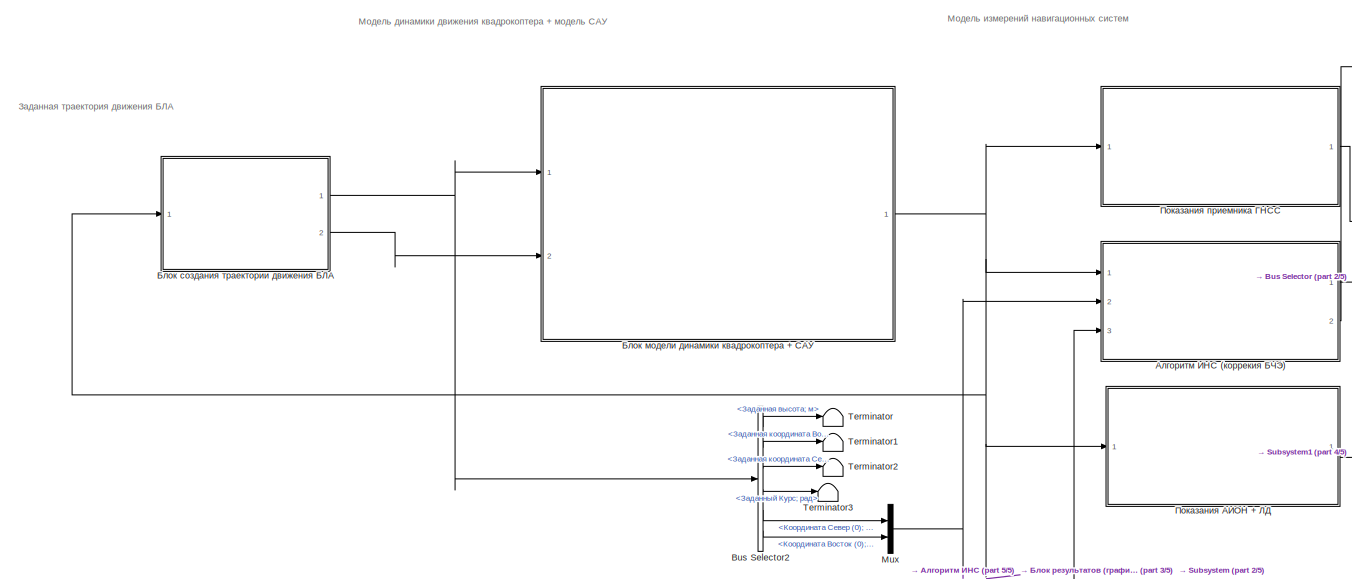
[diagram: root canvas - part 1/5, top left region]
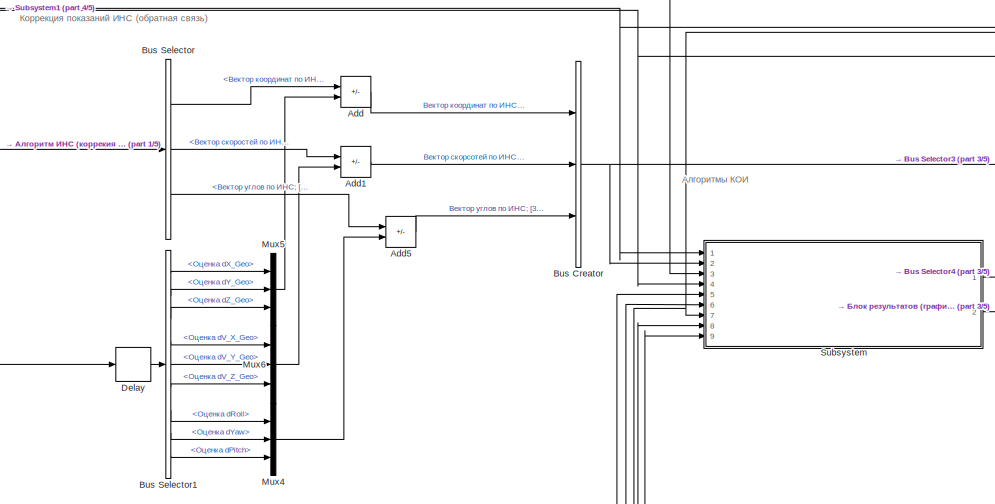
[diagram: root canvas - part 2/5, top center region]
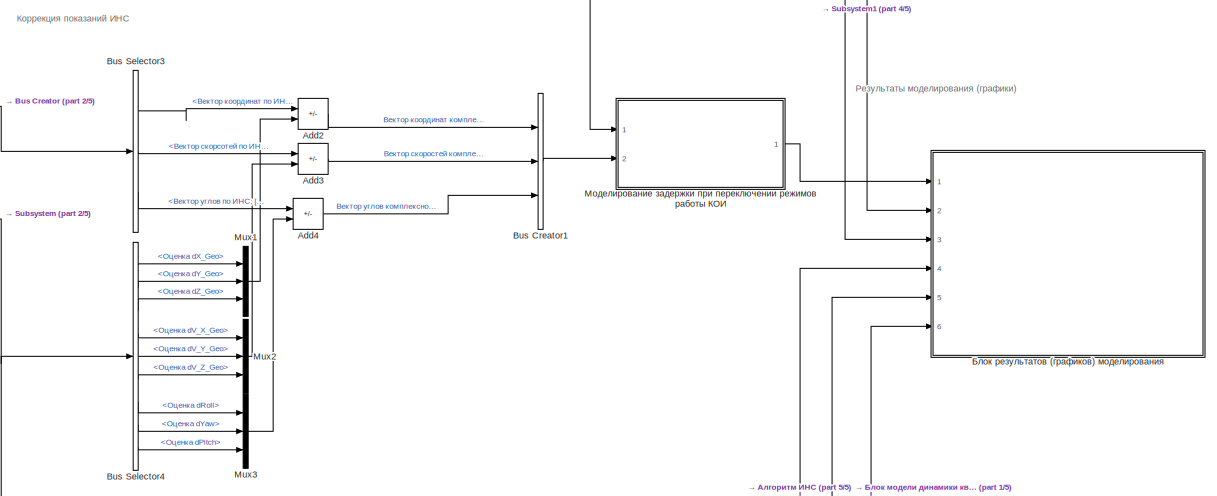
[diagram: root canvas - part 3/5, middle right region]
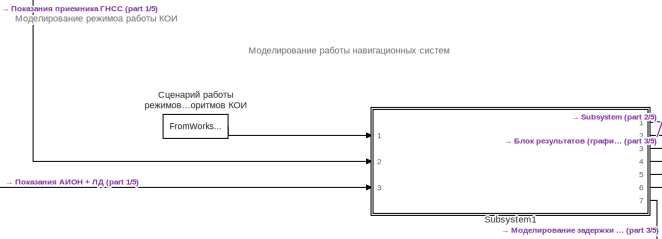
[diagram: root canvas - part 4/5, central region]
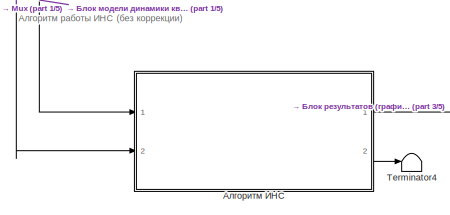
[diagram: root canvas - part 5/5, bottom left region]
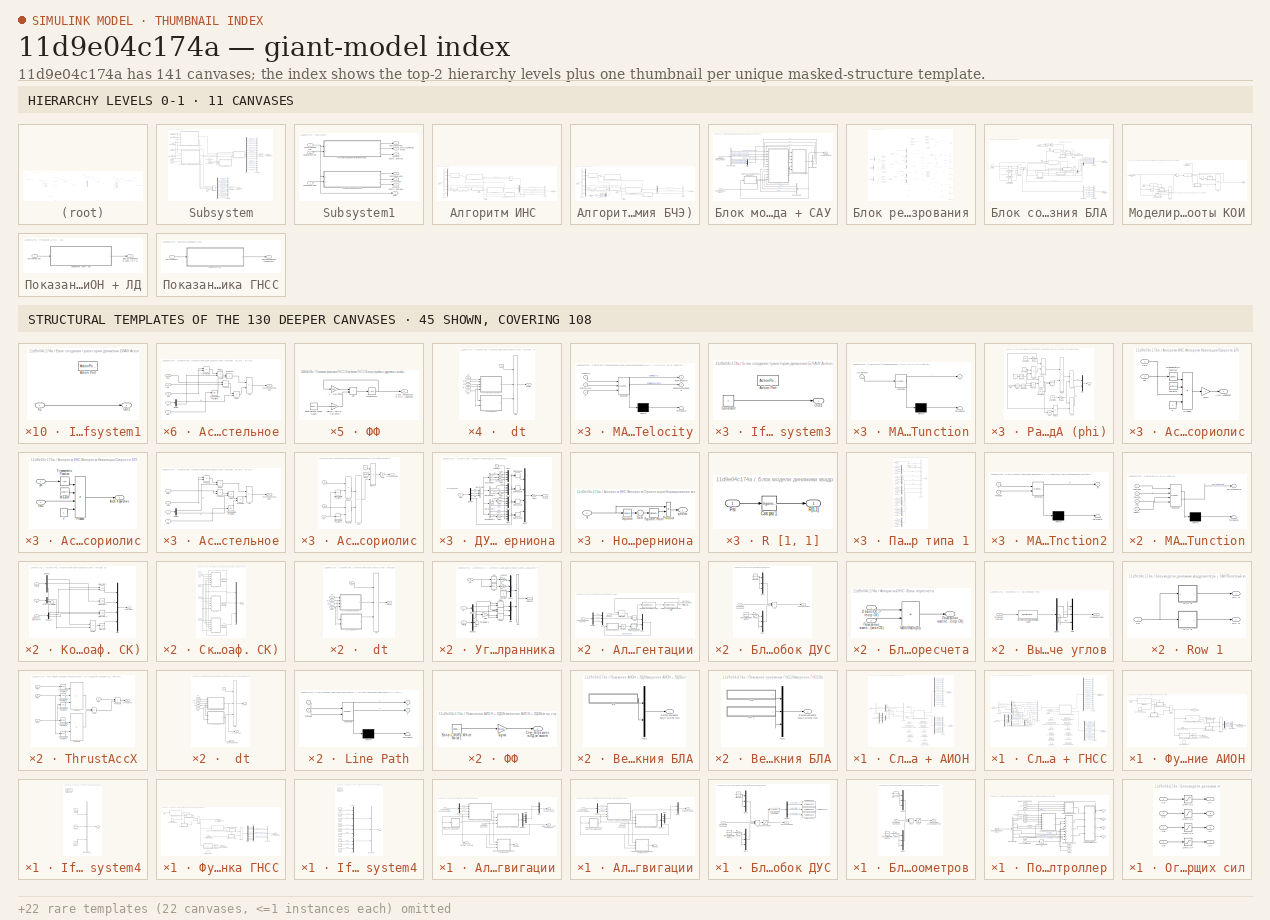
[diagram: thumbnail index - top-2 hierarchy levels (11 canvases) + 45 structural-template representatives of the remaining 130 canvases]
MODEL slx_11d9e04c174a
KIND model
CONFIG AbsTol = auto
CONFIG EnableMultiTasking = off
CONFIG FixedStep = IMUtime
CONFIG MaxStep = auto
CONFIG MinStep = auto
CONFIG RelTol = 1e-3
CONFIG SampleTimeConstraint = Unconstrained
CONFIG SolverName = FixedStepAuto
CONFIG StartTime = 0.0
CONFIG StopTime = TFinal
BLOCK [Sum] Add
  IconShape = rectangular
  Inputs = +-
  Ports = [2, 1]
BLOCK [Sum] Add1
  IconShape = rectangular
  Inputs = +-
  Ports = [2, 1]
BLOCK [Sum] Add2
  IconShape = rectangular
  Inputs = +-
  Ports = [2, 1]
BLOCK [Sum] Add3
  IconShape = rectangular
  Inputs = +-
  Ports = [2, 1]
BLOCK [Sum] Add4
  IconShape = rectangular
  Inputs = +-
  Ports = [2, 1]
BLOCK [Sum] Add5
  IconShape = rectangular
  Inputs = +-
  Ports = [2, 1]
BLOCK [BusCreator] Bus Creator
  DisplayOption = bar
  InheritFromInputs = on
  Inputs = 3
  Ports = [3, 1]
BLOCK [BusCreator] Bus Creator1
  DisplayOption = bar
  InheritFromInputs = on
  Inputs = 3
  Ports = [3, 1]
BLOCK [BusSelector] Bus Selector
  OutputSignals = Вектор координат по ИНС; [3 x 1],Вектор скоростей по ИНС; [3 x 1],Вектор углов по ИНС; [3 x 1]
  Ports = [1, 3]
BLOCK [BusSelector] Bus Selector1
  OutputSignals = Оценка dX_Geo,Оценка dY_Geo,Оценка dZ_Geo,Оценка dV_X_Geo,Оценка dV_Y_Geo,Оценка dV_Z_Geo,Оценка dRoll,Оценка dYaw,Оценка dPitch
  Ports = [1, 9]
BLOCK [BusSelector] Bus Selector2
  OutputSignals = Заданная высота; м,Заданная координата Восток; м,Заданная координата Север; м,Заданный Курс; рад,Координата Север (0); м,Координата Восток (0); м
  Ports = [1, 6]
BLOCK [BusSelector] Bus Selector3
  OutputSignals = Вектор координат по ИНС; [3 x 1],Вектор скорсотей по ИНС; [3 x 1],Вектор углов по ИНС; [3 x 1]
  Ports = [1, 3]
BLOCK [BusSelector] Bus Selector4
  OutputSignals = Оценка dX_Geo,Оценка dY_Geo,Оценка dZ_Geo,Оценка dV_X_Geo,Оценка dV_Y_Geo,Оценка dV_Z_Geo,Оценка dRoll,Оценка dYaw,Оценка dPitch
  Ports = [1, 9]
BLOCK [Delay] Delay
  DelayLength = 1
  InitialCondition = 0
  InputPortMap = u0
  Ports = [1, 1]
BLOCK [Mux] Mux
  DisplayOption = bar
  Inputs = 2
  Ports = [2, 1]
BLOCK [Mux] Mux1
  DisplayOption = bar
  Inputs = 3
  Ports = [3, 1]
BLOCK [Mux] Mux2
  DisplayOption = bar
  Inputs = 3
  Ports = [3, 1]
BLOCK [Mux] Mux3
  DisplayOption = bar
  Inputs = 3
  Ports = [3, 1]
BLOCK [Mux] Mux4
  DisplayOption = bar
  Inputs = 3
  Ports = [3, 1]
BLOCK [Mux] Mux5
  DisplayOption = bar
  Inputs = 3
  Ports = [3, 1]
BLOCK [Mux] Mux6
  DisplayOption = bar
  Inputs = 3
  Ports = [3, 1]
BLOCK [SubSystem] Subsystem
  Ports = [9, 2]
  RequestExecContextInheritance = off
BLOCK [BusCreator] Subsystem/Bus Creator2
  DisplayOption = bar
  InheritFromInputs = on
  Inputs = 15
  Ports = [15, 1]
BLOCK [BusCreator] Subsystem/Bus Creator3
  DisplayOption = bar
  InheritFromInputs = on
  Inputs = 15
  Ports = [15, 1]
BLOCK [Inport] Subsystem/D (связ СК -> геогр СК)
  Port = 3
BLOCK [Demux] Subsystem/Demux4
  Outputs = 15
  Ports = [1, 15]
BLOCK [Demux] Subsystem/Demux6
  Outputs = 15
  Ports = [1, 15]
BLOCK [SubSystem] Subsystem/MATLAB Function
  ErrorFcn = Stateflow.Translate.translate
  PermitHierarchicalResolution = ExplicitOnly
  Ports = [4, 1]
  RequestExecContextInheritance = off
  SFBlockType = MATLAB Function
  TreatAsAtomicUnit = on
BLOCK [Demux] Subsystem/MATLAB Function/ Demux 
  Outputs = 1
  Ports = [1, 1]
BLOCK [S-Function] Subsystem/MATLAB Function/ SFunction 
  EnableBusSupport = on
  FunctionName = sf_sfun
  PortCounts = [4 2]
  Ports = [4, 2]
  SFcnIsStateOwnerBlock = off
  SFunctionDeploymentMode = off
  Tag = Stateflow S-Function 2
BLOCK [Terminator] Subsystem/MATLAB Function/ Terminator 
BLOCK [Outport] Subsystem/MATLAB Function/CorrectionVector
BLOCK [Inport] Subsystem/MATLAB Function/INS
  Port = 3
BLOCK [Inport] Subsystem/MATLAB Function/INSAINS
  Port = 2
BLOCK [Inport] Subsystem/MATLAB Function/INSGNSS
BLOCK [Inport] Subsystem/MATLAB Function/indKOI
  Port = 4
BLOCK [SubSystem] Subsystem/MATLAB Function1
  ErrorFcn = Stateflow.Translate.translate
  PermitHierarchicalResolution = ExplicitOnly
  Ports = [4, 1]
  RequestExecContextInheritance = off
  SFBlockType = MATLAB Function
  TreatAsAtomicUnit = on
BLOCK [Demux] Subsystem/MATLAB Function1/ Demux 
  Outputs = 1
  Ports = [1, 1]
BLOCK [S-Function] Subsystem/MATLAB Function1/ SFunction 
  EnableBusSupport = on
  FunctionName = sf_sfun
  PortCounts = [4 2]
  Ports = [4, 2]
  SFcnIsStateOwnerBlock = off
  SFunctionDeploymentMode = off
  Tag = Stateflow S-Function 8
BLOCK [Terminator] Subsystem/MATLAB Function1/ Terminator 
BLOCK [Inport] Subsystem/MATLAB Function1/INSAINS
  Port = 4
BLOCK [Inport] Subsystem/MATLAB Function1/INSGNSS
  Port = 3
BLOCK [Inport] Subsystem/MATLAB Function1/SampleAINSOff
  Port = 2
BLOCK [Inport] Subsystem/MATLAB Function1/SampleGNSSOff
BLOCK [Outport] Subsystem/MATLAB Function1/y
BLOCK [MultiPortSwitch] Subsystem/Multiport Switch1
  InputSameDT = off
  Ports = [4, 1]
  SaturateOnIntegerOverflow = off
BLOCK [Constant] Subsystem/NaN
  OutDataTypeStr = Inherit: Inherit via back propagation
  Value = NaN
BLOCK [RateTransition] Subsystem/Rate Transition
  OutPortSampleTime = IMUtime
BLOCK [RateTransition] Subsystem/Rate Transition1
  OutPortSampleTime = IMUtime
BLOCK [Inport] Subsystem/Измерения АИОН
  Port = 4
BLOCK [Inport] Subsystem/Измерения ГНСС
BLOCK [Inport] Subsystem/Индекс КОИ
  Port = 7
BLOCK [Outport] Subsystem/Корректирующий вектор, [15 x 1]
BLOCK [Inport] Subsystem/Отсчеты пропадания сигнала АИОН
  Port = 9
BLOCK [Inport] Subsystem/Отсчеты пропадания сигнала ГНСС
  Port = 8
BLOCK [Inport] Subsystem/Показания ИНС
  Port = 2
BLOCK [Outport] Subsystem/СКО оценки вектора состояния, [15 x 1]
  Port = 2
BLOCK [SubSystem] Subsystem/Слабосвязанная схема комплексирования ИНС + АИОН
  Ports = [4, 2]
  RequestExecContextInheritance = off
BLOCK [BusCreator] Subsystem/Слабосвязанная схема комплексирования ИНС + АИОН/Bus Creator
  DisplayOption = bar
  InheritFromInputs = on
  Inputs = 3
  Ports = [3, 1]
BLOCK [BusCreator] Subsystem/Слабосвязанная схема комплексирования ИНС + АИОН/Bus Creator1
  DisplayOption = bar
  InheritFromInputs = on
  Inputs = 15
  Ports = [15, 1]
BLOCK [BusCreator] Subsystem/Слабосвязанная схема комплексирования ИНС + АИОН/Bus Creator2
  DisplayOption = bar
  InheritFromInputs = on
  Inputs = 15
  Ports = [15, 1]
BLOCK [BusSelector] Subsystem/Слабосвязанная схема комплексирования ИНС + АИОН/Bus Selector
  OutputSignals = Вектор координат по ИНС; [3 x 1]
  Ports = [1, 1]
BLOCK [Inport] Subsystem/Слабосвязанная схема комплексирования ИНС + АИОН/D (связ СК -> геогр СК)
  Port = 3
BLOCK [DataStoreMemory] Subsystem/Слабосвязанная схема комплексирования ИНС + АИОН/Data Store Memory
  DataStoreName = Ell
  InitialValue = [Ra;e]
  OutDataTypeStr = double
  ReadBeforeWriteMsg = warning
  ShowAdditionalParam = off
  SignalType = real
  WriteAfterReadMsg = warning
  WriteAfterWriteMsg = warning
BLOCK [Demux] Subsystem/Слабосвязанная схема комплексирования ИНС + АИОН/Demux
  Outputs = 3
  Ports = [1, 3]
BLOCK [Demux] Subsystem/Слабосвязанная схема комплексирования ИНС + АИОН/Demux2
  Outputs = 3
  Ports = [1, 3]
BLOCK [Demux] Subsystem/Слабосвязанная схема комплексирования ИНС + АИОН/Demux4
  Outputs = 15
  Ports = [1, 15]
BLOCK [Demux] Subsystem/Слабосвязанная схема комплексирования ИНС + АИОН/Demux6
  Outputs = 15
  Ports = [1, 15]
BLOCK [Demux] Subsystem/Слабосвязанная схема комплексирования ИНС + АИОН/Demux8
  Outputs = 3
  Ports = [1, 3]
BLOCK [SubSystem] Subsystem/Слабосвязанная схема комплексирования ИНС + АИОН/MATLAB Function - LowCoastLinearKalmanPositionVelocity
  ErrorFcn = Stateflow.Translate.translate
  PermitHierarchicalResolution = ExplicitOnly
  Ports = [3, 2]
  RequestExecContextInheritance = off
  SFBlockType = MATLAB Function
  TreatAsAtomicUnit = on
BLOCK [Demux] Subsystem/Слабосвязанная схема комплексирования ИНС + АИОН/MATLAB Function - LowCoastLinearKalmanPositionVelocity/ Demux 
  Outputs = 1
  Ports = [1, 1]
BLOCK [S-Function] Subsystem/Слабосвязанная схема комплексирования ИНС + АИОН/MATLAB Function - LowCoastLinearKalmanPositionVelocity/ SFunction 
  EnableBusSupport = on
  FunctionName = sf_sfun
  PortCounts = [3 3]
  Ports = [3, 3]
  SFcnIsStateOwnerBlock = off
  SFunctionDeploymentMode = off
  Tag = Stateflow S-Function 12
BLOCK [Terminator] Subsystem/Слабосвязанная схема комплексирования ИНС + АИОН/MATLAB Function - LowCoastLinearKalmanPositionVelocity/ Terminator 
BLOCK [Inport] Subsystem/Слабосвязанная схема комплексирования ИНС + АИОН/MATLAB Function - LowCoastLinearKalmanPositionVelocity/C
  Port = 3
BLOCK [Outport] Subsystem/Слабосвязанная схема комплексирования ИНС + АИОН/MATLAB Function - LowCoastLinearKalmanPositionVelocity/EstimateCovariance
  Port = 2
BLOCK [Outport] Subsystem/Слабосвязанная схема комплексирования ИНС + АИОН/MATLAB Function - LowCoastLinearKalmanPositionVelocity/EstimateError
BLOCK [Inport] Subsystem/Слабосвязанная схема комплексирования ИНС + АИОН/MATLAB Function - LowCoastLinearKalmanPositionVelocity/Measure
BLOCK [Inport] Subsystem/Слабосвязанная схема комплексирования ИНС + АИОН/MATLAB Function - LowCoastLinearKalmanPositionVelocity/StatusAION
  Port = 2
BLOCK [Mux] Subsystem/Слабосвязанная схема комплексирования ИНС + АИОН/Mux
  DisplayOption = bar
  Inputs = 3
  Ports = [3, 1]
BLOCK [Sum] Subsystem/Слабосвязанная схема комплексирования ИНС + АИОН/Sum
  Inputs = |+-
  Ports = [2, 1]
BLOCK [Sum] Subsystem/Слабосвязанная схема комплексирования ИНС + АИОН/Sum1
  Inputs = |+-
  Ports = [2, 1]
BLOCK [Sum] Subsystem/Слабосвязанная схема комплексирования ИНС + АИОН/Sum2
  Inputs = |+-
  Ports = [2, 1]
BLOCK [DataStoreMemory] Subsystem/Слабосвязанная схема комплексирования ИНС + АИОН/Время дискретизации ИНС
  DataStoreName = timeIMU
  InitialValue = 1E-2
  OutDataTypeStr = double
  ReadBeforeWriteMsg = warning
  ShowAdditionalParam = off
  SignalType = real
  WriteAfterReadMsg = warning
  WriteAfterWriteMsg = warning
BLOCK [DataStoreMemory] Subsystem/Слабосвязанная схема комплексирования ИНС + АИОН/Высота над уровнем моря
  DataStoreName = AltitudeSeaLevel
  InitialValue = H0
  OutDataTypeStr = double
  ReadBeforeWriteMsg = warning
  ShowAdditionalParam = off
  SignalType = real
  WriteAfterReadMsg = warning
  WriteAfterWriteMsg = warning
BLOCK [DataStoreMemory] Subsystem/Слабосвязанная схема комплексирования ИНС + АИОН/Единичная матрица [15x15]
  DataStoreName = I
  InitialValue = eye(15)
  OutDataTypeStr = double
  ReadBeforeWriteMsg = warning
  ShowAdditionalParam = off
  SignalType = real
  WriteAfterReadMsg = warning
  WriteAfterWriteMsg = warning
BLOCK [Inport] Subsystem/Слабосвязанная схема комплексирования ИНС + АИОН/Измерения АИОН
  Port = 2
  SampleTime = 0.1
BLOCK [Outport] Subsystem/Слабосвязанная схема комплексирования ИНС + АИОН/Корректирующий вектор, [15 x 1]
BLOCK [DataStoreMemory] Subsystem/Слабосвязанная схема комплексирования ИНС + АИОН/Матрица ковариации измерений АИОН [3x3]
  DataStoreName = RCovarianceMeasurement
  InitialValue = diag([ (0.1*SigmaAION)^2 (0.01*SigmaLaser)^2 (0.1*SigmaAION)^2 ])
  OutDataTypeStr = double
  ReadBeforeWriteMsg = warning
  ShowAdditionalParam = off
  SignalType = real
  WriteAfterReadMsg = warning
  WriteAfterWriteMsg = warning
BLOCK [DataStoreMemory] Subsystem/Слабосвязанная схема комплексирования ИНС + АИОН/Матрица ковариации шумов системы [6x6]
  DataStoreName = QCovarianceSystem
  InitialValue = diag([SigmaAccel^2 SigmaAccel^2 SigmaAccel^2 SigmaGyro^2 SigmaGyro^2 SigmaGyro^2])
  OutDataTypeStr = double
  ReadBeforeWriteMsg = warning
  ShowAdditionalParam = off
  SignalType = real
  WriteAfterReadMsg = warning
  WriteAfterWriteMsg = warning
BLOCK [DataStoreMemory] Subsystem/Слабосвязанная схема комплексирования ИНС + АИОН/Матрица наблюдаемости [3x15]
  DataStoreName = H
  InitialValue = [1 0 0 0 0 0 0 0 0 0 0 0 0 0 0;0 1 0 0 0 0 0 0 0 0 0 0 0 0 0; 0 0 1 0 0 0 0 0 0 0 0 0 0 0 0]
  OutDataTypeStr = double
  ReadBeforeWriteMsg = warning
  ShowAdditionalParam = off
  SignalType = real
  WriteAfterReadMsg = warning
  WriteAfterWriteMsg = warning
BLOCK [DataStoreMemory] Subsystem/Слабосвязанная схема комплексирования ИНС + АИОН/Начальное состояние вектора - состояния [15 x 1]
  DataStoreName = XError
  InitialValue = [0;0;0;0;0;0;0;0;0;0;0;0;0;0;0]
  OutDataTypeStr = double
  ReadBeforeWriteMsg = warning
  ShowAdditionalParam = off
  SignalType = real
  WriteAfterReadMsg = warning
  WriteAfterWriteMsg = warning
BLOCK [DataStoreMemory] Subsystem/Слабосвязанная схема комплексирования ИНС + АИОН/Начальное состояние матрицы ковариации [15x15]
  DataStoreName = PCovarianceError
  InitialValue = diag([10 10 10 2 2 2 1e-1 1e-1 1e-1 1e-3 1e-3 1e-3 1e-3 1e-3 1e-3])
  OutDataTypeStr = double
  ReadBeforeWriteMsg = warning
  ShowAdditionalParam = off
  SignalType = real
  WriteAfterReadMsg = warning
  WriteAfterWriteMsg = warning
BLOCK [DataStoreMemory] Subsystem/Слабосвязанная схема комплексирования ИНС + АИОН/Оценка широты местоположения
  DataStoreName = PhiEstimate
  InitialValue = PhiInit
  OutDataTypeStr = double
  ReadBeforeWriteMsg = warning
  ShowAdditionalParam = off
  SignalType = real
  WriteAfterReadMsg = warning
  WriteAfterWriteMsg = warning
BLOCK [Inport] Subsystem/Слабосвязанная схема комплексирования ИНС + АИОН/Показания ИНС
BLOCK [Outport] Subsystem/Слабосвязанная схема комплексирования ИНС + АИОН/СКО оценки вектора состояния, [15 x 1]
  Port = 2
BLOCK [Inport] Subsystem/Слабосвязанная схема комплексирования ИНС + АИОН/Статус АИОН
  Port = 4
BLOCK [DataStoreMemory] Subsystem/Слабосвязанная схема комплексирования ИНС + АИОН/Угловая скорость вращения Земли
  DataStoreName = WEarth
  InitialValue = WEarth
  OutDataTypeStr = double
  ReadBeforeWriteMsg = warning
  ShowAdditionalParam = off
  SignalType = real
  WriteAfterReadMsg = warning
  WriteAfterWriteMsg = warning
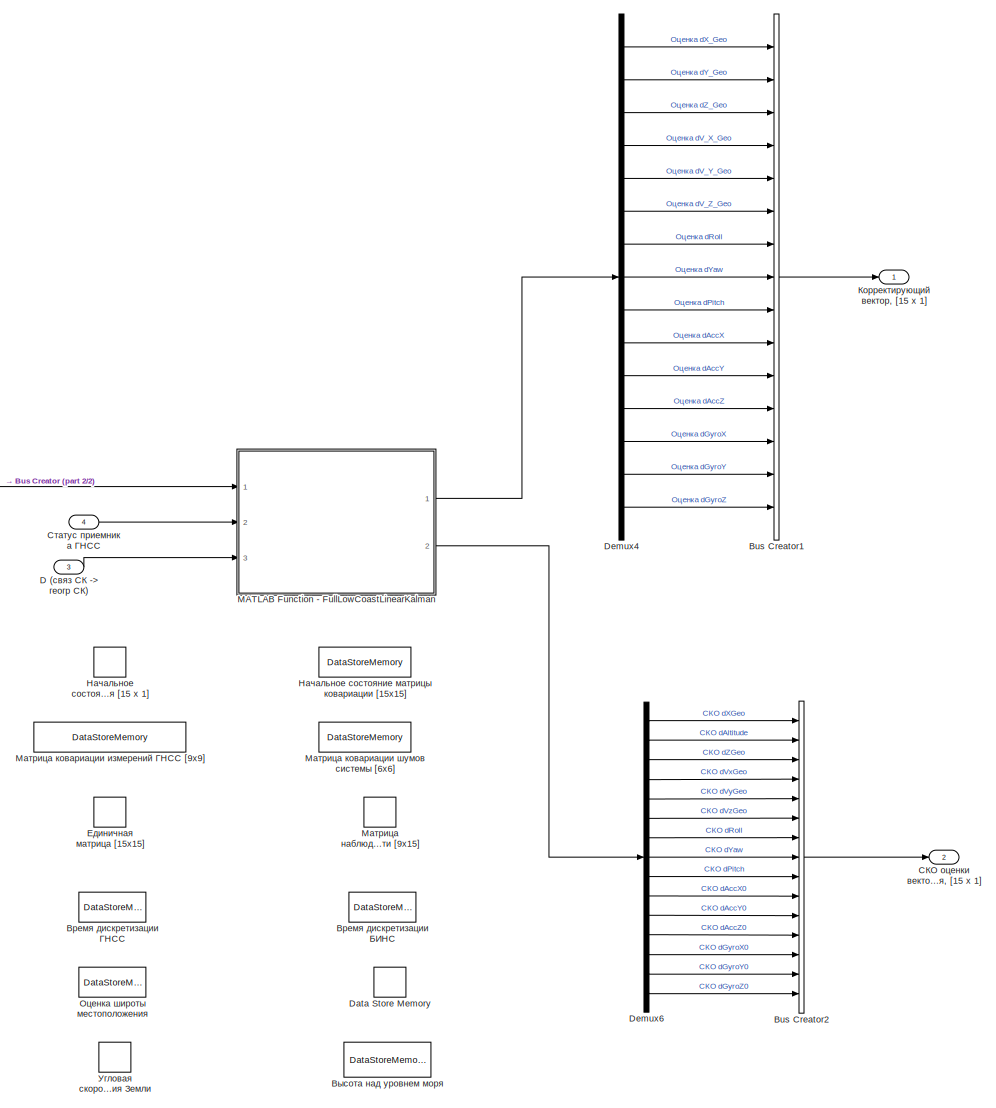
[diagram: Subsystem/Слабосвязанная схема комплексирования ИНС + ГНСС - part 1/2, right side, full height]
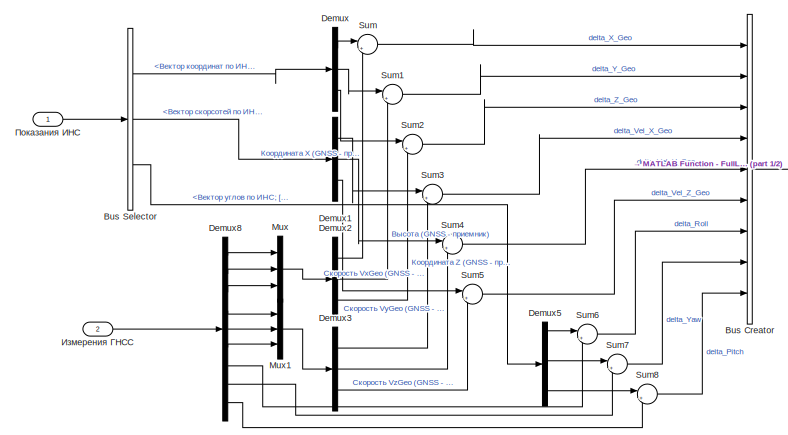
[diagram: Subsystem/Слабосвязанная схема комплексирования ИНС + ГНСС - part 2/2, middle left region]
BLOCK [SubSystem] Subsystem/Слабосвязанная схема комплексирования ИНС + ГНСС
  Ports = [4, 2]
  RequestExecContextInheritance = off
BLOCK [BusCreator] Subsystem/Слабосвязанная схема комплексирования ИНС + ГНСС/Bus Creator
  DisplayOption = bar
  InheritFromInputs = on
  Inputs = 9
  Ports = [9, 1]
BLOCK [BusCreator] Subsystem/Слабосвязанная схема комплексирования ИНС + ГНСС/Bus Creator1
  DisplayOption = bar
  InheritFromInputs = on
  Inputs = 15
  Ports = [15, 1]
BLOCK [BusCreator] Subsystem/Слабосвязанная схема комплексирования ИНС + ГНСС/Bus Creator2
  DisplayOption = bar
  InheritFromInputs = on
  Inputs = 15
  Ports = [15, 1]
BLOCK [BusSelector] Subsystem/Слабосвязанная схема комплексирования ИНС + ГНСС/Bus Selector
  OutputSignals = Вектор координат по ИНС; [3 x 1],Вектор скорсотей по ИНС; [3 x 1],Вектор углов по ИНС; [3 x 1]
  Ports = [1, 3]
BLOCK [Inport] Subsystem/Слабосвязанная схема комплексирования ИНС + ГНСС/D (связ СК -> геогр СК)
  Port = 3
BLOCK [DataStoreMemory] Subsystem/Слабосвязанная схема комплексирования ИНС + ГНСС/Data Store Memory
  DataStoreName = Ell
  InitialValue = [Ra;e]
  OutDataTypeStr = double
  ReadBeforeWriteMsg = warning
  ShowAdditionalParam = off
  SignalType = real
  WriteAfterReadMsg = warning
  WriteAfterWriteMsg = warning
BLOCK [Demux] Subsystem/Слабосвязанная схема комплексирования ИНС + ГНСС/Demux
  Outputs = 3
  Ports = [1, 3]
BLOCK [Demux] Subsystem/Слабосвязанная схема комплексирования ИНС + ГНСС/Demux1
  Outputs = 3
  Ports = [1, 3]
BLOCK [Demux] Subsystem/Слабосвязанная схема комплексирования ИНС + ГНСС/Demux2
  Outputs = 3
  Ports = [1, 3]
BLOCK [Demux] Subsystem/Слабосвязанная схема комплексирования ИНС + ГНСС/Demux3
  Outputs = 3
  Ports = [1, 3]
BLOCK [Demux] Subsystem/Слабосвязанная схема комплексирования ИНС + ГНСС/Demux4
  Outputs = 15
  Ports = [1, 15]
BLOCK [Demux] Subsystem/Слабосвязанная схема комплексирования ИНС + ГНСС/Demux5
  Outputs = 3
  Ports = [1, 3]
BLOCK [Demux] Subsystem/Слабосвязанная схема комплексирования ИНС + ГНСС/Demux6
  Outputs = 15
  Ports = [1, 15]
BLOCK [Demux] Subsystem/Слабосвязанная схема комплексирования ИНС + ГНСС/Demux8
  Outputs = 9
  Ports = [1, 9]
BLOCK [SubSystem] Subsystem/Слабосвязанная схема комплексирования ИНС + ГНСС/MATLAB Function - FullLowCoastLinearKalman
  ErrorFcn = Stateflow.Translate.translate
  PermitHierarchicalResolution = ExplicitOnly
  Ports = [3, 2]
  RequestExecContextInheritance = off
  SFBlockType = MATLAB Function
  TreatAsAtomicUnit = on
BLOCK [Demux] Subsystem/Слабосвязанная схема комплексирования ИНС + ГНСС/MATLAB Function - FullLowCoastLinearKalman/ Demux 
  Outputs = 1
  Ports = [1, 1]
BLOCK [S-Function] Subsystem/Слабосвязанная схема комплексирования ИНС + ГНСС/MATLAB Function - FullLowCoastLinearKalman/ SFunction 
  EnableBusSupport = on
  FunctionName = sf_sfun
  PortCounts = [3 3]
  Ports = [3, 3]
  SFcnIsStateOwnerBlock = off
  SFunctionDeploymentMode = off
  Tag = Stateflow S-Function 10
BLOCK [Terminator] Subsystem/Слабосвязанная схема комплексирования ИНС + ГНСС/MATLAB Function - FullLowCoastLinearKalman/ Terminator 
BLOCK [Inport] Subsystem/Слабосвязанная схема комплексирования ИНС + ГНСС/MATLAB Function - FullLowCoastLinearKalman/C
  Port = 3
BLOCK [Outport] Subsystem/Слабосвязанная схема комплексирования ИНС + ГНСС/MATLAB Function - FullLowCoastLinearKalman/EstimateCovariance
  Port = 2
BLOCK [Outport] Subsystem/Слабосвязанная схема комплексирования ИНС + ГНСС/MATLAB Function - FullLowCoastLinearKalman/EstimateError
BLOCK [Inport] Subsystem/Слабосвязанная схема комплексирования ИНС + ГНСС/MATLAB Function - FullLowCoastLinearKalman/Measure
BLOCK [Inport] Subsystem/Слабосвязанная схема комплексирования ИНС + ГНСС/MATLAB Function - FullLowCoastLinearKalman/StatusGNSS
  Port = 2
BLOCK [Mux] Subsystem/Слабосвязанная схема комплексирования ИНС + ГНСС/Mux
  DisplayOption = bar
  Inputs = 3
  Ports = [3, 1]
BLOCK [Mux] Subsystem/Слабосвязанная схема комплексирования ИНС + ГНСС/Mux1
  DisplayOption = bar
  Inputs = 3
  Ports = [3, 1]
BLOCK [Sum] Subsystem/Слабосвязанная схема комплексирования ИНС + ГНСС/Sum
  Inputs = |+-
  Ports = [2, 1]
BLOCK [Sum] Subsystem/Слабосвязанная схема комплексирования ИНС + ГНСС/Sum1
  Inputs = |+-
  Ports = [2, 1]
BLOCK [Sum] Subsystem/Слабосвязанная схема комплексирования ИНС + ГНСС/Sum2
  Inputs = |+-
  Ports = [2, 1]
BLOCK [Sum] Subsystem/Слабосвязанная схема комплексирования ИНС + ГНСС/Sum3
  Inputs = |+-
  Ports = [2, 1]
BLOCK [Sum] Subsystem/Слабосвязанная схема комплексирования ИНС + ГНСС/Sum4
  Inputs = |+-
  Ports = [2, 1]
BLOCK [Sum] Subsystem/Слабосвязанная схема комплексирования ИНС + ГНСС/Sum5
  Inputs = |+-
  Ports = [2, 1]
BLOCK [Sum] Subsystem/Слабосвязанная схема комплексирования ИНС + ГНСС/Sum6
  Inputs = |+-
  Ports = [2, 1]
BLOCK [Sum] Subsystem/Слабосвязанная схема комплексирования ИНС + ГНСС/Sum7
  Inputs = |+-
  Ports = [2, 1]
BLOCK [Sum] Subsystem/Слабосвязанная схема комплексирования ИНС + ГНСС/Sum8
  Inputs = |+-
  Ports = [2, 1]
BLOCK [DataStoreMemory] Subsystem/Слабосвязанная схема комплексирования ИНС + ГНСС/Время дискретизации БИНС
  DataStoreName = timeIMU
  InitialValue = 1E-2
  OutDataTypeStr = double
  ReadBeforeWriteMsg = warning
  ShowAdditionalParam = off
  SignalType = real
  WriteAfterReadMsg = warning
  WriteAfterWriteMsg = warning
BLOCK [DataStoreMemory] Subsystem/Слабосвязанная схема комплексирования ИНС + ГНСС/Время дискретизации ГНСС
  DataStoreName = timeGNSS
  InitialValue = GNSStime
  OutDataTypeStr = double
  ReadBeforeWriteMsg = warning
  ShowAdditionalParam = off
  SignalType = real
  WriteAfterReadMsg = warning
  WriteAfterWriteMsg = warning
BLOCK [DataStoreMemory] Subsystem/Слабосвязанная схема комплексирования ИНС + ГНСС/Высота над уровнем моря
  DataStoreName = AltitudeSeaLevel
  InitialValue = H0
  OutDataTypeStr = double
  ReadBeforeWriteMsg = warning
  ShowAdditionalParam = off
  SignalType = real
  WriteAfterReadMsg = warning
  WriteAfterWriteMsg = warning
BLOCK [DataStoreMemory] Subsystem/Слабосвязанная схема комплексирования ИНС + ГНСС/Единичная матрица [15x15]
  DataStoreName = I
  InitialValue = eye(15)
  OutDataTypeStr = double
  ReadBeforeWriteMsg = warning
  ShowAdditionalParam = off
  SignalType = real
  WriteAfterReadMsg = warning
  WriteAfterWriteMsg = warning
BLOCK [Inport] Subsystem/Слабосвязанная схема комплексирования ИНС + ГНСС/Измерения ГНСС
  Port = 2
  SampleTime = 0.1
BLOCK [Outport] Subsystem/Слабосвязанная схема комплексирования ИНС + ГНСС/Корректирующий вектор, [15 x 1]
BLOCK [DataStoreMemory] Subsystem/Слабосвязанная схема комплексирования ИНС + ГНСС/Матрица ковариации измерений ГНСС [9x9]
  DataStoreName = RCovarianceMeasurement
  InitialValue = diag([ (0.1 * SigmaPositionGNSS)^2 (0.1 * SigmaAltitudeGNSS)^2 (0.1 * SigmaPositionGNSS)^2  (1*SigmaVelocityGNSS)^2  (1*SigmaVelocityUpGNSS)^2 (1*SigmaVelocityGNSS)^2 (0.001*SigmaOrientationGNSS)^2 (0.001*SigmaOrientationGNSS)^2 (0.001*SigmaOrientationGNSS)^2])
  OutDataTypeStr = double
  ReadBeforeWriteMsg = warning
  ShowAdditionalParam = off
  SignalType = real
  WriteAfterReadMsg = warning
  WriteAfterWriteMsg = warning
BLOCK [DataStoreMemory] Subsystem/Слабосвязанная схема комплексирования ИНС + ГНСС/Матрица ковариации шумов системы [6x6]
  DataStoreName = QCovarianceSystem
  InitialValue = diag([SigmaAccel^2 SigmaAccel^2 SigmaAccel^2 SigmaGyro^2 SigmaGyro^2 SigmaGyro^2])
  OutDataTypeStr = double
  ReadBeforeWriteMsg = warning
  ShowAdditionalParam = off
  SignalType = real
  WriteAfterReadMsg = warning
  WriteAfterWriteMsg = warning
BLOCK [DataStoreMemory] Subsystem/Слабосвязанная схема комплексирования ИНС + ГНСС/Матрица наблюдаемости [9x15]
  DataStoreName = H
  InitialValue = [1 0 0 0 0 0 0 0 0 0 0 0 0 0 0;0 1 0 0 0 0 0 0 0 0 0 0 0 0 0; 0 0 1 0 0 0 0 0 0 0 0 0 0 0 0; 0 0 0 1 0 0 0 0 0 0 0 0 0 0 0; 0 0 0 0 1 0 0 0 0 0 0 0 0 0 0; 0 0 0 0 0 1 0 0 0 0 0 0 0 0 0; 0 0 0 0 0 0 1 0 0 0 0 0 0 0 0; 0 0 0 0 0 0 0 1 0 0 0 0 0 0 0; 0 0 0 0 0 0 0 0 1 0 0 0 0 0 0]
  OutDataTypeStr = double
  ReadBeforeWriteMsg = warning
  ShowAdditionalParam = off
  SignalType = real
  WriteAfterReadMsg = warning
  WriteAfterWriteMsg = warning
BLOCK [DataStoreMemory] Subsystem/Слабосвязанная схема комплексирования ИНС + ГНСС/Начальное состояние вектора - состояния [15 x 1]
  DataStoreName = XError
  InitialValue = [0;0;0;0;0;0;0;0;0;0;0;0;0;0;0]
  OutDataTypeStr = double
  ReadBeforeWriteMsg = warning
  ShowAdditionalParam = off
  SignalType = real
  WriteAfterReadMsg = warning
  WriteAfterWriteMsg = warning
BLOCK [DataStoreMemory] Subsystem/Слабосвязанная схема комплексирования ИНС + ГНСС/Начальное состояние матрицы ковариации [15x15]
  DataStoreName = PCovarianceError
  InitialValue = diag([10 10 10 2 2 2 1e-1 1e-1 1e-1 1e-3 1e-3 1e-3 1e-3 1e-3 1e-3])
  OutDataTypeStr = double
  ReadBeforeWriteMsg = warning
  ShowAdditionalParam = off
  SignalType = real
  WriteAfterReadMsg = warning
  WriteAfterWriteMsg = warning
BLOCK [DataStoreMemory] Subsystem/Слабосвязанная схема комплексирования ИНС + ГНСС/Оценка широты местоположения
  DataStoreName = PhiEstimate
  InitialValue = PhiInit
  OutDataTypeStr = double
  ReadBeforeWriteMsg = warning
  ShowAdditionalParam = off
  SignalType = real
  WriteAfterReadMsg = warning
  WriteAfterWriteMsg = warning
BLOCK [Inport] Subsystem/Слабосвязанная схема комплексирования ИНС + ГНСС/Показания ИНС
BLOCK [Outport] Subsystem/Слабосвязанная схема комплексирования ИНС + ГНСС/СКО оценки вектора состояния, [15 x 1]
  Port = 2
BLOCK [Inport] Subsystem/Слабосвязанная схема комплексирования ИНС + ГНСС/Статус приемника  ГНСС
  Port = 4
BLOCK [DataStoreMemory] Subsystem/Слабосвязанная схема комплексирования ИНС + ГНСС/Угловая скорость вращения Земли
  DataStoreName = WEarth
  InitialValue = WEarth
  OutDataTypeStr = double
  ReadBeforeWriteMsg = warning
  ShowAdditionalParam = off
  SignalType = real
  WriteAfterReadMsg = warning
  WriteAfterWriteMsg = warning
BLOCK [Inport] Subsystem/Статус АИОН
  Port = 6
BLOCK [Inport] Subsystem/Статус приемника  ГНСС
  Port = 5
BLOCK [SubSystem] Subsystem1
  Ports = [3, 7]
  RequestExecContextInheritance = off
BLOCK [Inport] Subsystem1/Измерения АИОН
  Port = 3
BLOCK [Inport] Subsystem1/Измерения ГНСС
  Port = 2
BLOCK [Inport] Subsystem1/Индекс режима КОИ
BLOCK [Outport] Subsystem1/КОИ
  Port = 7
BLOCK [Outport] Subsystem1/Отсчеты пропадания сгнала АИОН
  Port = 6
BLOCK [Outport] Subsystem1/Отсчеты пропадания сгнала ГНСС
  Port = 5
BLOCK [Outport] Subsystem1/Показания АИОН
  Port = 3
BLOCK [Outport] Subsystem1/Показания ГНСС
BLOCK [Outport] Subsystem1/Статус АИОН
  Port = 4
BLOCK [Outport] Subsystem1/Статус применика ГНСС
  Port = 2
BLOCK [SubSystem] Subsystem1/Функционирование АИОН
  Ports = [2, 3]
  RequestExecContextInheritance = off
BLOCK [BusCreator] Subsystem1/Функционирование АИОН/Bus Creator
  DisplayOption = bar
  InheritFromInputs = on
  Inputs = 3
  Ports = [3, 1]
BLOCK [DataStoreMemory] Subsystem1/Функционирование АИОН/Data Store Memory
  DataStoreName = sum
  OutDataTypeStr = double
  ReadBeforeWriteMsg = warning
  ShowAdditionalParam = off
  SignalType = real
  WriteAfterReadMsg = warning
  WriteAfterWriteMsg = warning
BLOCK [Demux] Subsystem1/Функционирование АИОН/Demux
  Outputs = 3
  Ports = [1, 3]
BLOCK [SubSystem] Subsystem1/Функционирование АИОН/If Action Subsystem1
  Ports = [1, 1, 0, 0, 0, 0, 0, 1]
  RequestExecContextInheritance = off
  TreatAsAtomicUnit = on
BLOCK [ActionPort] Subsystem1/Функционирование АИОН/If Action Subsystem1/Action Port
  ActionPortLabel = if(u1 == 2)
BLOCK [Inport] Subsystem1/Функционирование АИОН/If Action Subsystem1/In1
BLOCK [Outport] Subsystem1/Функционирование АИОН/If Action Subsystem1/Out1
BLOCK [SubSystem] Subsystem1/Функционирование АИОН/If Action Subsystem3
  Ports = [0, 1, 0, 0, 0, 0, 0, 1]
  RequestExecContextInheritance = off
  TreatAsAtomicUnit = on
BLOCK [ActionPort] Subsystem1/Функционирование АИОН/If Action Subsystem3/Action Port
  ActionPortLabel = else
BLOCK [Constant] Subsystem1/Функционирование АИОН/If Action Subsystem3/Constant
  Value = -1
BLOCK [Outport] Subsystem1/Функционирование АИОН/If Action Subsystem3/Out1
BLOCK [SubSystem] Subsystem1/Функционирование АИОН/If Action Subsystem4
  Ports = [0, 1, 0, 0, 0, 0, 0, 1]
  RequestExecContextInheritance = off
  TreatAsAtomicUnit = on
BLOCK [ActionPort] Subsystem1/Функционирование АИОН/If Action Subsystem4/Action Port
  ActionPortLabel = if(u1 == -1)
BLOCK [BusCreator] Subsystem1/Функционирование АИОН/If Action Subsystem4/Bus Creator
  DisplayOption = bar
  InheritFromInputs = on
  Inputs = 3
  Ports = [3, 1]
BLOCK [Constant] Subsystem1/Функционирование АИОН/If Action Subsystem4/NaN
  OutDataTypeStr = Inherit: Inherit via back propagation
  Value = NaN
BLOCK [Constant] Subsystem1/Функционирование АИОН/If Action Subsystem4/NaN1
  OutDataTypeStr = Inherit: Inherit via back propagation
  Value = NaN
BLOCK [Constant] Subsystem1/Функционирование АИОН/If Action Subsystem4/NaN2
  OutDataTypeStr = Inherit: Inherit via back propagation
  Value = NaN
BLOCK [Outport] Subsystem1/Функционирование АИОН/If Action Subsystem4/Out1
BLOCK [SubSystem] Subsystem1/Функционирование АИОН/If Action Subsystem5
  Ports = [1, 1, 0, 0, 0, 0, 0, 1]
  RequestExecContextInheritance = off
  TreatAsAtomicUnit = on
BLOCK [ActionPort] Subsystem1/Функционирование АИОН/If Action Subsystem5/Action Port
  ActionPortLabel = else
BLOCK [Inport] Subsystem1/Функционирование АИОН/If Action Subsystem5/In1
BLOCK [Outport] Subsystem1/Функционирование АИОН/If Action Subsystem5/Out1
BLOCK [SubSystem] Subsystem1/Функционирование АИОН/MATLAB Function
  ErrorFcn = Stateflow.Translate.translate
  PermitHierarchicalResolution = ExplicitOnly
  Ports = [1, 1]
  RequestExecContextInheritance = off
  SFBlockType = MATLAB Function
  TreatAsAtomicUnit = on
BLOCK [Demux] Subsystem1/Функционирование АИОН/MATLAB Function/ Demux 
  Outputs = 1
  Ports = [1, 1]
BLOCK [S-Function] Subsystem1/Функционирование АИОН/MATLAB Function/ SFunction 
  EnableBusSupport = on
  FunctionName = sf_sfun
  PortCounts = [1 2]
  Ports = [1, 2]
  SFcnIsStateOwnerBlock = off
  SFunctionDeploymentMode = off
  Tag = Stateflow S-Function 7
BLOCK [Terminator] Subsystem1/Функционирование АИОН/MATLAB Function/ Terminator 
BLOCK [Inport] Subsystem1/Функционирование АИОН/MATLAB Function/AIONStatus
BLOCK [Outport] Subsystem1/Функционирование АИОН/MATLAB Function/y
BLOCK [Merge] Subsystem1/Функционирование АИОН/Merge
  Ports = [2, 1]
BLOCK [Merge] Subsystem1/Функционирование АИОН/Merge1
  Ports = [2, 1]
BLOCK [RateTransition] Subsystem1/Функционирование АИОН/Rate Transition
  OutPortSampleTime = AIONtime
BLOCK [Inport] Subsystem1/Функционирование АИОН/Измерения АИОН
  Port = 2
BLOCK [Outport] Subsystem1/Функционирование АИОН/Измерения АИОН (выход)
BLOCK [Inport] Subsystem1/Функционирование АИОН/КОИ
BLOCK [Outport] Subsystem1/Функционирование АИОН/Количество отсчетов после проадания сигнала АИОН
  Port = 3
BLOCK [DiscretePulseGenerator] Subsystem1/Функционирование АИОН/Моменты получения информации с АИОН
  Period = AIONtime
  PhaseDelay = GNSStime
  Ports = [0, 1]
  PulseType = Time based
  PulseWidth = 10
BLOCK [If] Subsystem1/Функционирование АИОН/Отказ  АИОН
  IfExpression = u1 == 2
  Ports = [1, 2]
BLOCK [If] Subsystem1/Функционирование АИОН/Пропадание имзерений АИОН
  IfExpression = u1 == -1
  Ports = [1, 2]
BLOCK [Outport] Subsystem1/Функционирование АИОН/Статус АИОН (-1//0 // 1)
  Port = 2
BLOCK [SubSystem] Subsystem1/Функционирование приемника ГНСС
  Ports = [2, 3]
  RequestExecContextInheritance = off
BLOCK [BusCreator] Subsystem1/Функционирование приемника ГНСС/Bus Creator
  DisplayOption = bar
  InheritFromInputs = on
  Inputs = 3
  Ports = [3, 1]
BLOCK [DataStoreMemory] Subsystem1/Функционирование приемника ГНСС/Data Store Memory
  DataStoreName = sum
  OutDataTypeStr = double
  ReadBeforeWriteMsg = warning
  ShowAdditionalParam = off
  SignalType = real
  WriteAfterReadMsg = warning
  WriteAfterWriteMsg = warning
BLOCK [Demux] Subsystem1/Функционирование приемника ГНСС/Demux
  Outputs = 9
  Ports = [1, 9]
BLOCK [SubSystem] Subsystem1/Функционирование приемника ГНСС/If Action Subsystem1
  Ports = [1, 1, 0, 0, 0, 0, 0, 1]
  RequestExecContextInheritance = off
  TreatAsAtomicUnit = on
BLOCK [ActionPort] Subsystem1/Функционирование приемника ГНСС/If Action Subsystem1/Action Port
  ActionPortLabel = if(u1 == 1)
BLOCK [Inport] Subsystem1/Функционирование приемника ГНСС/If Action Subsystem1/In1
BLOCK [Outport] Subsystem1/Функционирование приемника ГНСС/If Action Subsystem1/Out1
BLOCK [SubSystem] Subsystem1/Функционирование приемника ГНСС/If Action Subsystem3
  Ports = [0, 1, 0, 0, 0, 0, 0, 1]
  RequestExecContextInheritance = off
  TreatAsAtomicUnit = on
BLOCK [ActionPort] Subsystem1/Функционирование приемника ГНСС/If Action Subsystem3/Action Port
  ActionPortLabel = else
BLOCK [Constant] Subsystem1/Функционирование приемника ГНСС/If Action Subsystem3/Constant
  Value = -1
BLOCK [Outport] Subsystem1/Функционирование приемника ГНСС/If Action Subsystem3/Out1
BLOCK [SubSystem] Subsystem1/Функционирование приемника ГНСС/If Action Subsystem4
  Ports = [0, 1, 0, 0, 0, 0, 0, 1]
  RequestExecContextInheritance = off
  TreatAsAtomicUnit = on
BLOCK [ActionPort] Subsystem1/Функционирование приемника ГНСС/If Action Subsystem4/Action Port
  ActionPortLabel = if(u1 == -1)
BLOCK [BusCreator] Subsystem1/Функционирование приемника ГНСС/If Action Subsystem4/Bus Creator
  DisplayOption = bar
  InheritFromInputs = on
  Inputs = 3
  Ports = [3, 1]
BLOCK [Mux] Subsystem1/Функционирование приемника ГНСС/If Action Subsystem4/Mux1
  DisplayOption = bar
  Inputs = 3
  Ports = [3, 1]
BLOCK [Mux] Subsystem1/Функционирование приемника ГНСС/If Action Subsystem4/Mux2
  DisplayOption = bar
  Inputs = 3
  Ports = [3, 1]
BLOCK [Mux] Subsystem1/Функционирование приемника ГНСС/If Action Subsystem4/Mux3
  DisplayOption = bar
  Inputs = 3
  Ports = [3, 1]
BLOCK [Constant] Subsystem1/Функционирование приемника ГНСС/If Action Subsystem4/NaN
  OutDataTypeStr = Inherit: Inherit via back propagation
  Value = NaN
BLOCK [Constant] Subsystem1/Функционирование приемника ГНСС/If Action Subsystem4/NaN1
  OutDataTypeStr = Inherit: Inherit via back propagation
  Value = NaN
BLOCK [Constant] Subsystem1/Функционирование приемника ГНСС/If Action Subsystem4/NaN2
  OutDataTypeStr = Inherit: Inherit via back propagation
  Value = NaN
BLOCK [Constant] Subsystem1/Функционирование приемника ГНСС/If Action Subsystem4/NaN3
  OutDataTypeStr = Inherit: Inherit via back propagation
  Value = NaN
BLOCK [Constant] Subsystem1/Функционирование приемника ГНСС/If Action Subsystem4/NaN4
  OutDataTypeStr = Inherit: Inherit via back propagation
  Value = NaN
BLOCK [Constant] Subsystem1/Функционирование приемника ГНСС/If Action Subsystem4/NaN5
  OutDataTypeStr = Inherit: Inherit via back propagation
  Value = NaN
BLOCK [Constant] Subsystem1/Функционирование приемника ГНСС/If Action Subsystem4/NaN6
  OutDataTypeStr = Inherit: Inherit via back propagation
  Value = NaN
BLOCK [Constant] Subsystem1/Функционирование приемника ГНСС/If Action Subsystem4/NaN7
  OutDataTypeStr = Inherit: Inherit via back propagation
  Value = NaN
BLOCK [Constant] Subsystem1/Функционирование приемника ГНСС/If Action Subsystem4/NaN8
  OutDataTypeStr = Inherit: Inherit via back propagation
  Value = NaN
BLOCK [Outport] Subsystem1/Функционирование приемника ГНСС/If Action Subsystem4/Out1
BLOCK [SubSystem] Subsystem1/Функционирование приемника ГНСС/If Action Subsystem5
  Ports = [1, 1, 0, 0, 0, 0, 0, 1]
  RequestExecContextInheritance = off
  TreatAsAtomicUnit = on
BLOCK [ActionPort] Subsystem1/Функционирование приемника ГНСС/If Action Subsystem5/Action Port
  ActionPortLabel = else
BLOCK [Inport] Subsystem1/Функционирование приемника ГНСС/If Action Subsystem5/In1
BLOCK [Outport] Subsystem1/Функционирование приемника ГНСС/If Action Subsystem5/Out1
BLOCK [SubSystem] Subsystem1/Функционирование приемника ГНСС/MATLAB Function
  ErrorFcn = Stateflow.Translate.translate
  PermitHierarchicalResolution = ExplicitOnly
  Ports = [1, 1]
  RequestExecContextInheritance = off
  SFBlockType = MATLAB Function
  TreatAsAtomicUnit = on
BLOCK [Demux] Subsystem1/Функционирование приемника ГНСС/MATLAB Function/ Demux 
  Outputs = 1
  Ports = [1, 1]
BLOCK [S-Function] Subsystem1/Функционирование приемника ГНСС/MATLAB Function/ SFunction 
  EnableBusSupport = on
  FunctionName = sf_sfun
  PortCounts = [1 2]
  Ports = [1, 2]
  SFcnIsStateOwnerBlock = off
  SFunctionDeploymentMode = off
  Tag = Stateflow S-Function 3
BLOCK [Terminator] Subsystem1/Функционирование приемника ГНСС/MATLAB Function/ Terminator 
BLOCK [Inport] Subsystem1/Функционирование приемника ГНСС/MATLAB Function/GNSSStatus
BLOCK [Outport] Subsystem1/Функционирование приемника ГНСС/MATLAB Function/y
BLOCK [Merge] Subsystem1/Функционирование приемника ГНСС/Merge
  Ports = [2, 1]
BLOCK [Merge] Subsystem1/Функционирование приемника ГНСС/Merge1
  Ports = [2, 1]
BLOCK [Mux] Subsystem1/Функционирование приемника ГНСС/Mux
  DisplayOption = bar
  Inputs = 3
  Ports = [3, 1]
BLOCK [Mux] Subsystem1/Функционирование приемника ГНСС/Mux1
  DisplayOption = bar
  Inputs = 3
  Ports = [3, 1]
BLOCK [Mux] Subsystem1/Функционирование приемника ГНСС/Mux2
  DisplayOption = bar
  Inputs = 3
  Ports = [3, 1]
BLOCK [RateTransition] Subsystem1/Функционирование приемника ГНСС/Rate Transition
  OutPortSampleTime = GNSStime
BLOCK [Inport] Subsystem1/Функционирование приемника ГНСС/Измерения приемника ГНСС
  Port = 2
BLOCK [Outport] Subsystem1/Функционирование приемника ГНСС/Измерения приемника ГНСС (выход)
BLOCK [Inport] Subsystem1/Функционирование приемника ГНСС/КОИ
BLOCK [Outport] Subsystem1/Функционирование приемника ГНСС/Количество отсчетов после проадания сигнала ГНСС
  Port = 3
BLOCK [DiscretePulseGenerator] Subsystem1/Функционирование приемника ГНСС/Моменты получения информации с ГНСС
  Period = GNSStime
  PhaseDelay = GNSStime
  Ports = [0, 1]
  PulseType = Time based
  PulseWidth = 10
BLOCK [If] Subsystem1/Функционирование приемника ГНСС/Отказ  приемника ГНСС
  IfExpression = u1 == 1
  Ports = [1, 2]
BLOCK [If] Subsystem1/Функционирование приемника ГНСС/Пропадание измерений приемника ГНСС
  IfExpression = u1 == -1
  Ports = [1, 2]
BLOCK [Outport] Subsystem1/Функционирование приемника ГНСС/Статус приемника (-1//0 // 1)
  Port = 2
BLOCK [Terminator] Terminator
BLOCK [Terminator] Terminator1
BLOCK [Terminator] Terminator2
BLOCK [Terminator] Terminator3
BLOCK [Terminator] Terminator4
BLOCK [SubSystem] Алгоритм ИНС 
  Ports = [2, 2]
  RequestExecContextInheritance = off
BLOCK [SubSystem] Алгоритм ИНС (коррекия БЧЭ)
  Ports = [3, 2]
  RequestExecContextInheritance = off
BLOCK [Sum] Алгоритм ИНС (коррекия БЧЭ)/Add
  IconShape = rectangular
  Inputs = +-
  Ports = [2, 1]
BLOCK [Sum] Алгоритм ИНС (коррекия БЧЭ)/Add1
  IconShape = rectangular
  Inputs = +-
  Ports = [2, 1]
BLOCK [BusCreator] Алгоритм ИНС (коррекия БЧЭ)/Bus Creator
  DisplayOption = bar
  InheritFromInputs = on
  Inputs = 3
  Ports = [3, 1]
BLOCK [BusSelector] Алгоритм ИНС (коррекия БЧЭ)/Bus Selector
  OutputSignals = AngX,AngY,AngZ,AccX,AccY,AccZ
  Ports = [1, 6]
BLOCK [BusSelector] Алгоритм ИНС (коррекия БЧЭ)/Bus Selector1
  OutputSignals = Оценка dAccX,Оценка dAccY,Оценка dAccZ,Оценка dGyroX,Оценка dGyroY,Оценка dGyroZ
  Ports = [1, 6]
BLOCK [Outport] Алгоритм ИНС (коррекия БЧЭ)/D (связ СК -> геогр СК)
  Port = 2
  SampleTime = IMUtime
BLOCK [Delay] Алгоритм ИНС (коррекия БЧЭ)/Delay
  DelayLength = 1
  InitialCondition = 0
  InputPortMap = u0
  Ports = [1, 1]
BLOCK [Demux] Алгоритм ИНС (коррекия БЧЭ)/Demux
  Outputs = 2
  Ports = [1, 2]
BLOCK [Product] Алгоритм ИНС (коррекия БЧЭ)/Matrix Multiply
  Multiplication = Matrix(*)
  Ports = [2, 1]
BLOCK [Mux] Алгоритм ИНС (коррекия БЧЭ)/Mux
  DisplayOption = bar
  Inputs = 3
  Ports = [3, 1]
BLOCK [Mux] Алгоритм ИНС (коррекия БЧЭ)/Mux1
  DisplayOption = bar
  Inputs = 3
  Ports = [3, 1]
BLOCK [Mux] Алгоритм ИНС (коррекия БЧЭ)/Mux4
  DisplayOption = bar
  Inputs = 3
  Ports = [3, 1]
BLOCK [Mux] Алгоритм ИНС (коррекия БЧЭ)/Mux5
  DisplayOption = bar
  Inputs = 3
  Ports = [3, 1]
BLOCK [Math] Алгоритм ИНС (коррекия БЧЭ)/Transpose
  Operator = transpose
  Ports = [1, 1]
BLOCK [SubSystem] Алгоритм ИНС (коррекия БЧЭ)/Алгоритм Навигации
  Ports = [2, 2]
  RequestExecContextInheritance = off
BLOCK [Demux] Алгоритм ИНС (коррекия БЧЭ)/Алгоритм Навигации/Demux
  Outputs = 3
  Ports = [1, 3]
BLOCK [Demux] Алгоритм ИНС (коррекия БЧЭ)/Алгоритм Навигации/Demux1
  Ports = [1, 4]
BLOCK [Mux] Алгоритм ИНС (коррекия БЧЭ)/Алгоритм Навигации/Mux
  DisplayOption = bar
  Inputs = 3
  Ports = [3, 1]
BLOCK [Mux] Алгоритм ИНС (коррекия БЧЭ)/Алгоритм Навигации/Mux1
  DisplayOption = bar
  Inputs = 2
  Ports = [2, 1]
BLOCK [Outport] Алгоритм ИНС (коррекия БЧЭ)/Алгоритм Навигации/OmegaG
  Port = 2
BLOCK [SubSystem] Алгоритм ИНС (коррекия БЧЭ)/Алгоритм Навигации/Координаты БПЛА (Географ. СК)
  Ports = [3, 1]
  RequestExecContextInheritance = off
BLOCK [Outport] Алгоритм ИНС (коррекия БЧЭ)/Алгоритм Навигации/Координаты БПЛА (Географ. СК)/Coord, phi
BLOCK [Demux] Алгоритм ИНС (коррекия БЧЭ)/Алгоритм Навигации/Координаты БПЛА (Географ. СК)/Demux
  Outputs = 2
  Ports = [1, 2]
BLOCK [Demux] Алгоритм ИНС (коррекия БЧЭ)/Алгоритм Навигации/Координаты БПЛА (Географ. СК)/Demux1
  Outputs = 3
  Ports = [1, 3]
BLOCK [Demux] Алгоритм ИНС (коррекия БЧЭ)/Алгоритм Навигации/Координаты БПЛА (Географ. СК)/Demux2
  Outputs = 2
  Ports = [1, 2]
BLOCK [Integrator] Алгоритм ИНС (коррекия БЧЭ)/Алгоритм Навигации/Координаты БПЛА (Географ. СК)/Integrator
  InitialCondition = PhiInit
  Ports = [1, 1]
BLOCK [Integrator] Алгоритм ИНС (коррекия БЧЭ)/Алгоритм Навигации/Координаты БПЛА (Географ. СК)/Integrator1
  InitialConditionSource = external
  Ports = [2, 1]
BLOCK [Integrator] Алгоритм ИНС (коррекия БЧЭ)/Алгоритм Навигации/Координаты БПЛА (Географ. СК)/Integrator2
  Ports = [1, 1]
BLOCK [Integrator] Алгоритм ИНС (коррекия БЧЭ)/Алгоритм Навигации/Координаты БПЛА (Географ. СК)/Integrator3
  InitialConditionSource = external
  Ports = [2, 1]
BLOCK [Mux] Алгоритм ИНС (коррекия БЧЭ)/Алгоритм Навигации/Координаты БПЛА (Географ. СК)/Mux
  DisplayOption = bar
  Ports = [4, 1]
BLOCK [Inport] Алгоритм ИНС (коррекия БЧЭ)/Алгоритм Навигации/Координаты БПЛА (Географ. СК)/R
  Port = 2
BLOCK [Terminator] Алгоритм ИНС (коррекия БЧЭ)/Алгоритм Навигации/Координаты БПЛА (Географ. СК)/Terminator
BLOCK [Inport] Алгоритм ИНС (коррекия БЧЭ)/Алгоритм Навигации/Координаты БПЛА (Географ. СК)/Velocity
BLOCK [Product] Алгоритм ИНС (коррекия БЧЭ)/Алгоритм Навигации/Координаты БПЛА (Географ. СК)/dPhi//dt
  Inputs = */
  Ports = [2, 1]
BLOCK [Inport] Алгоритм ИНС (коррекия БЧЭ)/Алгоритм Навигации/Координаты БПЛА (Географ. СК)/Север(0), Восток(0)
  Port = 3
BLOCK [Outport] Алгоритм ИНС (коррекия БЧЭ)/Алгоритм Навигации/Координаты, скорости БЛА
BLOCK [Inport] Алгоритм ИНС (коррекия БЧЭ)/Алгоритм Навигации/Показания акселерометров (геогр СК)
BLOCK [SubSystem] Алгоритм ИНС (коррекия БЧЭ)/Алгоритм Навигации/Радиус - вектор точки местоположения Ц.М. БПЛА (phi)
  Ports = [1, 1]
  RequestExecContextInheritance = off
BLOCK [Sum] Алгоритм ИНС (коррекия БЧЭ)/Алгоритм Навигации/Радиус - вектор точки местоположения Ц.М. БПЛА (phi)/Add2
  IconShape = rectangular
  Inputs = +-
  Ports = [2, 1]
BLOCK [Sum] Алгоритм ИНС (коррекия БЧЭ)/Алгоритм Навигации/Радиус - вектор точки местоположения Ц.М. БПЛА (phi)/Add3
  IconShape = rectangular
  Inputs = +-
  Ports = [2, 1]
BLOCK [Sum] Алгоритм ИНС (коррекия БЧЭ)/Алгоритм Навигации/Радиус - вектор точки местоположения Ц.М. БПЛА (phi)/Add4
  IconShape = rectangular
  Ports = [2, 1]
BLOCK [Sum] Алгоритм ИНС (коррекия БЧЭ)/Алгоритм Навигации/Радиус - вектор точки местоположения Ц.М. БПЛА (phi)/Add5
  IconShape = rectangular
  Ports = [2, 1]
BLOCK [Constant] Алгоритм ИНС (коррекия БЧЭ)/Алгоритм Навигации/Радиус - вектор точки местоположения Ц.М. БПЛА (phi)/Constant2
  Value = Ra
BLOCK [Constant] Алгоритм ИНС (коррекия БЧЭ)/Алгоритм Навигации/Радиус - вектор точки местоположения Ц.М. БПЛА (phi)/Constant3
  Value = H0
BLOCK [Constant] Алгоритм ИНС (коррекия БЧЭ)/Алгоритм Навигации/Радиус - вектор точки местоположения Ц.М. БПЛА (phi)/Constant4
BLOCK [Constant] Алгоритм ИНС (коррекия БЧЭ)/Алгоритм Навигации/Радиус - вектор точки местоположения Ц.М. БПЛА (phi)/Constant5
  Value = 1.5
BLOCK [Product] Алгоритм ИНС (коррекия БЧЭ)/Алгоритм Навигации/Радиус - вектор точки местоположения Ц.М. БПЛА (phi)/Divide
  Inputs = */
  Ports = [2, 1]
BLOCK [Product] Алгоритм ИНС (коррекия БЧЭ)/Алгоритм Навигации/Радиус - вектор точки местоположения Ц.М. БПЛА (phi)/Divide1
  Inputs = */
  Ports = [2, 1]
BLOCK [Mux] Алгоритм ИНС (коррекия БЧЭ)/Алгоритм Навигации/Радиус - вектор точки местоположения Ц.М. БПЛА (phi)/Mux
  DisplayOption = bar
  Inputs = 2
  Ports = [2, 1]
BLOCK [Inport] Алгоритм ИНС (коррекия БЧЭ)/Алгоритм Навигации/Радиус - вектор точки местоположения Ц.М. БПЛА (phi)/Phi
BLOCK [Math] Алгоритм ИНС (коррекия БЧЭ)/Алгоритм Навигации/Радиус - вектор точки местоположения Ц.М. БПЛА (phi)/Power
  Operator = pow
  Ports = [2, 1]
BLOCK [Product] Алгоритм ИНС (коррекия БЧЭ)/Алгоритм Навигации/Радиус - вектор точки местоположения Ц.М. БПЛА (phi)/Product1
  Ports = [2, 1]
BLOCK [Product] Алгоритм ИНС (коррекия БЧЭ)/Алгоритм Навигации/Радиус - вектор точки местоположения Ц.М. БПЛА (phi)/Product2
  Ports = [2, 1]
BLOCK [Outport] Алгоритм ИНС (коррекия БЧЭ)/Алгоритм Навигации/Радиус - вектор точки местоположения Ц.М. БПЛА (phi)/R, м
BLOCK [Trigonometry] Алгоритм ИНС (коррекия БЧЭ)/Алгоритм Навигации/Радиус - вектор точки местоположения Ц.М. БПЛА (phi)/Sin1
  Ports = [1, 1]
BLOCK [Sqrt] Алгоритм ИНС (коррекия БЧЭ)/Алгоритм Навигации/Радиус - вектор точки местоположения Ц.М. БПЛА (phi)/Sqrt
BLOCK [Math] Алгоритм ИНС (коррекия БЧЭ)/Алгоритм Навигации/Радиус - вектор точки местоположения Ц.М. БПЛА (phi)/Square2
  Operator = square
  Ports = [1, 1]
BLOCK [Math] Алгоритм ИНС (коррекия БЧЭ)/Алгоритм Навигации/Радиус - вектор точки местоположения Ц.М. БПЛА (phi)/Square3
  Operator = square
  Ports = [1, 1]
BLOCK [Constant] Алгоритм ИНС (коррекия БЧЭ)/Алгоритм Навигации/Радиус - вектор точки местоположения Ц.М. БПЛА (phi)/e1
  Value = e
BLOCK [Gain] Алгоритм ИНС (коррекия БЧЭ)/Алгоритм Навигации/Радиус - вектор точки местоположения Ц.М. БПЛА (phi)/km -> m
  Gain = 1000
BLOCK [Gain] Алгоритм ИНС (коррекия БЧЭ)/Алгоритм Навигации/Радиус - вектор точки местоположения Ц.М. БПЛА (phi)/km -> m 1
  Gain = 1000
BLOCK [Inport] Алгоритм ИНС (коррекия БЧЭ)/Алгоритм Навигации/Север(0), Восток(0)
  Port = 2
BLOCK [SubSystem] Алгоритм ИНС (коррекия БЧЭ)/Алгоритм Навигации/Скорости БПЛА (Географ. СК)
  Ports = [5, 1]
  RequestExecContextInheritance = off
BLOCK [Inport] Алгоритм ИНС (коррекия БЧЭ)/Алгоритм Навигации/Скорости БПЛА (Географ. СК)/AccX
BLOCK [Inport] Алгоритм ИНС (коррекия БЧЭ)/Алгоритм Навигации/Скорости БПЛА (Географ. СК)/AccY
  Port = 2
BLOCK [Inport] Алгоритм ИНС (коррекия БЧЭ)/Алгоритм Навигации/Скорости БПЛА (Географ. СК)/AccZ
  Port = 3
BLOCK [Integrator] Алгоритм ИНС (коррекия БЧЭ)/Алгоритм Навигации/Скорости БПЛА (Географ. СК)/Integrator
  Ports = [1, 1]
BLOCK [Integrator] Алгоритм ИНС (коррекия БЧЭ)/Алгоритм Навигации/Скорости БПЛА (Географ. СК)/Integrator1
  Ports = [1, 1]
BLOCK [Integrator] Алгоритм ИНС (коррекия БЧЭ)/Алгоритм Навигации/Скорости БПЛА (Географ. СК)/Integrator2
  Ports = [1, 1]
BLOCK [Mux] Алгоритм ИНС (коррекия БЧЭ)/Алгоритм Навигации/Скорости БПЛА (Географ. СК)/Mux
  DisplayOption = bar
  Inputs = 3
  Ports = [3, 1]
BLOCK [Inport] Алгоритм ИНС (коррекия БЧЭ)/Алгоритм Навигации/Скорости БПЛА (Географ. СК)/R
  Port = 4
BLOCK [Outport] Алгоритм ИНС (коррекия БЧЭ)/Алгоритм Навигации/Скорости БПЛА (Географ. СК)/Velocity
BLOCK [SubSystem] Алгоритм ИНС (коррекия БЧЭ)/Алгоритм Навигации/Скорости БПЛА (Географ. СК)/dVx // dt
  Ports = [6, 1]
  RequestExecContextInheritance = off
BLOCK [Inport] Алгоритм ИНС (коррекия БЧЭ)/Алгоритм Навигации/Скорости БПЛА (Географ. СК)/dVx // dt/AccX
BLOCK [SubSystem] Алгоритм ИНС (коррекия БЧЭ)/Алгоритм Навигации/Скорости БПЛА (Географ. СК)/dVx // dt/AccX Кориолис
  Ports = [2, 1]
  RequestExecContextInheritance = off
BLOCK [Constant] Алгоритм ИНС (коррекия БЧЭ)/Алгоритм Навигации/Скорости БПЛА (Географ. СК)/dVx // dt/AccX Кориолис/2
  Value = 2
BLOCK [Outport] Алгоритм ИНС (коррекия БЧЭ)/Алгоритм Навигации/Скорости БПЛА (Географ. СК)/dVx // dt/AccX Кориолис/AccX Кориолис
BLOCK [Gain] Алгоритм ИНС (коррекия БЧЭ)/Алгоритм Навигации/Скорости БПЛА (Географ. СК)/dVx // dt/AccX Кориолис/Gain
  Gain = -1
BLOCK [Product] Алгоритм ИНС (коррекия БЧЭ)/Алгоритм Навигации/Скорости БПЛА (Географ. СК)/dVx // dt/AccX Кориолис/Product
  Inputs = 4
  Ports = [4, 1]
BLOCK [Trigonometry] Алгоритм ИНС (коррекия БЧЭ)/Алгоритм Навигации/Скорости БПЛА (Географ. СК)/dVx // dt/AccX Кориолис/Trigonometric Function
  Ports = [1, 1]
BLOCK [Inport] Алгоритм ИНС (коррекия БЧЭ)/Алгоритм Навигации/Скорости БПЛА (Географ. СК)/dVx // dt/AccX Кориолис/VelZ
BLOCK [Constant] Алгоритм ИНС (коррекия БЧЭ)/Алгоритм Навигации/Скорости БПЛА (Географ. СК)/dVx // dt/AccX Кориолис/WEarth
  Value = WEarth
BLOCK [Inport] Алгоритм ИНС (коррекия БЧЭ)/Алгоритм Навигации/Скорости БПЛА (Географ. СК)/dVx // dt/AccX Кориолис/phi
  Port = 2
BLOCK [SubSystem] Алгоритм ИНС (коррекия БЧЭ)/Алгоритм Навигации/Скорости БПЛА (Географ. СК)/dVx // dt/AccX Относительное
  Ports = [5, 1]
  RequestExecContextInheritance = off
BLOCK [Outport] Алгоритм ИНС (коррекия БЧЭ)/Алгоритм Навигации/Скорости БПЛА (Географ. СК)/dVx // dt/AccX Относительное/AccX Относительное
BLOCK [Sum] Алгоритм ИНС (коррекия БЧЭ)/Алгоритм Навигации/Скорости БПЛА (Географ. СК)/dVx // dt/AccX Относительное/Add
  IconShape = rectangular
  Inputs = --
  Ports = [2, 1]
BLOCK [Demux] Алгоритм ИНС (коррекия БЧЭ)/Алгоритм Навигации/Скорости БПЛА (Географ. СК)/dVx // dt/AccX Относительное/Demux
  Outputs = 2
  Ports = [1, 2]
BLOCK [Product] Алгоритм ИНС (коррекия БЧЭ)/Алгоритм Навигации/Скорости БПЛА (Географ. СК)/dVx // dt/AccX Относительное/Divide
  Inputs = */
  Ports = [2, 1]
BLOCK [Product] Алгоритм ИНС (коррекия БЧЭ)/Алгоритм Навигации/Скорости БПЛА (Географ. СК)/dVx // dt/AccX Относительное/Divide1
  Inputs = */
  Ports = [2, 1]
BLOCK [Product] Алгоритм ИНС (коррекия БЧЭ)/Алгоритм Навигации/Скорости БПЛА (Географ. СК)/dVx // dt/AccX Относительное/Product1
  Ports = [2, 1]
BLOCK [Product] Алгоритм ИНС (коррекия БЧЭ)/Алгоритм Навигации/Скорости БПЛА (Географ. СК)/dVx // dt/AccX Относительное/Product2
  Ports = [2, 1]
BLOCK [Product] Алгоритм ИНС (коррекия БЧЭ)/Алгоритм Навигации/Скорости БПЛА (Географ. СК)/dVx // dt/AccX Относительное/Product3
  Ports = [2, 1]
BLOCK [Inport] Алгоритм ИНС (коррекия БЧЭ)/Алгоритм Навигации/Скорости БПЛА (Географ. СК)/dVx // dt/AccX Относительное/R
  Port = 4
BLOCK [Trigonometry] Алгоритм ИНС (коррекия БЧЭ)/Алгоритм Навигации/Скорости БПЛА (Географ. СК)/dVx // dt/AccX Относительное/Trigonometric Function1
  Operator = tan
  Ports = [1, 1]
BLOCK [Inport] Алгоритм ИНС (коррекия БЧЭ)/Алгоритм Навигации/Скорости БПЛА (Географ. СК)/dVx // dt/AccX Относительное/VelX
BLOCK [Inport] Алгоритм ИНС (коррекия БЧЭ)/Алгоритм Навигации/Скорости БПЛА (Географ. СК)/dVx // dt/AccX Относительное/VelY
  Port = 2
BLOCK [Inport] Алгоритм ИНС (коррекия БЧЭ)/Алгоритм Навигации/Скорости БПЛА (Географ. СК)/dVx // dt/AccX Относительное/VelZ
  Port = 3
BLOCK [Inport] Алгоритм ИНС (коррекия БЧЭ)/Алгоритм Навигации/Скорости БПЛА (Географ. СК)/dVx // dt/AccX Относительное/phi
  Port = 5
BLOCK [Sum] Алгоритм ИНС (коррекия БЧЭ)/Алгоритм Навигации/Скорости БПЛА (Географ. СК)/dVx // dt/Add
  IconShape = rectangular
  Inputs = +++
  Ports = [3, 1]
BLOCK [Inport] Алгоритм ИНС (коррекия БЧЭ)/Алгоритм Навигации/Скорости БПЛА (Географ. СК)/dVx // dt/R
  Port = 2
BLOCK [Inport] Алгоритм ИНС (коррекия БЧЭ)/Алгоритм Навигации/Скорости БПЛА (Географ. СК)/dVx // dt/Vx
  Port = 5
BLOCK [Inport] Алгоритм ИНС (коррекия БЧЭ)/Алгоритм Навигации/Скорости БПЛА (Географ. СК)/dVx // dt/Vy
  Port = 3
BLOCK [Inport] Алгоритм ИНС (коррекия БЧЭ)/Алгоритм Навигации/Скорости БПЛА (Географ. СК)/dVx // dt/Vz
  Port = 4
BLOCK [Outport] Алгоритм ИНС (коррекия БЧЭ)/Алгоритм Навигации/Скорости БПЛА (Географ. СК)/dVx // dt/dVx//dt
BLOCK [Inport] Алгоритм ИНС (коррекия БЧЭ)/Алгоритм Навигации/Скорости БПЛА (Географ. СК)/dVx // dt/phi
  Port = 6
BLOCK [SubSystem] Алгоритм ИНС (коррекия БЧЭ)/Алгоритм Навигации/Скорости БПЛА (Географ. СК)/dVy // dt
  Ports = [5, 1]
  RequestExecContextInheritance = off
BLOCK [Inport] Алгоритм ИНС (коррекия БЧЭ)/Алгоритм Навигации/Скорости БПЛА (Географ. СК)/dVy // dt/AccY
BLOCK [SubSystem] Алгоритм ИНС (коррекия БЧЭ)/Алгоритм Навигации/Скорости БПЛА (Географ. СК)/dVy // dt/AccY Кориолис
  Ports = [2, 1]
  RequestExecContextInheritance = off
BLOCK [Constant] Алгоритм ИНС (коррекия БЧЭ)/Алгоритм Навигации/Скорости БПЛА (Географ. СК)/dVy // dt/AccY Кориолис/2
  Value = 2
BLOCK [Outport] Алгоритм ИНС (коррекия БЧЭ)/Алгоритм Навигации/Скорости БПЛА (Географ. СК)/dVy // dt/AccY Кориолис/AccX Кориолис
BLOCK [Product] Алгоритм ИНС (коррекия БЧЭ)/Алгоритм Навигации/Скорости БПЛА (Географ. СК)/dVy // dt/AccY Кориолис/Product
  Inputs = 4
  Ports = [4, 1]
BLOCK [Trigonometry] Алгоритм ИНС (коррекия БЧЭ)/Алгоритм Навигации/Скорости БПЛА (Географ. СК)/dVy // dt/AccY Кориолис/Trigonometric Function
  Operator = cos
  Ports = [1, 1]
BLOCK [Inport] Алгоритм ИНС (коррекия БЧЭ)/Алгоритм Навигации/Скорости БПЛА (Географ. СК)/dVy // dt/AccY Кориолис/VelZ
BLOCK [Constant] Алгоритм ИНС (коррекия БЧЭ)/Алгоритм Навигации/Скорости БПЛА (Географ. СК)/dVy // dt/AccY Кориолис/WEarth
  Value = WEarth
BLOCK [Inport] Алгоритм ИНС (коррекия БЧЭ)/Алгоритм Навигации/Скорости БПЛА (Географ. СК)/dVy // dt/AccY Кориолис/phi
  Port = 2
BLOCK [SubSystem] Алгоритм ИНС (коррекия БЧЭ)/Алгоритм Навигации/Скорости БПЛА (Географ. СК)/dVy // dt/AccY Относительное
  Ports = [4, 1]
  RequestExecContextInheritance = off
BLOCK [Outport] Алгоритм ИНС (коррекия БЧЭ)/Алгоритм Навигации/Скорости БПЛА (Географ. СК)/dVy // dt/AccY Относительное/AccY Относительное
BLOCK [Sum] Алгоритм ИНС (коррекия БЧЭ)/Алгоритм Навигации/Скорости БПЛА (Географ. СК)/dVy // dt/AccY Относительное/Add
  IconShape = rectangular
  Inputs = +-
  Ports = [2, 1]
BLOCK [Demux] Алгоритм ИНС (коррекия БЧЭ)/Алгоритм Навигации/Скорости БПЛА (Географ. СК)/dVy // dt/AccY Относительное/Demux
  Outputs = 2
  Ports = [1, 2]
BLOCK [Product] Алгоритм ИНС (коррекия БЧЭ)/Алгоритм Навигации/Скорости БПЛА (Географ. СК)/dVy // dt/AccY Относительное/Divide
  Inputs = */
  Ports = [2, 1]
BLOCK [Product] Алгоритм ИНС (коррекия БЧЭ)/Алгоритм Навигации/Скорости БПЛА (Географ. СК)/dVy // dt/AccY Относительное/Divide1
  Inputs = */
  Ports = [2, 1]
BLOCK [Product] Алгоритм ИНС (коррекия БЧЭ)/Алгоритм Навигации/Скорости БПЛА (Географ. СК)/dVy // dt/AccY Относительное/Product1
  Ports = [2, 1]
BLOCK [Product] Алгоритм ИНС (коррекия БЧЭ)/Алгоритм Навигации/Скорости БПЛА (Географ. СК)/dVy // dt/AccY Относительное/Product2
  Ports = [2, 1]
BLOCK [Product] Алгоритм ИНС (коррекия БЧЭ)/Алгоритм Навигации/Скорости БПЛА (Географ. СК)/dVy // dt/AccY Относительное/Product3
  Ports = [2, 1]
BLOCK [Inport] Алгоритм ИНС (коррекия БЧЭ)/Алгоритм Навигации/Скорости БПЛА (Географ. СК)/dVy // dt/AccY Относительное/R
  Port = 3
BLOCK [Trigonometry] Алгоритм ИНС (коррекия БЧЭ)/Алгоритм Навигации/Скорости БПЛА (Географ. СК)/dVy // dt/AccY Относительное/Trigonometric Function1
  Operator = tan
  Ports = [1, 1]
BLOCK [Inport] Алгоритм ИНС (коррекия БЧЭ)/Алгоритм Навигации/Скорости БПЛА (Географ. СК)/dVy // dt/AccY Относительное/VelX
BLOCK [Inport] Алгоритм ИНС (коррекия БЧЭ)/Алгоритм Навигации/Скорости БПЛА (Географ. СК)/dVy // dt/AccY Относительное/VelZ
  Port = 2
BLOCK [Inport] Алгоритм ИНС (коррекия БЧЭ)/Алгоритм Навигации/Скорости БПЛА (Географ. СК)/dVy // dt/AccY Относительное/phi
  Port = 4
BLOCK [Sum] Алгоритм ИНС (коррекия БЧЭ)/Алгоритм Навигации/Скорости БПЛА (Географ. СК)/dVy // dt/Add
  IconShape = rectangular
  Inputs = +++
  Ports = [3, 1]
BLOCK [Inport] Алгоритм ИНС (коррекия БЧЭ)/Алгоритм Навигации/Скорости БПЛА (Географ. СК)/dVy // dt/R
  Port = 2
BLOCK [Inport] Алгоритм ИНС (коррекия БЧЭ)/Алгоритм Навигации/Скорости БПЛА (Географ. СК)/dVy // dt/Vx
  Port = 4
BLOCK [Inport] Алгоритм ИНС (коррекия БЧЭ)/Алгоритм Навигации/Скорости БПЛА (Географ. СК)/dVy // dt/Vz
  Port = 3
BLOCK [Outport] Алгоритм ИНС (коррекия БЧЭ)/Алгоритм Навигации/Скорости БПЛА (Географ. СК)/dVy // dt/dVy//dt
BLOCK [Inport] Алгоритм ИНС (коррекия БЧЭ)/Алгоритм Навигации/Скорости БПЛА (Географ. СК)/dVy // dt/phi
  Port = 5
BLOCK [SubSystem] Алгоритм ИНС (коррекия БЧЭ)/Алгоритм Навигации/Скорости БПЛА (Географ. СК)/dVz // dt
  Ports = [6, 1]
  RequestExecContextInheritance = off
BLOCK [Inport] Алгоритм ИНС (коррекия БЧЭ)/Алгоритм Навигации/Скорости БПЛА (Географ. СК)/dVz // dt/AccZ
BLOCK [SubSystem] Алгоритм ИНС (коррекия БЧЭ)/Алгоритм Навигации/Скорости БПЛА (Географ. СК)/dVz // dt/AccZ Кориолис
  Ports = [3, 1]
  RequestExecContextInheritance = off
BLOCK [Constant] Алгоритм ИНС (коррекия БЧЭ)/Алгоритм Навигации/Скорости БПЛА (Географ. СК)/dVz // dt/AccZ Кориолис/2
  Value = 2
BLOCK [Outport] Алгоритм ИНС (коррекия БЧЭ)/Алгоритм Навигации/Скорости БПЛА (Географ. СК)/dVz // dt/AccZ Кориолис/AccZ Кориолис
BLOCK [Sum] Алгоритм ИНС (коррекия БЧЭ)/Алгоритм Навигации/Скорости БПЛА (Географ. СК)/dVz // dt/AccZ Кориолис/Add1
  IconShape = rectangular
  Inputs = +-
  Ports = [2, 1]
BLOCK [Gain] Алгоритм ИНС (коррекия БЧЭ)/Алгоритм Навигации/Скорости БПЛА (Географ. СК)/dVz // dt/AccZ Кориолис/Gain
  Gain = -1
BLOCK [Product] Алгоритм ИНС (коррекия БЧЭ)/Алгоритм Навигации/Скорости БПЛА (Географ. СК)/dVz // dt/AccZ Кориолис/Product
  Inputs = 3
  Ports = [3, 1]
BLOCK [Product] Алгоритм ИНС (коррекия БЧЭ)/Алгоритм Навигации/Скорости БПЛА (Географ. СК)/dVz // dt/AccZ Кориолис/Product4
  Ports = [2, 1]
BLOCK [Product] Алгоритм ИНС (коррекия БЧЭ)/Алгоритм Навигации/Скорости БПЛА (Географ. СК)/dVz // dt/AccZ Кориолис/Product5
  Ports = [2, 1]
BLOCK [Trigonometry] Алгоритм ИНС (коррекия БЧЭ)/Алгоритм Навигации/Скорости БПЛА (Географ. СК)/dVz // dt/AccZ Кориолис/Trigonometric Function2
  Operator = cos
  Ports = [1, 1]
BLOCK [Trigonometry] Алгоритм ИНС (коррекия БЧЭ)/Алгоритм Навигации/Скорости БПЛА (Географ. СК)/dVz // dt/AccZ Кориолис/Trigonometric Function3
  Ports = [1, 1]
BLOCK [Inport] Алгоритм ИНС (коррекия БЧЭ)/Алгоритм Навигации/Скорости БПЛА (Географ. СК)/dVz // dt/AccZ Кориолис/VelX
BLOCK [Inport] Алгоритм ИНС (коррекия БЧЭ)/Алгоритм Навигации/Скорости БПЛА (Географ. СК)/dVz // dt/AccZ Кориолис/VelY
  Port = 2
BLOCK [Constant] Алгоритм ИНС (коррекия БЧЭ)/Алгоритм Навигации/Скорости БПЛА (Географ. СК)/dVz // dt/AccZ Кориолис/WEarth
  Value = WEarth
BLOCK [Inport] Алгоритм ИНС (коррекия БЧЭ)/Алгоритм Навигации/Скорости БПЛА (Географ. СК)/dVz // dt/AccZ Кориолис/phi
  Port = 3
BLOCK [SubSystem] Алгоритм ИНС (коррекия БЧЭ)/Алгоритм Навигации/Скорости БПЛА (Географ. СК)/dVz // dt/AccZ Относительное
  Ports = [5, 1]
  RequestExecContextInheritance = off
BLOCK [Outport] Алгоритм ИНС (коррекия БЧЭ)/Алгоритм Навигации/Скорости БПЛА (Географ. СК)/dVz // dt/AccZ Относительное/AccZ Относительное
BLOCK [Sum] Алгоритм ИНС (коррекия БЧЭ)/Алгоритм Навигации/Скорости БПЛА (Географ. СК)/dVz // dt/AccZ Относительное/Add
  IconShape = rectangular
  Inputs = +-
  Ports = [2, 1]
BLOCK [Demux] Алгоритм ИНС (коррекия БЧЭ)/Алгоритм Навигации/Скорости БПЛА (Географ. СК)/dVz // dt/AccZ Относительное/Demux
  Outputs = 2
  Ports = [1, 2]
BLOCK [Product] Алгоритм ИНС (коррекия БЧЭ)/Алгоритм Навигации/Скорости БПЛА (Географ. СК)/dVz // dt/AccZ Относительное/Divide
  Inputs = */
  Ports = [2, 1]
BLOCK [Product] Алгоритм ИНС (коррекия БЧЭ)/Алгоритм Навигации/Скорости БПЛА (Географ. СК)/dVz // dt/AccZ Относительное/Divide1
  Inputs = */
  Ports = [2, 1]
BLOCK [Product] Алгоритм ИНС (коррекия БЧЭ)/Алгоритм Навигации/Скорости БПЛА (Географ. СК)/dVz // dt/AccZ Относительное/Product1
  Ports = [2, 1]
BLOCK [Product] Алгоритм ИНС (коррекия БЧЭ)/Алгоритм Навигации/Скорости БПЛА (Географ. СК)/dVz // dt/AccZ Относительное/Product2
  Ports = [2, 1]
BLOCK [Product] Алгоритм ИНС (коррекия БЧЭ)/Алгоритм Навигации/Скорости БПЛА (Географ. СК)/dVz // dt/AccZ Относительное/Product3
  Ports = [2, 1]
BLOCK [Inport] Алгоритм ИНС (коррекия БЧЭ)/Алгоритм Навигации/Скорости БПЛА (Географ. СК)/dVz // dt/AccZ Относительное/R
  Port = 4
BLOCK [Trigonometry] Алгоритм ИНС (коррекия БЧЭ)/Алгоритм Навигации/Скорости БПЛА (Географ. СК)/dVz // dt/AccZ Относительное/Trigonometric Function1
  Operator = tan
  Ports = [1, 1]
BLOCK [Inport] Алгоритм ИНС (коррекия БЧЭ)/Алгоритм Навигации/Скорости БПЛА (Географ. СК)/dVz // dt/AccZ Относительное/VelX
BLOCK [Inport] Алгоритм ИНС (коррекия БЧЭ)/Алгоритм Навигации/Скорости БПЛА (Географ. СК)/dVz // dt/AccZ Относительное/VelY
  Port = 2
BLOCK [Inport] Алгоритм ИНС (коррекия БЧЭ)/Алгоритм Навигации/Скорости БПЛА (Географ. СК)/dVz // dt/AccZ Относительное/VelZ
  Port = 3
BLOCK [Inport] Алгоритм ИНС (коррекия БЧЭ)/Алгоритм Навигации/Скорости БПЛА (Географ. СК)/dVz // dt/AccZ Относительное/phi
  Port = 5
BLOCK [Sum] Алгоритм ИНС (коррекия БЧЭ)/Алгоритм Навигации/Скорости БПЛА (Географ. СК)/dVz // dt/Add
  IconShape = rectangular
  Inputs = +++
  Ports = [3, 1]
BLOCK [Inport] Алгоритм ИНС (коррекия БЧЭ)/Алгоритм Навигации/Скорости БПЛА (Географ. СК)/dVz // dt/R
  Port = 2
BLOCK [Inport] Алгоритм ИНС (коррекия БЧЭ)/Алгоритм Навигации/Скорости БПЛА (Географ. СК)/dVz // dt/Vx
  Port = 5
BLOCK [Inport] Алгоритм ИНС (коррекия БЧЭ)/Алгоритм Навигации/Скорости БПЛА (Географ. СК)/dVz // dt/Vy
  Port = 3
BLOCK [Inport] Алгоритм ИНС (коррекия БЧЭ)/Алгоритм Навигации/Скорости БПЛА (Географ. СК)/dVz // dt/Vz
  Port = 4
BLOCK [Outport] Алгоритм ИНС (коррекия БЧЭ)/Алгоритм Навигации/Скорости БПЛА (Географ. СК)/dVz // dt/dVz//dt
BLOCK [Inport] Алгоритм ИНС (коррекия БЧЭ)/Алгоритм Навигации/Скорости БПЛА (Географ. СК)/dVz // dt/phi
  Port = 6
BLOCK [Inport] Алгоритм ИНС (коррекия БЧЭ)/Алгоритм Навигации/Скорости БПЛА (Географ. СК)/phi
  Port = 5
BLOCK [SubSystem] Алгоритм ИНС (коррекия БЧЭ)/Алгоритм Навигации/Угловая скорость вращения трехгранника
  Ports = [3, 1]
  RequestExecContextInheritance = off
BLOCK [Sum] Алгоритм ИНС (коррекия БЧЭ)/Алгоритм Навигации/Угловая скорость вращения трехгранника/Add
  IconShape = rectangular
  Ports = [2, 1]
BLOCK [Constant] Алгоритм ИНС (коррекия БЧЭ)/Алгоритм Навигации/Угловая скорость вращения трехгранника/Constant
  Value = 0
BLOCK [Trigonometry] Алгоритм ИНС (коррекия БЧЭ)/Алгоритм Навигации/Угловая скорость вращения трехгранника/Cos
  Operator = cos
  Ports = [1, 1]
BLOCK [Demux] Алгоритм ИНС (коррекия БЧЭ)/Алгоритм Навигации/Угловая скорость вращения трехгранника/Demux2
  Outputs = 3
  Ports = [1, 3]
BLOCK [Demux] Алгоритм ИНС (коррекия БЧЭ)/Алгоритм Навигации/Угловая скорость вращения трехгранника/Demux3
  Outputs = 2
  Ports = [1, 2]
BLOCK [Product] Алгоритм ИНС (коррекия БЧЭ)/Алгоритм Навигации/Угловая скорость вращения трехгранника/Divide
  Inputs = */
  Ports = [2, 1]
BLOCK [Product] Алгоритм ИНС (коррекия БЧЭ)/Алгоритм Навигации/Угловая скорость вращения трехгранника/Divide1
  Inputs = */
  Ports = [2, 1]
BLOCK [Product] Алгоритм ИНС (коррекия БЧЭ)/Алгоритм Навигации/Угловая скорость вращения трехгранника/Divide2
  Inputs = */
  Ports = [2, 1]
BLOCK [Gain] Алгоритм ИНС (коррекия БЧЭ)/Алгоритм Навигации/Угловая скорость вращения трехгранника/Gain
  Gain = -1
BLOCK [Mux] Алгоритм ИНС (коррекия БЧЭ)/Алгоритм Навигации/Угловая скорость вращения трехгранника/Mux
  DisplayOption = bar
  Inputs = 3
  Ports = [3, 1]
BLOCK [Mux] Алгоритм ИНС (коррекия БЧЭ)/Алгоритм Навигации/Угловая скорость вращения трехгранника/Mux1
  DisplayOption = bar
  Inputs = 3
  Ports = [3, 1]
BLOCK [Outport] Алгоритм ИНС (коррекия БЧЭ)/Алгоритм Навигации/Угловая скорость вращения трехгранника/OmegaG
BLOCK [Inport] Алгоритм ИНС (коррекия БЧЭ)/Алгоритм Навигации/Угловая скорость вращения трехгранника/R
  Port = 2
BLOCK [Trigonometry] Алгоритм ИНС (коррекия БЧЭ)/Алгоритм Навигации/Угловая скорость вращения трехгранника/Sin
  Ports = [1, 1]
BLOCK [Terminator] Алгоритм ИНС (коррекия БЧЭ)/Алгоритм Навигации/Угловая скорость вращения трехгранника/Terminator3
BLOCK [Inport] Алгоритм ИНС (коррекия БЧЭ)/Алгоритм Навигации/Угловая скорость вращения трехгранника/Velocity
BLOCK [Gain] Алгоритм ИНС (коррекия БЧЭ)/Алгоритм Навигации/Угловая скорость вращения трехгранника/WEarth
  Gain = WEarth
BLOCK [Gain] Алгоритм ИНС (коррекия БЧЭ)/Алгоритм Навигации/Угловая скорость вращения трехгранника/WEarth1
  Gain = WEarth
BLOCK [Inport] Алгоритм ИНС (коррекия БЧЭ)/Алгоритм Навигации/Угловая скорость вращения трехгранника/phi
  Port = 3
BLOCK [SubSystem] Алгоритм ИНС (коррекия БЧЭ)/Алгоритм Ориентации
  Ports = [2, 1]
  RequestExecContextInheritance = off
BLOCK [Sum] Алгоритм ИНС (коррекия БЧЭ)/Алгоритм Ориентации/Add
  IconShape = rectangular
  Inputs = -+
  Ports = [2, 1]
BLOCK [Demux] Алгоритм ИНС (коррекия БЧЭ)/Алгоритм Ориентации/Demux
  Outputs = 3
  Ports = [1, 3]
BLOCK [Integrator] Алгоритм ИНС (коррекия БЧЭ)/Алгоритм Ориентации/Integrator
  InitialCondition = [1, 0, 0, 0]
  Ports = [1, 1]
BLOCK [Product] Алгоритм ИНС (коррекия БЧЭ)/Алгоритм Ориентации/Matrix Multiply
  Multiplication = Matrix(*)
  Ports = [2, 1]
BLOCK [Mux] Алгоритм ИНС (коррекия БЧЭ)/Алгоритм Ориентации/Mux
  DisplayOption = bar
  Inputs = 3
  Ports = [3, 1]
BLOCK [Mux] Алгоритм ИНС (коррекия БЧЭ)/Алгоритм Ориентации/Mux4
  DisplayOption = bar
  Inputs = 2
  Ports = [2, 1]
BLOCK [Inport] Алгоритм ИНС (коррекия БЧЭ)/Алгоритм Ориентации/OmegaG
  Port = 2
BLOCK [Reference] Алгоритм ИНС (коррекия БЧЭ)/Алгоритм Ориентации/Quaternions to Rotation Angles  REF=sharedtransform/Quaternions to Rotation Angles
  AttributesFormatString = Rotation Order: %<rotationOrder>
  Ports = [1, 1]
  SourceBlock = sharedtransform/Quaternions to Rotation Angles
  SourceProductBaseCode = AE,PW,MT,UV,VE,VP
  SourceType = Quat2Ang
BLOCK [Reference] Алгоритм ИНС (коррекия БЧЭ)/Алгоритм Ориентации/Rotation Angles to Direction Cosine Matrix  REF=sharedtransform/Rotation Angles to
Direction Cosine Matrix
  AttributesFormatString = Rotation Order: %<rotationOrder>
  Ports = [1, 1]
  SourceBlock = sharedtransform/Rotation Angles to\nDirection Cosine Matrix
  SourceProductBaseCode = AE,PW,MT,UV,VE,VP
  SourceType = Ang2DCM
BLOCK [SubSystem] Алгоритм ИНС (коррекия БЧЭ)/Алгоритм Ориентации/ДУ кватерниона
  Ports = [1, 1]
  RequestExecContextInheritance = off
BLOCK [BusCreator] Алгоритм ИНС (коррекия БЧЭ)/Алгоритм Ориентации/ДУ кватерниона/Bus Creator
  DisplayOption = bar
  InheritFromInputs = on
  Inputs = 3
  Ports = [3, 1]
BLOCK [BusSelector] Алгоритм ИНС (коррекия БЧЭ)/Алгоритм Ориентации/ДУ кватерниона/Bus Selector
  OutputSignals = wx,wy,wz
  Ports = [1, 3]
BLOCK [BusSelector] Алгоритм ИНС (коррекия БЧЭ)/Алгоритм Ориентации/ДУ кватерниона/Bus Selector1
  OutputSignals = wz,wy,wx
  Ports = [1, 3]
BLOCK [BusSelector] Алгоритм ИНС (коррекия БЧЭ)/Алгоритм Ориентации/ДУ кватерниона/Bus Selector2
  OutputSignals = wy,wz,wx
  Ports = [1, 3]
BLOCK [BusSelector] Алгоритм ИНС (коррекия БЧЭ)/Алгоритм Ориентации/ДУ кватерниона/Bus Selector3
  OutputSignals = wx,wz,wy
  Ports = [1, 3]
BLOCK [Constant] Алгоритм ИНС (коррекия БЧЭ)/Алгоритм Ориентации/ДУ кватерниона/Constant
  NameLocation = top
  Value = 0
BLOCK [Demux] Алгоритм ИНС (коррекия БЧЭ)/Алгоритм Ориентации/ДУ кватерниона/Demux
  DisplayOption = none
  Outputs = [1 1 1 4]
  Ports = [1, 4]
BLOCK [DotProduct] Алгоритм ИНС (коррекия БЧЭ)/Алгоритм Ориентации/ДУ кватерниона/Dot Product 1
  OutDataTypeStr = Inherit: Inherit via internal rule
BLOCK [DotProduct] Алгоритм ИНС (коррекия БЧЭ)/Алгоритм Ориентации/ДУ кватерниона/Dot Product 2
  OutDataTypeStr = Inherit: Inherit via internal rule
BLOCK [DotProduct] Алгоритм ИНС (коррекия БЧЭ)/Алгоритм Ориентации/ДУ кватерниона/Dot Product 3
  OutDataTypeStr = Inherit: Inherit via internal rule
BLOCK [DotProduct] Алгоритм ИНС (коррекия БЧЭ)/Алгоритм Ориентации/ДУ кватерниона/Dot Product 4
  OutDataTypeStr = Inherit: Inherit via internal rule
BLOCK [Gain] Алгоритм ИНС (коррекия БЧЭ)/Алгоритм Ориентации/ДУ кватерниона/Gain 1
  Gain = -1
  OutDataTypeStr = Inherit: Same as input
  ParamDataTypeStr = Inherit: Same as input
  SaturateOnIntegerOverflow = on
BLOCK [Gain] Алгоритм ИНС (коррекия БЧЭ)/Алгоритм Ориентации/ДУ кватерниона/Gain 2
  Gain = -1
  OutDataTypeStr = Inherit: Same as input
  ParamDataTypeStr = Inherit: Same as input
  SaturateOnIntegerOverflow = on
BLOCK [Gain] Алгоритм ИНС (коррекия БЧЭ)/Алгоритм Ориентации/ДУ кватерниона/Gain 3
  Gain = -1
  OutDataTypeStr = Inherit: Same as input
  ParamDataTypeStr = Inherit: Same as input
  SaturateOnIntegerOverflow = on
BLOCK [Gain] Алгоритм ИНС (коррекия БЧЭ)/Алгоритм Ориентации/ДУ кватерниона/Gain 4
  Gain = -1
  OutDataTypeStr = Inherit: Same as input
  ParamDataTypeStr = Inherit: Same as input
  SaturateOnIntegerOverflow = on
BLOCK [Gain] Алгоритм ИНС (коррекия БЧЭ)/Алгоритм Ориентации/ДУ кватерниона/Gain 5
  Gain = -1
  OutDataTypeStr = Inherit: Same as input
  ParamDataTypeStr = Inherit: Same as input
  SaturateOnIntegerOverflow = on
BLOCK [Gain] Алгоритм ИНС (коррекия БЧЭ)/Алгоритм Ориентации/ДУ кватерниона/Gain 6
  Gain = -1
  OutDataTypeStr = Inherit: Same as input
  ParamDataTypeStr = Inherit: Same as input
  SaturateOnIntegerOverflow = on
BLOCK [Gain] Алгоритм ИНС (коррекия БЧЭ)/Алгоритм Ориентации/ДУ кватерниона/Gain 7
  Gain = 0.5
  OutDataTypeStr = Inherit: Same as input
  ParamDataTypeStr = Inherit: Same as input
  SaturateOnIntegerOverflow = on
BLOCK [Mux] Алгоритм ИНС (коррекия БЧЭ)/Алгоритм Ориентации/ДУ кватерниона/Mux1
  DisplayOption = bar
  Ports = [4, 1]
BLOCK [Mux] Алгоритм ИНС (коррекия БЧЭ)/Алгоритм Ориентации/ДУ кватерниона/Mux2
  DisplayOption = bar
  Ports = [4, 1]
BLOCK [Mux] Алгоритм ИНС (коррекия БЧЭ)/Алгоритм Ориентации/ДУ кватерниона/Mux3
  DisplayOption = bar
  Ports = [4, 1]
BLOCK [Mux] Алгоритм ИНС (коррекия БЧЭ)/Алгоритм Ориентации/ДУ кватерниона/Mux4
  DisplayOption = bar
  Ports = [4, 1]
BLOCK [Mux] Алгоритм ИНС (коррекия БЧЭ)/Алгоритм Ориентации/ДУ кватерниона/Mux6
  DisplayOption = bar
  Ports = [4, 1]
BLOCK [Outport] Алгоритм ИНС (коррекия БЧЭ)/Алгоритм Ориентации/ДУ кватерниона/d(Q)//dt
BLOCK [Inport] Алгоритм ИНС (коррекия БЧЭ)/Алгоритм Ориентации/ДУ кватерниона/state
BLOCK [Outport] Алгоритм ИНС (коррекия БЧЭ)/Алгоритм Ориентации/Матрица перевода D(связ СК -> геогр СК)
BLOCK [SubSystem] Алгоритм ИНС (коррекия БЧЭ)/Алгоритм Ориентации/Нормирование кватерниона
  Ports = [1, 1]
  RequestExecContextInheritance = off
BLOCK [Product] Алгоритм ИНС (коррекия БЧЭ)/Алгоритм Ориентации/Нормирование кватерниона/Product
  InputSameDT = on
  Inputs = */
  OutDataTypeStr = Inherit: Same as first input
  Ports = [2, 1]
  RndMeth = Zero
  SaturateOnIntegerOverflow = on
BLOCK [Math] Алгоритм ИНС (коррекия БЧЭ)/Алгоритм Ориентации/Нормирование кватерниона/Square
  Operator = square
  Ports = [1, 1]
  SignedPower = on
BLOCK [Sqrt] Алгоритм ИНС (коррекия БЧЭ)/Алгоритм Ориентации/Нормирование кватерниона/Square Root
  AlgorithmType = Newton-Raphson
  Operator = signedSqrt
BLOCK [Sum] Алгоритм ИНС (коррекия БЧЭ)/Алгоритм Ориентации/Нормирование кватерниона/Sum
  InputSameDT = on
  Inputs = 1
  OutDataTypeStr = Inherit: Same as first input
  Ports = [1, 1]
  SaturateOnIntegerOverflow = on
BLOCK [Inport] Алгоритм ИНС (коррекия БЧЭ)/Алгоритм Ориентации/Нормирование кватерниона/q
  PortDimensions = 4
BLOCK [Outport] Алгоритм ИНС (коррекия БЧЭ)/Алгоритм Ориентации/Нормирование кватерниона/qnorm
  PortDimensions = 4
BLOCK [Inport] Алгоритм ИНС (коррекия БЧЭ)/Алгоритм Ориентации/Показания ДУС (связ СК)
BLOCK [SubSystem] Алгоритм ИНС (коррекия БЧЭ)/Блок ошибок ДУС
  Ports = [1, 1]
  RequestExecContextInheritance = off
BLOCK [Saturate] Алгоритм ИНС (коррекия БЧЭ)/Блок ошибок ДУС/+-1000 град//сек
  LowerLimit = -17.45
  UpperLimit = 17.45
BLOCK [Sum] Алгоритм ИНС (коррекия БЧЭ)/Блок ошибок ДУС/Add
  IconShape = rectangular
  Inputs = +++
  Ports = [3, 1]
BLOCK [Reference] Алгоритм ИНС (коррекия БЧЭ)/Блок ошибок ДУС/Angular Velocity Conversion  REF=aerolibconvert2/Angular Velocity
Conversion
  Ports = [1, 1]
  SourceBlock = aerolibconvert2/Angular Velocity\nConversion
  SourceProductBaseCode = AE
  SourceType = Angular Velocity Conversion
BLOCK [Reference] Алгоритм ИНС (коррекия БЧЭ)/Блок ошибок ДУС/Band-Limited White Noise1  REF=simulink/Sources/Band-Limited
White Noise
  Ports = [0, 1]
  SourceBlock = simulink/Sources/Band-Limited\nWhite Noise
  SourceProductBaseCode = SL
  SourceType = Band-Limited White Noise.
BLOCK [Constant] Алгоритм ИНС (коррекия БЧЭ)/Блок ошибок ДУС/BiasGyro
  Value = BiasGyro
BLOCK [Demux] Алгоритм ИНС (коррекия БЧЭ)/Блок ошибок ДУС/Demux
  Outputs = 3
  Ports = [1, 3]
BLOCK [Mux] Алгоритм ИНС (коррекия БЧЭ)/Блок ошибок ДУС/Mux1
  DisplayOption = bar
  Inputs = 3
  Ports = [3, 1]
BLOCK [Mux] Алгоритм ИНС (коррекия БЧЭ)/Блок ошибок ДУС/Mux4
  DisplayOption = bar
  Inputs = 3
  Ports = [3, 1]
BLOCK [ToWorkspace] Алгоритм ИНС (коррекия БЧЭ)/Блок ошибок ДУС/To Workspace
  FixptAsFi = on
  MaxDataPoints = inf
  Ports = [1]
  SampleTime = IMUtime
  SaveFormat = Timeseries
  VariableName = AngleVelBF_X
BLOCK [ToWorkspace] Алгоритм ИНС (коррекия БЧЭ)/Блок ошибок ДУС/To Workspace1
  FixptAsFi = on
  MaxDataPoints = inf
  Ports = [1]
  SampleTime = IMUtime
  SaveFormat = Timeseries
  VariableName = AngleVelBF_Y
BLOCK [ToWorkspace] Алгоритм ИНС (коррекия БЧЭ)/Блок ошибок ДУС/To Workspace2
  FixptAsFi = on
  MaxDataPoints = inf
  Ports = [1]
  SampleTime = IMUtime
  SaveFormat = Timeseries
  VariableName = AngleVelBF_Z
BLOCK [Gain] Алгоритм ИНС (коррекия БЧЭ)/Блок ошибок ДУС/sigma
  Gain = SigmaGyro
BLOCK [Inport] Алгоритм ИНС (коррекия БЧЭ)/Блок ошибок ДУС/Истинные значения
BLOCK [Outport] Алгоритм ИНС (коррекия БЧЭ)/Блок ошибок ДУС/Показания ДУС
BLOCK [SubSystem] Алгоритм ИНС (коррекия БЧЭ)/Блок ошибок акселерометров
  Ports = [1, 1]
  RequestExecContextInheritance = off
BLOCK [Saturate] Алгоритм ИНС (коррекия БЧЭ)/Блок ошибок акселерометров/+-10g
  LowerLimit = -10 * g0
  UpperLimit = 10 * g0
BLOCK [Sum] Алгоритм ИНС (коррекия БЧЭ)/Блок ошибок акселерометров/Add1
  IconShape = rectangular
  Inputs = +++
  Ports = [3, 1]
BLOCK [Reference] Алгоритм ИНС (коррекия БЧЭ)/Блок ошибок акселерометров/Band-Limited White Noise1  REF=simulink/Sources/Band-Limited
White Noise
  Ports = [0, 1]
  SourceBlock = simulink/Sources/Band-Limited\nWhite Noise
  SourceProductBaseCode = SL
  SourceType = Band-Limited White Noise.
BLOCK [Constant] Алгоритм ИНС (коррекия БЧЭ)/Блок ошибок акселерометров/BiasAccel
  Value = BiasAccel
BLOCK [Mux] Алгоритм ИНС (коррекия БЧЭ)/Блок ошибок акселерометров/Mux1
  DisplayOption = bar
  Inputs = 3
  Ports = [3, 1]
BLOCK [Mux] Алгоритм ИНС (коррекия БЧЭ)/Блок ошибок акселерометров/Mux5
  DisplayOption = bar
  Inputs = 3
  Ports = [3, 1]
BLOCK [Gain] Алгоритм ИНС (коррекия БЧЭ)/Блок ошибок акселерометров/sigma
  Gain = SigmaAccel
BLOCK [Inport] Алгоритм ИНС (коррекия БЧЭ)/Блок ошибок акселерометров/Истинные значения
BLOCK [Outport] Алгоритм ИНС (коррекия БЧЭ)/Блок ошибок акселерометров/Показания акселерометров
BLOCK [SubSystem] Алгоритм ИНС (коррекия БЧЭ)/Блок пересчета
  Ports = [2, 1]
  RequestExecContextInheritance = off
BLOCK [Inport] Алгоритм ИНС (коррекия БЧЭ)/Блок пересчета/D (связ СК -> геогр СК)
BLOCK [Product] Алгоритм ИНС (коррекия БЧЭ)/Блок пересчета/Matrix Multiply
  Multiplication = Matrix(*)
  Ports = [2, 1]
BLOCK [Outport] Алгоритм ИНС (коррекия БЧЭ)/Блок пересчета/Показания акселерометров (геогр СК)
BLOCK [Inport] Алгоритм ИНС (коррекия БЧЭ)/Блок пересчета/Показания акселерометров (связ СК)
  Port = 2
BLOCK [SubSystem] Алгоритм ИНС (коррекия БЧЭ)/Вычисление углов
  Ports = [1, 1]
  RequestExecContextInheritance = off
BLOCK [Inport] Алгоритм ИНС (коррекия БЧЭ)/Вычисление углов/D (связ СК -> геогр СК)
BLOCK [Demux] Алгоритм ИНС (коррекия БЧЭ)/Вычисление углов/Demux
  Outputs = 3
  Ports = [1, 3]
BLOCK [Reference] Алгоритм ИНС (коррекия БЧЭ)/Вычисление углов/Direction Cosine Matrix to Rotation Angles  REF=sharedtransform/Direction Cosine Matrix
to Rotation Angles
  AttributesFormatString = Rotation Order: %<rotationOrder>
  Ports = [1, 1]
  SourceBlock = sharedtransform/Direction Cosine Matrix\nto Rotation Angles
  SourceProductBaseCode = AE,PW,MT,UV,VE,VP
  SourceType = DCM2Ang
BLOCK [Mux] Алгоритм ИНС (коррекия БЧЭ)/Вычисление углов/Mux
  DisplayOption = bar
  Inputs = 3
  Ports = [3, 1]
BLOCK [Outport] Алгоритм ИНС (коррекия БЧЭ)/Вычисление углов/Углы ориентации
BLOCK [Inport] Алгоритм ИНС (коррекия БЧЭ)/Корректирующий вектор
  Port = 3
BLOCK [Inport] Алгоритм ИНС (коррекия БЧЭ)/Показания измерителей
BLOCK [Outport] Алгоритм ИНС (коррекия БЧЭ)/Решение БИНС, 3 x [3 x 1]
  SampleTime = IMUtime
BLOCK [Inport] Алгоритм ИНС (коррекия БЧЭ)/Север(0), Восток(0)
  Port = 2
BLOCK [BusCreator] Алгоритм ИНС /Bus Creator
  DisplayOption = bar
  InheritFromInputs = on
  Inputs = 5
  Ports = [5, 1]
BLOCK [BusSelector] Алгоритм ИНС /Bus Selector
  OutputSignals = AngX,AngY,AngZ,AccX,AccY,AccZ
  Ports = [1, 6]
BLOCK [Outport] Алгоритм ИНС /D (связ СК -> геогр СК)
  Port = 2
  SampleTime = IMUtime
BLOCK [Demux] Алгоритм ИНС /Demux
  Outputs = 2
  Ports = [1, 2]
BLOCK [Product] Алгоритм ИНС /Matrix Multiply
  Multiplication = Matrix(*)
  Ports = [2, 1]
BLOCK [Product] Алгоритм ИНС /Matrix Multiply1
  Multiplication = Matrix(*)
  Ports = [2, 1]
BLOCK [Mux] Алгоритм ИНС /Mux
  DisplayOption = bar
  Inputs = 3
  Ports = [3, 1]
BLOCK [Mux] Алгоритм ИНС /Mux1
  DisplayOption = bar
  Inputs = 3
  Ports = [3, 1]
BLOCK [Math] Алгоритм ИНС /Transpose
  Operator = transpose
  Ports = [1, 1]
BLOCK [SubSystem] Алгоритм ИНС /Алгоритм Навигации
  Ports = [2, 4]
  RequestExecContextInheritance = off
BLOCK [Demux] Алгоритм ИНС /Алгоритм Навигации/Demux
  Outputs = 3
  Ports = [1, 3]
BLOCK [Demux] Алгоритм ИНС /Алгоритм Навигации/Demux1
  Ports = [1, 4]
BLOCK [Mux] Алгоритм ИНС /Алгоритм Навигации/Mux
  DisplayOption = bar
  Inputs = 3
  Ports = [3, 1]
BLOCK [Mux] Алгоритм ИНС /Алгоритм Навигации/Mux1
  DisplayOption = bar
  Inputs = 2
  Ports = [2, 1]
BLOCK [Outport] Алгоритм ИНС /Алгоритм Навигации/OmegaG
  Port = 2
BLOCK [SubSystem] Алгоритм ИНС /Алгоритм Навигации/Координаты БПЛА (Географ. СК)
  Ports = [3, 1]
  RequestExecContextInheritance = off
BLOCK [Outport] Алгоритм ИНС /Алгоритм Навигации/Координаты БПЛА (Географ. СК)/Coord, phi
BLOCK [Demux] Алгоритм ИНС /Алгоритм Навигации/Координаты БПЛА (Географ. СК)/Demux
  Outputs = 2
  Ports = [1, 2]
BLOCK [Demux] Алгоритм ИНС /Алгоритм Навигации/Координаты БПЛА (Географ. СК)/Demux1
  Outputs = 3
  Ports = [1, 3]
BLOCK [Demux] Алгоритм ИНС /Алгоритм Навигации/Координаты БПЛА (Географ. СК)/Demux2
  Outputs = 2
  Ports = [1, 2]
BLOCK [Integrator] Алгоритм ИНС /Алгоритм Навигации/Координаты БПЛА (Географ. СК)/Integrator
  InitialCondition = PhiInit
  Ports = [1, 1]
BLOCK [Integrator] Алгоритм ИНС /Алгоритм Навигации/Координаты БПЛА (Географ. СК)/Integrator1
  InitialConditionSource = external
  Ports = [2, 1]
BLOCK [Integrator] Алгоритм ИНС /Алгоритм Навигации/Координаты БПЛА (Географ. СК)/Integrator2
  Ports = [1, 1]
BLOCK [Integrator] Алгоритм ИНС /Алгоритм Навигации/Координаты БПЛА (Географ. СК)/Integrator3
  InitialConditionSource = external
  Ports = [2, 1]
BLOCK [Mux] Алгоритм ИНС /Алгоритм Навигации/Координаты БПЛА (Географ. СК)/Mux
  DisplayOption = bar
  Ports = [4, 1]
BLOCK [Inport] Алгоритм ИНС /Алгоритм Навигации/Координаты БПЛА (Географ. СК)/R
  Port = 2
BLOCK [Terminator] Алгоритм ИНС /Алгоритм Навигации/Координаты БПЛА (Географ. СК)/Terminator
BLOCK [Inport] Алгоритм ИНС /Алгоритм Навигации/Координаты БПЛА (Географ. СК)/Velocity
BLOCK [Product] Алгоритм ИНС /Алгоритм Навигации/Координаты БПЛА (Географ. СК)/dPhi//dt
  Inputs = */
  Ports = [2, 1]
BLOCK [Inport] Алгоритм ИНС /Алгоритм Навигации/Координаты БПЛА (Географ. СК)/Север(0), Восток(0)
  Port = 3
BLOCK [Outport] Алгоритм ИНС /Алгоритм Навигации/Координаты, скорости БЛА
BLOCK [Inport] Алгоритм ИНС /Алгоритм Навигации/Показания акселерометров (геогр СК)
BLOCK [SubSystem] Алгоритм ИНС /Алгоритм Навигации/Радиус - вектор точки местоположения Ц.М. БПЛА (phi)
  Ports = [1, 1]
  RequestExecContextInheritance = off
BLOCK [Sum] Алгоритм ИНС /Алгоритм Навигации/Радиус - вектор точки местоположения Ц.М. БПЛА (phi)/Add2
  IconShape = rectangular
  Inputs = +-
  Ports = [2, 1]
BLOCK [Sum] Алгоритм ИНС /Алгоритм Навигации/Радиус - вектор точки местоположения Ц.М. БПЛА (phi)/Add3
  IconShape = rectangular
  Inputs = +-
  Ports = [2, 1]
BLOCK [Sum] Алгоритм ИНС /Алгоритм Навигации/Радиус - вектор точки местоположения Ц.М. БПЛА (phi)/Add4
  IconShape = rectangular
  Ports = [2, 1]
BLOCK [Sum] Алгоритм ИНС /Алгоритм Навигации/Радиус - вектор точки местоположения Ц.М. БПЛА (phi)/Add5
  IconShape = rectangular
  Ports = [2, 1]
BLOCK [Constant] Алгоритм ИНС /Алгоритм Навигации/Радиус - вектор точки местоположения Ц.М. БПЛА (phi)/Constant2
  Value = Ra
BLOCK [Constant] Алгоритм ИНС /Алгоритм Навигации/Радиус - вектор точки местоположения Ц.М. БПЛА (phi)/Constant3
  Value = H0
BLOCK [Constant] Алгоритм ИНС /Алгоритм Навигации/Радиус - вектор точки местоположения Ц.М. БПЛА (phi)/Constant4
BLOCK [Constant] Алгоритм ИНС /Алгоритм Навигации/Радиус - вектор точки местоположения Ц.М. БПЛА (phi)/Constant5
  Value = 1.5
BLOCK [Product] Алгоритм ИНС /Алгоритм Навигации/Радиус - вектор точки местоположения Ц.М. БПЛА (phi)/Divide
  Inputs = */
  Ports = [2, 1]
BLOCK [Product] Алгоритм ИНС /Алгоритм Навигации/Радиус - вектор точки местоположения Ц.М. БПЛА (phi)/Divide1
  Inputs = */
  Ports = [2, 1]
BLOCK [Mux] Алгоритм ИНС /Алгоритм Навигации/Радиус - вектор точки местоположения Ц.М. БПЛА (phi)/Mux
  DisplayOption = bar
  Inputs = 2
  Ports = [2, 1]
BLOCK [Inport] Алгоритм ИНС /Алгоритм Навигации/Радиус - вектор точки местоположения Ц.М. БПЛА (phi)/Phi
BLOCK [Math] Алгоритм ИНС /Алгоритм Навигации/Радиус - вектор точки местоположения Ц.М. БПЛА (phi)/Power
  Operator = pow
  Ports = [2, 1]
BLOCK [Product] Алгоритм ИНС /Алгоритм Навигации/Радиус - вектор точки местоположения Ц.М. БПЛА (phi)/Product1
  Ports = [2, 1]
BLOCK [Product] Алгоритм ИНС /Алгоритм Навигации/Радиус - вектор точки местоположения Ц.М. БПЛА (phi)/Product2
  Ports = [2, 1]
BLOCK [Outport] Алгоритм ИНС /Алгоритм Навигации/Радиус - вектор точки местоположения Ц.М. БПЛА (phi)/R, м
BLOCK [Trigonometry] Алгоритм ИНС /Алгоритм Навигации/Радиус - вектор точки местоположения Ц.М. БПЛА (phi)/Sin1
  Ports = [1, 1]
BLOCK [Sqrt] Алгоритм ИНС /Алгоритм Навигации/Радиус - вектор точки местоположения Ц.М. БПЛА (phi)/Sqrt
BLOCK [Math] Алгоритм ИНС /Алгоритм Навигации/Радиус - вектор точки местоположения Ц.М. БПЛА (phi)/Square2
  Operator = square
  Ports = [1, 1]
BLOCK [Math] Алгоритм ИНС /Алгоритм Навигации/Радиус - вектор точки местоположения Ц.М. БПЛА (phi)/Square3
  Operator = square
  Ports = [1, 1]
BLOCK [Constant] Алгоритм ИНС /Алгоритм Навигации/Радиус - вектор точки местоположения Ц.М. БПЛА (phi)/e1
  Value = e
BLOCK [Gain] Алгоритм ИНС /Алгоритм Навигации/Радиус - вектор точки местоположения Ц.М. БПЛА (phi)/km -> m
  Gain = 1000
BLOCK [Gain] Алгоритм ИНС /Алгоритм Навигации/Радиус - вектор точки местоположения Ц.М. БПЛА (phi)/km -> m 1
  Gain = 1000
BLOCK [Outport] Алгоритм ИНС /Алгоритм Навигации/Радиусы кривизны земного эллипсоида, м
  Port = 4
BLOCK [Inport] Алгоритм ИНС /Алгоритм Навигации/Север(0), Восток(0)
  Port = 2
BLOCK [SubSystem] Алгоритм ИНС /Алгоритм Навигации/Скорости БПЛА (Географ. СК)
  Ports = [5, 1]
  RequestExecContextInheritance = off
BLOCK [Inport] Алгоритм ИНС /Алгоритм Навигации/Скорости БПЛА (Географ. СК)/AccX
BLOCK [Inport] Алгоритм ИНС /Алгоритм Навигации/Скорости БПЛА (Географ. СК)/AccY
  Port = 2
BLOCK [Inport] Алгоритм ИНС /Алгоритм Навигации/Скорости БПЛА (Географ. СК)/AccZ
  Port = 3
BLOCK [Integrator] Алгоритм ИНС /Алгоритм Навигации/Скорости БПЛА (Географ. СК)/Integrator
  Ports = [1, 1]
BLOCK [Integrator] Алгоритм ИНС /Алгоритм Навигации/Скорости БПЛА (Географ. СК)/Integrator1
  Ports = [1, 1]
BLOCK [Integrator] Алгоритм ИНС /Алгоритм Навигации/Скорости БПЛА (Географ. СК)/Integrator2
  Ports = [1, 1]
BLOCK [Mux] Алгоритм ИНС /Алгоритм Навигации/Скорости БПЛА (Географ. СК)/Mux
  DisplayOption = bar
  Inputs = 3
  Ports = [3, 1]
BLOCK [Inport] Алгоритм ИНС /Алгоритм Навигации/Скорости БПЛА (Географ. СК)/R
  Port = 4
BLOCK [Outport] Алгоритм ИНС /Алгоритм Навигации/Скорости БПЛА (Географ. СК)/Velocity
BLOCK [SubSystem] Алгоритм ИНС /Алгоритм Навигации/Скорости БПЛА (Географ. СК)/dVx // dt
  Ports = [6, 1]
  RequestExecContextInheritance = off
BLOCK [Inport] Алгоритм ИНС /Алгоритм Навигации/Скорости БПЛА (Географ. СК)/dVx // dt/AccX
BLOCK [SubSystem] Алгоритм ИНС /Алгоритм Навигации/Скорости БПЛА (Географ. СК)/dVx // dt/AccX Кориолис
  Ports = [2, 1]
  RequestExecContextInheritance = off
BLOCK [Constant] Алгоритм ИНС /Алгоритм Навигации/Скорости БПЛА (Географ. СК)/dVx // dt/AccX Кориолис/2
  Value = 2
BLOCK [Outport] Алгоритм ИНС /Алгоритм Навигации/Скорости БПЛА (Географ. СК)/dVx // dt/AccX Кориолис/AccX Кориолис
BLOCK [Gain] Алгоритм ИНС /Алгоритм Навигации/Скорости БПЛА (Географ. СК)/dVx // dt/AccX Кориолис/Gain
  Gain = -1
BLOCK [Product] Алгоритм ИНС /Алгоритм Навигации/Скорости БПЛА (Географ. СК)/dVx // dt/AccX Кориолис/Product
  Inputs = 4
  Ports = [4, 1]
BLOCK [Trigonometry] Алгоритм ИНС /Алгоритм Навигации/Скорости БПЛА (Географ. СК)/dVx // dt/AccX Кориолис/Trigonometric Function
  Ports = [1, 1]
BLOCK [Inport] Алгоритм ИНС /Алгоритм Навигации/Скорости БПЛА (Географ. СК)/dVx // dt/AccX Кориолис/VelZ
BLOCK [Constant] Алгоритм ИНС /Алгоритм Навигации/Скорости БПЛА (Географ. СК)/dVx // dt/AccX Кориолис/WEarth
  Value = WEarth
BLOCK [Inport] Алгоритм ИНС /Алгоритм Навигации/Скорости БПЛА (Географ. СК)/dVx // dt/AccX Кориолис/phi
  Port = 2
BLOCK [SubSystem] Алгоритм ИНС /Алгоритм Навигации/Скорости БПЛА (Географ. СК)/dVx // dt/AccX Относительное
  Ports = [5, 1]
  RequestExecContextInheritance = off
BLOCK [Outport] Алгоритм ИНС /Алгоритм Навигации/Скорости БПЛА (Географ. СК)/dVx // dt/AccX Относительное/AccX Относительное
BLOCK [Sum] Алгоритм ИНС /Алгоритм Навигации/Скорости БПЛА (Географ. СК)/dVx // dt/AccX Относительное/Add
  IconShape = rectangular
  Inputs = --
  Ports = [2, 1]
BLOCK [Demux] Алгоритм ИНС /Алгоритм Навигации/Скорости БПЛА (Географ. СК)/dVx // dt/AccX Относительное/Demux
  Outputs = 2
  Ports = [1, 2]
BLOCK [Product] Алгоритм ИНС /Алгоритм Навигации/Скорости БПЛА (Географ. СК)/dVx // dt/AccX Относительное/Divide
  Inputs = */
  Ports = [2, 1]
BLOCK [Product] Алгоритм ИНС /Алгоритм Навигации/Скорости БПЛА (Географ. СК)/dVx // dt/AccX Относительное/Divide1
  Inputs = */
  Ports = [2, 1]
BLOCK [Product] Алгоритм ИНС /Алгоритм Навигации/Скорости БПЛА (Географ. СК)/dVx // dt/AccX Относительное/Product1
  Ports = [2, 1]
BLOCK [Product] Алгоритм ИНС /Алгоритм Навигации/Скорости БПЛА (Географ. СК)/dVx // dt/AccX Относительное/Product2
  Ports = [2, 1]
BLOCK [Product] Алгоритм ИНС /Алгоритм Навигации/Скорости БПЛА (Географ. СК)/dVx // dt/AccX Относительное/Product3
  Ports = [2, 1]
BLOCK [Inport] Алгоритм ИНС /Алгоритм Навигации/Скорости БПЛА (Географ. СК)/dVx // dt/AccX Относительное/R
  Port = 4
BLOCK [Trigonometry] Алгоритм ИНС /Алгоритм Навигации/Скорости БПЛА (Географ. СК)/dVx // dt/AccX Относительное/Trigonometric Function1
  Operator = tan
  Ports = [1, 1]
BLOCK [Inport] Алгоритм ИНС /Алгоритм Навигации/Скорости БПЛА (Географ. СК)/dVx // dt/AccX Относительное/VelX
BLOCK [Inport] Алгоритм ИНС /Алгоритм Навигации/Скорости БПЛА (Географ. СК)/dVx // dt/AccX Относительное/VelY
  Port = 2
BLOCK [Inport] Алгоритм ИНС /Алгоритм Навигации/Скорости БПЛА (Географ. СК)/dVx // dt/AccX Относительное/VelZ
  Port = 3
BLOCK [Inport] Алгоритм ИНС /Алгоритм Навигации/Скорости БПЛА (Географ. СК)/dVx // dt/AccX Относительное/phi
  Port = 5
BLOCK [Sum] Алгоритм ИНС /Алгоритм Навигации/Скорости БПЛА (Географ. СК)/dVx // dt/Add
  IconShape = rectangular
  Inputs = +++
  Ports = [3, 1]
BLOCK [Inport] Алгоритм ИНС /Алгоритм Навигации/Скорости БПЛА (Географ. СК)/dVx // dt/R
  Port = 2
BLOCK [Inport] Алгоритм ИНС /Алгоритм Навигации/Скорости БПЛА (Географ. СК)/dVx // dt/Vx
  Port = 5
BLOCK [Inport] Алгоритм ИНС /Алгоритм Навигации/Скорости БПЛА (Географ. СК)/dVx // dt/Vy
  Port = 3
BLOCK [Inport] Алгоритм ИНС /Алгоритм Навигации/Скорости БПЛА (Географ. СК)/dVx // dt/Vz
  Port = 4
BLOCK [Outport] Алгоритм ИНС /Алгоритм Навигации/Скорости БПЛА (Географ. СК)/dVx // dt/dVx//dt
BLOCK [Inport] Алгоритм ИНС /Алгоритм Навигации/Скорости БПЛА (Географ. СК)/dVx // dt/phi
  Port = 6
BLOCK [SubSystem] Алгоритм ИНС /Алгоритм Навигации/Скорости БПЛА (Географ. СК)/dVy // dt
  Ports = [5, 1]
  RequestExecContextInheritance = off
BLOCK [Inport] Алгоритм ИНС /Алгоритм Навигации/Скорости БПЛА (Географ. СК)/dVy // dt/AccY
BLOCK [SubSystem] Алгоритм ИНС /Алгоритм Навигации/Скорости БПЛА (Географ. СК)/dVy // dt/AccY Кориолис
  Ports = [2, 1]
  RequestExecContextInheritance = off
BLOCK [Constant] Алгоритм ИНС /Алгоритм Навигации/Скорости БПЛА (Географ. СК)/dVy // dt/AccY Кориолис/2
  Value = 2
BLOCK [Outport] Алгоритм ИНС /Алгоритм Навигации/Скорости БПЛА (Географ. СК)/dVy // dt/AccY Кориолис/AccX Кориолис
BLOCK [Product] Алгоритм ИНС /Алгоритм Навигации/Скорости БПЛА (Географ. СК)/dVy // dt/AccY Кориолис/Product
  Inputs = 4
  Ports = [4, 1]
BLOCK [Trigonometry] Алгоритм ИНС /Алгоритм Навигации/Скорости БПЛА (Географ. СК)/dVy // dt/AccY Кориолис/Trigonometric Function
  Operator = cos
  Ports = [1, 1]
BLOCK [Inport] Алгоритм ИНС /Алгоритм Навигации/Скорости БПЛА (Географ. СК)/dVy // dt/AccY Кориолис/VelZ
BLOCK [Constant] Алгоритм ИНС /Алгоритм Навигации/Скорости БПЛА (Географ. СК)/dVy // dt/AccY Кориолис/WEarth
  Value = WEarth
BLOCK [Inport] Алгоритм ИНС /Алгоритм Навигации/Скорости БПЛА (Географ. СК)/dVy // dt/AccY Кориолис/phi
  Port = 2
BLOCK [SubSystem] Алгоритм ИНС /Алгоритм Навигации/Скорости БПЛА (Географ. СК)/dVy // dt/AccY Относительное
  Ports = [4, 1]
  RequestExecContextInheritance = off
BLOCK [Outport] Алгоритм ИНС /Алгоритм Навигации/Скорости БПЛА (Географ. СК)/dVy // dt/AccY Относительное/AccY Относительное
BLOCK [Sum] Алгоритм ИНС /Алгоритм Навигации/Скорости БПЛА (Географ. СК)/dVy // dt/AccY Относительное/Add
  IconShape = rectangular
  Inputs = +-
  Ports = [2, 1]
BLOCK [Demux] Алгоритм ИНС /Алгоритм Навигации/Скорости БПЛА (Географ. СК)/dVy // dt/AccY Относительное/Demux
  Outputs = 2
  Ports = [1, 2]
BLOCK [Product] Алгоритм ИНС /Алгоритм Навигации/Скорости БПЛА (Географ. СК)/dVy // dt/AccY Относительное/Divide
  Inputs = */
  Ports = [2, 1]
BLOCK [Product] Алгоритм ИНС /Алгоритм Навигации/Скорости БПЛА (Географ. СК)/dVy // dt/AccY Относительное/Divide1
  Inputs = */
  Ports = [2, 1]
BLOCK [Product] Алгоритм ИНС /Алгоритм Навигации/Скорости БПЛА (Географ. СК)/dVy // dt/AccY Относительное/Product1
  Ports = [2, 1]
BLOCK [Product] Алгоритм ИНС /Алгоритм Навигации/Скорости БПЛА (Географ. СК)/dVy // dt/AccY Относительное/Product2
  Ports = [2, 1]
BLOCK [Product] Алгоритм ИНС /Алгоритм Навигации/Скорости БПЛА (Географ. СК)/dVy // dt/AccY Относительное/Product3
  Ports = [2, 1]
BLOCK [Inport] Алгоритм ИНС /Алгоритм Навигации/Скорости БПЛА (Географ. СК)/dVy // dt/AccY Относительное/R
  Port = 3
BLOCK [Trigonometry] Алгоритм ИНС /Алгоритм Навигации/Скорости БПЛА (Географ. СК)/dVy // dt/AccY Относительное/Trigonometric Function1
  Operator = tan
  Ports = [1, 1]
BLOCK [Inport] Алгоритм ИНС /Алгоритм Навигации/Скорости БПЛА (Географ. СК)/dVy // dt/AccY Относительное/VelX
BLOCK [Inport] Алгоритм ИНС /Алгоритм Навигации/Скорости БПЛА (Географ. СК)/dVy // dt/AccY Относительное/VelZ
  Port = 2
BLOCK [Inport] Алгоритм ИНС /Алгоритм Навигации/Скорости БПЛА (Географ. СК)/dVy // dt/AccY Относительное/phi
  Port = 4
BLOCK [Sum] Алгоритм ИНС /Алгоритм Навигации/Скорости БПЛА (Географ. СК)/dVy // dt/Add
  IconShape = rectangular
  Inputs = +++
  Ports = [3, 1]
BLOCK [Inport] Алгоритм ИНС /Алгоритм Навигации/Скорости БПЛА (Географ. СК)/dVy // dt/R
  Port = 2
BLOCK [Inport] Алгоритм ИНС /Алгоритм Навигации/Скорости БПЛА (Географ. СК)/dVy // dt/Vx
  Port = 4
BLOCK [Inport] Алгоритм ИНС /Алгоритм Навигации/Скорости БПЛА (Географ. СК)/dVy // dt/Vz
  Port = 3
BLOCK [Outport] Алгоритм ИНС /Алгоритм Навигации/Скорости БПЛА (Географ. СК)/dVy // dt/dVy//dt
BLOCK [Inport] Алгоритм ИНС /Алгоритм Навигации/Скорости БПЛА (Географ. СК)/dVy // dt/phi
  Port = 5
BLOCK [SubSystem] Алгоритм ИНС /Алгоритм Навигации/Скорости БПЛА (Географ. СК)/dVz // dt
  Ports = [6, 1]
  RequestExecContextInheritance = off
BLOCK [Inport] Алгоритм ИНС /Алгоритм Навигации/Скорости БПЛА (Географ. СК)/dVz // dt/AccZ
BLOCK [SubSystem] Алгоритм ИНС /Алгоритм Навигации/Скорости БПЛА (Географ. СК)/dVz // dt/AccZ Кориолис
  Ports = [3, 1]
  RequestExecContextInheritance = off
BLOCK [Constant] Алгоритм ИНС /Алгоритм Навигации/Скорости БПЛА (Географ. СК)/dVz // dt/AccZ Кориолис/2
  Value = 2
BLOCK [Outport] Алгоритм ИНС /Алгоритм Навигации/Скорости БПЛА (Географ. СК)/dVz // dt/AccZ Кориолис/AccZ Кориолис
BLOCK [Sum] Алгоритм ИНС /Алгоритм Навигации/Скорости БПЛА (Географ. СК)/dVz // dt/AccZ Кориолис/Add1
  IconShape = rectangular
  Inputs = +-
  Ports = [2, 1]
BLOCK [Gain] Алгоритм ИНС /Алгоритм Навигации/Скорости БПЛА (Географ. СК)/dVz // dt/AccZ Кориолис/Gain
  Gain = -1
BLOCK [Product] Алгоритм ИНС /Алгоритм Навигации/Скорости БПЛА (Географ. СК)/dVz // dt/AccZ Кориолис/Product
  Inputs = 3
  Ports = [3, 1]
BLOCK [Product] Алгоритм ИНС /Алгоритм Навигации/Скорости БПЛА (Географ. СК)/dVz // dt/AccZ Кориолис/Product4
  Ports = [2, 1]
BLOCK [Product] Алгоритм ИНС /Алгоритм Навигации/Скорости БПЛА (Географ. СК)/dVz // dt/AccZ Кориолис/Product5
  Ports = [2, 1]
BLOCK [Trigonometry] Алгоритм ИНС /Алгоритм Навигации/Скорости БПЛА (Географ. СК)/dVz // dt/AccZ Кориолис/Trigonometric Function2
  Operator = cos
  Ports = [1, 1]
BLOCK [Trigonometry] Алгоритм ИНС /Алгоритм Навигации/Скорости БПЛА (Географ. СК)/dVz // dt/AccZ Кориолис/Trigonometric Function3
  Ports = [1, 1]
BLOCK [Inport] Алгоритм ИНС /Алгоритм Навигации/Скорости БПЛА (Географ. СК)/dVz // dt/AccZ Кориолис/VelX
BLOCK [Inport] Алгоритм ИНС /Алгоритм Навигации/Скорости БПЛА (Географ. СК)/dVz // dt/AccZ Кориолис/VelY
  Port = 2
BLOCK [Constant] Алгоритм ИНС /Алгоритм Навигации/Скорости БПЛА (Географ. СК)/dVz // dt/AccZ Кориолис/WEarth
  Value = WEarth
BLOCK [Inport] Алгоритм ИНС /Алгоритм Навигации/Скорости БПЛА (Географ. СК)/dVz // dt/AccZ Кориолис/phi
  Port = 3
BLOCK [SubSystem] Алгоритм ИНС /Алгоритм Навигации/Скорости БПЛА (Географ. СК)/dVz // dt/AccZ Относительное
  Ports = [5, 1]
  RequestExecContextInheritance = off
BLOCK [Outport] Алгоритм ИНС /Алгоритм Навигации/Скорости БПЛА (Географ. СК)/dVz // dt/AccZ Относительное/AccZ Относительное
BLOCK [Sum] Алгоритм ИНС /Алгоритм Навигации/Скорости БПЛА (Географ. СК)/dVz // dt/AccZ Относительное/Add
  IconShape = rectangular
  Inputs = +-
  Ports = [2, 1]
BLOCK [Demux] Алгоритм ИНС /Алгоритм Навигации/Скорости БПЛА (Географ. СК)/dVz // dt/AccZ Относительное/Demux
  Outputs = 2
  Ports = [1, 2]
BLOCK [Product] Алгоритм ИНС /Алгоритм Навигации/Скорости БПЛА (Географ. СК)/dVz // dt/AccZ Относительное/Divide
  Inputs = */
  Ports = [2, 1]
BLOCK [Product] Алгоритм ИНС /Алгоритм Навигации/Скорости БПЛА (Географ. СК)/dVz // dt/AccZ Относительное/Divide1
  Inputs = */
  Ports = [2, 1]
BLOCK [Product] Алгоритм ИНС /Алгоритм Навигации/Скорости БПЛА (Географ. СК)/dVz // dt/AccZ Относительное/Product1
  Ports = [2, 1]
BLOCK [Product] Алгоритм ИНС /Алгоритм Навигации/Скорости БПЛА (Географ. СК)/dVz // dt/AccZ Относительное/Product2
  Ports = [2, 1]
BLOCK [Product] Алгоритм ИНС /Алгоритм Навигации/Скорости БПЛА (Географ. СК)/dVz // dt/AccZ Относительное/Product3
  Ports = [2, 1]
BLOCK [Inport] Алгоритм ИНС /Алгоритм Навигации/Скорости БПЛА (Географ. СК)/dVz // dt/AccZ Относительное/R
  Port = 4
BLOCK [Trigonometry] Алгоритм ИНС /Алгоритм Навигации/Скорости БПЛА (Географ. СК)/dVz // dt/AccZ Относительное/Trigonometric Function1
  Operator = tan
  Ports = [1, 1]
BLOCK [Inport] Алгоритм ИНС /Алгоритм Навигации/Скорости БПЛА (Географ. СК)/dVz // dt/AccZ Относительное/VelX
BLOCK [Inport] Алгоритм ИНС /Алгоритм Навигации/Скорости БПЛА (Географ. СК)/dVz // dt/AccZ Относительное/VelY
  Port = 2
BLOCK [Inport] Алгоритм ИНС /Алгоритм Навигации/Скорости БПЛА (Географ. СК)/dVz // dt/AccZ Относительное/VelZ
  Port = 3
BLOCK [Inport] Алгоритм ИНС /Алгоритм Навигации/Скорости БПЛА (Географ. СК)/dVz // dt/AccZ Относительное/phi
  Port = 5
BLOCK [Sum] Алгоритм ИНС /Алгоритм Навигации/Скорости БПЛА (Географ. СК)/dVz // dt/Add
  IconShape = rectangular
  Inputs = +++
  Ports = [3, 1]
BLOCK [Inport] Алгоритм ИНС /Алгоритм Навигации/Скорости БПЛА (Географ. СК)/dVz // dt/R
  Port = 2
BLOCK [Inport] Алгоритм ИНС /Алгоритм Навигации/Скорости БПЛА (Географ. СК)/dVz // dt/Vx
  Port = 5
BLOCK [Inport] Алгоритм ИНС /Алгоритм Навигации/Скорости БПЛА (Географ. СК)/dVz // dt/Vy
  Port = 3
BLOCK [Inport] Алгоритм ИНС /Алгоритм Навигации/Скорости БПЛА (Географ. СК)/dVz // dt/Vz
  Port = 4
BLOCK [Outport] Алгоритм ИНС /Алгоритм Навигации/Скорости БПЛА (Географ. СК)/dVz // dt/dVz//dt
BLOCK [Inport] Алгоритм ИНС /Алгоритм Навигации/Скорости БПЛА (Географ. СК)/dVz // dt/phi
  Port = 6
BLOCK [Inport] Алгоритм ИНС /Алгоритм Навигации/Скорости БПЛА (Географ. СК)/phi
  Port = 5
BLOCK [SubSystem] Алгоритм ИНС /Алгоритм Навигации/Угловая скорость вращения трехгранника
  Ports = [3, 1]
  RequestExecContextInheritance = off
BLOCK [Sum] Алгоритм ИНС /Алгоритм Навигации/Угловая скорость вращения трехгранника/Add
  IconShape = rectangular
  Ports = [2, 1]
BLOCK [Constant] Алгоритм ИНС /Алгоритм Навигации/Угловая скорость вращения трехгранника/Constant
  Value = 0
BLOCK [Trigonometry] Алгоритм ИНС /Алгоритм Навигации/Угловая скорость вращения трехгранника/Cos
  Operator = cos
  Ports = [1, 1]
BLOCK [Demux] Алгоритм ИНС /Алгоритм Навигации/Угловая скорость вращения трехгранника/Demux2
  Outputs = 3
  Ports = [1, 3]
BLOCK [Demux] Алгоритм ИНС /Алгоритм Навигации/Угловая скорость вращения трехгранника/Demux3
  Outputs = 2
  Ports = [1, 2]
BLOCK [Product] Алгоритм ИНС /Алгоритм Навигации/Угловая скорость вращения трехгранника/Divide
  Inputs = */
  Ports = [2, 1]
BLOCK [Product] Алгоритм ИНС /Алгоритм Навигации/Угловая скорость вращения трехгранника/Divide1
  Inputs = */
  Ports = [2, 1]
BLOCK [Product] Алгоритм ИНС /Алгоритм Навигации/Угловая скорость вращения трехгранника/Divide2
  Inputs = */
  Ports = [2, 1]
BLOCK [Gain] Алгоритм ИНС /Алгоритм Навигации/Угловая скорость вращения трехгранника/Gain
  Gain = -1
BLOCK [Mux] Алгоритм ИНС /Алгоритм Навигации/Угловая скорость вращения трехгранника/Mux
  DisplayOption = bar
  Inputs = 3
  Ports = [3, 1]
BLOCK [Mux] Алгоритм ИНС /Алгоритм Навигации/Угловая скорость вращения трехгранника/Mux1
  DisplayOption = bar
  Inputs = 3
  Ports = [3, 1]
BLOCK [Outport] Алгоритм ИНС /Алгоритм Навигации/Угловая скорость вращения трехгранника/OmegaG
BLOCK [Inport] Алгоритм ИНС /Алгоритм Навигации/Угловая скорость вращения трехгранника/R
  Port = 2
BLOCK [Trigonometry] Алгоритм ИНС /Алгоритм Навигации/Угловая скорость вращения трехгранника/Sin
  Ports = [1, 1]
BLOCK [Terminator] Алгоритм ИНС /Алгоритм Навигации/Угловая скорость вращения трехгранника/Terminator3
BLOCK [Inport] Алгоритм ИНС /Алгоритм Навигации/Угловая скорость вращения трехгранника/Velocity
BLOCK [Gain] Алгоритм ИНС /Алгоритм Навигации/Угловая скорость вращения трехгранника/WEarth
  Gain = WEarth
BLOCK [Gain] Алгоритм ИНС /Алгоритм Навигации/Угловая скорость вращения трехгранника/WEarth1
  Gain = WEarth
BLOCK [Inport] Алгоритм ИНС /Алгоритм Навигации/Угловая скорость вращения трехгранника/phi
  Port = 3
BLOCK [Outport] Алгоритм ИНС /Алгоритм Навигации/Широта местоположения БЛА
  Port = 3
BLOCK [SubSystem] Алгоритм ИНС /Алгоритм Ориентации
  Ports = [2, 1]
  RequestExecContextInheritance = off
BLOCK [Sum] Алгоритм ИНС /Алгоритм Ориентации/Add
  IconShape = rectangular
  Inputs = -+
  Ports = [2, 1]
BLOCK [Demux] Алгоритм ИНС /Алгоритм Ориентации/Demux
  Outputs = 3
  Ports = [1, 3]
BLOCK [Integrator] Алгоритм ИНС /Алгоритм Ориентации/Integrator
  InitialCondition = [1, 0, 0, 0]
  Ports = [1, 1]
BLOCK [Product] Алгоритм ИНС /Алгоритм Ориентации/Matrix Multiply
  Multiplication = Matrix(*)
  Ports = [2, 1]
BLOCK [Mux] Алгоритм ИНС /Алгоритм Ориентации/Mux
  DisplayOption = bar
  Inputs = 3
  Ports = [3, 1]
BLOCK [Mux] Алгоритм ИНС /Алгоритм Ориентации/Mux4
  DisplayOption = bar
  Inputs = 2
  Ports = [2, 1]
BLOCK [Inport] Алгоритм ИНС /Алгоритм Ориентации/OmegaG
  Port = 2
BLOCK [Reference] Алгоритм ИНС /Алгоритм Ориентации/Quaternions to Rotation Angles  REF=sharedtransform/Quaternions to Rotation Angles
  AttributesFormatString = Rotation Order: %<rotationOrder>
  Ports = [1, 1]
  SourceBlock = sharedtransform/Quaternions to Rotation Angles
  SourceProductBaseCode = AE,PW,MT,UV,VE,VP
  SourceType = Quat2Ang
BLOCK [Reference] Алгоритм ИНС /Алгоритм Ориентации/Rotation Angles to Direction Cosine Matrix  REF=sharedtransform/Rotation Angles to
Direction Cosine Matrix
  AttributesFormatString = Rotation Order: %<rotationOrder>
  Ports = [1, 1]
  SourceBlock = sharedtransform/Rotation Angles to\nDirection Cosine Matrix
  SourceProductBaseCode = AE,PW,MT,UV,VE,VP
  SourceType = Ang2DCM
BLOCK [SubSystem] Алгоритм ИНС /Алгоритм Ориентации/ДУ кватерниона
  Ports = [1, 1]
  RequestExecContextInheritance = off
BLOCK [BusCreator] Алгоритм ИНС /Алгоритм Ориентации/ДУ кватерниона/Bus Creator
  DisplayOption = bar
  InheritFromInputs = on
  Inputs = 3
  Ports = [3, 1]
BLOCK [BusSelector] Алгоритм ИНС /Алгоритм Ориентации/ДУ кватерниона/Bus Selector
  OutputSignals = wx,wy,wz
  Ports = [1, 3]
BLOCK [BusSelector] Алгоритм ИНС /Алгоритм Ориентации/ДУ кватерниона/Bus Selector1
  OutputSignals = wz,wy,wx
  Ports = [1, 3]
BLOCK [BusSelector] Алгоритм ИНС /Алгоритм Ориентации/ДУ кватерниона/Bus Selector2
  OutputSignals = wy,wz,wx
  Ports = [1, 3]
BLOCK [BusSelector] Алгоритм ИНС /Алгоритм Ориентации/ДУ кватерниона/Bus Selector3
  OutputSignals = wx,wz,wy
  Ports = [1, 3]
BLOCK [Constant] Алгоритм ИНС /Алгоритм Ориентации/ДУ кватерниона/Constant
  NameLocation = top
  Value = 0
BLOCK [Demux] Алгоритм ИНС /Алгоритм Ориентации/ДУ кватерниона/Demux
  DisplayOption = none
  Outputs = [1 1 1 4]
  Ports = [1, 4]
BLOCK [DotProduct] Алгоритм ИНС /Алгоритм Ориентации/ДУ кватерниона/Dot Product 1
  OutDataTypeStr = Inherit: Inherit via internal rule
BLOCK [DotProduct] Алгоритм ИНС /Алгоритм Ориентации/ДУ кватерниона/Dot Product 2
  OutDataTypeStr = Inherit: Inherit via internal rule
BLOCK [DotProduct] Алгоритм ИНС /Алгоритм Ориентации/ДУ кватерниона/Dot Product 3
  OutDataTypeStr = Inherit: Inherit via internal rule
BLOCK [DotProduct] Алгоритм ИНС /Алгоритм Ориентации/ДУ кватерниона/Dot Product 4
  OutDataTypeStr = Inherit: Inherit via internal rule
BLOCK [Gain] Алгоритм ИНС /Алгоритм Ориентации/ДУ кватерниона/Gain 1
  Gain = -1
  OutDataTypeStr = Inherit: Same as input
  ParamDataTypeStr = Inherit: Same as input
  SaturateOnIntegerOverflow = on
BLOCK [Gain] Алгоритм ИНС /Алгоритм Ориентации/ДУ кватерниона/Gain 2
  Gain = -1
  OutDataTypeStr = Inherit: Same as input
  ParamDataTypeStr = Inherit: Same as input
  SaturateOnIntegerOverflow = on
BLOCK [Gain] Алгоритм ИНС /Алгоритм Ориентации/ДУ кватерниона/Gain 3
  Gain = -1
  OutDataTypeStr = Inherit: Same as input
  ParamDataTypeStr = Inherit: Same as input
  SaturateOnIntegerOverflow = on
BLOCK [Gain] Алгоритм ИНС /Алгоритм Ориентации/ДУ кватерниона/Gain 4
  Gain = -1
  OutDataTypeStr = Inherit: Same as input
  ParamDataTypeStr = Inherit: Same as input
  SaturateOnIntegerOverflow = on
BLOCK [Gain] Алгоритм ИНС /Алгоритм Ориентации/ДУ кватерниона/Gain 5
  Gain = -1
  OutDataTypeStr = Inherit: Same as input
  ParamDataTypeStr = Inherit: Same as input
  SaturateOnIntegerOverflow = on
BLOCK [Gain] Алгоритм ИНС /Алгоритм Ориентации/ДУ кватерниона/Gain 6
  Gain = -1
  OutDataTypeStr = Inherit: Same as input
  ParamDataTypeStr = Inherit: Same as input
  SaturateOnIntegerOverflow = on
BLOCK [Gain] Алгоритм ИНС /Алгоритм Ориентации/ДУ кватерниона/Gain 7
  Gain = 0.5
  OutDataTypeStr = Inherit: Same as input
  ParamDataTypeStr = Inherit: Same as input
  SaturateOnIntegerOverflow = on
BLOCK [Mux] Алгоритм ИНС /Алгоритм Ориентации/ДУ кватерниона/Mux1
  DisplayOption = bar
  Ports = [4, 1]
BLOCK [Mux] Алгоритм ИНС /Алгоритм Ориентации/ДУ кватерниона/Mux2
  DisplayOption = bar
  Ports = [4, 1]
BLOCK [Mux] Алгоритм ИНС /Алгоритм Ориентации/ДУ кватерниона/Mux3
  DisplayOption = bar
  Ports = [4, 1]
BLOCK [Mux] Алгоритм ИНС /Алгоритм Ориентации/ДУ кватерниона/Mux4
  DisplayOption = bar
  Ports = [4, 1]
BLOCK [Mux] Алгоритм ИНС /Алгоритм Ориентации/ДУ кватерниона/Mux6
  DisplayOption = bar
  Ports = [4, 1]
BLOCK [Outport] Алгоритм ИНС /Алгоритм Ориентации/ДУ кватерниона/d(Q)//dt
BLOCK [Inport] Алгоритм ИНС /Алгоритм Ориентации/ДУ кватерниона/state
BLOCK [Outport] Алгоритм ИНС /Алгоритм Ориентации/Матрица перевода D(связ СК -> геогр СК)
BLOCK [SubSystem] Алгоритм ИНС /Алгоритм Ориентации/Нормирование кватерниона
  Ports = [1, 1]
  RequestExecContextInheritance = off
BLOCK [Product] Алгоритм ИНС /Алгоритм Ориентации/Нормирование кватерниона/Product
  InputSameDT = on
  Inputs = */
  OutDataTypeStr = Inherit: Same as first input
  Ports = [2, 1]
  RndMeth = Zero
  SaturateOnIntegerOverflow = on
BLOCK [Math] Алгоритм ИНС /Алгоритм Ориентации/Нормирование кватерниона/Square
  Operator = square
  Ports = [1, 1]
  SignedPower = on
BLOCK [Sqrt] Алгоритм ИНС /Алгоритм Ориентации/Нормирование кватерниона/Square Root
  AlgorithmType = Newton-Raphson
  Operator = signedSqrt
BLOCK [Sum] Алгоритм ИНС /Алгоритм Ориентации/Нормирование кватерниона/Sum
  InputSameDT = on
  Inputs = 1
  OutDataTypeStr = Inherit: Same as first input
  Ports = [1, 1]
  SaturateOnIntegerOverflow = on
BLOCK [Inport] Алгоритм ИНС /Алгоритм Ориентации/Нормирование кватерниона/q
  PortDimensions = 4
BLOCK [Outport] Алгоритм ИНС /Алгоритм Ориентации/Нормирование кватерниона/qnorm
  PortDimensions = 4
BLOCK [Inport] Алгоритм ИНС /Алгоритм Ориентации/Показания ДУС (связ СК)
BLOCK [SubSystem] Алгоритм ИНС /Блок ошибок ДУС
  Ports = [1, 1]
  RequestExecContextInheritance = off
BLOCK [Sum] Алгоритм ИНС /Блок ошибок ДУС/Add
  IconShape = rectangular
  Inputs = +++
  Ports = [3, 1]
BLOCK [Reference] Алгоритм ИНС /Блок ошибок ДУС/Band-Limited White Noise1  REF=simulink/Sources/Band-Limited
White Noise
  Ports = [0, 1]
  SourceBlock = simulink/Sources/Band-Limited\nWhite Noise
  SourceProductBaseCode = SL
  SourceType = Band-Limited White Noise.
BLOCK [Constant] Алгоритм ИНС /Блок ошибок ДУС/BiasGyro
  Value = BiasGyro
BLOCK [Mux] Алгоритм ИНС /Блок ошибок ДУС/Mux1
  DisplayOption = bar
  Inputs = 3
  Ports = [3, 1]
BLOCK [Mux] Алгоритм ИНС /Блок ошибок ДУС/Mux4
  DisplayOption = bar
  Inputs = 3
  Ports = [3, 1]
BLOCK [Gain] Алгоритм ИНС /Блок ошибок ДУС/sigma
  Gain = SigmaGyro
BLOCK [Inport] Алгоритм ИНС /Блок ошибок ДУС/Истинные значения
BLOCK [Outport] Алгоритм ИНС /Блок ошибок ДУС/Показания ДУС
BLOCK [SubSystem] Алгоритм ИНС /Блок ошибок акселерометров
  Ports = [1, 1]
  RequestExecContextInheritance = off
BLOCK [Sum] Алгоритм ИНС /Блок ошибок акселерометров/Add1
  IconShape = rectangular
  Inputs = +++
  Ports = [3, 1]
BLOCK [Reference] Алгоритм ИНС /Блок ошибок акселерометров/Band-Limited White Noise1  REF=simulink/Sources/Band-Limited
White Noise
  Ports = [0, 1]
  SourceBlock = simulink/Sources/Band-Limited\nWhite Noise
  SourceProductBaseCode = SL
  SourceType = Band-Limited White Noise.
BLOCK [Constant] Алгоритм ИНС /Блок ошибок акселерометров/BiasAccel
  Value = BiasAccel
BLOCK [Mux] Алгоритм ИНС /Блок ошибок акселерометров/Mux1
  DisplayOption = bar
  Inputs = 3
  Ports = [3, 1]
BLOCK [Mux] Алгоритм ИНС /Блок ошибок акселерометров/Mux5
  DisplayOption = bar
  Inputs = 3
  Ports = [3, 1]
BLOCK [Gain] Алгоритм ИНС /Блок ошибок акселерометров/sigma
  Gain = SigmaAccel
BLOCK [Inport] Алгоритм ИНС /Блок ошибок акселерометров/Истинные значения
BLOCK [Outport] Алгоритм ИНС /Блок ошибок акселерометров/Показания акселерометров
BLOCK [SubSystem] Алгоритм ИНС /Блок пересчета
  Ports = [2, 1]
  RequestExecContextInheritance = off
BLOCK [Inport] Алгоритм ИНС /Блок пересчета/D (связ СК -> геогр СК)
BLOCK [Product] Алгоритм ИНС /Блок пересчета/Matrix Multiply
  Multiplication = Matrix(*)
  Ports = [2, 1]
BLOCK [Outport] Алгоритм ИНС /Блок пересчета/Показания акселерометров (геогр СК)
BLOCK [Inport] Алгоритм ИНС /Блок пересчета/Показания акселерометров (связ СК)
  Port = 2
BLOCK [SubSystem] Алгоритм ИНС /Вычисление углов
  Ports = [1, 1]
  RequestExecContextInheritance = off
BLOCK [Inport] Алгоритм ИНС /Вычисление углов/D (связ СК -> геогр СК)
BLOCK [Demux] Алгоритм ИНС /Вычисление углов/Demux
  Outputs = 3
  Ports = [1, 3]
BLOCK [Reference] Алгоритм ИНС /Вычисление углов/Direction Cosine Matrix to Rotation Angles  REF=sharedtransform/Direction Cosine Matrix
to Rotation Angles
  AttributesFormatString = Rotation Order: %<rotationOrder>
  Ports = [1, 1]
  SourceBlock = sharedtransform/Direction Cosine Matrix\nto Rotation Angles
  SourceProductBaseCode = AE,PW,MT,UV,VE,VP
  SourceType = DCM2Ang
BLOCK [Mux] Алгоритм ИНС /Вычисление углов/Mux
  DisplayOption = bar
  Inputs = 3
  Ports = [3, 1]
BLOCK [Outport] Алгоритм ИНС /Вычисление углов/Углы ориентации
BLOCK [Inport] Алгоритм ИНС /Показания измерителей
BLOCK [Outport] Алгоритм ИНС /Решение БИНС, 3 x [3 x 1]
  SampleTime = IMUtime
BLOCK [Inport] Алгоритм ИНС /Север(0), Восток(0)
  Port = 2
BLOCK [SubSystem] Блок модели динамики квадрокоптера + САУ
  Ports = [2, 1]
  RequestExecContextInheritance = off
BLOCK [BusSelector] Блок модели динамики квадрокоптера + САУ/Bus Selector
  OutputSignals = Y,Z,X
  Ports = [1, 3]
BLOCK [BusSelector] Блок модели динамики квадрокоптера + САУ/Bus Selector1
  NameLocation = top
  OutputSignals = Pitch,Psi,Roll
  Ports = [1, 3]
BLOCK [BusSelector] Блок модели динамики квадрокоптера + САУ/Bus Selector2
  OutputSignals = Заданная высота; м,Заданная координата Восток; м,Заданная координата Север; м,Заданный Курс; рад,Координата Север (0); м,Координата Восток (0); м
  Ports = [1, 6]
BLOCK [Mux] Блок модели динамики квадрокоптера + САУ/Mux
  DisplayOption = bar
  Inputs = 2
  Ports = [2, 1]
BLOCK [Inport] Блок модели динамики квадрокоптера + САУ/Заданная траектория полета БЛА
BLOCK [Inport] Блок модели динамики квадрокоптера + САУ/Параметры САУ БпЛА
  Port = 2
BLOCK [SubSystem] Блок модели динамики квадрокоптера + САУ/Полетный контроллер
  Ports = [12, 4]
  RequestExecContextInheritance = off
BLOCK [Inport] Блок модели динамики квадрокоптера + САУ/Полетный контроллер/  Z заданная
  Port = 2
BLOCK [Inport] Блок модели динамики квадрокоптера + САУ/Полетный контроллер/<Pitch>
  Port = 10
BLOCK [Inport] Блок модели динамики квадрокоптера + САУ/Полетный контроллер/<Psi>
  Port = 9
BLOCK [Inport] Блок модели динамики квадрокоптера + САУ/Полетный контроллер/<Roll>
  Port = 8
BLOCK [Inport] Блок модели динамики квадрокоптера + САУ/Полетный контроллер/<X>
  Port = 7
BLOCK [Inport] Блок модели динамики квадрокоптера + САУ/Полетный контроллер/<Y>
  Port = 5
BLOCK [Inport] Блок модели динамики квадрокоптера + САУ/Полетный контроллер/<Z>
  Port = 6
BLOCK [BusSelector] Блок модели динамики квадрокоптера + САУ/Полетный контроллер/Bus Selector
  OutputSignals = AltPID,ZPID,XPID,RollPID,PitchPID,PsiPID
  Ports = [1, 6]
BLOCK [Outport] Блок модели динамики квадрокоптера + САУ/Полетный контроллер/U1
BLOCK [Outport] Блок модели динамики квадрокоптера + САУ/Полетный контроллер/U2
  Port = 2
BLOCK [Outport] Блок модели динамики квадрокоптера + САУ/Полетный контроллер/U3
  Port = 3
BLOCK [Outport] Блок модели динамики квадрокоптера + САУ/Полетный контроллер/U4
  Port = 4
BLOCK [Inport] Блок модели динамики квадрокоптера + САУ/Полетный контроллер/X заданная
  Port = 3
BLOCK [Inport] Блок модели динамики квадрокоптера + САУ/Полетный контроллер/g
  Port = 11
BLOCK [Inport] Блок модели динамики квадрокоптера + САУ/Полетный контроллер/Высота заданная
BLOCK [Inport] Блок модели динамики квадрокоптера + САУ/Полетный контроллер/Курс заданный
  Port = 4
BLOCK [Saturate] Блок модели динамики квадрокоптера + САУ/Полетный контроллер/Ограничение (-pi // pi)
  LowerLimit = -pi
  UpperLimit = pi
BLOCK [SubSystem] Блок модели динамики квадрокоптера + САУ/Полетный контроллер/Ограничение управляющих сил
  Ports = [4, 4]
  RequestExecContextInheritance = off
BLOCK [Saturate] Блок модели динамики квадрокоптера + САУ/Полетный контроллер/Ограничение управляющих сил/Limit U1
  LowerLimit = U1down
  UpperLimit = U1up
BLOCK [Saturate] Блок модели динамики квадрокоптера + САУ/Полетный контроллер/Ограничение управляющих сил/Limit U2
  LowerLimit = U2down
  UpperLimit = U2up
BLOCK [Saturate] Блок модели динамики квадрокоптера + САУ/Полетный контроллер/Ограничение управляющих сил/Limit U3
  LowerLimit = U3down
  UpperLimit = U3up
BLOCK [Saturate] Блок модели динамики квадрокоптера + САУ/Полетный контроллер/Ограничение управляющих сил/Limit U4
  LowerLimit = U4down
  UpperLimit = U4up
BLOCK [Outport] Блок модели динамики квадрокоптера + САУ/Полетный контроллер/Ограничение управляющих сил/U1
BLOCK [Inport] Блок модели динамики квадрокоптера + САУ/Полетный контроллер/Ограничение управляющих сил/U1*
BLOCK [Outport] Блок модели динамики квадрокоптера + САУ/Полетный контроллер/Ограничение управляющих сил/U2
  Port = 2
BLOCK [Inport] Блок модели динамики квадрокоптера + САУ/Полетный контроллер/Ограничение управляющих сил/U2*
  Port = 2
BLOCK [Outport] Блок модели динамики квадрокоптера + САУ/Полетный контроллер/Ограничение управляющих сил/U3
  Port = 3
BLOCK [Inport] Блок модели динамики квадрокоптера + САУ/Полетный контроллер/Ограничение управляющих сил/U3*
  Port = 3
BLOCK [Outport] Блок модели динамики квадрокоптера + САУ/Полетный контроллер/Ограничение управляющих сил/U4
  Port = 4
BLOCK [Inport] Блок модели динамики квадрокоптера + САУ/Полетный контроллер/Ограничение управляющих сил/U4*
  Port = 4
BLOCK [Inport] Блок модели динамики квадрокоптера + САУ/Полетный контроллер/Параметры САУ БпЛА
  Port = 12
BLOCK [SubSystem] Блок модели динамики квадрокоптера + САУ/Полетный контроллер/Угловая стабилизация
  Ports = [9, 3]
  RequestExecContextInheritance = off
BLOCK [Constant] Блок модели динамики квадрокоптера + САУ/Полетный контроллер/Угловая стабилизация/Constant
  Value = N
BLOCK [Demux] Блок модели динамики квадрокоптера + САУ/Полетный контроллер/Угловая стабилизация/Demux
  Outputs = 3
  Ports = [1, 3]
BLOCK [Demux] Блок модели динамики квадрокоптера + САУ/Полетный контроллер/Угловая стабилизация/Demux1
  Outputs = 3
  Ports = [1, 3]
BLOCK [Demux] Блок модели динамики квадрокоптера + САУ/Полетный контроллер/Угловая стабилизация/Demux2
  Outputs = 3
  Ports = [1, 3]
BLOCK [Reference] Блок модели динамики квадрокоптера + САУ/Полетный контроллер/Угловая стабилизация/PID Pitch  REF=pid_lib/PID Controller
  Ports = [5, 1]
  SourceBlock = pid_lib/PID Controller
  SourceProductBaseCode = SL
  SourceType = PID 1dof
BLOCK [Reference] Блок модели динамики квадрокоптера + САУ/Полетный контроллер/Угловая стабилизация/PID Psi  REF=pid_lib/PID Controller
  Ports = [5, 1]
  SourceBlock = pid_lib/PID Controller
  SourceProductBaseCode = SL
  SourceType = PID 1dof
BLOCK [Reference] Блок модели динамики квадрокоптера + САУ/Полетный контроллер/Угловая стабилизация/PID Roll  REF=pid_lib/PID Controller
  Ports = [5, 1]
  SourceBlock = pid_lib/PID Controller
  SourceProductBaseCode = SL
  SourceType = PID 1dof
BLOCK [Inport] Блок модели динамики квадрокоптера + САУ/Полетный контроллер/Угловая стабилизация/Pitch
  Port = 4
BLOCK [Inport] Блок модели динамики квадрокоптера + САУ/Полетный контроллер/Угловая стабилизация/Pitch*
  Port = 3
BLOCK [Inport] Блок модели динамики квадрокоптера + САУ/Полетный контроллер/Угловая стабилизация/PitchPID
  Port = 8
BLOCK [Inport] Блок модели динамики квадрокоптера + САУ/Полетный контроллер/Угловая стабилизация/Psi
  Port = 6
BLOCK [Inport] Блок модели динамики квадрокоптера + САУ/Полетный контроллер/Угловая стабилизация/Psi*
  Port = 5
BLOCK [Inport] Блок модели динамики квадрокоптера + САУ/Полетный контроллер/Угловая стабилизация/PsiPID
  Port = 9
BLOCK [Inport] Блок модели динамики квадрокоптера + САУ/Полетный контроллер/Угловая стабилизация/Roll
  Port = 2
BLOCK [Inport] Блок модели динамики квадрокоптера + САУ/Полетный контроллер/Угловая стабилизация/Roll*
BLOCK [Inport] Блок модели динамики квадрокоптера + САУ/Полетный контроллер/Угловая стабилизация/RollPID
  Port = 7
BLOCK [Sum] Блок модели динамики квадрокоптера + САУ/Полетный контроллер/Угловая стабилизация/Sum1
  Inputs = |+-
  Ports = [2, 1]
BLOCK [Sum] Блок модели динамики квадрокоптера + САУ/Полетный контроллер/Угловая стабилизация/Sum3
  Inputs = |+-
  Ports = [2, 1]
BLOCK [Sum] Блок модели динамики квадрокоптера + САУ/Полетный контроллер/Угловая стабилизация/Sum4
  Inputs = |+-
  Ports = [2, 1]
BLOCK [Outport] Блок модели динамики квадрокоптера + САУ/Полетный контроллер/Угловая стабилизация/U2*
BLOCK [Outport] Блок модели динамики квадрокоптера + САУ/Полетный контроллер/Угловая стабилизация/U3*
  Port = 2
BLOCK [Outport] Блок модели динамики квадрокоптера + САУ/Полетный контроллер/Угловая стабилизация/U4*
  Port = 3
BLOCK [SubSystem] Блок модели динамики квадрокоптера + САУ/Полетный контроллер/Удержание высоты 
  Ports = [4, 1]
  RequestExecContextInheritance = off
BLOCK [Sum] Блок модели динамики квадрокоптера + САУ/Полетный контроллер/Удержание высоты /Add
  IconShape = rectangular
  Ports = [2, 1]
BLOCK [Inport] Блок модели динамики квадрокоптера + САУ/Полетный контроллер/Удержание высоты /AltPID
  Port = 4
BLOCK [Constant] Блок модели динамики квадрокоптера + САУ/Полетный контроллер/Удержание высоты /Constant
  Value = N
BLOCK [Demux] Блок модели динамики квадрокоптера + САУ/Полетный контроллер/Удержание высоты /Demux
  Outputs = 3
  Ports = [1, 3]
BLOCK [Reference] Блок модели динамики квадрокоптера + САУ/Полетный контроллер/Удержание высоты /PID Altitude  REF=pid_lib/PID Controller
  Ports = [5, 1]
  SourceBlock = pid_lib/PID Controller
  SourceProductBaseCode = SL
  SourceType = PID 1dof
BLOCK [Sum] Блок модели динамики квадрокоптера + САУ/Полетный контроллер/Удержание высоты /Sum
  Inputs = |+-
  Ports = [2, 1]
BLOCK [Outport] Блок модели динамики квадрокоптера + САУ/Полетный контроллер/Удержание высоты /U1*
BLOCK [Inport] Блок модели динамики квадрокоптера + САУ/Полетный контроллер/Удержание высоты /Y
  Port = 2
BLOCK [Inport] Блок модели динамики квадрокоптера + САУ/Полетный контроллер/Удержание высоты /Y*
BLOCK [Inport] Блок модели динамики квадрокоптера + САУ/Полетный контроллер/Удержание высоты /g
  Port = 3
BLOCK [Gain] Блок модели динамики квадрокоптера + САУ/Полетный контроллер/Удержание высоты /mass
  Gain = mass
BLOCK [SubSystem] Блок модели динамики квадрокоптера + САУ/Полетный контроллер/Удержание положения
  Ports = [8, 2]
  RequestExecContextInheritance = off
BLOCK [Constant] Блок модели динамики квадрокоптера + САУ/Полетный контроллер/Удержание положения/Constant
  Value = N
BLOCK [Demux] Блок модели динамики квадрокоптера + САУ/Полетный контроллер/Удержание положения/Demux
  Outputs = 2
  Ports = [1, 2]
BLOCK [Demux] Блок модели динамики квадрокоптера + САУ/Полетный контроллер/Удержание положения/Demux1
  Outputs = 3
  Ports = [1, 3]
BLOCK [Demux] Блок модели динамики квадрокоптера + САУ/Полетный контроллер/Удержание положения/Demux2
  Outputs = 3
  Ports = [1, 3]
BLOCK [Product] Блок модели динамики квадрокоптера + САУ/Полетный контроллер/Удержание положения/Divide
  Inputs = */
  Ports = [2, 1]
BLOCK [Saturate] Блок модели динамики квадрокоптера + САУ/Полетный контроллер/Удержание положения/Limit Pitch*
  LowerLimit = PitchDown
  UpperLimit = PitchUp
BLOCK [Saturate] Блок модели динамики квадрокоптера + САУ/Полетный контроллер/Удержание положения/Limit Roll*
  LowerLimit = RollDown
  UpperLimit = RollUp
BLOCK [Concatenate] Блок модели динамики квадрокоптера + САУ/Полетный контроллер/Удержание положения/Matrix Concatenate
  Mode = Multidimensional array
  Ports = [2, 1]
BLOCK [Product] Блок модели динамики квадрокоптера + САУ/Полетный контроллер/Удержание положения/Matrix Multiply
  Multiplication = Matrix(*)
  Ports = [2, 1]
BLOCK [Reference] Блок модели динамики квадрокоптера + САУ/Полетный контроллер/Удержание положения/PID Controller X  REF=pid_lib/PID Controller
  Ports = [5, 1]
  SourceBlock = pid_lib/PID Controller
  SourceProductBaseCode = SL
  SourceType = PID 1dof
BLOCK [Reference] Блок модели динамики квадрокоптера + САУ/Полетный контроллер/Удержание положения/PID Controller Z  REF=pid_lib/PID Controller
  Ports = [5, 1]
  SourceBlock = pid_lib/PID Controller
  SourceProductBaseCode = SL
  SourceType = PID 1dof
BLOCK [Outport] Блок модели динамики квадрокоптера + САУ/Полетный контроллер/Удержание положения/Pitch*
  Port = 2
BLOCK [Product] Блок модели динамики квадрокоптера + САУ/Полетный контроллер/Удержание положения/Product8
  Ports = [2, 1]
BLOCK [Inport] Блок модели динамики квадрокоптера + САУ/Полетный контроллер/Удержание положения/Psi
  Port = 6
BLOCK [Outport] Блок модели динамики квадрокоптера + САУ/Полетный контроллер/Удержание положения/Roll*
BLOCK [SubSystem] Блок модели динамики квадрокоптера + САУ/Полетный контроллер/Удержание положения/Row 1
  Ports = [1, 2]
  RequestExecContextInheritance = off
BLOCK [Inport] Блок модели динамики квадрокоптера + САУ/Полетный контроллер/Удержание положения/Row 1/Psi
BLOCK [SubSystem] Блок модели динамики квадрокоптера + САУ/Полетный контроллер/Удержание положения/Row 1/R [1, 1]
  Ports = [1, 1]
  RequestExecContextInheritance = off
BLOCK [Inport] Блок модели динамики квадрокоптера + САУ/Полетный контроллер/Удержание положения/Row 1/R [1, 1]/ Psi
BLOCK [Trigonometry] Блок модели динамики квадрокоптера + САУ/Полетный контроллер/Удержание положения/Row 1/R [1, 1]/Cos psi 1
  Ports = [1, 1]
BLOCK [Outport] Блок модели динамики квадрокоптера + САУ/Полетный контроллер/Удержание положения/Row 1/R [1, 1]/R[1,1]
BLOCK [SubSystem] Блок модели динамики квадрокоптера + САУ/Полетный контроллер/Удержание положения/Row 1/R [1, 2]
  Ports = [1, 1]
  RequestExecContextInheritance = off
BLOCK [Inport] Блок модели динамики квадрокоптера + САУ/Полетный контроллер/Удержание положения/Row 1/R [1, 2]/ Psi
BLOCK [Gain] Блок модели динамики квадрокоптера + САУ/Полетный контроллер/Удержание положения/Row 1/R [1, 2]/Gain
  Gain = -1
BLOCK [Outport] Блок модели динамики квадрокоптера + САУ/Полетный контроллер/Удержание положения/Row 1/R [1, 2]/R[1,2]
BLOCK [Trigonometry] Блок модели динамики квадрокоптера + САУ/Полетный контроллер/Удержание положения/Row 1/R [1, 2]/Sin psi1
  Operator = cos
  Ports = [1, 1]
BLOCK [Outport] Блок модели динамики квадрокоптера + САУ/Полетный контроллер/Удержание положения/Row 1/R[1, 1]
BLOCK [Outport] Блок модели динамики квадрокоптера + САУ/Полетный контроллер/Удержание положения/Row 1/R[1, 2]
  Port = 2
BLOCK [SubSystem] Блок модели динамики квадрокоптера + САУ/Полетный контроллер/Удержание положения/Row 2
  Ports = [1, 2]
  RequestExecContextInheritance = off
BLOCK [Inport] Блок модели динамики квадрокоптера + САУ/Полетный контроллер/Удержание положения/Row 2/Psi
BLOCK [SubSystem] Блок модели динамики квадрокоптера + САУ/Полетный контроллер/Удержание положения/Row 2/R [2, 1]
  Ports = [1, 1]
  RequestExecContextInheritance = off
BLOCK [Inport] Блок модели динамики квадрокоптера + САУ/Полетный контроллер/Удержание положения/Row 2/R [2, 1]/ Psi
BLOCK [Outport] Блок модели динамики квадрокоптера + САУ/Полетный контроллер/Удержание положения/Row 2/R [2, 1]/R[2,1]
BLOCK [Trigonometry] Блок модели динамики квадрокоптера + САУ/Полетный контроллер/Удержание положения/Row 2/R [2, 1]/Trigonometric Function
  Operator = cos
  Ports = [1, 1]
BLOCK [SubSystem] Блок модели динамики квадрокоптера + САУ/Полетный контроллер/Удержание положения/Row 2/R [2, 2]
  Ports = [1, 1]
  RequestExecContextInheritance = off
BLOCK [Inport] Блок модели динамики квадрокоптера + САУ/Полетный контроллер/Удержание положения/Row 2/R [2, 2]/ Psi
BLOCK [Outport] Блок модели динамики квадрокоптера + САУ/Полетный контроллер/Удержание положения/Row 2/R [2, 2]/R[2,2]
BLOCK [Trigonometry] Блок модели динамики квадрокоптера + САУ/Полетный контроллер/Удержание положения/Row 2/R [2, 2]/Trigonometric Function
  Ports = [1, 1]
BLOCK [Outport] Блок модели динамики квадрокоптера + САУ/Полетный контроллер/Удержание положения/Row 2/R[2, 1]
BLOCK [Outport] Блок модели динамики квадрокоптера + САУ/Полетный контроллер/Удержание положения/Row 2/R[2, 2]
  Port = 2
BLOCK [Sum] Блок модели динамики квадрокоптера + САУ/Полетный контроллер/Удержание положения/Sum2
  Inputs = |+-
  Ports = [2, 1]
BLOCK [Sum] Блок модели динамики квадрокоптера + САУ/Полетный контроллер/Удержание положения/Sum5
  Inputs = |+-
  Ports = [2, 1]
BLOCK [Math] Блок модели динамики квадрокоптера + САУ/Полетный контроллер/Удержание положения/Transpose
  Operator = transpose
  Ports = [1, 1]
BLOCK [Math] Блок модели динамики квадрокоптера + САУ/Полетный контроллер/Удержание положения/Transpose1
  Operator = transpose
  Ports = [1, 1]
BLOCK [Math] Блок модели динамики квадрокоптера + САУ/Полетный контроллер/Удержание положения/Transpose2
  Operator = transpose
  Ports = [1, 1]
BLOCK [Math] Блок модели динамики квадрокоптера + САУ/Полетный контроллер/Удержание положения/Transpose3
  Operator = transpose
  Ports = [1, 1]
BLOCK [Inport] Блок модели динамики квадрокоптера + САУ/Полетный контроллер/Удержание положения/U1
  Port = 5
BLOCK [Concatenate] Блок модели динамики квадрокоптера + САУ/Полетный контроллер/Удержание положения/Vector Concatenate
  Ports = [2, 1]
BLOCK [Concatenate] Блок модели динамики квадрокоптера + САУ/Полетный контроллер/Удержание положения/Vector Concatenate1
  Ports = [2, 1]
BLOCK [Concatenate] Блок модели динамики квадрокоптера + САУ/Полетный контроллер/Удержание положения/Vector Concatenate2
  Ports = [2, 1]
BLOCK [Inport] Блок модели динамики квадрокоптера + САУ/Полетный контроллер/Удержание положения/X
  Port = 4
BLOCK [Inport] Блок модели динамики квадрокоптера + САУ/Полетный контроллер/Удержание положения/X*
  Port = 3
BLOCK [Inport] Блок модели динамики квадрокоптера + САУ/Полетный контроллер/Удержание положения/XPID
  Port = 8
BLOCK [Inport] Блок модели динамики квадрокоптера + САУ/Полетный контроллер/Удержание положения/Z
  Port = 2
BLOCK [Inport] Блок модели динамики квадрокоптера + САУ/Полетный контроллер/Удержание положения/Z*
BLOCK [Inport] Блок модели динамики квадрокоптера + САУ/Полетный контроллер/Удержание положения/ZPID
  Port = 7
BLOCK [Constant] Блок модели динамики квадрокоптера + САУ/Полетный контроллер/Удержание положения/mass
  Value = mass
BLOCK [SubSystem] Блок модели динамики квадрокоптера + САУ/Полетный контроллер/Удержание положения/Обратная матрица 
  ErrorFcn = Stateflow.Translate.translate
  PermitHierarchicalResolution = ExplicitOnly
  Ports = [1, 1]
  RequestExecContextInheritance = off
  SFBlockType = MATLAB Function
  TreatAsAtomicUnit = on
BLOCK [Demux] Блок модели динамики квадрокоптера + САУ/Полетный контроллер/Удержание положения/Обратная матрица / Demux 
  Outputs = 1
  Ports = [1, 1]
BLOCK [S-Function] Блок модели динамики квадрокоптера + САУ/Полетный контроллер/Удержание положения/Обратная матрица / SFunction 
  EnableBusSupport = on
  FunctionName = sf_sfun
  PortCounts = [1 2]
  Ports = [1, 2]
  SFcnIsStateOwnerBlock = off
  SFunctionDeploymentMode = off
  Tag = Stateflow S-Function 1
BLOCK [Terminator] Блок модели динамики квадрокоптера + САУ/Полетный контроллер/Удержание положения/Обратная матрица / Terminator 
BLOCK [Inport] Блок модели динамики квадрокоптера + САУ/Полетный контроллер/Удержание положения/Обратная матрица /u
BLOCK [Outport] Блок модели динамики квадрокоптера + САУ/Полетный контроллер/Удержание положения/Обратная матрица /y
BLOCK [Outport] Блок модели динамики квадрокоптера + САУ/Текущее состояние БЛА
BLOCK [SubSystem] Блок модели динамики квадрокоптера + САУ/Упрощенная динамика БЛА 
  Ports = [6, 1]
  RequestExecContextInheritance = off
BLOCK [BusCreator] Блок модели динамики квадрокоптера + САУ/Упрощенная динамика БЛА /Bus Creator
  DisplayOption = bar
  InheritFromInputs = on
  Inputs = 17
  Ports = [17, 1]
BLOCK [BusSelector] Блок модели динамики квадрокоптера + САУ/Упрощенная динамика БЛА /Bus Selector
  OutputSignals = Вектор ускорения силы тяги [3 x 1],Вектор Кориолисова ускорения [3 x 1],Вектор относительного ускорения [3 x 1],Вектор ускорения силы гравитации [3 x 1]
  Ports = [1, 4]
BLOCK [BusSelector] Блок модели динамики квадрокоптера + САУ/Упрощенная динамика БЛА /Bus Selector2
  OutputSignals = X,Y,Z,phi,lambda
  Ports = [1, 5]
BLOCK [Demux] Блок модели динамики квадрокоптера + САУ/Упрощенная динамика БЛА /Demux
  Outputs = 3
  Ports = [1, 3]
BLOCK [Demux] Блок модели динамики квадрокоптера + САУ/Упрощенная динамика БЛА /Demux1
  Outputs = 3
  Ports = [1, 3]
BLOCK [Demux] Блок модели динамики квадрокоптера + САУ/Упрощенная динамика БЛА /Demux2
  Outputs = 3
  Ports = [1, 3]
BLOCK [Demux] Блок модели динамики квадрокоптера + САУ/Упрощенная динамика БЛА /Demux3
  Outputs = 3
  Ports = [1, 3]
BLOCK [Demux] Блок модели динамики квадрокоптера + САУ/Упрощенная динамика БЛА /Demux4
  Outputs = 3
  Ports = [1, 3]
BLOCK [Integrator] Блок модели динамики квадрокоптера + САУ/Упрощенная динамика БЛА /Integrator
  Ports = [1, 1]
BLOCK [Integrator] Блок модели динамики квадрокоптера + САУ/Упрощенная динамика БЛА /Integrator1
  Ports = [1, 1]
BLOCK [Integrator] Блок модели динамики квадрокоптера + САУ/Упрощенная динамика БЛА /Integrator2
  Ports = [1, 1]
BLOCK [Mux] Блок модели динамики квадрокоптера + САУ/Упрощенная динамика БЛА /Mux
  DisplayOption = bar
  Inputs = 3
  Ports = [3, 1]
BLOCK [ToWorkspace] Блок модели динамики квадрокоптера + САУ/Упрощенная динамика БЛА /To Workspace1
  FixptAsFi = on
  MaxDataPoints = inf
  Ports = [1]
  SampleTime = IMUtime
  SaveFormat = Timeseries
  VariableName = North_True
BLOCK [ToWorkspace] Блок модели динамики квадрокоптера + САУ/Упрощенная динамика БЛА /To Workspace2
  FixptAsFi = on
  MaxDataPoints = inf
  Ports = [1]
  SampleTime = IMUtime
  SaveFormat = Timeseries
  VariableName = Altitude_True
BLOCK [ToWorkspace] Блок модели динамики квадрокоптера + САУ/Упрощенная динамика БЛА /To Workspace3
  FixptAsFi = on
  MaxDataPoints = inf
  Ports = [1]
  SampleTime = IMUtime
  SaveFormat = Timeseries
  VariableName = East_True
BLOCK [Inport] Блок модели динамики квадрокоптера + САУ/Упрощенная динамика БЛА /U1
BLOCK [Inport] Блок модели динамики квадрокоптера + САУ/Упрощенная динамика БЛА /U2
  Port = 4
BLOCK [Inport] Блок модели динамики квадрокоптера + САУ/Упрощенная динамика БЛА /U3
  Port = 5
BLOCK [Inport] Блок модели динамики квадрокоптера + САУ/Упрощенная динамика БЛА /U4
  Port = 6
BLOCK [Inport] Блок модели динамики квадрокоптера + САУ/Упрощенная динамика БЛА /g
  Port = 2
BLOCK [Sum] Блок модели динамики квадрокоптера + САУ/Упрощенная динамика БЛА /Вектор ускорений, действующих сил
  IconShape = rectangular
  Inputs = ++++
  Ports = [4, 1]
BLOCK [SubSystem] Блок модели динамики квадрокоптера + САУ/Упрощенная динамика БЛА /Векторы ускорений действующих сил
  Ports = [7, 1]
  RequestExecContextInheritance = off
BLOCK [Inport] Блок модели динамики квадрокоптера + САУ/Упрощенная динамика БЛА /Векторы ускорений действующих сил/(X, Y, Z, phi)
  Port = 6
BLOCK [BusCreator] Блок модели динамики квадрокоптера + САУ/Упрощенная динамика БЛА /Векторы ускорений действующих сил/Bus Creator
  DisplayOption = bar
  InheritFromInputs = on
  Inputs = 4
  Ports = [4, 1]
BLOCK [Demux] Блок модели динамики квадрокоптера + САУ/Упрощенная динамика БЛА /Векторы ускорений действующих сил/Demux
  Outputs = 2
  Ports = [1, 2]
BLOCK [Gain] Блок модели динамики квадрокоптера + САУ/Упрощенная динамика БЛА /Векторы ускорений действующих сил/Gain
  Gain = -1
BLOCK [Inport] Блок модели динамики квадрокоптера + САУ/Упрощенная динамика БЛА /Векторы ускорений действующих сил/Pitch
  Port = 2
BLOCK [Inport] Блок модели динамики квадрокоптера + САУ/Упрощенная динамика БЛА /Векторы ускорений действующих сил/Psi
  Port = 4
BLOCK [Inport] Блок модели динамики квадрокоптера + САУ/Упрощенная динамика БЛА /Векторы ускорений действующих сил/Roll
  Port = 3
BLOCK [Inport] Блок модели динамики квадрокоптера + САУ/Упрощенная динамика БЛА /Векторы ускорений действующих сил/U1
BLOCK [Inport] Блок модели динамики квадрокоптера + САУ/Упрощенная динамика БЛА /Векторы ускорений действующих сил/g
  Port = 5
BLOCK [Outport] Блок модели динамики квадрокоптера + САУ/Упрощенная динамика БЛА /Векторы ускорений действующих сил/Векторы ускорений, 3 x [3 x 1]
BLOCK [Inport] Блок модели динамики квадрокоптера + САУ/Упрощенная динамика БЛА /Векторы ускорений действующих сил/Относительное и Кориолисово ускорение
  Port = 7
BLOCK [SubSystem] Блок модели динамики квадрокоптера + САУ/Упрощенная динамика БЛА /Векторы ускорений действующих сил/Ускорение силы гравитации
  Ports = [2, 1]
  RequestExecContextInheritance = off
BLOCK [Inport] Блок модели динамики квадрокоптера + САУ/Упрощенная динамика БЛА /Векторы ускорений действующих сил/Ускорение силы гравитации/(X, Y, Z, phi)
  Port = 2
BLOCK [Reference] Блок модели динамики квадрокоптера + САУ/Упрощенная динамика БЛА /Векторы ускорений действующих сил/Ускорение силы гравитации/3x3 Cross Product  REF=sharedutil/3x3 Cross Product
  Ports = [2, 1]
  SourceBlock = sharedutil/3x3 Cross Product
  SourceProductBaseCode = AE,PW,MT,UV,VE,VP
  SourceType = CrossProduct
BLOCK [Reference] Блок модели динамики квадрокоптера + САУ/Упрощенная динамика БЛА /Векторы ускорений действующих сил/Ускорение силы гравитации/3x3 Cross Product1  REF=sharedutil/3x3 Cross Product
  Ports = [2, 1]
  SourceBlock = sharedutil/3x3 Cross Product
  SourceProductBaseCode = AE,PW,MT,UV,VE,VP
  SourceType = CrossProduct
BLOCK [Sum] Блок модели динамики квадрокоптера + САУ/Упрощенная динамика БЛА /Векторы ускорений действующих сил/Ускорение силы гравитации/Add
  IconShape = rectangular
  Inputs = +-
  Ports = [2, 1]
BLOCK [BusSelector] Блок модели динамики квадрокоптера + САУ/Упрощенная динамика БЛА /Векторы ускорений действующих сил/Ускорение силы гравитации/Bus Selector
  OutputSignals = X,Y,Z,phi
  Ports = [1, 4]
BLOCK [Constant] Блок модели динамики квадрокоптера + САУ/Упрощенная динамика БЛА /Векторы ускорений действующих сил/Ускорение силы гравитации/Constant
  Value = 0
BLOCK [Constant] Блок модели динамики квадрокоптера + САУ/Упрощенная динамика БЛА /Векторы ускорений действующих сил/Ускорение силы гравитации/Constant1
  Value = 0
BLOCK [Constant] Блок модели динамики квадрокоптера + САУ/Упрощенная динамика БЛА /Векторы ускорений действующих сил/Ускорение силы гравитации/Constant5
  Value = 0
BLOCK [Trigonometry] Блок модели динамики квадрокоптера + САУ/Упрощенная динамика БЛА /Векторы ускорений действующих сил/Ускорение силы гравитации/Cos
  Operator = cos
  Ports = [1, 1]
BLOCK [Gain] Блок модели динамики квадрокоптера + САУ/Упрощенная динамика БЛА /Векторы ускорений действующих сил/Ускорение силы гравитации/Gain
  Gain = -1
BLOCK [Mux] Блок модели динамики квадрокоптера + САУ/Упрощенная динамика БЛА /Векторы ускорений действующих сил/Ускорение силы гравитации/Mux
  DisplayOption = bar
  Inputs = 3
  Ports = [3, 1]
BLOCK [Mux] Блок модели динамики квадрокоптера + САУ/Упрощенная динамика БЛА /Векторы ускорений действующих сил/Ускорение силы гравитации/Mux1
  DisplayOption = bar
  Inputs = 3
  Ports = [3, 1]
BLOCK [Mux] Блок модели динамики квадрокоптера + САУ/Упрощенная динамика БЛА /Векторы ускорений действующих сил/Ускорение силы гравитации/Mux2
  DisplayOption = bar
  Inputs = 3
  Ports = [3, 1]
BLOCK [Trigonometry] Блок модели динамики квадрокоптера + САУ/Упрощенная динамика БЛА /Векторы ускорений действующих сил/Ускорение силы гравитации/Sin2
  Ports = [1, 1]
BLOCK [Gain] Блок модели динамики квадрокоптера + САУ/Упрощенная динамика БЛА /Векторы ускорений действующих сил/Ускорение силы гравитации/WEarth
  Gain = WEarth
BLOCK [Gain] Блок модели динамики квадрокоптера + САУ/Упрощенная динамика БЛА /Векторы ускорений действующих сил/Ускорение силы гравитации/WEarth1
  Gain = WEarth
BLOCK [Inport] Блок модели динамики квадрокоптера + САУ/Упрощенная динамика БЛА /Векторы ускорений действующих сил/Ускорение силы гравитации/g
BLOCK [Outport] Блок модели динамики квадрокоптера + САУ/Упрощенная динамика БЛА /Векторы ускорений действующих сил/Ускорение силы гравитации/Вектор ускорения силы гравитации
BLOCK [SubSystem] Блок модели динамики квадрокоптера + САУ/Упрощенная динамика БЛА /Векторы ускорений действующих сил/Ускорение силы тяги
  Ports = [4, 1]
  RequestExecContextInheritance = off
BLOCK [Gain] Блок модели динамики квадрокоптера + САУ/Упрощенная динамика БЛА /Векторы ускорений действующих сил/Ускорение силы тяги/1 // m
  Gain = 1/ mass
BLOCK [Mux] Блок модели динамики квадрокоптера + САУ/Упрощенная динамика БЛА /Векторы ускорений действующих сил/Ускорение силы тяги/Mux
  DisplayOption = bar
  Inputs = 3
  Ports = [3, 1]
BLOCK [Inport] Блок модели динамики квадрокоптера + САУ/Упрощенная динамика БЛА /Векторы ускорений действующих сил/Ускорение силы тяги/Pitch
  Port = 2
BLOCK [Inport] Блок модели динамики квадрокоптера + САУ/Упрощенная динамика БЛА /Векторы ускорений действующих сил/Ускорение силы тяги/Psi
  Port = 4
BLOCK [Inport] Блок модели динамики квадрокоптера + САУ/Упрощенная динамика БЛА /Векторы ускорений действующих сил/Ускорение силы тяги/Roll
  Port = 3
BLOCK [SubSystem] Блок модели динамики квадрокоптера + САУ/Упрощенная динамика БЛА /Векторы ускорений действующих сил/Ускорение силы тяги/ThrustAccX
  Ports = [4, 1]
  RequestExecContextInheritance = off
BLOCK [Sum] Блок модели динамики квадрокоптера + САУ/Упрощенная динамика БЛА /Векторы ускорений действующих сил/Ускорение силы тяги/ThrustAccX/Add
  IconShape = rectangular
  Inputs = -+
  Ports = [2, 1]
BLOCK [Inport] Блок модели динамики квадрокоптера + САУ/Упрощенная динамика БЛА /Векторы ускорений действующих сил/Ускорение силы тяги/ThrustAccX/Pitch
  Port = 2
BLOCK [Product] Блок модели динамики квадрокоптера + САУ/Упрощенная динамика БЛА /Векторы ускорений действующих сил/Ускорение силы тяги/ThrustAccX/Product
  Inputs = 3
  Ports = [3, 1]
BLOCK [Product] Блок модели динамики квадрокоптера + САУ/Упрощенная динамика БЛА /Векторы ускорений действующих сил/Ускорение силы тяги/ThrustAccX/Product1
  Ports = [2, 1]
BLOCK [Product] Блок модели динамики квадрокоптера + САУ/Упрощенная динамика БЛА /Векторы ускорений действующих сил/Ускорение силы тяги/ThrustAccX/Product4
  Ports = [2, 1]
BLOCK [Inport] Блок модели динамики квадрокоптера + САУ/Упрощенная динамика БЛА /Векторы ускорений действующих сил/Ускорение силы тяги/ThrustAccX/Psi
  Port = 4
BLOCK [Inport] Блок модели динамики квадрокоптера + САУ/Упрощенная динамика БЛА /Векторы ускорений действующих сил/Ускорение силы тяги/ThrustAccX/Roll
  Port = 3
BLOCK [Outport] Блок модели динамики квадрокоптера + САУ/Упрощенная динамика БЛА /Векторы ускорений действующих сил/Ускорение силы тяги/ThrustAccX/ThrustAccX
BLOCK [Trigonometry] Блок модели динамики квадрокоптера + САУ/Упрощенная динамика БЛА /Векторы ускорений действующих сил/Ускорение силы тяги/ThrustAccX/Trigonometric Function1
  Ports = [1, 1]
BLOCK [Trigonometry] Блок модели динамики квадрокоптера + САУ/Упрощенная динамика БЛА /Векторы ускорений действующих сил/Ускорение силы тяги/ThrustAccX/Trigonometric Function2
  Operator = cos
  Ports = [1, 1]
BLOCK [Trigonometry] Блок модели динамики квадрокоптера + САУ/Упрощенная динамика БЛА /Векторы ускорений действующих сил/Ускорение силы тяги/ThrustAccX/Trigonometric Function3
  Operator = cos
  Ports = [1, 1]
BLOCK [Trigonometry] Блок модели динамики квадрокоптера + САУ/Упрощенная динамика БЛА /Векторы ускорений действующих сил/Ускорение силы тяги/ThrustAccX/Trigonometric Function4
  Ports = [1, 1]
BLOCK [Trigonometry] Блок модели динамики квадрокоптера + САУ/Упрощенная динамика БЛА /Векторы ускорений действующих сил/Ускорение силы тяги/ThrustAccX/Trigonometric Function5
  Ports = [1, 1]
BLOCK [Inport] Блок модели динамики квадрокоптера + САУ/Упрощенная динамика БЛА /Векторы ускорений действующих сил/Ускорение силы тяги/ThrustAccX/U1 // m
BLOCK [SubSystem] Блок модели динамики квадрокоптера + САУ/Упрощенная динамика БЛА /Векторы ускорений действующих сил/Ускорение силы тяги/ThrustAccY
  Ports = [3, 1]
  RequestExecContextInheritance = off
BLOCK [Inport] Блок модели динамики квадрокоптера + САУ/Упрощенная динамика БЛА /Векторы ускорений действующих сил/Ускорение силы тяги/ThrustAccY/Pitch
  Port = 2
BLOCK [Product] Блок модели динамики квадрокоптера + САУ/Упрощенная динамика БЛА /Векторы ускорений действующих сил/Ускорение силы тяги/ThrustAccY/Product
  Ports = [2, 1]
BLOCK [Product] Блок модели динамики квадрокоптера + САУ/Упрощенная динамика БЛА /Векторы ускорений действующих сил/Ускорение силы тяги/ThrustAccY/Product1
  Ports = [2, 1]
BLOCK [Inport] Блок модели динамики квадрокоптера + САУ/Упрощенная динамика БЛА /Векторы ускорений действующих сил/Ускорение силы тяги/ThrustAccY/Roll
  Port = 3
BLOCK [Outport] Блок модели динамики квадрокоптера + САУ/Упрощенная динамика БЛА /Векторы ускорений действующих сил/Ускорение силы тяги/ThrustAccY/ThrustAccY
BLOCK [Trigonometry] Блок модели динамики квадрокоптера + САУ/Упрощенная динамика БЛА /Векторы ускорений действующих сил/Ускорение силы тяги/ThrustAccY/Trigonometric Function
  Operator = cos
  Ports = [1, 1]
BLOCK [Trigonometry] Блок модели динамики квадрокоптера + САУ/Упрощенная динамика БЛА /Векторы ускорений действующих сил/Ускорение силы тяги/ThrustAccY/Trigonometric Function1
  Operator = cos
  Ports = [1, 1]
BLOCK [Inport] Блок модели динамики квадрокоптера + САУ/Упрощенная динамика БЛА /Векторы ускорений действующих сил/Ускорение силы тяги/ThrustAccY/U1 // m
BLOCK [SubSystem] Блок модели динамики квадрокоптера + САУ/Упрощенная динамика БЛА /Векторы ускорений действующих сил/Ускорение силы тяги/ThrustAccZ
  Ports = [4, 1]
  RequestExecContextInheritance = off
BLOCK [Sum] Блок модели динамики квадрокоптера + САУ/Упрощенная динамика БЛА /Векторы ускорений действующих сил/Ускорение силы тяги/ThrustAccZ/Add
  IconShape = rectangular
  Ports = [2, 1]
BLOCK [Inport] Блок модели динамики квадрокоптера + САУ/Упрощенная динамика БЛА /Векторы ускорений действующих сил/Ускорение силы тяги/ThrustAccZ/Pitch
BLOCK [Product] Блок модели динамики квадрокоптера + САУ/Упрощенная динамика БЛА /Векторы ускорений действующих сил/Ускорение силы тяги/ThrustAccZ/Product1
  Ports = [2, 1]
BLOCK [Product] Блок модели динамики квадрокоптера + САУ/Упрощенная динамика БЛА /Векторы ускорений действующих сил/Ускорение силы тяги/ThrustAccZ/Product2
  Inputs = 3
  Ports = [3, 1]
BLOCK [Product] Блок модели динамики квадрокоптера + САУ/Упрощенная динамика БЛА /Векторы ускорений действующих сил/Ускорение силы тяги/ThrustAccZ/Product4
  Ports = [2, 1]
BLOCK [Inport] Блок модели динамики квадрокоптера + САУ/Упрощенная динамика БЛА /Векторы ускорений действующих сил/Ускорение силы тяги/ThrustAccZ/Psi
  Port = 3
BLOCK [Inport] Блок модели динамики квадрокоптера + САУ/Упрощенная динамика БЛА /Векторы ускорений действующих сил/Ускорение силы тяги/ThrustAccZ/Roll
  Port = 2
BLOCK [Outport] Блок модели динамики квадрокоптера + САУ/Упрощенная динамика БЛА /Векторы ускорений действующих сил/Ускорение силы тяги/ThrustAccZ/ThrustAccZ
BLOCK [Trigonometry] Блок модели динамики квадрокоптера + САУ/Упрощенная динамика БЛА /Векторы ускорений действующих сил/Ускорение силы тяги/ThrustAccZ/Trigonometric Function1
  Operator = cos
  Ports = [1, 1]
BLOCK [Trigonometry] Блок модели динамики квадрокоптера + САУ/Упрощенная динамика БЛА /Векторы ускорений действующих сил/Ускорение силы тяги/ThrustAccZ/Trigonometric Function2
  Ports = [1, 1]
BLOCK [Trigonometry] Блок модели динамики квадрокоптера + САУ/Упрощенная динамика БЛА /Векторы ускорений действующих сил/Ускорение силы тяги/ThrustAccZ/Trigonometric Function3
  Ports = [1, 1]
BLOCK [Trigonometry] Блок модели динамики квадрокоптера + САУ/Упрощенная динамика БЛА /Векторы ускорений действующих сил/Ускорение силы тяги/ThrustAccZ/Trigonometric Function4
  Operator = cos
  Ports = [1, 1]
BLOCK [Trigonometry] Блок модели динамики квадрокоптера + САУ/Упрощенная динамика БЛА /Векторы ускорений действующих сил/Ускорение силы тяги/ThrustAccZ/Trigonometric Function5
  Ports = [1, 1]
BLOCK [Inport] Блок модели динамики квадрокоптера + САУ/Упрощенная динамика БЛА /Векторы ускорений действующих сил/Ускорение силы тяги/ThrustAccZ/U1 // m
  Port = 4
BLOCK [Inport] Блок модели динамики квадрокоптера + САУ/Упрощенная динамика БЛА /Векторы ускорений действующих сил/Ускорение силы тяги/U1
BLOCK [Outport] Блок модели динамики квадрокоптера + САУ/Упрощенная динамика БЛА /Векторы ускорений действующих сил/Ускорение силы тяги/Вектор ускорения силы тяги
BLOCK [SubSystem] Блок модели динамики квадрокоптера + САУ/Упрощенная динамика БЛА /Моменты управляемых сил
  Ports = [3, 1]
  RequestExecContextInheritance = off
BLOCK [Outport] Блок модели динамики квадрокоптера + САУ/Упрощенная динамика БЛА /Моменты управляемых сил/(Mx,My, Mz)
BLOCK [Mux] Блок модели динамики квадрокоптера + САУ/Упрощенная динамика БЛА /Моменты управляемых сил/Mux
  DisplayOption = bar
  Inputs = 3
  Ports = [3, 1]
BLOCK [Inport] Блок модели динамики квадрокоптера + САУ/Упрощенная динамика БЛА /Моменты управляемых сил/U2
BLOCK [Inport] Блок модели динамики квадрокоптера + САУ/Упрощенная динамика БЛА /Моменты управляемых сил/U3
  Port = 3
BLOCK [Inport] Блок модели динамики квадрокоптера + САУ/Упрощенная динамика БЛА /Моменты управляемых сил/U4
  Port = 2
BLOCK [SubSystem] Блок модели динамики квадрокоптера + САУ/Упрощенная динамика БЛА /Простр. движение Ц.М. БПЛА (Геогр. СК)
  Ports = [4, 4]
  RequestExecContextInheritance = off
BLOCK [Outport] Блок модели динамики квадрокоптера + САУ/Упрощенная динамика БЛА /Простр. движение Ц.М. БПЛА (Геогр. СК)/(Vx,Vy,Vz)
  Port = 2
BLOCK [Outport] Блок модели динамики квадрокоптера + САУ/Упрощенная динамика БЛА /Простр. движение Ц.М. БПЛА (Геогр. СК)/(X, Y, Z, phi, lambda)
BLOCK [Inport] Блок модели динамики квадрокоптера + САУ/Упрощенная динамика БЛА /Простр. движение Ц.М. БПЛА (Геогр. СК)/Acc X
BLOCK [Inport] Блок модели динамики квадрокоптера + САУ/Упрощенная динамика БЛА /Простр. движение Ц.М. БПЛА (Геогр. СК)/Acc Y
  Port = 2
BLOCK [Inport] Блок модели динамики квадрокоптера + САУ/Упрощенная динамика БЛА /Простр. движение Ц.М. БПЛА (Геогр. СК)/AccZ
  Port = 3
BLOCK [BusSelector] Блок модели динамики квадрокоптера + САУ/Упрощенная динамика БЛА /Простр. движение Ц.М. БПЛА (Геогр. СК)/Bus Selector
  OutputSignals = phi
  Ports = [1, 1]
BLOCK [Demux] Блок модели динамики квадрокоптера + САУ/Упрощенная динамика БЛА /Простр. движение Ц.М. БПЛА (Геогр. СК)/Demux1
  Outputs = 3
  Ports = [1, 3]
BLOCK [Demux] Блок модели динамики квадрокоптера + САУ/Упрощенная динамика БЛА /Простр. движение Ц.М. БПЛА (Геогр. СК)/Demux2
  Outputs = 2
  Ports = [1, 2]
BLOCK [Product] Блок модели динамики квадрокоптера + САУ/Упрощенная динамика БЛА /Простр. движение Ц.М. БПЛА (Геогр. СК)/Divide
  Inputs = */
  Ports = [2, 1]
BLOCK [Product] Блок модели динамики квадрокоптера + САУ/Упрощенная динамика БЛА /Простр. движение Ц.М. БПЛА (Геогр. СК)/Divide1
  Inputs = */
  Ports = [2, 1]
BLOCK [Product] Блок модели динамики квадрокоптера + САУ/Упрощенная динамика БЛА /Простр. движение Ц.М. БПЛА (Геогр. СК)/Divide2
  Inputs = */
  Ports = [2, 1]
BLOCK [Gain] Блок модели динамики квадрокоптера + САУ/Упрощенная динамика БЛА /Простр. движение Ц.М. БПЛА (Геогр. СК)/Gain
  Gain = -1
BLOCK [Mux] Блок модели динамики квадрокоптера + САУ/Упрощенная динамика БЛА /Простр. движение Ц.М. БПЛА (Геогр. СК)/Mux
  DisplayOption = bar
  Inputs = 3
  Ports = [3, 1]
BLOCK [Terminator] Блок модели динамики квадрокоптера + САУ/Упрощенная динамика БЛА /Простр. движение Ц.М. БПЛА (Геогр. СК)/Terminator3
BLOCK [SubSystem] Блок модели динамики квадрокоптера + САУ/Упрощенная динамика БЛА /Простр. движение Ц.М. БПЛА (Геогр. СК)/Координаты БПЛА (Географ. СК)
  Ports = [3, 1]
  RequestExecContextInheritance = off
BLOCK [BusCreator] Блок модели динамики квадрокоптера + САУ/Упрощенная динамика БЛА /Простр. движение Ц.М. БПЛА (Геогр. СК)/Координаты БПЛА (Географ. СК)/Bus Creator
  DisplayOption = bar
  InheritFromInputs = on
  Inputs = 5
  Ports = [5, 1]
BLOCK [Outport] Блок модели динамики квадрокоптера + САУ/Упрощенная динамика БЛА /Простр. движение Ц.М. БПЛА (Геогр. СК)/Координаты БПЛА (Географ. СК)/Coord, phi, lambda
BLOCK [Demux] Блок модели динамики квадрокоптера + САУ/Упрощенная динамика БЛА /Простр. движение Ц.М. БПЛА (Геогр. СК)/Координаты БПЛА (Географ. СК)/Demux
  Outputs = 2
  Ports = [1, 2]
BLOCK [Demux] Блок модели динамики квадрокоптера + САУ/Упрощенная динамика БЛА /Простр. движение Ц.М. БПЛА (Геогр. СК)/Координаты БПЛА (Географ. СК)/Demux1
  Outputs = 3
  Ports = [1, 3]
BLOCK [Demux] Блок модели динамики квадрокоптера + САУ/Упрощенная динамика БЛА /Простр. движение Ц.М. БПЛА (Геогр. СК)/Координаты БПЛА (Географ. СК)/Demux2
  Outputs = 2
  Ports = [1, 2]
BLOCK [Integrator] Блок модели динамики квадрокоптера + САУ/Упрощенная динамика БЛА /Простр. движение Ц.М. БПЛА (Геогр. СК)/Координаты БПЛА (Географ. СК)/Integrator
  InitialCondition = PhiInit
  Ports = [1, 1]
BLOCK [Integrator] Блок модели динамики квадрокоптера + САУ/Упрощенная динамика БЛА /Простр. движение Ц.М. БПЛА (Геогр. СК)/Координаты БПЛА (Географ. СК)/Integrator1
  InitialConditionSource = external
  Ports = [2, 1]
BLOCK [Integrator] Блок модели динамики квадрокоптера + САУ/Упрощенная динамика БЛА /Простр. движение Ц.М. БПЛА (Геогр. СК)/Координаты БПЛА (Географ. СК)/Integrator2
  Ports = [1, 1]
BLOCK [Integrator] Блок модели динамики квадрокоптера + САУ/Упрощенная динамика БЛА /Простр. движение Ц.М. БПЛА (Геогр. СК)/Координаты БПЛА (Географ. СК)/Integrator3
  InitialConditionSource = external
  Ports = [2, 1]
BLOCK [Integrator] Блок модели динамики квадрокоптера + САУ/Упрощенная динамика БЛА /Простр. движение Ц.М. БПЛА (Геогр. СК)/Координаты БПЛА (Географ. СК)/Integrator4
  InitialCondition = LambdaInit
  Ports = [1, 1]
BLOCK [Product] Блок модели динамики квадрокоптера + САУ/Упрощенная динамика БЛА /Простр. движение Ц.М. БПЛА (Геогр. СК)/Координаты БПЛА (Географ. СК)/Product
  Ports = [2, 1]
BLOCK [Inport] Блок модели динамики квадрокоптера + САУ/Упрощенная динамика БЛА /Простр. движение Ц.М. БПЛА (Геогр. СК)/Координаты БПЛА (Географ. СК)/R
  Port = 2
BLOCK [Trigonometry] Блок модели динамики квадрокоптера + САУ/Упрощенная динамика БЛА /Простр. движение Ц.М. БПЛА (Геогр. СК)/Координаты БПЛА (Географ. СК)/Trigonometric Function
  Operator = cos
  Ports = [1, 1]
BLOCK [Inport] Блок модели динамики квадрокоптера + САУ/Упрощенная динамика БЛА /Простр. движение Ц.М. БПЛА (Геогр. СК)/Координаты БПЛА (Географ. СК)/Velocity
BLOCK [Product] Блок модели динамики квадрокоптера + САУ/Упрощенная динамика БЛА /Простр. движение Ц.М. БПЛА (Геогр. СК)/Координаты БПЛА (Географ. СК)/dLambda//dt
  Inputs = */
  Ports = [2, 1]
BLOCK [Product] Блок модели динамики квадрокоптера + САУ/Упрощенная динамика БЛА /Простр. движение Ц.М. БПЛА (Геогр. СК)/Координаты БПЛА (Географ. СК)/dPhi//dt
  Inputs = */
  Ports = [2, 1]
BLOCK [Inport] Блок модели динамики квадрокоптера + САУ/Упрощенная динамика БЛА /Простр. движение Ц.М. БПЛА (Геогр. СК)/Координаты БПЛА (Географ. СК)/Север(0), Восток(0)
  Port = 3
BLOCK [Outport] Блок модели динамики квадрокоптера + САУ/Упрощенная динамика БЛА /Простр. движение Ц.М. БПЛА (Геогр. СК)/Относительное и Кориолисово ускорение
  Port = 3
BLOCK [SubSystem] Блок модели динамики квадрокоптера + САУ/Упрощенная динамика БЛА /Простр. движение Ц.М. БПЛА (Геогр. СК)/Радиус - вектор точки местоположения Ц.М. БПЛА (phi)
  Ports = [1, 1]
  RequestExecContextInheritance = off
BLOCK [Sum] Блок модели динамики квадрокоптера + САУ/Упрощенная динамика БЛА /Простр. движение Ц.М. БПЛА (Геогр. СК)/Радиус - вектор точки местоположения Ц.М. БПЛА (phi)/Add2
  IconShape = rectangular
  Inputs = +-
  Ports = [2, 1]
BLOCK [Sum] Блок модели динамики квадрокоптера + САУ/Упрощенная динамика БЛА /Простр. движение Ц.М. БПЛА (Геогр. СК)/Радиус - вектор точки местоположения Ц.М. БПЛА (phi)/Add3
  IconShape = rectangular
  Inputs = +-
  Ports = [2, 1]
BLOCK [Sum] Блок модели динамики квадрокоптера + САУ/Упрощенная динамика БЛА /Простр. движение Ц.М. БПЛА (Геогр. СК)/Радиус - вектор точки местоположения Ц.М. БПЛА (phi)/Add4
  IconShape = rectangular
  Ports = [2, 1]
BLOCK [Sum] Блок модели динамики квадрокоптера + САУ/Упрощенная динамика БЛА /Простр. движение Ц.М. БПЛА (Геогр. СК)/Радиус - вектор точки местоположения Ц.М. БПЛА (phi)/Add5
  IconShape = rectangular
  Ports = [2, 1]
BLOCK [Constant] Блок модели динамики квадрокоптера + САУ/Упрощенная динамика БЛА /Простр. движение Ц.М. БПЛА (Геогр. СК)/Радиус - вектор точки местоположения Ц.М. БПЛА (phi)/Constant2
  Value = Ra
BLOCK [Constant] Блок модели динамики квадрокоптера + САУ/Упрощенная динамика БЛА /Простр. движение Ц.М. БПЛА (Геогр. СК)/Радиус - вектор точки местоположения Ц.М. БПЛА (phi)/Constant3
  Value = H0
BLOCK [Constant] Блок модели динамики квадрокоптера + САУ/Упрощенная динамика БЛА /Простр. движение Ц.М. БПЛА (Геогр. СК)/Радиус - вектор точки местоположения Ц.М. БПЛА (phi)/Constant4
BLOCK [Constant] Блок модели динамики квадрокоптера + САУ/Упрощенная динамика БЛА /Простр. движение Ц.М. БПЛА (Геогр. СК)/Радиус - вектор точки местоположения Ц.М. БПЛА (phi)/Constant5
  Value = 1.5
BLOCK [Product] Блок модели динамики квадрокоптера + САУ/Упрощенная динамика БЛА /Простр. движение Ц.М. БПЛА (Геогр. СК)/Радиус - вектор точки местоположения Ц.М. БПЛА (phi)/Divide
  Inputs = */
  Ports = [2, 1]
BLOCK [Product] Блок модели динамики квадрокоптера + САУ/Упрощенная динамика БЛА /Простр. движение Ц.М. БПЛА (Геогр. СК)/Радиус - вектор точки местоположения Ц.М. БПЛА (phi)/Divide1
  Inputs = */
  Ports = [2, 1]
BLOCK [Mux] Блок модели динамики квадрокоптера + САУ/Упрощенная динамика БЛА /Простр. движение Ц.М. БПЛА (Геогр. СК)/Радиус - вектор точки местоположения Ц.М. БПЛА (phi)/Mux
  DisplayOption = bar
  Inputs = 2
  Ports = [2, 1]
BLOCK [Inport] Блок модели динамики квадрокоптера + САУ/Упрощенная динамика БЛА /Простр. движение Ц.М. БПЛА (Геогр. СК)/Радиус - вектор точки местоположения Ц.М. БПЛА (phi)/Phi
BLOCK [Math] Блок модели динамики квадрокоптера + САУ/Упрощенная динамика БЛА /Простр. движение Ц.М. БПЛА (Геогр. СК)/Радиус - вектор точки местоположения Ц.М. БПЛА (phi)/Power
  Operator = pow
  Ports = [2, 1]
BLOCK [Product] Блок модели динамики квадрокоптера + САУ/Упрощенная динамика БЛА /Простр. движение Ц.М. БПЛА (Геогр. СК)/Радиус - вектор точки местоположения Ц.М. БПЛА (phi)/Product1
  Ports = [2, 1]
BLOCK [Product] Блок модели динамики квадрокоптера + САУ/Упрощенная динамика БЛА /Простр. движение Ц.М. БПЛА (Геогр. СК)/Радиус - вектор точки местоположения Ц.М. БПЛА (phi)/Product2
  Ports = [2, 1]
BLOCK [Outport] Блок модели динамики квадрокоптера + САУ/Упрощенная динамика БЛА /Простр. движение Ц.М. БПЛА (Геогр. СК)/Радиус - вектор точки местоположения Ц.М. БПЛА (phi)/R, м
BLOCK [Trigonometry] Блок модели динамики квадрокоптера + САУ/Упрощенная динамика БЛА /Простр. движение Ц.М. БПЛА (Геогр. СК)/Радиус - вектор точки местоположения Ц.М. БПЛА (phi)/Sin1
  Ports = [1, 1]
BLOCK [Sqrt] Блок модели динамики квадрокоптера + САУ/Упрощенная динамика БЛА /Простр. движение Ц.М. БПЛА (Геогр. СК)/Радиус - вектор точки местоположения Ц.М. БПЛА (phi)/Sqrt
BLOCK [Math] Блок модели динамики квадрокоптера + САУ/Упрощенная динамика БЛА /Простр. движение Ц.М. БПЛА (Геогр. СК)/Радиус - вектор точки местоположения Ц.М. БПЛА (phi)/Square2
  Operator = square
  Ports = [1, 1]
BLOCK [Math] Блок модели динамики квадрокоптера + САУ/Упрощенная динамика БЛА /Простр. движение Ц.М. БПЛА (Геогр. СК)/Радиус - вектор точки местоположения Ц.М. БПЛА (phi)/Square3
  Operator = square
  Ports = [1, 1]
BLOCK [Constant] Блок модели динамики квадрокоптера + САУ/Упрощенная динамика БЛА /Простр. движение Ц.М. БПЛА (Геогр. СК)/Радиус - вектор точки местоположения Ц.М. БПЛА (phi)/e1
  Value = e
BLOCK [Gain] Блок модели динамики квадрокоптера + САУ/Упрощенная динамика БЛА /Простр. движение Ц.М. БПЛА (Геогр. СК)/Радиус - вектор точки местоположения Ц.М. БПЛА (phi)/km -> m
  Gain = 1000
BLOCK [Gain] Блок модели динамики квадрокоптера + САУ/Упрощенная динамика БЛА /Простр. движение Ц.М. БПЛА (Геогр. СК)/Радиус - вектор точки местоположения Ц.М. БПЛА (phi)/km -> m 1
  Gain = 1000
BLOCK [Inport] Блок модели динамики квадрокоптера + САУ/Упрощенная динамика БЛА /Простр. движение Ц.М. БПЛА (Геогр. СК)/Север(0), Восток(0)
  Port = 4
BLOCK [SubSystem] Блок модели динамики квадрокоптера + САУ/Упрощенная динамика БЛА /Простр. движение Ц.М. БПЛА (Геогр. СК)/Скорости БПЛА (Географ. СК)
  Ports = [5, 2]
  RequestExecContextInheritance = off
BLOCK [Inport] Блок модели динамики квадрокоптера + САУ/Упрощенная динамика БЛА /Простр. движение Ц.М. БПЛА (Геогр. СК)/Скорости БПЛА (Географ. СК)/AccX
BLOCK [Inport] Блок модели динамики квадрокоптера + САУ/Упрощенная динамика БЛА /Простр. движение Ц.М. БПЛА (Геогр. СК)/Скорости БПЛА (Географ. СК)/AccY
  Port = 2
BLOCK [Inport] Блок модели динамики квадрокоптера + САУ/Упрощенная динамика БЛА /Простр. движение Ц.М. БПЛА (Геогр. СК)/Скорости БПЛА (Географ. СК)/AccZ
  Port = 3
BLOCK [Integrator] Блок модели динамики квадрокоптера + САУ/Упрощенная динамика БЛА /Простр. движение Ц.М. БПЛА (Геогр. СК)/Скорости БПЛА (Географ. СК)/Integrator
  Ports = [1, 1]
BLOCK [Integrator] Блок модели динамики квадрокоптера + САУ/Упрощенная динамика БЛА /Простр. движение Ц.М. БПЛА (Геогр. СК)/Скорости БПЛА (Географ. СК)/Integrator1
  Ports = [1, 1]
BLOCK [Integrator] Блок модели динамики квадрокоптера + САУ/Упрощенная динамика БЛА /Простр. движение Ц.М. БПЛА (Геогр. СК)/Скорости БПЛА (Географ. СК)/Integrator2
  Ports = [1, 1]
BLOCK [Mux] Блок модели динамики квадрокоптера + САУ/Упрощенная динамика БЛА /Простр. движение Ц.М. БПЛА (Геогр. СК)/Скорости БПЛА (Географ. СК)/Mux
  DisplayOption = bar
  Inputs = 3
  Ports = [3, 1]
BLOCK [Mux] Блок модели динамики квадрокоптера + САУ/Упрощенная динамика БЛА /Простр. движение Ц.М. БПЛА (Геогр. СК)/Скорости БПЛА (Географ. СК)/Mux1
  DisplayOption = bar
  Inputs = 3
  Ports = [3, 1]
BLOCK [Mux] Блок модели динамики квадрокоптера + САУ/Упрощенная динамика БЛА /Простр. движение Ц.М. БПЛА (Геогр. СК)/Скорости БПЛА (Географ. СК)/Mux2
  DisplayOption = bar
  Inputs = 3
  Ports = [3, 1]
BLOCK [Mux] Блок модели динамики квадрокоптера + САУ/Упрощенная динамика БЛА /Простр. движение Ц.М. БПЛА (Геогр. СК)/Скорости БПЛА (Географ. СК)/Mux3
  DisplayOption = bar
  Inputs = 2
  Ports = [2, 1]
BLOCK [Inport] Блок модели динамики квадрокоптера + САУ/Упрощенная динамика БЛА /Простр. движение Ц.М. БПЛА (Геогр. СК)/Скорости БПЛА (Географ. СК)/R
  Port = 4
BLOCK [Outport] Блок модели динамики квадрокоптера + САУ/Упрощенная динамика БЛА /Простр. движение Ц.М. БПЛА (Геогр. СК)/Скорости БПЛА (Географ. СК)/Velocity
BLOCK [SubSystem] Блок модели динамики квадрокоптера + САУ/Упрощенная динамика БЛА /Простр. движение Ц.М. БПЛА (Геогр. СК)/Скорости БПЛА (Географ. СК)/dVx // dt
  Ports = [6, 3]
  RequestExecContextInheritance = off
BLOCK [Inport] Блок модели динамики квадрокоптера + САУ/Упрощенная динамика БЛА /Простр. движение Ц.М. БПЛА (Геогр. СК)/Скорости БПЛА (Географ. СК)/dVx // dt/AccX
BLOCK [SubSystem] Блок модели динамики квадрокоптера + САУ/Упрощенная динамика БЛА /Простр. движение Ц.М. БПЛА (Геогр. СК)/Скорости БПЛА (Географ. СК)/dVx // dt/AccX Кориолис
  Ports = [2, 1]
  RequestExecContextInheritance = off
BLOCK [Constant] Блок модели динамики квадрокоптера + САУ/Упрощенная динамика БЛА /Простр. движение Ц.М. БПЛА (Геогр. СК)/Скорости БПЛА (Географ. СК)/dVx // dt/AccX Кориолис/2
  Value = 2
BLOCK [Outport] Блок модели динамики квадрокоптера + САУ/Упрощенная динамика БЛА /Простр. движение Ц.М. БПЛА (Геогр. СК)/Скорости БПЛА (Географ. СК)/dVx // dt/AccX Кориолис/AccX Кориолис
BLOCK [Gain] Блок модели динамики квадрокоптера + САУ/Упрощенная динамика БЛА /Простр. движение Ц.М. БПЛА (Геогр. СК)/Скорости БПЛА (Географ. СК)/dVx // dt/AccX Кориолис/Gain
  Gain = -1
BLOCK [Product] Блок модели динамики квадрокоптера + САУ/Упрощенная динамика БЛА /Простр. движение Ц.М. БПЛА (Геогр. СК)/Скорости БПЛА (Географ. СК)/dVx // dt/AccX Кориолис/Product
  Inputs = 4
  Ports = [4, 1]
BLOCK [Trigonometry] Блок модели динамики квадрокоптера + САУ/Упрощенная динамика БЛА /Простр. движение Ц.М. БПЛА (Геогр. СК)/Скорости БПЛА (Географ. СК)/dVx // dt/AccX Кориолис/Trigonometric Function
  Ports = [1, 1]
BLOCK [Inport] Блок модели динамики квадрокоптера + САУ/Упрощенная динамика БЛА /Простр. движение Ц.М. БПЛА (Геогр. СК)/Скорости БПЛА (Географ. СК)/dVx // dt/AccX Кориолис/VelZ
BLOCK [Constant] Блок модели динамики квадрокоптера + САУ/Упрощенная динамика БЛА /Простр. движение Ц.М. БПЛА (Геогр. СК)/Скорости БПЛА (Географ. СК)/dVx // dt/AccX Кориолис/WEarth
  Value = WEarth
BLOCK [Inport] Блок модели динамики квадрокоптера + САУ/Упрощенная динамика БЛА /Простр. движение Ц.М. БПЛА (Геогр. СК)/Скорости БПЛА (Географ. СК)/dVx // dt/AccX Кориолис/phi
  Port = 2
BLOCK [SubSystem] Блок модели динамики квадрокоптера + САУ/Упрощенная динамика БЛА /Простр. движение Ц.М. БПЛА (Геогр. СК)/Скорости БПЛА (Географ. СК)/dVx // dt/AccX Относительное
  Ports = [5, 1]
  RequestExecContextInheritance = off
BLOCK [Outport] Блок модели динамики квадрокоптера + САУ/Упрощенная динамика БЛА /Простр. движение Ц.М. БПЛА (Геогр. СК)/Скорости БПЛА (Географ. СК)/dVx // dt/AccX Относительное/AccX Относительное
BLOCK [Sum] Блок модели динамики квадрокоптера + САУ/Упрощенная динамика БЛА /Простр. движение Ц.М. БПЛА (Геогр. СК)/Скорости БПЛА (Географ. СК)/dVx // dt/AccX Относительное/Add
  IconShape = rectangular
  Inputs = --
  Ports = [2, 1]
BLOCK [Demux] Блок модели динамики квадрокоптера + САУ/Упрощенная динамика БЛА /Простр. движение Ц.М. БПЛА (Геогр. СК)/Скорости БПЛА (Географ. СК)/dVx // dt/AccX Относительное/Demux
  Outputs = 2
  Ports = [1, 2]
BLOCK [Product] Блок модели динамики квадрокоптера + САУ/Упрощенная динамика БЛА /Простр. движение Ц.М. БПЛА (Геогр. СК)/Скорости БПЛА (Географ. СК)/dVx // dt/AccX Относительное/Divide
  Inputs = */
  Ports = [2, 1]
BLOCK [Product] Блок модели динамики квадрокоптера + САУ/Упрощенная динамика БЛА /Простр. движение Ц.М. БПЛА (Геогр. СК)/Скорости БПЛА (Географ. СК)/dVx // dt/AccX Относительное/Divide1
  Inputs = */
  Ports = [2, 1]
BLOCK [Product] Блок модели динамики квадрокоптера + САУ/Упрощенная динамика БЛА /Простр. движение Ц.М. БПЛА (Геогр. СК)/Скорости БПЛА (Географ. СК)/dVx // dt/AccX Относительное/Product1
  Ports = [2, 1]
BLOCK [Product] Блок модели динамики квадрокоптера + САУ/Упрощенная динамика БЛА /Простр. движение Ц.М. БПЛА (Геогр. СК)/Скорости БПЛА (Географ. СК)/dVx // dt/AccX Относительное/Product2
  Ports = [2, 1]
BLOCK [Product] Блок модели динамики квадрокоптера + САУ/Упрощенная динамика БЛА /Простр. движение Ц.М. БПЛА (Геогр. СК)/Скорости БПЛА (Географ. СК)/dVx // dt/AccX Относительное/Product3
  Ports = [2, 1]
BLOCK [Inport] Блок модели динамики квадрокоптера + САУ/Упрощенная динамика БЛА /Простр. движение Ц.М. БПЛА (Геогр. СК)/Скорости БПЛА (Географ. СК)/dVx // dt/AccX Относительное/R
  Port = 4
BLOCK [Trigonometry] Блок модели динамики квадрокоптера + САУ/Упрощенная динамика БЛА /Простр. движение Ц.М. БПЛА (Геогр. СК)/Скорости БПЛА (Географ. СК)/dVx // dt/AccX Относительное/Trigonometric Function1
  Operator = tan
  Ports = [1, 1]
BLOCK [Inport] Блок модели динамики квадрокоптера + САУ/Упрощенная динамика БЛА /Простр. движение Ц.М. БПЛА (Геогр. СК)/Скорости БПЛА (Географ. СК)/dVx // dt/AccX Относительное/VelX
BLOCK [Inport] Блок модели динамики квадрокоптера + САУ/Упрощенная динамика БЛА /Простр. движение Ц.М. БПЛА (Геогр. СК)/Скорости БПЛА (Географ. СК)/dVx // dt/AccX Относительное/VelY
  Port = 2
BLOCK [Inport] Блок модели динамики квадрокоптера + САУ/Упрощенная динамика БЛА /Простр. движение Ц.М. БПЛА (Геогр. СК)/Скорости БПЛА (Географ. СК)/dVx // dt/AccX Относительное/VelZ
  Port = 3
BLOCK [Inport] Блок модели динамики квадрокоптера + САУ/Упрощенная динамика БЛА /Простр. движение Ц.М. БПЛА (Геогр. СК)/Скорости БПЛА (Географ. СК)/dVx // dt/AccX Относительное/phi
  Port = 5
BLOCK [Outport] Блок модели динамики квадрокоптера + САУ/Упрощенная динамика БЛА /Простр. движение Ц.М. БПЛА (Геогр. СК)/Скорости БПЛА (Географ. СК)/dVx // dt/AccX кориолис
  Port = 3
BLOCK [Outport] Блок модели динамики квадрокоптера + САУ/Упрощенная динамика БЛА /Простр. движение Ц.М. БПЛА (Геогр. СК)/Скорости БПЛА (Географ. СК)/dVx // dt/AccX относ
  Port = 2
BLOCK [Sum] Блок модели динамики квадрокоптера + САУ/Упрощенная динамика БЛА /Простр. движение Ц.М. БПЛА (Геогр. СК)/Скорости БПЛА (Географ. СК)/dVx // dt/Add
  IconShape = rectangular
  Inputs = +++
  Ports = [3, 1]
BLOCK [Inport] Блок модели динамики квадрокоптера + САУ/Упрощенная динамика БЛА /Простр. движение Ц.М. БПЛА (Геогр. СК)/Скорости БПЛА (Географ. СК)/dVx // dt/R
  Port = 2
BLOCK [Inport] Блок модели динамики квадрокоптера + САУ/Упрощенная динамика БЛА /Простр. движение Ц.М. БПЛА (Геогр. СК)/Скорости БПЛА (Географ. СК)/dVx // dt/Vx
  Port = 5
BLOCK [Inport] Блок модели динамики квадрокоптера + САУ/Упрощенная динамика БЛА /Простр. движение Ц.М. БПЛА (Геогр. СК)/Скорости БПЛА (Географ. СК)/dVx // dt/Vy
  Port = 3
BLOCK [Inport] Блок модели динамики квадрокоптера + САУ/Упрощенная динамика БЛА /Простр. движение Ц.М. БПЛА (Геогр. СК)/Скорости БПЛА (Географ. СК)/dVx // dt/Vz
  Port = 4
BLOCK [Outport] Блок модели динамики квадрокоптера + САУ/Упрощенная динамика БЛА /Простр. движение Ц.М. БПЛА (Геогр. СК)/Скорости БПЛА (Географ. СК)/dVx // dt/dVx//dt
BLOCK [Inport] Блок модели динамики квадрокоптера + САУ/Упрощенная динамика БЛА /Простр. движение Ц.М. БПЛА (Геогр. СК)/Скорости БПЛА (Географ. СК)/dVx // dt/phi
  Port = 6
BLOCK [SubSystem] Блок модели динамики квадрокоптера + САУ/Упрощенная динамика БЛА /Простр. движение Ц.М. БПЛА (Геогр. СК)/Скорости БПЛА (Географ. СК)/dVy // dt
  Ports = [5, 3]
  RequestExecContextInheritance = off
BLOCK [Inport] Блок модели динамики квадрокоптера + САУ/Упрощенная динамика БЛА /Простр. движение Ц.М. БПЛА (Геогр. СК)/Скорости БПЛА (Географ. СК)/dVy // dt/AccY
BLOCK [SubSystem] Блок модели динамики квадрокоптера + САУ/Упрощенная динамика БЛА /Простр. движение Ц.М. БПЛА (Геогр. СК)/Скорости БПЛА (Географ. СК)/dVy // dt/AccY Кориолис
  Ports = [2, 1]
  RequestExecContextInheritance = off
BLOCK [Constant] Блок модели динамики квадрокоптера + САУ/Упрощенная динамика БЛА /Простр. движение Ц.М. БПЛА (Геогр. СК)/Скорости БПЛА (Географ. СК)/dVy // dt/AccY Кориолис/2
  Value = 2
BLOCK [Outport] Блок модели динамики квадрокоптера + САУ/Упрощенная динамика БЛА /Простр. движение Ц.М. БПЛА (Геогр. СК)/Скорости БПЛА (Географ. СК)/dVy // dt/AccY Кориолис/AccX Кориолис
BLOCK [Product] Блок модели динамики квадрокоптера + САУ/Упрощенная динамика БЛА /Простр. движение Ц.М. БПЛА (Геогр. СК)/Скорости БПЛА (Географ. СК)/dVy // dt/AccY Кориолис/Product
  Inputs = 4
  Ports = [4, 1]
BLOCK [Trigonometry] Блок модели динамики квадрокоптера + САУ/Упрощенная динамика БЛА /Простр. движение Ц.М. БПЛА (Геогр. СК)/Скорости БПЛА (Географ. СК)/dVy // dt/AccY Кориолис/Trigonometric Function
  Operator = cos
  Ports = [1, 1]
BLOCK [Inport] Блок модели динамики квадрокоптера + САУ/Упрощенная динамика БЛА /Простр. движение Ц.М. БПЛА (Геогр. СК)/Скорости БПЛА (Географ. СК)/dVy // dt/AccY Кориолис/VelZ
BLOCK [Constant] Блок модели динамики квадрокоптера + САУ/Упрощенная динамика БЛА /Простр. движение Ц.М. БПЛА (Геогр. СК)/Скорости БПЛА (Географ. СК)/dVy // dt/AccY Кориолис/WEarth
  Value = WEarth
BLOCK [Inport] Блок модели динамики квадрокоптера + САУ/Упрощенная динамика БЛА /Простр. движение Ц.М. БПЛА (Геогр. СК)/Скорости БПЛА (Географ. СК)/dVy // dt/AccY Кориолис/phi
  Port = 2
BLOCK [SubSystem] Блок модели динамики квадрокоптера + САУ/Упрощенная динамика БЛА /Простр. движение Ц.М. БПЛА (Геогр. СК)/Скорости БПЛА (Географ. СК)/dVy // dt/AccY Относительное
  Ports = [4, 1]
  RequestExecContextInheritance = off
BLOCK [Outport] Блок модели динамики квадрокоптера + САУ/Упрощенная динамика БЛА /Простр. движение Ц.М. БПЛА (Геогр. СК)/Скорости БПЛА (Географ. СК)/dVy // dt/AccY Относительное/AccY Относительное
BLOCK [Sum] Блок модели динамики квадрокоптера + САУ/Упрощенная динамика БЛА /Простр. движение Ц.М. БПЛА (Геогр. СК)/Скорости БПЛА (Географ. СК)/dVy // dt/AccY Относительное/Add
  IconShape = rectangular
  Inputs = +-
  Ports = [2, 1]
BLOCK [Demux] Блок модели динамики квадрокоптера + САУ/Упрощенная динамика БЛА /Простр. движение Ц.М. БПЛА (Геогр. СК)/Скорости БПЛА (Географ. СК)/dVy // dt/AccY Относительное/Demux
  Outputs = 2
  Ports = [1, 2]
BLOCK [Product] Блок модели динамики квадрокоптера + САУ/Упрощенная динамика БЛА /Простр. движение Ц.М. БПЛА (Геогр. СК)/Скорости БПЛА (Географ. СК)/dVy // dt/AccY Относительное/Divide
  Inputs = */
  Ports = [2, 1]
BLOCK [Product] Блок модели динамики квадрокоптера + САУ/Упрощенная динамика БЛА /Простр. движение Ц.М. БПЛА (Геогр. СК)/Скорости БПЛА (Географ. СК)/dVy // dt/AccY Относительное/Divide1
  Inputs = */
  Ports = [2, 1]
BLOCK [Product] Блок модели динамики квадрокоптера + САУ/Упрощенная динамика БЛА /Простр. движение Ц.М. БПЛА (Геогр. СК)/Скорости БПЛА (Географ. СК)/dVy // dt/AccY Относительное/Product1
  Ports = [2, 1]
BLOCK [Product] Блок модели динамики квадрокоптера + САУ/Упрощенная динамика БЛА /Простр. движение Ц.М. БПЛА (Геогр. СК)/Скорости БПЛА (Географ. СК)/dVy // dt/AccY Относительное/Product2
  Ports = [2, 1]
BLOCK [Product] Блок модели динамики квадрокоптера + САУ/Упрощенная динамика БЛА /Простр. движение Ц.М. БПЛА (Геогр. СК)/Скорости БПЛА (Географ. СК)/dVy // dt/AccY Относительное/Product3
  Ports = [2, 1]
BLOCK [Inport] Блок модели динамики квадрокоптера + САУ/Упрощенная динамика БЛА /Простр. движение Ц.М. БПЛА (Геогр. СК)/Скорости БПЛА (Географ. СК)/dVy // dt/AccY Относительное/R
  Port = 3
BLOCK [Trigonometry] Блок модели динамики квадрокоптера + САУ/Упрощенная динамика БЛА /Простр. движение Ц.М. БПЛА (Геогр. СК)/Скорости БПЛА (Географ. СК)/dVy // dt/AccY Относительное/Trigonometric Function1
  Operator = tan
  Ports = [1, 1]
BLOCK [Inport] Блок модели динамики квадрокоптера + САУ/Упрощенная динамика БЛА /Простр. движение Ц.М. БПЛА (Геогр. СК)/Скорости БПЛА (Географ. СК)/dVy // dt/AccY Относительное/VelX
BLOCK [Inport] Блок модели динамики квадрокоптера + САУ/Упрощенная динамика БЛА /Простр. движение Ц.М. БПЛА (Геогр. СК)/Скорости БПЛА (Географ. СК)/dVy // dt/AccY Относительное/VelZ
  Port = 2
BLOCK [Inport] Блок модели динамики квадрокоптера + САУ/Упрощенная динамика БЛА /Простр. движение Ц.М. БПЛА (Геогр. СК)/Скорости БПЛА (Географ. СК)/dVy // dt/AccY Относительное/phi
  Port = 4
BLOCK [Outport] Блок модели динамики квадрокоптера + САУ/Упрощенная динамика БЛА /Простр. движение Ц.М. БПЛА (Геогр. СК)/Скорости БПЛА (Географ. СК)/dVy // dt/AccY кориолис
  Port = 3
BLOCK [Outport] Блок модели динамики квадрокоптера + САУ/Упрощенная динамика БЛА /Простр. движение Ц.М. БПЛА (Геогр. СК)/Скорости БПЛА (Географ. СК)/dVy // dt/AccY относ
  Port = 2
BLOCK [Sum] Блок модели динамики квадрокоптера + САУ/Упрощенная динамика БЛА /Простр. движение Ц.М. БПЛА (Геогр. СК)/Скорости БПЛА (Географ. СК)/dVy // dt/Add
  IconShape = rectangular
  Inputs = +++
  Ports = [3, 1]
BLOCK [Inport] Блок модели динамики квадрокоптера + САУ/Упрощенная динамика БЛА /Простр. движение Ц.М. БПЛА (Геогр. СК)/Скорости БПЛА (Географ. СК)/dVy // dt/R
  Port = 2
BLOCK [Inport] Блок модели динамики квадрокоптера + САУ/Упрощенная динамика БЛА /Простр. движение Ц.М. БПЛА (Геогр. СК)/Скорости БПЛА (Географ. СК)/dVy // dt/Vx
  Port = 4
BLOCK [Inport] Блок модели динамики квадрокоптера + САУ/Упрощенная динамика БЛА /Простр. движение Ц.М. БПЛА (Геогр. СК)/Скорости БПЛА (Географ. СК)/dVy // dt/Vz
  Port = 3
BLOCK [Outport] Блок модели динамики квадрокоптера + САУ/Упрощенная динамика БЛА /Простр. движение Ц.М. БПЛА (Геогр. СК)/Скорости БПЛА (Географ. СК)/dVy // dt/dVy//dt
BLOCK [Inport] Блок модели динамики квадрокоптера + САУ/Упрощенная динамика БЛА /Простр. движение Ц.М. БПЛА (Геогр. СК)/Скорости БПЛА (Географ. СК)/dVy // dt/phi
  Port = 5
BLOCK [SubSystem] Блок модели динамики квадрокоптера + САУ/Упрощенная динамика БЛА /Простр. движение Ц.М. БПЛА (Геогр. СК)/Скорости БПЛА (Географ. СК)/dVz // dt
  Ports = [6, 3]
  RequestExecContextInheritance = off
BLOCK [Inport] Блок модели динамики квадрокоптера + САУ/Упрощенная динамика БЛА /Простр. движение Ц.М. БПЛА (Геогр. СК)/Скорости БПЛА (Географ. СК)/dVz // dt/AccZ
BLOCK [SubSystem] Блок модели динамики квадрокоптера + САУ/Упрощенная динамика БЛА /Простр. движение Ц.М. БПЛА (Геогр. СК)/Скорости БПЛА (Географ. СК)/dVz // dt/AccZ Кориолис
  Ports = [3, 1]
  RequestExecContextInheritance = off
BLOCK [Constant] Блок модели динамики квадрокоптера + САУ/Упрощенная динамика БЛА /Простр. движение Ц.М. БПЛА (Геогр. СК)/Скорости БПЛА (Географ. СК)/dVz // dt/AccZ Кориолис/2
  Value = 2
BLOCK [Outport] Блок модели динамики квадрокоптера + САУ/Упрощенная динамика БЛА /Простр. движение Ц.М. БПЛА (Геогр. СК)/Скорости БПЛА (Географ. СК)/dVz // dt/AccZ Кориолис/AccZ Кориолис
BLOCK [Sum] Блок модели динамики квадрокоптера + САУ/Упрощенная динамика БЛА /Простр. движение Ц.М. БПЛА (Геогр. СК)/Скорости БПЛА (Географ. СК)/dVz // dt/AccZ Кориолис/Add1
  IconShape = rectangular
  Inputs = +-
  Ports = [2, 1]
BLOCK [Gain] Блок модели динамики квадрокоптера + САУ/Упрощенная динамика БЛА /Простр. движение Ц.М. БПЛА (Геогр. СК)/Скорости БПЛА (Географ. СК)/dVz // dt/AccZ Кориолис/Gain
  Gain = -1
BLOCK [Product] Блок модели динамики квадрокоптера + САУ/Упрощенная динамика БЛА /Простр. движение Ц.М. БПЛА (Геогр. СК)/Скорости БПЛА (Географ. СК)/dVz // dt/AccZ Кориолис/Product
  Inputs = 3
  Ports = [3, 1]
BLOCK [Product] Блок модели динамики квадрокоптера + САУ/Упрощенная динамика БЛА /Простр. движение Ц.М. БПЛА (Геогр. СК)/Скорости БПЛА (Географ. СК)/dVz // dt/AccZ Кориолис/Product4
  Ports = [2, 1]
BLOCK [Product] Блок модели динамики квадрокоптера + САУ/Упрощенная динамика БЛА /Простр. движение Ц.М. БПЛА (Геогр. СК)/Скорости БПЛА (Географ. СК)/dVz // dt/AccZ Кориолис/Product5
  Ports = [2, 1]
BLOCK [Trigonometry] Блок модели динамики квадрокоптера + САУ/Упрощенная динамика БЛА /Простр. движение Ц.М. БПЛА (Геогр. СК)/Скорости БПЛА (Географ. СК)/dVz // dt/AccZ Кориолис/Trigonometric Function2
  Operator = cos
  Ports = [1, 1]
BLOCK [Trigonometry] Блок модели динамики квадрокоптера + САУ/Упрощенная динамика БЛА /Простр. движение Ц.М. БПЛА (Геогр. СК)/Скорости БПЛА (Географ. СК)/dVz // dt/AccZ Кориолис/Trigonometric Function3
  Ports = [1, 1]
BLOCK [Inport] Блок модели динамики квадрокоптера + САУ/Упрощенная динамика БЛА /Простр. движение Ц.М. БПЛА (Геогр. СК)/Скорости БПЛА (Географ. СК)/dVz // dt/AccZ Кориолис/VelX
BLOCK [Inport] Блок модели динамики квадрокоптера + САУ/Упрощенная динамика БЛА /Простр. движение Ц.М. БПЛА (Геогр. СК)/Скорости БПЛА (Географ. СК)/dVz // dt/AccZ Кориолис/VelY
  Port = 2
BLOCK [Constant] Блок модели динамики квадрокоптера + САУ/Упрощенная динамика БЛА /Простр. движение Ц.М. БПЛА (Геогр. СК)/Скорости БПЛА (Географ. СК)/dVz // dt/AccZ Кориолис/WEarth
  Value = WEarth
BLOCK [Inport] Блок модели динамики квадрокоптера + САУ/Упрощенная динамика БЛА /Простр. движение Ц.М. БПЛА (Геогр. СК)/Скорости БПЛА (Географ. СК)/dVz // dt/AccZ Кориолис/phi
  Port = 3
BLOCK [SubSystem] Блок модели динамики квадрокоптера + САУ/Упрощенная динамика БЛА /Простр. движение Ц.М. БПЛА (Геогр. СК)/Скорости БПЛА (Географ. СК)/dVz // dt/AccZ Относительное
  Ports = [5, 1]
  RequestExecContextInheritance = off
BLOCK [Outport] Блок модели динамики квадрокоптера + САУ/Упрощенная динамика БЛА /Простр. движение Ц.М. БПЛА (Геогр. СК)/Скорости БПЛА (Географ. СК)/dVz // dt/AccZ Относительное/AccZ Относительное
BLOCK [Sum] Блок модели динамики квадрокоптера + САУ/Упрощенная динамика БЛА /Простр. движение Ц.М. БПЛА (Геогр. СК)/Скорости БПЛА (Географ. СК)/dVz // dt/AccZ Относительное/Add
  IconShape = rectangular
  Inputs = +-
  Ports = [2, 1]
BLOCK [Demux] Блок модели динамики квадрокоптера + САУ/Упрощенная динамика БЛА /Простр. движение Ц.М. БПЛА (Геогр. СК)/Скорости БПЛА (Географ. СК)/dVz // dt/AccZ Относительное/Demux
  Outputs = 2
  Ports = [1, 2]
BLOCK [Product] Блок модели динамики квадрокоптера + САУ/Упрощенная динамика БЛА /Простр. движение Ц.М. БПЛА (Геогр. СК)/Скорости БПЛА (Географ. СК)/dVz // dt/AccZ Относительное/Divide
  Inputs = */
  Ports = [2, 1]
BLOCK [Product] Блок модели динамики квадрокоптера + САУ/Упрощенная динамика БЛА /Простр. движение Ц.М. БПЛА (Геогр. СК)/Скорости БПЛА (Географ. СК)/dVz // dt/AccZ Относительное/Divide1
  Inputs = */
  Ports = [2, 1]
BLOCK [Product] Блок модели динамики квадрокоптера + САУ/Упрощенная динамика БЛА /Простр. движение Ц.М. БПЛА (Геогр. СК)/Скорости БПЛА (Географ. СК)/dVz // dt/AccZ Относительное/Product1
  Ports = [2, 1]
BLOCK [Product] Блок модели динамики квадрокоптера + САУ/Упрощенная динамика БЛА /Простр. движение Ц.М. БПЛА (Геогр. СК)/Скорости БПЛА (Географ. СК)/dVz // dt/AccZ Относительное/Product2
  Ports = [2, 1]
BLOCK [Product] Блок модели динамики квадрокоптера + САУ/Упрощенная динамика БЛА /Простр. движение Ц.М. БПЛА (Геогр. СК)/Скорости БПЛА (Географ. СК)/dVz // dt/AccZ Относительное/Product3
  Ports = [2, 1]
BLOCK [Inport] Блок модели динамики квадрокоптера + САУ/Упрощенная динамика БЛА /Простр. движение Ц.М. БПЛА (Геогр. СК)/Скорости БПЛА (Географ. СК)/dVz // dt/AccZ Относительное/R
  Port = 4
BLOCK [Trigonometry] Блок модели динамики квадрокоптера + САУ/Упрощенная динамика БЛА /Простр. движение Ц.М. БПЛА (Геогр. СК)/Скорости БПЛА (Географ. СК)/dVz // dt/AccZ Относительное/Trigonometric Function1
  Operator = tan
  Ports = [1, 1]
BLOCK [Inport] Блок модели динамики квадрокоптера + САУ/Упрощенная динамика БЛА /Простр. движение Ц.М. БПЛА (Геогр. СК)/Скорости БПЛА (Географ. СК)/dVz // dt/AccZ Относительное/VelX
BLOCK [Inport] Блок модели динамики квадрокоптера + САУ/Упрощенная динамика БЛА /Простр. движение Ц.М. БПЛА (Геогр. СК)/Скорости БПЛА (Географ. СК)/dVz // dt/AccZ Относительное/VelY
  Port = 2
BLOCK [Inport] Блок модели динамики квадрокоптера + САУ/Упрощенная динамика БЛА /Простр. движение Ц.М. БПЛА (Геогр. СК)/Скорости БПЛА (Географ. СК)/dVz // dt/AccZ Относительное/VelZ
  Port = 3
BLOCK [Inport] Блок модели динамики квадрокоптера + САУ/Упрощенная динамика БЛА /Простр. движение Ц.М. БПЛА (Геогр. СК)/Скорости БПЛА (Географ. СК)/dVz // dt/AccZ Относительное/phi
  Port = 5
BLOCK [Outport] Блок модели динамики квадрокоптера + САУ/Упрощенная динамика БЛА /Простр. движение Ц.М. БПЛА (Геогр. СК)/Скорости БПЛА (Географ. СК)/dVz // dt/AccZ кориолис
  Port = 3
BLOCK [Outport] Блок модели динамики квадрокоптера + САУ/Упрощенная динамика БЛА /Простр. движение Ц.М. БПЛА (Геогр. СК)/Скорости БПЛА (Географ. СК)/dVz // dt/AccZ относ
  Port = 2
BLOCK [Sum] Блок модели динамики квадрокоптера + САУ/Упрощенная динамика БЛА /Простр. движение Ц.М. БПЛА (Геогр. СК)/Скорости БПЛА (Географ. СК)/dVz // dt/Add
  IconShape = rectangular
  Inputs = +++
  Ports = [3, 1]
BLOCK [Inport] Блок модели динамики квадрокоптера + САУ/Упрощенная динамика БЛА /Простр. движение Ц.М. БПЛА (Геогр. СК)/Скорости БПЛА (Географ. СК)/dVz // dt/R
  Port = 2
BLOCK [Inport] Блок модели динамики квадрокоптера + САУ/Упрощенная динамика БЛА /Простр. движение Ц.М. БПЛА (Геогр. СК)/Скорости БПЛА (Географ. СК)/dVz // dt/Vx
  Port = 5
BLOCK [Inport] Блок модели динамики квадрокоптера + САУ/Упрощенная динамика БЛА /Простр. движение Ц.М. БПЛА (Геогр. СК)/Скорости БПЛА (Географ. СК)/dVz // dt/Vy
  Port = 3
BLOCK [Inport] Блок модели динамики квадрокоптера + САУ/Упрощенная динамика БЛА /Простр. движение Ц.М. БПЛА (Геогр. СК)/Скорости БПЛА (Географ. СК)/dVz // dt/Vz
  Port = 4
BLOCK [Outport] Блок модели динамики квадрокоптера + САУ/Упрощенная динамика БЛА /Простр. движение Ц.М. БПЛА (Геогр. СК)/Скорости БПЛА (Географ. СК)/dVz // dt/dVz//dt
BLOCK [Inport] Блок модели динамики квадрокоптера + САУ/Упрощенная динамика БЛА /Простр. движение Ц.М. БПЛА (Геогр. СК)/Скорости БПЛА (Географ. СК)/dVz // dt/phi
  Port = 6
BLOCK [Inport] Блок модели динамики квадрокоптера + САУ/Упрощенная динамика БЛА /Простр. движение Ц.М. БПЛА (Геогр. СК)/Скорости БПЛА (Географ. СК)/phi
  Port = 5
BLOCK [Outport] Блок модели динамики квадрокоптера + САУ/Упрощенная динамика БЛА /Простр. движение Ц.М. БПЛА (Геогр. СК)/Скорости БПЛА (Географ. СК)/Относ и Кориолис ускорение
  Port = 2
BLOCK [Outport] Блок модели динамики квадрокоптера + САУ/Упрощенная динамика БЛА /Простр. движение Ц.М. БПЛА (Геогр. СК)/Угловая скорость вращения трехгранника
  Port = 4
BLOCK [SubSystem] Блок модели динамики квадрокоптера + САУ/Упрощенная динамика БЛА /Решение уравнения Пуассона
  Ports = [1, 3]
  RequestExecContextInheritance = off
BLOCK [Inport] Блок модели динамики квадрокоптера + САУ/Упрощенная динамика БЛА /Решение уравнения Пуассона/AngVelocity
BLOCK [Demux] Блок модели динамики квадрокоптера + САУ/Упрощенная динамика БЛА /Решение уравнения Пуассона/Demux
  Outputs = 3
  Ports = [1, 3]
BLOCK [Integrator] Блок модели динамики квадрокоптера + САУ/Упрощенная динамика БЛА /Решение уравнения Пуассона/Integrator
  InitialCondition = [1, 0, 0, 0]
  Ports = [1, 1]
BLOCK [Mux] Блок модели динамики квадрокоптера + САУ/Упрощенная динамика БЛА /Решение уравнения Пуассона/Mux4
  DisplayOption = bar
  Inputs = 2
  Ports = [2, 1]
BLOCK [Outport] Блок модели динамики квадрокоптера + САУ/Упрощенная динамика БЛА /Решение уравнения Пуассона/Pitch
  Port = 2
BLOCK [Outport] Блок модели динамики квадрокоптера + САУ/Упрощенная динамика БЛА /Решение уравнения Пуассона/Psi
  Port = 3
BLOCK [Reference] Блок модели динамики квадрокоптера + САУ/Упрощенная динамика БЛА /Решение уравнения Пуассона/Quaternions to Rotation Angles  REF=sharedtransform/Quaternions to Rotation Angles
  AttributesFormatString = Rotation Order: %<rotationOrder>
  Ports = [1, 1]
  SourceBlock = sharedtransform/Quaternions to Rotation Angles
  SourceProductBaseCode = AE,PW,MT,UV,VE,VP
  SourceType = Quat2Ang
BLOCK [Outport] Блок модели динамики квадрокоптера + САУ/Упрощенная динамика БЛА /Решение уравнения Пуассона/Roll
  NameLocation = top
BLOCK [SubSystem] Блок модели динамики квадрокоптера + САУ/Упрощенная динамика БЛА /Решение уравнения Пуассона/ДУ кватернион
  Ports = [1, 1]
  RequestExecContextInheritance = off
BLOCK [BusCreator] Блок модели динамики квадрокоптера + САУ/Упрощенная динамика БЛА /Решение уравнения Пуассона/ДУ кватернион/Bus Creator
  DisplayOption = bar
  InheritFromInputs = on
  Inputs = 3
  Ports = [3, 1]
BLOCK [BusSelector] Блок модели динамики квадрокоптера + САУ/Упрощенная динамика БЛА /Решение уравнения Пуассона/ДУ кватернион/Bus Selector
  OutputSignals = wx,wy,wz
  Ports = [1, 3]
BLOCK [BusSelector] Блок модели динамики квадрокоптера + САУ/Упрощенная динамика БЛА /Решение уравнения Пуассона/ДУ кватернион/Bus Selector1
  OutputSignals = wz,wy,wx
  Ports = [1, 3]
BLOCK [BusSelector] Блок модели динамики квадрокоптера + САУ/Упрощенная динамика БЛА /Решение уравнения Пуассона/ДУ кватернион/Bus Selector2
  OutputSignals = wy,wz,wx
  Ports = [1, 3]
BLOCK [BusSelector] Блок модели динамики квадрокоптера + САУ/Упрощенная динамика БЛА /Решение уравнения Пуассона/ДУ кватернион/Bus Selector3
  OutputSignals = wx,wz,wy
  Ports = [1, 3]
BLOCK [Constant] Блок модели динамики квадрокоптера + САУ/Упрощенная динамика БЛА /Решение уравнения Пуассона/ДУ кватернион/Constant
  NameLocation = top
  Value = 0
BLOCK [Demux] Блок модели динамики квадрокоптера + САУ/Упрощенная динамика БЛА /Решение уравнения Пуассона/ДУ кватернион/Demux
  DisplayOption = none
  Outputs = [1 1 1 4]
  Ports = [1, 4]
BLOCK [DotProduct] Блок модели динамики квадрокоптера + САУ/Упрощенная динамика БЛА /Решение уравнения Пуассона/ДУ кватернион/Dot Product 1
  OutDataTypeStr = Inherit: Inherit via internal rule
BLOCK [DotProduct] Блок модели динамики квадрокоптера + САУ/Упрощенная динамика БЛА /Решение уравнения Пуассона/ДУ кватернион/Dot Product 2
  OutDataTypeStr = Inherit: Inherit via internal rule
BLOCK [DotProduct] Блок модели динамики квадрокоптера + САУ/Упрощенная динамика БЛА /Решение уравнения Пуассона/ДУ кватернион/Dot Product 3
  OutDataTypeStr = Inherit: Inherit via internal rule
BLOCK [DotProduct] Блок модели динамики квадрокоптера + САУ/Упрощенная динамика БЛА /Решение уравнения Пуассона/ДУ кватернион/Dot Product 4
  OutDataTypeStr = Inherit: Inherit via internal rule
BLOCK [Gain] Блок модели динамики квадрокоптера + САУ/Упрощенная динамика БЛА /Решение уравнения Пуассона/ДУ кватернион/Gain 1
  Gain = -1
  OutDataTypeStr = Inherit: Same as input
  ParamDataTypeStr = Inherit: Same as input
  SaturateOnIntegerOverflow = on
BLOCK [Gain] Блок модели динамики квадрокоптера + САУ/Упрощенная динамика БЛА /Решение уравнения Пуассона/ДУ кватернион/Gain 2
  Gain = -1
  OutDataTypeStr = Inherit: Same as input
  ParamDataTypeStr = Inherit: Same as input
  SaturateOnIntegerOverflow = on
BLOCK [Gain] Блок модели динамики квадрокоптера + САУ/Упрощенная динамика БЛА /Решение уравнения Пуассона/ДУ кватернион/Gain 3
  Gain = -1
  OutDataTypeStr = Inherit: Same as input
  ParamDataTypeStr = Inherit: Same as input
  SaturateOnIntegerOverflow = on
BLOCK [Gain] Блок модели динамики квадрокоптера + САУ/Упрощенная динамика БЛА /Решение уравнения Пуассона/ДУ кватернион/Gain 4
  Gain = -1
  OutDataTypeStr = Inherit: Same as input
  ParamDataTypeStr = Inherit: Same as input
  SaturateOnIntegerOverflow = on
BLOCK [Gain] Блок модели динамики квадрокоптера + САУ/Упрощенная динамика БЛА /Решение уравнения Пуассона/ДУ кватернион/Gain 5
  Gain = -1
  OutDataTypeStr = Inherit: Same as input
  ParamDataTypeStr = Inherit: Same as input
  SaturateOnIntegerOverflow = on
BLOCK [Gain] Блок модели динамики квадрокоптера + САУ/Упрощенная динамика БЛА /Решение уравнения Пуассона/ДУ кватернион/Gain 6
  Gain = -1
  OutDataTypeStr = Inherit: Same as input
  ParamDataTypeStr = Inherit: Same as input
  SaturateOnIntegerOverflow = on
BLOCK [Gain] Блок модели динамики квадрокоптера + САУ/Упрощенная динамика БЛА /Решение уравнения Пуассона/ДУ кватернион/Gain 7
  Gain = 0.5
  OutDataTypeStr = Inherit: Same as input
  ParamDataTypeStr = Inherit: Same as input
  SaturateOnIntegerOverflow = on
BLOCK [Mux] Блок модели динамики квадрокоптера + САУ/Упрощенная динамика БЛА /Решение уравнения Пуассона/ДУ кватернион/Mux1
  DisplayOption = bar
  Ports = [4, 1]
BLOCK [Mux] Блок модели динамики квадрокоптера + САУ/Упрощенная динамика БЛА /Решение уравнения Пуассона/ДУ кватернион/Mux2
  DisplayOption = bar
  Ports = [4, 1]
BLOCK [Mux] Блок модели динамики квадрокоптера + САУ/Упрощенная динамика БЛА /Решение уравнения Пуассона/ДУ кватернион/Mux3
  DisplayOption = bar
  Ports = [4, 1]
BLOCK [Mux] Блок модели динамики квадрокоптера + САУ/Упрощенная динамика БЛА /Решение уравнения Пуассона/ДУ кватернион/Mux4
  DisplayOption = bar
  Ports = [4, 1]
BLOCK [Mux] Блок модели динамики квадрокоптера + САУ/Упрощенная динамика БЛА /Решение уравнения Пуассона/ДУ кватернион/Mux6
  DisplayOption = bar
  Ports = [4, 1]
BLOCK [Outport] Блок модели динамики квадрокоптера + САУ/Упрощенная динамика БЛА /Решение уравнения Пуассона/ДУ кватернион/d(Q)//dt
BLOCK [Inport] Блок модели динамики квадрокоптера + САУ/Упрощенная динамика БЛА /Решение уравнения Пуассона/ДУ кватернион/state
BLOCK [SubSystem] Блок модели динамики квадрокоптера + САУ/Упрощенная динамика БЛА /Решение уравнения Пуассона/Нормирование кватерниона
  Ports = [1, 1]
  RequestExecContextInheritance = off
BLOCK [Product] Блок модели динамики квадрокоптера + САУ/Упрощенная динамика БЛА /Решение уравнения Пуассона/Нормирование кватерниона/Product
  InputSameDT = on
  Inputs = */
  OutDataTypeStr = Inherit: Same as first input
  Ports = [2, 1]
  RndMeth = Zero
  SaturateOnIntegerOverflow = on
BLOCK [Math] Блок модели динамики квадрокоптера + САУ/Упрощенная динамика БЛА /Решение уравнения Пуассона/Нормирование кватерниона/Square
  Operator = square
  Ports = [1, 1]
  SignedPower = on
BLOCK [Sqrt] Блок модели динамики квадрокоптера + САУ/Упрощенная динамика БЛА /Решение уравнения Пуассона/Нормирование кватерниона/Square Root
  AlgorithmType = Newton-Raphson
  Operator = signedSqrt
BLOCK [Sum] Блок модели динамики квадрокоптера + САУ/Упрощенная динамика БЛА /Решение уравнения Пуассона/Нормирование кватерниона/Sum
  InputSameDT = on
  Inputs = 1
  OutDataTypeStr = Inherit: Same as first input
  Ports = [1, 1]
  SaturateOnIntegerOverflow = on
BLOCK [Inport] Блок модели динамики квадрокоптера + САУ/Упрощенная динамика БЛА /Решение уравнения Пуассона/Нормирование кватерниона/q
  PortDimensions = 4
BLOCK [Outport] Блок модели динамики квадрокоптера + САУ/Упрощенная динамика БЛА /Решение уравнения Пуассона/Нормирование кватерниона/qnorm
  PortDimensions = 4
BLOCK [Inport] Блок модели динамики квадрокоптера + САУ/Упрощенная динамика БЛА /Север(0), Восток(0)
  Port = 3
BLOCK [Outport] Блок модели динамики квадрокоптера + САУ/Упрощенная динамика БЛА /Состояние БЛА
BLOCK [SubSystem] Блок модели динамики квадрокоптера + САУ/Ускорение силы тяжести на широте phi
  Ports = [1, 1]
  RequestExecContextInheritance = off
BLOCK [Inport] Блок модели динамики квадрокоптера + САУ/Ускорение силы тяжести на широте phi/(X, Y, Z, ph)i
BLOCK [Reference] Блок модели динамики квадрокоптера + САУ/Ускорение силы тяжести на широте phi/3x3 Cross Product  REF=sharedutil/3x3 Cross Product
  Ports = [2, 1]
  SourceBlock = sharedutil/3x3 Cross Product
  SourceProductBaseCode = AE,PW,MT,UV,VE,VP
  SourceType = CrossProduct
BLOCK [Reference] Блок модели динамики квадрокоптера + САУ/Ускорение силы тяжести на широте phi/3x3 Cross Product1  REF=sharedutil/3x3 Cross Product
  Ports = [2, 1]
  SourceBlock = sharedutil/3x3 Cross Product
  SourceProductBaseCode = AE,PW,MT,UV,VE,VP
  SourceType = CrossProduct
BLOCK [Sum] Блок модели динамики квадрокоптера + САУ/Ускорение силы тяжести на широте phi/Add
  IconShape = rectangular
  Inputs = ++-
  Ports = [3, 1]
BLOCK [Sum] Блок модели динамики квадрокоптера + САУ/Ускорение силы тяжести на широте phi/Add1
  IconShape = rectangular
  Inputs = +-
  Ports = [2, 1]
BLOCK [BusSelector] Блок модели динамики квадрокоптера + САУ/Ускорение силы тяжести на широте phi/Bus Selector
  OutputSignals = X,Y,Z,phi
  Ports = [1, 4]
BLOCK [Constant] Блок модели динамики квадрокоптера + САУ/Ускорение силы тяжести на широте phi/Constant
  Value = 0.000003686
BLOCK [Constant] Блок модели динамики квадрокоптера + САУ/Ускорение силы тяжести на широте phi/Constant1
  Value = 0.0000058
BLOCK [Constant] Блок модели динамики квадрокоптера + САУ/Ускорение силы тяжести на широте phi/Constant2
  Value = 0.0053024
BLOCK [Constant] Блок модели динамики квадрокоптера + САУ/Ускорение силы тяжести на широте phi/Constant3
BLOCK [Constant] Блок модели динамики квадрокоптера + САУ/Ускорение силы тяжести на широте phi/Constant4
  Value = g0
BLOCK [Constant] Блок модели динамики квадрокоптера + САУ/Ускорение силы тяжести на широте phi/Constant5
  Value = 0
BLOCK [Trigonometry] Блок модели динамики квадрокоптера + САУ/Ускорение силы тяжести на широте phi/Cos
  Operator = cos
  Ports = [1, 1]
BLOCK [Demux] Блок модели динамики квадрокоптера + САУ/Ускорение силы тяжести на широте phi/Demux2
  Outputs = 3
  Ports = [1, 3]
BLOCK [Gain] Блок модели динамики квадрокоптера + САУ/Ускорение силы тяжести на широте phi/Gain
  Gain = 2
BLOCK [Constant] Блок модели динамики квадрокоптера + САУ/Ускорение силы тяжести на широте phi/H0
  Value = H0
BLOCK [Mux] Блок модели динамики квадрокоптера + САУ/Ускорение силы тяжести на широте phi/Mux
  DisplayOption = bar
  Inputs = 3
  Ports = [3, 1]
BLOCK [Mux] Блок модели динамики квадрокоптера + САУ/Ускорение силы тяжести на широте phi/Mux1
  DisplayOption = bar
  Inputs = 3
  Ports = [3, 1]
BLOCK [Product] Блок модели динамики квадрокоптера + САУ/Ускорение силы тяжести на широте phi/Product
  Ports = [2, 1]
BLOCK [Product] Блок модели динамики квадрокоптера + САУ/Ускорение силы тяжести на широте phi/Product1
  Ports = [2, 1]
BLOCK [Product] Блок модели динамики квадрокоптера + САУ/Ускорение силы тяжести на широте phi/Product2
  Ports = [2, 1]
BLOCK [Product] Блок модели динамики квадрокоптера + САУ/Ускорение силы тяжести на широте phi/Product3
  Ports = [2, 1]
BLOCK [Trigonometry] Блок модели динамики квадрокоптера + САУ/Ускорение силы тяжести на широте phi/Sin
  Ports = [1, 1]
BLOCK [Trigonometry] Блок модели динамики квадрокоптера + САУ/Ускорение силы тяжести на широте phi/Sin1
  Ports = [1, 1]
BLOCK [Trigonometry] Блок модели динамики квадрокоптера + САУ/Ускорение силы тяжести на широте phi/Sin2
  Ports = [1, 1]
BLOCK [Math] Блок модели динамики квадрокоптера + САУ/Ускорение силы тяжести на широте phi/Square
  Operator = square
  Ports = [1, 1]
BLOCK [Math] Блок модели динамики квадрокоптера + САУ/Ускорение силы тяжести на широте phi/Square1
  Operator = square
  Ports = [1, 1]
BLOCK [Sum] Блок модели динамики квадрокоптера + САУ/Ускорение силы тяжести на широте phi/Sum
  Inputs = |++
  Ports = [2, 1]
BLOCK [Terminator] Блок модели динамики квадрокоптера + САУ/Ускорение силы тяжести на широте phi/Terminator
BLOCK [Terminator] Блок модели динамики квадрокоптера + САУ/Ускорение силы тяжести на широте phi/Terminator1
BLOCK [Gain] Блок модели динамики квадрокоптера + САУ/Ускорение силы тяжести на широте phi/WEarth
  Gain = WEarth
BLOCK [Gain] Блок модели динамики квадрокоптера + САУ/Ускорение силы тяжести на широте phi/WEarth1
  Gain = WEarth
BLOCK [Outport] Блок модели динамики квадрокоптера + САУ/Ускорение силы тяжести на широте phi/g(phi)
BLOCK [Gain] Блок модели динамики квадрокоптера + САУ/Ускорение силы тяжести на широте phi/km -> m
  Gain = 1000
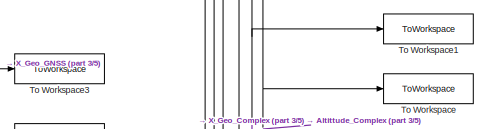
[diagram: Блок результатов (графиков) моделирования - part 1/5, top center region]
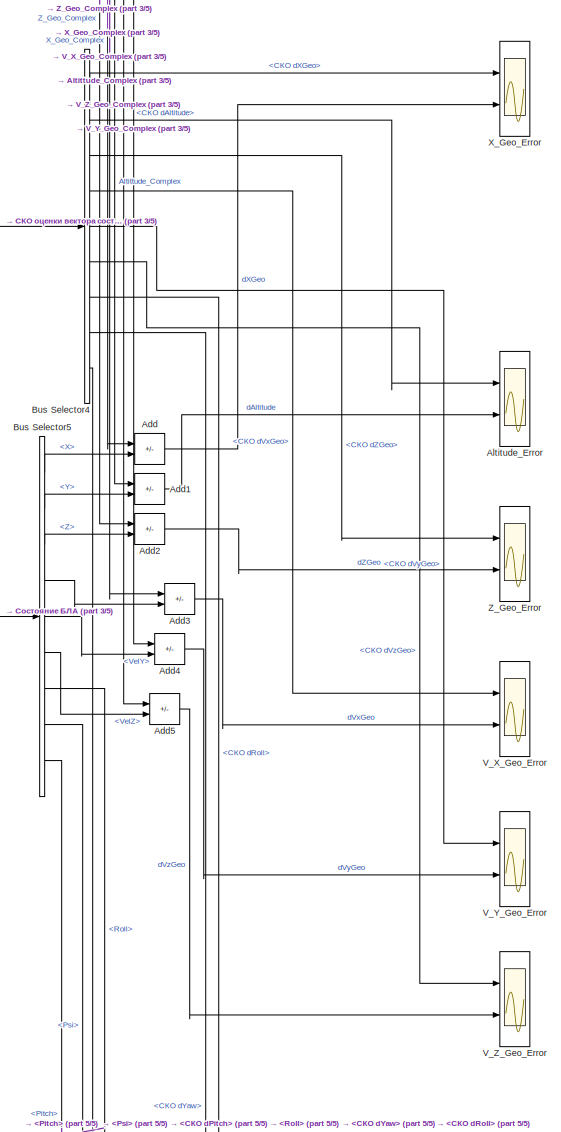
[diagram: Блок результатов (графиков) моделирования - part 2/5, middle right region]
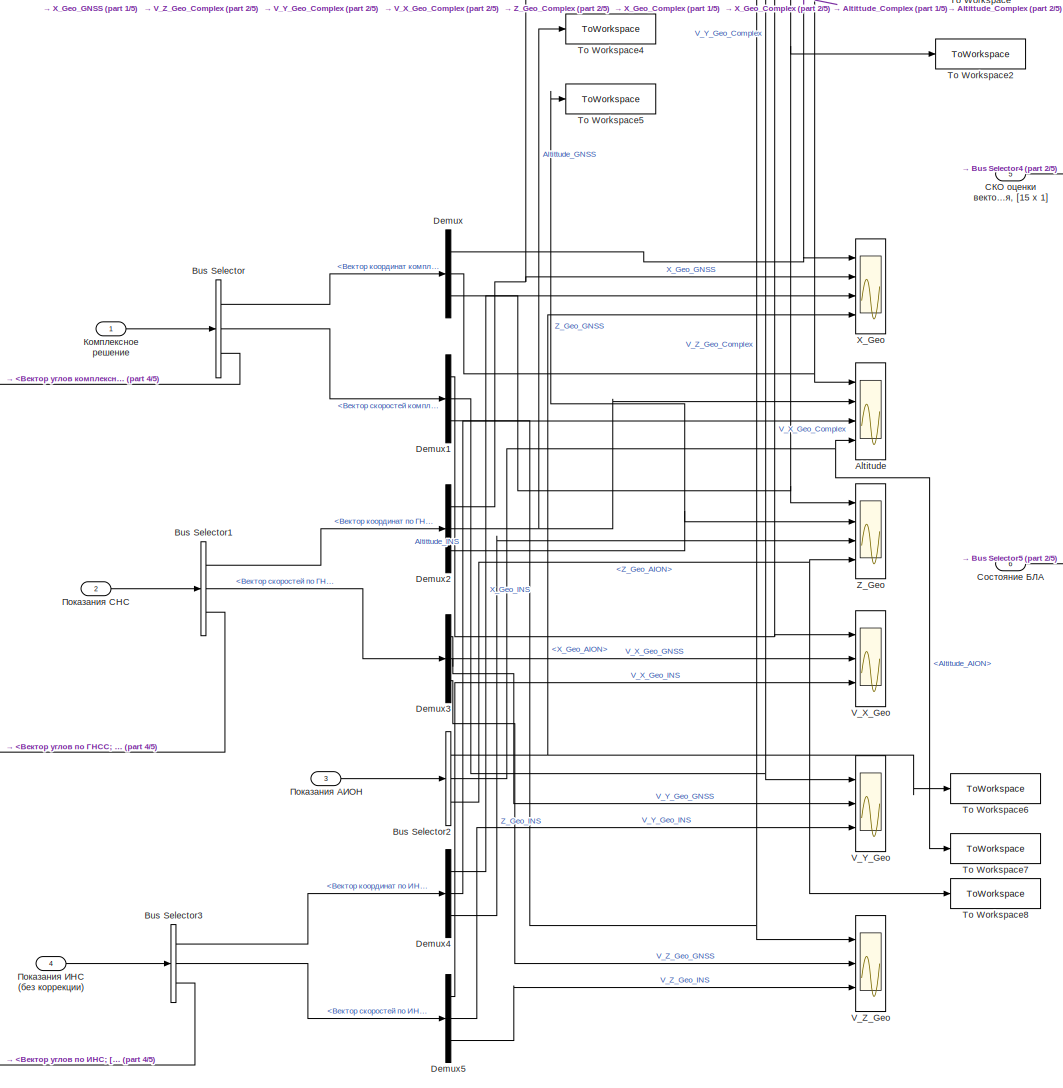
[diagram: Блок результатов (графиков) моделирования - part 3/5, central region]
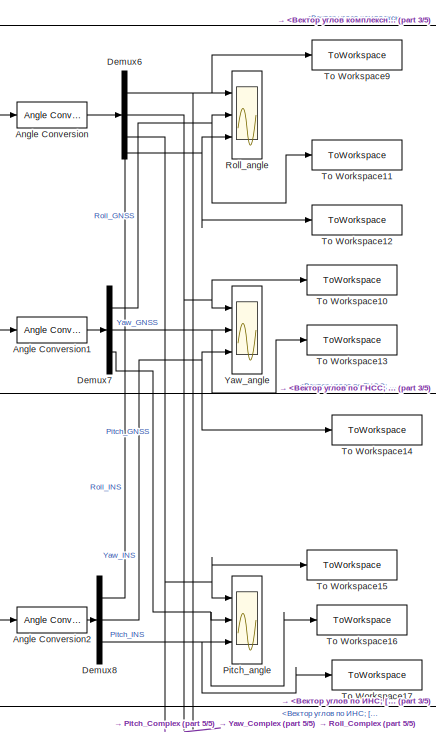
[diagram: Блок результатов (графиков) моделирования - part 4/5, middle left region]
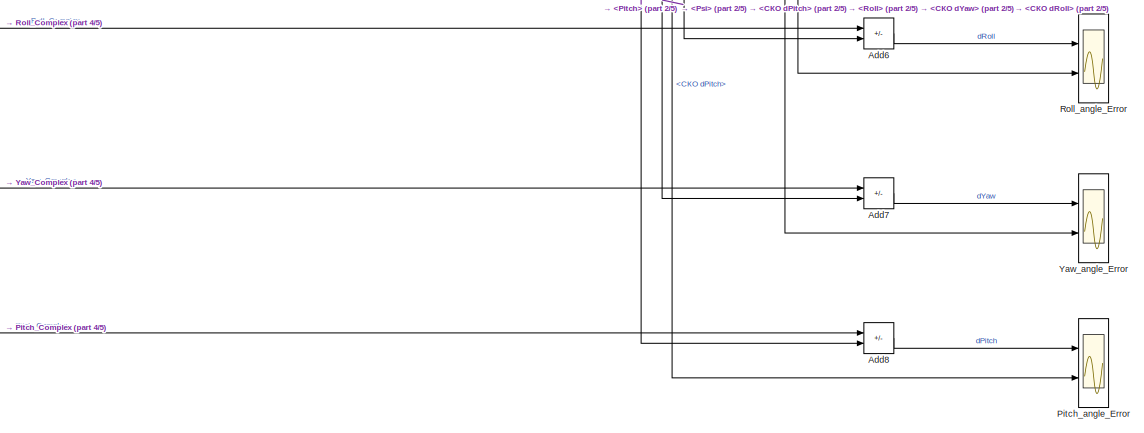
[diagram: Блок результатов (графиков) моделирования - part 5/5, bottom right region]
BLOCK [SubSystem] Блок результатов (графиков) моделирования
  Ports = [6]
  RequestExecContextInheritance = off
BLOCK [Sum] Блок результатов (графиков) моделирования/Add
  IconShape = rectangular
  Inputs = -+
  Ports = [2, 1]
BLOCK [Sum] Блок результатов (графиков) моделирования/Add1
  IconShape = rectangular
  Inputs = -+
  Ports = [2, 1]
BLOCK [Sum] Блок результатов (графиков) моделирования/Add2
  IconShape = rectangular
  Inputs = -+
  Ports = [2, 1]
BLOCK [Sum] Блок результатов (графиков) моделирования/Add3
  IconShape = rectangular
  Inputs = -+
  Ports = [2, 1]
BLOCK [Sum] Блок результатов (графиков) моделирования/Add4
  IconShape = rectangular
  Inputs = -+
  Ports = [2, 1]
BLOCK [Sum] Блок результатов (графиков) моделирования/Add5
  IconShape = rectangular
  Inputs = -+
  Ports = [2, 1]
BLOCK [Sum] Блок результатов (графиков) моделирования/Add6
  IconShape = rectangular
  Inputs = -+
  Ports = [2, 1]
BLOCK [Sum] Блок результатов (графиков) моделирования/Add7
  IconShape = rectangular
  Inputs = -+
  Ports = [2, 1]
BLOCK [Sum] Блок результатов (графиков) моделирования/Add8
  IconShape = rectangular
  Inputs = -+
  Ports = [2, 1]
BLOCK [Scope] Блок результатов (графиков) моделирования/Altitude
  Floating = off
  NumInputPorts = 4
  Ports = [4]
  ScopeSpecificationString = Simulink.scopes.TimeScopeBlockCfg('CurrentConfiguration', extmgr.ConfigurationSet(extmgr.Configuration('Core','General UI',true,'FigureColor',[1 1 1]),extmgr.Configuration('Core','Source UI',true),extmgr.Configuration('Sources','WiredSimulink',true,'DataLoggingVariableName','ScopeData2'),extmgr.Configuration('Visuals','Time Domain',true,'SerializedDisplays',{struct('MinYLimReal','31.82263','MaxYLi...<+1730ch>
BLOCK [Scope] Блок результатов (графиков) моделирования/Altitude_Error
  Floating = off
  NumInputPorts = 2
  Ports = [2]
  ScopeSpecificationString = Simulink.scopes.TimeScopeBlockCfg('CurrentConfiguration', extmgr.ConfigurationSet(extmgr.Configuration('Core','General UI',true,'FigureColor',[1 1 1]),extmgr.Configuration('Core','Source UI',true),extmgr.Configuration('Sources','WiredSimulink',true,'DataLoggingVariableName','ScopeData2','DataLoggingSaveFormat','StructureWithTime'),extmgr.Configuration('Visuals','Time Domain',true,'SerializedDispla...<+1770ch>
BLOCK [Reference] Блок результатов (графиков) моделирования/Angle Conversion  REF=aerolibconvert2/Angle Conversion
  Ports = [1, 1]
  SourceBlock = aerolibconvert2/Angle Conversion
  SourceProductBaseCode = AE
  SourceType = Angle Conversion
BLOCK [Reference] Блок результатов (графиков) моделирования/Angle Conversion1  REF=aerolibconvert2/Angle Conversion
  Ports = [1, 1]
  SourceBlock = aerolibconvert2/Angle Conversion
  SourceProductBaseCode = AE
  SourceType = Angle Conversion
BLOCK [Reference] Блок результатов (графиков) моделирования/Angle Conversion2  REF=aerolibconvert2/Angle Conversion
  Ports = [1, 1]
  SourceBlock = aerolibconvert2/Angle Conversion
  SourceProductBaseCode = AE
  SourceType = Angle Conversion
BLOCK [BusSelector] Блок результатов (графиков) моделирования/Bus Selector
  OutputSignals = Вектор координат комплексное решение; [3 x 1],Вектор скоростей комплексное решение; [3 x 1],Вектор углов комплексное решение; [3 x 1]
  Ports = [1, 3]
BLOCK [BusSelector] Блок результатов (графиков) моделирования/Bus Selector1
  OutputSignals = Вектор координат по ГНСС; [3 x 1],Вектор скоростей по ГНСС; [3 x 1],Вектор углов по ГНСС; [3 x 1]
  Ports = [1, 3]
BLOCK [BusSelector] Блок результатов (графиков) моделирования/Bus Selector2
  OutputSignals = X_Geo_AION,Altitude_AION,Z_Geo_AION
  Ports = [1, 3]
BLOCK [BusSelector] Блок результатов (графиков) моделирования/Bus Selector3
  OutputSignals = Вектор координат по ИНС; [3 x 1],Вектор скоростей по ИНС; [3 x 1],Вектор углов по ИНС; [3 x 1]
  Ports = [1, 3]
BLOCK [BusSelector] Блок результатов (графиков) моделирования/Bus Selector4
  OutputSignals = СКО dXGeo,СКО dAltitude,СКО dZGeo,СКО dVxGeo,СКО dVyGeo,СКО dVzGeo,СКО dRoll,СКО dYaw,СКО dPitch
  Ports = [1, 9]
BLOCK [BusSelector] Блок результатов (графиков) моделирования/Bus Selector5
  OutputSignals = X,Y,Z,VelX,VelY,VelZ,Roll,Psi,Pitch
  Ports = [1, 9]
BLOCK [Demux] Блок результатов (графиков) моделирования/Demux
  Outputs = 3
  Ports = [1, 3]
BLOCK [Demux] Блок результатов (графиков) моделирования/Demux1
  Outputs = 3
  Ports = [1, 3]
BLOCK [Demux] Блок результатов (графиков) моделирования/Demux2
  Outputs = 3
  Ports = [1, 3]
BLOCK [Demux] Блок результатов (графиков) моделирования/Demux3
  Outputs = 3
  Ports = [1, 3]
BLOCK [Demux] Блок результатов (графиков) моделирования/Demux4
  Outputs = 3
  Ports = [1, 3]
BLOCK [Demux] Блок результатов (графиков) моделирования/Demux5
  Outputs = 3
  Ports = [1, 3]
BLOCK [Demux] Блок результатов (графиков) моделирования/Demux6
  Outputs = 3
  Ports = [1, 3]
BLOCK [Demux] Блок результатов (графиков) моделирования/Demux7
  Outputs = 3
  Ports = [1, 3]
BLOCK [Demux] Блок результатов (графиков) моделирования/Demux8
  Outputs = 3
  Ports = [1, 3]
BLOCK [Scope] Блок результатов (графиков) моделирования/Pitch_angle
  Floating = off
  NumInputPorts = 3
  Ports = [3]
  ScopeSpecificationString = Simulink.scopes.TimeScopeBlockCfg('CurrentConfiguration', extmgr.ConfigurationSet(extmgr.Configuration('Core','General UI',true,'FigureColor',[1 1 1]),extmgr.Configuration('Core','Source UI',true),extmgr.Configuration('Sources','WiredSimulink',true,'DataLoggingVariableName','Pitch_angle','DataLogging',true,'DataLoggingSaveFormat','StructureWithTime'),extmgr.Configuration('Visuals','Time Domain',tr...<+1731ch>
BLOCK [Scope] Блок результатов (графиков) моделирования/Pitch_angle_Error
  Floating = off
  NumInputPorts = 2
  Ports = [2]
  ScopeSpecificationString = Simulink.scopes.TimeScopeBlockCfg('CurrentConfiguration', extmgr.ConfigurationSet(extmgr.Configuration('Core','General UI',true,'FigureColor',[1 1 1]),extmgr.Configuration('Core','Source UI',true),extmgr.Configuration('Sources','WiredSimulink',true,'DataLoggingVariableName','ScopeData6'),extmgr.Configuration('Visuals','Time Domain',true,'SerializedDisplays',{struct('MinYLimReal','-0.38153','MaxYLi...<+1648ch>
BLOCK [Scope] Блок результатов (графиков) моделирования/Roll_angle
  Floating = off
  NumInputPorts = 3
  Ports = [3]
  ScopeSpecificationString = Simulink.scopes.TimeScopeBlockCfg('CurrentConfiguration', extmgr.ConfigurationSet(extmgr.Configuration('Core','General UI',true,'FigureColor',[1 1 1]),extmgr.Configuration('Core','Source UI',true),extmgr.Configuration('Sources','WiredSimulink',true,'DataLoggingVariableName','Roll_angle','DataLogging',true,'DataLoggingSaveFormat','StructureWithTime'),extmgr.Configuration('Visuals','Time Domain',tru...<+2014ch>
BLOCK [Scope] Блок результатов (графиков) моделирования/Roll_angle_Error
  Floating = off
  NumInputPorts = 2
  Ports = [2]
  ScopeSpecificationString = Simulink.scopes.TimeScopeBlockCfg('CurrentConfiguration', extmgr.ConfigurationSet(extmgr.Configuration('Core','General UI',true,'FigureColor',[1 1 1]),extmgr.Configuration('Core','Source UI',true),extmgr.Configuration('Sources','WiredSimulink',true,'DataLoggingVariableName','ScopeData4'),extmgr.Configuration('Visuals','Time Domain',true,'SerializedDisplays',{struct('MinYLimReal','-0.23276','MaxYLi...<+1644ch>
BLOCK [ToWorkspace] Блок результатов (графиков) моделирования/To Workspace
  FixptAsFi = on
  MaxDataPoints = inf
  Ports = [1]
  SampleTime = IMUtime
  SaveFormat = Timeseries
  VariableName = Altitude_Complex
BLOCK [ToWorkspace] Блок результатов (графиков) моделирования/To Workspace1
  FixptAsFi = on
  MaxDataPoints = inf
  Ports = [1]
  SampleTime = IMUtime
  SaveFormat = Timeseries
  VariableName = North_Complex
BLOCK [ToWorkspace] Блок результатов (графиков) моделирования/To Workspace10
  FixptAsFi = on
  MaxDataPoints = inf
  Ports = [1]
  SampleTime = IMUtime
  SaveFormat = Timeseries
  VariableName = Yaw_Complex
BLOCK [ToWorkspace] Блок результатов (графиков) моделирования/To Workspace11
  FixptAsFi = on
  MaxDataPoints = inf
  Ports = [1]
  SampleTime = GNSStime
  SaveFormat = Timeseries
  VariableName = Roll_GNSS
BLOCK [ToWorkspace] Блок результатов (графиков) моделирования/To Workspace12
  FixptAsFi = on
  MaxDataPoints = inf
  Ports = [1]
  SampleTime = IMUtime
  SaveFormat = Timeseries
  VariableName = Roll_INS
BLOCK [ToWorkspace] Блок результатов (графиков) моделирования/To Workspace13
  FixptAsFi = on
  MaxDataPoints = inf
  Ports = [1]
  SampleTime = GNSStime
  SaveFormat = Timeseries
  VariableName = Yaw_GNSS
BLOCK [ToWorkspace] Блок результатов (графиков) моделирования/To Workspace14
  FixptAsFi = on
  MaxDataPoints = inf
  Ports = [1]
  SampleTime = IMUtime
  SaveFormat = Timeseries
  VariableName = Yaw_INS
BLOCK [ToWorkspace] Блок результатов (графиков) моделирования/To Workspace15
  FixptAsFi = on
  MaxDataPoints = inf
  Ports = [1]
  SampleTime = IMUtime
  SaveFormat = Timeseries
  VariableName = Pitch_Complex
BLOCK [ToWorkspace] Блок результатов (графиков) моделирования/To Workspace16
  FixptAsFi = on
  MaxDataPoints = inf
  Ports = [1]
  SampleTime = GNSStime
  SaveFormat = Timeseries
  VariableName = Pitch_GNSS
BLOCK [ToWorkspace] Блок результатов (графиков) моделирования/To Workspace17
  FixptAsFi = on
  MaxDataPoints = inf
  Ports = [1]
  SampleTime = IMUtime
  SaveFormat = Timeseries
  VariableName = Pitch_INS
BLOCK [ToWorkspace] Блок результатов (графиков) моделирования/To Workspace2
  FixptAsFi = on
  MaxDataPoints = inf
  Ports = [1]
  SampleTime = IMUtime
  SaveFormat = Timeseries
  VariableName = East_Complex
BLOCK [ToWorkspace] Блок результатов (графиков) моделирования/To Workspace3
  FixptAsFi = on
  MaxDataPoints = inf
  Ports = [1]
  SampleTime = GNSStime
  SaveFormat = Timeseries
  VariableName = North_GNSS
BLOCK [ToWorkspace] Блок результатов (графиков) моделирования/To Workspace4
  FixptAsFi = on
  MaxDataPoints = inf
  Ports = [1]
  SampleTime = GNSStime
  SaveFormat = Timeseries
  VariableName = Altitude_GNSS
BLOCK [ToWorkspace] Блок результатов (графиков) моделирования/To Workspace5
  FixptAsFi = on
  MaxDataPoints = inf
  Ports = [1]
  SampleTime = GNSStime
  SaveFormat = Timeseries
  VariableName = East_GNSS
BLOCK [ToWorkspace] Блок результатов (графиков) моделирования/To Workspace6
  FixptAsFi = on
  MaxDataPoints = inf
  Ports = [1]
  SampleTime = AIONtime
  SaveFormat = Timeseries
  VariableName = North_AION
BLOCK [ToWorkspace] Блок результатов (графиков) моделирования/To Workspace7
  FixptAsFi = on
  MaxDataPoints = inf
  Ports = [1]
  SampleTime = AIONtime
  SaveFormat = Timeseries
  VariableName = Altitude_AION
BLOCK [ToWorkspace] Блок результатов (графиков) моделирования/To Workspace8
  FixptAsFi = on
  MaxDataPoints = inf
  Ports = [1]
  SampleTime = AIONtime
  SaveFormat = Timeseries
  VariableName = East_AION
BLOCK [ToWorkspace] Блок результатов (графиков) моделирования/To Workspace9
  FixptAsFi = on
  MaxDataPoints = inf
  Ports = [1]
  SampleTime = IMUtime
  SaveFormat = Timeseries
  VariableName = Roll_Complex
BLOCK [Scope] Блок результатов (графиков) моделирования/V_X_Geo
  Floating = off
  NumInputPorts = 3
  Ports = [3]
  ScopeSpecificationString = Simulink.scopes.TimeScopeBlockCfg('CurrentConfiguration', extmgr.ConfigurationSet(extmgr.Configuration('Core','General UI',true,'FigureColor',[1 1 1]),extmgr.Configuration('Core','Source UI',true),extmgr.Configuration('Sources','WiredSimulink',true,'DataLoggingVariableName','ScopeData4'),extmgr.Configuration('Visuals','Time Domain',true,'SerializedDisplays',{struct('MinYLimReal','-1.96312','MaxYLi...<+1684ch>
BLOCK [Scope] Блок результатов (графиков) моделирования/V_X_Geo_Error
  Floating = off
  NumInputPorts = 2
  Ports = [2]
  ScopeSpecificationString = Simulink.scopes.TimeScopeBlockCfg('CurrentConfiguration', extmgr.ConfigurationSet(extmgr.Configuration('Core','General UI',true,'FigureColor',[1 1 1]),extmgr.Configuration('Core','Source UI',true),extmgr.Configuration('Sources','WiredSimulink',true,'DataLoggingVariableName','ScopeData4','DataLoggingSaveFormat','StructureWithTime'),extmgr.Configuration('Visuals','Time Domain',true,'SerializedDispla...<+1745ch>
BLOCK [Scope] Блок результатов (графиков) моделирования/V_Y_Geo
  Floating = off
  NumInputPorts = 3
  Ports = [3]
  ScopeSpecificationString = Simulink.scopes.TimeScopeBlockCfg('CurrentConfiguration', extmgr.ConfigurationSet(extmgr.Configuration('Core','General UI',true,'FigureColor',[1 1 1]),extmgr.Configuration('Core','Source UI',true),extmgr.Configuration('Sources','WiredSimulink',true,'DataLoggingVariableName','ScopeData6'),extmgr.Configuration('Visuals','Time Domain',true,'SerializedDisplays',{struct('MinYLimReal','-6.01536','MaxYLi...<+1679ch>
BLOCK [Scope] Блок результатов (графиков) моделирования/V_Y_Geo_Error
  Floating = off
  NumInputPorts = 2
  Ports = [2]
  ScopeSpecificationString = Simulink.scopes.TimeScopeBlockCfg('CurrentConfiguration', extmgr.ConfigurationSet(extmgr.Configuration('Core','General UI',true,'FigureColor',[1 1 1]),extmgr.Configuration('Core','Source UI',true),extmgr.Configuration('Sources','WiredSimulink',true,'DataLoggingVariableName','ScopeData5','DataLoggingSaveFormat','StructureWithTime'),extmgr.Configuration('Visuals','Time Domain',true,'SerializedDispla...<+1741ch>
BLOCK [Scope] Блок результатов (графиков) моделирования/V_Z_Geo
  Floating = off
  NumInputPorts = 3
  Ports = [3]
  ScopeSpecificationString = Simulink.scopes.TimeScopeBlockCfg('CurrentConfiguration', extmgr.ConfigurationSet(extmgr.Configuration('Core','General UI',true,'FigureColor',[1 1 1]),extmgr.Configuration('Core','Source UI',true),extmgr.Configuration('Sources','WiredSimulink',true,'DataLoggingVariableName','ScopeData5'),extmgr.Configuration('Visuals','Time Domain',true,'SerializedDisplays',{struct('MinYLimReal','-55.36506','MaxYL...<+1670ch>
BLOCK [Scope] Блок результатов (графиков) моделирования/V_Z_Geo_Error
  Floating = off
  NumInputPorts = 2
  Ports = [2]
  ScopeSpecificationString = Simulink.scopes.TimeScopeBlockCfg('CurrentConfiguration', extmgr.ConfigurationSet(extmgr.Configuration('Core','General UI',true,'FigureColor',[1 1 1]),extmgr.Configuration('Core','Source UI',true),extmgr.Configuration('Sources','WiredSimulink',true,'DataLoggingVariableName','ScopeData6','DataLoggingSaveFormat','StructureWithTime'),extmgr.Configuration('Visuals','Time Domain',true,'SerializedDispla...<+1749ch>
BLOCK [Scope] Блок результатов (графиков) моделирования/X_Geo
  Floating = off
  NumInputPorts = 4
  Ports = [4]
  ScopeSpecificationString = Simulink.scopes.TimeScopeBlockCfg('CurrentConfiguration', extmgr.ConfigurationSet(extmgr.Configuration('Core','General UI',true,'FigureColor',[1 1 1]),extmgr.Configuration('Core','Source UI',true),extmgr.Configuration('Sources','WiredSimulink',true,'DataLoggingVariableName','ScopeData1','DataLoggingSaveFormat','StructureWithTime'),extmgr.Configuration('Visuals','Time Domain',true,'SerializedDispla...<+1778ch>
BLOCK [Scope] Блок результатов (графиков) моделирования/X_Geo_Error
  Floating = off
  NumInputPorts = 2
  Ports = [2]
  ScopeSpecificationString = Simulink.scopes.TimeScopeBlockCfg('CurrentConfiguration', extmgr.ConfigurationSet(extmgr.Configuration('Core','General UI',true,'FigureColor',[1 1 1]),extmgr.Configuration('Core','Source UI',true),extmgr.Configuration('Sources','WiredSimulink',true,'DataLoggingVariableName','ScopeData1','DataLoggingSaveFormat','StructureWithTime'),extmgr.Configuration('Visuals','Time Domain',true,'SerializedDispla...<+1736ch>
BLOCK [Scope] Блок результатов (графиков) моделирования/Yaw_angle
  Floating = off
  NumInputPorts = 3
  Ports = [3]
  ScopeSpecificationString = Simulink.scopes.TimeScopeBlockCfg('CurrentConfiguration', extmgr.ConfigurationSet(extmgr.Configuration('Core','General UI',true,'FigureColor',[1 1 1]),extmgr.Configuration('Core','Source UI',true),extmgr.Configuration('Sources','WiredSimulink',true,'DataLoggingVariableName','Yaw_angle','DataLogging',true,'DataLoggingSaveFormat','StructureWithTime'),extmgr.Configuration('Visuals','Time Domain',true...<+1727ch>
BLOCK [Scope] Блок результатов (графиков) моделирования/Yaw_angle_Error
  Floating = off
  NumInputPorts = 2
  Ports = [2]
  ScopeSpecificationString = Simulink.scopes.TimeScopeBlockCfg('CurrentConfiguration', extmgr.ConfigurationSet(extmgr.Configuration('Core','General UI',true,'FigureColor',[1 1 1]),extmgr.Configuration('Core','Source UI',true),extmgr.Configuration('Sources','WiredSimulink',true,'DataLoggingVariableName','ScopeData5'),extmgr.Configuration('Visuals','Time Domain',true,'SerializedDisplays',{struct('MinYLimReal','-0.41837','MaxYLi...<+1640ch>
BLOCK [Scope] Блок результатов (графиков) моделирования/Z_Geo
  Floating = off
  NumInputPorts = 4
  Ports = [4]
  ScopeSpecificationString = Simulink.scopes.TimeScopeBlockCfg('CurrentConfiguration', extmgr.ConfigurationSet(extmgr.Configuration('Core','General UI',true,'FigureColor',[1 1 1]),extmgr.Configuration('Core','Source UI',true),extmgr.Configuration('Sources','WiredSimulink',true,'DataLoggingVariableName','ScopeData3'),extmgr.Configuration('Visuals','Time Domain',true,'SerializedDisplays',{struct('MinYLimReal','-1136.1734','MaxY...<+1725ch>
BLOCK [Scope] Блок результатов (графиков) моделирования/Z_Geo_Error
  Floating = off
  NumInputPorts = 2
  Ports = [2]
  ScopeSpecificationString = Simulink.scopes.TimeScopeBlockCfg('CurrentConfiguration', extmgr.ConfigurationSet(extmgr.Configuration('Core','General UI',true,'FigureColor',[1 1 1]),extmgr.Configuration('Core','Source UI',true),extmgr.Configuration('Sources','WiredSimulink',true,'DataLoggingVariableName','ScopeData3','DataLoggingSaveFormat','StructureWithTime'),extmgr.Configuration('Visuals','Time Domain',true,'SerializedDispla...<+1745ch>
BLOCK [Inport] Блок результатов (графиков) моделирования/Комплексное решение
BLOCK [Inport] Блок результатов (графиков) моделирования/Показания АИОН
  Port = 3
BLOCK [Inport] Блок результатов (графиков) моделирования/Показания ИНС (без коррекции)
  Port = 4
BLOCK [Inport] Блок результатов (графиков) моделирования/Показания СНС
  Port = 2
BLOCK [Inport] Блок результатов (графиков) моделирования/СКО оценки вектора состояния, [15 x 1]
  Port = 5
BLOCK [Inport] Блок результатов (графиков) моделирования/Состояние БЛА
  Port = 6
BLOCK [SubSystem] Блок создания траектории движения БЛА
  Ports = [1, 2]
  RequestExecContextInheritance = off
BLOCK [Trigonometry] Блок создания траектории движения БЛА/Atan2
  Operator = atan2
  Ports = [2, 1]
BLOCK [BusCreator] Блок создания траектории движения БЛА/Bus Creator
  DisplayOption = bar
  InheritFromInputs = on
  Inputs = 6
  Ports = [6, 1]
BLOCK [BusCreator] Блок создания траектории движения БЛА/Bus Creator1
  DisplayOption = bar
  InheritFromInputs = on
  Inputs = 6
  Ports = [6, 1]
BLOCK [BusSelector] Блок создания траектории движения БЛА/Bus Selector
  OutputSignals = TAltitude,Заданная высота; м
  Ports = [1, 2]
BLOCK [BusSelector] Блок создания траектории движения БЛА/Bus Selector1
  OutputSignals = AltPID,ZPID,XPID,RollPID,PitchPID,PsiPID
  Ports = [1, 6]
BLOCK [BusSelector] Блок создания траектории движения БЛА/Bus Selector2
  OutputSignals = VelX,VelZ
  Ports = [1, 2]
BLOCK [Clock] Блок создания траектории движения БЛА/Clock
BLOCK [Clock] Блок создания траектории движения БЛА/Clock1
BLOCK [Demux] Блок создания траектории движения БЛА/Demux
  Outputs = 2
  Ports = [1, 2]
BLOCK [Demux] Блок создания траектории движения БЛА/Demux2
  Outputs = 2
  Ports = [1, 2]
BLOCK [If] Блок создания траектории движения БЛА/If
  IfExpression = u1 > u2
  NumInputs = 2
  Ports = [2, 2]
BLOCK [SubSystem] Блок создания траектории движения БЛА/If Action Subsystem
  Ports = [3, 1, 0, 0, 0, 0, 0, 1]
  RequestExecContextInheritance = off
  TreatAsAtomicUnit = on
BLOCK [ActionPort] Блок создания траектории движения БЛА/If Action Subsystem/Action Port
  ActionPortLabel = if(u1 <= u2)
BLOCK [Demux] Блок создания траектории движения БЛА/If Action Subsystem/Demux
  Outputs = 2
  Ports = [1, 2]
BLOCK [Mux] Блок создания траектории движения БЛА/If Action Subsystem/Mux
  DisplayOption = bar
  Inputs = 2
  Ports = [2, 1]
BLOCK [Outport] Блок создания траектории движения БЛА/If Action Subsystem/Out1
BLOCK [SubSystem] Блок создания траектории движения БЛА/If Action Subsystem/Start Path Coordinate
  ErrorFcn = Stateflow.Translate.translate
  PermitHierarchicalResolution = ExplicitOnly
  Ports = [4, 2]
  RequestExecContextInheritance = off
  SFBlockType = MATLAB Function
  TreatAsAtomicUnit = on
BLOCK [Demux] Блок создания траектории движения БЛА/If Action Subsystem/Start Path Coordinate/ Demux 
  Outputs = 1
  Ports = [1, 1]
BLOCK [S-Function] Блок создания траектории движения БЛА/If Action Subsystem/Start Path Coordinate/ SFunction 
  EnableBusSupport = on
  FunctionName = sf_sfun
  PortCounts = [4 3]
  Ports = [4, 3]
  SFcnIsStateOwnerBlock = off
  SFunctionDeploymentMode = off
  Tag = Stateflow S-Function 9
BLOCK [Terminator] Блок создания траектории движения БЛА/If Action Subsystem/Start Path Coordinate/ Terminator 
BLOCK [Inport] Блок создания траектории движения БЛА/If Action Subsystem/Start Path Coordinate/EastInit
  Port = 4
BLOCK [Inport] Блок создания траектории движения БЛА/If Action Subsystem/Start Path Coordinate/NorthInit
  Port = 3
BLOCK [Inport] Блок создания траектории движения БЛА/If Action Subsystem/Start Path Coordinate/TAltitude
  Port = 2
BLOCK [Outport] Блок создания траектории движения БЛА/If Action Subsystem/Start Path Coordinate/X
BLOCK [Outport] Блок создания траектории движения БЛА/If Action Subsystem/Start Path Coordinate/Z
  Port = 2
BLOCK [Inport] Блок создания траектории движения БЛА/If Action Subsystem/Start Path Coordinate/t
BLOCK [Inport] Блок создания траектории движения БЛА/If Action Subsystem/TAltitude
  Port = 3
BLOCK [Inport] Блок создания траектории движения БЛА/If Action Subsystem/XZ(0)
BLOCK [Inport] Блок создания траектории движения БЛА/If Action Subsystem/t
  Port = 2
BLOCK [SubSystem] Блок создания траектории движения БЛА/If Action Subsystem1
  Ports = [1, 1, 0, 0, 0, 0, 0, 1]
  RequestExecContextInheritance = off
  TreatAsAtomicUnit = on
BLOCK [ActionPort] Блок создания траектории движения БЛА/If Action Subsystem1/Action Port
  ActionPortLabel = else
BLOCK [Outport] Блок создания траектории движения БЛА/If Action Subsystem1/Out1
BLOCK [Inport] Блок создания траектории движения БЛА/If Action Subsystem1/XZ
BLOCK [SubSystem] Блок создания траектории движения БЛА/If Action Subsystem2
  Ports = [1, 1, 0, 0, 0, 0, 0, 1]
  RequestExecContextInheritance = off
  TreatAsAtomicUnit = on
BLOCK [ActionPort] Блок создания траектории движения БЛА/If Action Subsystem2/Action Port
  ActionPortLabel = if(u1 > u2)
BLOCK [Inport] Блок создания траектории движения БЛА/If Action Subsystem2/In1
BLOCK [Outport] Блок создания траектории движения БЛА/If Action Subsystem2/Out1
BLOCK [SubSystem] Блок создания траектории движения БЛА/If Action Subsystem3
  Ports = [0, 1, 0, 0, 0, 0, 0, 1]
  RequestExecContextInheritance = off
  TreatAsAtomicUnit = on
BLOCK [ActionPort] Блок создания траектории движения БЛА/If Action Subsystem3/Action Port
  ActionPortLabel = else
BLOCK [Constant] Блок создания траектории движения БЛА/If Action Subsystem3/Constant
  Value = 0
BLOCK [Outport] Блок создания траектории движения БЛА/If Action Subsystem3/Out1
BLOCK [Merge] Блок создания траектории движения БЛА/Merge
  Ports = [2, 1]
BLOCK [Merge] Блок создания траектории движения БЛА/Merge1
  Ports = [2, 1]
BLOCK [MultiPortSwitch] Блок создания траектории движения БЛА/Multiport Switch
  InputSameDT = off
  Ports = [4, 1]
  SaturateOnIntegerOverflow = off
BLOCK [Constant] Блок создания траектории движения БЛА/Quadro // UAVWing?
  Value = indUAV
BLOCK [SubSystem] Блок создания траектории движения БЛА/Выбор траектории движения БЛА
  Ports = [2, 2]
  RequestExecContextInheritance = off
BLOCK [Constant] Блок создания траектории движения БЛА/Выбор траектории движения БЛА/Constant
  Value = 2
BLOCK [SubSystem] Блок создания траектории движения БЛА/Выбор траектории движения БЛА/Eight Path
  ErrorFcn = Stateflow.Translate.translate
  PermitHierarchicalResolution = ExplicitOnly
  Ports = [3, 2]
  RequestExecContextInheritance = off
  SFBlockType = MATLAB Function
  TreatAsAtomicUnit = on
BLOCK [Demux] Блок создания траектории движения БЛА/Выбор траектории движения БЛА/Eight Path/ Demux 
  Outputs = 1
  Ports = [1, 1]
BLOCK [S-Function] Блок создания траектории движения БЛА/Выбор траектории движения БЛА/Eight Path/ SFunction 
  EnableBusSupport = on
  FunctionName = sf_sfun
  PortCounts = [3 3]
  Ports = [3, 3]
  SFcnIsStateOwnerBlock = off
  SFunctionDeploymentMode = off
  Tag = Stateflow S-Function 4
BLOCK [Terminator] Блок создания траектории движения БЛА/Выбор траектории движения БЛА/Eight Path/ Terminator 
BLOCK [Inport] Блок создания траектории движения БЛА/Выбор траектории движения БЛА/Eight Path/NorthEight
  Port = 2
BLOCK [Inport] Блок создания траектории движения БЛА/Выбор траектории движения БЛА/Eight Path/TAltitude
  Port = 3
BLOCK [Outport] Блок создания траектории движения БЛА/Выбор траектории движения БЛА/Eight Path/X
BLOCK [Outport] Блок создания траектории движения БЛА/Выбор траектории движения БЛА/Eight Path/Z
  Port = 2
BLOCK [Inport] Блок создания траектории движения БЛА/Выбор траектории движения БЛА/Eight Path/t
BLOCK [SubSystem] Блок создания траектории движения БЛА/Выбор траектории движения БЛА/Line Path
  ErrorFcn = Stateflow.Translate.translate
  PermitHierarchicalResolution = ExplicitOnly
  Ports = [2, 2]
  RequestExecContextInheritance = off
  SFBlockType = MATLAB Function
  TreatAsAtomicUnit = on
BLOCK [Demux] Блок создания траектории движения БЛА/Выбор траектории движения БЛА/Line Path/ Demux 
  Outputs = 1
  Ports = [1, 1]
BLOCK [S-Function] Блок создания траектории движения БЛА/Выбор траектории движения БЛА/Line Path/ SFunction 
  EnableBusSupport = on
  FunctionName = sf_sfun
  PortCounts = [2 3]
  Ports = [2, 3]
  SFcnIsStateOwnerBlock = off
  SFunctionDeploymentMode = off
  Tag = Stateflow S-Function 5
BLOCK [Terminator] Блок создания траектории движения БЛА/Выбор траектории движения БЛА/Line Path/ Terminator 
BLOCK [Inport] Блок создания траектории движения БЛА/Выбор траектории движения БЛА/Line Path/TAltitude
  Port = 2
BLOCK [Outport] Блок создания траектории движения БЛА/Выбор траектории движения БЛА/Line Path/X
BLOCK [Outport] Блок создания траектории движения БЛА/Выбор траектории движения БЛА/Line Path/Z
  Port = 2
BLOCK [Inport] Блок создания траектории движения БЛА/Выбор траектории движения БЛА/Line Path/t
BLOCK [MultiPortSwitch] Блок создания траектории движения БЛА/Выбор траектории движения БЛА/Multiport Switch
  InputSameDT = off
  Ports = [4, 1]
  SaturateOnIntegerOverflow = off
BLOCK [MultiPortSwitch] Блок создания траектории движения БЛА/Выбор траектории движения БЛА/Multiport Switch1
  InputSameDT = off
  Ports = [4, 1]
  SaturateOnIntegerOverflow = off
BLOCK [Mux] Блок создания траектории движения БЛА/Выбор траектории движения БЛА/Mux1
  DisplayOption = bar
  Inputs = 2
  Ports = [2, 1]
BLOCK [Mux] Блок создания траектории движения БЛА/Выбор траектории движения БЛА/Mux2
  DisplayOption = bar
  Inputs = 2
  Ports = [2, 1]
BLOCK [Mux] Блок создания траектории движения БЛА/Выбор траектории движения БЛА/Mux3
  DisplayOption = bar
  Inputs = 2
  Ports = [2, 1]
BLOCK [Mux] Блок создания траектории движения БЛА/Выбор траектории движения БЛА/Mux4
  DisplayOption = bar
  Inputs = 2
  Ports = [2, 1]
BLOCK [Mux] Блок создания траектории движения БЛА/Выбор траектории движения БЛА/Mux5
  DisplayOption = bar
  Inputs = 2
  Ports = [2, 1]
BLOCK [Mux] Блок создания траектории движения БЛА/Выбор траектории движения БЛА/Mux6
  DisplayOption = bar
  Inputs = 2
  Ports = [2, 1]
BLOCK [SliderBlock] Блок создания траектории движения БЛА/Выбор траектории движения БЛА/Slider
  ScaleMax = 3
  ScaleMin = 1
  TickInterval = 1
BLOCK [SubSystem] Блок создания траектории движения БЛА/Выбор траектории движения БЛА/Snake Path
  ErrorFcn = Stateflow.Translate.translate
  PermitHierarchicalResolution = ExplicitOnly
  Ports = [2, 2]
  RequestExecContextInheritance = off
  SFBlockType = MATLAB Function
  TreatAsAtomicUnit = on
BLOCK [Demux] Блок создания траектории движения БЛА/Выбор траектории движения БЛА/Snake Path/ Demux 
  Outputs = 1
  Ports = [1, 1]
BLOCK [S-Function] Блок создания траектории движения БЛА/Выбор траектории движения БЛА/Snake Path/ SFunction 
  EnableBusSupport = on
  FunctionName = sf_sfun
  PortCounts = [2 3]
  Ports = [2, 3]
  SFcnIsStateOwnerBlock = off
  SFunctionDeploymentMode = off
  Tag = Stateflow S-Function 6
BLOCK [Terminator] Блок создания траектории движения БЛА/Выбор траектории движения БЛА/Snake Path/ Terminator 
BLOCK [Inport] Блок создания траектории движения БЛА/Выбор траектории движения БЛА/Snake Path/TAltitude
  Port = 2
BLOCK [Outport] Блок создания траектории движения БЛА/Выбор траектории движения БЛА/Snake Path/X
BLOCK [Outport] Блок создания траектории движения БЛА/Выбор траектории движения БЛА/Snake Path/Z
  Port = 2
BLOCK [Inport] Блок создания траектории движения БЛА/Выбор траектории движения БЛА/Snake Path/t
BLOCK [Inport] Блок создания траектории движения БЛА/Выбор траектории движения БЛА/TAltitude
  Port = 2
BLOCK [Constant] Блок создания траектории движения БЛА/Выбор траектории движения БЛА/X(0)
  Value = 0
BLOCK [Constant] Блок создания траектории движения БЛА/Выбор траектории движения БЛА/X(0)1
  Value = 1000
BLOCK [Outport] Блок создания траектории движения БЛА/Выбор траектории движения БЛА/XZ
BLOCK [Outport] Блок создания траектории движения БЛА/Выбор траектории движения БЛА/XZ(0)
  Port = 2
BLOCK [Inport] Блок создания траектории движения БЛА/Выбор траектории движения БЛА/t
BLOCK [Outport] Блок создания траектории движения БЛА/Заданная траектория полета БЛА
BLOCK [Saturate] Блок создания траектории движения БЛА/Ограничение +- pi
  LowerLimit = -pi
  UpperLimit = pi
BLOCK [Outport] Блок создания траектории движения БЛА/Параметры САУ БпЛА
  Port = 2
BLOCK [SubSystem] Блок создания траектории движения БЛА/Параметры для моделирования квадрокоптера
  Ports = [1, 1]
  RequestExecContextInheritance = off
BLOCK [BusCreator] Блок создания траектории движения БЛА/Параметры для моделирования квадрокоптера/Bus Creator1
  DisplayOption = bar
  InheritFromInputs = on
  Inputs = 8
  Ports = [8, 1]
BLOCK [SubSystem] Блок создания траектории движения БЛА/Параметры для моделирования квадрокоптера/MATLAB Function
  ErrorFcn = Stateflow.Translate.translate
  PermitHierarchicalResolution = ExplicitOnly
  Ports = [2, 1]
  RequestExecContextInheritance = off
  SFBlockType = MATLAB Function
  TreatAsAtomicUnit = on
BLOCK [Demux] Блок создания траектории движения БЛА/Параметры для моделирования квадрокоптера/MATLAB Function/ Demux 
  Outputs = 1
  Ports = [1, 1]
BLOCK [S-Function] Блок создания траектории движения БЛА/Параметры для моделирования квадрокоптера/MATLAB Function/ SFunction 
  EnableBusSupport = on
  FunctionName = sf_sfun
  PortCounts = [2 2]
  Ports = [2, 2]
  SFcnIsStateOwnerBlock = off
  SFunctionDeploymentMode = off
  Tag = Stateflow S-Function 11
BLOCK [Terminator] Блок создания траектории движения БЛА/Параметры для моделирования квадрокоптера/MATLAB Function/ Terminator 
BLOCK [Outport] Блок создания траектории движения БЛА/Параметры для моделирования квадрокоптера/MATLAB Function/Alt
BLOCK [Inport] Блок создания траектории движения БЛА/Параметры для моделирования квадрокоптера/MATLAB Function/TAltitude
  Port = 2
BLOCK [Inport] Блок создания траектории движения БЛА/Параметры для моделирования квадрокоптера/MATLAB Function/t
BLOCK [Mux] Блок создания траектории движения БЛА/Параметры для моделирования квадрокоптера/Mux
  DisplayOption = bar
  Inputs = 3
  Ports = [3, 1]
BLOCK [Mux] Блок создания траектории движения БЛА/Параметры для моделирования квадрокоптера/Mux1
  DisplayOption = bar
  Inputs = 3
  Ports = [3, 1]
BLOCK [Mux] Блок создания траектории движения БЛА/Параметры для моделирования квадрокоптера/Mux2
  DisplayOption = bar
  Inputs = 3
  Ports = [3, 1]
BLOCK [Mux] Блок создания траектории движения БЛА/Параметры для моделирования квадрокоптера/Mux3
  DisplayOption = bar
  Inputs = 3
  Ports = [3, 1]
BLOCK [Mux] Блок создания траектории движения БЛА/Параметры для моделирования квадрокоптера/Mux4
  DisplayOption = bar
  Inputs = 3
  Ports = [3, 1]
BLOCK [Mux] Блок создания траектории движения БЛА/Параметры для моделирования квадрокоптера/Mux5
  DisplayOption = bar
  Inputs = 3
  Ports = [3, 1]
BLOCK [Outport] Блок создания траектории движения БЛА/Параметры для моделирования квадрокоптера/Out1
BLOCK [Constant] Блок создания траектории движения БЛА/Параметры для моделирования квадрокоптера/QuadroDAlt
  Value = 0.5
BLOCK [Constant] Блок создания траектории движения БЛА/Параметры для моделирования квадрокоптера/QuadroDPitch
  Value = 50
BLOCK [Constant] Блок создания траектории движения БЛА/Параметры для моделирования квадрокоптера/QuadroDPsi
  Value = 5
BLOCK [Constant] Блок создания траектории движения БЛА/Параметры для моделирования квадрокоптера/QuadroDRoll
  Value = 50
BLOCK [Constant] Блок создания траектории движения БЛА/Параметры для моделирования квадрокоптера/QuadroDX
  Value = 2
BLOCK [Constant] Блок создания траектории движения БЛА/Параметры для моделирования квадрокоптера/QuadroDZ
  Value = 2
BLOCK [Constant] Блок создания траектории движения БЛА/Параметры для моделирования квадрокоптера/QuadroIAlt
  Value = 0.01
BLOCK [Constant] Блок создания траектории движения БЛА/Параметры для моделирования квадрокоптера/QuadroIPitch
  Value = 0.01
BLOCK [Constant] Блок создания траектории движения БЛА/Параметры для моделирования квадрокоптера/QuadroIPsi
  Value = 0.01
BLOCK [Constant] Блок создания траектории движения БЛА/Параметры для моделирования квадрокоптера/QuadroIRoll
  Value = 0.01
BLOCK [Constant] Блок создания траектории движения БЛА/Параметры для моделирования квадрокоптера/QuadroIX
  Value = 0.01
BLOCK [Constant] Блок создания траектории движения БЛА/Параметры для моделирования квадрокоптера/QuadroIZ
  Value = 0.01
BLOCK [Constant] Блок создания траектории движения БЛА/Параметры для моделирования квадрокоптера/QuadroPAlt
BLOCK [Constant] Блок создания траектории движения БЛА/Параметры для моделирования квадрокоптера/QuadroPPitch
  Value = 150
BLOCK [Constant] Блок создания траектории движения БЛА/Параметры для моделирования квадрокоптера/QuadroPPsi
BLOCK [Constant] Блок создания траектории движения БЛА/Параметры для моделирования квадрокоптера/QuadroPRoll
  Value = 150
BLOCK [Constant] Блок создания траектории движения БЛА/Параметры для моделирования квадрокоптера/QuadroPX
  Value = 0.85
BLOCK [Constant] Блок создания траектории движения БЛА/Параметры для моделирования квадрокоптера/QuadroPZ
BLOCK [Constant] Блок создания траектории движения БЛА/Параметры для моделирования квадрокоптера/TAltitudeQuadro
  Value = 100
BLOCK [Inport] Блок создания траектории движения БЛА/Параметры для моделирования квадрокоптера/t
BLOCK [SubSystem] Блок создания траектории движения БЛА/Параметры для моделирования самолета типа 1
  Ports = [1, 1]
  RequestExecContextInheritance = off
BLOCK [BusCreator] Блок создания траектории движения БЛА/Параметры для моделирования самолета типа 1/Bus Creator2
  DisplayOption = bar
  InheritFromInputs = on
  Inputs = 8
  Ports = [8, 1]
BLOCK [SubSystem] Блок создания траектории движения БЛА/Параметры для моделирования самолета типа 1/MATLAB Function2
  ErrorFcn = Stateflow.Translate.translate
  PermitHierarchicalResolution = ExplicitOnly
  Ports = [2, 1]
  RequestExecContextInheritance = off
  SFBlockType = MATLAB Function
  TreatAsAtomicUnit = on
BLOCK [Demux] Блок создания траектории движения БЛА/Параметры для моделирования самолета типа 1/MATLAB Function2/ Demux 
  Outputs = 1
  Ports = [1, 1]
BLOCK [S-Function] Блок создания траектории движения БЛА/Параметры для моделирования самолета типа 1/MATLAB Function2/ SFunction 
  EnableBusSupport = on
  FunctionName = sf_sfun
  PortCounts = [2 2]
  Ports = [2, 2]
  SFcnIsStateOwnerBlock = off
  SFunctionDeploymentMode = off
  Tag = Stateflow S-Function 15
BLOCK [Terminator] Блок создания траектории движения БЛА/Параметры для моделирования самолета типа 1/MATLAB Function2/ Terminator 
BLOCK [Outport] Блок создания траектории движения БЛА/Параметры для моделирования самолета типа 1/MATLAB Function2/Alt
BLOCK [Inport] Блок создания траектории движения БЛА/Параметры для моделирования самолета типа 1/MATLAB Function2/TAltitude
  Port = 2
BLOCK [Inport] Блок создания траектории движения БЛА/Параметры для моделирования самолета типа 1/MATLAB Function2/t
BLOCK [Mux] Блок создания траектории движения БЛА/Параметры для моделирования самолета типа 1/Mux
  DisplayOption = bar
  Inputs = 3
  Ports = [3, 1]
BLOCK [Mux] Блок создания траектории движения БЛА/Параметры для моделирования самолета типа 1/Mux1
  DisplayOption = bar
  Inputs = 3
  Ports = [3, 1]
BLOCK [Mux] Блок создания траектории движения БЛА/Параметры для моделирования самолета типа 1/Mux2
  DisplayOption = bar
  Inputs = 3
  Ports = [3, 1]
BLOCK [Mux] Блок создания траектории движения БЛА/Параметры для моделирования самолета типа 1/Mux3
  DisplayOption = bar
  Inputs = 3
  Ports = [3, 1]
BLOCK [Mux] Блок создания траектории движения БЛА/Параметры для моделирования самолета типа 1/Mux4
  DisplayOption = bar
  Inputs = 3
  Ports = [3, 1]
BLOCK [Mux] Блок создания траектории движения БЛА/Параметры для моделирования самолета типа 1/Mux5
  DisplayOption = bar
  Inputs = 3
  Ports = [3, 1]
BLOCK [Outport] Блок создания траектории движения БЛА/Параметры для моделирования самолета типа 1/Out1
BLOCK [Constant] Блок создания траектории движения БЛА/Параметры для моделирования самолета типа 1/TAltitudeUAWWingFixed
  Value = 210
BLOCK [Constant] Блок создания траектории движения БЛА/Параметры для моделирования самолета типа 1/WingFixedDAlt
  Value = 0.5
BLOCK [Constant] Блок создания траектории движения БЛА/Параметры для моделирования самолета типа 1/WingFixedDPitch
  Value = 40
BLOCK [Constant] Блок создания траектории движения БЛА/Параметры для моделирования самолета типа 1/WingFixedDPsi
  Value = 3
BLOCK [Constant] Блок создания траектории движения БЛА/Параметры для моделирования самолета типа 1/WingFixedDRoll
  Value = 40
BLOCK [Constant] Блок создания траектории движения БЛА/Параметры для моделирования самолета типа 1/WingFixedDX
  Value = 2
BLOCK [Constant] Блок создания траектории движения БЛА/Параметры для моделирования самолета типа 1/WingFixedDZ
  Value = 2
BLOCK [Constant] Блок создания траектории движения БЛА/Параметры для моделирования самолета типа 1/WingFixedIAlt
  Value = 0.01
BLOCK [Constant] Блок создания траектории движения БЛА/Параметры для моделирования самолета типа 1/WingFixedIPitch
  Value = 0.01
BLOCK [Constant] Блок создания траектории движения БЛА/Параметры для моделирования самолета типа 1/WingFixedIPsi
  Value = 0.01
BLOCK [Constant] Блок создания траектории движения БЛА/Параметры для моделирования самолета типа 1/WingFixedIRoll
  Value = 0.01
BLOCK [Constant] Блок создания траектории движения БЛА/Параметры для моделирования самолета типа 1/WingFixedIX
  Value = 0.01
BLOCK [Constant] Блок создания траектории движения БЛА/Параметры для моделирования самолета типа 1/WingFixedIZ
  Value = 0.01
BLOCK [Constant] Блок создания траектории движения БЛА/Параметры для моделирования самолета типа 1/WingFixedPAlt
  Value = 0.5
BLOCK [Constant] Блок создания траектории движения БЛА/Параметры для моделирования самолета типа 1/WingFixedPPitch
  Value = 140
BLOCK [Constant] Блок создания траектории движения БЛА/Параметры для моделирования самолета типа 1/WingFixedPPsi
BLOCK [Constant] Блок создания траектории движения БЛА/Параметры для моделирования самолета типа 1/WingFixedPRoll
  Value = 140
BLOCK [Constant] Блок создания траектории движения БЛА/Параметры для моделирования самолета типа 1/WingFixedPX
  Value = 0.7
BLOCK [Constant] Блок создания траектории движения БЛА/Параметры для моделирования самолета типа 1/WingFixedPZ
  Value = 0.8
BLOCK [Inport] Блок создания траектории движения БЛА/Параметры для моделирования самолета типа 1/t
BLOCK [SubSystem] Блок создания траектории движения БЛА/Параметры для моделирования самолета типа 2
  Ports = [1, 1]
  RequestExecContextInheritance = off
BLOCK [BusCreator] Блок создания траектории движения БЛА/Параметры для моделирования самолета типа 2/Bus Creator2
  DisplayOption = bar
  InheritFromInputs = on
  Inputs = 8
  Ports = [8, 1]
BLOCK [SubSystem] Блок создания траектории движения БЛА/Параметры для моделирования самолета типа 2/MATLAB Function2
  ErrorFcn = Stateflow.Translate.translate
  PermitHierarchicalResolution = ExplicitOnly
  Ports = [2, 1]
  RequestExecContextInheritance = off
  SFBlockType = MATLAB Function
  TreatAsAtomicUnit = on
BLOCK [Demux] Блок создания траектории движения БЛА/Параметры для моделирования самолета типа 2/MATLAB Function2/ Demux 
  Outputs = 1
  Ports = [1, 1]
BLOCK [S-Function] Блок создания траектории движения БЛА/Параметры для моделирования самолета типа 2/MATLAB Function2/ SFunction 
  EnableBusSupport = on
  FunctionName = sf_sfun
  PortCounts = [2 2]
  Ports = [2, 2]
  SFcnIsStateOwnerBlock = off
  SFunctionDeploymentMode = off
  Tag = Stateflow S-Function 13
BLOCK [Terminator] Блок создания траектории движения БЛА/Параметры для моделирования самолета типа 2/MATLAB Function2/ Terminator 
BLOCK [Outport] Блок создания траектории движения БЛА/Параметры для моделирования самолета типа 2/MATLAB Function2/Alt
BLOCK [Inport] Блок создания траектории движения БЛА/Параметры для моделирования самолета типа 2/MATLAB Function2/TAltitude
  Port = 2
BLOCK [Inport] Блок создания траектории движения БЛА/Параметры для моделирования самолета типа 2/MATLAB Function2/t
BLOCK [Mux] Блок создания траектории движения БЛА/Параметры для моделирования самолета типа 2/Mux
  DisplayOption = bar
  Inputs = 3
  Ports = [3, 1]
BLOCK [Mux] Блок создания траектории движения БЛА/Параметры для моделирования самолета типа 2/Mux1
  DisplayOption = bar
  Inputs = 3
  Ports = [3, 1]
BLOCK [Mux] Блок создания траектории движения БЛА/Параметры для моделирования самолета типа 2/Mux2
  DisplayOption = bar
  Inputs = 3
  Ports = [3, 1]
BLOCK [Mux] Блок создания траектории движения БЛА/Параметры для моделирования самолета типа 2/Mux3
  DisplayOption = bar
  Inputs = 3
  Ports = [3, 1]
BLOCK [Mux] Блок создания траектории движения БЛА/Параметры для моделирования самолета типа 2/Mux4
  DisplayOption = bar
  Inputs = 3
  Ports = [3, 1]
BLOCK [Mux] Блок создания траектории движения БЛА/Параметры для моделирования самолета типа 2/Mux5
  DisplayOption = bar
  Inputs = 3
  Ports = [3, 1]
BLOCK [Outport] Блок создания траектории движения БЛА/Параметры для моделирования самолета типа 2/Out1
BLOCK [Constant] Блок создания траектории движения БЛА/Параметры для моделирования самолета типа 2/TAltitudeUAWWingFixed
  Value = 210
BLOCK [Constant] Блок создания траектории движения БЛА/Параметры для моделирования самолета типа 2/WingFixedDAlt
  Value = 0.5
BLOCK [Constant] Блок создания траектории движения БЛА/Параметры для моделирования самолета типа 2/WingFixedDPitch
  Value = 40
BLOCK [Constant] Блок создания траектории движения БЛА/Параметры для моделирования самолета типа 2/WingFixedDPsi
  Value = 3
BLOCK [Constant] Блок создания траектории движения БЛА/Параметры для моделирования самолета типа 2/WingFixedDRoll
  Value = 40
BLOCK [Constant] Блок создания траектории движения БЛА/Параметры для моделирования самолета типа 2/WingFixedDX
  Value = 2
BLOCK [Constant] Блок создания траектории движения БЛА/Параметры для моделирования самолета типа 2/WingFixedDZ
  Value = 2
BLOCK [Constant] Блок создания траектории движения БЛА/Параметры для моделирования самолета типа 2/WingFixedIAlt
  Value = 0.01
BLOCK [Constant] Блок создания траектории движения БЛА/Параметры для моделирования самолета типа 2/WingFixedIPitch
  Value = 0.01
BLOCK [Constant] Блок создания траектории движения БЛА/Параметры для моделирования самолета типа 2/WingFixedIPsi
  Value = 0.01
BLOCK [Constant] Блок создания траектории движения БЛА/Параметры для моделирования самолета типа 2/WingFixedIRoll
  Value = 0.01
BLOCK [Constant] Блок создания траектории движения БЛА/Параметры для моделирования самолета типа 2/WingFixedIX
  Value = 0.01
BLOCK [Constant] Блок создания траектории движения БЛА/Параметры для моделирования самолета типа 2/WingFixedIZ
  Value = 0.01
BLOCK [Constant] Блок создания траектории движения БЛА/Параметры для моделирования самолета типа 2/WingFixedPAlt
  Value = 0.5
BLOCK [Constant] Блок создания траектории движения БЛА/Параметры для моделирования самолета типа 2/WingFixedPPitch
  Value = 140
BLOCK [Constant] Блок создания траектории движения БЛА/Параметры для моделирования самолета типа 2/WingFixedPPsi
BLOCK [Constant] Блок создания траектории движения БЛА/Параметры для моделирования самолета типа 2/WingFixedPRoll
  Value = 140
BLOCK [Constant] Блок создания траектории движения БЛА/Параметры для моделирования самолета типа 2/WingFixedPX
  Value = 0.7
BLOCK [Constant] Блок создания траектории движения БЛА/Параметры для моделирования самолета типа 2/WingFixedPZ
  Value = 0.8
BLOCK [Inport] Блок создания траектории движения БЛА/Параметры для моделирования самолета типа 2/t
BLOCK [If] Блок создания траектории движения БЛА/Подъем на высоту
  IfExpression = u1 <= u2
  NumInputs = 2
  Ports = [2, 2]
BLOCK [Inport] Блок создания траектории движения БЛА/Текущее состояние БЛА
BLOCK [SubSystem] Моделирование задержки при переключении режимов работы КОИ
  Ports = [2, 1]
  RequestExecContextInheritance = off
BLOCK [Sum] Моделирование задержки при переключении режимов работы КОИ/Add9
  IconShape = rectangular
  Inputs = +-
  Ports = [2, 1]
BLOCK [Clock] Моделирование задержки при переключении режимов работы КОИ/Clock
BLOCK [Delay] Моделирование задержки при переключении режимов работы КОИ/Delay1
  DelayLength = delay/IMUtime
  InitialCondition = 0
  InputPortMap = u0
  Ports = [1, 1]
  SampleTime = IMUtime
BLOCK [If] Моделирование задержки при переключении режимов работы КОИ/If
  IfExpression = u1 ~= 0
  Ports = [1, 2]
BLOCK [SubSystem] Моделирование задержки при переключении режимов работы КОИ/If Action Subsystem
  Ports = [1, 1, 0, 0, 0, 0, 0, 1]
  RequestExecContextInheritance = off
  TreatAsAtomicUnit = on
BLOCK [ActionPort] Моделирование задержки при переключении режимов работы КОИ/If Action Subsystem/Action Port
  ActionPortLabel = if(u1 ~= 0)
BLOCK [Inport] Моделирование задержки при переключении режимов работы КОИ/If Action Subsystem/In1
BLOCK [Outport] Моделирование задержки при переключении режимов работы КОИ/If Action Subsystem/Out1
BLOCK [SubSystem] Моделирование задержки при переключении режимов работы КОИ/If Action Subsystem1
  Ports = [1, 1, 0, 0, 0, 0, 0, 1]
  RequestExecContextInheritance = off
  TreatAsAtomicUnit = on
BLOCK [ActionPort] Моделирование задержки при переключении режимов работы КОИ/If Action Subsystem1/Action Port
  ActionPortLabel = else
BLOCK [Outport] Моделирование задержки при переключении режимов работы КОИ/If Action Subsystem1/Out1
BLOCK [Inport] Моделирование задержки при переключении режимов работы КОИ/If Action Subsystem1/Индекс режима КОИ
BLOCK [SubSystem] Моделирование задержки при переключении режимов работы КОИ/If Action Subsystem2
  Ports = [1, 1, 0, 0, 0, 0, 0, 1]
  RequestExecContextInheritance = off
  TreatAsAtomicUnit = on
BLOCK [ActionPort] Моделирование задержки при переключении режимов работы КОИ/If Action Subsystem2/Action Port
  ActionPortLabel = if(u1 > delay)
BLOCK [Inport] Моделирование задержки при переключении режимов работы КОИ/If Action Subsystem2/In1
BLOCK [Outport] Моделирование задержки при переключении режимов работы КОИ/If Action Subsystem2/Out1
BLOCK [SubSystem] Моделирование задержки при переключении режимов работы КОИ/If Action Subsystem3
  Ports = [1, 1, 0, 0, 0, 0, 0, 1]
  RequestExecContextInheritance = off
  TreatAsAtomicUnit = on
BLOCK [ActionPort] Моделирование задержки при переключении режимов работы КОИ/If Action Subsystem3/Action Port
  ActionPortLabel = else
BLOCK [Inport] Моделирование задержки при переключении режимов работы КОИ/If Action Subsystem3/KOI
BLOCK [Outport] Моделирование задержки при переключении режимов работы КОИ/If Action Subsystem3/Out1
BLOCK [If] Моделирование задержки при переключении режимов работы КОИ/If1
  IfExpression = u1 > delay
  Ports = [1, 2]
BLOCK [Memory] Моделирование задержки при переключении режимов работы КОИ/Memory
BLOCK [Merge] Моделирование задержки при переключении режимов работы КОИ/Merge
  Ports = [2, 1]
BLOCK [Merge] Моделирование задержки при переключении режимов работы КОИ/Merge1
  Ports = [2, 1]
BLOCK [Outport] Моделирование задержки при переключении режимов работы КОИ/Out1
BLOCK [Inport] Моделирование задержки при переключении режимов работы КОИ/Индекс режима КОИ
BLOCK [Inport] Моделирование задержки при переключении режимов работы КОИ/Комплексное решение
  Port = 2
BLOCK [SubSystem] Показания АИОН + ЛД
  Ports = [1, 1]
  RequestExecContextInheritance = off
BLOCK [Outport] Показания АИОН + ЛД/Вектор измерений АИОН,  [3 x 1]
  SampleTime = AIONtime
BLOCK [SubSystem] Показания АИОН + ЛД/Измерения АИОН + ЛД
  Ports = [1, 1]
  RequestExecContextInheritance = off
BLOCK [Sum] Показания АИОН + ЛД/Измерения АИОН + ЛД/Add
  IconShape = rectangular
  Ports = [2, 1]
BLOCK [Sum] Показания АИОН + ЛД/Измерения АИОН + ЛД/Add1
  IconShape = rectangular
  Ports = [2, 1]
BLOCK [BusCreator] Показания АИОН + ЛД/Измерения АИОН + ЛД/Bus Creator
  DisplayOption = bar
  InheritFromInputs = on
  Inputs = 3
  Ports = [3, 1]
BLOCK [BusSelector] Показания АИОН + ЛД/Измерения АИОН + ЛД/Bus Selector
  OutputSignals = X,Y,Z
  Ports = [1, 3]
BLOCK [Demux] Показания АИОН + ЛД/Измерения АИОН + ЛД/Demux
  Outputs = 2
  Ports = [1, 2]
BLOCK [Mux] Показания АИОН + ЛД/Измерения АИОН + ЛД/Mux1
  DisplayOption = bar
  Inputs = 2
  Ports = [2, 1]
BLOCK [SubSystem] Показания АИОН + ЛД/Измерения АИОН + ЛД/Вектор случайных аддитивных ошибок в определении высоты местоположения БЛА
  Ports = [0, 1]
  RequestExecContextInheritance = off
BLOCK [Outport] Показания АИОН + ЛД/Измерения АИОН + ЛД/Вектор случайных аддитивных ошибок в определении высоты местоположения БЛА/Вектор измерительных шумов [1x1]
BLOCK [SubSystem] Показания АИОН + ЛД/Измерения АИОН + ЛД/Вектор случайных аддитивных ошибок в определении высоты местоположения БЛА/ФФ 
  Ports = [0, 1]
  RequestExecContextInheritance = off
BLOCK [Reference] Показания АИОН + ЛД/Измерения АИОН + ЛД/Вектор случайных аддитивных ошибок в определении высоты местоположения БЛА/ФФ /Band-Limited White Noise1  REF=simulink/Sources/Band-Limited
White Noise
  Ports = [0, 1]
  SourceBlock = simulink/Sources/Band-Limited\nWhite Noise
  SourceProductBaseCode = SL
  SourceType = Band-Limited White Noise.
BLOCK [Gain] Показания АИОН + ЛД/Измерения АИОН + ЛД/Вектор случайных аддитивных ошибок в определении высоты местоположения БЛА/ФФ /sigma 
  Gain = SigmaLaser
BLOCK [Outport] Показания АИОН + ЛД/Измерения АИОН + ЛД/Вектор случайных аддитивных ошибок в определении высоты местоположения БЛА/ФФ /Случ. погрешность ЛД по высоте
BLOCK [SubSystem] Показания АИОН + ЛД/Измерения АИОН + ЛД/Вектор случайных аддитивных ошибок в определении координат местоположения БЛА
  Ports = [0, 1]
  RequestExecContextInheritance = off
BLOCK [Mux] Показания АИОН + ЛД/Измерения АИОН + ЛД/Вектор случайных аддитивных ошибок в определении координат местоположения БЛА/Mux1
  DisplayOption = bar
  Inputs = 2
  Ports = [2, 1]
BLOCK [Outport] Показания АИОН + ЛД/Измерения АИОН + ЛД/Вектор случайных аддитивных ошибок в определении координат местоположения БЛА/Вектор измерительных шумов [2x1]
BLOCK [SubSystem] Показания АИОН + ЛД/Измерения АИОН + ЛД/Вектор случайных аддитивных ошибок в определении координат местоположения БЛА/ФФ 
  Ports = [0, 1]
  RequestExecContextInheritance = off
BLOCK [Reference] Показания АИОН + ЛД/Измерения АИОН + ЛД/Вектор случайных аддитивных ошибок в определении координат местоположения БЛА/ФФ /Band-Limited White Noise1  REF=simulink/Sources/Band-Limited
White Noise
  Ports = [0, 1]
  SourceBlock = simulink/Sources/Band-Limited\nWhite Noise
  SourceProductBaseCode = SL
  SourceType = Band-Limited White Noise.
BLOCK [Gain] Показания АИОН + ЛД/Измерения АИОН + ЛД/Вектор случайных аддитивных ошибок в определении координат местоположения БЛА/ФФ /sigma
  Gain = SigmaAION
BLOCK [Outport] Показания АИОН + ЛД/Измерения АИОН + ЛД/Вектор случайных аддитивных ошибок в определении координат местоположения БЛА/ФФ /Случ. погрешность АИОНпо координатам
BLOCK [Outport] Показания АИОН + ЛД/Измерения АИОН + ЛД/Измерения АИОН + ЛД,  [3 x 1]
BLOCK [Inport] Показания АИОН + ЛД/Измерения АИОН + ЛД/Состояние БЛА 
BLOCK [Inport] Показания АИОН + ЛД/Состояние БЛА
BLOCK [SubSystem] Показания приемника ГНСС
  Ports = [1, 1]
  RequestExecContextInheritance = off
BLOCK [Outport] Показания приемника ГНСС/Вектор измерений ГНСС, 2 x [3 x 1]
  SampleTime = GNSStime
BLOCK [SubSystem] Показания приемника ГНСС/Измерения ГНСС
  Ports = [1, 1]
  RequestExecContextInheritance = off
BLOCK [Sum] Показания приемника ГНСС/Измерения ГНСС/Add
  IconShape = rectangular
  Ports = [2, 1]
BLOCK [Sum] Показания приемника ГНСС/Измерения ГНСС/Add1
  IconShape = rectangular
  Ports = [2, 1]
BLOCK [Sum] Показания приемника ГНСС/Измерения ГНСС/Add2
  IconShape = rectangular
  Ports = [2, 1]
BLOCK [BusCreator] Показания приемника ГНСС/Измерения ГНСС/Bus Creator
  DisplayOption = bar
  InheritFromInputs = on
  Inputs = 3
  Ports = [3, 1]
BLOCK [BusSelector] Показания приемника ГНСС/Измерения ГНСС/Bus Selector
  OutputSignals = X,Y,Z,VelX,VelY,VelZ,Roll,Pitch,Psi
  Ports = [1, 9]
BLOCK [Mux] Показания приемника ГНСС/Измерения ГНСС/Mux1
  DisplayOption = bar
  Inputs = 3
  Ports = [3, 1]
BLOCK [Mux] Показания приемника ГНСС/Измерения ГНСС/Mux2
  DisplayOption = bar
  Inputs = 3
  Ports = [3, 1]
BLOCK [Mux] Показания приемника ГНСС/Измерения ГНСС/Mux3
  DisplayOption = bar
  Inputs = 3
  Ports = [3, 1]
BLOCK [SubSystem] Показания приемника ГНСС/Измерения ГНСС/Вектор случайных аддитивных ошибок в определении координат местопложения БЛА
  Ports = [0, 1]
  RequestExecContextInheritance = off
BLOCK [Mux] Показания приемника ГНСС/Измерения ГНСС/Вектор случайных аддитивных ошибок в определении координат местопложения БЛА/Mux1
  DisplayOption = bar
  Inputs = 3
  Ports = [3, 1]
BLOCK [Outport] Показания приемника ГНСС/Измерения ГНСС/Вектор случайных аддитивных ошибок в определении координат местопложения БЛА/Вектор измерительных шумов [3x1]
BLOCK [SubSystem] Показания приемника ГНСС/Измерения ГНСС/Вектор случайных аддитивных ошибок в определении координат местопложения БЛА/ФФ 
  Ports = [0, 1]
  RequestExecContextInheritance = off
BLOCK [Gain] Показания приемника ГНСС/Измерения ГНСС/Вектор случайных аддитивных ошибок в определении координат местопложения БЛА/ФФ /- 1 // CorrTime
  Gain = -1 / CorrTimePositionGNSS
BLOCK [Sum] Показания приемника ГНСС/Измерения ГНСС/Вектор случайных аддитивных ошибок в определении координат местопложения БЛА/ФФ /Add
  IconShape = rectangular
  Ports = [2, 1]
BLOCK [Reference] Показания приемника ГНСС/Измерения ГНСС/Вектор случайных аддитивных ошибок в определении координат местопложения БЛА/ФФ /Band-Limited White Noise1  REF=simulink/Sources/Band-Limited
White Noise
  Ports = [0, 1]
  SourceBlock = simulink/Sources/Band-Limited\nWhite Noise
  SourceProductBaseCode = SL
  SourceType = Band-Limited White Noise.
BLOCK [Integrator] Показания приемника ГНСС/Измерения ГНСС/Вектор случайных аддитивных ошибок в определении координат местопложения БЛА/ФФ /Integrator2
  InitialCondition = 0.001
  Ports = [1, 1]
BLOCK [Gain] Показания приемника ГНСС/Измерения ГНСС/Вектор случайных аддитивных ошибок в определении координат местопложения БЛА/ФФ /sigma * sqrt(2 // CorrTime)
  Gain = SigmaPositionGNSS * sqrt(2 / CorrTimePositionGNSS)
BLOCK [Outport] Показания приемника ГНСС/Измерения ГНСС/Вектор случайных аддитивных ошибок в определении координат местопложения БЛА/ФФ /Случ. погрешность ГНСС по координатам
BLOCK [SubSystem] Показания приемника ГНСС/Измерения ГНСС/Вектор случайных аддитивных ошибок в определении координат местопложения БЛА/ФФ 1
  Ports = [0, 1]
  RequestExecContextInheritance = off
BLOCK [Gain] Показания приемника ГНСС/Измерения ГНСС/Вектор случайных аддитивных ошибок в определении координат местопложения БЛА/ФФ 1/- 1 // CorrTime
  Gain = -1 / CorrTimePositionGNSS
BLOCK [Sum] Показания приемника ГНСС/Измерения ГНСС/Вектор случайных аддитивных ошибок в определении координат местопложения БЛА/ФФ 1/Add
  IconShape = rectangular
  Ports = [2, 1]
BLOCK [Reference] Показания приемника ГНСС/Измерения ГНСС/Вектор случайных аддитивных ошибок в определении координат местопложения БЛА/ФФ 1/Band-Limited White Noise1  REF=simulink/Sources/Band-Limited
White Noise
  Ports = [0, 1]
  SourceBlock = simulink/Sources/Band-Limited\nWhite Noise
  SourceProductBaseCode = SL
  SourceType = Band-Limited White Noise.
BLOCK [Integrator] Показания приемника ГНСС/Измерения ГНСС/Вектор случайных аддитивных ошибок в определении координат местопложения БЛА/ФФ 1/Integrator2
  InitialCondition = 0.001
  Ports = [1, 1]
BLOCK [Gain] Показания приемника ГНСС/Измерения ГНСС/Вектор случайных аддитивных ошибок в определении координат местопложения БЛА/ФФ 1/sigma * sqrt(2 // CorrTime)
  Gain = SigmaAltitudeGNSS * sqrt(2 / CorrTimePositionGNSS)
BLOCK [Outport] Показания приемника ГНСС/Измерения ГНСС/Вектор случайных аддитивных ошибок в определении координат местопложения БЛА/ФФ 1/Случ. погрешность ГНСС по высоте
BLOCK [SubSystem] Показания приемника ГНСС/Измерения ГНСС/Вектор случайных аддитивных ошибок в определении ориентации БЛА
  Ports = [0, 1]
  RequestExecContextInheritance = off
BLOCK [Mux] Показания приемника ГНСС/Измерения ГНСС/Вектор случайных аддитивных ошибок в определении ориентации БЛА/Mux1
  DisplayOption = bar
  Inputs = 3
  Ports = [3, 1]
BLOCK [Outport] Показания приемника ГНСС/Измерения ГНСС/Вектор случайных аддитивных ошибок в определении ориентации БЛА/Вектор измерительных шумов [3x1]
BLOCK [SubSystem] Показания приемника ГНСС/Измерения ГНСС/Вектор случайных аддитивных ошибок в определении ориентации БЛА/ФФ 
  Ports = [0, 1]
  RequestExecContextInheritance = off
BLOCK [Gain] Показания приемника ГНСС/Измерения ГНСС/Вектор случайных аддитивных ошибок в определении ориентации БЛА/ФФ /- 1 // CorrTime
  Gain = -1 / CorrTimeOrientationGNSS
BLOCK [Sum] Показания приемника ГНСС/Измерения ГНСС/Вектор случайных аддитивных ошибок в определении ориентации БЛА/ФФ /Add
  IconShape = rectangular
  Ports = [2, 1]
BLOCK [Reference] Показания приемника ГНСС/Измерения ГНСС/Вектор случайных аддитивных ошибок в определении ориентации БЛА/ФФ /Band-Limited White Noise1  REF=simulink/Sources/Band-Limited
White Noise
  Ports = [0, 1]
  SourceBlock = simulink/Sources/Band-Limited\nWhite Noise
  SourceProductBaseCode = SL
  SourceType = Band-Limited White Noise.
BLOCK [Integrator] Показания приемника ГНСС/Измерения ГНСС/Вектор случайных аддитивных ошибок в определении ориентации БЛА/ФФ /Integrator2
  InitialCondition = 0.001
  Ports = [1, 1]
BLOCK [Gain] Показания приемника ГНСС/Измерения ГНСС/Вектор случайных аддитивных ошибок в определении ориентации БЛА/ФФ /sigma * sqrt(2 // CorrTime)
  Gain = SigmaOrientationGNSS * sqrt(2 / CorrTimeOrientationGNSS)
BLOCK [Outport] Показания приемника ГНСС/Измерения ГНСС/Вектор случайных аддитивных ошибок в определении ориентации БЛА/ФФ /Случ. погрешность ГНСС по углам
BLOCK [SubSystem] Показания приемника ГНСС/Измерения ГНСС/Вектор случайных аддитивных ошибок в определении проекций скорости  БЛА
  Ports = [0, 1]
  RequestExecContextInheritance = off
BLOCK [Mux] Показания приемника ГНСС/Измерения ГНСС/Вектор случайных аддитивных ошибок в определении проекций скорости  БЛА/Mux1
  DisplayOption = bar
  Inputs = 3
  Ports = [3, 1]
BLOCK [Outport] Показания приемника ГНСС/Измерения ГНСС/Вектор случайных аддитивных ошибок в определении проекций скорости  БЛА/Вектор измерительных шумов [3x1]
BLOCK [SubSystem] Показания приемника ГНСС/Измерения ГНСС/Вектор случайных аддитивных ошибок в определении проекций скорости  БЛА/ФФ 
  Ports = [0, 1]
  RequestExecContextInheritance = off
BLOCK [Gain] Показания приемника ГНСС/Измерения ГНСС/Вектор случайных аддитивных ошибок в определении проекций скорости  БЛА/ФФ /- 1 // CorrTime
  Gain = -1 / CorrTimeVelocityGNSS
BLOCK [Sum] Показания приемника ГНСС/Измерения ГНСС/Вектор случайных аддитивных ошибок в определении проекций скорости  БЛА/ФФ /Add
  IconShape = rectangular
  Ports = [2, 1]
BLOCK [Reference] Показания приемника ГНСС/Измерения ГНСС/Вектор случайных аддитивных ошибок в определении проекций скорости  БЛА/ФФ /Band-Limited White Noise1  REF=simulink/Sources/Band-Limited
White Noise
  Ports = [0, 1]
  SourceBlock = simulink/Sources/Band-Limited\nWhite Noise
  SourceProductBaseCode = SL
  SourceType = Band-Limited White Noise.
BLOCK [Integrator] Показания приемника ГНСС/Измерения ГНСС/Вектор случайных аддитивных ошибок в определении проекций скорости  БЛА/ФФ /Integrator2
  InitialCondition = 0.001
  Ports = [1, 1]
BLOCK [Gain] Показания приемника ГНСС/Измерения ГНСС/Вектор случайных аддитивных ошибок в определении проекций скорости  БЛА/ФФ /sigma * sqrt(2 // CorrTime)
  Gain = SigmaVelocityGNSS * sqrt(2 / CorrTimeVelocityGNSS)
BLOCK [Outport] Показания приемника ГНСС/Измерения ГНСС/Вектор случайных аддитивных ошибок в определении проекций скорости  БЛА/ФФ /Случ. погрешность ГНСС по скоростям
BLOCK [SubSystem] Показания приемника ГНСС/Измерения ГНСС/Вектор случайных аддитивных ошибок в определении проекций скорости  БЛА/ФФ 1
  Ports = [0, 1]
  RequestExecContextInheritance = off
BLOCK [Gain] Показания приемника ГНСС/Измерения ГНСС/Вектор случайных аддитивных ошибок в определении проекций скорости  БЛА/ФФ 1/- 1 // CorrTime
  Gain = -1 / CorrTimeVelocityGNSS
BLOCK [Sum] Показания приемника ГНСС/Измерения ГНСС/Вектор случайных аддитивных ошибок в определении проекций скорости  БЛА/ФФ 1/Add
  IconShape = rectangular
  Ports = [2, 1]
BLOCK [Reference] Показания приемника ГНСС/Измерения ГНСС/Вектор случайных аддитивных ошибок в определении проекций скорости  БЛА/ФФ 1/Band-Limited White Noise1  REF=simulink/Sources/Band-Limited
White Noise
  Ports = [0, 1]
  SourceBlock = simulink/Sources/Band-Limited\nWhite Noise
  SourceProductBaseCode = SL
  SourceType = Band-Limited White Noise.
BLOCK [Integrator] Показания приемника ГНСС/Измерения ГНСС/Вектор случайных аддитивных ошибок в определении проекций скорости  БЛА/ФФ 1/Integrator2
  InitialCondition = 0.001
  Ports = [1, 1]
BLOCK [Gain] Показания приемника ГНСС/Измерения ГНСС/Вектор случайных аддитивных ошибок в определении проекций скорости  БЛА/ФФ 1/sigma * sqrt(2 // CorrTime)
  Gain = SigmaVelocityUpGNSS * sqrt(2 / CorrTimeVelocityGNSS)
BLOCK [Outport] Показания приемника ГНСС/Измерения ГНСС/Вектор случайных аддитивных ошибок в определении проекций скорости  БЛА/ФФ 1/Случ. погрешность ГНСС по скоростям
BLOCK [Outport] Показания приемника ГНСС/Измерения ГНСС/Измерения приемника ГНСС, 2 x [3 x 1]
BLOCK [Inport] Показания приемника ГНСС/Измерения ГНСС/Состояние БЛА 
BLOCK [Inport] Показания приемника ГНСС/Состояние БЛА
BLOCK [FromWorkspace] Сценарий работы режимов алгоритмов КОИ
  VariableName = Data
ANNOTATION (root): Алгоритм работы ИНС (без коррекции)
ANNOTATION (root): Алгоритмы КОИ
ANNOTATION (root): Коррекция показаний ИНС (обратная связь)
ANNOTATION (root): Коррекция показаний ИНС
ANNOTATION (root): Моделирование работы навигационных систем
ANNOTATION (root): Моделирование режимоа работы КОИ
ANNOTATION (root): Результаты моделирования (графики)
ANNOTATION (root): Заданная траектория движения БЛА
ANNOTATION (root): Модель динамики движения квадрокоптера + модель САУ
ANNOTATION (root): Модель измерений навигационных систем
ANNOTATION Алгоритм ИНС (коррекия БЧЭ)/Алгоритм Ориентации/ДУ кватерниона: p q r Q0 Q1 Q2 Q3
ANNOTATION Алгоритм ИНС /Алгоритм Ориентации/ДУ кватерниона: p q r Q0 Q1 Q2 Q3
ANNOTATION Блок модели динамики квадрокоптера + САУ/Упрощенная динамика БЛА /Решение уравнения Пуассона/ДУ кватернион: p q r Q0 Q1 Q2 Q3
ANNOTATION Блок создания траектории движения БЛА: Заданный курсовой угол БпЛА
ANNOTATION Моделирование задержки при переключении режимов работы КОИ: Моделирование задержки при переключении режимов КОИ во избежание всплесков фильтра
LINE Add1:1 -> Bus Creator:2
LINE Add2:1 -> Bus Creator1:1
LINE Add3:1 -> Bus Creator1:2
LINE Add4:1 -> Bus Creator1:3
LINE Add5:1 -> Bus Creator:3
LINE Add:1 -> Bus Creator:1
LINE Bus Creator1:1 -> Моделирование задержки при переключении режимов работы КОИ:2
NET Bus Creator:1 -> Bus Selector3:1, Subsystem:2
LINE Bus Selector1:1 -> Mux5:1
LINE Bus Selector1:2 -> Mux5:2
LINE Bus Selector1:3 -> Mux5:3
LINE Bus Selector1:4 -> Mux6:1
LINE Bus Selector1:5 -> Mux6:2
LINE Bus Selector1:6 -> Mux6:3
LINE Bus Selector1:7 -> Mux4:1
LINE Bus Selector1:8 -> Mux4:2
LINE Bus Selector1:9 -> Mux4:3
LINE Bus Selector2:1 -> Terminator:1
LINE Bus Selector2:2 -> Terminator1:1
LINE Bus Selector2:3 -> Terminator2:1
LINE Bus Selector2:4 -> Terminator3:1
LINE Bus Selector2:5 -> Mux:1
LINE Bus Selector2:6 -> Mux:2
LINE Bus Selector3:1 -> Add2:1
LINE Bus Selector3:2 -> Add3:1
LINE Bus Selector3:3 -> Add4:1
LINE Bus Selector4:1 -> Mux1:1
LINE Bus Selector4:2 -> Mux1:2
LINE Bus Selector4:3 -> Mux1:3
LINE Bus Selector4:4 -> Mux2:1
LINE Bus Selector4:5 -> Mux2:2
LINE Bus Selector4:6 -> Mux2:3
LINE Bus Selector4:7 -> Mux3:1
LINE Bus Selector4:8 -> Mux3:2
LINE Bus Selector4:9 -> Mux3:3
LINE Bus Selector:1 -> Add:1
LINE Bus Selector:2 -> Add1:1
LINE Bus Selector:3 -> Add5:1
LINE Delay:1 -> Bus Selector1:1
LINE Mux1:1 -> Add2:2
LINE Mux2:1 -> Add3:2
LINE Mux3:1 -> Add4:2
LINE Mux4:1 -> Add5:2
LINE Mux5:1 -> Add:2
LINE Mux6:1 -> Add1:2
NET Mux:1 -> Алгоритм ИНС (коррекия БЧЭ):2, Алгоритм ИНС :2
LINE Subsystem/Bus Creator2:1 -> Subsystem/Rate Transition:1
LINE Subsystem/Bus Creator3:1 -> Subsystem/Rate Transition1:1
NET Subsystem/D (связ СК -> геогр СК):1 -> Subsystem/Слабосвязанная схема комплексирования ИНС + АИОН:3, Subsystem/Слабосвязанная схема комплексирования ИНС + ГНСС:3
LINE Subsystem/Demux4:1 -> Subsystem/Bus Creator2:1
LINE Subsystem/Demux4:10 -> Subsystem/Bus Creator2:10
LINE Subsystem/Demux4:11 -> Subsystem/Bus Creator2:11
LINE Subsystem/Demux4:12 -> Subsystem/Bus Creator2:12
LINE Subsystem/Demux4:13 -> Subsystem/Bus Creator2:13
LINE Subsystem/Demux4:14 -> Subsystem/Bus Creator2:14
LINE Subsystem/Demux4:15 -> Subsystem/Bus Creator2:15
LINE Subsystem/Demux4:2 -> Subsystem/Bus Creator2:2
LINE Subsystem/Demux4:3 -> Subsystem/Bus Creator2:3
LINE Subsystem/Demux4:4 -> Subsystem/Bus Creator2:4
LINE Subsystem/Demux4:5 -> Subsystem/Bus Creator2:5
LINE Subsystem/Demux4:6 -> Subsystem/Bus Creator2:6
LINE Subsystem/Demux4:7 -> Subsystem/Bus Creator2:7
LINE Subsystem/Demux4:8 -> Subsystem/Bus Creator2:8
LINE Subsystem/Demux4:9 -> Subsystem/Bus Creator2:9
LINE Subsystem/Demux6:1 -> Subsystem/Bus Creator3:1
LINE Subsystem/Demux6:10 -> Subsystem/Bus Creator3:10
LINE Subsystem/Demux6:11 -> Subsystem/Bus Creator3:11
LINE Subsystem/Demux6:12 -> Subsystem/Bus Creator3:12
LINE Subsystem/Demux6:13 -> Subsystem/Bus Creator3:13
LINE Subsystem/Demux6:14 -> Subsystem/Bus Creator3:14
LINE Subsystem/Demux6:15 -> Subsystem/Bus Creator3:15
LINE Subsystem/Demux6:2 -> Subsystem/Bus Creator3:2
LINE Subsystem/Demux6:3 -> Subsystem/Bus Creator3:3
LINE Subsystem/Demux6:4 -> Subsystem/Bus Creator3:4
LINE Subsystem/Demux6:5 -> Subsystem/Bus Creator3:5
LINE Subsystem/Demux6:6 -> Subsystem/Bus Creator3:6
LINE Subsystem/Demux6:7 -> Subsystem/Bus Creator3:7
LINE Subsystem/Demux6:8 -> Subsystem/Bus Creator3:8
LINE Subsystem/Demux6:9 -> Subsystem/Bus Creator3:9
LINE Subsystem/MATLAB Function1:1 -> Subsystem/MATLAB Function:3
LINE Subsystem/MATLAB Function:1 -> Subsystem/Demux4:1
LINE Subsystem/Multiport Switch1:1 -> Subsystem/Demux6:1
LINE Subsystem/NaN:1 -> Subsystem/Multiport Switch1:4
LINE Subsystem/Rate Transition1:1 -> Subsystem/СКО оценки вектора состояния, [15 x 1]:1
LINE Subsystem/Rate Transition:1 -> Subsystem/Корректирующий вектор, [15 x 1]:1
LINE Subsystem/Измерения АИОН:1 -> Subsystem/Слабосвязанная схема комплексирования ИНС + АИОН:2
LINE Subsystem/Измерения ГНСС:1 -> Subsystem/Слабосвязанная схема комплексирования ИНС + ГНСС:2
NET Subsystem/Индекс КОИ:1 -> Subsystem/MATLAB Function:4, Subsystem/Multiport Switch1:1
LINE Subsystem/Отсчеты пропадания сигнала АИОН:1 -> Subsystem/MATLAB Function1:2
LINE Subsystem/Отсчеты пропадания сигнала ГНСС:1 -> Subsystem/MATLAB Function1:1
NET Subsystem/Показания ИНС:1 -> Subsystem/Слабосвязанная схема комплексирования ИНС + АИОН:1, Subsystem/Слабосвязанная схема комплексирования ИНС + ГНСС:1
LINE Subsystem/Слабосвязанная схема комплексирования ИНС + АИОН/Bus Creator1:1 -> Subsystem/Слабосвязанная схема комплексирования ИНС + АИОН/Корректирующий вектор, [15 x 1]:1
LINE Subsystem/Слабосвязанная схема комплексирования ИНС + АИОН/Bus Creator2:1 -> Subsystem/Слабосвязанная схема комплексирования ИНС + АИОН/СКО оценки вектора состояния, [15 x 1]:1
LINE Subsystem/Слабосвязанная схема комплексирования ИНС + АИОН/Bus Creator:1 -> Subsystem/Слабосвязанная схема комплексирования ИНС + АИОН/MATLAB Function - LowCoastLinearKalmanPositionVelocity:1
LINE Subsystem/Слабосвязанная схема комплексирования ИНС + АИОН/Bus Selector:1 -> Subsystem/Слабосвязанная схема комплексирования ИНС + АИОН/Demux:1
LINE Subsystem/Слабосвязанная схема комплексирования ИНС + АИОН/D (связ СК -> геогр СК):1 -> Subsystem/Слабосвязанная схема комплексирования ИНС + АИОН/MATLAB Function - LowCoastLinearKalmanPositionVelocity:3
LINE Subsystem/Слабосвязанная схема комплексирования ИНС + АИОН/Demux2:1 -> Subsystem/Слабосвязанная схема комплексирования ИНС + АИОН/Sum:2
LINE Subsystem/Слабосвязанная схема комплексирования ИНС + АИОН/Demux2:2 -> Subsystem/Слабосвязанная схема комплексирования ИНС + АИОН/Sum1:2
LINE Subsystem/Слабосвязанная схема комплексирования ИНС + АИОН/Demux2:3 -> Subsystem/Слабосвязанная схема комплексирования ИНС + АИОН/Sum2:2
LINE Subsystem/Слабосвязанная схема комплексирования ИНС + АИОН/Demux4:1 -> Subsystem/Слабосвязанная схема комплексирования ИНС + АИОН/Bus Creator1:1
LINE Subsystem/Слабосвязанная схема комплексирования ИНС + АИОН/Demux4:10 -> Subsystem/Слабосвязанная схема комплексирования ИНС + АИОН/Bus Creator1:10
LINE Subsystem/Слабосвязанная схема комплексирования ИНС + АИОН/Demux4:11 -> Subsystem/Слабосвязанная схема комплексирования ИНС + АИОН/Bus Creator1:11
LINE Subsystem/Слабосвязанная схема комплексирования ИНС + АИОН/Demux4:12 -> Subsystem/Слабосвязанная схема комплексирования ИНС + АИОН/Bus Creator1:12
LINE Subsystem/Слабосвязанная схема комплексирования ИНС + АИОН/Demux4:13 -> Subsystem/Слабосвязанная схема комплексирования ИНС + АИОН/Bus Creator1:13
LINE Subsystem/Слабосвязанная схема комплексирования ИНС + АИОН/Demux4:14 -> Subsystem/Слабосвязанная схема комплексирования ИНС + АИОН/Bus Creator1:14
LINE Subsystem/Слабосвязанная схема комплексирования ИНС + АИОН/Demux4:15 -> Subsystem/Слабосвязанная схема комплексирования ИНС + АИОН/Bus Creator1:15
LINE Subsystem/Слабосвязанная схема комплексирования ИНС + АИОН/Demux4:2 -> Subsystem/Слабосвязанная схема комплексирования ИНС + АИОН/Bus Creator1:2
LINE Subsystem/Слабосвязанная схема комплексирования ИНС + АИОН/Demux4:3 -> Subsystem/Слабосвязанная схема комплексирования ИНС + АИОН/Bus Creator1:3
LINE Subsystem/Слабосвязанная схема комплексирования ИНС + АИОН/Demux4:4 -> Subsystem/Слабосвязанная схема комплексирования ИНС + АИОН/Bus Creator1:4
LINE Subsystem/Слабосвязанная схема комплексирования ИНС + АИОН/Demux4:5 -> Subsystem/Слабосвязанная схема комплексирования ИНС + АИОН/Bus Creator1:5
LINE Subsystem/Слабосвязанная схема комплексирования ИНС + АИОН/Demux4:6 -> Subsystem/Слабосвязанная схема комплексирования ИНС + АИОН/Bus Creator1:6
LINE Subsystem/Слабосвязанная схема комплексирования ИНС + АИОН/Demux4:7 -> Subsystem/Слабосвязанная схема комплексирования ИНС + АИОН/Bus Creator1:7
LINE Subsystem/Слабосвязанная схема комплексирования ИНС + АИОН/Demux4:8 -> Subsystem/Слабосвязанная схема комплексирования ИНС + АИОН/Bus Creator1:8
LINE Subsystem/Слабосвязанная схема комплексирования ИНС + АИОН/Demux4:9 -> Subsystem/Слабосвязанная схема комплексирования ИНС + АИОН/Bus Creator1:9
LINE Subsystem/Слабосвязанная схема комплексирования ИНС + АИОН/Demux6:1 -> Subsystem/Слабосвязанная схема комплексирования ИНС + АИОН/Bus Creator2:1
LINE Subsystem/Слабосвязанная схема комплексирования ИНС + АИОН/Demux6:10 -> Subsystem/Слабосвязанная схема комплексирования ИНС + АИОН/Bus Creator2:10
LINE Subsystem/Слабосвязанная схема комплексирования ИНС + АИОН/Demux6:11 -> Subsystem/Слабосвязанная схема комплексирования ИНС + АИОН/Bus Creator2:11
LINE Subsystem/Слабосвязанная схема комплексирования ИНС + АИОН/Demux6:12 -> Subsystem/Слабосвязанная схема комплексирования ИНС + АИОН/Bus Creator2:12
LINE Subsystem/Слабосвязанная схема комплексирования ИНС + АИОН/Demux6:13 -> Subsystem/Слабосвязанная схема комплексирования ИНС + АИОН/Bus Creator2:13
LINE Subsystem/Слабосвязанная схема комплексирования ИНС + АИОН/Demux6:14 -> Subsystem/Слабосвязанная схема комплексирования ИНС + АИОН/Bus Creator2:14
LINE Subsystem/Слабосвязанная схема комплексирования ИНС + АИОН/Demux6:15 -> Subsystem/Слабосвязанная схема комплексирования ИНС + АИОН/Bus Creator2:15
LINE Subsystem/Слабосвязанная схема комплексирования ИНС + АИОН/Demux6:2 -> Subsystem/Слабосвязанная схема комплексирования ИНС + АИОН/Bus Creator2:2
LINE Subsystem/Слабосвязанная схема комплексирования ИНС + АИОН/Demux6:3 -> Subsystem/Слабосвязанная схема комплексирования ИНС + АИОН/Bus Creator2:3
LINE Subsystem/Слабосвязанная схема комплексирования ИНС + АИОН/Demux6:4 -> Subsystem/Слабосвязанная схема комплексирования ИНС + АИОН/Bus Creator2:4
LINE Subsystem/Слабосвязанная схема комплексирования ИНС + АИОН/Demux6:5 -> Subsystem/Слабосвязанная схема комплексирования ИНС + АИОН/Bus Creator2:5
LINE Subsystem/Слабосвязанная схема комплексирования ИНС + АИОН/Demux6:6 -> Subsystem/Слабосвязанная схема комплексирования ИНС + АИОН/Bus Creator2:6
LINE Subsystem/Слабосвязанная схема комплексирования ИНС + АИОН/Demux6:7 -> Subsystem/Слабосвязанная схема комплексирования ИНС + АИОН/Bus Creator2:7
LINE Subsystem/Слабосвязанная схема комплексирования ИНС + АИОН/Demux6:8 -> Subsystem/Слабосвязанная схема комплексирования ИНС + АИОН/Bus Creator2:8
LINE Subsystem/Слабосвязанная схема комплексирования ИНС + АИОН/Demux6:9 -> Subsystem/Слабосвязанная схема комплексирования ИНС + АИОН/Bus Creator2:9
LINE Subsystem/Слабосвязанная схема комплексирования ИНС + АИОН/Demux8:1 -> Subsystem/Слабосвязанная схема комплексирования ИНС + АИОН/Mux:1
LINE Subsystem/Слабосвязанная схема комплексирования ИНС + АИОН/Demux8:2 -> Subsystem/Слабосвязанная схема комплексирования ИНС + АИОН/Mux:2
LINE Subsystem/Слабосвязанная схема комплексирования ИНС + АИОН/Demux8:3 -> Subsystem/Слабосвязанная схема комплексирования ИНС + АИОН/Mux:3
LINE Subsystem/Слабосвязанная схема комплексирования ИНС + АИОН/Demux:1 -> Subsystem/Слабосвязанная схема комплексирования ИНС + АИОН/Sum:1
LINE Subsystem/Слабосвязанная схема комплексирования ИНС + АИОН/Demux:2 -> Subsystem/Слабосвязанная схема комплексирования ИНС + АИОН/Sum1:1
LINE Subsystem/Слабосвязанная схема комплексирования ИНС + АИОН/Demux:3 -> Subsystem/Слабосвязанная схема комплексирования ИНС + АИОН/Sum2:1
LINE Subsystem/Слабосвязанная схема комплексирования ИНС + АИОН/MATLAB Function - LowCoastLinearKalmanPositionVelocity:1 -> Subsystem/Слабосвязанная схема комплексирования ИНС + АИОН/Demux4:1
LINE Subsystem/Слабосвязанная схема комплексирования ИНС + АИОН/MATLAB Function - LowCoastLinearKalmanPositionVelocity:2 -> Subsystem/Слабосвязанная схема комплексирования ИНС + АИОН/Demux6:1
LINE Subsystem/Слабосвязанная схема комплексирования ИНС + АИОН/Mux:1 -> Subsystem/Слабосвязанная схема комплексирования ИНС + АИОН/Demux2:1
LINE Subsystem/Слабосвязанная схема комплексирования ИНС + АИОН/Sum1:1 -> Subsystem/Слабосвязанная схема комплексирования ИНС + АИОН/Bus Creator:2
LINE Subsystem/Слабосвязанная схема комплексирования ИНС + АИОН/Sum2:1 -> Subsystem/Слабосвязанная схема комплексирования ИНС + АИОН/Bus Creator:3
LINE Subsystem/Слабосвязанная схема комплексирования ИНС + АИОН/Sum:1 -> Subsystem/Слабосвязанная схема комплексирования ИНС + АИОН/Bus Creator:1
LINE Subsystem/Слабосвязанная схема комплексирования ИНС + АИОН/Измерения АИОН:1 -> Subsystem/Слабосвязанная схема комплексирования ИНС + АИОН/Demux8:1
LINE Subsystem/Слабосвязанная схема комплексирования ИНС + АИОН/Показания ИНС:1 -> Subsystem/Слабосвязанная схема комплексирования ИНС + АИОН/Bus Selector:1
LINE Subsystem/Слабосвязанная схема комплексирования ИНС + АИОН/Статус АИОН:1 -> Subsystem/Слабосвязанная схема комплексирования ИНС + АИОН/MATLAB Function - LowCoastLinearKalmanPositionVelocity:2
NET Subsystem/Слабосвязанная схема комплексирования ИНС + АИОН:1 -> Subsystem/MATLAB Function1:4, Subsystem/MATLAB Function:2
LINE Subsystem/Слабосвязанная схема комплексирования ИНС + АИОН:2 -> Subsystem/Multiport Switch1:3
LINE Subsystem/Слабосвязанная схема комплексирования ИНС + ГНСС/Bus Creator1:1 -> Subsystem/Слабосвязанная схема комплексирования ИНС + ГНСС/Корректирующий вектор, [15 x 1]:1
LINE Subsystem/Слабосвязанная схема комплексирования ИНС + ГНСС/Bus Creator2:1 -> Subsystem/Слабосвязанная схема комплексирования ИНС + ГНСС/СКО оценки вектора состояния, [15 x 1]:1
LINE Subsystem/Слабосвязанная схема комплексирования ИНС + ГНСС/Bus Creator:1 -> Subsystem/Слабосвязанная схема комплексирования ИНС + ГНСС/MATLAB Function - FullLowCoastLinearKalman:1
LINE Subsystem/Слабосвязанная схема комплексирования ИНС + ГНСС/Bus Selector:1 -> Subsystem/Слабосвязанная схема комплексирования ИНС + ГНСС/Demux:1
LINE Subsystem/Слабосвязанная схема комплексирования ИНС + ГНСС/Bus Selector:2 -> Subsystem/Слабосвязанная схема комплексирования ИНС + ГНСС/Demux1:1
LINE Subsystem/Слабосвязанная схема комплексирования ИНС + ГНСС/Bus Selector:3 -> Subsystem/Слабосвязанная схема комплексирования ИНС + ГНСС/Demux5:1
LINE Subsystem/Слабосвязанная схема комплексирования ИНС + ГНСС/D (связ СК -> геогр СК):1 -> Subsystem/Слабосвязанная схема комплексирования ИНС + ГНСС/MATLAB Function - FullLowCoastLinearKalman:3
LINE Subsystem/Слабосвязанная схема комплексирования ИНС + ГНСС/Demux1:1 -> Subsystem/Слабосвязанная схема комплексирования ИНС + ГНСС/Sum3:1
LINE Subsystem/Слабосвязанная схема комплексирования ИНС + ГНСС/Demux1:2 -> Subsystem/Слабосвязанная схема комплексирования ИНС + ГНСС/Sum4:1
LINE Subsystem/Слабосвязанная схема комплексирования ИНС + ГНСС/Demux1:3 -> Subsystem/Слабосвязанная схема комплексирования ИНС + ГНСС/Sum5:1
LINE Subsystem/Слабосвязанная схема комплексирования ИНС + ГНСС/Demux2:1 -> Subsystem/Слабосвязанная схема комплексирования ИНС + ГНСС/Sum:2
LINE Subsystem/Слабосвязанная схема комплексирования ИНС + ГНСС/Demux2:2 -> Subsystem/Слабосвязанная схема комплексирования ИНС + ГНСС/Sum1:2
LINE Subsystem/Слабосвязанная схема комплексирования ИНС + ГНСС/Demux2:3 -> Subsystem/Слабосвязанная схема комплексирования ИНС + ГНСС/Sum2:2
LINE Subsystem/Слабосвязанная схема комплексирования ИНС + ГНСС/Demux3:1 -> Subsystem/Слабосвязанная схема комплексирования ИНС + ГНСС/Sum3:2
LINE Subsystem/Слабосвязанная схема комплексирования ИНС + ГНСС/Demux3:2 -> Subsystem/Слабосвязанная схема комплексирования ИНС + ГНСС/Sum4:2
LINE Subsystem/Слабосвязанная схема комплексирования ИНС + ГНСС/Demux3:3 -> Subsystem/Слабосвязанная схема комплексирования ИНС + ГНСС/Sum5:2
LINE Subsystem/Слабосвязанная схема комплексирования ИНС + ГНСС/Demux4:1 -> Subsystem/Слабосвязанная схема комплексирования ИНС + ГНСС/Bus Creator1:1
LINE Subsystem/Слабосвязанная схема комплексирования ИНС + ГНСС/Demux4:10 -> Subsystem/Слабосвязанная схема комплексирования ИНС + ГНСС/Bus Creator1:10
LINE Subsystem/Слабосвязанная схема комплексирования ИНС + ГНСС/Demux4:11 -> Subsystem/Слабосвязанная схема комплексирования ИНС + ГНСС/Bus Creator1:11
LINE Subsystem/Слабосвязанная схема комплексирования ИНС + ГНСС/Demux4:12 -> Subsystem/Слабосвязанная схема комплексирования ИНС + ГНСС/Bus Creator1:12
LINE Subsystem/Слабосвязанная схема комплексирования ИНС + ГНСС/Demux4:13 -> Subsystem/Слабосвязанная схема комплексирования ИНС + ГНСС/Bus Creator1:13
LINE Subsystem/Слабосвязанная схема комплексирования ИНС + ГНСС/Demux4:14 -> Subsystem/Слабосвязанная схема комплексирования ИНС + ГНСС/Bus Creator1:14
LINE Subsystem/Слабосвязанная схема комплексирования ИНС + ГНСС/Demux4:15 -> Subsystem/Слабосвязанная схема комплексирования ИНС + ГНСС/Bus Creator1:15
LINE Subsystem/Слабосвязанная схема комплексирования ИНС + ГНСС/Demux4:2 -> Subsystem/Слабосвязанная схема комплексирования ИНС + ГНСС/Bus Creator1:2
LINE Subsystem/Слабосвязанная схема комплексирования ИНС + ГНСС/Demux4:3 -> Subsystem/Слабосвязанная схема комплексирования ИНС + ГНСС/Bus Creator1:3
LINE Subsystem/Слабосвязанная схема комплексирования ИНС + ГНСС/Demux4:4 -> Subsystem/Слабосвязанная схема комплексирования ИНС + ГНСС/Bus Creator1:4
LINE Subsystem/Слабосвязанная схема комплексирования ИНС + ГНСС/Demux4:5 -> Subsystem/Слабосвязанная схема комплексирования ИНС + ГНСС/Bus Creator1:5
LINE Subsystem/Слабосвязанная схема комплексирования ИНС + ГНСС/Demux4:6 -> Subsystem/Слабосвязанная схема комплексирования ИНС + ГНСС/Bus Creator1:6
LINE Subsystem/Слабосвязанная схема комплексирования ИНС + ГНСС/Demux4:7 -> Subsystem/Слабосвязанная схема комплексирования ИНС + ГНСС/Bus Creator1:7
LINE Subsystem/Слабосвязанная схема комплексирования ИНС + ГНСС/Demux4:8 -> Subsystem/Слабосвязанная схема комплексирования ИНС + ГНСС/Bus Creator1:8
LINE Subsystem/Слабосвязанная схема комплексирования ИНС + ГНСС/Demux4:9 -> Subsystem/Слабосвязанная схема комплексирования ИНС + ГНСС/Bus Creator1:9
LINE Subsystem/Слабосвязанная схема комплексирования ИНС + ГНСС/Demux5:1 -> Subsystem/Слабосвязанная схема комплексирования ИНС + ГНСС/Sum6:1
LINE Subsystem/Слабосвязанная схема комплексирования ИНС + ГНСС/Demux5:2 -> Subsystem/Слабосвязанная схема комплексирования ИНС + ГНСС/Sum7:1
LINE Subsystem/Слабосвязанная схема комплексирования ИНС + ГНСС/Demux5:3 -> Subsystem/Слабосвязанная схема комплексирования ИНС + ГНСС/Sum8:1
LINE Subsystem/Слабосвязанная схема комплексирования ИНС + ГНСС/Demux6:1 -> Subsystem/Слабосвязанная схема комплексирования ИНС + ГНСС/Bus Creator2:1
LINE Subsystem/Слабосвязанная схема комплексирования ИНС + ГНСС/Demux6:10 -> Subsystem/Слабосвязанная схема комплексирования ИНС + ГНСС/Bus Creator2:10
LINE Subsystem/Слабосвязанная схема комплексирования ИНС + ГНСС/Demux6:11 -> Subsystem/Слабосвязанная схема комплексирования ИНС + ГНСС/Bus Creator2:11
LINE Subsystem/Слабосвязанная схема комплексирования ИНС + ГНСС/Demux6:12 -> Subsystem/Слабосвязанная схема комплексирования ИНС + ГНСС/Bus Creator2:12
LINE Subsystem/Слабосвязанная схема комплексирования ИНС + ГНСС/Demux6:13 -> Subsystem/Слабосвязанная схема комплексирования ИНС + ГНСС/Bus Creator2:13
LINE Subsystem/Слабосвязанная схема комплексирования ИНС + ГНСС/Demux6:14 -> Subsystem/Слабосвязанная схема комплексирования ИНС + ГНСС/Bus Creator2:14
LINE Subsystem/Слабосвязанная схема комплексирования ИНС + ГНСС/Demux6:15 -> Subsystem/Слабосвязанная схема комплексирования ИНС + ГНСС/Bus Creator2:15
LINE Subsystem/Слабосвязанная схема комплексирования ИНС + ГНСС/Demux6:2 -> Subsystem/Слабосвязанная схема комплексирования ИНС + ГНСС/Bus Creator2:2
LINE Subsystem/Слабосвязанная схема комплексирования ИНС + ГНСС/Demux6:3 -> Subsystem/Слабосвязанная схема комплексирования ИНС + ГНСС/Bus Creator2:3
LINE Subsystem/Слабосвязанная схема комплексирования ИНС + ГНСС/Demux6:4 -> Subsystem/Слабосвязанная схема комплексирования ИНС + ГНСС/Bus Creator2:4
LINE Subsystem/Слабосвязанная схема комплексирования ИНС + ГНСС/Demux6:5 -> Subsystem/Слабосвязанная схема комплексирования ИНС + ГНСС/Bus Creator2:5
LINE Subsystem/Слабосвязанная схема комплексирования ИНС + ГНСС/Demux6:6 -> Subsystem/Слабосвязанная схема комплексирования ИНС + ГНСС/Bus Creator2:6
LINE Subsystem/Слабосвязанная схема комплексирования ИНС + ГНСС/Demux6:7 -> Subsystem/Слабосвязанная схема комплексирования ИНС + ГНСС/Bus Creator2:7
LINE Subsystem/Слабосвязанная схема комплексирования ИНС + ГНСС/Demux6:8 -> Subsystem/Слабосвязанная схема комплексирования ИНС + ГНСС/Bus Creator2:8
LINE Subsystem/Слабосвязанная схема комплексирования ИНС + ГНСС/Demux6:9 -> Subsystem/Слабосвязанная схема комплексирования ИНС + ГНСС/Bus Creator2:9
LINE Subsystem/Слабосвязанная схема комплексирования ИНС + ГНСС/Demux8:1 -> Subsystem/Слабосвязанная схема комплексирования ИНС + ГНСС/Mux:1
LINE Subsystem/Слабосвязанная схема комплексирования ИНС + ГНСС/Demux8:2 -> Subsystem/Слабосвязанная схема комплексирования ИНС + ГНСС/Mux:2
LINE Subsystem/Слабосвязанная схема комплексирования ИНС + ГНСС/Demux8:3 -> Subsystem/Слабосвязанная схема комплексирования ИНС + ГНСС/Mux:3
LINE Subsystem/Слабосвязанная схема комплексирования ИНС + ГНСС/Demux8:4 -> Subsystem/Слабосвязанная схема комплексирования ИНС + ГНСС/Mux1:1
LINE Subsystem/Слабосвязанная схема комплексирования ИНС + ГНСС/Demux8:5 -> Subsystem/Слабосвязанная схема комплексирования ИНС + ГНСС/Mux1:2
LINE Subsystem/Слабосвязанная схема комплексирования ИНС + ГНСС/Demux8:6 -> Subsystem/Слабосвязанная схема комплексирования ИНС + ГНСС/Mux1:3
LINE Subsystem/Слабосвязанная схема комплексирования ИНС + ГНСС/Demux8:7 -> Subsystem/Слабосвязанная схема комплексирования ИНС + ГНСС/Sum6:2
LINE Subsystem/Слабосвязанная схема комплексирования ИНС + ГНСС/Demux8:8 -> Subsystem/Слабосвязанная схема комплексирования ИНС + ГНСС/Sum7:2
LINE Subsystem/Слабосвязанная схема комплексирования ИНС + ГНСС/Demux8:9 -> Subsystem/Слабосвязанная схема комплексирования ИНС + ГНСС/Sum8:2
LINE Subsystem/Слабосвязанная схема комплексирования ИНС + ГНСС/Demux:1 -> Subsystem/Слабосвязанная схема комплексирования ИНС + ГНСС/Sum:1
LINE Subsystem/Слабосвязанная схема комплексирования ИНС + ГНСС/Demux:2 -> Subsystem/Слабосвязанная схема комплексирования ИНС + ГНСС/Sum1:1
LINE Subsystem/Слабосвязанная схема комплексирования ИНС + ГНСС/Demux:3 -> Subsystem/Слабосвязанная схема комплексирования ИНС + ГНСС/Sum2:1
LINE Subsystem/Слабосвязанная схема комплексирования ИНС + ГНСС/MATLAB Function - FullLowCoastLinearKalman:1 -> Subsystem/Слабосвязанная схема комплексирования ИНС + ГНСС/Demux4:1
LINE Subsystem/Слабосвязанная схема комплексирования ИНС + ГНСС/MATLAB Function - FullLowCoastLinearKalman:2 -> Subsystem/Слабосвязанная схема комплексирования ИНС + ГНСС/Demux6:1
LINE Subsystem/Слабосвязанная схема комплексирования ИНС + ГНСС/Mux1:1 -> Subsystem/Слабосвязанная схема комплексирования ИНС + ГНСС/Demux3:1
LINE Subsystem/Слабосвязанная схема комплексирования ИНС + ГНСС/Mux:1 -> Subsystem/Слабосвязанная схема комплексирования ИНС + ГНСС/Demux2:1
LINE Subsystem/Слабосвязанная схема комплексирования ИНС + ГНСС/Sum1:1 -> Subsystem/Слабосвязанная схема комплексирования ИНС + ГНСС/Bus Creator:2
LINE Subsystem/Слабосвязанная схема комплексирования ИНС + ГНСС/Sum2:1 -> Subsystem/Слабосвязанная схема комплексирования ИНС + ГНСС/Bus Creator:3
LINE Subsystem/Слабосвязанная схема комплексирования ИНС + ГНСС/Sum3:1 -> Subsystem/Слабосвязанная схема комплексирования ИНС + ГНСС/Bus Creator:4
LINE Subsystem/Слабосвязанная схема комплексирования ИНС + ГНСС/Sum4:1 -> Subsystem/Слабосвязанная схема комплексирования ИНС + ГНСС/Bus Creator:5
LINE Subsystem/Слабосвязанная схема комплексирования ИНС + ГНСС/Sum5:1 -> Subsystem/Слабосвязанная схема комплексирования ИНС + ГНСС/Bus Creator:6
LINE Subsystem/Слабосвязанная схема комплексирования ИНС + ГНСС/Sum6:1 -> Subsystem/Слабосвязанная схема комплексирования ИНС + ГНСС/Bus Creator:7
LINE Subsystem/Слабосвязанная схема комплексирования ИНС + ГНСС/Sum7:1 -> Subsystem/Слабосвязанная схема комплексирования ИНС + ГНСС/Bus Creator:8
LINE Subsystem/Слабосвязанная схема комплексирования ИНС + ГНСС/Sum8:1 -> Subsystem/Слабосвязанная схема комплексирования ИНС + ГНСС/Bus Creator:9
LINE Subsystem/Слабосвязанная схема комплексирования ИНС + ГНСС/Sum:1 -> Subsystem/Слабосвязанная схема комплексирования ИНС + ГНСС/Bus Creator:1
LINE Subsystem/Слабосвязанная схема комплексирования ИНС + ГНСС/Измерения ГНСС:1 -> Subsystem/Слабосвязанная схема комплексирования ИНС + ГНСС/Demux8:1
LINE Subsystem/Слабосвязанная схема комплексирования ИНС + ГНСС/Показания ИНС:1 -> Subsystem/Слабосвязанная схема комплексирования ИНС + ГНСС/Bus Selector:1
LINE Subsystem/Слабосвязанная схема комплексирования ИНС + ГНСС/Статус приемника  ГНСС:1 -> Subsystem/Слабосвязанная схема комплексирования ИНС + ГНСС/MATLAB Function - FullLowCoastLinearKalman:2
NET Subsystem/Слабосвязанная схема комплексирования ИНС + ГНСС:1 -> Subsystem/MATLAB Function1:3, Subsystem/MATLAB Function:1
LINE Subsystem/Слабосвязанная схема комплексирования ИНС + ГНСС:2 -> Subsystem/Multiport Switch1:2
LINE Subsystem/Статус АИОН:1 -> Subsystem/Слабосвязанная схема комплексирования ИНС + АИОН:4
LINE Subsystem/Статус приемника  ГНСС:1 -> Subsystem/Слабосвязанная схема комплексирования ИНС + ГНСС:4
LINE Subsystem1/Измерения АИОН:1 -> Subsystem1/Функционирование АИОН:2
LINE Subsystem1/Измерения ГНСС:1 -> Subsystem1/Функционирование приемника ГНСС:2
NET Subsystem1/Индекс режима КОИ:1 -> Subsystem1/КОИ:1, Subsystem1/Функционирование АИОН:1, Subsystem1/Функционирование приемника ГНСС:1
LINE Subsystem1/Функционирование АИОН/Bus Creator:1 -> Subsystem1/Функционирование АИОН/Измерения АИОН (выход):1
LINE Subsystem1/Функционирование АИОН/Demux:1 -> Subsystem1/Функционирование АИОН/Bus Creator:1
LINE Subsystem1/Функционирование АИОН/Demux:2 -> Subsystem1/Функционирование АИОН/Bus Creator:2
LINE Subsystem1/Функционирование АИОН/Demux:3 -> Subsystem1/Функционирование АИОН/Bus Creator:3
LINE Subsystem1/Функционирование АИОН/If Action Subsystem1/In1:1 -> Subsystem1/Функционирование АИОН/If Action Subsystem1/Out1:1
LINE Subsystem1/Функционирование АИОН/If Action Subsystem1:1 -> Subsystem1/Функционирование АИОН/Merge:1
LINE Subsystem1/Функционирование АИОН/If Action Subsystem3/Constant:1 -> Subsystem1/Функционирование АИОН/If Action Subsystem3/Out1:1
LINE Subsystem1/Функционирование АИОН/If Action Subsystem3:1 -> Subsystem1/Функционирование АИОН/Merge:2
LINE Subsystem1/Функционирование АИОН/If Action Subsystem4/Bus Creator:1 -> Subsystem1/Функционирование АИОН/If Action Subsystem4/Out1:1
LINE Subsystem1/Функционирование АИОН/If Action Subsystem4/NaN1:1 -> Subsystem1/Функционирование АИОН/If Action Subsystem4/Bus Creator:2
LINE Subsystem1/Функционирование АИОН/If Action Subsystem4/NaN2:1 -> Subsystem1/Функционирование АИОН/If Action Subsystem4/Bus Creator:3
LINE Subsystem1/Функционирование АИОН/If Action Subsystem4/NaN:1 -> Subsystem1/Функционирование АИОН/If Action Subsystem4/Bus Creator:1
LINE Subsystem1/Функционирование АИОН/If Action Subsystem4:1 -> Subsystem1/Функционирование АИОН/Merge1:1
LINE Subsystem1/Функционирование АИОН/If Action Subsystem5/In1:1 -> Subsystem1/Функционирование АИОН/If Action Subsystem5/Out1:1
LINE Subsystem1/Функционирование АИОН/If Action Subsystem5:1 -> Subsystem1/Функционирование АИОН/Merge1:2
LINE Subsystem1/Функционирование АИОН/MATLAB Function:1 -> Subsystem1/Функционирование АИОН/Rate Transition:1
LINE Subsystem1/Функционирование АИОН/Merge1:1 -> Subsystem1/Функционирование АИОН/Demux:1
NET Subsystem1/Функционирование АИОН/Merge:1 -> Subsystem1/Функционирование АИОН/MATLAB Function:1, Subsystem1/Функционирование АИОН/Пропадание имзерений АИОН:1, Subsystem1/Функционирование АИОН/Статус АИОН (-1//0 // 1):1
LINE Subsystem1/Функционирование АИОН/Rate Transition:1 -> Subsystem1/Функционирование АИОН/Количество отсчетов после проадания сигнала АИОН:1
LINE Subsystem1/Функционирование АИОН/Измерения АИОН:1 -> Subsystem1/Функционирование АИОН/If Action Subsystem5:1
LINE Subsystem1/Функционирование АИОН/КОИ:1 -> Subsystem1/Функционирование АИОН/Отказ  АИОН:1
LINE Subsystem1/Функционирование АИОН/Моменты получения информации с АИОН:1 -> Subsystem1/Функционирование АИОН/If Action Subsystem1:1
LINE Subsystem1/Функционирование АИОН/Отказ  АИОН:1 -> Subsystem1/Функционирование АИОН/If Action Subsystem1:ifaction
LINE Subsystem1/Функционирование АИОН/Отказ  АИОН:2 -> Subsystem1/Функционирование АИОН/If Action Subsystem3:ifaction
LINE Subsystem1/Функционирование АИОН/Пропадание имзерений АИОН:1 -> Subsystem1/Функционирование АИОН/If Action Subsystem4:ifaction
LINE Subsystem1/Функционирование АИОН/Пропадание имзерений АИОН:2 -> Subsystem1/Функционирование АИОН/If Action Subsystem5:ifaction
LINE Subsystem1/Функционирование АИОН:1 -> Subsystem1/Показания АИОН:1
LINE Subsystem1/Функционирование АИОН:2 -> Subsystem1/Статус АИОН:1
LINE Subsystem1/Функционирование АИОН:3 -> Subsystem1/Отсчеты пропадания сгнала АИОН:1
LINE Subsystem1/Функционирование приемника ГНСС/Bus Creator:1 -> Subsystem1/Функционирование приемника ГНСС/Измерения приемника ГНСС (выход):1
LINE Subsystem1/Функционирование приемника ГНСС/Demux:1 -> Subsystem1/Функционирование приемника ГНСС/Mux:1
LINE Subsystem1/Функционирование приемника ГНСС/Demux:2 -> Subsystem1/Функционирование приемника ГНСС/Mux:2
LINE Subsystem1/Функционирование приемника ГНСС/Demux:3 -> Subsystem1/Функционирование приемника ГНСС/Mux:3
LINE Subsystem1/Функционирование приемника ГНСС/Demux:4 -> Subsystem1/Функционирование приемника ГНСС/Mux1:1
LINE Subsystem1/Функционирование приемника ГНСС/Demux:5 -> Subsystem1/Функционирование приемника ГНСС/Mux1:2
LINE Subsystem1/Функционирование приемника ГНСС/Demux:6 -> Subsystem1/Функционирование приемника ГНСС/Mux1:3
LINE Subsystem1/Функционирование приемника ГНСС/Demux:7 -> Subsystem1/Функционирование приемника ГНСС/Mux2:1
LINE Subsystem1/Функционирование приемника ГНСС/Demux:8 -> Subsystem1/Функционирование приемника ГНСС/Mux2:2
LINE Subsystem1/Функционирование приемника ГНСС/Demux:9 -> Subsystem1/Функционирование приемника ГНСС/Mux2:3
LINE Subsystem1/Функционирование приемника ГНСС/If Action Subsystem1/In1:1 -> Subsystem1/Функционирование приемника ГНСС/If Action Subsystem1/Out1:1
LINE Subsystem1/Функционирование приемника ГНСС/If Action Subsystem1:1 -> Subsystem1/Функционирование приемника ГНСС/Merge:1
LINE Subsystem1/Функционирование приемника ГНСС/If Action Subsystem3/Constant:1 -> Subsystem1/Функционирование приемника ГНСС/If Action Subsystem3/Out1:1
LINE Subsystem1/Функционирование приемника ГНСС/If Action Subsystem3:1 -> Subsystem1/Функционирование приемника ГНСС/Merge:2
LINE Subsystem1/Функционирование приемника ГНСС/If Action Subsystem4/Bus Creator:1 -> Subsystem1/Функционирование приемника ГНСС/If Action Subsystem4/Out1:1
LINE Subsystem1/Функционирование приемника ГНСС/If Action Subsystem4/Mux1:1 -> Subsystem1/Функционирование приемника ГНСС/If Action Subsystem4/Bus Creator:1
LINE Subsystem1/Функционирование приемника ГНСС/If Action Subsystem4/Mux2:1 -> Subsystem1/Функционирование приемника ГНСС/If Action Subsystem4/Bus Creator:2
LINE Subsystem1/Функционирование приемника ГНСС/If Action Subsystem4/Mux3:1 -> Subsystem1/Функционирование приемника ГНСС/If Action Subsystem4/Bus Creator:3
LINE Subsystem1/Функционирование приемника ГНСС/If Action Subsystem4/NaN1:1 -> Subsystem1/Функционирование приемника ГНСС/If Action Subsystem4/Mux1:2
LINE Subsystem1/Функционирование приемника ГНСС/If Action Subsystem4/NaN2:1 -> Subsystem1/Функционирование приемника ГНСС/If Action Subsystem4/Mux1:3
LINE Subsystem1/Функционирование приемника ГНСС/If Action Subsystem4/NaN3:1 -> Subsystem1/Функционирование приемника ГНСС/If Action Subsystem4/Mux2:1
LINE Subsystem1/Функционирование приемника ГНСС/If Action Subsystem4/NaN4:1 -> Subsystem1/Функционирование приемника ГНСС/If Action Subsystem4/Mux2:2
LINE Subsystem1/Функционирование приемника ГНСС/If Action Subsystem4/NaN5:1 -> Subsystem1/Функционирование приемника ГНСС/If Action Subsystem4/Mux2:3
LINE Subsystem1/Функционирование приемника ГНСС/If Action Subsystem4/NaN6:1 -> Subsystem1/Функционирование приемника ГНСС/If Action Subsystem4/Mux3:1
LINE Subsystem1/Функционирование приемника ГНСС/If Action Subsystem4/NaN7:1 -> Subsystem1/Функционирование приемника ГНСС/If Action Subsystem4/Mux3:3
LINE Subsystem1/Функционирование приемника ГНСС/If Action Subsystem4/NaN8:1 -> Subsystem1/Функционирование приемника ГНСС/If Action Subsystem4/Mux3:2
LINE Subsystem1/Функционирование приемника ГНСС/If Action Subsystem4/NaN:1 -> Subsystem1/Функционирование приемника ГНСС/If Action Subsystem4/Mux1:1
LINE Subsystem1/Функционирование приемника ГНСС/If Action Subsystem4:1 -> Subsystem1/Функционирование приемника ГНСС/Merge1:1
LINE Subsystem1/Функционирование приемника ГНСС/If Action Subsystem5/In1:1 -> Subsystem1/Функционирование приемника ГНСС/If Action Subsystem5/Out1:1
LINE Subsystem1/Функционирование приемника ГНСС/If Action Subsystem5:1 -> Subsystem1/Функционирование приемника ГНСС/Merge1:2
LINE Subsystem1/Функционирование приемника ГНСС/MATLAB Function:1 -> Subsystem1/Функционирование приемника ГНСС/Rate Transition:1
LINE Subsystem1/Функционирование приемника ГНСС/Merge1:1 -> Subsystem1/Функционирование приемника ГНСС/Demux:1
NET Subsystem1/Функционирование приемника ГНСС/Merge:1 -> Subsystem1/Функционирование приемника ГНСС/MATLAB Function:1, Subsystem1/Функционирование приемника ГНСС/Пропадание измерений приемника ГНСС:1, Subsystem1/Функционирование приемника ГНСС/Статус приемника (-1//0 // 1):1
LINE Subsystem1/Функционирование приемника ГНСС/Mux1:1 -> Subsystem1/Функционирование приемника ГНСС/Bus Creator:2
LINE Subsystem1/Функционирование приемника ГНСС/Mux2:1 -> Subsystem1/Функционирование приемника ГНСС/Bus Creator:3
LINE Subsystem1/Функционирование приемника ГНСС/Mux:1 -> Subsystem1/Функционирование приемника ГНСС/Bus Creator:1
LINE Subsystem1/Функционирование приемника ГНСС/Rate Transition:1 -> Subsystem1/Функционирование приемника ГНСС/Количество отсчетов после проадания сигнала ГНСС:1
LINE Subsystem1/Функционирование приемника ГНСС/Измерения приемника ГНСС:1 -> Subsystem1/Функционирование приемника ГНСС/If Action Subsystem5:1
LINE Subsystem1/Функционирование приемника ГНСС/КОИ:1 -> Subsystem1/Функционирование приемника ГНСС/Отказ  приемника ГНСС:1
LINE Subsystem1/Функционирование приемника ГНСС/Моменты получения информации с ГНСС:1 -> Subsystem1/Функционирование приемника ГНСС/If Action Subsystem1:1
LINE Subsystem1/Функционирование приемника ГНСС/Отказ  приемника ГНСС:1 -> Subsystem1/Функционирование приемника ГНСС/If Action Subsystem1:ifaction
LINE Subsystem1/Функционирование приемника ГНСС/Отказ  приемника ГНСС:2 -> Subsystem1/Функционирование приемника ГНСС/If Action Subsystem3:ifaction
LINE Subsystem1/Функционирование приемника ГНСС/Пропадание измерений приемника ГНСС:1 -> Subsystem1/Функционирование приемника ГНСС/If Action Subsystem4:ifaction
LINE Subsystem1/Функционирование приемника ГНСС/Пропадание измерений приемника ГНСС:2 -> Subsystem1/Функционирование приемника ГНСС/If Action Subsystem5:ifaction
LINE Subsystem1/Функционирование приемника ГНСС:1 -> Subsystem1/Показания ГНСС:1
LINE Subsystem1/Функционирование приемника ГНСС:2 -> Subsystem1/Статус применика ГНСС:1
LINE Subsystem1/Функционирование приемника ГНСС:3 -> Subsystem1/Отсчеты пропадания сгнала ГНСС:1
NET Subsystem1:1 -> Subsystem:1, Блок результатов (графиков) моделирования:2
LINE Subsystem1:2 -> Subsystem:5
NET Subsystem1:3 -> Subsystem:4, Блок результатов (графиков) моделирования:3
LINE Subsystem1:4 -> Subsystem:6
LINE Subsystem1:5 -> Subsystem:8
LINE Subsystem1:6 -> Subsystem:9
NET Subsystem1:7 -> Subsystem:7, Моделирование задержки при переключении режимов работы КОИ:1
NET Subsystem:1 -> Bus Selector4:1, Delay:1, Алгоритм ИНС (коррекия БЧЭ):3
LINE Subsystem:2 -> Блок результатов (графиков) моделирования:5
LINE Алгоритм ИНС (коррекия БЧЭ)/Add1:1 -> Алгоритм ИНС (коррекия БЧЭ)/Алгоритм Ориентации:1
LINE Алгоритм ИНС (коррекия БЧЭ)/Add:1 -> Алгоритм ИНС (коррекия БЧЭ)/Блок пересчета:2
LINE Алгоритм ИНС (коррекия БЧЭ)/Bus Creator:1 -> Алгоритм ИНС (коррекия БЧЭ)/Решение БИНС, 3 x [3 x 1]:1
LINE Алгоритм ИНС (коррекия БЧЭ)/Bus Selector1:1 -> Алгоритм ИНС (коррекия БЧЭ)/Mux4:1
LINE Алгоритм ИНС (коррекия БЧЭ)/Bus Selector1:2 -> Алгоритм ИНС (коррекия БЧЭ)/Mux4:2
LINE Алгоритм ИНС (коррекия БЧЭ)/Bus Selector1:3 -> Алгоритм ИНС (коррекия БЧЭ)/Mux4:3
LINE Алгоритм ИНС (коррекия БЧЭ)/Bus Selector1:4 -> Алгоритм ИНС (коррекия БЧЭ)/Mux5:1
LINE Алгоритм ИНС (коррекия БЧЭ)/Bus Selector1:5 -> Алгоритм ИНС (коррекия БЧЭ)/Mux5:2
LINE Алгоритм ИНС (коррекия БЧЭ)/Bus Selector1:6 -> Алгоритм ИНС (коррекия БЧЭ)/Mux5:3
LINE Алгоритм ИНС (коррекия БЧЭ)/Bus Selector:1 -> Алгоритм ИНС (коррекия БЧЭ)/Mux:1
LINE Алгоритм ИНС (коррекия БЧЭ)/Bus Selector:2 -> Алгоритм ИНС (коррекия БЧЭ)/Mux:2
LINE Алгоритм ИНС (коррекия БЧЭ)/Bus Selector:3 -> Алгоритм ИНС (коррекия БЧЭ)/Mux:3
LINE Алгоритм ИНС (коррекия БЧЭ)/Bus Selector:4 -> Алгоритм ИНС (коррекия БЧЭ)/Mux1:1
LINE Алгоритм ИНС (коррекия БЧЭ)/Bus Selector:5 -> Алгоритм ИНС (коррекия БЧЭ)/Mux1:2
LINE Алгоритм ИНС (коррекия БЧЭ)/Bus Selector:6 -> Алгоритм ИНС (коррекия БЧЭ)/Mux1:3
LINE Алгоритм ИНС (коррекия БЧЭ)/Delay:1 -> Алгоритм ИНС (коррекия БЧЭ)/Bus Selector1:1
LINE Алгоритм ИНС (коррекия БЧЭ)/Demux:1 -> Алгоритм ИНС (коррекия БЧЭ)/Bus Creator:1
LINE Алгоритм ИНС (коррекия БЧЭ)/Demux:2 -> Алгоритм ИНС (коррекия БЧЭ)/Bus Creator:2
LINE Алгоритм ИНС (коррекия БЧЭ)/Matrix Multiply:1 -> Алгоритм ИНС (коррекия БЧЭ)/Блок ошибок акселерометров:1
LINE Алгоритм ИНС (коррекия БЧЭ)/Mux1:1 -> Алгоритм ИНС (коррекия БЧЭ)/Matrix Multiply:2
LINE Алгоритм ИНС (коррекия БЧЭ)/Mux4:1 -> Алгоритм ИНС (коррекия БЧЭ)/Add:2
LINE Алгоритм ИНС (коррекия БЧЭ)/Mux5:1 -> Алгоритм ИНС (коррекия БЧЭ)/Add1:2
LINE Алгоритм ИНС (коррекия БЧЭ)/Mux:1 -> Алгоритм ИНС (коррекия БЧЭ)/Блок ошибок ДУС:1
LINE Алгоритм ИНС (коррекия БЧЭ)/Transpose:1 -> Алгоритм ИНС (коррекия БЧЭ)/Matrix Multiply:1
LINE Алгоритм ИНС (коррекия БЧЭ)/Алгоритм Навигации/Demux1:1 -> Алгоритм ИНС (коррекия БЧЭ)/Алгоритм Навигации/Mux:1
LINE Алгоритм ИНС (коррекия БЧЭ)/Алгоритм Навигации/Demux1:2 -> Алгоритм ИНС (коррекия БЧЭ)/Алгоритм Навигации/Mux:2
LINE Алгоритм ИНС (коррекия БЧЭ)/Алгоритм Навигации/Demux1:3 -> Алгоритм ИНС (коррекия БЧЭ)/Алгоритм Навигации/Mux:3
NET Алгоритм ИНС (коррекия БЧЭ)/Алгоритм Навигации/Demux1:4 -> Алгоритм ИНС (коррекия БЧЭ)/Алгоритм Навигации/Радиус - вектор точки местоположения Ц.М. БПЛА (phi):1, Алгоритм ИНС (коррекия БЧЭ)/Алгоритм Навигации/Скорости БПЛА (Географ. СК):5, Алгоритм ИНС (коррекия БЧЭ)/Алгоритм Навигации/Угловая скорость вращения трехгранника:3
LINE Алгоритм ИНС (коррекия БЧЭ)/Алгоритм Навигации/Demux:1 -> Алгоритм ИНС (коррекия БЧЭ)/Алгоритм Навигации/Скорости БПЛА (Географ. СК):1
LINE Алгоритм ИНС (коррекия БЧЭ)/Алгоритм Навигации/Demux:2 -> Алгоритм ИНС (коррекия БЧЭ)/Алгоритм Навигации/Скорости БПЛА (Географ. СК):2
LINE Алгоритм ИНС (коррекия БЧЭ)/Алгоритм Навигации/Demux:3 -> Алгоритм ИНС (коррекия БЧЭ)/Алгоритм Навигации/Скорости БПЛА (Географ. СК):3
LINE Алгоритм ИНС (коррекия БЧЭ)/Алгоритм Навигации/Mux1:1 -> Алгоритм ИНС (коррекия БЧЭ)/Алгоритм Навигации/Координаты, скорости БЛА:1
LINE Алгоритм ИНС (коррекия БЧЭ)/Алгоритм Навигации/Mux:1 -> Алгоритм ИНС (коррекия БЧЭ)/Алгоритм Навигации/Mux1:1
NET Алгоритм ИНС (коррекия БЧЭ)/Алгоритм Навигации/Координаты БПЛА (Географ. СК)/Demux1:1 -> Алгоритм ИНС (коррекия БЧЭ)/Алгоритм Навигации/Координаты БПЛА (Географ. СК)/Integrator1:1, Алгоритм ИНС (коррекия БЧЭ)/Алгоритм Навигации/Координаты БПЛА (Географ. СК)/dPhi//dt:1
LINE Алгоритм ИНС (коррекия БЧЭ)/Алгоритм Навигации/Координаты БПЛА (Географ. СК)/Demux1:2 -> Алгоритм ИНС (коррекия БЧЭ)/Алгоритм Навигации/Координаты БПЛА (Географ. СК)/Integrator2:1
LINE Алгоритм ИНС (коррекия БЧЭ)/Алгоритм Навигации/Координаты БПЛА (Географ. СК)/Demux1:3 -> Алгоритм ИНС (коррекия БЧЭ)/Алгоритм Навигации/Координаты БПЛА (Географ. СК)/Integrator3:1
LINE Алгоритм ИНС (коррекия БЧЭ)/Алгоритм Навигации/Координаты БПЛА (Географ. СК)/Demux2:1 -> Алгоритм ИНС (коррекия БЧЭ)/Алгоритм Навигации/Координаты БПЛА (Географ. СК)/Integrator1:2
LINE Алгоритм ИНС (коррекия БЧЭ)/Алгоритм Навигации/Координаты БПЛА (Географ. СК)/Demux2:2 -> Алгоритм ИНС (коррекия БЧЭ)/Алгоритм Навигации/Координаты БПЛА (Географ. СК)/Integrator3:2
LINE Алгоритм ИНС (коррекия БЧЭ)/Алгоритм Навигации/Координаты БПЛА (Географ. СК)/Demux:1 -> Алгоритм ИНС (коррекия БЧЭ)/Алгоритм Навигации/Координаты БПЛА (Географ. СК)/dPhi//dt:2
LINE Алгоритм ИНС (коррекия БЧЭ)/Алгоритм Навигации/Координаты БПЛА (Географ. СК)/Demux:2 -> Алгоритм ИНС (коррекия БЧЭ)/Алгоритм Навигации/Координаты БПЛА (Географ. СК)/Terminator:1
LINE Алгоритм ИНС (коррекия БЧЭ)/Алгоритм Навигации/Координаты БПЛА (Географ. СК)/Integrator1:1 -> Алгоритм ИНС (коррекия БЧЭ)/Алгоритм Навигации/Координаты БПЛА (Географ. СК)/Mux:1
LINE Алгоритм ИНС (коррекия БЧЭ)/Алгоритм Навигации/Координаты БПЛА (Географ. СК)/Integrator2:1 -> Алгоритм ИНС (коррекия БЧЭ)/Алгоритм Навигации/Координаты БПЛА (Географ. СК)/Mux:2
LINE Алгоритм ИНС (коррекия БЧЭ)/Алгоритм Навигации/Координаты БПЛА (Географ. СК)/Integrator3:1 -> Алгоритм ИНС (коррекия БЧЭ)/Алгоритм Навигации/Координаты БПЛА (Географ. СК)/Mux:3
LINE Алгоритм ИНС (коррекия БЧЭ)/Алгоритм Навигации/Координаты БПЛА (Географ. СК)/Integrator:1 -> Алгоритм ИНС (коррекия БЧЭ)/Алгоритм Навигации/Координаты БПЛА (Географ. СК)/Mux:4
LINE Алгоритм ИНС (коррекия БЧЭ)/Алгоритм Навигации/Координаты БПЛА (Географ. СК)/Mux:1 -> Алгоритм ИНС (коррекия БЧЭ)/Алгоритм Навигации/Координаты БПЛА (Географ. СК)/Coord, phi:1
LINE Алгоритм ИНС (коррекия БЧЭ)/Алгоритм Навигации/Координаты БПЛА (Географ. СК)/R:1 -> Алгоритм ИНС (коррекия БЧЭ)/Алгоритм Навигации/Координаты БПЛА (Географ. СК)/Demux:1
LINE Алгоритм ИНС (коррекия БЧЭ)/Алгоритм Навигации/Координаты БПЛА (Географ. СК)/Velocity:1 -> Алгоритм ИНС (коррекия БЧЭ)/Алгоритм Навигации/Координаты БПЛА (Географ. СК)/Demux1:1
LINE Алгоритм ИНС (коррекия БЧЭ)/Алгоритм Навигации/Координаты БПЛА (Географ. СК)/dPhi//dt:1 -> Алгоритм ИНС (коррекия БЧЭ)/Алгоритм Навигации/Координаты БПЛА (Географ. СК)/Integrator:1
LINE Алгоритм ИНС (коррекия БЧЭ)/Алгоритм Навигации/Координаты БПЛА (Географ. СК)/Север(0), Восток(0):1 -> Алгоритм ИНС (коррекия БЧЭ)/Алгоритм Навигации/Координаты БПЛА (Географ. СК)/Demux2:1
LINE Алгоритм ИНС (коррекия БЧЭ)/Алгоритм Навигации/Координаты БПЛА (Географ. СК):1 -> Алгоритм ИНС (коррекия БЧЭ)/Алгоритм Навигации/Demux1:1
LINE Алгоритм ИНС (коррекия БЧЭ)/Алгоритм Навигации/Показания акселерометров (геогр СК):1 -> Алгоритм ИНС (коррекия БЧЭ)/Алгоритм Навигации/Demux:1
LINE Алгоритм ИНС (коррекия БЧЭ)/Алгоритм Навигации/Радиус - вектор точки местоположения Ц.М. БПЛА (phi)/Add2:1 -> Алгоритм ИНС (коррекия БЧЭ)/Алгоритм Навигации/Радиус - вектор точки местоположения Ц.М. БПЛА (phi)/Product1:2
NET Алгоритм ИНС (коррекия БЧЭ)/Алгоритм Навигации/Радиус - вектор точки местоположения Ц.М. БПЛА (phi)/Add3:1 -> Алгоритм ИНС (коррекия БЧЭ)/Алгоритм Навигации/Радиус - вектор точки местоположения Ц.М. БПЛА (phi)/Power:1, Алгоритм ИНС (коррекия БЧЭ)/Алгоритм Навигации/Радиус - вектор точки местоположения Ц.М. БПЛА (phi)/Sqrt:1
LINE Алгоритм ИНС (коррекия БЧЭ)/Алгоритм Навигации/Радиус - вектор точки местоположения Ц.М. БПЛА (phi)/Add4:1 -> Алгоритм ИНС (коррекия БЧЭ)/Алгоритм Навигации/Радиус - вектор точки местоположения Ц.М. БПЛА (phi)/Mux:1
LINE Алгоритм ИНС (коррекия БЧЭ)/Алгоритм Навигации/Радиус - вектор точки местоположения Ц.М. БПЛА (phi)/Add5:1 -> Алгоритм ИНС (коррекия БЧЭ)/Алгоритм Навигации/Радиус - вектор точки местоположения Ц.М. БПЛА (phi)/Mux:2
LINE Алгоритм ИНС (коррекия БЧЭ)/Алгоритм Навигации/Радиус - вектор точки местоположения Ц.М. БПЛА (phi)/Constant2:1 -> Алгоритм ИНС (коррекия БЧЭ)/Алгоритм Навигации/Радиус - вектор точки местоположения Ц.М. БПЛА (phi)/km -> m:1
LINE Алгоритм ИНС (коррекия БЧЭ)/Алгоритм Навигации/Радиус - вектор точки местоположения Ц.М. БПЛА (phi)/Constant3:1 -> Алгоритм ИНС (коррекия БЧЭ)/Алгоритм Навигации/Радиус - вектор точки местоположения Ц.М. БПЛА (phi)/km -> m 1:1
NET Алгоритм ИНС (коррекия БЧЭ)/Алгоритм Навигации/Радиус - вектор точки местоположения Ц.М. БПЛА (phi)/Constant4:1 -> Алгоритм ИНС (коррекия БЧЭ)/Алгоритм Навигации/Радиус - вектор точки местоположения Ц.М. БПЛА (phi)/Add2:1, Алгоритм ИНС (коррекия БЧЭ)/Алгоритм Навигации/Радиус - вектор точки местоположения Ц.М. БПЛА (phi)/Add3:1
LINE Алгоритм ИНС (коррекия БЧЭ)/Алгоритм Навигации/Радиус - вектор точки местоположения Ц.М. БПЛА (phi)/Constant5:1 -> Алгоритм ИНС (коррекия БЧЭ)/Алгоритм Навигации/Радиус - вектор точки местоположения Ц.М. БПЛА (phi)/Power:2
LINE Алгоритм ИНС (коррекия БЧЭ)/Алгоритм Навигации/Радиус - вектор точки местоположения Ц.М. БПЛА (phi)/Divide1:1 -> Алгоритм ИНС (коррекия БЧЭ)/Алгоритм Навигации/Радиус - вектор точки местоположения Ц.М. БПЛА (phi)/Add5:2
LINE Алгоритм ИНС (коррекия БЧЭ)/Алгоритм Навигации/Радиус - вектор точки местоположения Ц.М. БПЛА (phi)/Divide:1 -> Алгоритм ИНС (коррекия БЧЭ)/Алгоритм Навигации/Радиус - вектор точки местоположения Ц.М. БПЛА (phi)/Add4:1
LINE Алгоритм ИНС (коррекия БЧЭ)/Алгоритм Навигации/Радиус - вектор точки местоположения Ц.М. БПЛА (phi)/Mux:1 -> Алгоритм ИНС (коррекия БЧЭ)/Алгоритм Навигации/Радиус - вектор точки местоположения Ц.М. БПЛА (phi)/R, м:1
LINE Алгоритм ИНС (коррекия БЧЭ)/Алгоритм Навигации/Радиус - вектор точки местоположения Ц.М. БПЛА (phi)/Phi:1 -> Алгоритм ИНС (коррекия БЧЭ)/Алгоритм Навигации/Радиус - вектор точки местоположения Ц.М. БПЛА (phi)/Sin1:1
LINE Алгоритм ИНС (коррекия БЧЭ)/Алгоритм Навигации/Радиус - вектор точки местоположения Ц.М. БПЛА (phi)/Power:1 -> Алгоритм ИНС (коррекия БЧЭ)/Алгоритм Навигации/Радиус - вектор точки местоположения Ц.М. БПЛА (phi)/Divide:2
LINE Алгоритм ИНС (коррекия БЧЭ)/Алгоритм Навигации/Радиус - вектор точки местоположения Ц.М. БПЛА (phi)/Product1:1 -> Алгоритм ИНС (коррекия БЧЭ)/Алгоритм Навигации/Радиус - вектор точки местоположения Ц.М. БПЛА (phi)/Divide:1
LINE Алгоритм ИНС (коррекия БЧЭ)/Алгоритм Навигации/Радиус - вектор точки местоположения Ц.М. БПЛА (phi)/Product2:1 -> Алгоритм ИНС (коррекия БЧЭ)/Алгоритм Навигации/Радиус - вектор точки местоположения Ц.М. БПЛА (phi)/Add3:2
LINE Алгоритм ИНС (коррекия БЧЭ)/Алгоритм Навигации/Радиус - вектор точки местоположения Ц.М. БПЛА (phi)/Sin1:1 -> Алгоритм ИНС (коррекия БЧЭ)/Алгоритм Навигации/Радиус - вектор точки местоположения Ц.М. БПЛА (phi)/Square3:1
LINE Алгоритм ИНС (коррекия БЧЭ)/Алгоритм Навигации/Радиус - вектор точки местоположения Ц.М. БПЛА (phi)/Sqrt:1 -> Алгоритм ИНС (коррекия БЧЭ)/Алгоритм Навигации/Радиус - вектор точки местоположения Ц.М. БПЛА (phi)/Divide1:2
NET Алгоритм ИНС (коррекия БЧЭ)/Алгоритм Навигации/Радиус - вектор точки местоположения Ц.М. БПЛА (phi)/Square2:1 -> Алгоритм ИНС (коррекия БЧЭ)/Алгоритм Навигации/Радиус - вектор точки местоположения Ц.М. БПЛА (phi)/Add2:2, Алгоритм ИНС (коррекия БЧЭ)/Алгоритм Навигации/Радиус - вектор точки местоположения Ц.М. БПЛА (phi)/Product2:1
LINE Алгоритм ИНС (коррекия БЧЭ)/Алгоритм Навигации/Радиус - вектор точки местоположения Ц.М. БПЛА (phi)/Square3:1 -> Алгоритм ИНС (коррекия БЧЭ)/Алгоритм Навигации/Радиус - вектор точки местоположения Ц.М. БПЛА (phi)/Product2:2
LINE Алгоритм ИНС (коррекия БЧЭ)/Алгоритм Навигации/Радиус - вектор точки местоположения Ц.М. БПЛА (phi)/e1:1 -> Алгоритм ИНС (коррекия БЧЭ)/Алгоритм Навигации/Радиус - вектор точки местоположения Ц.М. БПЛА (phi)/Square2:1
NET Алгоритм ИНС (коррекия БЧЭ)/Алгоритм Навигации/Радиус - вектор точки местоположения Ц.М. БПЛА (phi)/km -> m 1:1 -> Алгоритм ИНС (коррекия БЧЭ)/Алгоритм Навигации/Радиус - вектор точки местоположения Ц.М. БПЛА (phi)/Add4:2, Алгоритм ИНС (коррекия БЧЭ)/Алгоритм Навигации/Радиус - вектор точки местоположения Ц.М. БПЛА (phi)/Add5:1
NET Алгоритм ИНС (коррекия БЧЭ)/Алгоритм Навигации/Радиус - вектор точки местоположения Ц.М. БПЛА (phi)/km -> m:1 -> Алгоритм ИНС (коррекия БЧЭ)/Алгоритм Навигации/Радиус - вектор точки местоположения Ц.М. БПЛА (phi)/Divide1:1, Алгоритм ИНС (коррекия БЧЭ)/Алгоритм Навигации/Радиус - вектор точки местоположения Ц.М. БПЛА (phi)/Product1:1
NET Алгоритм ИНС (коррекия БЧЭ)/Алгоритм Навигации/Радиус - вектор точки местоположения Ц.М. БПЛА (phi):1 -> Алгоритм ИНС (коррекия БЧЭ)/Алгоритм Навигации/Координаты БПЛА (Географ. СК):2, Алгоритм ИНС (коррекия БЧЭ)/Алгоритм Навигации/Скорости БПЛА (Географ. СК):4, Алгоритм ИНС (коррекия БЧЭ)/Алгоритм Навигации/Угловая скорость вращения трехгранника:2
LINE Алгоритм ИНС (коррекия БЧЭ)/Алгоритм Навигации/Север(0), Восток(0):1 -> Алгоритм ИНС (коррекия БЧЭ)/Алгоритм Навигации/Координаты БПЛА (Географ. СК):3
LINE Алгоритм ИНС (коррекия БЧЭ)/Алгоритм Навигации/Скорости БПЛА (Географ. СК)/AccX:1 -> Алгоритм ИНС (коррекия БЧЭ)/Алгоритм Навигации/Скорости БПЛА (Географ. СК)/dVx // dt:1
LINE Алгоритм ИНС (коррекия БЧЭ)/Алгоритм Навигации/Скорости БПЛА (Географ. СК)/AccY:1 -> Алгоритм ИНС (коррекия БЧЭ)/Алгоритм Навигации/Скорости БПЛА (Географ. СК)/dVy // dt:1
LINE Алгоритм ИНС (коррекия БЧЭ)/Алгоритм Навигации/Скорости БПЛА (Географ. СК)/AccZ:1 -> Алгоритм ИНС (коррекия БЧЭ)/Алгоритм Навигации/Скорости БПЛА (Географ. СК)/dVz // dt:1
NET Алгоритм ИНС (коррекия БЧЭ)/Алгоритм Навигации/Скорости БПЛА (Географ. СК)/Integrator1:1 -> Алгоритм ИНС (коррекия БЧЭ)/Алгоритм Навигации/Скорости БПЛА (Географ. СК)/Mux:2, Алгоритм ИНС (коррекия БЧЭ)/Алгоритм Навигации/Скорости БПЛА (Географ. СК)/dVx // dt:3, Алгоритм ИНС (коррекия БЧЭ)/Алгоритм Навигации/Скорости БПЛА (Географ. СК)/dVz // dt:3
NET Алгоритм ИНС (коррекия БЧЭ)/Алгоритм Навигации/Скорости БПЛА (Географ. СК)/Integrator2:1 -> Алгоритм ИНС (коррекия БЧЭ)/Алгоритм Навигации/Скорости БПЛА (Географ. СК)/Mux:3, Алгоритм ИНС (коррекия БЧЭ)/Алгоритм Навигации/Скорости БПЛА (Географ. СК)/dVx // dt:4, Алгоритм ИНС (коррекия БЧЭ)/Алгоритм Навигации/Скорости БПЛА (Географ. СК)/dVy // dt:3, Алгоритм ИНС (коррекия БЧЭ)/Алгоритм Навигации/Скорости БПЛА (Географ. СК)/dVz // dt:4
NET Алгоритм ИНС (коррекия БЧЭ)/Алгоритм Навигации/Скорости БПЛА (Географ. СК)/Integrator:1 -> Алгоритм ИНС (коррекия БЧЭ)/Алгоритм Навигации/Скорости БПЛА (Географ. СК)/Mux:1, Алгоритм ИНС (коррекия БЧЭ)/Алгоритм Навигации/Скорости БПЛА (Географ. СК)/dVx // dt:5, Алгоритм ИНС (коррекия БЧЭ)/Алгоритм Навигации/Скорости БПЛА (Географ. СК)/dVy // dt:4, Алгоритм ИНС (коррекия БЧЭ)/Алгоритм Навигации/Скорости БПЛА (Географ. СК)/dVz // dt:5
LINE Алгоритм ИНС (коррекия БЧЭ)/Алгоритм Навигации/Скорости БПЛА (Географ. СК)/Mux:1 -> Алгоритм ИНС (коррекия БЧЭ)/Алгоритм Навигации/Скорости БПЛА (Географ. СК)/Velocity:1
NET Алгоритм ИНС (коррекия БЧЭ)/Алгоритм Навигации/Скорости БПЛА (Географ. СК)/R:1 -> Алгоритм ИНС (коррекия БЧЭ)/Алгоритм Навигации/Скорости БПЛА (Географ. СК)/dVx // dt:2, Алгоритм ИНС (коррекия БЧЭ)/Алгоритм Навигации/Скорости БПЛА (Географ. СК)/dVy // dt:2, Алгоритм ИНС (коррекия БЧЭ)/Алгоритм Навигации/Скорости БПЛА (Географ. СК)/dVz // dt:2
LINE Алгоритм ИНС (коррекия БЧЭ)/Алгоритм Навигации/Скорости БПЛА (Географ. СК)/dVx // dt/AccX Кориолис/2:1 -> Алгоритм ИНС (коррекия БЧЭ)/Алгоритм Навигации/Скорости БПЛА (Географ. СК)/dVx // dt/AccX Кориолис/Product:4
LINE Алгоритм ИНС (коррекия БЧЭ)/Алгоритм Навигации/Скорости БПЛА (Географ. СК)/dVx // dt/AccX Кориолис/Gain:1 -> Алгоритм ИНС (коррекия БЧЭ)/Алгоритм Навигации/Скорости БПЛА (Географ. СК)/dVx // dt/AccX Кориолис/AccX Кориолис:1
LINE Алгоритм ИНС (коррекия БЧЭ)/Алгоритм Навигации/Скорости БПЛА (Географ. СК)/dVx // dt/AccX Кориолис/Product:1 -> Алгоритм ИНС (коррекия БЧЭ)/Алгоритм Навигации/Скорости БПЛА (Географ. СК)/dVx // dt/AccX Кориолис/Gain:1
LINE Алгоритм ИНС (коррекия БЧЭ)/Алгоритм Навигации/Скорости БПЛА (Географ. СК)/dVx // dt/AccX Кориолис/Trigonometric Function:1 -> Алгоритм ИНС (коррекия БЧЭ)/Алгоритм Навигации/Скорости БПЛА (Географ. СК)/dVx // dt/AccX Кориолис/Product:1
LINE Алгоритм ИНС (коррекия БЧЭ)/Алгоритм Навигации/Скорости БПЛА (Географ. СК)/dVx // dt/AccX Кориолис/VelZ:1 -> Алгоритм ИНС (коррекия БЧЭ)/Алгоритм Навигации/Скорости БПЛА (Географ. СК)/dVx // dt/AccX Кориолис/Product:3
LINE Алгоритм ИНС (коррекия БЧЭ)/Алгоритм Навигации/Скорости БПЛА (Географ. СК)/dVx // dt/AccX Кориолис/WEarth:1 -> Алгоритм ИНС (коррекия БЧЭ)/Алгоритм Навигации/Скорости БПЛА (Географ. СК)/dVx // dt/AccX Кориолис/Product:2
LINE Алгоритм ИНС (коррекия БЧЭ)/Алгоритм Навигации/Скорости БПЛА (Географ. СК)/dVx // dt/AccX Кориолис/phi:1 -> Алгоритм ИНС (коррекия БЧЭ)/Алгоритм Навигации/Скорости БПЛА (Географ. СК)/dVx // dt/AccX Кориолис/Trigonometric Function:1
LINE Алгоритм ИНС (коррекия БЧЭ)/Алгоритм Навигации/Скорости БПЛА (Географ. СК)/dVx // dt/AccX Кориолис:1 -> Алгоритм ИНС (коррекия БЧЭ)/Алгоритм Навигации/Скорости БПЛА (Географ. СК)/dVx // dt/Add:3
LINE Алгоритм ИНС (коррекия БЧЭ)/Алгоритм Навигации/Скорости БПЛА (Географ. СК)/dVx // dt/AccX Относительное/Add:1 -> Алгоритм ИНС (коррекия БЧЭ)/Алгоритм Навигации/Скорости БПЛА (Географ. СК)/dVx // dt/AccX Относительное/AccX Относительное:1
LINE Алгоритм ИНС (коррекия БЧЭ)/Алгоритм Навигации/Скорости БПЛА (Географ. СК)/dVx // dt/AccX Относительное/Demux:1 -> Алгоритм ИНС (коррекия БЧЭ)/Алгоритм Навигации/Скорости БПЛА (Географ. СК)/dVx // dt/AccX Относительное/Divide:2
LINE Алгоритм ИНС (коррекия БЧЭ)/Алгоритм Навигации/Скорости БПЛА (Географ. СК)/dVx // dt/AccX Относительное/Demux:2 -> Алгоритм ИНС (коррекия БЧЭ)/Алгоритм Навигации/Скорости БПЛА (Географ. СК)/dVx // dt/AccX Относительное/Divide1:2
LINE Алгоритм ИНС (коррекия БЧЭ)/Алгоритм Навигации/Скорости БПЛА (Географ. СК)/dVx // dt/AccX Относительное/Divide1:1 -> Алгоритм ИНС (коррекия БЧЭ)/Алгоритм Навигации/Скорости БПЛА (Географ. СК)/dVx // dt/AccX Относительное/Product3:1
LINE Алгоритм ИНС (коррекия БЧЭ)/Алгоритм Навигации/Скорости БПЛА (Географ. СК)/dVx // dt/AccX Относительное/Divide:1 -> Алгоритм ИНС (коррекия БЧЭ)/Алгоритм Навигации/Скорости БПЛА (Географ. СК)/dVx // dt/AccX Относительное/Add:2
LINE Алгоритм ИНС (коррекия БЧЭ)/Алгоритм Навигации/Скорости БПЛА (Географ. СК)/dVx // dt/AccX Относительное/Product1:1 -> Алгоритм ИНС (коррекия БЧЭ)/Алгоритм Навигации/Скорости БПЛА (Географ. СК)/dVx // dt/AccX Относительное/Divide:1
LINE Алгоритм ИНС (коррекия БЧЭ)/Алгоритм Навигации/Скорости БПЛА (Географ. СК)/dVx // dt/AccX Относительное/Product2:1 -> Алгоритм ИНС (коррекия БЧЭ)/Алгоритм Навигации/Скорости БПЛА (Географ. СК)/dVx // dt/AccX Относительное/Divide1:1
LINE Алгоритм ИНС (коррекия БЧЭ)/Алгоритм Навигации/Скорости БПЛА (Географ. СК)/dVx // dt/AccX Относительное/Product3:1 -> Алгоритм ИНС (коррекия БЧЭ)/Алгоритм Навигации/Скорости БПЛА (Географ. СК)/dVx // dt/AccX Относительное/Add:1
LINE Алгоритм ИНС (коррекия БЧЭ)/Алгоритм Навигации/Скорости БПЛА (Географ. СК)/dVx // dt/AccX Относительное/R:1 -> Алгоритм ИНС (коррекия БЧЭ)/Алгоритм Навигации/Скорости БПЛА (Географ. СК)/dVx // dt/AccX Относительное/Demux:1
LINE Алгоритм ИНС (коррекия БЧЭ)/Алгоритм Навигации/Скорости БПЛА (Географ. СК)/dVx // dt/AccX Относительное/Trigonometric Function1:1 -> Алгоритм ИНС (коррекия БЧЭ)/Алгоритм Навигации/Скорости БПЛА (Географ. СК)/dVx // dt/AccX Относительное/Product3:2
LINE Алгоритм ИНС (коррекия БЧЭ)/Алгоритм Навигации/Скорости БПЛА (Географ. СК)/dVx // dt/AccX Относительное/VelX:1 -> Алгоритм ИНС (коррекия БЧЭ)/Алгоритм Навигации/Скорости БПЛА (Географ. СК)/dVx // dt/AccX Относительное/Product1:1
LINE Алгоритм ИНС (коррекия БЧЭ)/Алгоритм Навигации/Скорости БПЛА (Географ. СК)/dVx // dt/AccX Относительное/VelY:1 -> Алгоритм ИНС (коррекия БЧЭ)/Алгоритм Навигации/Скорости БПЛА (Географ. СК)/dVx // dt/AccX Относительное/Product1:2
NET Алгоритм ИНС (коррекия БЧЭ)/Алгоритм Навигации/Скорости БПЛА (Географ. СК)/dVx // dt/AccX Относительное/VelZ:1 -> Алгоритм ИНС (коррекия БЧЭ)/Алгоритм Навигации/Скорости БПЛА (Географ. СК)/dVx // dt/AccX Относительное/Product2:1, Алгоритм ИНС (коррекия БЧЭ)/Алгоритм Навигации/Скорости БПЛА (Географ. СК)/dVx // dt/AccX Относительное/Product2:2
LINE Алгоритм ИНС (коррекия БЧЭ)/Алгоритм Навигации/Скорости БПЛА (Географ. СК)/dVx // dt/AccX Относительное/phi:1 -> Алгоритм ИНС (коррекия БЧЭ)/Алгоритм Навигации/Скорости БПЛА (Географ. СК)/dVx // dt/AccX Относительное/Trigonometric Function1:1
LINE Алгоритм ИНС (коррекия БЧЭ)/Алгоритм Навигации/Скорости БПЛА (Географ. СК)/dVx // dt/AccX Относительное:1 -> Алгоритм ИНС (коррекия БЧЭ)/Алгоритм Навигации/Скорости БПЛА (Географ. СК)/dVx // dt/Add:2
LINE Алгоритм ИНС (коррекия БЧЭ)/Алгоритм Навигации/Скорости БПЛА (Географ. СК)/dVx // dt/AccX:1 -> Алгоритм ИНС (коррекия БЧЭ)/Алгоритм Навигации/Скорости БПЛА (Географ. СК)/dVx // dt/Add:1
LINE Алгоритм ИНС (коррекия БЧЭ)/Алгоритм Навигации/Скорости БПЛА (Географ. СК)/dVx // dt/Add:1 -> Алгоритм ИНС (коррекия БЧЭ)/Алгоритм Навигации/Скорости БПЛА (Географ. СК)/dVx // dt/dVx//dt:1
LINE Алгоритм ИНС (коррекия БЧЭ)/Алгоритм Навигации/Скорости БПЛА (Географ. СК)/dVx // dt/R:1 -> Алгоритм ИНС (коррекия БЧЭ)/Алгоритм Навигации/Скорости БПЛА (Географ. СК)/dVx // dt/AccX Относительное:4
LINE Алгоритм ИНС (коррекия БЧЭ)/Алгоритм Навигации/Скорости БПЛА (Географ. СК)/dVx // dt/Vx:1 -> Алгоритм ИНС (коррекия БЧЭ)/Алгоритм Навигации/Скорости БПЛА (Географ. СК)/dVx // dt/AccX Относительное:1
LINE Алгоритм ИНС (коррекия БЧЭ)/Алгоритм Навигации/Скорости БПЛА (Географ. СК)/dVx // dt/Vy:1 -> Алгоритм ИНС (коррекия БЧЭ)/Алгоритм Навигации/Скорости БПЛА (Географ. СК)/dVx // dt/AccX Относительное:2
NET Алгоритм ИНС (коррекия БЧЭ)/Алгоритм Навигации/Скорости БПЛА (Географ. СК)/dVx // dt/Vz:1 -> Алгоритм ИНС (коррекия БЧЭ)/Алгоритм Навигации/Скорости БПЛА (Географ. СК)/dVx // dt/AccX Кориолис:1, Алгоритм ИНС (коррекия БЧЭ)/Алгоритм Навигации/Скорости БПЛА (Географ. СК)/dVx // dt/AccX Относительное:3
NET Алгоритм ИНС (коррекия БЧЭ)/Алгоритм Навигации/Скорости БПЛА (Географ. СК)/dVx // dt/phi:1 -> Алгоритм ИНС (коррекия БЧЭ)/Алгоритм Навигации/Скорости БПЛА (Географ. СК)/dVx // dt/AccX Кориолис:2, Алгоритм ИНС (коррекия БЧЭ)/Алгоритм Навигации/Скорости БПЛА (Географ. СК)/dVx // dt/AccX Относительное:5
LINE Алгоритм ИНС (коррекия БЧЭ)/Алгоритм Навигации/Скорости БПЛА (Географ. СК)/dVx // dt:1 -> Алгоритм ИНС (коррекия БЧЭ)/Алгоритм Навигации/Скорости БПЛА (Географ. СК)/Integrator:1
LINE Алгоритм ИНС (коррекия БЧЭ)/Алгоритм Навигации/Скорости БПЛА (Географ. СК)/dVy // dt/AccY Кориолис/2:1 -> Алгоритм ИНС (коррекия БЧЭ)/Алгоритм Навигации/Скорости БПЛА (Географ. СК)/dVy // dt/AccY Кориолис/Product:4
LINE Алгоритм ИНС (коррекия БЧЭ)/Алгоритм Навигации/Скорости БПЛА (Географ. СК)/dVy // dt/AccY Кориолис/Product:1 -> Алгоритм ИНС (коррекия БЧЭ)/Алгоритм Навигации/Скорости БПЛА (Географ. СК)/dVy // dt/AccY Кориолис/AccX Кориолис:1
LINE Алгоритм ИНС (коррекия БЧЭ)/Алгоритм Навигации/Скорости БПЛА (Географ. СК)/dVy // dt/AccY Кориолис/Trigonometric Function:1 -> Алгоритм ИНС (коррекия БЧЭ)/Алгоритм Навигации/Скорости БПЛА (Географ. СК)/dVy // dt/AccY Кориолис/Product:1
LINE Алгоритм ИНС (коррекия БЧЭ)/Алгоритм Навигации/Скорости БПЛА (Географ. СК)/dVy // dt/AccY Кориолис/VelZ:1 -> Алгоритм ИНС (коррекия БЧЭ)/Алгоритм Навигации/Скорости БПЛА (Географ. СК)/dVy // dt/AccY Кориолис/Product:3
LINE Алгоритм ИНС (коррекия БЧЭ)/Алгоритм Навигации/Скорости БПЛА (Географ. СК)/dVy // dt/AccY Кориолис/WEarth:1 -> Алгоритм ИНС (коррекия БЧЭ)/Алгоритм Навигации/Скорости БПЛА (Географ. СК)/dVy // dt/AccY Кориолис/Product:2
LINE Алгоритм ИНС (коррекия БЧЭ)/Алгоритм Навигации/Скорости БПЛА (Географ. СК)/dVy // dt/AccY Кориолис/phi:1 -> Алгоритм ИНС (коррекия БЧЭ)/Алгоритм Навигации/Скорости БПЛА (Географ. СК)/dVy // dt/AccY Кориолис/Trigonometric Function:1
LINE Алгоритм ИНС (коррекия БЧЭ)/Алгоритм Навигации/Скорости БПЛА (Географ. СК)/dVy // dt/AccY Кориолис:1 -> Алгоритм ИНС (коррекия БЧЭ)/Алгоритм Навигации/Скорости БПЛА (Географ. СК)/dVy // dt/Add:3
LINE Алгоритм ИНС (коррекия БЧЭ)/Алгоритм Навигации/Скорости БПЛА (Географ. СК)/dVy // dt/AccY Относительное/Add:1 -> Алгоритм ИНС (коррекия БЧЭ)/Алгоритм Навигации/Скорости БПЛА (Географ. СК)/dVy // dt/AccY Относительное/AccY Относительное:1
LINE Алгоритм ИНС (коррекия БЧЭ)/Алгоритм Навигации/Скорости БПЛА (Географ. СК)/dVy // dt/AccY Относительное/Demux:1 -> Алгоритм ИНС (коррекия БЧЭ)/Алгоритм Навигации/Скорости БПЛА (Географ. СК)/dVy // dt/AccY Относительное/Divide1:2
LINE Алгоритм ИНС (коррекия БЧЭ)/Алгоритм Навигации/Скорости БПЛА (Географ. СК)/dVy // dt/AccY Относительное/Demux:2 -> Алгоритм ИНС (коррекия БЧЭ)/Алгоритм Навигации/Скорости БПЛА (Географ. СК)/dVy // dt/AccY Относительное/Divide:2
LINE Алгоритм ИНС (коррекия БЧЭ)/Алгоритм Навигации/Скорости БПЛА (Географ. СК)/dVy // dt/AccY Относительное/Divide1:1 -> Алгоритм ИНС (коррекия БЧЭ)/Алгоритм Навигации/Скорости БПЛА (Географ. СК)/dVy // dt/AccY Относительное/Add:1
LINE Алгоритм ИНС (коррекия БЧЭ)/Алгоритм Навигации/Скорости БПЛА (Географ. СК)/dVy // dt/AccY Относительное/Divide:1 -> Алгоритм ИНС (коррекия БЧЭ)/Алгоритм Навигации/Скорости БПЛА (Географ. СК)/dVy // dt/AccY Относительное/Product3:1
LINE Алгоритм ИНС (коррекия БЧЭ)/Алгоритм Навигации/Скорости БПЛА (Географ. СК)/dVy // dt/AccY Относительное/Product1:1 -> Алгоритм ИНС (коррекия БЧЭ)/Алгоритм Навигации/Скорости БПЛА (Географ. СК)/dVy // dt/AccY Относительное/Divide:1
LINE Алгоритм ИНС (коррекия БЧЭ)/Алгоритм Навигации/Скорости БПЛА (Географ. СК)/dVy // dt/AccY Относительное/Product2:1 -> Алгоритм ИНС (коррекия БЧЭ)/Алгоритм Навигации/Скорости БПЛА (Географ. СК)/dVy // dt/AccY Относительное/Divide1:1
LINE Алгоритм ИНС (коррекия БЧЭ)/Алгоритм Навигации/Скорости БПЛА (Географ. СК)/dVy // dt/AccY Относительное/Product3:1 -> Алгоритм ИНС (коррекия БЧЭ)/Алгоритм Навигации/Скорости БПЛА (Географ. СК)/dVy // dt/AccY Относительное/Add:2
LINE Алгоритм ИНС (коррекия БЧЭ)/Алгоритм Навигации/Скорости БПЛА (Географ. СК)/dVy // dt/AccY Относительное/R:1 -> Алгоритм ИНС (коррекия БЧЭ)/Алгоритм Навигации/Скорости БПЛА (Географ. СК)/dVy // dt/AccY Относительное/Demux:1
LINE Алгоритм ИНС (коррекия БЧЭ)/Алгоритм Навигации/Скорости БПЛА (Географ. СК)/dVy // dt/AccY Относительное/Trigonometric Function1:1 -> Алгоритм ИНС (коррекия БЧЭ)/Алгоритм Навигации/Скорости БПЛА (Географ. СК)/dVy // dt/AccY Относительное/Product3:2
NET Алгоритм ИНС (коррекия БЧЭ)/Алгоритм Навигации/Скорости БПЛА (Географ. СК)/dVy // dt/AccY Относительное/VelX:1 -> Алгоритм ИНС (коррекия БЧЭ)/Алгоритм Навигации/Скорости БПЛА (Географ. СК)/dVy // dt/AccY Относительное/Product1:1, Алгоритм ИНС (коррекия БЧЭ)/Алгоритм Навигации/Скорости БПЛА (Географ. СК)/dVy // dt/AccY Относительное/Product1:2
NET Алгоритм ИНС (коррекия БЧЭ)/Алгоритм Навигации/Скорости БПЛА (Географ. СК)/dVy // dt/AccY Относительное/VelZ:1 -> Алгоритм ИНС (коррекия БЧЭ)/Алгоритм Навигации/Скорости БПЛА (Географ. СК)/dVy // dt/AccY Относительное/Product2:1, Алгоритм ИНС (коррекия БЧЭ)/Алгоритм Навигации/Скорости БПЛА (Географ. СК)/dVy // dt/AccY Относительное/Product2:2
LINE Алгоритм ИНС (коррекия БЧЭ)/Алгоритм Навигации/Скорости БПЛА (Географ. СК)/dVy // dt/AccY Относительное/phi:1 -> Алгоритм ИНС (коррекия БЧЭ)/Алгоритм Навигации/Скорости БПЛА (Географ. СК)/dVy // dt/AccY Относительное/Trigonometric Function1:1
LINE Алгоритм ИНС (коррекия БЧЭ)/Алгоритм Навигации/Скорости БПЛА (Географ. СК)/dVy // dt/AccY Относительное:1 -> Алгоритм ИНС (коррекия БЧЭ)/Алгоритм Навигации/Скорости БПЛА (Географ. СК)/dVy // dt/Add:2
LINE Алгоритм ИНС (коррекия БЧЭ)/Алгоритм Навигации/Скорости БПЛА (Географ. СК)/dVy // dt/AccY:1 -> Алгоритм ИНС (коррекия БЧЭ)/Алгоритм Навигации/Скорости БПЛА (Географ. СК)/dVy // dt/Add:1
LINE Алгоритм ИНС (коррекия БЧЭ)/Алгоритм Навигации/Скорости БПЛА (Географ. СК)/dVy // dt/Add:1 -> Алгоритм ИНС (коррекия БЧЭ)/Алгоритм Навигации/Скорости БПЛА (Географ. СК)/dVy // dt/dVy//dt:1
LINE Алгоритм ИНС (коррекия БЧЭ)/Алгоритм Навигации/Скорости БПЛА (Географ. СК)/dVy // dt/R:1 -> Алгоритм ИНС (коррекия БЧЭ)/Алгоритм Навигации/Скорости БПЛА (Географ. СК)/dVy // dt/AccY Относительное:3
LINE Алгоритм ИНС (коррекия БЧЭ)/Алгоритм Навигации/Скорости БПЛА (Географ. СК)/dVy // dt/Vx:1 -> Алгоритм ИНС (коррекия БЧЭ)/Алгоритм Навигации/Скорости БПЛА (Географ. СК)/dVy // dt/AccY Относительное:1
NET Алгоритм ИНС (коррекия БЧЭ)/Алгоритм Навигации/Скорости БПЛА (Географ. СК)/dVy // dt/Vz:1 -> Алгоритм ИНС (коррекия БЧЭ)/Алгоритм Навигации/Скорости БПЛА (Географ. СК)/dVy // dt/AccY Кориолис:1, Алгоритм ИНС (коррекия БЧЭ)/Алгоритм Навигации/Скорости БПЛА (Географ. СК)/dVy // dt/AccY Относительное:2
NET Алгоритм ИНС (коррекия БЧЭ)/Алгоритм Навигации/Скорости БПЛА (Географ. СК)/dVy // dt/phi:1 -> Алгоритм ИНС (коррекия БЧЭ)/Алгоритм Навигации/Скорости БПЛА (Географ. СК)/dVy // dt/AccY Кориолис:2, Алгоритм ИНС (коррекия БЧЭ)/Алгоритм Навигации/Скорости БПЛА (Географ. СК)/dVy // dt/AccY Относительное:4
LINE Алгоритм ИНС (коррекия БЧЭ)/Алгоритм Навигации/Скорости БПЛА (Географ. СК)/dVy // dt:1 -> Алгоритм ИНС (коррекия БЧЭ)/Алгоритм Навигации/Скорости БПЛА (Географ. СК)/Integrator1:1
LINE Алгоритм ИНС (коррекия БЧЭ)/Алгоритм Навигации/Скорости БПЛА (Географ. СК)/dVz // dt/AccZ Кориолис/2:1 -> Алгоритм ИНС (коррекия БЧЭ)/Алгоритм Навигации/Скорости БПЛА (Географ. СК)/dVz // dt/AccZ Кориолис/Product:1
LINE Алгоритм ИНС (коррекия БЧЭ)/Алгоритм Навигации/Скорости БПЛА (Географ. СК)/dVz // dt/AccZ Кориолис/Add1:1 -> Алгоритм ИНС (коррекия БЧЭ)/Алгоритм Навигации/Скорости БПЛА (Географ. СК)/dVz // dt/AccZ Кориолис/Product:3
LINE Алгоритм ИНС (коррекия БЧЭ)/Алгоритм Навигации/Скорости БПЛА (Географ. СК)/dVz // dt/AccZ Кориолис/Gain:1 -> Алгоритм ИНС (коррекия БЧЭ)/Алгоритм Навигации/Скорости БПЛА (Географ. СК)/dVz // dt/AccZ Кориолис/AccZ Кориолис:1
LINE Алгоритм ИНС (коррекия БЧЭ)/Алгоритм Навигации/Скорости БПЛА (Географ. СК)/dVz // dt/AccZ Кориолис/Product4:1 -> Алгоритм ИНС (коррекия БЧЭ)/Алгоритм Навигации/Скорости БПЛА (Географ. СК)/dVz // dt/AccZ Кориолис/Add1:1
LINE Алгоритм ИНС (коррекия БЧЭ)/Алгоритм Навигации/Скорости БПЛА (Географ. СК)/dVz // dt/AccZ Кориолис/Product5:1 -> Алгоритм ИНС (коррекия БЧЭ)/Алгоритм Навигации/Скорости БПЛА (Географ. СК)/dVz // dt/AccZ Кориолис/Add1:2
LINE Алгоритм ИНС (коррекия БЧЭ)/Алгоритм Навигации/Скорости БПЛА (Географ. СК)/dVz // dt/AccZ Кориолис/Product:1 -> Алгоритм ИНС (коррекия БЧЭ)/Алгоритм Навигации/Скорости БПЛА (Географ. СК)/dVz // dt/AccZ Кориолис/Gain:1
LINE Алгоритм ИНС (коррекия БЧЭ)/Алгоритм Навигации/Скорости БПЛА (Географ. СК)/dVz // dt/AccZ Кориолис/Trigonometric Function2:1 -> Алгоритм ИНС (коррекия БЧЭ)/Алгоритм Навигации/Скорости БПЛА (Географ. СК)/dVz // dt/AccZ Кориолис/Product4:2
LINE Алгоритм ИНС (коррекия БЧЭ)/Алгоритм Навигации/Скорости БПЛА (Географ. СК)/dVz // dt/AccZ Кориолис/Trigonometric Function3:1 -> Алгоритм ИНС (коррекия БЧЭ)/Алгоритм Навигации/Скорости БПЛА (Географ. СК)/dVz // dt/AccZ Кориолис/Product5:2
LINE Алгоритм ИНС (коррекия БЧЭ)/Алгоритм Навигации/Скорости БПЛА (Географ. СК)/dVz // dt/AccZ Кориолис/VelX:1 -> Алгоритм ИНС (коррекия БЧЭ)/Алгоритм Навигации/Скорости БПЛА (Географ. СК)/dVz // dt/AccZ Кориолис/Product5:1
LINE Алгоритм ИНС (коррекия БЧЭ)/Алгоритм Навигации/Скорости БПЛА (Географ. СК)/dVz // dt/AccZ Кориолис/VelY:1 -> Алгоритм ИНС (коррекия БЧЭ)/Алгоритм Навигации/Скорости БПЛА (Географ. СК)/dVz // dt/AccZ Кориолис/Product4:1
LINE Алгоритм ИНС (коррекия БЧЭ)/Алгоритм Навигации/Скорости БПЛА (Географ. СК)/dVz // dt/AccZ Кориолис/WEarth:1 -> Алгоритм ИНС (коррекия БЧЭ)/Алгоритм Навигации/Скорости БПЛА (Географ. СК)/dVz // dt/AccZ Кориолис/Product:2
NET Алгоритм ИНС (коррекия БЧЭ)/Алгоритм Навигации/Скорости БПЛА (Географ. СК)/dVz // dt/AccZ Кориолис/phi:1 -> Алгоритм ИНС (коррекия БЧЭ)/Алгоритм Навигации/Скорости БПЛА (Географ. СК)/dVz // dt/AccZ Кориолис/Trigonometric Function2:1, Алгоритм ИНС (коррекия БЧЭ)/Алгоритм Навигации/Скорости БПЛА (Географ. СК)/dVz // dt/AccZ Кориолис/Trigonometric Function3:1
LINE Алгоритм ИНС (коррекия БЧЭ)/Алгоритм Навигации/Скорости БПЛА (Географ. СК)/dVz // dt/AccZ Кориолис:1 -> Алгоритм ИНС (коррекия БЧЭ)/Алгоритм Навигации/Скорости БПЛА (Географ. СК)/dVz // dt/Add:3
LINE Алгоритм ИНС (коррекия БЧЭ)/Алгоритм Навигации/Скорости БПЛА (Географ. СК)/dVz // dt/AccZ Относительное/Add:1 -> Алгоритм ИНС (коррекия БЧЭ)/Алгоритм Навигации/Скорости БПЛА (Географ. СК)/dVz // dt/AccZ Относительное/AccZ Относительное:1
LINE Алгоритм ИНС (коррекия БЧЭ)/Алгоритм Навигации/Скорости БПЛА (Географ. СК)/dVz // dt/AccZ Относительное/Demux:1 -> Алгоритм ИНС (коррекия БЧЭ)/Алгоритм Навигации/Скорости БПЛА (Географ. СК)/dVz // dt/AccZ Относительное/Divide:2
LINE Алгоритм ИНС (коррекия БЧЭ)/Алгоритм Навигации/Скорости БПЛА (Географ. СК)/dVz // dt/AccZ Относительное/Demux:2 -> Алгоритм ИНС (коррекия БЧЭ)/Алгоритм Навигации/Скорости БПЛА (Географ. СК)/dVz // dt/AccZ Относительное/Divide1:2
LINE Алгоритм ИНС (коррекия БЧЭ)/Алгоритм Навигации/Скорости БПЛА (Географ. СК)/dVz // dt/AccZ Относительное/Divide1:1 -> Алгоритм ИНС (коррекия БЧЭ)/Алгоритм Навигации/Скорости БПЛА (Географ. СК)/dVz // dt/AccZ Относительное/Product3:1
LINE Алгоритм ИНС (коррекия БЧЭ)/Алгоритм Навигации/Скорости БПЛА (Географ. СК)/dVz // dt/AccZ Относительное/Divide:1 -> Алгоритм ИНС (коррекия БЧЭ)/Алгоритм Навигации/Скорости БПЛА (Географ. СК)/dVz // dt/AccZ Относительное/Add:2
LINE Алгоритм ИНС (коррекия БЧЭ)/Алгоритм Навигации/Скорости БПЛА (Географ. СК)/dVz // dt/AccZ Относительное/Product1:1 -> Алгоритм ИНС (коррекия БЧЭ)/Алгоритм Навигации/Скорости БПЛА (Географ. СК)/dVz // dt/AccZ Относительное/Divide:1
LINE Алгоритм ИНС (коррекия БЧЭ)/Алгоритм Навигации/Скорости БПЛА (Географ. СК)/dVz // dt/AccZ Относительное/Product2:1 -> Алгоритм ИНС (коррекия БЧЭ)/Алгоритм Навигации/Скорости БПЛА (Географ. СК)/dVz // dt/AccZ Относительное/Divide1:1
LINE Алгоритм ИНС (коррекия БЧЭ)/Алгоритм Навигации/Скорости БПЛА (Географ. СК)/dVz // dt/AccZ Относительное/Product3:1 -> Алгоритм ИНС (коррекия БЧЭ)/Алгоритм Навигации/Скорости БПЛА (Географ. СК)/dVz // dt/AccZ Относительное/Add:1
LINE Алгоритм ИНС (коррекия БЧЭ)/Алгоритм Навигации/Скорости БПЛА (Географ. СК)/dVz // dt/AccZ Относительное/R:1 -> Алгоритм ИНС (коррекия БЧЭ)/Алгоритм Навигации/Скорости БПЛА (Географ. СК)/dVz // dt/AccZ Относительное/Demux:1
LINE Алгоритм ИНС (коррекия БЧЭ)/Алгоритм Навигации/Скорости БПЛА (Географ. СК)/dVz // dt/AccZ Относительное/Trigonometric Function1:1 -> Алгоритм ИНС (коррекия БЧЭ)/Алгоритм Навигации/Скорости БПЛА (Географ. СК)/dVz // dt/AccZ Относительное/Product3:2
LINE Алгоритм ИНС (коррекия БЧЭ)/Алгоритм Навигации/Скорости БПЛА (Географ. СК)/dVz // dt/AccZ Относительное/VelX:1 -> Алгоритм ИНС (коррекия БЧЭ)/Алгоритм Навигации/Скорости БПЛА (Географ. СК)/dVz // dt/AccZ Относительное/Product2:1
LINE Алгоритм ИНС (коррекия БЧЭ)/Алгоритм Навигации/Скорости БПЛА (Географ. СК)/dVz // dt/AccZ Относительное/VelY:1 -> Алгоритм ИНС (коррекия БЧЭ)/Алгоритм Навигации/Скорости БПЛА (Географ. СК)/dVz // dt/AccZ Относительное/Product1:1
NET Алгоритм ИНС (коррекия БЧЭ)/Алгоритм Навигации/Скорости БПЛА (Географ. СК)/dVz // dt/AccZ Относительное/VelZ:1 -> Алгоритм ИНС (коррекия БЧЭ)/Алгоритм Навигации/Скорости БПЛА (Географ. СК)/dVz // dt/AccZ Относительное/Product1:2, Алгоритм ИНС (коррекия БЧЭ)/Алгоритм Навигации/Скорости БПЛА (Географ. СК)/dVz // dt/AccZ Относительное/Product2:2
LINE Алгоритм ИНС (коррекия БЧЭ)/Алгоритм Навигации/Скорости БПЛА (Географ. СК)/dVz // dt/AccZ Относительное/phi:1 -> Алгоритм ИНС (коррекия БЧЭ)/Алгоритм Навигации/Скорости БПЛА (Географ. СК)/dVz // dt/AccZ Относительное/Trigonometric Function1:1
LINE Алгоритм ИНС (коррекия БЧЭ)/Алгоритм Навигации/Скорости БПЛА (Географ. СК)/dVz // dt/AccZ Относительное:1 -> Алгоритм ИНС (коррекия БЧЭ)/Алгоритм Навигации/Скорости БПЛА (Географ. СК)/dVz // dt/Add:2
LINE Алгоритм ИНС (коррекия БЧЭ)/Алгоритм Навигации/Скорости БПЛА (Географ. СК)/dVz // dt/AccZ:1 -> Алгоритм ИНС (коррекия БЧЭ)/Алгоритм Навигации/Скорости БПЛА (Географ. СК)/dVz // dt/Add:1
LINE Алгоритм ИНС (коррекия БЧЭ)/Алгоритм Навигации/Скорости БПЛА (Географ. СК)/dVz // dt/Add:1 -> Алгоритм ИНС (коррекия БЧЭ)/Алгоритм Навигации/Скорости БПЛА (Географ. СК)/dVz // dt/dVz//dt:1
LINE Алгоритм ИНС (коррекия БЧЭ)/Алгоритм Навигации/Скорости БПЛА (Географ. СК)/dVz // dt/R:1 -> Алгоритм ИНС (коррекия БЧЭ)/Алгоритм Навигации/Скорости БПЛА (Географ. СК)/dVz // dt/AccZ Относительное:4
NET Алгоритм ИНС (коррекия БЧЭ)/Алгоритм Навигации/Скорости БПЛА (Географ. СК)/dVz // dt/Vx:1 -> Алгоритм ИНС (коррекия БЧЭ)/Алгоритм Навигации/Скорости БПЛА (Географ. СК)/dVz // dt/AccZ Кориолис:1, Алгоритм ИНС (коррекия БЧЭ)/Алгоритм Навигации/Скорости БПЛА (Географ. СК)/dVz // dt/AccZ Относительное:1
NET Алгоритм ИНС (коррекия БЧЭ)/Алгоритм Навигации/Скорости БПЛА (Географ. СК)/dVz // dt/Vy:1 -> Алгоритм ИНС (коррекия БЧЭ)/Алгоритм Навигации/Скорости БПЛА (Географ. СК)/dVz // dt/AccZ Кориолис:2, Алгоритм ИНС (коррекия БЧЭ)/Алгоритм Навигации/Скорости БПЛА (Географ. СК)/dVz // dt/AccZ Относительное:2
LINE Алгоритм ИНС (коррекия БЧЭ)/Алгоритм Навигации/Скорости БПЛА (Географ. СК)/dVz // dt/Vz:1 -> Алгоритм ИНС (коррекия БЧЭ)/Алгоритм Навигации/Скорости БПЛА (Географ. СК)/dVz // dt/AccZ Относительное:3
NET Алгоритм ИНС (коррекия БЧЭ)/Алгоритм Навигации/Скорости БПЛА (Географ. СК)/dVz // dt/phi:1 -> Алгоритм ИНС (коррекия БЧЭ)/Алгоритм Навигации/Скорости БПЛА (Географ. СК)/dVz // dt/AccZ Кориолис:3, Алгоритм ИНС (коррекия БЧЭ)/Алгоритм Навигации/Скорости БПЛА (Географ. СК)/dVz // dt/AccZ Относительное:5
LINE Алгоритм ИНС (коррекия БЧЭ)/Алгоритм Навигации/Скорости БПЛА (Географ. СК)/dVz // dt:1 -> Алгоритм ИНС (коррекия БЧЭ)/Алгоритм Навигации/Скорости БПЛА (Географ. СК)/Integrator2:1
NET Алгоритм ИНС (коррекия БЧЭ)/Алгоритм Навигации/Скорости БПЛА (Географ. СК)/phi:1 -> Алгоритм ИНС (коррекия БЧЭ)/Алгоритм Навигации/Скорости БПЛА (Географ. СК)/dVx // dt:6, Алгоритм ИНС (коррекия БЧЭ)/Алгоритм Навигации/Скорости БПЛА (Географ. СК)/dVy // dt:5, Алгоритм ИНС (коррекия БЧЭ)/Алгоритм Навигации/Скорости БПЛА (Географ. СК)/dVz // dt:6
NET Алгоритм ИНС (коррекия БЧЭ)/Алгоритм Навигации/Скорости БПЛА (Географ. СК):1 -> Алгоритм ИНС (коррекия БЧЭ)/Алгоритм Навигации/Mux1:2, Алгоритм ИНС (коррекия БЧЭ)/Алгоритм Навигации/Координаты БПЛА (Географ. СК):1, Алгоритм ИНС (коррекия БЧЭ)/Алгоритм Навигации/Угловая скорость вращения трехгранника:1
LINE Алгоритм ИНС (коррекия БЧЭ)/Алгоритм Навигации/Угловая скорость вращения трехгранника/Add:1 -> Алгоритм ИНС (коррекия БЧЭ)/Алгоритм Навигации/Угловая скорость вращения трехгранника/OmegaG:1
LINE Алгоритм ИНС (коррекия БЧЭ)/Алгоритм Навигации/Угловая скорость вращения трехгранника/Constant:1 -> Алгоритм ИНС (коррекия БЧЭ)/Алгоритм Навигации/Угловая скорость вращения трехгранника/Mux1:3
LINE Алгоритм ИНС (коррекия БЧЭ)/Алгоритм Навигации/Угловая скорость вращения трехгранника/Cos:1 -> Алгоритм ИНС (коррекия БЧЭ)/Алгоритм Навигации/Угловая скорость вращения трехгранника/WEarth:1
LINE Алгоритм ИНС (коррекия БЧЭ)/Алгоритм Навигации/Угловая скорость вращения трехгранника/Demux2:1 -> Алгоритм ИНС (коррекия БЧЭ)/Алгоритм Навигации/Угловая скорость вращения трехгранника/Gain:1
LINE Алгоритм ИНС (коррекия БЧЭ)/Алгоритм Навигации/Угловая скорость вращения трехгранника/Demux2:2 -> Алгоритм ИНС (коррекия БЧЭ)/Алгоритм Навигации/Угловая скорость вращения трехгранника/Terminator3:1
NET Алгоритм ИНС (коррекия БЧЭ)/Алгоритм Навигации/Угловая скорость вращения трехгранника/Demux2:3 -> Алгоритм ИНС (коррекия БЧЭ)/Алгоритм Навигации/Угловая скорость вращения трехгранника/Divide1:1, Алгоритм ИНС (коррекия БЧЭ)/Алгоритм Навигации/Угловая скорость вращения трехгранника/Divide:1
NET Алгоритм ИНС (коррекия БЧЭ)/Алгоритм Навигации/Угловая скорость вращения трехгранника/Demux3:1 -> Алгоритм ИНС (коррекия БЧЭ)/Алгоритм Навигации/Угловая скорость вращения трехгранника/Divide2:2, Алгоритм ИНС (коррекия БЧЭ)/Алгоритм Навигации/Угловая скорость вращения трехгранника/Divide:2
LINE Алгоритм ИНС (коррекия БЧЭ)/Алгоритм Навигации/Угловая скорость вращения трехгранника/Demux3:2 -> Алгоритм ИНС (коррекия БЧЭ)/Алгоритм Навигации/Угловая скорость вращения трехгранника/Divide1:2
LINE Алгоритм ИНС (коррекия БЧЭ)/Алгоритм Навигации/Угловая скорость вращения трехгранника/Divide1:1 -> Алгоритм ИНС (коррекия БЧЭ)/Алгоритм Навигации/Угловая скорость вращения трехгранника/Mux:2
LINE Алгоритм ИНС (коррекия БЧЭ)/Алгоритм Навигации/Угловая скорость вращения трехгранника/Divide2:1 -> Алгоритм ИНС (коррекия БЧЭ)/Алгоритм Навигации/Угловая скорость вращения трехгранника/Mux:3
LINE Алгоритм ИНС (коррекия БЧЭ)/Алгоритм Навигации/Угловая скорость вращения трехгранника/Divide:1 -> Алгоритм ИНС (коррекия БЧЭ)/Алгоритм Навигации/Угловая скорость вращения трехгранника/Mux:1
LINE Алгоритм ИНС (коррекия БЧЭ)/Алгоритм Навигации/Угловая скорость вращения трехгранника/Gain:1 -> Алгоритм ИНС (коррекия БЧЭ)/Алгоритм Навигации/Угловая скорость вращения трехгранника/Divide2:1
LINE Алгоритм ИНС (коррекия БЧЭ)/Алгоритм Навигации/Угловая скорость вращения трехгранника/Mux1:1 -> Алгоритм ИНС (коррекия БЧЭ)/Алгоритм Навигации/Угловая скорость вращения трехгранника/Add:1
LINE Алгоритм ИНС (коррекия БЧЭ)/Алгоритм Навигации/Угловая скорость вращения трехгранника/Mux:1 -> Алгоритм ИНС (коррекия БЧЭ)/Алгоритм Навигации/Угловая скорость вращения трехгранника/Add:2
LINE Алгоритм ИНС (коррекия БЧЭ)/Алгоритм Навигации/Угловая скорость вращения трехгранника/R:1 -> Алгоритм ИНС (коррекия БЧЭ)/Алгоритм Навигации/Угловая скорость вращения трехгранника/Demux3:1
LINE Алгоритм ИНС (коррекия БЧЭ)/Алгоритм Навигации/Угловая скорость вращения трехгранника/Sin:1 -> Алгоритм ИНС (коррекия БЧЭ)/Алгоритм Навигации/Угловая скорость вращения трехгранника/WEarth1:1
LINE Алгоритм ИНС (коррекия БЧЭ)/Алгоритм Навигации/Угловая скорость вращения трехгранника/Velocity:1 -> Алгоритм ИНС (коррекия БЧЭ)/Алгоритм Навигации/Угловая скорость вращения трехгранника/Demux2:1
LINE Алгоритм ИНС (коррекия БЧЭ)/Алгоритм Навигации/Угловая скорость вращения трехгранника/WEarth1:1 -> Алгоритм ИНС (коррекия БЧЭ)/Алгоритм Навигации/Угловая скорость вращения трехгранника/Mux1:2
LINE Алгоритм ИНС (коррекия БЧЭ)/Алгоритм Навигации/Угловая скорость вращения трехгранника/WEarth:1 -> Алгоритм ИНС (коррекия БЧЭ)/Алгоритм Навигации/Угловая скорость вращения трехгранника/Mux1:1
NET Алгоритм ИНС (коррекия БЧЭ)/Алгоритм Навигации/Угловая скорость вращения трехгранника/phi:1 -> Алгоритм ИНС (коррекия БЧЭ)/Алгоритм Навигации/Угловая скорость вращения трехгранника/Cos:1, Алгоритм ИНС (коррекия БЧЭ)/Алгоритм Навигации/Угловая скорость вращения трехгранника/Sin:1
LINE Алгоритм ИНС (коррекия БЧЭ)/Алгоритм Навигации/Угловая скорость вращения трехгранника:1 -> Алгоритм ИНС (коррекия БЧЭ)/Алгоритм Навигации/OmegaG:1
LINE Алгоритм ИНС (коррекия БЧЭ)/Алгоритм Навигации:1 -> Алгоритм ИНС (коррекия БЧЭ)/Demux:1
LINE Алгоритм ИНС (коррекия БЧЭ)/Алгоритм Навигации:2 -> Алгоритм ИНС (коррекия БЧЭ)/Алгоритм Ориентации:2
LINE Алгоритм ИНС (коррекия БЧЭ)/Алгоритм Ориентации/Add:1 -> Алгоритм ИНС (коррекия БЧЭ)/Алгоритм Ориентации/Mux4:1
LINE Алгоритм ИНС (коррекия БЧЭ)/Алгоритм Ориентации/Demux:1 -> Алгоритм ИНС (коррекия БЧЭ)/Алгоритм Ориентации/Mux:1
LINE Алгоритм ИНС (коррекия БЧЭ)/Алгоритм Ориентации/Demux:2 -> Алгоритм ИНС (коррекия БЧЭ)/Алгоритм Ориентации/Mux:2
LINE Алгоритм ИНС (коррекия БЧЭ)/Алгоритм Ориентации/Demux:3 -> Алгоритм ИНС (коррекия БЧЭ)/Алгоритм Ориентации/Mux:3
LINE Алгоритм ИНС (коррекия БЧЭ)/Алгоритм Ориентации/Integrator:1 -> Алгоритм ИНС (коррекия БЧЭ)/Алгоритм Ориентации/Нормирование кватерниона:1
LINE Алгоритм ИНС (коррекия БЧЭ)/Алгоритм Ориентации/Matrix Multiply:1 -> Алгоритм ИНС (коррекия БЧЭ)/Алгоритм Ориентации/Add:1
LINE Алгоритм ИНС (коррекия БЧЭ)/Алгоритм Ориентации/Mux4:1 -> Алгоритм ИНС (коррекия БЧЭ)/Алгоритм Ориентации/ДУ кватерниона:1
LINE Алгоритм ИНС (коррекия БЧЭ)/Алгоритм Ориентации/Mux:1 -> Алгоритм ИНС (коррекия БЧЭ)/Алгоритм Ориентации/Add:2
LINE Алгоритм ИНС (коррекия БЧЭ)/Алгоритм Ориентации/OmegaG:1 -> Алгоритм ИНС (коррекия БЧЭ)/Алгоритм Ориентации/Matrix Multiply:2
LINE Алгоритм ИНС (коррекия БЧЭ)/Алгоритм Ориентации/Quaternions to Rotation Angles:1 -> Алгоритм ИНС (коррекия БЧЭ)/Алгоритм Ориентации/Rotation Angles to Direction Cosine Matrix:1
NET Алгоритм ИНС (коррекия БЧЭ)/Алгоритм Ориентации/Rotation Angles to Direction Cosine Matrix:1 -> Алгоритм ИНС (коррекия БЧЭ)/Алгоритм Ориентации/Matrix Multiply:1, Алгоритм ИНС (коррекия БЧЭ)/Алгоритм Ориентации/Матрица перевода D(связ СК -> геогр СК):1
NET Алгоритм ИНС (коррекия БЧЭ)/Алгоритм Ориентации/ДУ кватерниона/Bus Creator:1 -> Алгоритм ИНС (коррекия БЧЭ)/Алгоритм Ориентации/ДУ кватерниона/Bus Selector1:1, Алгоритм ИНС (коррекия БЧЭ)/Алгоритм Ориентации/ДУ кватерниона/Bus Selector2:1, Алгоритм ИНС (коррекия БЧЭ)/Алгоритм Ориентации/ДУ кватерниона/Bus Selector3:1, Алгоритм ИНС (коррекия БЧЭ)/Алгоритм Ориентации/ДУ кватерниона/Bus Selector:1
LINE Алгоритм ИНС (коррекия БЧЭ)/Алгоритм Ориентации/ДУ кватерниона/Bus Selector1:1 -> Алгоритм ИНС (коррекия БЧЭ)/Алгоритм Ориентации/ДУ кватерниона/Mux3:1
LINE Алгоритм ИНС (коррекия БЧЭ)/Алгоритм Ориентации/ДУ кватерниона/Bus Selector1:2 -> Алгоритм ИНС (коррекия БЧЭ)/Алгоритм Ориентации/ДУ кватерниона/Mux3:2
LINE Алгоритм ИНС (коррекия БЧЭ)/Алгоритм Ориентации/ДУ кватерниона/Bus Selector1:3 -> Алгоритм ИНС (коррекия БЧЭ)/Алгоритм Ориентации/ДУ кватерниона/Gain 3:1
LINE Алгоритм ИНС (коррекия БЧЭ)/Алгоритм Ориентации/ДУ кватерниона/Bus Selector2:1 -> Алгоритм ИНС (коррекия БЧЭ)/Алгоритм Ориентации/ДУ кватерниона/Mux4:1
LINE Алгоритм ИНС (коррекия БЧЭ)/Алгоритм Ориентации/ДУ кватерниона/Bus Selector2:2 -> Алгоритм ИНС (коррекия БЧЭ)/Алгоритм Ориентации/ДУ кватерниона/Gain 5:1
LINE Алгоритм ИНС (коррекия БЧЭ)/Алгоритм Ориентации/ДУ кватерниона/Bus Selector2:3 -> Алгоритм ИНС (коррекия БЧЭ)/Алгоритм Ориентации/ДУ кватерниона/Mux4:4
LINE Алгоритм ИНС (коррекия БЧЭ)/Алгоритм Ориентации/ДУ кватерниона/Bus Selector3:1 -> Алгоритм ИНС (коррекия БЧЭ)/Алгоритм Ориентации/ДУ кватерниона/Mux1:1
LINE Алгоритм ИНС (коррекия БЧЭ)/Алгоритм Ориентации/ДУ кватерниона/Bus Selector3:2 -> Алгоритм ИНС (коррекия БЧЭ)/Алгоритм Ориентации/ДУ кватерниона/Mux1:3
LINE Алгоритм ИНС (коррекия БЧЭ)/Алгоритм Ориентации/ДУ кватерниона/Bus Selector3:3 -> Алгоритм ИНС (коррекия БЧЭ)/Алгоритм Ориентации/ДУ кватерниона/Gain 1:1
LINE Алгоритм ИНС (коррекия БЧЭ)/Алгоритм Ориентации/ДУ кватерниона/Bus Selector:1 -> Алгоритм ИНС (коррекия БЧЭ)/Алгоритм Ориентации/ДУ кватерниона/Gain 4:1
LINE Алгоритм ИНС (коррекия БЧЭ)/Алгоритм Ориентации/ДУ кватерниона/Bus Selector:2 -> Алгоритм ИНС (коррекия БЧЭ)/Алгоритм Ориентации/ДУ кватерниона/Gain 6:1
LINE Алгоритм ИНС (коррекия БЧЭ)/Алгоритм Ориентации/ДУ кватерниона/Bus Selector:3 -> Алгоритм ИНС (коррекия БЧЭ)/Алгоритм Ориентации/ДУ кватерниона/Gain 2:1
NET Алгоритм ИНС (коррекия БЧЭ)/Алгоритм Ориентации/ДУ кватерниона/Constant:1 -> Алгоритм ИНС (коррекия БЧЭ)/Алгоритм Ориентации/ДУ кватерниона/Mux1:2, Алгоритм ИНС (коррекия БЧЭ)/Алгоритм Ориентации/ДУ кватерниона/Mux2:1, Алгоритм ИНС (коррекия БЧЭ)/Алгоритм Ориентации/ДУ кватерниона/Mux3:4, Алгоритм ИНС (коррекия БЧЭ)/Алгоритм Ориентации/ДУ кватерниона/Mux4:3
LINE Алгоритм ИНС (коррекия БЧЭ)/Алгоритм Ориентации/ДУ кватерниона/Demux:1 -> Алгоритм ИНС (коррекия БЧЭ)/Алгоритм Ориентации/ДУ кватерниона/Bus Creator:1
LINE Алгоритм ИНС (коррекия БЧЭ)/Алгоритм Ориентации/ДУ кватерниона/Demux:2 -> Алгоритм ИНС (коррекия БЧЭ)/Алгоритм Ориентации/ДУ кватерниона/Bus Creator:2
LINE Алгоритм ИНС (коррекия БЧЭ)/Алгоритм Ориентации/ДУ кватерниона/Demux:3 -> Алгоритм ИНС (коррекия БЧЭ)/Алгоритм Ориентации/ДУ кватерниона/Bus Creator:3
NET Алгоритм ИНС (коррекия БЧЭ)/Алгоритм Ориентации/ДУ кватерниона/Demux:4 -> Алгоритм ИНС (коррекия БЧЭ)/Алгоритм Ориентации/ДУ кватерниона/Dot Product 1:1, Алгоритм ИНС (коррекия БЧЭ)/Алгоритм Ориентации/ДУ кватерниона/Dot Product 2:1, Алгоритм ИНС (коррекия БЧЭ)/Алгоритм Ориентации/ДУ кватерниона/Dot Product 3:1, Алгоритм ИНС (коррекия БЧЭ)/Алгоритм Ориентации/ДУ кватерниона/Dot Product 4:1
LINE Алгоритм ИНС (коррекия БЧЭ)/Алгоритм Ориентации/ДУ кватерниона/Dot Product 1:1 -> Алгоритм ИНС (коррекия БЧЭ)/Алгоритм Ориентации/ДУ кватерниона/Mux6:1
LINE Алгоритм ИНС (коррекия БЧЭ)/Алгоритм Ориентации/ДУ кватерниона/Dot Product 2:1 -> Алгоритм ИНС (коррекия БЧЭ)/Алгоритм Ориентации/ДУ кватерниона/Mux6:4
LINE Алгоритм ИНС (коррекия БЧЭ)/Алгоритм Ориентации/ДУ кватерниона/Dot Product 3:1 -> Алгоритм ИНС (коррекия БЧЭ)/Алгоритм Ориентации/ДУ кватерниона/Mux6:3
LINE Алгоритм ИНС (коррекия БЧЭ)/Алгоритм Ориентации/ДУ кватерниона/Dot Product 4:1 -> Алгоритм ИНС (коррекия БЧЭ)/Алгоритм Ориентации/ДУ кватерниона/Mux6:2
LINE Алгоритм ИНС (коррекия БЧЭ)/Алгоритм Ориентации/ДУ кватерниона/Gain 1:1 -> Алгоритм ИНС (коррекия БЧЭ)/Алгоритм Ориентации/ДУ кватерниона/Mux1:4
LINE Алгоритм ИНС (коррекия БЧЭ)/Алгоритм Ориентации/ДУ кватерниона/Gain 2:1 -> Алгоритм ИНС (коррекия БЧЭ)/Алгоритм Ориентации/ДУ кватерниона/Mux2:4
LINE Алгоритм ИНС (коррекия БЧЭ)/Алгоритм Ориентации/ДУ кватерниона/Gain 3:1 -> Алгоритм ИНС (коррекия БЧЭ)/Алгоритм Ориентации/ДУ кватерниона/Mux3:3
LINE Алгоритм ИНС (коррекия БЧЭ)/Алгоритм Ориентации/ДУ кватерниона/Gain 4:1 -> Алгоритм ИНС (коррекия БЧЭ)/Алгоритм Ориентации/ДУ кватерниона/Mux2:2
LINE Алгоритм ИНС (коррекия БЧЭ)/Алгоритм Ориентации/ДУ кватерниона/Gain 5:1 -> Алгоритм ИНС (коррекия БЧЭ)/Алгоритм Ориентации/ДУ кватерниона/Mux4:2
LINE Алгоритм ИНС (коррекия БЧЭ)/Алгоритм Ориентации/ДУ кватерниона/Gain 6:1 -> Алгоритм ИНС (коррекия БЧЭ)/Алгоритм Ориентации/ДУ кватерниона/Mux2:3
LINE Алгоритм ИНС (коррекия БЧЭ)/Алгоритм Ориентации/ДУ кватерниона/Gain 7:1 -> Алгоритм ИНС (коррекия БЧЭ)/Алгоритм Ориентации/ДУ кватерниона/d(Q)//dt:1
LINE Алгоритм ИНС (коррекия БЧЭ)/Алгоритм Ориентации/ДУ кватерниона/Mux1:1 -> Алгоритм ИНС (коррекия БЧЭ)/Алгоритм Ориентации/ДУ кватерниона/Dot Product 4:2
LINE Алгоритм ИНС (коррекия БЧЭ)/Алгоритм Ориентации/ДУ кватерниона/Mux2:1 -> Алгоритм ИНС (коррекия БЧЭ)/Алгоритм Ориентации/ДУ кватерниона/Dot Product 1:2
LINE Алгоритм ИНС (коррекия БЧЭ)/Алгоритм Ориентации/ДУ кватерниона/Mux3:1 -> Алгоритм ИНС (коррекия БЧЭ)/Алгоритм Ориентации/ДУ кватерниона/Dot Product 2:2
LINE Алгоритм ИНС (коррекия БЧЭ)/Алгоритм Ориентации/ДУ кватерниона/Mux4:1 -> Алгоритм ИНС (коррекия БЧЭ)/Алгоритм Ориентации/ДУ кватерниона/Dot Product 3:2
LINE Алгоритм ИНС (коррекия БЧЭ)/Алгоритм Ориентации/ДУ кватерниона/Mux6:1 -> Алгоритм ИНС (коррекия БЧЭ)/Алгоритм Ориентации/ДУ кватерниона/Gain 7:1
LINE Алгоритм ИНС (коррекия БЧЭ)/Алгоритм Ориентации/ДУ кватерниона/state:1 -> Алгоритм ИНС (коррекия БЧЭ)/Алгоритм Ориентации/ДУ кватерниона/Demux:1
LINE Алгоритм ИНС (коррекия БЧЭ)/Алгоритм Ориентации/ДУ кватерниона:1 -> Алгоритм ИНС (коррекия БЧЭ)/Алгоритм Ориентации/Integrator:1
LINE Алгоритм ИНС (коррекия БЧЭ)/Алгоритм Ориентации/Нормирование кватерниона/Product:1 -> Алгоритм ИНС (коррекия БЧЭ)/Алгоритм Ориентации/Нормирование кватерниона/qnorm:1
LINE Алгоритм ИНС (коррекия БЧЭ)/Алгоритм Ориентации/Нормирование кватерниона/Square Root:1 -> Алгоритм ИНС (коррекия БЧЭ)/Алгоритм Ориентации/Нормирование кватерниона/Product:2
LINE Алгоритм ИНС (коррекия БЧЭ)/Алгоритм Ориентации/Нормирование кватерниона/Square:1 -> Алгоритм ИНС (коррекия БЧЭ)/Алгоритм Ориентации/Нормирование кватерниона/Sum:1
LINE Алгоритм ИНС (коррекия БЧЭ)/Алгоритм Ориентации/Нормирование кватерниона/Sum:1 -> Алгоритм ИНС (коррекия БЧЭ)/Алгоритм Ориентации/Нормирование кватерниона/Square Root:1
NET Алгоритм ИНС (коррекия БЧЭ)/Алгоритм Ориентации/Нормирование кватерниона/q:1 -> Алгоритм ИНС (коррекия БЧЭ)/Алгоритм Ориентации/Нормирование кватерниона/Product:1, Алгоритм ИНС (коррекия БЧЭ)/Алгоритм Ориентации/Нормирование кватерниона/Square:1
NET Алгоритм ИНС (коррекия БЧЭ)/Алгоритм Ориентации/Нормирование кватерниона:1 -> Алгоритм ИНС (коррекия БЧЭ)/Алгоритм Ориентации/Mux4:2, Алгоритм ИНС (коррекия БЧЭ)/Алгоритм Ориентации/Quaternions to Rotation Angles:1
LINE Алгоритм ИНС (коррекия БЧЭ)/Алгоритм Ориентации/Показания ДУС (связ СК):1 -> Алгоритм ИНС (коррекия БЧЭ)/Алгоритм Ориентации/Demux:1
NET Алгоритм ИНС (коррекия БЧЭ)/Алгоритм Ориентации:1 -> Алгоритм ИНС (коррекия БЧЭ)/D (связ СК -> геогр СК):1, Алгоритм ИНС (коррекия БЧЭ)/Transpose:1, Алгоритм ИНС (коррекия БЧЭ)/Блок пересчета:1, Алгоритм ИНС (коррекия БЧЭ)/Вычисление углов:1
NET Алгоритм ИНС (коррекия БЧЭ)/Блок ошибок ДУС/+-1000 град//сек:1 -> Алгоритм ИНС (коррекия БЧЭ)/Блок ошибок ДУС/Angular Velocity Conversion:1, Алгоритм ИНС (коррекия БЧЭ)/Блок ошибок ДУС/Показания ДУС:1
LINE Алгоритм ИНС (коррекия БЧЭ)/Блок ошибок ДУС/Add:1 -> Алгоритм ИНС (коррекия БЧЭ)/Блок ошибок ДУС/+-1000 град//сек:1
LINE Алгоритм ИНС (коррекия БЧЭ)/Блок ошибок ДУС/Angular Velocity Conversion:1 -> Алгоритм ИНС (коррекия БЧЭ)/Блок ошибок ДУС/Demux:1
LINE Алгоритм ИНС (коррекия БЧЭ)/Блок ошибок ДУС/Band-Limited White Noise1:1 -> Алгоритм ИНС (коррекия БЧЭ)/Блок ошибок ДУС/sigma:1
NET Алгоритм ИНС (коррекия БЧЭ)/Блок ошибок ДУС/BiasGyro:1 -> Алгоритм ИНС (коррекия БЧЭ)/Блок ошибок ДУС/Mux4:1, Алгоритм ИНС (коррекия БЧЭ)/Блок ошибок ДУС/Mux4:2, Алгоритм ИНС (коррекия БЧЭ)/Блок ошибок ДУС/Mux4:3
LINE Алгоритм ИНС (коррекия БЧЭ)/Блок ошибок ДУС/Demux:1 -> Алгоритм ИНС (коррекия БЧЭ)/Блок ошибок ДУС/To Workspace:1
LINE Алгоритм ИНС (коррекия БЧЭ)/Блок ошибок ДУС/Demux:2 -> Алгоритм ИНС (коррекия БЧЭ)/Блок ошибок ДУС/To Workspace1:1
LINE Алгоритм ИНС (коррекия БЧЭ)/Блок ошибок ДУС/Demux:3 -> Алгоритм ИНС (коррекия БЧЭ)/Блок ошибок ДУС/To Workspace2:1
LINE Алгоритм ИНС (коррекия БЧЭ)/Блок ошибок ДУС/Mux1:1 -> Алгоритм ИНС (коррекия БЧЭ)/Блок ошибок ДУС/Add:3
LINE Алгоритм ИНС (коррекия БЧЭ)/Блок ошибок ДУС/Mux4:1 -> Алгоритм ИНС (коррекия БЧЭ)/Блок ошибок ДУС/Add:1
NET Алгоритм ИНС (коррекия БЧЭ)/Блок ошибок ДУС/sigma:1 -> Алгоритм ИНС (коррекия БЧЭ)/Блок ошибок ДУС/Mux1:1, Алгоритм ИНС (коррекия БЧЭ)/Блок ошибок ДУС/Mux1:2, Алгоритм ИНС (коррекия БЧЭ)/Блок ошибок ДУС/Mux1:3
LINE Алгоритм ИНС (коррекия БЧЭ)/Блок ошибок ДУС/Истинные значения:1 -> Алгоритм ИНС (коррекия БЧЭ)/Блок ошибок ДУС/Add:2
LINE Алгоритм ИНС (коррекия БЧЭ)/Блок ошибок ДУС:1 -> Алгоритм ИНС (коррекия БЧЭ)/Add1:1
LINE Алгоритм ИНС (коррекия БЧЭ)/Блок ошибок акселерометров/+-10g:1 -> Алгоритм ИНС (коррекия БЧЭ)/Блок ошибок акселерометров/Показания акселерометров:1
LINE Алгоритм ИНС (коррекия БЧЭ)/Блок ошибок акселерометров/Add1:1 -> Алгоритм ИНС (коррекия БЧЭ)/Блок ошибок акселерометров/+-10g:1
LINE Алгоритм ИНС (коррекия БЧЭ)/Блок ошибок акселерометров/Band-Limited White Noise1:1 -> Алгоритм ИНС (коррекия БЧЭ)/Блок ошибок акселерометров/sigma:1
NET Алгоритм ИНС (коррекия БЧЭ)/Блок ошибок акселерометров/BiasAccel:1 -> Алгоритм ИНС (коррекия БЧЭ)/Блок ошибок акселерометров/Mux5:1, Алгоритм ИНС (коррекия БЧЭ)/Блок ошибок акселерометров/Mux5:2, Алгоритм ИНС (коррекия БЧЭ)/Блок ошибок акселерометров/Mux5:3
LINE Алгоритм ИНС (коррекия БЧЭ)/Блок ошибок акселерометров/Mux1:1 -> Алгоритм ИНС (коррекия БЧЭ)/Блок ошибок акселерометров/Add1:3
LINE Алгоритм ИНС (коррекия БЧЭ)/Блок ошибок акселерометров/Mux5:1 -> Алгоритм ИНС (коррекия БЧЭ)/Блок ошибок акселерометров/Add1:1
NET Алгоритм ИНС (коррекия БЧЭ)/Блок ошибок акселерометров/sigma:1 -> Алгоритм ИНС (коррекия БЧЭ)/Блок ошибок акселерометров/Mux1:1, Алгоритм ИНС (коррекия БЧЭ)/Блок ошибок акселерометров/Mux1:2, Алгоритм ИНС (коррекия БЧЭ)/Блок ошибок акселерометров/Mux1:3
LINE Алгоритм ИНС (коррекия БЧЭ)/Блок ошибок акселерометров/Истинные значения:1 -> Алгоритм ИНС (коррекия БЧЭ)/Блок ошибок акселерометров/Add1:2
LINE Алгоритм ИНС (коррекия БЧЭ)/Блок ошибок акселерометров:1 -> Алгоритм ИНС (коррекия БЧЭ)/Add:1
LINE Алгоритм ИНС (коррекия БЧЭ)/Блок пересчета/D (связ СК -> геогр СК):1 -> Алгоритм ИНС (коррекия БЧЭ)/Блок пересчета/Matrix Multiply:1
LINE Алгоритм ИНС (коррекия БЧЭ)/Блок пересчета/Matrix Multiply:1 -> Алгоритм ИНС (коррекия БЧЭ)/Блок пересчета/Показания акселерометров (геогр СК):1
LINE Алгоритм ИНС (коррекия БЧЭ)/Блок пересчета/Показания акселерометров (связ СК):1 -> Алгоритм ИНС (коррекия БЧЭ)/Блок пересчета/Matrix Multiply:2
LINE Алгоритм ИНС (коррекия БЧЭ)/Блок пересчета:1 -> Алгоритм ИНС (коррекия БЧЭ)/Алгоритм Навигации:1
LINE Алгоритм ИНС (коррекия БЧЭ)/Вычисление углов/D (связ СК -> геогр СК):1 -> Алгоритм ИНС (коррекия БЧЭ)/Вычисление углов/Direction Cosine Matrix to Rotation Angles:1
LINE Алгоритм ИНС (коррекия БЧЭ)/Вычисление углов/Demux:1 -> Алгоритм ИНС (коррекия БЧЭ)/Вычисление углов/Mux:2
LINE Алгоритм ИНС (коррекия БЧЭ)/Вычисление углов/Demux:2 -> Алгоритм ИНС (коррекия БЧЭ)/Вычисление углов/Mux:3
LINE Алгоритм ИНС (коррекия БЧЭ)/Вычисление углов/Demux:3 -> Алгоритм ИНС (коррекия БЧЭ)/Вычисление углов/Mux:1
LINE Алгоритм ИНС (коррекия БЧЭ)/Вычисление углов/Direction Cosine Matrix to Rotation Angles:1 -> Алгоритм ИНС (коррекия БЧЭ)/Вычисление углов/Demux:1
LINE Алгоритм ИНС (коррекия БЧЭ)/Вычисление углов/Mux:1 -> Алгоритм ИНС (коррекия БЧЭ)/Вычисление углов/Углы ориентации:1
LINE Алгоритм ИНС (коррекия БЧЭ)/Вычисление углов:1 -> Алгоритм ИНС (коррекия БЧЭ)/Bus Creator:3
LINE Алгоритм ИНС (коррекия БЧЭ)/Корректирующий вектор:1 -> Алгоритм ИНС (коррекия БЧЭ)/Delay:1
LINE Алгоритм ИНС (коррекия БЧЭ)/Показания измерителей:1 -> Алгоритм ИНС (коррекия БЧЭ)/Bus Selector:1
LINE Алгоритм ИНС (коррекия БЧЭ)/Север(0), Восток(0):1 -> Алгоритм ИНС (коррекия БЧЭ)/Алгоритм Навигации:2
LINE Алгоритм ИНС (коррекия БЧЭ):1 -> Bus Selector:1
LINE Алгоритм ИНС (коррекия БЧЭ):2 -> Subsystem:3
LINE Алгоритм ИНС /Bus Creator:1 -> Алгоритм ИНС /Решение БИНС, 3 x [3 x 1]:1
LINE Алгоритм ИНС /Bus Selector:1 -> Алгоритм ИНС /Mux:1
LINE Алгоритм ИНС /Bus Selector:2 -> Алгоритм ИНС /Mux:2
LINE Алгоритм ИНС /Bus Selector:3 -> Алгоритм ИНС /Mux:3
LINE Алгоритм ИНС /Bus Selector:4 -> Алгоритм ИНС /Mux1:1
LINE Алгоритм ИНС /Bus Selector:5 -> Алгоритм ИНС /Mux1:2
LINE Алгоритм ИНС /Bus Selector:6 -> Алгоритм ИНС /Mux1:3
LINE Алгоритм ИНС /Demux:1 -> Алгоритм ИНС /Bus Creator:1
LINE Алгоритм ИНС /Demux:2 -> Алгоритм ИНС /Bus Creator:2
LINE Алгоритм ИНС /Matrix Multiply1:1 -> Алгоритм ИНС /Bus Creator:5
LINE Алгоритм ИНС /Matrix Multiply:1 -> Алгоритм ИНС /Блок ошибок акселерометров:1
LINE Алгоритм ИНС /Mux1:1 -> Алгоритм ИНС /Matrix Multiply:2
LINE Алгоритм ИНС /Mux:1 -> Алгоритм ИНС /Блок ошибок ДУС:1
LINE Алгоритм ИНС /Transpose:1 -> Алгоритм ИНС /Matrix Multiply:1
LINE Алгоритм ИНС /Алгоритм Навигации/Demux1:1 -> Алгоритм ИНС /Алгоритм Навигации/Mux:1
LINE Алгоритм ИНС /Алгоритм Навигации/Demux1:2 -> Алгоритм ИНС /Алгоритм Навигации/Mux:2
LINE Алгоритм ИНС /Алгоритм Навигации/Demux1:3 -> Алгоритм ИНС /Алгоритм Навигации/Mux:3
NET Алгоритм ИНС /Алгоритм Навигации/Demux1:4 -> Алгоритм ИНС /Алгоритм Навигации/Радиус - вектор точки местоположения Ц.М. БПЛА (phi):1, Алгоритм ИНС /Алгоритм Навигации/Скорости БПЛА (Географ. СК):5, Алгоритм ИНС /Алгоритм Навигации/Угловая скорость вращения трехгранника:3, Алгоритм ИНС /Алгоритм Навигации/Широта местоположения БЛА:1
LINE Алгоритм ИНС /Алгоритм Навигации/Demux:1 -> Алгоритм ИНС /Алгоритм Навигации/Скорости БПЛА (Географ. СК):1
LINE Алгоритм ИНС /Алгоритм Навигации/Demux:2 -> Алгоритм ИНС /Алгоритм Навигации/Скорости БПЛА (Географ. СК):2
LINE Алгоритм ИНС /Алгоритм Навигации/Demux:3 -> Алгоритм ИНС /Алгоритм Навигации/Скорости БПЛА (Географ. СК):3
LINE Алгоритм ИНС /Алгоритм Навигации/Mux1:1 -> Алгоритм ИНС /Алгоритм Навигации/Координаты, скорости БЛА:1
LINE Алгоритм ИНС /Алгоритм Навигации/Mux:1 -> Алгоритм ИНС /Алгоритм Навигации/Mux1:1
NET Алгоритм ИНС /Алгоритм Навигации/Координаты БПЛА (Географ. СК)/Demux1:1 -> Алгоритм ИНС /Алгоритм Навигации/Координаты БПЛА (Географ. СК)/Integrator1:1, Алгоритм ИНС /Алгоритм Навигации/Координаты БПЛА (Географ. СК)/dPhi//dt:1
LINE Алгоритм ИНС /Алгоритм Навигации/Координаты БПЛА (Географ. СК)/Demux1:2 -> Алгоритм ИНС /Алгоритм Навигации/Координаты БПЛА (Географ. СК)/Integrator2:1
LINE Алгоритм ИНС /Алгоритм Навигации/Координаты БПЛА (Географ. СК)/Demux1:3 -> Алгоритм ИНС /Алгоритм Навигации/Координаты БПЛА (Географ. СК)/Integrator3:1
LINE Алгоритм ИНС /Алгоритм Навигации/Координаты БПЛА (Географ. СК)/Demux2:1 -> Алгоритм ИНС /Алгоритм Навигации/Координаты БПЛА (Географ. СК)/Integrator1:2
LINE Алгоритм ИНС /Алгоритм Навигации/Координаты БПЛА (Географ. СК)/Demux2:2 -> Алгоритм ИНС /Алгоритм Навигации/Координаты БПЛА (Географ. СК)/Integrator3:2
LINE Алгоритм ИНС /Алгоритм Навигации/Координаты БПЛА (Географ. СК)/Demux:1 -> Алгоритм ИНС /Алгоритм Навигации/Координаты БПЛА (Географ. СК)/dPhi//dt:2
LINE Алгоритм ИНС /Алгоритм Навигации/Координаты БПЛА (Географ. СК)/Demux:2 -> Алгоритм ИНС /Алгоритм Навигации/Координаты БПЛА (Географ. СК)/Terminator:1
LINE Алгоритм ИНС /Алгоритм Навигации/Координаты БПЛА (Географ. СК)/Integrator1:1 -> Алгоритм ИНС /Алгоритм Навигации/Координаты БПЛА (Географ. СК)/Mux:1
LINE Алгоритм ИНС /Алгоритм Навигации/Координаты БПЛА (Географ. СК)/Integrator2:1 -> Алгоритм ИНС /Алгоритм Навигации/Координаты БПЛА (Географ. СК)/Mux:2
LINE Алгоритм ИНС /Алгоритм Навигации/Координаты БПЛА (Географ. СК)/Integrator3:1 -> Алгоритм ИНС /Алгоритм Навигации/Координаты БПЛА (Географ. СК)/Mux:3
LINE Алгоритм ИНС /Алгоритм Навигации/Координаты БПЛА (Географ. СК)/Integrator:1 -> Алгоритм ИНС /Алгоритм Навигации/Координаты БПЛА (Географ. СК)/Mux:4
LINE Алгоритм ИНС /Алгоритм Навигации/Координаты БПЛА (Географ. СК)/Mux:1 -> Алгоритм ИНС /Алгоритм Навигации/Координаты БПЛА (Географ. СК)/Coord, phi:1
LINE Алгоритм ИНС /Алгоритм Навигации/Координаты БПЛА (Географ. СК)/R:1 -> Алгоритм ИНС /Алгоритм Навигации/Координаты БПЛА (Географ. СК)/Demux:1
LINE Алгоритм ИНС /Алгоритм Навигации/Координаты БПЛА (Географ. СК)/Velocity:1 -> Алгоритм ИНС /Алгоритм Навигации/Координаты БПЛА (Географ. СК)/Demux1:1
LINE Алгоритм ИНС /Алгоритм Навигации/Координаты БПЛА (Географ. СК)/dPhi//dt:1 -> Алгоритм ИНС /Алгоритм Навигации/Координаты БПЛА (Географ. СК)/Integrator:1
LINE Алгоритм ИНС /Алгоритм Навигации/Координаты БПЛА (Географ. СК)/Север(0), Восток(0):1 -> Алгоритм ИНС /Алгоритм Навигации/Координаты БПЛА (Географ. СК)/Demux2:1
LINE Алгоритм ИНС /Алгоритм Навигации/Координаты БПЛА (Географ. СК):1 -> Алгоритм ИНС /Алгоритм Навигации/Demux1:1
LINE Алгоритм ИНС /Алгоритм Навигации/Показания акселерометров (геогр СК):1 -> Алгоритм ИНС /Алгоритм Навигации/Demux:1
LINE Алгоритм ИНС /Алгоритм Навигации/Радиус - вектор точки местоположения Ц.М. БПЛА (phi)/Add2:1 -> Алгоритм ИНС /Алгоритм Навигации/Радиус - вектор точки местоположения Ц.М. БПЛА (phi)/Product1:2
NET Алгоритм ИНС /Алгоритм Навигации/Радиус - вектор точки местоположения Ц.М. БПЛА (phi)/Add3:1 -> Алгоритм ИНС /Алгоритм Навигации/Радиус - вектор точки местоположения Ц.М. БПЛА (phi)/Power:1, Алгоритм ИНС /Алгоритм Навигации/Радиус - вектор точки местоположения Ц.М. БПЛА (phi)/Sqrt:1
LINE Алгоритм ИНС /Алгоритм Навигации/Радиус - вектор точки местоположения Ц.М. БПЛА (phi)/Add4:1 -> Алгоритм ИНС /Алгоритм Навигации/Радиус - вектор точки местоположения Ц.М. БПЛА (phi)/Mux:1
LINE Алгоритм ИНС /Алгоритм Навигации/Радиус - вектор точки местоположения Ц.М. БПЛА (phi)/Add5:1 -> Алгоритм ИНС /Алгоритм Навигации/Радиус - вектор точки местоположения Ц.М. БПЛА (phi)/Mux:2
LINE Алгоритм ИНС /Алгоритм Навигации/Радиус - вектор точки местоположения Ц.М. БПЛА (phi)/Constant2:1 -> Алгоритм ИНС /Алгоритм Навигации/Радиус - вектор точки местоположения Ц.М. БПЛА (phi)/km -> m:1
LINE Алгоритм ИНС /Алгоритм Навигации/Радиус - вектор точки местоположения Ц.М. БПЛА (phi)/Constant3:1 -> Алгоритм ИНС /Алгоритм Навигации/Радиус - вектор точки местоположения Ц.М. БПЛА (phi)/km -> m 1:1
NET Алгоритм ИНС /Алгоритм Навигации/Радиус - вектор точки местоположения Ц.М. БПЛА (phi)/Constant4:1 -> Алгоритм ИНС /Алгоритм Навигации/Радиус - вектор точки местоположения Ц.М. БПЛА (phi)/Add2:1, Алгоритм ИНС /Алгоритм Навигации/Радиус - вектор точки местоположения Ц.М. БПЛА (phi)/Add3:1
LINE Алгоритм ИНС /Алгоритм Навигации/Радиус - вектор точки местоположения Ц.М. БПЛА (phi)/Constant5:1 -> Алгоритм ИНС /Алгоритм Навигации/Радиус - вектор точки местоположения Ц.М. БПЛА (phi)/Power:2
LINE Алгоритм ИНС /Алгоритм Навигации/Радиус - вектор точки местоположения Ц.М. БПЛА (phi)/Divide1:1 -> Алгоритм ИНС /Алгоритм Навигации/Радиус - вектор точки местоположения Ц.М. БПЛА (phi)/Add5:2
LINE Алгоритм ИНС /Алгоритм Навигации/Радиус - вектор точки местоположения Ц.М. БПЛА (phi)/Divide:1 -> Алгоритм ИНС /Алгоритм Навигации/Радиус - вектор точки местоположения Ц.М. БПЛА (phi)/Add4:1
LINE Алгоритм ИНС /Алгоритм Навигации/Радиус - вектор точки местоположения Ц.М. БПЛА (phi)/Mux:1 -> Алгоритм ИНС /Алгоритм Навигации/Радиус - вектор точки местоположения Ц.М. БПЛА (phi)/R, м:1
LINE Алгоритм ИНС /Алгоритм Навигации/Радиус - вектор точки местоположения Ц.М. БПЛА (phi)/Phi:1 -> Алгоритм ИНС /Алгоритм Навигации/Радиус - вектор точки местоположения Ц.М. БПЛА (phi)/Sin1:1
LINE Алгоритм ИНС /Алгоритм Навигации/Радиус - вектор точки местоположения Ц.М. БПЛА (phi)/Power:1 -> Алгоритм ИНС /Алгоритм Навигации/Радиус - вектор точки местоположения Ц.М. БПЛА (phi)/Divide:2
LINE Алгоритм ИНС /Алгоритм Навигации/Радиус - вектор точки местоположения Ц.М. БПЛА (phi)/Product1:1 -> Алгоритм ИНС /Алгоритм Навигации/Радиус - вектор точки местоположения Ц.М. БПЛА (phi)/Divide:1
LINE Алгоритм ИНС /Алгоритм Навигации/Радиус - вектор точки местоположения Ц.М. БПЛА (phi)/Product2:1 -> Алгоритм ИНС /Алгоритм Навигации/Радиус - вектор точки местоположения Ц.М. БПЛА (phi)/Add3:2
LINE Алгоритм ИНС /Алгоритм Навигации/Радиус - вектор точки местоположения Ц.М. БПЛА (phi)/Sin1:1 -> Алгоритм ИНС /Алгоритм Навигации/Радиус - вектор точки местоположения Ц.М. БПЛА (phi)/Square3:1
LINE Алгоритм ИНС /Алгоритм Навигации/Радиус - вектор точки местоположения Ц.М. БПЛА (phi)/Sqrt:1 -> Алгоритм ИНС /Алгоритм Навигации/Радиус - вектор точки местоположения Ц.М. БПЛА (phi)/Divide1:2
NET Алгоритм ИНС /Алгоритм Навигации/Радиус - вектор точки местоположения Ц.М. БПЛА (phi)/Square2:1 -> Алгоритм ИНС /Алгоритм Навигации/Радиус - вектор точки местоположения Ц.М. БПЛА (phi)/Add2:2, Алгоритм ИНС /Алгоритм Навигации/Радиус - вектор точки местоположения Ц.М. БПЛА (phi)/Product2:1
LINE Алгоритм ИНС /Алгоритм Навигации/Радиус - вектор точки местоположения Ц.М. БПЛА (phi)/Square3:1 -> Алгоритм ИНС /Алгоритм Навигации/Радиус - вектор точки местоположения Ц.М. БПЛА (phi)/Product2:2
LINE Алгоритм ИНС /Алгоритм Навигации/Радиус - вектор точки местоположения Ц.М. БПЛА (phi)/e1:1 -> Алгоритм ИНС /Алгоритм Навигации/Радиус - вектор точки местоположения Ц.М. БПЛА (phi)/Square2:1
NET Алгоритм ИНС /Алгоритм Навигации/Радиус - вектор точки местоположения Ц.М. БПЛА (phi)/km -> m 1:1 -> Алгоритм ИНС /Алгоритм Навигации/Радиус - вектор точки местоположения Ц.М. БПЛА (phi)/Add4:2, Алгоритм ИНС /Алгоритм Навигации/Радиус - вектор точки местоположения Ц.М. БПЛА (phi)/Add5:1
NET Алгоритм ИНС /Алгоритм Навигации/Радиус - вектор точки местоположения Ц.М. БПЛА (phi)/km -> m:1 -> Алгоритм ИНС /Алгоритм Навигации/Радиус - вектор точки местоположения Ц.М. БПЛА (phi)/Divide1:1, Алгоритм ИНС /Алгоритм Навигации/Радиус - вектор точки местоположения Ц.М. БПЛА (phi)/Product1:1
NET Алгоритм ИНС /Алгоритм Навигации/Радиус - вектор точки местоположения Ц.М. БПЛА (phi):1 -> Алгоритм ИНС /Алгоритм Навигации/Координаты БПЛА (Географ. СК):2, Алгоритм ИНС /Алгоритм Навигации/Радиусы кривизны земного эллипсоида, м:1, Алгоритм ИНС /Алгоритм Навигации/Скорости БПЛА (Географ. СК):4, Алгоритм ИНС /Алгоритм Навигации/Угловая скорость вращения трехгранника:2
LINE Алгоритм ИНС /Алгоритм Навигации/Север(0), Восток(0):1 -> Алгоритм ИНС /Алгоритм Навигации/Координаты БПЛА (Географ. СК):3
LINE Алгоритм ИНС /Алгоритм Навигации/Скорости БПЛА (Географ. СК)/AccX:1 -> Алгоритм ИНС /Алгоритм Навигации/Скорости БПЛА (Географ. СК)/dVx // dt:1
LINE Алгоритм ИНС /Алгоритм Навигации/Скорости БПЛА (Географ. СК)/AccY:1 -> Алгоритм ИНС /Алгоритм Навигации/Скорости БПЛА (Географ. СК)/dVy // dt:1
LINE Алгоритм ИНС /Алгоритм Навигации/Скорости БПЛА (Географ. СК)/AccZ:1 -> Алгоритм ИНС /Алгоритм Навигации/Скорости БПЛА (Географ. СК)/dVz // dt:1
NET Алгоритм ИНС /Алгоритм Навигации/Скорости БПЛА (Географ. СК)/Integrator1:1 -> Алгоритм ИНС /Алгоритм Навигации/Скорости БПЛА (Географ. СК)/Mux:2, Алгоритм ИНС /Алгоритм Навигации/Скорости БПЛА (Географ. СК)/dVx // dt:3, Алгоритм ИНС /Алгоритм Навигации/Скорости БПЛА (Географ. СК)/dVz // dt:3
NET Алгоритм ИНС /Алгоритм Навигации/Скорости БПЛА (Географ. СК)/Integrator2:1 -> Алгоритм ИНС /Алгоритм Навигации/Скорости БПЛА (Географ. СК)/Mux:3, Алгоритм ИНС /Алгоритм Навигации/Скорости БПЛА (Географ. СК)/dVx // dt:4, Алгоритм ИНС /Алгоритм Навигации/Скорости БПЛА (Географ. СК)/dVy // dt:3, Алгоритм ИНС /Алгоритм Навигации/Скорости БПЛА (Географ. СК)/dVz // dt:4
NET Алгоритм ИНС /Алгоритм Навигации/Скорости БПЛА (Географ. СК)/Integrator:1 -> Алгоритм ИНС /Алгоритм Навигации/Скорости БПЛА (Географ. СК)/Mux:1, Алгоритм ИНС /Алгоритм Навигации/Скорости БПЛА (Географ. СК)/dVx // dt:5, Алгоритм ИНС /Алгоритм Навигации/Скорости БПЛА (Географ. СК)/dVy // dt:4, Алгоритм ИНС /Алгоритм Навигации/Скорости БПЛА (Географ. СК)/dVz // dt:5
LINE Алгоритм ИНС /Алгоритм Навигации/Скорости БПЛА (Географ. СК)/Mux:1 -> Алгоритм ИНС /Алгоритм Навигации/Скорости БПЛА (Географ. СК)/Velocity:1
NET Алгоритм ИНС /Алгоритм Навигации/Скорости БПЛА (Географ. СК)/R:1 -> Алгоритм ИНС /Алгоритм Навигации/Скорости БПЛА (Географ. СК)/dVx // dt:2, Алгоритм ИНС /Алгоритм Навигации/Скорости БПЛА (Географ. СК)/dVy // dt:2, Алгоритм ИНС /Алгоритм Навигации/Скорости БПЛА (Географ. СК)/dVz // dt:2
LINE Алгоритм ИНС /Алгоритм Навигации/Скорости БПЛА (Географ. СК)/dVx // dt/AccX Кориолис/2:1 -> Алгоритм ИНС /Алгоритм Навигации/Скорости БПЛА (Географ. СК)/dVx // dt/AccX Кориолис/Product:4
LINE Алгоритм ИНС /Алгоритм Навигации/Скорости БПЛА (Географ. СК)/dVx // dt/AccX Кориолис/Gain:1 -> Алгоритм ИНС /Алгоритм Навигации/Скорости БПЛА (Географ. СК)/dVx // dt/AccX Кориолис/AccX Кориолис:1
LINE Алгоритм ИНС /Алгоритм Навигации/Скорости БПЛА (Географ. СК)/dVx // dt/AccX Кориолис/Product:1 -> Алгоритм ИНС /Алгоритм Навигации/Скорости БПЛА (Географ. СК)/dVx // dt/AccX Кориолис/Gain:1
LINE Алгоритм ИНС /Алгоритм Навигации/Скорости БПЛА (Географ. СК)/dVx // dt/AccX Кориолис/Trigonometric Function:1 -> Алгоритм ИНС /Алгоритм Навигации/Скорости БПЛА (Географ. СК)/dVx // dt/AccX Кориолис/Product:1
LINE Алгоритм ИНС /Алгоритм Навигации/Скорости БПЛА (Географ. СК)/dVx // dt/AccX Кориолис/VelZ:1 -> Алгоритм ИНС /Алгоритм Навигации/Скорости БПЛА (Географ. СК)/dVx // dt/AccX Кориолис/Product:3
LINE Алгоритм ИНС /Алгоритм Навигации/Скорости БПЛА (Географ. СК)/dVx // dt/AccX Кориолис/WEarth:1 -> Алгоритм ИНС /Алгоритм Навигации/Скорости БПЛА (Географ. СК)/dVx // dt/AccX Кориолис/Product:2
LINE Алгоритм ИНС /Алгоритм Навигации/Скорости БПЛА (Географ. СК)/dVx // dt/AccX Кориолис/phi:1 -> Алгоритм ИНС /Алгоритм Навигации/Скорости БПЛА (Географ. СК)/dVx // dt/AccX Кориолис/Trigonometric Function:1
LINE Алгоритм ИНС /Алгоритм Навигации/Скорости БПЛА (Географ. СК)/dVx // dt/AccX Кориолис:1 -> Алгоритм ИНС /Алгоритм Навигации/Скорости БПЛА (Географ. СК)/dVx // dt/Add:3
LINE Алгоритм ИНС /Алгоритм Навигации/Скорости БПЛА (Географ. СК)/dVx // dt/AccX Относительное/Add:1 -> Алгоритм ИНС /Алгоритм Навигации/Скорости БПЛА (Географ. СК)/dVx // dt/AccX Относительное/AccX Относительное:1
LINE Алгоритм ИНС /Алгоритм Навигации/Скорости БПЛА (Географ. СК)/dVx // dt/AccX Относительное/Demux:1 -> Алгоритм ИНС /Алгоритм Навигации/Скорости БПЛА (Географ. СК)/dVx // dt/AccX Относительное/Divide:2
LINE Алгоритм ИНС /Алгоритм Навигации/Скорости БПЛА (Географ. СК)/dVx // dt/AccX Относительное/Demux:2 -> Алгоритм ИНС /Алгоритм Навигации/Скорости БПЛА (Географ. СК)/dVx // dt/AccX Относительное/Divide1:2
LINE Алгоритм ИНС /Алгоритм Навигации/Скорости БПЛА (Географ. СК)/dVx // dt/AccX Относительное/Divide1:1 -> Алгоритм ИНС /Алгоритм Навигации/Скорости БПЛА (Географ. СК)/dVx // dt/AccX Относительное/Product3:1
LINE Алгоритм ИНС /Алгоритм Навигации/Скорости БПЛА (Географ. СК)/dVx // dt/AccX Относительное/Divide:1 -> Алгоритм ИНС /Алгоритм Навигации/Скорости БПЛА (Географ. СК)/dVx // dt/AccX Относительное/Add:2
LINE Алгоритм ИНС /Алгоритм Навигации/Скорости БПЛА (Географ. СК)/dVx // dt/AccX Относительное/Product1:1 -> Алгоритм ИНС /Алгоритм Навигации/Скорости БПЛА (Географ. СК)/dVx // dt/AccX Относительное/Divide:1
LINE Алгоритм ИНС /Алгоритм Навигации/Скорости БПЛА (Географ. СК)/dVx // dt/AccX Относительное/Product2:1 -> Алгоритм ИНС /Алгоритм Навигации/Скорости БПЛА (Географ. СК)/dVx // dt/AccX Относительное/Divide1:1
LINE Алгоритм ИНС /Алгоритм Навигации/Скорости БПЛА (Географ. СК)/dVx // dt/AccX Относительное/Product3:1 -> Алгоритм ИНС /Алгоритм Навигации/Скорости БПЛА (Географ. СК)/dVx // dt/AccX Относительное/Add:1
LINE Алгоритм ИНС /Алгоритм Навигации/Скорости БПЛА (Географ. СК)/dVx // dt/AccX Относительное/R:1 -> Алгоритм ИНС /Алгоритм Навигации/Скорости БПЛА (Географ. СК)/dVx // dt/AccX Относительное/Demux:1
LINE Алгоритм ИНС /Алгоритм Навигации/Скорости БПЛА (Географ. СК)/dVx // dt/AccX Относительное/Trigonometric Function1:1 -> Алгоритм ИНС /Алгоритм Навигации/Скорости БПЛА (Географ. СК)/dVx // dt/AccX Относительное/Product3:2
LINE Алгоритм ИНС /Алгоритм Навигации/Скорости БПЛА (Географ. СК)/dVx // dt/AccX Относительное/VelX:1 -> Алгоритм ИНС /Алгоритм Навигации/Скорости БПЛА (Географ. СК)/dVx // dt/AccX Относительное/Product1:1
LINE Алгоритм ИНС /Алгоритм Навигации/Скорости БПЛА (Географ. СК)/dVx // dt/AccX Относительное/VelY:1 -> Алгоритм ИНС /Алгоритм Навигации/Скорости БПЛА (Географ. СК)/dVx // dt/AccX Относительное/Product1:2
NET Алгоритм ИНС /Алгоритм Навигации/Скорости БПЛА (Географ. СК)/dVx // dt/AccX Относительное/VelZ:1 -> Алгоритм ИНС /Алгоритм Навигации/Скорости БПЛА (Географ. СК)/dVx // dt/AccX Относительное/Product2:1, Алгоритм ИНС /Алгоритм Навигации/Скорости БПЛА (Географ. СК)/dVx // dt/AccX Относительное/Product2:2
LINE Алгоритм ИНС /Алгоритм Навигации/Скорости БПЛА (Географ. СК)/dVx // dt/AccX Относительное/phi:1 -> Алгоритм ИНС /Алгоритм Навигации/Скорости БПЛА (Географ. СК)/dVx // dt/AccX Относительное/Trigonometric Function1:1
LINE Алгоритм ИНС /Алгоритм Навигации/Скорости БПЛА (Географ. СК)/dVx // dt/AccX Относительное:1 -> Алгоритм ИНС /Алгоритм Навигации/Скорости БПЛА (Географ. СК)/dVx // dt/Add:2
LINE Алгоритм ИНС /Алгоритм Навигации/Скорости БПЛА (Географ. СК)/dVx // dt/AccX:1 -> Алгоритм ИНС /Алгоритм Навигации/Скорости БПЛА (Географ. СК)/dVx // dt/Add:1
LINE Алгоритм ИНС /Алгоритм Навигации/Скорости БПЛА (Географ. СК)/dVx // dt/Add:1 -> Алгоритм ИНС /Алгоритм Навигации/Скорости БПЛА (Географ. СК)/dVx // dt/dVx//dt:1
LINE Алгоритм ИНС /Алгоритм Навигации/Скорости БПЛА (Географ. СК)/dVx // dt/R:1 -> Алгоритм ИНС /Алгоритм Навигации/Скорости БПЛА (Географ. СК)/dVx // dt/AccX Относительное:4
LINE Алгоритм ИНС /Алгоритм Навигации/Скорости БПЛА (Географ. СК)/dVx // dt/Vx:1 -> Алгоритм ИНС /Алгоритм Навигации/Скорости БПЛА (Географ. СК)/dVx // dt/AccX Относительное:1
LINE Алгоритм ИНС /Алгоритм Навигации/Скорости БПЛА (Географ. СК)/dVx // dt/Vy:1 -> Алгоритм ИНС /Алгоритм Навигации/Скорости БПЛА (Географ. СК)/dVx // dt/AccX Относительное:2
NET Алгоритм ИНС /Алгоритм Навигации/Скорости БПЛА (Географ. СК)/dVx // dt/Vz:1 -> Алгоритм ИНС /Алгоритм Навигации/Скорости БПЛА (Географ. СК)/dVx // dt/AccX Кориолис:1, Алгоритм ИНС /Алгоритм Навигации/Скорости БПЛА (Географ. СК)/dVx // dt/AccX Относительное:3
NET Алгоритм ИНС /Алгоритм Навигации/Скорости БПЛА (Географ. СК)/dVx // dt/phi:1 -> Алгоритм ИНС /Алгоритм Навигации/Скорости БПЛА (Географ. СК)/dVx // dt/AccX Кориолис:2, Алгоритм ИНС /Алгоритм Навигации/Скорости БПЛА (Географ. СК)/dVx // dt/AccX Относительное:5
LINE Алгоритм ИНС /Алгоритм Навигации/Скорости БПЛА (Географ. СК)/dVx // dt:1 -> Алгоритм ИНС /Алгоритм Навигации/Скорости БПЛА (Географ. СК)/Integrator:1
LINE Алгоритм ИНС /Алгоритм Навигации/Скорости БПЛА (Географ. СК)/dVy // dt/AccY Кориолис/2:1 -> Алгоритм ИНС /Алгоритм Навигации/Скорости БПЛА (Географ. СК)/dVy // dt/AccY Кориолис/Product:4
LINE Алгоритм ИНС /Алгоритм Навигации/Скорости БПЛА (Географ. СК)/dVy // dt/AccY Кориолис/Product:1 -> Алгоритм ИНС /Алгоритм Навигации/Скорости БПЛА (Географ. СК)/dVy // dt/AccY Кориолис/AccX Кориолис:1
LINE Алгоритм ИНС /Алгоритм Навигации/Скорости БПЛА (Географ. СК)/dVy // dt/AccY Кориолис/Trigonometric Function:1 -> Алгоритм ИНС /Алгоритм Навигации/Скорости БПЛА (Географ. СК)/dVy // dt/AccY Кориолис/Product:1
LINE Алгоритм ИНС /Алгоритм Навигации/Скорости БПЛА (Географ. СК)/dVy // dt/AccY Кориолис/VelZ:1 -> Алгоритм ИНС /Алгоритм Навигации/Скорости БПЛА (Географ. СК)/dVy // dt/AccY Кориолис/Product:3
LINE Алгоритм ИНС /Алгоритм Навигации/Скорости БПЛА (Географ. СК)/dVy // dt/AccY Кориолис/WEarth:1 -> Алгоритм ИНС /Алгоритм Навигации/Скорости БПЛА (Географ. СК)/dVy // dt/AccY Кориолис/Product:2
LINE Алгоритм ИНС /Алгоритм Навигации/Скорости БПЛА (Географ. СК)/dVy // dt/AccY Кориолис/phi:1 -> Алгоритм ИНС /Алгоритм Навигации/Скорости БПЛА (Географ. СК)/dVy // dt/AccY Кориолис/Trigonometric Function:1
LINE Алгоритм ИНС /Алгоритм Навигации/Скорости БПЛА (Географ. СК)/dVy // dt/AccY Кориолис:1 -> Алгоритм ИНС /Алгоритм Навигации/Скорости БПЛА (Географ. СК)/dVy // dt/Add:3
LINE Алгоритм ИНС /Алгоритм Навигации/Скорости БПЛА (Географ. СК)/dVy // dt/AccY Относительное/Add:1 -> Алгоритм ИНС /Алгоритм Навигации/Скорости БПЛА (Географ. СК)/dVy // dt/AccY Относительное/AccY Относительное:1
LINE Алгоритм ИНС /Алгоритм Навигации/Скорости БПЛА (Географ. СК)/dVy // dt/AccY Относительное/Demux:1 -> Алгоритм ИНС /Алгоритм Навигации/Скорости БПЛА (Географ. СК)/dVy // dt/AccY Относительное/Divide1:2
LINE Алгоритм ИНС /Алгоритм Навигации/Скорости БПЛА (Географ. СК)/dVy // dt/AccY Относительное/Demux:2 -> Алгоритм ИНС /Алгоритм Навигации/Скорости БПЛА (Географ. СК)/dVy // dt/AccY Относительное/Divide:2
LINE Алгоритм ИНС /Алгоритм Навигации/Скорости БПЛА (Географ. СК)/dVy // dt/AccY Относительное/Divide1:1 -> Алгоритм ИНС /Алгоритм Навигации/Скорости БПЛА (Географ. СК)/dVy // dt/AccY Относительное/Add:1
LINE Алгоритм ИНС /Алгоритм Навигации/Скорости БПЛА (Географ. СК)/dVy // dt/AccY Относительное/Divide:1 -> Алгоритм ИНС /Алгоритм Навигации/Скорости БПЛА (Географ. СК)/dVy // dt/AccY Относительное/Product3:1
LINE Алгоритм ИНС /Алгоритм Навигации/Скорости БПЛА (Географ. СК)/dVy // dt/AccY Относительное/Product1:1 -> Алгоритм ИНС /Алгоритм Навигации/Скорости БПЛА (Географ. СК)/dVy // dt/AccY Относительное/Divide:1
LINE Алгоритм ИНС /Алгоритм Навигации/Скорости БПЛА (Географ. СК)/dVy // dt/AccY Относительное/Product2:1 -> Алгоритм ИНС /Алгоритм Навигации/Скорости БПЛА (Географ. СК)/dVy // dt/AccY Относительное/Divide1:1
LINE Алгоритм ИНС /Алгоритм Навигации/Скорости БПЛА (Географ. СК)/dVy // dt/AccY Относительное/Product3:1 -> Алгоритм ИНС /Алгоритм Навигации/Скорости БПЛА (Географ. СК)/dVy // dt/AccY Относительное/Add:2
LINE Алгоритм ИНС /Алгоритм Навигации/Скорости БПЛА (Географ. СК)/dVy // dt/AccY Относительное/R:1 -> Алгоритм ИНС /Алгоритм Навигации/Скорости БПЛА (Географ. СК)/dVy // dt/AccY Относительное/Demux:1
LINE Алгоритм ИНС /Алгоритм Навигации/Скорости БПЛА (Географ. СК)/dVy // dt/AccY Относительное/Trigonometric Function1:1 -> Алгоритм ИНС /Алгоритм Навигации/Скорости БПЛА (Географ. СК)/dVy // dt/AccY Относительное/Product3:2
NET Алгоритм ИНС /Алгоритм Навигации/Скорости БПЛА (Географ. СК)/dVy // dt/AccY Относительное/VelX:1 -> Алгоритм ИНС /Алгоритм Навигации/Скорости БПЛА (Географ. СК)/dVy // dt/AccY Относительное/Product1:1, Алгоритм ИНС /Алгоритм Навигации/Скорости БПЛА (Географ. СК)/dVy // dt/AccY Относительное/Product1:2
NET Алгоритм ИНС /Алгоритм Навигации/Скорости БПЛА (Географ. СК)/dVy // dt/AccY Относительное/VelZ:1 -> Алгоритм ИНС /Алгоритм Навигации/Скорости БПЛА (Географ. СК)/dVy // dt/AccY Относительное/Product2:1, Алгоритм ИНС /Алгоритм Навигации/Скорости БПЛА (Географ. СК)/dVy // dt/AccY Относительное/Product2:2
LINE Алгоритм ИНС /Алгоритм Навигации/Скорости БПЛА (Географ. СК)/dVy // dt/AccY Относительное/phi:1 -> Алгоритм ИНС /Алгоритм Навигации/Скорости БПЛА (Географ. СК)/dVy // dt/AccY Относительное/Trigonometric Function1:1
LINE Алгоритм ИНС /Алгоритм Навигации/Скорости БПЛА (Географ. СК)/dVy // dt/AccY Относительное:1 -> Алгоритм ИНС /Алгоритм Навигации/Скорости БПЛА (Географ. СК)/dVy // dt/Add:2
LINE Алгоритм ИНС /Алгоритм Навигации/Скорости БПЛА (Географ. СК)/dVy // dt/AccY:1 -> Алгоритм ИНС /Алгоритм Навигации/Скорости БПЛА (Географ. СК)/dVy // dt/Add:1
LINE Алгоритм ИНС /Алгоритм Навигации/Скорости БПЛА (Географ. СК)/dVy // dt/Add:1 -> Алгоритм ИНС /Алгоритм Навигации/Скорости БПЛА (Географ. СК)/dVy // dt/dVy//dt:1
LINE Алгоритм ИНС /Алгоритм Навигации/Скорости БПЛА (Географ. СК)/dVy // dt/R:1 -> Алгоритм ИНС /Алгоритм Навигации/Скорости БПЛА (Географ. СК)/dVy // dt/AccY Относительное:3
LINE Алгоритм ИНС /Алгоритм Навигации/Скорости БПЛА (Географ. СК)/dVy // dt/Vx:1 -> Алгоритм ИНС /Алгоритм Навигации/Скорости БПЛА (Географ. СК)/dVy // dt/AccY Относительное:1
NET Алгоритм ИНС /Алгоритм Навигации/Скорости БПЛА (Географ. СК)/dVy // dt/Vz:1 -> Алгоритм ИНС /Алгоритм Навигации/Скорости БПЛА (Географ. СК)/dVy // dt/AccY Кориолис:1, Алгоритм ИНС /Алгоритм Навигации/Скорости БПЛА (Географ. СК)/dVy // dt/AccY Относительное:2
NET Алгоритм ИНС /Алгоритм Навигации/Скорости БПЛА (Географ. СК)/dVy // dt/phi:1 -> Алгоритм ИНС /Алгоритм Навигации/Скорости БПЛА (Географ. СК)/dVy // dt/AccY Кориолис:2, Алгоритм ИНС /Алгоритм Навигации/Скорости БПЛА (Географ. СК)/dVy // dt/AccY Относительное:4
LINE Алгоритм ИНС /Алгоритм Навигации/Скорости БПЛА (Географ. СК)/dVy // dt:1 -> Алгоритм ИНС /Алгоритм Навигации/Скорости БПЛА (Географ. СК)/Integrator1:1
LINE Алгоритм ИНС /Алгоритм Навигации/Скорости БПЛА (Географ. СК)/dVz // dt/AccZ Кориолис/2:1 -> Алгоритм ИНС /Алгоритм Навигации/Скорости БПЛА (Географ. СК)/dVz // dt/AccZ Кориолис/Product:1
LINE Алгоритм ИНС /Алгоритм Навигации/Скорости БПЛА (Географ. СК)/dVz // dt/AccZ Кориолис/Add1:1 -> Алгоритм ИНС /Алгоритм Навигации/Скорости БПЛА (Географ. СК)/dVz // dt/AccZ Кориолис/Product:3
LINE Алгоритм ИНС /Алгоритм Навигации/Скорости БПЛА (Географ. СК)/dVz // dt/AccZ Кориолис/Gain:1 -> Алгоритм ИНС /Алгоритм Навигации/Скорости БПЛА (Географ. СК)/dVz // dt/AccZ Кориолис/AccZ Кориолис:1
LINE Алгоритм ИНС /Алгоритм Навигации/Скорости БПЛА (Географ. СК)/dVz // dt/AccZ Кориолис/Product4:1 -> Алгоритм ИНС /Алгоритм Навигации/Скорости БПЛА (Географ. СК)/dVz // dt/AccZ Кориолис/Add1:1
LINE Алгоритм ИНС /Алгоритм Навигации/Скорости БПЛА (Географ. СК)/dVz // dt/AccZ Кориолис/Product5:1 -> Алгоритм ИНС /Алгоритм Навигации/Скорости БПЛА (Географ. СК)/dVz // dt/AccZ Кориолис/Add1:2
LINE Алгоритм ИНС /Алгоритм Навигации/Скорости БПЛА (Географ. СК)/dVz // dt/AccZ Кориолис/Product:1 -> Алгоритм ИНС /Алгоритм Навигации/Скорости БПЛА (Географ. СК)/dVz // dt/AccZ Кориолис/Gain:1
LINE Алгоритм ИНС /Алгоритм Навигации/Скорости БПЛА (Географ. СК)/dVz // dt/AccZ Кориолис/Trigonometric Function2:1 -> Алгоритм ИНС /Алгоритм Навигации/Скорости БПЛА (Географ. СК)/dVz // dt/AccZ Кориолис/Product4:2
LINE Алгоритм ИНС /Алгоритм Навигации/Скорости БПЛА (Географ. СК)/dVz // dt/AccZ Кориолис/Trigonometric Function3:1 -> Алгоритм ИНС /Алгоритм Навигации/Скорости БПЛА (Географ. СК)/dVz // dt/AccZ Кориолис/Product5:2
LINE Алгоритм ИНС /Алгоритм Навигации/Скорости БПЛА (Географ. СК)/dVz // dt/AccZ Кориолис/VelX:1 -> Алгоритм ИНС /Алгоритм Навигации/Скорости БПЛА (Географ. СК)/dVz // dt/AccZ Кориолис/Product5:1
LINE Алгоритм ИНС /Алгоритм Навигации/Скорости БПЛА (Географ. СК)/dVz // dt/AccZ Кориолис/VelY:1 -> Алгоритм ИНС /Алгоритм Навигации/Скорости БПЛА (Географ. СК)/dVz // dt/AccZ Кориолис/Product4:1
LINE Алгоритм ИНС /Алгоритм Навигации/Скорости БПЛА (Географ. СК)/dVz // dt/AccZ Кориолис/WEarth:1 -> Алгоритм ИНС /Алгоритм Навигации/Скорости БПЛА (Географ. СК)/dVz // dt/AccZ Кориолис/Product:2
NET Алгоритм ИНС /Алгоритм Навигации/Скорости БПЛА (Географ. СК)/dVz // dt/AccZ Кориолис/phi:1 -> Алгоритм ИНС /Алгоритм Навигации/Скорости БПЛА (Географ. СК)/dVz // dt/AccZ Кориолис/Trigonometric Function2:1, Алгоритм ИНС /Алгоритм Навигации/Скорости БПЛА (Географ. СК)/dVz // dt/AccZ Кориолис/Trigonometric Function3:1
LINE Алгоритм ИНС /Алгоритм Навигации/Скорости БПЛА (Географ. СК)/dVz // dt/AccZ Кориолис:1 -> Алгоритм ИНС /Алгоритм Навигации/Скорости БПЛА (Географ. СК)/dVz // dt/Add:3
LINE Алгоритм ИНС /Алгоритм Навигации/Скорости БПЛА (Географ. СК)/dVz // dt/AccZ Относительное/Add:1 -> Алгоритм ИНС /Алгоритм Навигации/Скорости БПЛА (Географ. СК)/dVz // dt/AccZ Относительное/AccZ Относительное:1
LINE Алгоритм ИНС /Алгоритм Навигации/Скорости БПЛА (Географ. СК)/dVz // dt/AccZ Относительное/Demux:1 -> Алгоритм ИНС /Алгоритм Навигации/Скорости БПЛА (Географ. СК)/dVz // dt/AccZ Относительное/Divide:2
LINE Алгоритм ИНС /Алгоритм Навигации/Скорости БПЛА (Географ. СК)/dVz // dt/AccZ Относительное/Demux:2 -> Алгоритм ИНС /Алгоритм Навигации/Скорости БПЛА (Географ. СК)/dVz // dt/AccZ Относительное/Divide1:2
LINE Алгоритм ИНС /Алгоритм Навигации/Скорости БПЛА (Географ. СК)/dVz // dt/AccZ Относительное/Divide1:1 -> Алгоритм ИНС /Алгоритм Навигации/Скорости БПЛА (Географ. СК)/dVz // dt/AccZ Относительное/Product3:1
LINE Алгоритм ИНС /Алгоритм Навигации/Скорости БПЛА (Географ. СК)/dVz // dt/AccZ Относительное/Divide:1 -> Алгоритм ИНС /Алгоритм Навигации/Скорости БПЛА (Географ. СК)/dVz // dt/AccZ Относительное/Add:2
LINE Алгоритм ИНС /Алгоритм Навигации/Скорости БПЛА (Географ. СК)/dVz // dt/AccZ Относительное/Product1:1 -> Алгоритм ИНС /Алгоритм Навигации/Скорости БПЛА (Географ. СК)/dVz // dt/AccZ Относительное/Divide:1
LINE Алгоритм ИНС /Алгоритм Навигации/Скорости БПЛА (Географ. СК)/dVz // dt/AccZ Относительное/Product2:1 -> Алгоритм ИНС /Алгоритм Навигации/Скорости БПЛА (Географ. СК)/dVz // dt/AccZ Относительное/Divide1:1
LINE Алгоритм ИНС /Алгоритм Навигации/Скорости БПЛА (Географ. СК)/dVz // dt/AccZ Относительное/Product3:1 -> Алгоритм ИНС /Алгоритм Навигации/Скорости БПЛА (Географ. СК)/dVz // dt/AccZ Относительное/Add:1
LINE Алгоритм ИНС /Алгоритм Навигации/Скорости БПЛА (Географ. СК)/dVz // dt/AccZ Относительное/R:1 -> Алгоритм ИНС /Алгоритм Навигации/Скорости БПЛА (Географ. СК)/dVz // dt/AccZ Относительное/Demux:1
LINE Алгоритм ИНС /Алгоритм Навигации/Скорости БПЛА (Географ. СК)/dVz // dt/AccZ Относительное/Trigonometric Function1:1 -> Алгоритм ИНС /Алгоритм Навигации/Скорости БПЛА (Географ. СК)/dVz // dt/AccZ Относительное/Product3:2
LINE Алгоритм ИНС /Алгоритм Навигации/Скорости БПЛА (Географ. СК)/dVz // dt/AccZ Относительное/VelX:1 -> Алгоритм ИНС /Алгоритм Навигации/Скорости БПЛА (Географ. СК)/dVz // dt/AccZ Относительное/Product2:1
LINE Алгоритм ИНС /Алгоритм Навигации/Скорости БПЛА (Географ. СК)/dVz // dt/AccZ Относительное/VelY:1 -> Алгоритм ИНС /Алгоритм Навигации/Скорости БПЛА (Географ. СК)/dVz // dt/AccZ Относительное/Product1:1
NET Алгоритм ИНС /Алгоритм Навигации/Скорости БПЛА (Географ. СК)/dVz // dt/AccZ Относительное/VelZ:1 -> Алгоритм ИНС /Алгоритм Навигации/Скорости БПЛА (Географ. СК)/dVz // dt/AccZ Относительное/Product1:2, Алгоритм ИНС /Алгоритм Навигации/Скорости БПЛА (Географ. СК)/dVz // dt/AccZ Относительное/Product2:2
LINE Алгоритм ИНС /Алгоритм Навигации/Скорости БПЛА (Географ. СК)/dVz // dt/AccZ Относительное/phi:1 -> Алгоритм ИНС /Алгоритм Навигации/Скорости БПЛА (Географ. СК)/dVz // dt/AccZ Относительное/Trigonometric Function1:1
LINE Алгоритм ИНС /Алгоритм Навигации/Скорости БПЛА (Географ. СК)/dVz // dt/AccZ Относительное:1 -> Алгоритм ИНС /Алгоритм Навигации/Скорости БПЛА (Географ. СК)/dVz // dt/Add:2
LINE Алгоритм ИНС /Алгоритм Навигации/Скорости БПЛА (Географ. СК)/dVz // dt/AccZ:1 -> Алгоритм ИНС /Алгоритм Навигации/Скорости БПЛА (Географ. СК)/dVz // dt/Add:1
LINE Алгоритм ИНС /Алгоритм Навигации/Скорости БПЛА (Географ. СК)/dVz // dt/Add:1 -> Алгоритм ИНС /Алгоритм Навигации/Скорости БПЛА (Географ. СК)/dVz // dt/dVz//dt:1
LINE Алгоритм ИНС /Алгоритм Навигации/Скорости БПЛА (Географ. СК)/dVz // dt/R:1 -> Алгоритм ИНС /Алгоритм Навигации/Скорости БПЛА (Географ. СК)/dVz // dt/AccZ Относительное:4
NET Алгоритм ИНС /Алгоритм Навигации/Скорости БПЛА (Географ. СК)/dVz // dt/Vx:1 -> Алгоритм ИНС /Алгоритм Навигации/Скорости БПЛА (Географ. СК)/dVz // dt/AccZ Кориолис:1, Алгоритм ИНС /Алгоритм Навигации/Скорости БПЛА (Географ. СК)/dVz // dt/AccZ Относительное:1
NET Алгоритм ИНС /Алгоритм Навигации/Скорости БПЛА (Географ. СК)/dVz // dt/Vy:1 -> Алгоритм ИНС /Алгоритм Навигации/Скорости БПЛА (Географ. СК)/dVz // dt/AccZ Кориолис:2, Алгоритм ИНС /Алгоритм Навигации/Скорости БПЛА (Географ. СК)/dVz // dt/AccZ Относительное:2
LINE Алгоритм ИНС /Алгоритм Навигации/Скорости БПЛА (Географ. СК)/dVz // dt/Vz:1 -> Алгоритм ИНС /Алгоритм Навигации/Скорости БПЛА (Географ. СК)/dVz // dt/AccZ Относительное:3
NET Алгоритм ИНС /Алгоритм Навигации/Скорости БПЛА (Географ. СК)/dVz // dt/phi:1 -> Алгоритм ИНС /Алгоритм Навигации/Скорости БПЛА (Географ. СК)/dVz // dt/AccZ Кориолис:3, Алгоритм ИНС /Алгоритм Навигации/Скорости БПЛА (Географ. СК)/dVz // dt/AccZ Относительное:5
LINE Алгоритм ИНС /Алгоритм Навигации/Скорости БПЛА (Географ. СК)/dVz // dt:1 -> Алгоритм ИНС /Алгоритм Навигации/Скорости БПЛА (Географ. СК)/Integrator2:1
NET Алгоритм ИНС /Алгоритм Навигации/Скорости БПЛА (Географ. СК)/phi:1 -> Алгоритм ИНС /Алгоритм Навигации/Скорости БПЛА (Географ. СК)/dVx // dt:6, Алгоритм ИНС /Алгоритм Навигации/Скорости БПЛА (Географ. СК)/dVy // dt:5, Алгоритм ИНС /Алгоритм Навигации/Скорости БПЛА (Географ. СК)/dVz // dt:6
NET Алгоритм ИНС /Алгоритм Навигации/Скорости БПЛА (Географ. СК):1 -> Алгоритм ИНС /Алгоритм Навигации/Mux1:2, Алгоритм ИНС /Алгоритм Навигации/Координаты БПЛА (Географ. СК):1, Алгоритм ИНС /Алгоритм Навигации/Угловая скорость вращения трехгранника:1
LINE Алгоритм ИНС /Алгоритм Навигации/Угловая скорость вращения трехгранника/Add:1 -> Алгоритм ИНС /Алгоритм Навигации/Угловая скорость вращения трехгранника/OmegaG:1
LINE Алгоритм ИНС /Алгоритм Навигации/Угловая скорость вращения трехгранника/Constant:1 -> Алгоритм ИНС /Алгоритм Навигации/Угловая скорость вращения трехгранника/Mux1:3
LINE Алгоритм ИНС /Алгоритм Навигации/Угловая скорость вращения трехгранника/Cos:1 -> Алгоритм ИНС /Алгоритм Навигации/Угловая скорость вращения трехгранника/WEarth:1
LINE Алгоритм ИНС /Алгоритм Навигации/Угловая скорость вращения трехгранника/Demux2:1 -> Алгоритм ИНС /Алгоритм Навигации/Угловая скорость вращения трехгранника/Gain:1
LINE Алгоритм ИНС /Алгоритм Навигации/Угловая скорость вращения трехгранника/Demux2:2 -> Алгоритм ИНС /Алгоритм Навигации/Угловая скорость вращения трехгранника/Terminator3:1
NET Алгоритм ИНС /Алгоритм Навигации/Угловая скорость вращения трехгранника/Demux2:3 -> Алгоритм ИНС /Алгоритм Навигации/Угловая скорость вращения трехгранника/Divide1:1, Алгоритм ИНС /Алгоритм Навигации/Угловая скорость вращения трехгранника/Divide:1
NET Алгоритм ИНС /Алгоритм Навигации/Угловая скорость вращения трехгранника/Demux3:1 -> Алгоритм ИНС /Алгоритм Навигации/Угловая скорость вращения трехгранника/Divide2:2, Алгоритм ИНС /Алгоритм Навигации/Угловая скорость вращения трехгранника/Divide:2
LINE Алгоритм ИНС /Алгоритм Навигации/Угловая скорость вращения трехгранника/Demux3:2 -> Алгоритм ИНС /Алгоритм Навигации/Угловая скорость вращения трехгранника/Divide1:2
LINE Алгоритм ИНС /Алгоритм Навигации/Угловая скорость вращения трехгранника/Divide1:1 -> Алгоритм ИНС /Алгоритм Навигации/Угловая скорость вращения трехгранника/Mux:2
LINE Алгоритм ИНС /Алгоритм Навигации/Угловая скорость вращения трехгранника/Divide2:1 -> Алгоритм ИНС /Алгоритм Навигации/Угловая скорость вращения трехгранника/Mux:3
LINE Алгоритм ИНС /Алгоритм Навигации/Угловая скорость вращения трехгранника/Divide:1 -> Алгоритм ИНС /Алгоритм Навигации/Угловая скорость вращения трехгранника/Mux:1
LINE Алгоритм ИНС /Алгоритм Навигации/Угловая скорость вращения трехгранника/Gain:1 -> Алгоритм ИНС /Алгоритм Навигации/Угловая скорость вращения трехгранника/Divide2:1
LINE Алгоритм ИНС /Алгоритм Навигации/Угловая скорость вращения трехгранника/Mux1:1 -> Алгоритм ИНС /Алгоритм Навигации/Угловая скорость вращения трехгранника/Add:1
LINE Алгоритм ИНС /Алгоритм Навигации/Угловая скорость вращения трехгранника/Mux:1 -> Алгоритм ИНС /Алгоритм Навигации/Угловая скорость вращения трехгранника/Add:2
LINE Алгоритм ИНС /Алгоритм Навигации/Угловая скорость вращения трехгранника/R:1 -> Алгоритм ИНС /Алгоритм Навигации/Угловая скорость вращения трехгранника/Demux3:1
LINE Алгоритм ИНС /Алгоритм Навигации/Угловая скорость вращения трехгранника/Sin:1 -> Алгоритм ИНС /Алгоритм Навигации/Угловая скорость вращения трехгранника/WEarth1:1
LINE Алгоритм ИНС /Алгоритм Навигации/Угловая скорость вращения трехгранника/Velocity:1 -> Алгоритм ИНС /Алгоритм Навигации/Угловая скорость вращения трехгранника/Demux2:1
LINE Алгоритм ИНС /Алгоритм Навигации/Угловая скорость вращения трехгранника/WEarth1:1 -> Алгоритм ИНС /Алгоритм Навигации/Угловая скорость вращения трехгранника/Mux1:2
LINE Алгоритм ИНС /Алгоритм Навигации/Угловая скорость вращения трехгранника/WEarth:1 -> Алгоритм ИНС /Алгоритм Навигации/Угловая скорость вращения трехгранника/Mux1:1
NET Алгоритм ИНС /Алгоритм Навигации/Угловая скорость вращения трехгранника/phi:1 -> Алгоритм ИНС /Алгоритм Навигации/Угловая скорость вращения трехгранника/Cos:1, Алгоритм ИНС /Алгоритм Навигации/Угловая скорость вращения трехгранника/Sin:1
LINE Алгоритм ИНС /Алгоритм Навигации/Угловая скорость вращения трехгранника:1 -> Алгоритм ИНС /Алгоритм Навигации/OmegaG:1
LINE Алгоритм ИНС /Алгоритм Навигации:1 -> Алгоритм ИНС /Demux:1
LINE Алгоритм ИНС /Алгоритм Навигации:2 -> Алгоритм ИНС /Алгоритм Ориентации:2
LINE Алгоритм ИНС /Алгоритм Ориентации/Add:1 -> Алгоритм ИНС /Алгоритм Ориентации/Mux4:1
LINE Алгоритм ИНС /Алгоритм Ориентации/Demux:1 -> Алгоритм ИНС /Алгоритм Ориентации/Mux:1
LINE Алгоритм ИНС /Алгоритм Ориентации/Demux:2 -> Алгоритм ИНС /Алгоритм Ориентации/Mux:2
LINE Алгоритм ИНС /Алгоритм Ориентации/Demux:3 -> Алгоритм ИНС /Алгоритм Ориентации/Mux:3
LINE Алгоритм ИНС /Алгоритм Ориентации/Integrator:1 -> Алгоритм ИНС /Алгоритм Ориентации/Нормирование кватерниона:1
LINE Алгоритм ИНС /Алгоритм Ориентации/Matrix Multiply:1 -> Алгоритм ИНС /Алгоритм Ориентации/Add:1
LINE Алгоритм ИНС /Алгоритм Ориентации/Mux4:1 -> Алгоритм ИНС /Алгоритм Ориентации/ДУ кватерниона:1
LINE Алгоритм ИНС /Алгоритм Ориентации/Mux:1 -> Алгоритм ИНС /Алгоритм Ориентации/Add:2
LINE Алгоритм ИНС /Алгоритм Ориентации/OmegaG:1 -> Алгоритм ИНС /Алгоритм Ориентации/Matrix Multiply:2
LINE Алгоритм ИНС /Алгоритм Ориентации/Quaternions to Rotation Angles:1 -> Алгоритм ИНС /Алгоритм Ориентации/Rotation Angles to Direction Cosine Matrix:1
NET Алгоритм ИНС /Алгоритм Ориентации/Rotation Angles to Direction Cosine Matrix:1 -> Алгоритм ИНС /Алгоритм Ориентации/Matrix Multiply:1, Алгоритм ИНС /Алгоритм Ориентации/Матрица перевода D(связ СК -> геогр СК):1
NET Алгоритм ИНС /Алгоритм Ориентации/ДУ кватерниона/Bus Creator:1 -> Алгоритм ИНС /Алгоритм Ориентации/ДУ кватерниона/Bus Selector1:1, Алгоритм ИНС /Алгоритм Ориентации/ДУ кватерниона/Bus Selector2:1, Алгоритм ИНС /Алгоритм Ориентации/ДУ кватерниона/Bus Selector3:1, Алгоритм ИНС /Алгоритм Ориентации/ДУ кватерниона/Bus Selector:1
LINE Алгоритм ИНС /Алгоритм Ориентации/ДУ кватерниона/Bus Selector1:1 -> Алгоритм ИНС /Алгоритм Ориентации/ДУ кватерниона/Mux3:1
LINE Алгоритм ИНС /Алгоритм Ориентации/ДУ кватерниона/Bus Selector1:2 -> Алгоритм ИНС /Алгоритм Ориентации/ДУ кватерниона/Mux3:2
LINE Алгоритм ИНС /Алгоритм Ориентации/ДУ кватерниона/Bus Selector1:3 -> Алгоритм ИНС /Алгоритм Ориентации/ДУ кватерниона/Gain 3:1
LINE Алгоритм ИНС /Алгоритм Ориентации/ДУ кватерниона/Bus Selector2:1 -> Алгоритм ИНС /Алгоритм Ориентации/ДУ кватерниона/Mux4:1
LINE Алгоритм ИНС /Алгоритм Ориентации/ДУ кватерниона/Bus Selector2:2 -> Алгоритм ИНС /Алгоритм Ориентации/ДУ кватерниона/Gain 5:1
LINE Алгоритм ИНС /Алгоритм Ориентации/ДУ кватерниона/Bus Selector2:3 -> Алгоритм ИНС /Алгоритм Ориентации/ДУ кватерниона/Mux4:4
LINE Алгоритм ИНС /Алгоритм Ориентации/ДУ кватерниона/Bus Selector3:1 -> Алгоритм ИНС /Алгоритм Ориентации/ДУ кватерниона/Mux1:1
LINE Алгоритм ИНС /Алгоритм Ориентации/ДУ кватерниона/Bus Selector3:2 -> Алгоритм ИНС /Алгоритм Ориентации/ДУ кватерниона/Mux1:3
LINE Алгоритм ИНС /Алгоритм Ориентации/ДУ кватерниона/Bus Selector3:3 -> Алгоритм ИНС /Алгоритм Ориентации/ДУ кватерниона/Gain 1:1
LINE Алгоритм ИНС /Алгоритм Ориентации/ДУ кватерниона/Bus Selector:1 -> Алгоритм ИНС /Алгоритм Ориентации/ДУ кватерниона/Gain 4:1
LINE Алгоритм ИНС /Алгоритм Ориентации/ДУ кватерниона/Bus Selector:2 -> Алгоритм ИНС /Алгоритм Ориентации/ДУ кватерниона/Gain 6:1
LINE Алгоритм ИНС /Алгоритм Ориентации/ДУ кватерниона/Bus Selector:3 -> Алгоритм ИНС /Алгоритм Ориентации/ДУ кватерниона/Gain 2:1
NET Алгоритм ИНС /Алгоритм Ориентации/ДУ кватерниона/Constant:1 -> Алгоритм ИНС /Алгоритм Ориентации/ДУ кватерниона/Mux1:2, Алгоритм ИНС /Алгоритм Ориентации/ДУ кватерниона/Mux2:1, Алгоритм ИНС /Алгоритм Ориентации/ДУ кватерниона/Mux3:4, Алгоритм ИНС /Алгоритм Ориентации/ДУ кватерниона/Mux4:3
LINE Алгоритм ИНС /Алгоритм Ориентации/ДУ кватерниона/Demux:1 -> Алгоритм ИНС /Алгоритм Ориентации/ДУ кватерниона/Bus Creator:1
LINE Алгоритм ИНС /Алгоритм Ориентации/ДУ кватерниона/Demux:2 -> Алгоритм ИНС /Алгоритм Ориентации/ДУ кватерниона/Bus Creator:2
LINE Алгоритм ИНС /Алгоритм Ориентации/ДУ кватерниона/Demux:3 -> Алгоритм ИНС /Алгоритм Ориентации/ДУ кватерниона/Bus Creator:3
NET Алгоритм ИНС /Алгоритм Ориентации/ДУ кватерниона/Demux:4 -> Алгоритм ИНС /Алгоритм Ориентации/ДУ кватерниона/Dot Product 1:1, Алгоритм ИНС /Алгоритм Ориентации/ДУ кватерниона/Dot Product 2:1, Алгоритм ИНС /Алгоритм Ориентации/ДУ кватерниона/Dot Product 3:1, Алгоритм ИНС /Алгоритм Ориентации/ДУ кватерниона/Dot Product 4:1
LINE Алгоритм ИНС /Алгоритм Ориентации/ДУ кватерниона/Dot Product 1:1 -> Алгоритм ИНС /Алгоритм Ориентации/ДУ кватерниона/Mux6:1
LINE Алгоритм ИНС /Алгоритм Ориентации/ДУ кватерниона/Dot Product 2:1 -> Алгоритм ИНС /Алгоритм Ориентации/ДУ кватерниона/Mux6:4
LINE Алгоритм ИНС /Алгоритм Ориентации/ДУ кватерниона/Dot Product 3:1 -> Алгоритм ИНС /Алгоритм Ориентации/ДУ кватерниона/Mux6:3
LINE Алгоритм ИНС /Алгоритм Ориентации/ДУ кватерниона/Dot Product 4:1 -> Алгоритм ИНС /Алгоритм Ориентации/ДУ кватерниона/Mux6:2
LINE Алгоритм ИНС /Алгоритм Ориентации/ДУ кватерниона/Gain 1:1 -> Алгоритм ИНС /Алгоритм Ориентации/ДУ кватерниона/Mux1:4
LINE Алгоритм ИНС /Алгоритм Ориентации/ДУ кватерниона/Gain 2:1 -> Алгоритм ИНС /Алгоритм Ориентации/ДУ кватерниона/Mux2:4
LINE Алгоритм ИНС /Алгоритм Ориентации/ДУ кватерниона/Gain 3:1 -> Алгоритм ИНС /Алгоритм Ориентации/ДУ кватерниона/Mux3:3
LINE Алгоритм ИНС /Алгоритм Ориентации/ДУ кватерниона/Gain 4:1 -> Алгоритм ИНС /Алгоритм Ориентации/ДУ кватерниона/Mux2:2
LINE Алгоритм ИНС /Алгоритм Ориентации/ДУ кватерниона/Gain 5:1 -> Алгоритм ИНС /Алгоритм Ориентации/ДУ кватерниона/Mux4:2
LINE Алгоритм ИНС /Алгоритм Ориентации/ДУ кватерниона/Gain 6:1 -> Алгоритм ИНС /Алгоритм Ориентации/ДУ кватерниона/Mux2:3
LINE Алгоритм ИНС /Алгоритм Ориентации/ДУ кватерниона/Gain 7:1 -> Алгоритм ИНС /Алгоритм Ориентации/ДУ кватерниона/d(Q)//dt:1
LINE Алгоритм ИНС /Алгоритм Ориентации/ДУ кватерниона/Mux1:1 -> Алгоритм ИНС /Алгоритм Ориентации/ДУ кватерниона/Dot Product 4:2
LINE Алгоритм ИНС /Алгоритм Ориентации/ДУ кватерниона/Mux2:1 -> Алгоритм ИНС /Алгоритм Ориентации/ДУ кватерниона/Dot Product 1:2
LINE Алгоритм ИНС /Алгоритм Ориентации/ДУ кватерниона/Mux3:1 -> Алгоритм ИНС /Алгоритм Ориентации/ДУ кватерниона/Dot Product 2:2
LINE Алгоритм ИНС /Алгоритм Ориентации/ДУ кватерниона/Mux4:1 -> Алгоритм ИНС /Алгоритм Ориентации/ДУ кватерниона/Dot Product 3:2
LINE Алгоритм ИНС /Алгоритм Ориентации/ДУ кватерниона/Mux6:1 -> Алгоритм ИНС /Алгоритм Ориентации/ДУ кватерниона/Gain 7:1
LINE Алгоритм ИНС /Алгоритм Ориентации/ДУ кватерниона/state:1 -> Алгоритм ИНС /Алгоритм Ориентации/ДУ кватерниона/Demux:1
LINE Алгоритм ИНС /Алгоритм Ориентации/ДУ кватерниона:1 -> Алгоритм ИНС /Алгоритм Ориентации/Integrator:1
LINE Алгоритм ИНС /Алгоритм Ориентации/Нормирование кватерниона/Product:1 -> Алгоритм ИНС /Алгоритм Ориентации/Нормирование кватерниона/qnorm:1
LINE Алгоритм ИНС /Алгоритм Ориентации/Нормирование кватерниона/Square Root:1 -> Алгоритм ИНС /Алгоритм Ориентации/Нормирование кватерниона/Product:2
LINE Алгоритм ИНС /Алгоритм Ориентации/Нормирование кватерниона/Square:1 -> Алгоритм ИНС /Алгоритм Ориентации/Нормирование кватерниона/Sum:1
LINE Алгоритм ИНС /Алгоритм Ориентации/Нормирование кватерниона/Sum:1 -> Алгоритм ИНС /Алгоритм Ориентации/Нормирование кватерниона/Square Root:1
NET Алгоритм ИНС /Алгоритм Ориентации/Нормирование кватерниона/q:1 -> Алгоритм ИНС /Алгоритм Ориентации/Нормирование кватерниона/Product:1, Алгоритм ИНС /Алгоритм Ориентации/Нормирование кватерниона/Square:1
NET Алгоритм ИНС /Алгоритм Ориентации/Нормирование кватерниона:1 -> Алгоритм ИНС /Алгоритм Ориентации/Mux4:2, Алгоритм ИНС /Алгоритм Ориентации/Quaternions to Rotation Angles:1
LINE Алгоритм ИНС /Алгоритм Ориентации/Показания ДУС (связ СК):1 -> Алгоритм ИНС /Алгоритм Ориентации/Demux:1
NET Алгоритм ИНС /Алгоритм Ориентации:1 -> Алгоритм ИНС /D (связ СК -> геогр СК):1, Алгоритм ИНС /Matrix Multiply1:1, Алгоритм ИНС /Matrix Multiply1:2, Алгоритм ИНС /Transpose:1, Алгоритм ИНС /Блок пересчета:1, Алгоритм ИНС /Вычисление углов:1
LINE Алгоритм ИНС /Блок ошибок ДУС/Add:1 -> Алгоритм ИНС /Блок ошибок ДУС/Показания ДУС:1
LINE Алгоритм ИНС /Блок ошибок ДУС/Band-Limited White Noise1:1 -> Алгоритм ИНС /Блок ошибок ДУС/sigma:1
NET Алгоритм ИНС /Блок ошибок ДУС/BiasGyro:1 -> Алгоритм ИНС /Блок ошибок ДУС/Mux4:1, Алгоритм ИНС /Блок ошибок ДУС/Mux4:2, Алгоритм ИНС /Блок ошибок ДУС/Mux4:3
LINE Алгоритм ИНС /Блок ошибок ДУС/Mux1:1 -> Алгоритм ИНС /Блок ошибок ДУС/Add:3
LINE Алгоритм ИНС /Блок ошибок ДУС/Mux4:1 -> Алгоритм ИНС /Блок ошибок ДУС/Add:1
NET Алгоритм ИНС /Блок ошибок ДУС/sigma:1 -> Алгоритм ИНС /Блок ошибок ДУС/Mux1:1, Алгоритм ИНС /Блок ошибок ДУС/Mux1:2, Алгоритм ИНС /Блок ошибок ДУС/Mux1:3
LINE Алгоритм ИНС /Блок ошибок ДУС/Истинные значения:1 -> Алгоритм ИНС /Блок ошибок ДУС/Add:2
LINE Алгоритм ИНС /Блок ошибок ДУС:1 -> Алгоритм ИНС /Алгоритм Ориентации:1
LINE Алгоритм ИНС /Блок ошибок акселерометров/Add1:1 -> Алгоритм ИНС /Блок ошибок акселерометров/Показания акселерометров:1
LINE Алгоритм ИНС /Блок ошибок акселерометров/Band-Limited White Noise1:1 -> Алгоритм ИНС /Блок ошибок акселерометров/sigma:1
NET Алгоритм ИНС /Блок ошибок акселерометров/BiasAccel:1 -> Алгоритм ИНС /Блок ошибок акселерометров/Mux5:1, Алгоритм ИНС /Блок ошибок акселерометров/Mux5:2, Алгоритм ИНС /Блок ошибок акселерометров/Mux5:3
LINE Алгоритм ИНС /Блок ошибок акселерометров/Mux1:1 -> Алгоритм ИНС /Блок ошибок акселерометров/Add1:3
LINE Алгоритм ИНС /Блок ошибок акселерометров/Mux5:1 -> Алгоритм ИНС /Блок ошибок акселерометров/Add1:1
NET Алгоритм ИНС /Блок ошибок акселерометров/sigma:1 -> Алгоритм ИНС /Блок ошибок акселерометров/Mux1:1, Алгоритм ИНС /Блок ошибок акселерометров/Mux1:2, Алгоритм ИНС /Блок ошибок акселерометров/Mux1:3
LINE Алгоритм ИНС /Блок ошибок акселерометров/Истинные значения:1 -> Алгоритм ИНС /Блок ошибок акселерометров/Add1:2
LINE Алгоритм ИНС /Блок ошибок акселерометров:1 -> Алгоритм ИНС /Блок пересчета:2
LINE Алгоритм ИНС /Блок пересчета/D (связ СК -> геогр СК):1 -> Алгоритм ИНС /Блок пересчета/Matrix Multiply:1
LINE Алгоритм ИНС /Блок пересчета/Matrix Multiply:1 -> Алгоритм ИНС /Блок пересчета/Показания акселерометров (геогр СК):1
LINE Алгоритм ИНС /Блок пересчета/Показания акселерометров (связ СК):1 -> Алгоритм ИНС /Блок пересчета/Matrix Multiply:2
NET Алгоритм ИНС /Блок пересчета:1 -> Алгоритм ИНС /Bus Creator:4, Алгоритм ИНС /Алгоритм Навигации:1
LINE Алгоритм ИНС /Вычисление углов/D (связ СК -> геогр СК):1 -> Алгоритм ИНС /Вычисление углов/Direction Cosine Matrix to Rotation Angles:1
LINE Алгоритм ИНС /Вычисление углов/Demux:1 -> Алгоритм ИНС /Вычисление углов/Mux:2
LINE Алгоритм ИНС /Вычисление углов/Demux:2 -> Алгоритм ИНС /Вычисление углов/Mux:3
LINE Алгоритм ИНС /Вычисление углов/Demux:3 -> Алгоритм ИНС /Вычисление углов/Mux:1
LINE Алгоритм ИНС /Вычисление углов/Direction Cosine Matrix to Rotation Angles:1 -> Алгоритм ИНС /Вычисление углов/Demux:1
LINE Алгоритм ИНС /Вычисление углов/Mux:1 -> Алгоритм ИНС /Вычисление углов/Углы ориентации:1
LINE Алгоритм ИНС /Вычисление углов:1 -> Алгоритм ИНС /Bus Creator:3
LINE Алгоритм ИНС /Показания измерителей:1 -> Алгоритм ИНС /Bus Selector:1
LINE Алгоритм ИНС /Север(0), Восток(0):1 -> Алгоритм ИНС /Алгоритм Навигации:2
LINE Алгоритм ИНС :1 -> Блок результатов (графиков) моделирования:4
LINE Алгоритм ИНС :2 -> Terminator4:1
LINE Блок модели динамики квадрокоптера + САУ/Bus Selector1:1 -> Блок модели динамики квадрокоптера + САУ/Полетный контроллер:10
LINE Блок модели динамики квадрокоптера + САУ/Bus Selector1:2 -> Блок модели динамики квадрокоптера + САУ/Полетный контроллер:9
LINE Блок модели динамики квадрокоптера + САУ/Bus Selector1:3 -> Блок модели динамики квадрокоптера + САУ/Полетный контроллер:8
LINE Блок модели динамики квадрокоптера + САУ/Bus Selector2:1 -> Блок модели динамики квадрокоптера + САУ/Полетный контроллер:1
LINE Блок модели динамики квадрокоптера + САУ/Bus Selector2:2 -> Блок модели динамики квадрокоптера + САУ/Полетный контроллер:2
LINE Блок модели динамики квадрокоптера + САУ/Bus Selector2:3 -> Блок модели динамики квадрокоптера + САУ/Полетный контроллер:3
LINE Блок модели динамики квадрокоптера + САУ/Bus Selector2:4 -> Блок модели динамики квадрокоптера + САУ/Полетный контроллер:4
LINE Блок модели динамики квадрокоптера + САУ/Bus Selector2:5 -> Блок модели динамики квадрокоптера + САУ/Mux:1
LINE Блок модели динамики квадрокоптера + САУ/Bus Selector2:6 -> Блок модели динамики квадрокоптера + САУ/Mux:2
LINE Блок модели динамики квадрокоптера + САУ/Bus Selector:1 -> Блок модели динамики квадрокоптера + САУ/Полетный контроллер:5
LINE Блок модели динамики квадрокоптера + САУ/Bus Selector:2 -> Блок модели динамики квадрокоптера + САУ/Полетный контроллер:6
LINE Блок модели динамики квадрокоптера + САУ/Bus Selector:3 -> Блок модели динамики квадрокоптера + САУ/Полетный контроллер:7
LINE Блок модели динамики квадрокоптера + САУ/Mux:1 -> Блок модели динамики квадрокоптера + САУ/Упрощенная динамика БЛА :3
LINE Блок модели динамики квадрокоптера + САУ/Заданная траектория полета БЛА:1 -> Блок модели динамики квадрокоптера + САУ/Bus Selector2:1
LINE Блок модели динамики квадрокоптера + САУ/Параметры САУ БпЛА:1 -> Блок модели динамики квадрокоптера + САУ/Полетный контроллер:12
LINE Блок модели динамики квадрокоптера + САУ/Полетный контроллер/  Z заданная:1 -> Блок модели динамики квадрокоптера + САУ/Полетный контроллер/Удержание положения:1
LINE Блок модели динамики квадрокоптера + САУ/Полетный контроллер/<Pitch>:1 -> Блок модели динамики квадрокоптера + САУ/Полетный контроллер/Угловая стабилизация:4
NET Блок модели динамики квадрокоптера + САУ/Полетный контроллер/<Psi>:1 -> Блок модели динамики квадрокоптера + САУ/Полетный контроллер/Угловая стабилизация:6, Блок модели динамики квадрокоптера + САУ/Полетный контроллер/Удержание положения:6
LINE Блок модели динамики квадрокоптера + САУ/Полетный контроллер/<Roll>:1 -> Блок модели динамики квадрокоптера + САУ/Полетный контроллер/Угловая стабилизация:2
LINE Блок модели динамики квадрокоптера + САУ/Полетный контроллер/<X>:1 -> Блок модели динамики квадрокоптера + САУ/Полетный контроллер/Удержание положения:4
LINE Блок модели динамики квадрокоптера + САУ/Полетный контроллер/<Y>:1 -> Блок модели динамики квадрокоптера + САУ/Полетный контроллер/Удержание высоты :2
LINE Блок модели динамики квадрокоптера + САУ/Полетный контроллер/<Z>:1 -> Блок модели динамики квадрокоптера + САУ/Полетный контроллер/Удержание положения:2
LINE Блок модели динамики квадрокоптера + САУ/Полетный контроллер/Bus Selector:1 -> Блок модели динамики квадрокоптера + САУ/Полетный контроллер/Удержание высоты :4
LINE Блок модели динамики квадрокоптера + САУ/Полетный контроллер/Bus Selector:2 -> Блок модели динамики квадрокоптера + САУ/Полетный контроллер/Удержание положения:7
LINE Блок модели динамики квадрокоптера + САУ/Полетный контроллер/Bus Selector:3 -> Блок модели динамики квадрокоптера + САУ/Полетный контроллер/Удержание положения:8
LINE Блок модели динамики квадрокоптера + САУ/Полетный контроллер/Bus Selector:4 -> Блок модели динамики квадрокоптера + САУ/Полетный контроллер/Угловая стабилизация:7
LINE Блок модели динамики квадрокоптера + САУ/Полетный контроллер/Bus Selector:5 -> Блок модели динамики квадрокоптера + САУ/Полетный контроллер/Угловая стабилизация:8
LINE Блок модели динамики квадрокоптера + САУ/Полетный контроллер/Bus Selector:6 -> Блок модели динамики квадрокоптера + САУ/Полетный контроллер/Угловая стабилизация:9
LINE Блок модели динамики квадрокоптера + САУ/Полетный контроллер/X заданная:1 -> Блок модели динамики квадрокоптера + САУ/Полетный контроллер/Удержание положения:3
LINE Блок модели динамики квадрокоптера + САУ/Полетный контроллер/g:1 -> Блок модели динамики квадрокоптера + САУ/Полетный контроллер/Удержание высоты :3
LINE Блок модели динамики квадрокоптера + САУ/Полетный контроллер/Высота заданная:1 -> Блок модели динамики квадрокоптера + САУ/Полетный контроллер/Удержание высоты :1
LINE Блок модели динамики квадрокоптера + САУ/Полетный контроллер/Курс заданный:1 -> Блок модели динамики квадрокоптера + САУ/Полетный контроллер/Ограничение (-pi // pi):1
LINE Блок модели динамики квадрокоптера + САУ/Полетный контроллер/Ограничение (-pi // pi):1 -> Блок модели динамики квадрокоптера + САУ/Полетный контроллер/Угловая стабилизация:5
LINE Блок модели динамики квадрокоптера + САУ/Полетный контроллер/Ограничение управляющих сил/Limit U1:1 -> Блок модели динамики квадрокоптера + САУ/Полетный контроллер/Ограничение управляющих сил/U1:1
LINE Блок модели динамики квадрокоптера + САУ/Полетный контроллер/Ограничение управляющих сил/Limit U2:1 -> Блок модели динамики квадрокоптера + САУ/Полетный контроллер/Ограничение управляющих сил/U2:1
LINE Блок модели динамики квадрокоптера + САУ/Полетный контроллер/Ограничение управляющих сил/Limit U3:1 -> Блок модели динамики квадрокоптера + САУ/Полетный контроллер/Ограничение управляющих сил/U3:1
LINE Блок модели динамики квадрокоптера + САУ/Полетный контроллер/Ограничение управляющих сил/Limit U4:1 -> Блок модели динамики квадрокоптера + САУ/Полетный контроллер/Ограничение управляющих сил/U4:1
LINE Блок модели динамики квадрокоптера + САУ/Полетный контроллер/Ограничение управляющих сил/U1*:1 -> Блок модели динамики квадрокоптера + САУ/Полетный контроллер/Ограничение управляющих сил/Limit U1:1
LINE Блок модели динамики квадрокоптера + САУ/Полетный контроллер/Ограничение управляющих сил/U2*:1 -> Блок модели динамики квадрокоптера + САУ/Полетный контроллер/Ограничение управляющих сил/Limit U2:1
LINE Блок модели динамики квадрокоптера + САУ/Полетный контроллер/Ограничение управляющих сил/U3*:1 -> Блок модели динамики квадрокоптера + САУ/Полетный контроллер/Ограничение управляющих сил/Limit U3:1
LINE Блок модели динамики квадрокоптера + САУ/Полетный контроллер/Ограничение управляющих сил/U4*:1 -> Блок модели динамики квадрокоптера + САУ/Полетный контроллер/Ограничение управляющих сил/Limit U4:1
NET Блок модели динамики квадрокоптера + САУ/Полетный контроллер/Ограничение управляющих сил:1 -> Блок модели динамики квадрокоптера + САУ/Полетный контроллер/U1:1, Блок модели динамики квадрокоптера + САУ/Полетный контроллер/Удержание положения:5
LINE Блок модели динамики квадрокоптера + САУ/Полетный контроллер/Ограничение управляющих сил:2 -> Блок модели динамики квадрокоптера + САУ/Полетный контроллер/U2:1
LINE Блок модели динамики квадрокоптера + САУ/Полетный контроллер/Ограничение управляющих сил:3 -> Блок модели динамики квадрокоптера + САУ/Полетный контроллер/U3:1
LINE Блок модели динамики квадрокоптера + САУ/Полетный контроллер/Ограничение управляющих сил:4 -> Блок модели динамики квадрокоптера + САУ/Полетный контроллер/U4:1
LINE Блок модели динамики квадрокоптера + САУ/Полетный контроллер/Параметры САУ БпЛА:1 -> Блок модели динамики квадрокоптера + САУ/Полетный контроллер/Bus Selector:1
NET Блок модели динамики квадрокоптера + САУ/Полетный контроллер/Угловая стабилизация/Constant:1 -> Блок модели динамики квадрокоптера + САУ/Полетный контроллер/Угловая стабилизация/PID Pitch:5, Блок модели динамики квадрокоптера + САУ/Полетный контроллер/Угловая стабилизация/PID Psi:5, Блок модели динамики квадрокоптера + САУ/Полетный контроллер/Угловая стабилизация/PID Roll:5
LINE Блок модели динамики квадрокоптера + САУ/Полетный контроллер/Угловая стабилизация/Demux1:1 -> Блок модели динамики квадрокоптера + САУ/Полетный контроллер/Угловая стабилизация/PID Pitch:2
LINE Блок модели динамики квадрокоптера + САУ/Полетный контроллер/Угловая стабилизация/Demux1:2 -> Блок модели динамики квадрокоптера + САУ/Полетный контроллер/Угловая стабилизация/PID Pitch:3
LINE Блок модели динамики квадрокоптера + САУ/Полетный контроллер/Угловая стабилизация/Demux1:3 -> Блок модели динамики квадрокоптера + САУ/Полетный контроллер/Угловая стабилизация/PID Pitch:4
LINE Блок модели динамики квадрокоптера + САУ/Полетный контроллер/Угловая стабилизация/Demux2:1 -> Блок модели динамики квадрокоптера + САУ/Полетный контроллер/Угловая стабилизация/PID Psi:2
LINE Блок модели динамики квадрокоптера + САУ/Полетный контроллер/Угловая стабилизация/Demux2:2 -> Блок модели динамики квадрокоптера + САУ/Полетный контроллер/Угловая стабилизация/PID Psi:3
LINE Блок модели динамики квадрокоптера + САУ/Полетный контроллер/Угловая стабилизация/Demux2:3 -> Блок модели динамики квадрокоптера + САУ/Полетный контроллер/Угловая стабилизация/PID Psi:4
LINE Блок модели динамики квадрокоптера + САУ/Полетный контроллер/Угловая стабилизация/Demux:1 -> Блок модели динамики квадрокоптера + САУ/Полетный контроллер/Угловая стабилизация/PID Roll:2
LINE Блок модели динамики квадрокоптера + САУ/Полетный контроллер/Угловая стабилизация/Demux:2 -> Блок модели динамики квадрокоптера + САУ/Полетный контроллер/Угловая стабилизация/PID Roll:3
LINE Блок модели динамики квадрокоптера + САУ/Полетный контроллер/Угловая стабилизация/Demux:3 -> Блок модели динамики квадрокоптера + САУ/Полетный контроллер/Угловая стабилизация/PID Roll:4
LINE Блок модели динамики квадрокоптера + САУ/Полетный контроллер/Угловая стабилизация/PID Pitch:1 -> Блок модели динамики квадрокоптера + САУ/Полетный контроллер/Угловая стабилизация/U3*:1
LINE Блок модели динамики квадрокоптера + САУ/Полетный контроллер/Угловая стабилизация/PID Psi:1 -> Блок модели динамики квадрокоптера + САУ/Полетный контроллер/Угловая стабилизация/U4*:1
LINE Блок модели динамики квадрокоптера + САУ/Полетный контроллер/Угловая стабилизация/PID Roll:1 -> Блок модели динамики квадрокоптера + САУ/Полетный контроллер/Угловая стабилизация/U2*:1
LINE Блок модели динамики квадрокоптера + САУ/Полетный контроллер/Угловая стабилизация/Pitch*:1 -> Блок модели динамики квадрокоптера + САУ/Полетный контроллер/Угловая стабилизация/Sum4:1
LINE Блок модели динамики квадрокоптера + САУ/Полетный контроллер/Угловая стабилизация/Pitch:1 -> Блок модели динамики квадрокоптера + САУ/Полетный контроллер/Угловая стабилизация/Sum4:2
LINE Блок модели динамики квадрокоптера + САУ/Полетный контроллер/Угловая стабилизация/PitchPID:1 -> Блок модели динамики квадрокоптера + САУ/Полетный контроллер/Угловая стабилизация/Demux1:1
LINE Блок модели динамики квадрокоптера + САУ/Полетный контроллер/Угловая стабилизация/Psi*:1 -> Блок модели динамики квадрокоптера + САУ/Полетный контроллер/Угловая стабилизация/Sum3:1
LINE Блок модели динамики квадрокоптера + САУ/Полетный контроллер/Угловая стабилизация/Psi:1 -> Блок модели динамики квадрокоптера + САУ/Полетный контроллер/Угловая стабилизация/Sum3:2
LINE Блок модели динамики квадрокоптера + САУ/Полетный контроллер/Угловая стабилизация/PsiPID:1 -> Блок модели динамики квадрокоптера + САУ/Полетный контроллер/Угловая стабилизация/Demux2:1
LINE Блок модели динамики квадрокоптера + САУ/Полетный контроллер/Угловая стабилизация/Roll*:1 -> Блок модели динамики квадрокоптера + САУ/Полетный контроллер/Угловая стабилизация/Sum1:1
LINE Блок модели динамики квадрокоптера + САУ/Полетный контроллер/Угловая стабилизация/Roll:1 -> Блок модели динамики квадрокоптера + САУ/Полетный контроллер/Угловая стабилизация/Sum1:2
LINE Блок модели динамики квадрокоптера + САУ/Полетный контроллер/Угловая стабилизация/RollPID:1 -> Блок модели динамики квадрокоптера + САУ/Полетный контроллер/Угловая стабилизация/Demux:1
LINE Блок модели динамики квадрокоптера + САУ/Полетный контроллер/Угловая стабилизация/Sum1:1 -> Блок модели динамики квадрокоптера + САУ/Полетный контроллер/Угловая стабилизация/PID Roll:1
LINE Блок модели динамики квадрокоптера + САУ/Полетный контроллер/Угловая стабилизация/Sum3:1 -> Блок модели динамики квадрокоптера + САУ/Полетный контроллер/Угловая стабилизация/PID Psi:1
LINE Блок модели динамики квадрокоптера + САУ/Полетный контроллер/Угловая стабилизация/Sum4:1 -> Блок модели динамики квадрокоптера + САУ/Полетный контроллер/Угловая стабилизация/PID Pitch:1
LINE Блок модели динамики квадрокоптера + САУ/Полетный контроллер/Угловая стабилизация:1 -> Блок модели динамики квадрокоптера + САУ/Полетный контроллер/Ограничение управляющих сил:2
LINE Блок модели динамики квадрокоптера + САУ/Полетный контроллер/Угловая стабилизация:2 -> Блок модели динамики квадрокоптера + САУ/Полетный контроллер/Ограничение управляющих сил:3
LINE Блок модели динамики квадрокоптера + САУ/Полетный контроллер/Угловая стабилизация:3 -> Блок модели динамики квадрокоптера + САУ/Полетный контроллер/Ограничение управляющих сил:4
LINE Блок модели динамики квадрокоптера + САУ/Полетный контроллер/Удержание высоты /Add:1 -> Блок модели динамики квадрокоптера + САУ/Полетный контроллер/Удержание высоты /U1*:1
LINE Блок модели динамики квадрокоптера + САУ/Полетный контроллер/Удержание высоты /AltPID:1 -> Блок модели динамики квадрокоптера + САУ/Полетный контроллер/Удержание высоты /Demux:1
LINE Блок модели динамики квадрокоптера + САУ/Полетный контроллер/Удержание высоты /Constant:1 -> Блок модели динамики квадрокоптера + САУ/Полетный контроллер/Удержание высоты /PID Altitude:5
LINE Блок модели динамики квадрокоптера + САУ/Полетный контроллер/Удержание высоты /Demux:1 -> Блок модели динамики квадрокоптера + САУ/Полетный контроллер/Удержание высоты /PID Altitude:2
LINE Блок модели динамики квадрокоптера + САУ/Полетный контроллер/Удержание высоты /Demux:2 -> Блок модели динамики квадрокоптера + САУ/Полетный контроллер/Удержание высоты /PID Altitude:3
LINE Блок модели динамики квадрокоптера + САУ/Полетный контроллер/Удержание высоты /Demux:3 -> Блок модели динамики квадрокоптера + САУ/Полетный контроллер/Удержание высоты /PID Altitude:4
LINE Блок модели динамики квадрокоптера + САУ/Полетный контроллер/Удержание высоты /PID Altitude:1 -> Блок модели динамики квадрокоптера + САУ/Полетный контроллер/Удержание высоты /Add:1
LINE Блок модели динамики квадрокоптера + САУ/Полетный контроллер/Удержание высоты /Sum:1 -> Блок модели динамики квадрокоптера + САУ/Полетный контроллер/Удержание высоты /PID Altitude:1
LINE Блок модели динамики квадрокоптера + САУ/Полетный контроллер/Удержание высоты /Y*:1 -> Блок модели динамики квадрокоптера + САУ/Полетный контроллер/Удержание высоты /Sum:1
LINE Блок модели динамики квадрокоптера + САУ/Полетный контроллер/Удержание высоты /Y:1 -> Блок модели динамики квадрокоптера + САУ/Полетный контроллер/Удержание высоты /Sum:2
LINE Блок модели динамики квадрокоптера + САУ/Полетный контроллер/Удержание высоты /g:1 -> Блок модели динамики квадрокоптера + САУ/Полетный контроллер/Удержание высоты /mass:1
LINE Блок модели динамики квадрокоптера + САУ/Полетный контроллер/Удержание высоты /mass:1 -> Блок модели динамики квадрокоптера + САУ/Полетный контроллер/Удержание высоты /Add:2
LINE Блок модели динамики квадрокоптера + САУ/Полетный контроллер/Удержание высоты :1 -> Блок модели динамики квадрокоптера + САУ/Полетный контроллер/Ограничение управляющих сил:1
NET Блок модели динамики квадрокоптера + САУ/Полетный контроллер/Удержание положения/Constant:1 -> Блок модели динамики квадрокоптера + САУ/Полетный контроллер/Удержание положения/PID Controller X:5, Блок модели динамики квадрокоптера + САУ/Полетный контроллер/Удержание положения/PID Controller Z:5
LINE Блок модели динамики квадрокоптера + САУ/Полетный контроллер/Удержание положения/Demux1:1 -> Блок модели динамики квадрокоптера + САУ/Полетный контроллер/Удержание положения/PID Controller Z:2
LINE Блок модели динамики квадрокоптера + САУ/Полетный контроллер/Удержание положения/Demux1:2 -> Блок модели динамики квадрокоптера + САУ/Полетный контроллер/Удержание положения/PID Controller Z:3
LINE Блок модели динамики квадрокоптера + САУ/Полетный контроллер/Удержание положения/Demux1:3 -> Блок модели динамики квадрокоптера + САУ/Полетный контроллер/Удержание положения/PID Controller Z:4
LINE Блок модели динамики квадрокоптера + САУ/Полетный контроллер/Удержание положения/Demux2:1 -> Блок модели динамики квадрокоптера + САУ/Полетный контроллер/Удержание положения/PID Controller X:2
LINE Блок модели динамики квадрокоптера + САУ/Полетный контроллер/Удержание положения/Demux2:2 -> Блок модели динамики квадрокоптера + САУ/Полетный контроллер/Удержание положения/PID Controller X:3
LINE Блок модели динамики квадрокоптера + САУ/Полетный контроллер/Удержание положения/Demux2:3 -> Блок модели динамики квадрокоптера + САУ/Полетный контроллер/Удержание положения/PID Controller X:4
LINE Блок модели динамики квадрокоптера + САУ/Полетный контроллер/Удержание положения/Demux:1 -> Блок модели динамики квадрокоптера + САУ/Полетный контроллер/Удержание положения/Limit Roll*:1
LINE Блок модели динамики квадрокоптера + САУ/Полетный контроллер/Удержание положения/Demux:2 -> Блок модели динамики квадрокоптера + САУ/Полетный контроллер/Удержание положения/Limit Pitch*:1
LINE Блок модели динамики квадрокоптера + САУ/Полетный контроллер/Удержание положения/Divide:1 -> Блок модели динамики квадрокоптера + САУ/Полетный контроллер/Удержание положения/Product8:2
LINE Блок модели динамики квадрокоптера + САУ/Полетный контроллер/Удержание положения/Limit Pitch*:1 -> Блок модели динамики квадрокоптера + САУ/Полетный контроллер/Удержание положения/Pitch*:1
LINE Блок модели динамики квадрокоптера + САУ/Полетный контроллер/Удержание положения/Limit Roll*:1 -> Блок модели динамики квадрокоптера + САУ/Полетный контроллер/Удержание положения/Roll*:1
LINE Блок модели динамики квадрокоптера + САУ/Полетный контроллер/Удержание положения/Matrix Concatenate:1 -> Блок модели динамики квадрокоптера + САУ/Полетный контроллер/Удержание положения/Обратная матрица :1
LINE Блок модели динамики квадрокоптера + САУ/Полетный контроллер/Удержание положения/Matrix Multiply:1 -> Блок модели динамики квадрокоптера + САУ/Полетный контроллер/Удержание положения/Product8:1
LINE Блок модели динамики квадрокоптера + САУ/Полетный контроллер/Удержание положения/PID Controller X:1 -> Блок модели динамики квадрокоптера + САУ/Полетный контроллер/Удержание положения/Vector Concatenate2:1
LINE Блок модели динамики квадрокоптера + САУ/Полетный контроллер/Удержание положения/PID Controller Z:1 -> Блок модели динамики квадрокоптера + САУ/Полетный контроллер/Удержание положения/Vector Concatenate2:2
LINE Блок модели динамики квадрокоптера + САУ/Полетный контроллер/Удержание положения/Product8:1 -> Блок модели динамики квадрокоптера + САУ/Полетный контроллер/Удержание положения/Demux:1
NET Блок модели динамики квадрокоптера + САУ/Полетный контроллер/Удержание положения/Psi:1 -> Блок модели динамики квадрокоптера + САУ/Полетный контроллер/Удержание положения/Row 1:1, Блок модели динамики квадрокоптера + САУ/Полетный контроллер/Удержание положения/Row 2:1
NET Блок модели динамики квадрокоптера + САУ/Полетный контроллер/Удержание положения/Row 1/Psi:1 -> Блок модели динамики квадрокоптера + САУ/Полетный контроллер/Удержание положения/Row 1/R [1, 1]:1, Блок модели динамики квадрокоптера + САУ/Полетный контроллер/Удержание положения/Row 1/R [1, 2]:1
LINE Блок модели динамики квадрокоптера + САУ/Полетный контроллер/Удержание положения/Row 1/R [1, 1]/ Psi:1 -> Блок модели динамики квадрокоптера + САУ/Полетный контроллер/Удержание положения/Row 1/R [1, 1]/Cos psi 1:1
LINE Блок модели динамики квадрокоптера + САУ/Полетный контроллер/Удержание положения/Row 1/R [1, 1]/Cos psi 1:1 -> Блок модели динамики квадрокоптера + САУ/Полетный контроллер/Удержание положения/Row 1/R [1, 1]/R[1,1]:1
LINE Блок модели динамики квадрокоптера + САУ/Полетный контроллер/Удержание положения/Row 1/R [1, 1]:1 -> Блок модели динамики квадрокоптера + САУ/Полетный контроллер/Удержание положения/Row 1/R[1, 1]:1
LINE Блок модели динамики квадрокоптера + САУ/Полетный контроллер/Удержание положения/Row 1/R [1, 2]/ Psi:1 -> Блок модели динамики квадрокоптера + САУ/Полетный контроллер/Удержание положения/Row 1/R [1, 2]/Sin psi1:1
LINE Блок модели динамики квадрокоптера + САУ/Полетный контроллер/Удержание положения/Row 1/R [1, 2]/Gain:1 -> Блок модели динамики квадрокоптера + САУ/Полетный контроллер/Удержание положения/Row 1/R [1, 2]/R[1,2]:1
LINE Блок модели динамики квадрокоптера + САУ/Полетный контроллер/Удержание положения/Row 1/R [1, 2]/Sin psi1:1 -> Блок модели динамики квадрокоптера + САУ/Полетный контроллер/Удержание положения/Row 1/R [1, 2]/Gain:1
LINE Блок модели динамики квадрокоптера + САУ/Полетный контроллер/Удержание положения/Row 1/R [1, 2]:1 -> Блок модели динамики квадрокоптера + САУ/Полетный контроллер/Удержание положения/Row 1/R[1, 2]:1
LINE Блок модели динамики квадрокоптера + САУ/Полетный контроллер/Удержание положения/Row 1:1 -> Блок модели динамики квадрокоптера + САУ/Полетный контроллер/Удержание положения/Vector Concatenate:1
LINE Блок модели динамики квадрокоптера + САУ/Полетный контроллер/Удержание положения/Row 1:2 -> Блок модели динамики квадрокоптера + САУ/Полетный контроллер/Удержание положения/Vector Concatenate:2
NET Блок модели динамики квадрокоптера + САУ/Полетный контроллер/Удержание положения/Row 2/Psi:1 -> Блок модели динамики квадрокоптера + САУ/Полетный контроллер/Удержание положения/Row 2/R [2, 1]:1, Блок модели динамики квадрокоптера + САУ/Полетный контроллер/Удержание положения/Row 2/R [2, 2]:1
LINE Блок модели динамики квадрокоптера + САУ/Полетный контроллер/Удержание положения/Row 2/R [2, 1]/ Psi:1 -> Блок модели динамики квадрокоптера + САУ/Полетный контроллер/Удержание положения/Row 2/R [2, 1]/Trigonometric Function:1
LINE Блок модели динамики квадрокоптера + САУ/Полетный контроллер/Удержание положения/Row 2/R [2, 1]/Trigonometric Function:1 -> Блок модели динамики квадрокоптера + САУ/Полетный контроллер/Удержание положения/Row 2/R [2, 1]/R[2,1]:1
LINE Блок модели динамики квадрокоптера + САУ/Полетный контроллер/Удержание положения/Row 2/R [2, 1]:1 -> Блок модели динамики квадрокоптера + САУ/Полетный контроллер/Удержание положения/Row 2/R[2, 1]:1
LINE Блок модели динамики квадрокоптера + САУ/Полетный контроллер/Удержание положения/Row 2/R [2, 2]/ Psi:1 -> Блок модели динамики квадрокоптера + САУ/Полетный контроллер/Удержание положения/Row 2/R [2, 2]/Trigonometric Function:1
LINE Блок модели динамики квадрокоптера + САУ/Полетный контроллер/Удержание положения/Row 2/R [2, 2]/Trigonometric Function:1 -> Блок модели динамики квадрокоптера + САУ/Полетный контроллер/Удержание положения/Row 2/R [2, 2]/R[2,2]:1
LINE Блок модели динамики квадрокоптера + САУ/Полетный контроллер/Удержание положения/Row 2/R [2, 2]:1 -> Блок модели динамики квадрокоптера + САУ/Полетный контроллер/Удержание положения/Row 2/R[2, 2]:1
LINE Блок модели динамики квадрокоптера + САУ/Полетный контроллер/Удержание положения/Row 2:1 -> Блок модели динамики квадрокоптера + САУ/Полетный контроллер/Удержание положения/Vector Concatenate1:1
LINE Блок модели динамики квадрокоптера + САУ/Полетный контроллер/Удержание положения/Row 2:2 -> Блок модели динамики квадрокоптера + САУ/Полетный контроллер/Удержание положения/Vector Concatenate1:2
LINE Блок модели динамики квадрокоптера + САУ/Полетный контроллер/Удержание положения/Sum2:1 -> Блок модели динамики квадрокоптера + САУ/Полетный контроллер/Удержание положения/PID Controller Z:1
LINE Блок модели динамики квадрокоптера + САУ/Полетный контроллер/Удержание положения/Sum5:1 -> Блок модели динамики квадрокоптера + САУ/Полетный контроллер/Удержание положения/PID Controller X:1
LINE Блок модели динамики квадрокоптера + САУ/Полетный контроллер/Удержание положения/Transpose1:1 -> Блок модели динамики квадрокоптера + САУ/Полетный контроллер/Удержание положения/Matrix Concatenate:2
LINE Блок модели динамики квадрокоптера + САУ/Полетный контроллер/Удержание положения/Transpose2:1 -> Блок модели динамики квадрокоптера + САУ/Полетный контроллер/Удержание положения/Transpose3:1
LINE Блок модели динамики квадрокоптера + САУ/Полетный контроллер/Удержание положения/Transpose3:1 -> Блок модели динамики квадрокоптера + САУ/Полетный контроллер/Удержание положения/Matrix Multiply:2
LINE Блок модели динамики квадрокоптера + САУ/Полетный контроллер/Удержание положения/Transpose:1 -> Блок модели динамики квадрокоптера + САУ/Полетный контроллер/Удержание положения/Matrix Concatenate:1
LINE Блок модели динамики квадрокоптера + САУ/Полетный контроллер/Удержание положения/U1:1 -> Блок модели динамики квадрокоптера + САУ/Полетный контроллер/Удержание положения/Divide:2
LINE Блок модели динамики квадрокоптера + САУ/Полетный контроллер/Удержание положения/Vector Concatenate1:1 -> Блок модели динамики квадрокоптера + САУ/Полетный контроллер/Удержание положения/Transpose1:1
LINE Блок модели динамики квадрокоптера + САУ/Полетный контроллер/Удержание положения/Vector Concatenate2:1 -> Блок модели динамики квадрокоптера + САУ/Полетный контроллер/Удержание положения/Transpose2:1
LINE Блок модели динамики квадрокоптера + САУ/Полетный контроллер/Удержание положения/Vector Concatenate:1 -> Блок модели динамики квадрокоптера + САУ/Полетный контроллер/Удержание положения/Transpose:1
LINE Блок модели динамики квадрокоптера + САУ/Полетный контроллер/Удержание положения/X*:1 -> Блок модели динамики квадрокоптера + САУ/Полетный контроллер/Удержание положения/Sum5:1
LINE Блок модели динамики квадрокоптера + САУ/Полетный контроллер/Удержание положения/X:1 -> Блок модели динамики квадрокоптера + САУ/Полетный контроллер/Удержание положения/Sum5:2
LINE Блок модели динамики квадрокоптера + САУ/Полетный контроллер/Удержание положения/XPID:1 -> Блок модели динамики квадрокоптера + САУ/Полетный контроллер/Удержание положения/Demux2:1
LINE Блок модели динамики квадрокоптера + САУ/Полетный контроллер/Удержание положения/Z*:1 -> Блок модели динамики квадрокоптера + САУ/Полетный контроллер/Удержание положения/Sum2:1
LINE Блок модели динамики квадрокоптера + САУ/Полетный контроллер/Удержание положения/Z:1 -> Блок модели динамики квадрокоптера + САУ/Полетный контроллер/Удержание положения/Sum2:2
LINE Блок модели динамики квадрокоптера + САУ/Полетный контроллер/Удержание положения/ZPID:1 -> Блок модели динамики квадрокоптера + САУ/Полетный контроллер/Удержание положения/Demux1:1
LINE Блок модели динамики квадрокоптера + САУ/Полетный контроллер/Удержание положения/mass:1 -> Блок модели динамики квадрокоптера + САУ/Полетный контроллер/Удержание положения/Divide:1
LINE Блок модели динамики квадрокоптера + САУ/Полетный контроллер/Удержание положения/Обратная матрица :1 -> Блок модели динамики квадрокоптера + САУ/Полетный контроллер/Удержание положения/Matrix Multiply:1
LINE Блок модели динамики квадрокоптера + САУ/Полетный контроллер/Удержание положения:1 -> Блок модели динамики квадрокоптера + САУ/Полетный контроллер/Угловая стабилизация:1
LINE Блок модели динамики квадрокоптера + САУ/Полетный контроллер/Удержание положения:2 -> Блок модели динамики квадрокоптера + САУ/Полетный контроллер/Угловая стабилизация:3
LINE Блок модели динамики квадрокоптера + САУ/Полетный контроллер:1 -> Блок модели динамики квадрокоптера + САУ/Упрощенная динамика БЛА :1
LINE Блок модели динамики квадрокоптера + САУ/Полетный контроллер:2 -> Блок модели динамики квадрокоптера + САУ/Упрощенная динамика БЛА :4
LINE Блок модели динамики квадрокоптера + САУ/Полетный контроллер:3 -> Блок модели динамики квадрокоптера + САУ/Упрощенная динамика БЛА :5
LINE Блок модели динамики квадрокоптера + САУ/Полетный контроллер:4 -> Блок модели динамики квадрокоптера + САУ/Упрощенная динамика БЛА :6
LINE Блок модели динамики квадрокоптера + САУ/Упрощенная динамика БЛА /Bus Creator:1 -> Блок модели динамики квадрокоптера + САУ/Упрощенная динамика БЛА /Состояние БЛА:1
NET Блок модели динамики квадрокоптера + САУ/Упрощенная динамика БЛА /Bus Selector2:1 -> Блок модели динамики квадрокоптера + САУ/Упрощенная динамика БЛА /Bus Creator:1, Блок модели динамики квадрокоптера + САУ/Упрощенная динамика БЛА /To Workspace1:1
NET Блок модели динамики квадрокоптера + САУ/Упрощенная динамика БЛА /Bus Selector2:2 -> Блок модели динамики квадрокоптера + САУ/Упрощенная динамика БЛА /Bus Creator:2, Блок модели динамики квадрокоптера + САУ/Упрощенная динамика БЛА /To Workspace2:1
NET Блок модели динамики квадрокоптера + САУ/Упрощенная динамика БЛА /Bus Selector2:3 -> Блок модели динамики квадрокоптера + САУ/Упрощенная динамика БЛА /Bus Creator:3, Блок модели динамики квадрокоптера + САУ/Упрощенная динамика БЛА /To Workspace3:1
LINE Блок модели динамики квадрокоптера + САУ/Упрощенная динамика БЛА /Bus Selector2:4 -> Блок модели динамики квадрокоптера + САУ/Упрощенная динамика БЛА /Bus Creator:16
LINE Блок модели динамики квадрокоптера + САУ/Упрощенная динамика БЛА /Bus Selector2:5 -> Блок модели динамики квадрокоптера + САУ/Упрощенная динамика БЛА /Bus Creator:17
LINE Блок модели динамики квадрокоптера + САУ/Упрощенная динамика БЛА /Bus Selector:1 -> Блок модели динамики квадрокоптера + САУ/Упрощенная динамика БЛА /Вектор ускорений, действующих сил:1
LINE Блок модели динамики квадрокоптера + САУ/Упрощенная динамика БЛА /Bus Selector:2 -> Блок модели динамики квадрокоптера + САУ/Упрощенная динамика БЛА /Вектор ускорений, действующих сил:2
LINE Блок модели динамики квадрокоптера + САУ/Упрощенная динамика БЛА /Bus Selector:3 -> Блок модели динамики квадрокоптера + САУ/Упрощенная динамика БЛА /Вектор ускорений, действующих сил:3
LINE Блок модели динамики квадрокоптера + САУ/Упрощенная динамика БЛА /Bus Selector:4 -> Блок модели динамики квадрокоптера + САУ/Упрощенная динамика БЛА /Вектор ускорений, действующих сил:4
LINE Блок модели динамики квадрокоптера + САУ/Упрощенная динамика БЛА /Demux1:1 -> Блок модели динамики квадрокоптера + САУ/Упрощенная динамика БЛА /Integrator:1
LINE Блок модели динамики квадрокоптера + САУ/Упрощенная динамика БЛА /Demux1:2 -> Блок модели динамики квадрокоптера + САУ/Упрощенная динамика БЛА /Integrator1:1
LINE Блок модели динамики квадрокоптера + САУ/Упрощенная динамика БЛА /Demux1:3 -> Блок модели динамики квадрокоптера + САУ/Упрощенная динамика БЛА /Integrator2:1
LINE Блок модели динамики квадрокоптера + САУ/Упрощенная динамика БЛА /Demux2:1 -> Блок модели динамики квадрокоптера + САУ/Упрощенная динамика БЛА /Bus Creator:4
LINE Блок модели динамики квадрокоптера + САУ/Упрощенная динамика БЛА /Demux2:2 -> Блок модели динамики квадрокоптера + САУ/Упрощенная динамика БЛА /Bus Creator:5
LINE Блок модели динамики квадрокоптера + САУ/Упрощенная динамика БЛА /Demux2:3 -> Блок модели динамики квадрокоптера + САУ/Упрощенная динамика БЛА /Bus Creator:6
LINE Блок модели динамики квадрокоптера + САУ/Упрощенная динамика БЛА /Demux3:1 -> Блок модели динамики квадрокоптера + САУ/Упрощенная динамика БЛА /Bus Creator:10
LINE Блок модели динамики квадрокоптера + САУ/Упрощенная динамика БЛА /Demux3:2 -> Блок модели динамики квадрокоптера + САУ/Упрощенная динамика БЛА /Bus Creator:11
LINE Блок модели динамики квадрокоптера + САУ/Упрощенная динамика БЛА /Demux3:3 -> Блок модели динамики квадрокоптера + САУ/Упрощенная динамика БЛА /Bus Creator:12
LINE Блок модели динамики квадрокоптера + САУ/Упрощенная динамика БЛА /Demux4:1 -> Блок модели динамики квадрокоптера + САУ/Упрощенная динамика БЛА /Bus Creator:13
LINE Блок модели динамики квадрокоптера + САУ/Упрощенная динамика БЛА /Demux4:2 -> Блок модели динамики квадрокоптера + САУ/Упрощенная динамика БЛА /Bus Creator:14
LINE Блок модели динамики квадрокоптера + САУ/Упрощенная динамика БЛА /Demux4:3 -> Блок модели динамики квадрокоптера + САУ/Упрощенная динамика БЛА /Bus Creator:15
LINE Блок модели динамики квадрокоптера + САУ/Упрощенная динамика БЛА /Demux:1 -> Блок модели динамики квадрокоптера + САУ/Упрощенная динамика БЛА /Простр. движение Ц.М. БПЛА (Геогр. СК):1
LINE Блок модели динамики квадрокоптера + САУ/Упрощенная динамика БЛА /Demux:2 -> Блок модели динамики квадрокоптера + САУ/Упрощенная динамика БЛА /Простр. движение Ц.М. БПЛА (Геогр. СК):2
LINE Блок модели динамики квадрокоптера + САУ/Упрощенная динамика БЛА /Demux:3 -> Блок модели динамики квадрокоптера + САУ/Упрощенная динамика БЛА /Простр. движение Ц.М. БПЛА (Геогр. СК):3
LINE Блок модели динамики квадрокоптера + САУ/Упрощенная динамика БЛА /Integrator1:1 -> Блок модели динамики квадрокоптера + САУ/Упрощенная динамика БЛА /Mux:2
LINE Блок модели динамики квадрокоптера + САУ/Упрощенная динамика БЛА /Integrator2:1 -> Блок модели динамики квадрокоптера + САУ/Упрощенная динамика БЛА /Mux:3
LINE Блок модели динамики квадрокоптера + САУ/Упрощенная динамика БЛА /Integrator:1 -> Блок модели динамики квадрокоптера + САУ/Упрощенная динамика БЛА /Mux:1
NET Блок модели динамики квадрокоптера + САУ/Упрощенная динамика БЛА /Mux:1 -> Блок модели динамики квадрокоптера + САУ/Упрощенная динамика БЛА /Demux3:1, Блок модели динамики квадрокоптера + САУ/Упрощенная динамика БЛА /Решение уравнения Пуассона:1
LINE Блок модели динамики квадрокоптера + САУ/Упрощенная динамика БЛА /U1:1 -> Блок модели динамики квадрокоптера + САУ/Упрощенная динамика БЛА /Векторы ускорений действующих сил:1
LINE Блок модели динамики квадрокоптера + САУ/Упрощенная динамика БЛА /U2:1 -> Блок модели динамики квадрокоптера + САУ/Упрощенная динамика БЛА /Моменты управляемых сил:1
LINE Блок модели динамики квадрокоптера + САУ/Упрощенная динамика БЛА /U3:1 -> Блок модели динамики квадрокоптера + САУ/Упрощенная динамика БЛА /Моменты управляемых сил:3
LINE Блок модели динамики квадрокоптера + САУ/Упрощенная динамика БЛА /U4:1 -> Блок модели динамики квадрокоптера + САУ/Упрощенная динамика БЛА /Моменты управляемых сил:2
LINE Блок модели динамики квадрокоптера + САУ/Упрощенная динамика БЛА /g:1 -> Блок модели динамики квадрокоптера + САУ/Упрощенная динамика БЛА /Векторы ускорений действующих сил:5
NET Блок модели динамики квадрокоптера + САУ/Упрощенная динамика БЛА /Вектор ускорений, действующих сил:1 -> Блок модели динамики квадрокоптера + САУ/Упрощенная динамика БЛА /Demux2:1, Блок модели динамики квадрокоптера + САУ/Упрощенная динамика БЛА /Demux:1
LINE Блок модели динамики квадрокоптера + САУ/Упрощенная динамика БЛА /Векторы ускорений действующих сил/(X, Y, Z, phi):1 -> Блок модели динамики квадрокоптера + САУ/Упрощенная динамика БЛА /Векторы ускорений действующих сил/Ускорение силы гравитации:2
LINE Блок модели динамики квадрокоптера + САУ/Упрощенная динамика БЛА /Векторы ускорений действующих сил/Bus Creator:1 -> Блок модели динамики квадрокоптера + САУ/Упрощенная динамика БЛА /Векторы ускорений действующих сил/Векторы ускорений, 3 x [3 x 1]:1
LINE Блок модели динамики квадрокоптера + САУ/Упрощенная динамика БЛА /Векторы ускорений действующих сил/Demux:1 -> Блок модели динамики квадрокоптера + САУ/Упрощенная динамика БЛА /Векторы ускорений действующих сил/Bus Creator:3
LINE Блок модели динамики квадрокоптера + САУ/Упрощенная динамика БЛА /Векторы ускорений действующих сил/Demux:2 -> Блок модели динамики квадрокоптера + САУ/Упрощенная динамика БЛА /Векторы ускорений действующих сил/Bus Creator:4
LINE Блок модели динамики квадрокоптера + САУ/Упрощенная динамика БЛА /Векторы ускорений действующих сил/Gain:1 -> Блок модели динамики квадрокоптера + САУ/Упрощенная динамика БЛА /Векторы ускорений действующих сил/Demux:1
LINE Блок модели динамики квадрокоптера + САУ/Упрощенная динамика БЛА /Векторы ускорений действующих сил/Pitch:1 -> Блок модели динамики квадрокоптера + САУ/Упрощенная динамика БЛА /Векторы ускорений действующих сил/Ускорение силы тяги:2
LINE Блок модели динамики квадрокоптера + САУ/Упрощенная динамика БЛА /Векторы ускорений действующих сил/Psi:1 -> Блок модели динамики квадрокоптера + САУ/Упрощенная динамика БЛА /Векторы ускорений действующих сил/Ускорение силы тяги:4
LINE Блок модели динамики квадрокоптера + САУ/Упрощенная динамика БЛА /Векторы ускорений действующих сил/Roll:1 -> Блок модели динамики квадрокоптера + САУ/Упрощенная динамика БЛА /Векторы ускорений действующих сил/Ускорение силы тяги:3
LINE Блок модели динамики квадрокоптера + САУ/Упрощенная динамика БЛА /Векторы ускорений действующих сил/U1:1 -> Блок модели динамики квадрокоптера + САУ/Упрощенная динамика БЛА /Векторы ускорений действующих сил/Ускорение силы тяги:1
LINE Блок модели динамики квадрокоптера + САУ/Упрощенная динамика БЛА /Векторы ускорений действующих сил/g:1 -> Блок модели динамики квадрокоптера + САУ/Упрощенная динамика БЛА /Векторы ускорений действующих сил/Ускорение силы гравитации:1
LINE Блок модели динамики квадрокоптера + САУ/Упрощенная динамика БЛА /Векторы ускорений действующих сил/Относительное и Кориолисово ускорение:1 -> Блок модели динамики квадрокоптера + САУ/Упрощенная динамика БЛА /Векторы ускорений действующих сил/Gain:1
LINE Блок модели динамики квадрокоптера + САУ/Упрощенная динамика БЛА /Векторы ускорений действующих сил/Ускорение силы гравитации/(X, Y, Z, phi):1 -> Блок модели динамики квадрокоптера + САУ/Упрощенная динамика БЛА /Векторы ускорений действующих сил/Ускорение силы гравитации/Bus Selector:1
LINE Блок модели динамики квадрокоптера + САУ/Упрощенная динамика БЛА /Векторы ускорений действующих сил/Ускорение силы гравитации/3x3 Cross Product1:1 -> Блок модели динамики квадрокоптера + САУ/Упрощенная динамика БЛА /Векторы ускорений действующих сил/Ускорение силы гравитации/Add:2
LINE Блок модели динамики квадрокоптера + САУ/Упрощенная динамика БЛА /Векторы ускорений действующих сил/Ускорение силы гравитации/3x3 Cross Product:1 -> Блок модели динамики квадрокоптера + САУ/Упрощенная динамика БЛА /Векторы ускорений действующих сил/Ускорение силы гравитации/3x3 Cross Product1:2
LINE Блок модели динамики квадрокоптера + САУ/Упрощенная динамика БЛА /Векторы ускорений действующих сил/Ускорение силы гравитации/Add:1 -> Блок модели динамики квадрокоптера + САУ/Упрощенная динамика БЛА /Векторы ускорений действующих сил/Ускорение силы гравитации/Вектор ускорения силы гравитации:1
LINE Блок модели динамики квадрокоптера + САУ/Упрощенная динамика БЛА /Векторы ускорений действующих сил/Ускорение силы гравитации/Bus Selector:1 -> Блок модели динамики квадрокоптера + САУ/Упрощенная динамика БЛА /Векторы ускорений действующих сил/Ускорение силы гравитации/Mux2:1
LINE Блок модели динамики квадрокоптера + САУ/Упрощенная динамика БЛА /Векторы ускорений действующих сил/Ускорение силы гравитации/Bus Selector:2 -> Блок модели динамики квадрокоптера + САУ/Упрощенная динамика БЛА /Векторы ускорений действующих сил/Ускорение силы гравитации/Mux2:2
LINE Блок модели динамики квадрокоптера + САУ/Упрощенная динамика БЛА /Векторы ускорений действующих сил/Ускорение силы гравитации/Bus Selector:3 -> Блок модели динамики квадрокоптера + САУ/Упрощенная динамика БЛА /Векторы ускорений действующих сил/Ускорение силы гравитации/Mux2:3
NET Блок модели динамики квадрокоптера + САУ/Упрощенная динамика БЛА /Векторы ускорений действующих сил/Ускорение силы гравитации/Bus Selector:4 -> Блок модели динамики квадрокоптера + САУ/Упрощенная динамика БЛА /Векторы ускорений действующих сил/Ускорение силы гравитации/Cos:1, Блок модели динамики квадрокоптера + САУ/Упрощенная динамика БЛА /Векторы ускорений действующих сил/Ускорение силы гравитации/Sin2:1
LINE Блок модели динамики квадрокоптера + САУ/Упрощенная динамика БЛА /Векторы ускорений действующих сил/Ускорение силы гравитации/Constant1:1 -> Блок модели динамики квадрокоптера + САУ/Упрощенная динамика БЛА /Векторы ускорений действующих сил/Ускорение силы гравитации/Mux:3
LINE Блок модели динамики квадрокоптера + САУ/Упрощенная динамика БЛА /Векторы ускорений действующих сил/Ускорение силы гравитации/Constant5:1 -> Блок модели динамики квадрокоптера + САУ/Упрощенная динамика БЛА /Векторы ускорений действующих сил/Ускорение силы гравитации/Mux1:3
LINE Блок модели динамики квадрокоптера + САУ/Упрощенная динамика БЛА /Векторы ускорений действующих сил/Ускорение силы гравитации/Constant:1 -> Блок модели динамики квадрокоптера + САУ/Упрощенная динамика БЛА /Векторы ускорений действующих сил/Ускорение силы гравитации/Mux:1
LINE Блок модели динамики квадрокоптера + САУ/Упрощенная динамика БЛА /Векторы ускорений действующих сил/Ускорение силы гравитации/Cos:1 -> Блок модели динамики квадрокоптера + САУ/Упрощенная динамика БЛА /Векторы ускорений действующих сил/Ускорение силы гравитации/WEarth:1
LINE Блок модели динамики квадрокоптера + САУ/Упрощенная динамика БЛА /Векторы ускорений действующих сил/Ускорение силы гравитации/Gain:1 -> Блок модели динамики квадрокоптера + САУ/Упрощенная динамика БЛА /Векторы ускорений действующих сил/Ускорение силы гравитации/Mux:2
NET Блок модели динамики квадрокоптера + САУ/Упрощенная динамика БЛА /Векторы ускорений действующих сил/Ускорение силы гравитации/Mux1:1 -> Блок модели динамики квадрокоптера + САУ/Упрощенная динамика БЛА /Векторы ускорений действующих сил/Ускорение силы гравитации/3x3 Cross Product1:1, Блок модели динамики квадрокоптера + САУ/Упрощенная динамика БЛА /Векторы ускорений действующих сил/Ускорение силы гравитации/3x3 Cross Product:1
LINE Блок модели динамики квадрокоптера + САУ/Упрощенная динамика БЛА /Векторы ускорений действующих сил/Ускорение силы гравитации/Mux2:1 -> Блок модели динамики квадрокоптера + САУ/Упрощенная динамика БЛА /Векторы ускорений действующих сил/Ускорение силы гравитации/3x3 Cross Product:2
LINE Блок модели динамики квадрокоптера + САУ/Упрощенная динамика БЛА /Векторы ускорений действующих сил/Ускорение силы гравитации/Mux:1 -> Блок модели динамики квадрокоптера + САУ/Упрощенная динамика БЛА /Векторы ускорений действующих сил/Ускорение силы гравитации/Add:1
LINE Блок модели динамики квадрокоптера + САУ/Упрощенная динамика БЛА /Векторы ускорений действующих сил/Ускорение силы гравитации/Sin2:1 -> Блок модели динамики квадрокоптера + САУ/Упрощенная динамика БЛА /Векторы ускорений действующих сил/Ускорение силы гравитации/WEarth1:1
LINE Блок модели динамики квадрокоптера + САУ/Упрощенная динамика БЛА /Векторы ускорений действующих сил/Ускорение силы гравитации/WEarth1:1 -> Блок модели динамики квадрокоптера + САУ/Упрощенная динамика БЛА /Векторы ускорений действующих сил/Ускорение силы гравитации/Mux1:2
LINE Блок модели динамики квадрокоптера + САУ/Упрощенная динамика БЛА /Векторы ускорений действующих сил/Ускорение силы гравитации/WEarth:1 -> Блок модели динамики квадрокоптера + САУ/Упрощенная динамика БЛА /Векторы ускорений действующих сил/Ускорение силы гравитации/Mux1:1
LINE Блок модели динамики квадрокоптера + САУ/Упрощенная динамика БЛА /Векторы ускорений действующих сил/Ускорение силы гравитации/g:1 -> Блок модели динамики квадрокоптера + САУ/Упрощенная динамика БЛА /Векторы ускорений действующих сил/Ускорение силы гравитации/Gain:1
LINE Блок модели динамики квадрокоптера + САУ/Упрощенная динамика БЛА /Векторы ускорений действующих сил/Ускорение силы гравитации:1 -> Блок модели динамики квадрокоптера + САУ/Упрощенная динамика БЛА /Векторы ускорений действующих сил/Bus Creator:2
NET Блок модели динамики квадрокоптера + САУ/Упрощенная динамика БЛА /Векторы ускорений действующих сил/Ускорение силы тяги/1 // m:1 -> Блок модели динамики квадрокоптера + САУ/Упрощенная динамика БЛА /Векторы ускорений действующих сил/Ускорение силы тяги/ThrustAccX:1, Блок модели динамики квадрокоптера + САУ/Упрощенная динамика БЛА /Векторы ускорений действующих сил/Ускорение силы тяги/ThrustAccY:1, Блок модели динамики квадрокоптера + САУ/Упрощенная динамика БЛА /Векторы ускорений действующих сил/Ускорение силы тяги/ThrustAccZ:4
LINE Блок модели динамики квадрокоптера + САУ/Упрощенная динамика БЛА /Векторы ускорений действующих сил/Ускорение силы тяги/Mux:1 -> Блок модели динамики квадрокоптера + САУ/Упрощенная динамика БЛА /Векторы ускорений действующих сил/Ускорение силы тяги/Вектор ускорения силы тяги:1
NET Блок модели динамики квадрокоптера + САУ/Упрощенная динамика БЛА /Векторы ускорений действующих сил/Ускорение силы тяги/Pitch:1 -> Блок модели динамики квадрокоптера + САУ/Упрощенная динамика БЛА /Векторы ускорений действующих сил/Ускорение силы тяги/ThrustAccX:2, Блок модели динамики квадрокоптера + САУ/Упрощенная динамика БЛА /Векторы ускорений действующих сил/Ускорение силы тяги/ThrustAccY:2, Блок модели динамики квадрокоптера + САУ/Упрощенная динамика БЛА /Векторы ускорений действующих сил/Ускорение силы тяги/ThrustAccZ:1
NET Блок модели динамики квадрокоптера + САУ/Упрощенная динамика БЛА /Векторы ускорений действующих сил/Ускорение силы тяги/Psi:1 -> Блок модели динамики квадрокоптера + САУ/Упрощенная динамика БЛА /Векторы ускорений действующих сил/Ускорение силы тяги/ThrustAccX:4, Блок модели динамики квадрокоптера + САУ/Упрощенная динамика БЛА /Векторы ускорений действующих сил/Ускорение силы тяги/ThrustAccZ:3
NET Блок модели динамики квадрокоптера + САУ/Упрощенная динамика БЛА /Векторы ускорений действующих сил/Ускорение силы тяги/Roll:1 -> Блок модели динамики квадрокоптера + САУ/Упрощенная динамика БЛА /Векторы ускорений действующих сил/Ускорение силы тяги/ThrustAccX:3, Блок модели динамики квадрокоптера + САУ/Упрощенная динамика БЛА /Векторы ускорений действующих сил/Ускорение силы тяги/ThrustAccY:3, Блок модели динамики квадрокоптера + САУ/Упрощенная динамика БЛА /Векторы ускорений действующих сил/Ускорение силы тяги/ThrustAccZ:2
LINE Блок модели динамики квадрокоптера + САУ/Упрощенная динамика БЛА /Векторы ускорений действующих сил/Ускорение силы тяги/ThrustAccX/Add:1 -> Блок модели динамики квадрокоптера + САУ/Упрощенная динамика БЛА /Векторы ускорений действующих сил/Ускорение силы тяги/ThrustAccX/Product4:2
LINE Блок модели динамики квадрокоптера + САУ/Упрощенная динамика БЛА /Векторы ускорений действующих сил/Ускорение силы тяги/ThrustAccX/Pitch:1 -> Блок модели динамики квадрокоптера + САУ/Упрощенная динамика БЛА /Векторы ускорений действующих сил/Ускорение силы тяги/ThrustAccX/Trigonometric Function1:1
LINE Блок модели динамики квадрокоптера + САУ/Упрощенная динамика БЛА /Векторы ускорений действующих сил/Ускорение силы тяги/ThrustAccX/Product1:1 -> Блок модели динамики квадрокоптера + САУ/Упрощенная динамика БЛА /Векторы ускорений действующих сил/Ускорение силы тяги/ThrustAccX/Add:2
LINE Блок модели динамики квадрокоптера + САУ/Упрощенная динамика БЛА /Векторы ускорений действующих сил/Ускорение силы тяги/ThrustAccX/Product4:1 -> Блок модели динамики квадрокоптера + САУ/Упрощенная динамика БЛА /Векторы ускорений действующих сил/Ускорение силы тяги/ThrustAccX/ThrustAccX:1
LINE Блок модели динамики квадрокоптера + САУ/Упрощенная динамика БЛА /Векторы ускорений действующих сил/Ускорение силы тяги/ThrustAccX/Product:1 -> Блок модели динамики квадрокоптера + САУ/Упрощенная динамика БЛА /Векторы ускорений действующих сил/Ускорение силы тяги/ThrustAccX/Add:1
NET Блок модели динамики квадрокоптера + САУ/Упрощенная динамика БЛА /Векторы ускорений действующих сил/Ускорение силы тяги/ThrustAccX/Psi:1 -> Блок модели динамики квадрокоптера + САУ/Упрощенная динамика БЛА /Векторы ускорений действующих сил/Ускорение силы тяги/ThrustAccX/Trigonometric Function3:1, Блок модели динамики квадрокоптера + САУ/Упрощенная динамика БЛА /Векторы ускорений действующих сил/Ускорение силы тяги/ThrustAccX/Trigonometric Function4:1
NET Блок модели динамики квадрокоптера + САУ/Упрощенная динамика БЛА /Векторы ускорений действующих сил/Ускорение силы тяги/ThrustAccX/Roll:1 -> Блок модели динамики квадрокоптера + САУ/Упрощенная динамика БЛА /Векторы ускорений действующих сил/Ускорение силы тяги/ThrustAccX/Trigonometric Function2:1, Блок модели динамики квадрокоптера + САУ/Упрощенная динамика БЛА /Векторы ускорений действующих сил/Ускорение силы тяги/ThrustAccX/Trigonometric Function5:1
LINE Блок модели динамики квадрокоптера + САУ/Упрощенная динамика БЛА /Векторы ускорений действующих сил/Ускорение силы тяги/ThrustAccX/Trigonometric Function1:1 -> Блок модели динамики квадрокоптера + САУ/Упрощенная динамика БЛА /Векторы ускорений действующих сил/Ускорение силы тяги/ThrustAccX/Product:1
LINE Блок модели динамики квадрокоптера + САУ/Упрощенная динамика БЛА /Векторы ускорений действующих сил/Ускорение силы тяги/ThrustAccX/Trigonometric Function2:1 -> Блок модели динамики квадрокоптера + САУ/Упрощенная динамика БЛА /Векторы ускорений действующих сил/Ускорение силы тяги/ThrustAccX/Product:2
LINE Блок модели динамики квадрокоптера + САУ/Упрощенная динамика БЛА /Векторы ускорений действующих сил/Ускорение силы тяги/ThrustAccX/Trigonometric Function3:1 -> Блок модели динамики квадрокоптера + САУ/Упрощенная динамика БЛА /Векторы ускорений действующих сил/Ускорение силы тяги/ThrustAccX/Product:3
LINE Блок модели динамики квадрокоптера + САУ/Упрощенная динамика БЛА /Векторы ускорений действующих сил/Ускорение силы тяги/ThrustAccX/Trigonometric Function4:1 -> Блок модели динамики квадрокоптера + САУ/Упрощенная динамика БЛА /Векторы ускорений действующих сил/Ускорение силы тяги/ThrustAccX/Product1:1
LINE Блок модели динамики квадрокоптера + САУ/Упрощенная динамика БЛА /Векторы ускорений действующих сил/Ускорение силы тяги/ThrustAccX/Trigonometric Function5:1 -> Блок модели динамики квадрокоптера + САУ/Упрощенная динамика БЛА /Векторы ускорений действующих сил/Ускорение силы тяги/ThrustAccX/Product1:2
LINE Блок модели динамики квадрокоптера + САУ/Упрощенная динамика БЛА /Векторы ускорений действующих сил/Ускорение силы тяги/ThrustAccX/U1 // m:1 -> Блок модели динамики квадрокоптера + САУ/Упрощенная динамика БЛА /Векторы ускорений действующих сил/Ускорение силы тяги/ThrustAccX/Product4:1
LINE Блок модели динамики квадрокоптера + САУ/Упрощенная динамика БЛА /Векторы ускорений действующих сил/Ускорение силы тяги/ThrustAccX:1 -> Блок модели динамики квадрокоптера + САУ/Упрощенная динамика БЛА /Векторы ускорений действующих сил/Ускорение силы тяги/Mux:1
LINE Блок модели динамики квадрокоптера + САУ/Упрощенная динамика БЛА /Векторы ускорений действующих сил/Ускорение силы тяги/ThrustAccY/Pitch:1 -> Блок модели динамики квадрокоптера + САУ/Упрощенная динамика БЛА /Векторы ускорений действующих сил/Ускорение силы тяги/ThrustAccY/Trigonometric Function:1
LINE Блок модели динамики квадрокоптера + САУ/Упрощенная динамика БЛА /Векторы ускорений действующих сил/Ускорение силы тяги/ThrustAccY/Product1:1 -> Блок модели динамики квадрокоптера + САУ/Упрощенная динамика БЛА /Векторы ускорений действующих сил/Ускорение силы тяги/ThrustAccY/ThrustAccY:1
LINE Блок модели динамики квадрокоптера + САУ/Упрощенная динамика БЛА /Векторы ускорений действующих сил/Ускорение силы тяги/ThrustAccY/Product:1 -> Блок модели динамики квадрокоптера + САУ/Упрощенная динамика БЛА /Векторы ускорений действующих сил/Ускорение силы тяги/ThrustAccY/Product1:2
LINE Блок модели динамики квадрокоптера + САУ/Упрощенная динамика БЛА /Векторы ускорений действующих сил/Ускорение силы тяги/ThrustAccY/Roll:1 -> Блок модели динамики квадрокоптера + САУ/Упрощенная динамика БЛА /Векторы ускорений действующих сил/Ускорение силы тяги/ThrustAccY/Trigonometric Function1:1
LINE Блок модели динамики квадрокоптера + САУ/Упрощенная динамика БЛА /Векторы ускорений действующих сил/Ускорение силы тяги/ThrustAccY/Trigonometric Function1:1 -> Блок модели динамики квадрокоптера + САУ/Упрощенная динамика БЛА /Векторы ускорений действующих сил/Ускорение силы тяги/ThrustAccY/Product:2
LINE Блок модели динамики квадрокоптера + САУ/Упрощенная динамика БЛА /Векторы ускорений действующих сил/Ускорение силы тяги/ThrustAccY/Trigonometric Function:1 -> Блок модели динамики квадрокоптера + САУ/Упрощенная динамика БЛА /Векторы ускорений действующих сил/Ускорение силы тяги/ThrustAccY/Product:1
LINE Блок модели динамики квадрокоптера + САУ/Упрощенная динамика БЛА /Векторы ускорений действующих сил/Ускорение силы тяги/ThrustAccY/U1 // m:1 -> Блок модели динамики квадрокоптера + САУ/Упрощенная динамика БЛА /Векторы ускорений действующих сил/Ускорение силы тяги/ThrustAccY/Product1:1
LINE Блок модели динамики квадрокоптера + САУ/Упрощенная динамика БЛА /Векторы ускорений действующих сил/Ускорение силы тяги/ThrustAccY:1 -> Блок модели динамики квадрокоптера + САУ/Упрощенная динамика БЛА /Векторы ускорений действующих сил/Ускорение силы тяги/Mux:2
LINE Блок модели динамики квадрокоптера + САУ/Упрощенная динамика БЛА /Векторы ускорений действующих сил/Ускорение силы тяги/ThrustAccZ/Add:1 -> Блок модели динамики квадрокоптера + САУ/Упрощенная динамика БЛА /Векторы ускорений действующих сил/Ускорение силы тяги/ThrustAccZ/Product4:1
LINE Блок модели динамики квадрокоптера + САУ/Упрощенная динамика БЛА /Векторы ускорений действующих сил/Ускорение силы тяги/ThrustAccZ/Pitch:1 -> Блок модели динамики квадрокоптера + САУ/Упрощенная динамика БЛА /Векторы ускорений действующих сил/Ускорение силы тяги/ThrustAccZ/Trigonometric Function2:1
LINE Блок модели динамики квадрокоптера + САУ/Упрощенная динамика БЛА /Векторы ускорений действующих сил/Ускорение силы тяги/ThrustAccZ/Product1:1 -> Блок модели динамики квадрокоптера + САУ/Упрощенная динамика БЛА /Векторы ускорений действующих сил/Ускорение силы тяги/ThrustAccZ/Add:2
LINE Блок модели динамики квадрокоптера + САУ/Упрощенная динамика БЛА /Векторы ускорений действующих сил/Ускорение силы тяги/ThrustAccZ/Product2:1 -> Блок модели динамики квадрокоптера + САУ/Упрощенная динамика БЛА /Векторы ускорений действующих сил/Ускорение силы тяги/ThrustAccZ/Add:1
LINE Блок модели динамики квадрокоптера + САУ/Упрощенная динамика БЛА /Векторы ускорений действующих сил/Ускорение силы тяги/ThrustAccZ/Product4:1 -> Блок модели динамики квадрокоптера + САУ/Упрощенная динамика БЛА /Векторы ускорений действующих сил/Ускорение силы тяги/ThrustAccZ/ThrustAccZ:1
NET Блок модели динамики квадрокоптера + САУ/Упрощенная динамика БЛА /Векторы ускорений действующих сил/Ускорение силы тяги/ThrustAccZ/Psi:1 -> Блок модели динамики квадрокоптера + САУ/Упрощенная динамика БЛА /Векторы ускорений действующих сил/Ускорение силы тяги/ThrustAccZ/Trigonometric Function3:1, Блок модели динамики квадрокоптера + САУ/Упрощенная динамика БЛА /Векторы ускорений действующих сил/Ускорение силы тяги/ThrustAccZ/Trigonometric Function4:1
NET Блок модели динамики квадрокоптера + САУ/Упрощенная динамика БЛА /Векторы ускорений действующих сил/Ускорение силы тяги/ThrustAccZ/Roll:1 -> Блок модели динамики квадрокоптера + САУ/Упрощенная динамика БЛА /Векторы ускорений действующих сил/Ускорение силы тяги/ThrustAccZ/Trigonometric Function1:1, Блок модели динамики квадрокоптера + САУ/Упрощенная динамика БЛА /Векторы ускорений действующих сил/Ускорение силы тяги/ThrustAccZ/Trigonometric Function5:1
LINE Блок модели динамики квадрокоптера + САУ/Упрощенная динамика БЛА /Векторы ускорений действующих сил/Ускорение силы тяги/ThrustAccZ/Trigonometric Function1:1 -> Блок модели динамики квадрокоптера + САУ/Упрощенная динамика БЛА /Векторы ускорений действующих сил/Ускорение силы тяги/ThrustAccZ/Product2:2
LINE Блок модели динамики квадрокоптера + САУ/Упрощенная динамика БЛА /Векторы ускорений действующих сил/Ускорение силы тяги/ThrustAccZ/Trigonometric Function2:1 -> Блок модели динамики квадрокоптера + САУ/Упрощенная динамика БЛА /Векторы ускорений действующих сил/Ускорение силы тяги/ThrustAccZ/Product2:1
LINE Блок модели динамики квадрокоптера + САУ/Упрощенная динамика БЛА /Векторы ускорений действующих сил/Ускорение силы тяги/ThrustAccZ/Trigonometric Function3:1 -> Блок модели динамики квадрокоптера + САУ/Упрощенная динамика БЛА /Векторы ускорений действующих сил/Ускорение силы тяги/ThrustAccZ/Product2:3
LINE Блок модели динамики квадрокоптера + САУ/Упрощенная динамика БЛА /Векторы ускорений действующих сил/Ускорение силы тяги/ThrustAccZ/Trigonometric Function4:1 -> Блок модели динамики квадрокоптера + САУ/Упрощенная динамика БЛА /Векторы ускорений действующих сил/Ускорение силы тяги/ThrustAccZ/Product1:1
LINE Блок модели динамики квадрокоптера + САУ/Упрощенная динамика БЛА /Векторы ускорений действующих сил/Ускорение силы тяги/ThrustAccZ/Trigonometric Function5:1 -> Блок модели динамики квадрокоптера + САУ/Упрощенная динамика БЛА /Векторы ускорений действующих сил/Ускорение силы тяги/ThrustAccZ/Product1:2
LINE Блок модели динамики квадрокоптера + САУ/Упрощенная динамика БЛА /Векторы ускорений действующих сил/Ускорение силы тяги/ThrustAccZ/U1 // m:1 -> Блок модели динамики квадрокоптера + САУ/Упрощенная динамика БЛА /Векторы ускорений действующих сил/Ускорение силы тяги/ThrustAccZ/Product4:2
LINE Блок модели динамики квадрокоптера + САУ/Упрощенная динамика БЛА /Векторы ускорений действующих сил/Ускорение силы тяги/ThrustAccZ:1 -> Блок модели динамики квадрокоптера + САУ/Упрощенная динамика БЛА /Векторы ускорений действующих сил/Ускорение силы тяги/Mux:3
LINE Блок модели динамики квадрокоптера + САУ/Упрощенная динамика БЛА /Векторы ускорений действующих сил/Ускорение силы тяги/U1:1 -> Блок модели динамики квадрокоптера + САУ/Упрощенная динамика БЛА /Векторы ускорений действующих сил/Ускорение силы тяги/1 // m:1
LINE Блок модели динамики квадрокоптера + САУ/Упрощенная динамика БЛА /Векторы ускорений действующих сил/Ускорение силы тяги:1 -> Блок модели динамики квадрокоптера + САУ/Упрощенная динамика БЛА /Векторы ускорений действующих сил/Bus Creator:1
LINE Блок модели динамики квадрокоптера + САУ/Упрощенная динамика БЛА /Векторы ускорений действующих сил:1 -> Блок модели динамики квадрокоптера + САУ/Упрощенная динамика БЛА /Bus Selector:1
LINE Блок модели динамики квадрокоптера + САУ/Упрощенная динамика БЛА /Моменты управляемых сил/Mux:1 -> Блок модели динамики квадрокоптера + САУ/Упрощенная динамика БЛА /Моменты управляемых сил/(Mx,My, Mz):1
LINE Блок модели динамики квадрокоптера + САУ/Упрощенная динамика БЛА /Моменты управляемых сил/U2:1 -> Блок модели динамики квадрокоптера + САУ/Упрощенная динамика БЛА /Моменты управляемых сил/Mux:1
LINE Блок модели динамики квадрокоптера + САУ/Упрощенная динамика БЛА /Моменты управляемых сил/U3:1 -> Блок модели динамики квадрокоптера + САУ/Упрощенная динамика БЛА /Моменты управляемых сил/Mux:3
LINE Блок модели динамики квадрокоптера + САУ/Упрощенная динамика БЛА /Моменты управляемых сил/U4:1 -> Блок модели динамики квадрокоптера + САУ/Упрощенная динамика БЛА /Моменты управляемых сил/Mux:2
LINE Блок модели динамики квадрокоптера + САУ/Упрощенная динамика БЛА /Моменты управляемых сил:1 -> Блок модели динамики квадрокоптера + САУ/Упрощенная динамика БЛА /Demux1:1
LINE Блок модели динамики квадрокоптера + САУ/Упрощенная динамика БЛА /Простр. движение Ц.М. БПЛА (Геогр. СК)/Acc X:1 -> Блок модели динамики квадрокоптера + САУ/Упрощенная динамика БЛА /Простр. движение Ц.М. БПЛА (Геогр. СК)/Скорости БПЛА (Географ. СК):1
LINE Блок модели динамики квадрокоптера + САУ/Упрощенная динамика БЛА /Простр. движение Ц.М. БПЛА (Геогр. СК)/Acc Y:1 -> Блок модели динамики квадрокоптера + САУ/Упрощенная динамика БЛА /Простр. движение Ц.М. БПЛА (Геогр. СК)/Скорости БПЛА (Географ. СК):2
LINE Блок модели динамики квадрокоптера + САУ/Упрощенная динамика БЛА /Простр. движение Ц.М. БПЛА (Геогр. СК)/AccZ:1 -> Блок модели динамики квадрокоптера + САУ/Упрощенная динамика БЛА /Простр. движение Ц.М. БПЛА (Геогр. СК)/Скорости БПЛА (Географ. СК):3
NET Блок модели динамики квадрокоптера + САУ/Упрощенная динамика БЛА /Простр. движение Ц.М. БПЛА (Геогр. СК)/Bus Selector:1 -> Блок модели динамики квадрокоптера + САУ/Упрощенная динамика БЛА /Простр. движение Ц.М. БПЛА (Геогр. СК)/Радиус - вектор точки местоположения Ц.М. БПЛА (phi):1, Блок модели динамики квадрокоптера + САУ/Упрощенная динамика БЛА /Простр. движение Ц.М. БПЛА (Геогр. СК)/Скорости БПЛА (Географ. СК):5
LINE Блок модели динамики квадрокоптера + САУ/Упрощенная динамика БЛА /Простр. движение Ц.М. БПЛА (Геогр. СК)/Demux1:1 -> Блок модели динамики квадрокоптера + САУ/Упрощенная динамика БЛА /Простр. движение Ц.М. БПЛА (Геогр. СК)/Gain:1
LINE Блок модели динамики квадрокоптера + САУ/Упрощенная динамика БЛА /Простр. движение Ц.М. БПЛА (Геогр. СК)/Demux1:2 -> Блок модели динамики квадрокоптера + САУ/Упрощенная динамика БЛА /Простр. движение Ц.М. БПЛА (Геогр. СК)/Terminator3:1
NET Блок модели динамики квадрокоптера + САУ/Упрощенная динамика БЛА /Простр. движение Ц.М. БПЛА (Геогр. СК)/Demux1:3 -> Блок модели динамики квадрокоптера + САУ/Упрощенная динамика БЛА /Простр. движение Ц.М. БПЛА (Геогр. СК)/Divide1:1, Блок модели динамики квадрокоптера + САУ/Упрощенная динамика БЛА /Простр. движение Ц.М. БПЛА (Геогр. СК)/Divide:1
NET Блок модели динамики квадрокоптера + САУ/Упрощенная динамика БЛА /Простр. движение Ц.М. БПЛА (Геогр. СК)/Demux2:1 -> Блок модели динамики квадрокоптера + САУ/Упрощенная динамика БЛА /Простр. движение Ц.М. БПЛА (Геогр. СК)/Divide2:2, Блок модели динамики квадрокоптера + САУ/Упрощенная динамика БЛА /Простр. движение Ц.М. БПЛА (Геогр. СК)/Divide:2
LINE Блок модели динамики квадрокоптера + САУ/Упрощенная динамика БЛА /Простр. движение Ц.М. БПЛА (Геогр. СК)/Demux2:2 -> Блок модели динамики квадрокоптера + САУ/Упрощенная динамика БЛА /Простр. движение Ц.М. БПЛА (Геогр. СК)/Divide1:2
LINE Блок модели динамики квадрокоптера + САУ/Упрощенная динамика БЛА /Простр. движение Ц.М. БПЛА (Геогр. СК)/Divide1:1 -> Блок модели динамики квадрокоптера + САУ/Упрощенная динамика БЛА /Простр. движение Ц.М. БПЛА (Геогр. СК)/Mux:2
LINE Блок модели динамики квадрокоптера + САУ/Упрощенная динамика БЛА /Простр. движение Ц.М. БПЛА (Геогр. СК)/Divide2:1 -> Блок модели динамики квадрокоптера + САУ/Упрощенная динамика БЛА /Простр. движение Ц.М. БПЛА (Геогр. СК)/Mux:3
LINE Блок модели динамики квадрокоптера + САУ/Упрощенная динамика БЛА /Простр. движение Ц.М. БПЛА (Геогр. СК)/Divide:1 -> Блок модели динамики квадрокоптера + САУ/Упрощенная динамика БЛА /Простр. движение Ц.М. БПЛА (Геогр. СК)/Mux:1
LINE Блок модели динамики квадрокоптера + САУ/Упрощенная динамика БЛА /Простр. движение Ц.М. БПЛА (Геогр. СК)/Gain:1 -> Блок модели динамики квадрокоптера + САУ/Упрощенная динамика БЛА /Простр. движение Ц.М. БПЛА (Геогр. СК)/Divide2:1
LINE Блок модели динамики квадрокоптера + САУ/Упрощенная динамика БЛА /Простр. движение Ц.М. БПЛА (Геогр. СК)/Mux:1 -> Блок модели динамики квадрокоптера + САУ/Упрощенная динамика БЛА /Простр. движение Ц.М. БПЛА (Геогр. СК)/Угловая скорость вращения трехгранника:1
LINE Блок модели динамики квадрокоптера + САУ/Упрощенная динамика БЛА /Простр. движение Ц.М. БПЛА (Геогр. СК)/Координаты БПЛА (Географ. СК)/Bus Creator:1 -> Блок модели динамики квадрокоптера + САУ/Упрощенная динамика БЛА /Простр. движение Ц.М. БПЛА (Геогр. СК)/Координаты БПЛА (Географ. СК)/Coord, phi, lambda:1
NET Блок модели динамики квадрокоптера + САУ/Упрощенная динамика БЛА /Простр. движение Ц.М. БПЛА (Геогр. СК)/Координаты БПЛА (Географ. СК)/Demux1:1 -> Блок модели динамики квадрокоптера + САУ/Упрощенная динамика БЛА /Простр. движение Ц.М. БПЛА (Геогр. СК)/Координаты БПЛА (Географ. СК)/Integrator1:1, Блок модели динамики квадрокоптера + САУ/Упрощенная динамика БЛА /Простр. движение Ц.М. БПЛА (Геогр. СК)/Координаты БПЛА (Географ. СК)/dPhi//dt:1
LINE Блок модели динамики квадрокоптера + САУ/Упрощенная динамика БЛА /Простр. движение Ц.М. БПЛА (Геогр. СК)/Координаты БПЛА (Географ. СК)/Demux1:2 -> Блок модели динамики квадрокоптера + САУ/Упрощенная динамика БЛА /Простр. движение Ц.М. БПЛА (Геогр. СК)/Координаты БПЛА (Географ. СК)/Integrator2:1
NET Блок модели динамики квадрокоптера + САУ/Упрощенная динамика БЛА /Простр. движение Ц.М. БПЛА (Геогр. СК)/Координаты БПЛА (Географ. СК)/Demux1:3 -> Блок модели динамики квадрокоптера + САУ/Упрощенная динамика БЛА /Простр. движение Ц.М. БПЛА (Геогр. СК)/Координаты БПЛА (Географ. СК)/Integrator3:1, Блок модели динамики квадрокоптера + САУ/Упрощенная динамика БЛА /Простр. движение Ц.М. БПЛА (Геогр. СК)/Координаты БПЛА (Географ. СК)/dLambda//dt:1
LINE Блок модели динамики квадрокоптера + САУ/Упрощенная динамика БЛА /Простр. движение Ц.М. БПЛА (Геогр. СК)/Координаты БПЛА (Географ. СК)/Demux2:1 -> Блок модели динамики квадрокоптера + САУ/Упрощенная динамика БЛА /Простр. движение Ц.М. БПЛА (Геогр. СК)/Координаты БПЛА (Географ. СК)/Integrator1:2
LINE Блок модели динамики квадрокоптера + САУ/Упрощенная динамика БЛА /Простр. движение Ц.М. БПЛА (Геогр. СК)/Координаты БПЛА (Географ. СК)/Demux2:2 -> Блок модели динамики квадрокоптера + САУ/Упрощенная динамика БЛА /Простр. движение Ц.М. БПЛА (Геогр. СК)/Координаты БПЛА (Географ. СК)/Integrator3:2
LINE Блок модели динамики квадрокоптера + САУ/Упрощенная динамика БЛА /Простр. движение Ц.М. БПЛА (Геогр. СК)/Координаты БПЛА (Географ. СК)/Demux:1 -> Блок модели динамики квадрокоптера + САУ/Упрощенная динамика БЛА /Простр. движение Ц.М. БПЛА (Геогр. СК)/Координаты БПЛА (Географ. СК)/dPhi//dt:2
LINE Блок модели динамики квадрокоптера + САУ/Упрощенная динамика БЛА /Простр. движение Ц.М. БПЛА (Геогр. СК)/Координаты БПЛА (Географ. СК)/Demux:2 -> Блок модели динамики квадрокоптера + САУ/Упрощенная динамика БЛА /Простр. движение Ц.М. БПЛА (Геогр. СК)/Координаты БПЛА (Географ. СК)/Product:2
LINE Блок модели динамики квадрокоптера + САУ/Упрощенная динамика БЛА /Простр. движение Ц.М. БПЛА (Геогр. СК)/Координаты БПЛА (Географ. СК)/Integrator1:1 -> Блок модели динамики квадрокоптера + САУ/Упрощенная динамика БЛА /Простр. движение Ц.М. БПЛА (Геогр. СК)/Координаты БПЛА (Географ. СК)/Bus Creator:1
LINE Блок модели динамики квадрокоптера + САУ/Упрощенная динамика БЛА /Простр. движение Ц.М. БПЛА (Геогр. СК)/Координаты БПЛА (Географ. СК)/Integrator2:1 -> Блок модели динамики квадрокоптера + САУ/Упрощенная динамика БЛА /Простр. движение Ц.М. БПЛА (Геогр. СК)/Координаты БПЛА (Географ. СК)/Bus Creator:2
LINE Блок модели динамики квадрокоптера + САУ/Упрощенная динамика БЛА /Простр. движение Ц.М. БПЛА (Геогр. СК)/Координаты БПЛА (Географ. СК)/Integrator3:1 -> Блок модели динамики квадрокоптера + САУ/Упрощенная динамика БЛА /Простр. движение Ц.М. БПЛА (Геогр. СК)/Координаты БПЛА (Географ. СК)/Bus Creator:3
LINE Блок модели динамики квадрокоптера + САУ/Упрощенная динамика БЛА /Простр. движение Ц.М. БПЛА (Геогр. СК)/Координаты БПЛА (Географ. СК)/Integrator4:1 -> Блок модели динамики квадрокоптера + САУ/Упрощенная динамика БЛА /Простр. движение Ц.М. БПЛА (Геогр. СК)/Координаты БПЛА (Географ. СК)/Bus Creator:5
NET Блок модели динамики квадрокоптера + САУ/Упрощенная динамика БЛА /Простр. движение Ц.М. БПЛА (Геогр. СК)/Координаты БПЛА (Географ. СК)/Integrator:1 -> Блок модели динамики квадрокоптера + САУ/Упрощенная динамика БЛА /Простр. движение Ц.М. БПЛА (Геогр. СК)/Координаты БПЛА (Географ. СК)/Bus Creator:4, Блок модели динамики квадрокоптера + САУ/Упрощенная динамика БЛА /Простр. движение Ц.М. БПЛА (Геогр. СК)/Координаты БПЛА (Географ. СК)/Trigonometric Function:1
LINE Блок модели динамики квадрокоптера + САУ/Упрощенная динамика БЛА /Простр. движение Ц.М. БПЛА (Геогр. СК)/Координаты БПЛА (Географ. СК)/Product:1 -> Блок модели динамики квадрокоптера + САУ/Упрощенная динамика БЛА /Простр. движение Ц.М. БПЛА (Геогр. СК)/Координаты БПЛА (Географ. СК)/dLambda//dt:2
LINE Блок модели динамики квадрокоптера + САУ/Упрощенная динамика БЛА /Простр. движение Ц.М. БПЛА (Геогр. СК)/Координаты БПЛА (Географ. СК)/R:1 -> Блок модели динамики квадрокоптера + САУ/Упрощенная динамика БЛА /Простр. движение Ц.М. БПЛА (Геогр. СК)/Координаты БПЛА (Географ. СК)/Demux:1
LINE Блок модели динамики квадрокоптера + САУ/Упрощенная динамика БЛА /Простр. движение Ц.М. БПЛА (Геогр. СК)/Координаты БПЛА (Географ. СК)/Trigonometric Function:1 -> Блок модели динамики квадрокоптера + САУ/Упрощенная динамика БЛА /Простр. движение Ц.М. БПЛА (Геогр. СК)/Координаты БПЛА (Географ. СК)/Product:1
LINE Блок модели динамики квадрокоптера + САУ/Упрощенная динамика БЛА /Простр. движение Ц.М. БПЛА (Геогр. СК)/Координаты БПЛА (Географ. СК)/Velocity:1 -> Блок модели динамики квадрокоптера + САУ/Упрощенная динамика БЛА /Простр. движение Ц.М. БПЛА (Геогр. СК)/Координаты БПЛА (Географ. СК)/Demux1:1
LINE Блок модели динамики квадрокоптера + САУ/Упрощенная динамика БЛА /Простр. движение Ц.М. БПЛА (Геогр. СК)/Координаты БПЛА (Географ. СК)/dLambda//dt:1 -> Блок модели динамики квадрокоптера + САУ/Упрощенная динамика БЛА /Простр. движение Ц.М. БПЛА (Геогр. СК)/Координаты БПЛА (Географ. СК)/Integrator4:1
LINE Блок модели динамики квадрокоптера + САУ/Упрощенная динамика БЛА /Простр. движение Ц.М. БПЛА (Геогр. СК)/Координаты БПЛА (Географ. СК)/dPhi//dt:1 -> Блок модели динамики квадрокоптера + САУ/Упрощенная динамика БЛА /Простр. движение Ц.М. БПЛА (Геогр. СК)/Координаты БПЛА (Географ. СК)/Integrator:1
LINE Блок модели динамики квадрокоптера + САУ/Упрощенная динамика БЛА /Простр. движение Ц.М. БПЛА (Геогр. СК)/Координаты БПЛА (Географ. СК)/Север(0), Восток(0):1 -> Блок модели динамики квадрокоптера + САУ/Упрощенная динамика БЛА /Простр. движение Ц.М. БПЛА (Геогр. СК)/Координаты БПЛА (Географ. СК)/Demux2:1
NET Блок модели динамики квадрокоптера + САУ/Упрощенная динамика БЛА /Простр. движение Ц.М. БПЛА (Геогр. СК)/Координаты БПЛА (Географ. СК):1 -> Блок модели динамики квадрокоптера + САУ/Упрощенная динамика БЛА /Простр. движение Ц.М. БПЛА (Геогр. СК)/(X, Y, Z, phi, lambda):1, Блок модели динамики квадрокоптера + САУ/Упрощенная динамика БЛА /Простр. движение Ц.М. БПЛА (Геогр. СК)/Bus Selector:1
LINE Блок модели динамики квадрокоптера + САУ/Упрощенная динамика БЛА /Простр. движение Ц.М. БПЛА (Геогр. СК)/Радиус - вектор точки местоположения Ц.М. БПЛА (phi)/Add2:1 -> Блок модели динамики квадрокоптера + САУ/Упрощенная динамика БЛА /Простр. движение Ц.М. БПЛА (Геогр. СК)/Радиус - вектор точки местоположения Ц.М. БПЛА (phi)/Product1:2
NET Блок модели динамики квадрокоптера + САУ/Упрощенная динамика БЛА /Простр. движение Ц.М. БПЛА (Геогр. СК)/Радиус - вектор точки местоположения Ц.М. БПЛА (phi)/Add3:1 -> Блок модели динамики квадрокоптера + САУ/Упрощенная динамика БЛА /Простр. движение Ц.М. БПЛА (Геогр. СК)/Радиус - вектор точки местоположения Ц.М. БПЛА (phi)/Power:1, Блок модели динамики квадрокоптера + САУ/Упрощенная динамика БЛА /Простр. движение Ц.М. БПЛА (Геогр. СК)/Радиус - вектор точки местоположения Ц.М. БПЛА (phi)/Sqrt:1
LINE Блок модели динамики квадрокоптера + САУ/Упрощенная динамика БЛА /Простр. движение Ц.М. БПЛА (Геогр. СК)/Радиус - вектор точки местоположения Ц.М. БПЛА (phi)/Add4:1 -> Блок модели динамики квадрокоптера + САУ/Упрощенная динамика БЛА /Простр. движение Ц.М. БПЛА (Геогр. СК)/Радиус - вектор точки местоположения Ц.М. БПЛА (phi)/Mux:1
LINE Блок модели динамики квадрокоптера + САУ/Упрощенная динамика БЛА /Простр. движение Ц.М. БПЛА (Геогр. СК)/Радиус - вектор точки местоположения Ц.М. БПЛА (phi)/Add5:1 -> Блок модели динамики квадрокоптера + САУ/Упрощенная динамика БЛА /Простр. движение Ц.М. БПЛА (Геогр. СК)/Радиус - вектор точки местоположения Ц.М. БПЛА (phi)/Mux:2
LINE Блок модели динамики квадрокоптера + САУ/Упрощенная динамика БЛА /Простр. движение Ц.М. БПЛА (Геогр. СК)/Радиус - вектор точки местоположения Ц.М. БПЛА (phi)/Constant2:1 -> Блок модели динамики квадрокоптера + САУ/Упрощенная динамика БЛА /Простр. движение Ц.М. БПЛА (Геогр. СК)/Радиус - вектор точки местоположения Ц.М. БПЛА (phi)/km -> m:1
LINE Блок модели динамики квадрокоптера + САУ/Упрощенная динамика БЛА /Простр. движение Ц.М. БПЛА (Геогр. СК)/Радиус - вектор точки местоположения Ц.М. БПЛА (phi)/Constant3:1 -> Блок модели динамики квадрокоптера + САУ/Упрощенная динамика БЛА /Простр. движение Ц.М. БПЛА (Геогр. СК)/Радиус - вектор точки местоположения Ц.М. БПЛА (phi)/km -> m 1:1
NET Блок модели динамики квадрокоптера + САУ/Упрощенная динамика БЛА /Простр. движение Ц.М. БПЛА (Геогр. СК)/Радиус - вектор точки местоположения Ц.М. БПЛА (phi)/Constant4:1 -> Блок модели динамики квадрокоптера + САУ/Упрощенная динамика БЛА /Простр. движение Ц.М. БПЛА (Геогр. СК)/Радиус - вектор точки местоположения Ц.М. БПЛА (phi)/Add2:1, Блок модели динамики квадрокоптера + САУ/Упрощенная динамика БЛА /Простр. движение Ц.М. БПЛА (Геогр. СК)/Радиус - вектор точки местоположения Ц.М. БПЛА (phi)/Add3:1
LINE Блок модели динамики квадрокоптера + САУ/Упрощенная динамика БЛА /Простр. движение Ц.М. БПЛА (Геогр. СК)/Радиус - вектор точки местоположения Ц.М. БПЛА (phi)/Constant5:1 -> Блок модели динамики квадрокоптера + САУ/Упрощенная динамика БЛА /Простр. движение Ц.М. БПЛА (Геогр. СК)/Радиус - вектор точки местоположения Ц.М. БПЛА (phi)/Power:2
LINE Блок модели динамики квадрокоптера + САУ/Упрощенная динамика БЛА /Простр. движение Ц.М. БПЛА (Геогр. СК)/Радиус - вектор точки местоположения Ц.М. БПЛА (phi)/Divide1:1 -> Блок модели динамики квадрокоптера + САУ/Упрощенная динамика БЛА /Простр. движение Ц.М. БПЛА (Геогр. СК)/Радиус - вектор точки местоположения Ц.М. БПЛА (phi)/Add5:2
LINE Блок модели динамики квадрокоптера + САУ/Упрощенная динамика БЛА /Простр. движение Ц.М. БПЛА (Геогр. СК)/Радиус - вектор точки местоположения Ц.М. БПЛА (phi)/Divide:1 -> Блок модели динамики квадрокоптера + САУ/Упрощенная динамика БЛА /Простр. движение Ц.М. БПЛА (Геогр. СК)/Радиус - вектор точки местоположения Ц.М. БПЛА (phi)/Add4:1
LINE Блок модели динамики квадрокоптера + САУ/Упрощенная динамика БЛА /Простр. движение Ц.М. БПЛА (Геогр. СК)/Радиус - вектор точки местоположения Ц.М. БПЛА (phi)/Mux:1 -> Блок модели динамики квадрокоптера + САУ/Упрощенная динамика БЛА /Простр. движение Ц.М. БПЛА (Геогр. СК)/Радиус - вектор точки местоположения Ц.М. БПЛА (phi)/R, м:1
LINE Блок модели динамики квадрокоптера + САУ/Упрощенная динамика БЛА /Простр. движение Ц.М. БПЛА (Геогр. СК)/Радиус - вектор точки местоположения Ц.М. БПЛА (phi)/Phi:1 -> Блок модели динамики квадрокоптера + САУ/Упрощенная динамика БЛА /Простр. движение Ц.М. БПЛА (Геогр. СК)/Радиус - вектор точки местоположения Ц.М. БПЛА (phi)/Sin1:1
LINE Блок модели динамики квадрокоптера + САУ/Упрощенная динамика БЛА /Простр. движение Ц.М. БПЛА (Геогр. СК)/Радиус - вектор точки местоположения Ц.М. БПЛА (phi)/Power:1 -> Блок модели динамики квадрокоптера + САУ/Упрощенная динамика БЛА /Простр. движение Ц.М. БПЛА (Геогр. СК)/Радиус - вектор точки местоположения Ц.М. БПЛА (phi)/Divide:2
LINE Блок модели динамики квадрокоптера + САУ/Упрощенная динамика БЛА /Простр. движение Ц.М. БПЛА (Геогр. СК)/Радиус - вектор точки местоположения Ц.М. БПЛА (phi)/Product1:1 -> Блок модели динамики квадрокоптера + САУ/Упрощенная динамика БЛА /Простр. движение Ц.М. БПЛА (Геогр. СК)/Радиус - вектор точки местоположения Ц.М. БПЛА (phi)/Divide:1
LINE Блок модели динамики квадрокоптера + САУ/Упрощенная динамика БЛА /Простр. движение Ц.М. БПЛА (Геогр. СК)/Радиус - вектор точки местоположения Ц.М. БПЛА (phi)/Product2:1 -> Блок модели динамики квадрокоптера + САУ/Упрощенная динамика БЛА /Простр. движение Ц.М. БПЛА (Геогр. СК)/Радиус - вектор точки местоположения Ц.М. БПЛА (phi)/Add3:2
LINE Блок модели динамики квадрокоптера + САУ/Упрощенная динамика БЛА /Простр. движение Ц.М. БПЛА (Геогр. СК)/Радиус - вектор точки местоположения Ц.М. БПЛА (phi)/Sin1:1 -> Блок модели динамики квадрокоптера + САУ/Упрощенная динамика БЛА /Простр. движение Ц.М. БПЛА (Геогр. СК)/Радиус - вектор точки местоположения Ц.М. БПЛА (phi)/Square3:1
LINE Блок модели динамики квадрокоптера + САУ/Упрощенная динамика БЛА /Простр. движение Ц.М. БПЛА (Геогр. СК)/Радиус - вектор точки местоположения Ц.М. БПЛА (phi)/Sqrt:1 -> Блок модели динамики квадрокоптера + САУ/Упрощенная динамика БЛА /Простр. движение Ц.М. БПЛА (Геогр. СК)/Радиус - вектор точки местоположения Ц.М. БПЛА (phi)/Divide1:2
NET Блок модели динамики квадрокоптера + САУ/Упрощенная динамика БЛА /Простр. движение Ц.М. БПЛА (Геогр. СК)/Радиус - вектор точки местоположения Ц.М. БПЛА (phi)/Square2:1 -> Блок модели динамики квадрокоптера + САУ/Упрощенная динамика БЛА /Простр. движение Ц.М. БПЛА (Геогр. СК)/Радиус - вектор точки местоположения Ц.М. БПЛА (phi)/Add2:2, Блок модели динамики квадрокоптера + САУ/Упрощенная динамика БЛА /Простр. движение Ц.М. БПЛА (Геогр. СК)/Радиус - вектор точки местоположения Ц.М. БПЛА (phi)/Product2:1
LINE Блок модели динамики квадрокоптера + САУ/Упрощенная динамика БЛА /Простр. движение Ц.М. БПЛА (Геогр. СК)/Радиус - вектор точки местоположения Ц.М. БПЛА (phi)/Square3:1 -> Блок модели динамики квадрокоптера + САУ/Упрощенная динамика БЛА /Простр. движение Ц.М. БПЛА (Геогр. СК)/Радиус - вектор точки местоположения Ц.М. БПЛА (phi)/Product2:2
LINE Блок модели динамики квадрокоптера + САУ/Упрощенная динамика БЛА /Простр. движение Ц.М. БПЛА (Геогр. СК)/Радиус - вектор точки местоположения Ц.М. БПЛА (phi)/e1:1 -> Блок модели динамики квадрокоптера + САУ/Упрощенная динамика БЛА /Простр. движение Ц.М. БПЛА (Геогр. СК)/Радиус - вектор точки местоположения Ц.М. БПЛА (phi)/Square2:1
NET Блок модели динамики квадрокоптера + САУ/Упрощенная динамика БЛА /Простр. движение Ц.М. БПЛА (Геогр. СК)/Радиус - вектор точки местоположения Ц.М. БПЛА (phi)/km -> m 1:1 -> Блок модели динамики квадрокоптера + САУ/Упрощенная динамика БЛА /Простр. движение Ц.М. БПЛА (Геогр. СК)/Радиус - вектор точки местоположения Ц.М. БПЛА (phi)/Add4:2, Блок модели динамики квадрокоптера + САУ/Упрощенная динамика БЛА /Простр. движение Ц.М. БПЛА (Геогр. СК)/Радиус - вектор точки местоположения Ц.М. БПЛА (phi)/Add5:1
NET Блок модели динамики квадрокоптера + САУ/Упрощенная динамика БЛА /Простр. движение Ц.М. БПЛА (Геогр. СК)/Радиус - вектор точки местоположения Ц.М. БПЛА (phi)/km -> m:1 -> Блок модели динамики квадрокоптера + САУ/Упрощенная динамика БЛА /Простр. движение Ц.М. БПЛА (Геогр. СК)/Радиус - вектор точки местоположения Ц.М. БПЛА (phi)/Divide1:1, Блок модели динамики квадрокоптера + САУ/Упрощенная динамика БЛА /Простр. движение Ц.М. БПЛА (Геогр. СК)/Радиус - вектор точки местоположения Ц.М. БПЛА (phi)/Product1:1
NET Блок модели динамики квадрокоптера + САУ/Упрощенная динамика БЛА /Простр. движение Ц.М. БПЛА (Геогр. СК)/Радиус - вектор точки местоположения Ц.М. БПЛА (phi):1 -> Блок модели динамики квадрокоптера + САУ/Упрощенная динамика БЛА /Простр. движение Ц.М. БПЛА (Геогр. СК)/Demux2:1, Блок модели динамики квадрокоптера + САУ/Упрощенная динамика БЛА /Простр. движение Ц.М. БПЛА (Геогр. СК)/Координаты БПЛА (Географ. СК):2, Блок модели динамики квадрокоптера + САУ/Упрощенная динамика БЛА /Простр. движение Ц.М. БПЛА (Геогр. СК)/Скорости БПЛА (Географ. СК):4
LINE Блок модели динамики квадрокоптера + САУ/Упрощенная динамика БЛА /Простр. движение Ц.М. БПЛА (Геогр. СК)/Север(0), Восток(0):1 -> Блок модели динамики квадрокоптера + САУ/Упрощенная динамика БЛА /Простр. движение Ц.М. БПЛА (Геогр. СК)/Координаты БПЛА (Географ. СК):3
LINE Блок модели динамики квадрокоптера + САУ/Упрощенная динамика БЛА /Простр. движение Ц.М. БПЛА (Геогр. СК)/Скорости БПЛА (Географ. СК)/AccX:1 -> Блок модели динамики квадрокоптера + САУ/Упрощенная динамика БЛА /Простр. движение Ц.М. БПЛА (Геогр. СК)/Скорости БПЛА (Географ. СК)/dVx // dt:1
LINE Блок модели динамики квадрокоптера + САУ/Упрощенная динамика БЛА /Простр. движение Ц.М. БПЛА (Геогр. СК)/Скорости БПЛА (Географ. СК)/AccY:1 -> Блок модели динамики квадрокоптера + САУ/Упрощенная динамика БЛА /Простр. движение Ц.М. БПЛА (Геогр. СК)/Скорости БПЛА (Географ. СК)/dVy // dt:1
LINE Блок модели динамики квадрокоптера + САУ/Упрощенная динамика БЛА /Простр. движение Ц.М. БПЛА (Геогр. СК)/Скорости БПЛА (Географ. СК)/AccZ:1 -> Блок модели динамики квадрокоптера + САУ/Упрощенная динамика БЛА /Простр. движение Ц.М. БПЛА (Геогр. СК)/Скорости БПЛА (Географ. СК)/dVz // dt:1
NET Блок модели динамики квадрокоптера + САУ/Упрощенная динамика БЛА /Простр. движение Ц.М. БПЛА (Геогр. СК)/Скорости БПЛА (Географ. СК)/Integrator1:1 -> Блок модели динамики квадрокоптера + САУ/Упрощенная динамика БЛА /Простр. движение Ц.М. БПЛА (Геогр. СК)/Скорости БПЛА (Географ. СК)/Mux:2, Блок модели динамики квадрокоптера + САУ/Упрощенная динамика БЛА /Простр. движение Ц.М. БПЛА (Геогр. СК)/Скорости БПЛА (Географ. СК)/dVx // dt:3, Блок модели динамики квадрокоптера + САУ/Упрощенная динамика БЛА /Простр. движение Ц.М. БПЛА (Геогр. СК)/Скорости БПЛА (Географ. СК)/dVz // dt:3
NET Блок модели динамики квадрокоптера + САУ/Упрощенная динамика БЛА /Простр. движение Ц.М. БПЛА (Геогр. СК)/Скорости БПЛА (Географ. СК)/Integrator2:1 -> Блок модели динамики квадрокоптера + САУ/Упрощенная динамика БЛА /Простр. движение Ц.М. БПЛА (Геогр. СК)/Скорости БПЛА (Географ. СК)/Mux:3, Блок модели динамики квадрокоптера + САУ/Упрощенная динамика БЛА /Простр. движение Ц.М. БПЛА (Геогр. СК)/Скорости БПЛА (Географ. СК)/dVx // dt:4, Блок модели динамики квадрокоптера + САУ/Упрощенная динамика БЛА /Простр. движение Ц.М. БПЛА (Геогр. СК)/Скорости БПЛА (Географ. СК)/dVy // dt:3, Блок модели динамики квадрокоптера + САУ/Упрощенная динамика БЛА /Простр. движение Ц.М. БПЛА (Геогр. СК)/Скорости БПЛА (Географ. СК)/dVz // dt:4
NET Блок модели динамики квадрокоптера + САУ/Упрощенная динамика БЛА /Простр. движение Ц.М. БПЛА (Геогр. СК)/Скорости БПЛА (Географ. СК)/Integrator:1 -> Блок модели динамики квадрокоптера + САУ/Упрощенная динамика БЛА /Простр. движение Ц.М. БПЛА (Геогр. СК)/Скорости БПЛА (Географ. СК)/Mux:1, Блок модели динамики квадрокоптера + САУ/Упрощенная динамика БЛА /Простр. движение Ц.М. БПЛА (Геогр. СК)/Скорости БПЛА (Географ. СК)/dVx // dt:5, Блок модели динамики квадрокоптера + САУ/Упрощенная динамика БЛА /Простр. движение Ц.М. БПЛА (Геогр. СК)/Скорости БПЛА (Географ. СК)/dVy // dt:4, Блок модели динамики квадрокоптера + САУ/Упрощенная динамика БЛА /Простр. движение Ц.М. БПЛА (Геогр. СК)/Скорости БПЛА (Географ. СК)/dVz // dt:5
LINE Блок модели динамики квадрокоптера + САУ/Упрощенная динамика БЛА /Простр. движение Ц.М. БПЛА (Геогр. СК)/Скорости БПЛА (Географ. СК)/Mux1:1 -> Блок модели динамики квадрокоптера + САУ/Упрощенная динамика БЛА /Простр. движение Ц.М. БПЛА (Геогр. СК)/Скорости БПЛА (Географ. СК)/Mux3:1
LINE Блок модели динамики квадрокоптера + САУ/Упрощенная динамика БЛА /Простр. движение Ц.М. БПЛА (Геогр. СК)/Скорости БПЛА (Географ. СК)/Mux2:1 -> Блок модели динамики квадрокоптера + САУ/Упрощенная динамика БЛА /Простр. движение Ц.М. БПЛА (Геогр. СК)/Скорости БПЛА (Географ. СК)/Mux3:2
LINE Блок модели динамики квадрокоптера + САУ/Упрощенная динамика БЛА /Простр. движение Ц.М. БПЛА (Геогр. СК)/Скорости БПЛА (Географ. СК)/Mux3:1 -> Блок модели динамики квадрокоптера + САУ/Упрощенная динамика БЛА /Простр. движение Ц.М. БПЛА (Геогр. СК)/Скорости БПЛА (Географ. СК)/Относ и Кориолис ускорение:1
LINE Блок модели динамики квадрокоптера + САУ/Упрощенная динамика БЛА /Простр. движение Ц.М. БПЛА (Геогр. СК)/Скорости БПЛА (Географ. СК)/Mux:1 -> Блок модели динамики квадрокоптера + САУ/Упрощенная динамика БЛА /Простр. движение Ц.М. БПЛА (Геогр. СК)/Скорости БПЛА (Географ. СК)/Velocity:1
NET Блок модели динамики квадрокоптера + САУ/Упрощенная динамика БЛА /Простр. движение Ц.М. БПЛА (Геогр. СК)/Скорости БПЛА (Географ. СК)/R:1 -> Блок модели динамики квадрокоптера + САУ/Упрощенная динамика БЛА /Простр. движение Ц.М. БПЛА (Геогр. СК)/Скорости БПЛА (Географ. СК)/dVx // dt:2, Блок модели динамики квадрокоптера + САУ/Упрощенная динамика БЛА /Простр. движение Ц.М. БПЛА (Геогр. СК)/Скорости БПЛА (Географ. СК)/dVy // dt:2, Блок модели динамики квадрокоптера + САУ/Упрощенная динамика БЛА /Простр. движение Ц.М. БПЛА (Геогр. СК)/Скорости БПЛА (Географ. СК)/dVz // dt:2
LINE Блок модели динамики квадрокоптера + САУ/Упрощенная динамика БЛА /Простр. движение Ц.М. БПЛА (Геогр. СК)/Скорости БПЛА (Географ. СК)/dVx // dt/AccX Кориолис/2:1 -> Блок модели динамики квадрокоптера + САУ/Упрощенная динамика БЛА /Простр. движение Ц.М. БПЛА (Геогр. СК)/Скорости БПЛА (Географ. СК)/dVx // dt/AccX Кориолис/Product:4
LINE Блок модели динамики квадрокоптера + САУ/Упрощенная динамика БЛА /Простр. движение Ц.М. БПЛА (Геогр. СК)/Скорости БПЛА (Географ. СК)/dVx // dt/AccX Кориолис/Gain:1 -> Блок модели динамики квадрокоптера + САУ/Упрощенная динамика БЛА /Простр. движение Ц.М. БПЛА (Геогр. СК)/Скорости БПЛА (Географ. СК)/dVx // dt/AccX Кориолис/AccX Кориолис:1
LINE Блок модели динамики квадрокоптера + САУ/Упрощенная динамика БЛА /Простр. движение Ц.М. БПЛА (Геогр. СК)/Скорости БПЛА (Географ. СК)/dVx // dt/AccX Кориолис/Product:1 -> Блок модели динамики квадрокоптера + САУ/Упрощенная динамика БЛА /Простр. движение Ц.М. БПЛА (Геогр. СК)/Скорости БПЛА (Географ. СК)/dVx // dt/AccX Кориолис/Gain:1
LINE Блок модели динамики квадрокоптера + САУ/Упрощенная динамика БЛА /Простр. движение Ц.М. БПЛА (Геогр. СК)/Скорости БПЛА (Географ. СК)/dVx // dt/AccX Кориолис/Trigonometric Function:1 -> Блок модели динамики квадрокоптера + САУ/Упрощенная динамика БЛА /Простр. движение Ц.М. БПЛА (Геогр. СК)/Скорости БПЛА (Географ. СК)/dVx // dt/AccX Кориолис/Product:1
LINE Блок модели динамики квадрокоптера + САУ/Упрощенная динамика БЛА /Простр. движение Ц.М. БПЛА (Геогр. СК)/Скорости БПЛА (Географ. СК)/dVx // dt/AccX Кориолис/VelZ:1 -> Блок модели динамики квадрокоптера + САУ/Упрощенная динамика БЛА /Простр. движение Ц.М. БПЛА (Геогр. СК)/Скорости БПЛА (Географ. СК)/dVx // dt/AccX Кориолис/Product:3
LINE Блок модели динамики квадрокоптера + САУ/Упрощенная динамика БЛА /Простр. движение Ц.М. БПЛА (Геогр. СК)/Скорости БПЛА (Географ. СК)/dVx // dt/AccX Кориолис/WEarth:1 -> Блок модели динамики квадрокоптера + САУ/Упрощенная динамика БЛА /Простр. движение Ц.М. БПЛА (Геогр. СК)/Скорости БПЛА (Географ. СК)/dVx // dt/AccX Кориолис/Product:2
LINE Блок модели динамики квадрокоптера + САУ/Упрощенная динамика БЛА /Простр. движение Ц.М. БПЛА (Геогр. СК)/Скорости БПЛА (Географ. СК)/dVx // dt/AccX Кориолис/phi:1 -> Блок модели динамики квадрокоптера + САУ/Упрощенная динамика БЛА /Простр. движение Ц.М. БПЛА (Геогр. СК)/Скорости БПЛА (Географ. СК)/dVx // dt/AccX Кориолис/Trigonometric Function:1
NET Блок модели динамики квадрокоптера + САУ/Упрощенная динамика БЛА /Простр. движение Ц.М. БПЛА (Геогр. СК)/Скорости БПЛА (Географ. СК)/dVx // dt/AccX Кориолис:1 -> Блок модели динамики квадрокоптера + САУ/Упрощенная динамика БЛА /Простр. движение Ц.М. БПЛА (Геогр. СК)/Скорости БПЛА (Географ. СК)/dVx // dt/AccX кориолис:1, Блок модели динамики квадрокоптера + САУ/Упрощенная динамика БЛА /Простр. движение Ц.М. БПЛА (Геогр. СК)/Скорости БПЛА (Географ. СК)/dVx // dt/Add:3
LINE Блок модели динамики квадрокоптера + САУ/Упрощенная динамика БЛА /Простр. движение Ц.М. БПЛА (Геогр. СК)/Скорости БПЛА (Географ. СК)/dVx // dt/AccX Относительное/Add:1 -> Блок модели динамики квадрокоптера + САУ/Упрощенная динамика БЛА /Простр. движение Ц.М. БПЛА (Геогр. СК)/Скорости БПЛА (Географ. СК)/dVx // dt/AccX Относительное/AccX Относительное:1
LINE Блок модели динамики квадрокоптера + САУ/Упрощенная динамика БЛА /Простр. движение Ц.М. БПЛА (Геогр. СК)/Скорости БПЛА (Географ. СК)/dVx // dt/AccX Относительное/Demux:1 -> Блок модели динамики квадрокоптера + САУ/Упрощенная динамика БЛА /Простр. движение Ц.М. БПЛА (Геогр. СК)/Скорости БПЛА (Географ. СК)/dVx // dt/AccX Относительное/Divide:2
LINE Блок модели динамики квадрокоптера + САУ/Упрощенная динамика БЛА /Простр. движение Ц.М. БПЛА (Геогр. СК)/Скорости БПЛА (Географ. СК)/dVx // dt/AccX Относительное/Demux:2 -> Блок модели динамики квадрокоптера + САУ/Упрощенная динамика БЛА /Простр. движение Ц.М. БПЛА (Геогр. СК)/Скорости БПЛА (Географ. СК)/dVx // dt/AccX Относительное/Divide1:2
LINE Блок модели динамики квадрокоптера + САУ/Упрощенная динамика БЛА /Простр. движение Ц.М. БПЛА (Геогр. СК)/Скорости БПЛА (Географ. СК)/dVx // dt/AccX Относительное/Divide1:1 -> Блок модели динамики квадрокоптера + САУ/Упрощенная динамика БЛА /Простр. движение Ц.М. БПЛА (Геогр. СК)/Скорости БПЛА (Географ. СК)/dVx // dt/AccX Относительное/Product3:1
LINE Блок модели динамики квадрокоптера + САУ/Упрощенная динамика БЛА /Простр. движение Ц.М. БПЛА (Геогр. СК)/Скорости БПЛА (Географ. СК)/dVx // dt/AccX Относительное/Divide:1 -> Блок модели динамики квадрокоптера + САУ/Упрощенная динамика БЛА /Простр. движение Ц.М. БПЛА (Геогр. СК)/Скорости БПЛА (Географ. СК)/dVx // dt/AccX Относительное/Add:2
LINE Блок модели динамики квадрокоптера + САУ/Упрощенная динамика БЛА /Простр. движение Ц.М. БПЛА (Геогр. СК)/Скорости БПЛА (Географ. СК)/dVx // dt/AccX Относительное/Product1:1 -> Блок модели динамики квадрокоптера + САУ/Упрощенная динамика БЛА /Простр. движение Ц.М. БПЛА (Геогр. СК)/Скорости БПЛА (Географ. СК)/dVx // dt/AccX Относительное/Divide:1
LINE Блок модели динамики квадрокоптера + САУ/Упрощенная динамика БЛА /Простр. движение Ц.М. БПЛА (Геогр. СК)/Скорости БПЛА (Географ. СК)/dVx // dt/AccX Относительное/Product2:1 -> Блок модели динамики квадрокоптера + САУ/Упрощенная динамика БЛА /Простр. движение Ц.М. БПЛА (Геогр. СК)/Скорости БПЛА (Географ. СК)/dVx // dt/AccX Относительное/Divide1:1
LINE Блок модели динамики квадрокоптера + САУ/Упрощенная динамика БЛА /Простр. движение Ц.М. БПЛА (Геогр. СК)/Скорости БПЛА (Географ. СК)/dVx // dt/AccX Относительное/Product3:1 -> Блок модели динамики квадрокоптера + САУ/Упрощенная динамика БЛА /Простр. движение Ц.М. БПЛА (Геогр. СК)/Скорости БПЛА (Географ. СК)/dVx // dt/AccX Относительное/Add:1
LINE Блок модели динамики квадрокоптера + САУ/Упрощенная динамика БЛА /Простр. движение Ц.М. БПЛА (Геогр. СК)/Скорости БПЛА (Географ. СК)/dVx // dt/AccX Относительное/R:1 -> Блок модели динамики квадрокоптера + САУ/Упрощенная динамика БЛА /Простр. движение Ц.М. БПЛА (Геогр. СК)/Скорости БПЛА (Географ. СК)/dVx // dt/AccX Относительное/Demux:1
LINE Блок модели динамики квадрокоптера + САУ/Упрощенная динамика БЛА /Простр. движение Ц.М. БПЛА (Геогр. СК)/Скорости БПЛА (Географ. СК)/dVx // dt/AccX Относительное/Trigonometric Function1:1 -> Блок модели динамики квадрокоптера + САУ/Упрощенная динамика БЛА /Простр. движение Ц.М. БПЛА (Геогр. СК)/Скорости БПЛА (Географ. СК)/dVx // dt/AccX Относительное/Product3:2
LINE Блок модели динамики квадрокоптера + САУ/Упрощенная динамика БЛА /Простр. движение Ц.М. БПЛА (Геогр. СК)/Скорости БПЛА (Географ. СК)/dVx // dt/AccX Относительное/VelX:1 -> Блок модели динамики квадрокоптера + САУ/Упрощенная динамика БЛА /Простр. движение Ц.М. БПЛА (Геогр. СК)/Скорости БПЛА (Географ. СК)/dVx // dt/AccX Относительное/Product1:1
LINE Блок модели динамики квадрокоптера + САУ/Упрощенная динамика БЛА /Простр. движение Ц.М. БПЛА (Геогр. СК)/Скорости БПЛА (Географ. СК)/dVx // dt/AccX Относительное/VelY:1 -> Блок модели динамики квадрокоптера + САУ/Упрощенная динамика БЛА /Простр. движение Ц.М. БПЛА (Геогр. СК)/Скорости БПЛА (Географ. СК)/dVx // dt/AccX Относительное/Product1:2
NET Блок модели динамики квадрокоптера + САУ/Упрощенная динамика БЛА /Простр. движение Ц.М. БПЛА (Геогр. СК)/Скорости БПЛА (Географ. СК)/dVx // dt/AccX Относительное/VelZ:1 -> Блок модели динамики квадрокоптера + САУ/Упрощенная динамика БЛА /Простр. движение Ц.М. БПЛА (Геогр. СК)/Скорости БПЛА (Географ. СК)/dVx // dt/AccX Относительное/Product2:1, Блок модели динамики квадрокоптера + САУ/Упрощенная динамика БЛА /Простр. движение Ц.М. БПЛА (Геогр. СК)/Скорости БПЛА (Географ. СК)/dVx // dt/AccX Относительное/Product2:2
LINE Блок модели динамики квадрокоптера + САУ/Упрощенная динамика БЛА /Простр. движение Ц.М. БПЛА (Геогр. СК)/Скорости БПЛА (Географ. СК)/dVx // dt/AccX Относительное/phi:1 -> Блок модели динамики квадрокоптера + САУ/Упрощенная динамика БЛА /Простр. движение Ц.М. БПЛА (Геогр. СК)/Скорости БПЛА (Географ. СК)/dVx // dt/AccX Относительное/Trigonometric Function1:1
NET Блок модели динамики квадрокоптера + САУ/Упрощенная динамика БЛА /Простр. движение Ц.М. БПЛА (Геогр. СК)/Скорости БПЛА (Географ. СК)/dVx // dt/AccX Относительное:1 -> Блок модели динамики квадрокоптера + САУ/Упрощенная динамика БЛА /Простр. движение Ц.М. БПЛА (Геогр. СК)/Скорости БПЛА (Географ. СК)/dVx // dt/AccX относ:1, Блок модели динамики квадрокоптера + САУ/Упрощенная динамика БЛА /Простр. движение Ц.М. БПЛА (Геогр. СК)/Скорости БПЛА (Географ. СК)/dVx // dt/Add:2
LINE Блок модели динамики квадрокоптера + САУ/Упрощенная динамика БЛА /Простр. движение Ц.М. БПЛА (Геогр. СК)/Скорости БПЛА (Географ. СК)/dVx // dt/AccX:1 -> Блок модели динамики квадрокоптера + САУ/Упрощенная динамика БЛА /Простр. движение Ц.М. БПЛА (Геогр. СК)/Скорости БПЛА (Географ. СК)/dVx // dt/Add:1
LINE Блок модели динамики квадрокоптера + САУ/Упрощенная динамика БЛА /Простр. движение Ц.М. БПЛА (Геогр. СК)/Скорости БПЛА (Географ. СК)/dVx // dt/Add:1 -> Блок модели динамики квадрокоптера + САУ/Упрощенная динамика БЛА /Простр. движение Ц.М. БПЛА (Геогр. СК)/Скорости БПЛА (Географ. СК)/dVx // dt/dVx//dt:1
LINE Блок модели динамики квадрокоптера + САУ/Упрощенная динамика БЛА /Простр. движение Ц.М. БПЛА (Геогр. СК)/Скорости БПЛА (Географ. СК)/dVx // dt/R:1 -> Блок модели динамики квадрокоптера + САУ/Упрощенная динамика БЛА /Простр. движение Ц.М. БПЛА (Геогр. СК)/Скорости БПЛА (Географ. СК)/dVx // dt/AccX Относительное:4
LINE Блок модели динамики квадрокоптера + САУ/Упрощенная динамика БЛА /Простр. движение Ц.М. БПЛА (Геогр. СК)/Скорости БПЛА (Географ. СК)/dVx // dt/Vx:1 -> Блок модели динамики квадрокоптера + САУ/Упрощенная динамика БЛА /Простр. движение Ц.М. БПЛА (Геогр. СК)/Скорости БПЛА (Географ. СК)/dVx // dt/AccX Относительное:1
LINE Блок модели динамики квадрокоптера + САУ/Упрощенная динамика БЛА /Простр. движение Ц.М. БПЛА (Геогр. СК)/Скорости БПЛА (Географ. СК)/dVx // dt/Vy:1 -> Блок модели динамики квадрокоптера + САУ/Упрощенная динамика БЛА /Простр. движение Ц.М. БПЛА (Геогр. СК)/Скорости БПЛА (Географ. СК)/dVx // dt/AccX Относительное:2
NET Блок модели динамики квадрокоптера + САУ/Упрощенная динамика БЛА /Простр. движение Ц.М. БПЛА (Геогр. СК)/Скорости БПЛА (Географ. СК)/dVx // dt/Vz:1 -> Блок модели динамики квадрокоптера + САУ/Упрощенная динамика БЛА /Простр. движение Ц.М. БПЛА (Геогр. СК)/Скорости БПЛА (Географ. СК)/dVx // dt/AccX Кориолис:1, Блок модели динамики квадрокоптера + САУ/Упрощенная динамика БЛА /Простр. движение Ц.М. БПЛА (Геогр. СК)/Скорости БПЛА (Географ. СК)/dVx // dt/AccX Относительное:3
NET Блок модели динамики квадрокоптера + САУ/Упрощенная динамика БЛА /Простр. движение Ц.М. БПЛА (Геогр. СК)/Скорости БПЛА (Географ. СК)/dVx // dt/phi:1 -> Блок модели динамики квадрокоптера + САУ/Упрощенная динамика БЛА /Простр. движение Ц.М. БПЛА (Геогр. СК)/Скорости БПЛА (Географ. СК)/dVx // dt/AccX Кориолис:2, Блок модели динамики квадрокоптера + САУ/Упрощенная динамика БЛА /Простр. движение Ц.М. БПЛА (Геогр. СК)/Скорости БПЛА (Географ. СК)/dVx // dt/AccX Относительное:5
LINE Блок модели динамики квадрокоптера + САУ/Упрощенная динамика БЛА /Простр. движение Ц.М. БПЛА (Геогр. СК)/Скорости БПЛА (Географ. СК)/dVx // dt:1 -> Блок модели динамики квадрокоптера + САУ/Упрощенная динамика БЛА /Простр. движение Ц.М. БПЛА (Геогр. СК)/Скорости БПЛА (Географ. СК)/Integrator:1
LINE Блок модели динамики квадрокоптера + САУ/Упрощенная динамика БЛА /Простр. движение Ц.М. БПЛА (Геогр. СК)/Скорости БПЛА (Географ. СК)/dVx // dt:2 -> Блок модели динамики квадрокоптера + САУ/Упрощенная динамика БЛА /Простр. движение Ц.М. БПЛА (Геогр. СК)/Скорости БПЛА (Географ. СК)/Mux1:1
LINE Блок модели динамики квадрокоптера + САУ/Упрощенная динамика БЛА /Простр. движение Ц.М. БПЛА (Геогр. СК)/Скорости БПЛА (Географ. СК)/dVx // dt:3 -> Блок модели динамики квадрокоптера + САУ/Упрощенная динамика БЛА /Простр. движение Ц.М. БПЛА (Геогр. СК)/Скорости БПЛА (Географ. СК)/Mux2:1
LINE Блок модели динамики квадрокоптера + САУ/Упрощенная динамика БЛА /Простр. движение Ц.М. БПЛА (Геогр. СК)/Скорости БПЛА (Географ. СК)/dVy // dt/AccY Кориолис/2:1 -> Блок модели динамики квадрокоптера + САУ/Упрощенная динамика БЛА /Простр. движение Ц.М. БПЛА (Геогр. СК)/Скорости БПЛА (Географ. СК)/dVy // dt/AccY Кориолис/Product:4
LINE Блок модели динамики квадрокоптера + САУ/Упрощенная динамика БЛА /Простр. движение Ц.М. БПЛА (Геогр. СК)/Скорости БПЛА (Географ. СК)/dVy // dt/AccY Кориолис/Product:1 -> Блок модели динамики квадрокоптера + САУ/Упрощенная динамика БЛА /Простр. движение Ц.М. БПЛА (Геогр. СК)/Скорости БПЛА (Географ. СК)/dVy // dt/AccY Кориолис/AccX Кориолис:1
LINE Блок модели динамики квадрокоптера + САУ/Упрощенная динамика БЛА /Простр. движение Ц.М. БПЛА (Геогр. СК)/Скорости БПЛА (Географ. СК)/dVy // dt/AccY Кориолис/Trigonometric Function:1 -> Блок модели динамики квадрокоптера + САУ/Упрощенная динамика БЛА /Простр. движение Ц.М. БПЛА (Геогр. СК)/Скорости БПЛА (Географ. СК)/dVy // dt/AccY Кориолис/Product:1
LINE Блок модели динамики квадрокоптера + САУ/Упрощенная динамика БЛА /Простр. движение Ц.М. БПЛА (Геогр. СК)/Скорости БПЛА (Географ. СК)/dVy // dt/AccY Кориолис/VelZ:1 -> Блок модели динамики квадрокоптера + САУ/Упрощенная динамика БЛА /Простр. движение Ц.М. БПЛА (Геогр. СК)/Скорости БПЛА (Географ. СК)/dVy // dt/AccY Кориолис/Product:3
LINE Блок модели динамики квадрокоптера + САУ/Упрощенная динамика БЛА /Простр. движение Ц.М. БПЛА (Геогр. СК)/Скорости БПЛА (Географ. СК)/dVy // dt/AccY Кориолис/WEarth:1 -> Блок модели динамики квадрокоптера + САУ/Упрощенная динамика БЛА /Простр. движение Ц.М. БПЛА (Геогр. СК)/Скорости БПЛА (Географ. СК)/dVy // dt/AccY Кориолис/Product:2
LINE Блок модели динамики квадрокоптера + САУ/Упрощенная динамика БЛА /Простр. движение Ц.М. БПЛА (Геогр. СК)/Скорости БПЛА (Географ. СК)/dVy // dt/AccY Кориолис/phi:1 -> Блок модели динамики квадрокоптера + САУ/Упрощенная динамика БЛА /Простр. движение Ц.М. БПЛА (Геогр. СК)/Скорости БПЛА (Географ. СК)/dVy // dt/AccY Кориолис/Trigonometric Function:1
NET Блок модели динамики квадрокоптера + САУ/Упрощенная динамика БЛА /Простр. движение Ц.М. БПЛА (Геогр. СК)/Скорости БПЛА (Географ. СК)/dVy // dt/AccY Кориолис:1 -> Блок модели динамики квадрокоптера + САУ/Упрощенная динамика БЛА /Простр. движение Ц.М. БПЛА (Геогр. СК)/Скорости БПЛА (Географ. СК)/dVy // dt/AccY кориолис:1, Блок модели динамики квадрокоптера + САУ/Упрощенная динамика БЛА /Простр. движение Ц.М. БПЛА (Геогр. СК)/Скорости БПЛА (Географ. СК)/dVy // dt/Add:3
LINE Блок модели динамики квадрокоптера + САУ/Упрощенная динамика БЛА /Простр. движение Ц.М. БПЛА (Геогр. СК)/Скорости БПЛА (Географ. СК)/dVy // dt/AccY Относительное/Add:1 -> Блок модели динамики квадрокоптера + САУ/Упрощенная динамика БЛА /Простр. движение Ц.М. БПЛА (Геогр. СК)/Скорости БПЛА (Географ. СК)/dVy // dt/AccY Относительное/AccY Относительное:1
LINE Блок модели динамики квадрокоптера + САУ/Упрощенная динамика БЛА /Простр. движение Ц.М. БПЛА (Геогр. СК)/Скорости БПЛА (Географ. СК)/dVy // dt/AccY Относительное/Demux:1 -> Блок модели динамики квадрокоптера + САУ/Упрощенная динамика БЛА /Простр. движение Ц.М. БПЛА (Геогр. СК)/Скорости БПЛА (Географ. СК)/dVy // dt/AccY Относительное/Divide1:2
LINE Блок модели динамики квадрокоптера + САУ/Упрощенная динамика БЛА /Простр. движение Ц.М. БПЛА (Геогр. СК)/Скорости БПЛА (Географ. СК)/dVy // dt/AccY Относительное/Demux:2 -> Блок модели динамики квадрокоптера + САУ/Упрощенная динамика БЛА /Простр. движение Ц.М. БПЛА (Геогр. СК)/Скорости БПЛА (Географ. СК)/dVy // dt/AccY Относительное/Divide:2
LINE Блок модели динамики квадрокоптера + САУ/Упрощенная динамика БЛА /Простр. движение Ц.М. БПЛА (Геогр. СК)/Скорости БПЛА (Географ. СК)/dVy // dt/AccY Относительное/Divide1:1 -> Блок модели динамики квадрокоптера + САУ/Упрощенная динамика БЛА /Простр. движение Ц.М. БПЛА (Геогр. СК)/Скорости БПЛА (Географ. СК)/dVy // dt/AccY Относительное/Add:1
LINE Блок модели динамики квадрокоптера + САУ/Упрощенная динамика БЛА /Простр. движение Ц.М. БПЛА (Геогр. СК)/Скорости БПЛА (Географ. СК)/dVy // dt/AccY Относительное/Divide:1 -> Блок модели динамики квадрокоптера + САУ/Упрощенная динамика БЛА /Простр. движение Ц.М. БПЛА (Геогр. СК)/Скорости БПЛА (Географ. СК)/dVy // dt/AccY Относительное/Product3:1
LINE Блок модели динамики квадрокоптера + САУ/Упрощенная динамика БЛА /Простр. движение Ц.М. БПЛА (Геогр. СК)/Скорости БПЛА (Географ. СК)/dVy // dt/AccY Относительное/Product1:1 -> Блок модели динамики квадрокоптера + САУ/Упрощенная динамика БЛА /Простр. движение Ц.М. БПЛА (Геогр. СК)/Скорости БПЛА (Географ. СК)/dVy // dt/AccY Относительное/Divide:1
LINE Блок модели динамики квадрокоптера + САУ/Упрощенная динамика БЛА /Простр. движение Ц.М. БПЛА (Геогр. СК)/Скорости БПЛА (Географ. СК)/dVy // dt/AccY Относительное/Product2:1 -> Блок модели динамики квадрокоптера + САУ/Упрощенная динамика БЛА /Простр. движение Ц.М. БПЛА (Геогр. СК)/Скорости БПЛА (Географ. СК)/dVy // dt/AccY Относительное/Divide1:1
LINE Блок модели динамики квадрокоптера + САУ/Упрощенная динамика БЛА /Простр. движение Ц.М. БПЛА (Геогр. СК)/Скорости БПЛА (Географ. СК)/dVy // dt/AccY Относительное/Product3:1 -> Блок модели динамики квадрокоптера + САУ/Упрощенная динамика БЛА /Простр. движение Ц.М. БПЛА (Геогр. СК)/Скорости БПЛА (Географ. СК)/dVy // dt/AccY Относительное/Add:2
LINE Блок модели динамики квадрокоптера + САУ/Упрощенная динамика БЛА /Простр. движение Ц.М. БПЛА (Геогр. СК)/Скорости БПЛА (Географ. СК)/dVy // dt/AccY Относительное/R:1 -> Блок модели динамики квадрокоптера + САУ/Упрощенная динамика БЛА /Простр. движение Ц.М. БПЛА (Геогр. СК)/Скорости БПЛА (Географ. СК)/dVy // dt/AccY Относительное/Demux:1
LINE Блок модели динамики квадрокоптера + САУ/Упрощенная динамика БЛА /Простр. движение Ц.М. БПЛА (Геогр. СК)/Скорости БПЛА (Географ. СК)/dVy // dt/AccY Относительное/Trigonometric Function1:1 -> Блок модели динамики квадрокоптера + САУ/Упрощенная динамика БЛА /Простр. движение Ц.М. БПЛА (Геогр. СК)/Скорости БПЛА (Географ. СК)/dVy // dt/AccY Относительное/Product3:2
NET Блок модели динамики квадрокоптера + САУ/Упрощенная динамика БЛА /Простр. движение Ц.М. БПЛА (Геогр. СК)/Скорости БПЛА (Географ. СК)/dVy // dt/AccY Относительное/VelX:1 -> Блок модели динамики квадрокоптера + САУ/Упрощенная динамика БЛА /Простр. движение Ц.М. БПЛА (Геогр. СК)/Скорости БПЛА (Географ. СК)/dVy // dt/AccY Относительное/Product1:1, Блок модели динамики квадрокоптера + САУ/Упрощенная динамика БЛА /Простр. движение Ц.М. БПЛА (Геогр. СК)/Скорости БПЛА (Географ. СК)/dVy // dt/AccY Относительное/Product1:2
NET Блок модели динамики квадрокоптера + САУ/Упрощенная динамика БЛА /Простр. движение Ц.М. БПЛА (Геогр. СК)/Скорости БПЛА (Географ. СК)/dVy // dt/AccY Относительное/VelZ:1 -> Блок модели динамики квадрокоптера + САУ/Упрощенная динамика БЛА /Простр. движение Ц.М. БПЛА (Геогр. СК)/Скорости БПЛА (Географ. СК)/dVy // dt/AccY Относительное/Product2:1, Блок модели динамики квадрокоптера + САУ/Упрощенная динамика БЛА /Простр. движение Ц.М. БПЛА (Геогр. СК)/Скорости БПЛА (Географ. СК)/dVy // dt/AccY Относительное/Product2:2
LINE Блок модели динамики квадрокоптера + САУ/Упрощенная динамика БЛА /Простр. движение Ц.М. БПЛА (Геогр. СК)/Скорости БПЛА (Географ. СК)/dVy // dt/AccY Относительное/phi:1 -> Блок модели динамики квадрокоптера + САУ/Упрощенная динамика БЛА /Простр. движение Ц.М. БПЛА (Геогр. СК)/Скорости БПЛА (Географ. СК)/dVy // dt/AccY Относительное/Trigonometric Function1:1
NET Блок модели динамики квадрокоптера + САУ/Упрощенная динамика БЛА /Простр. движение Ц.М. БПЛА (Геогр. СК)/Скорости БПЛА (Географ. СК)/dVy // dt/AccY Относительное:1 -> Блок модели динамики квадрокоптера + САУ/Упрощенная динамика БЛА /Простр. движение Ц.М. БПЛА (Геогр. СК)/Скорости БПЛА (Географ. СК)/dVy // dt/AccY относ:1, Блок модели динамики квадрокоптера + САУ/Упрощенная динамика БЛА /Простр. движение Ц.М. БПЛА (Геогр. СК)/Скорости БПЛА (Географ. СК)/dVy // dt/Add:2
LINE Блок модели динамики квадрокоптера + САУ/Упрощенная динамика БЛА /Простр. движение Ц.М. БПЛА (Геогр. СК)/Скорости БПЛА (Географ. СК)/dVy // dt/AccY:1 -> Блок модели динамики квадрокоптера + САУ/Упрощенная динамика БЛА /Простр. движение Ц.М. БПЛА (Геогр. СК)/Скорости БПЛА (Географ. СК)/dVy // dt/Add:1
LINE Блок модели динамики квадрокоптера + САУ/Упрощенная динамика БЛА /Простр. движение Ц.М. БПЛА (Геогр. СК)/Скорости БПЛА (Географ. СК)/dVy // dt/Add:1 -> Блок модели динамики квадрокоптера + САУ/Упрощенная динамика БЛА /Простр. движение Ц.М. БПЛА (Геогр. СК)/Скорости БПЛА (Географ. СК)/dVy // dt/dVy//dt:1
LINE Блок модели динамики квадрокоптера + САУ/Упрощенная динамика БЛА /Простр. движение Ц.М. БПЛА (Геогр. СК)/Скорости БПЛА (Географ. СК)/dVy // dt/R:1 -> Блок модели динамики квадрокоптера + САУ/Упрощенная динамика БЛА /Простр. движение Ц.М. БПЛА (Геогр. СК)/Скорости БПЛА (Географ. СК)/dVy // dt/AccY Относительное:3
LINE Блок модели динамики квадрокоптера + САУ/Упрощенная динамика БЛА /Простр. движение Ц.М. БПЛА (Геогр. СК)/Скорости БПЛА (Географ. СК)/dVy // dt/Vx:1 -> Блок модели динамики квадрокоптера + САУ/Упрощенная динамика БЛА /Простр. движение Ц.М. БПЛА (Геогр. СК)/Скорости БПЛА (Географ. СК)/dVy // dt/AccY Относительное:1
NET Блок модели динамики квадрокоптера + САУ/Упрощенная динамика БЛА /Простр. движение Ц.М. БПЛА (Геогр. СК)/Скорости БПЛА (Географ. СК)/dVy // dt/Vz:1 -> Блок модели динамики квадрокоптера + САУ/Упрощенная динамика БЛА /Простр. движение Ц.М. БПЛА (Геогр. СК)/Скорости БПЛА (Географ. СК)/dVy // dt/AccY Кориолис:1, Блок модели динамики квадрокоптера + САУ/Упрощенная динамика БЛА /Простр. движение Ц.М. БПЛА (Геогр. СК)/Скорости БПЛА (Географ. СК)/dVy // dt/AccY Относительное:2
NET Блок модели динамики квадрокоптера + САУ/Упрощенная динамика БЛА /Простр. движение Ц.М. БПЛА (Геогр. СК)/Скорости БПЛА (Географ. СК)/dVy // dt/phi:1 -> Блок модели динамики квадрокоптера + САУ/Упрощенная динамика БЛА /Простр. движение Ц.М. БПЛА (Геогр. СК)/Скорости БПЛА (Географ. СК)/dVy // dt/AccY Кориолис:2, Блок модели динамики квадрокоптера + САУ/Упрощенная динамика БЛА /Простр. движение Ц.М. БПЛА (Геогр. СК)/Скорости БПЛА (Географ. СК)/dVy // dt/AccY Относительное:4
LINE Блок модели динамики квадрокоптера + САУ/Упрощенная динамика БЛА /Простр. движение Ц.М. БПЛА (Геогр. СК)/Скорости БПЛА (Географ. СК)/dVy // dt:1 -> Блок модели динамики квадрокоптера + САУ/Упрощенная динамика БЛА /Простр. движение Ц.М. БПЛА (Геогр. СК)/Скорости БПЛА (Географ. СК)/Integrator1:1
LINE Блок модели динамики квадрокоптера + САУ/Упрощенная динамика БЛА /Простр. движение Ц.М. БПЛА (Геогр. СК)/Скорости БПЛА (Географ. СК)/dVy // dt:2 -> Блок модели динамики квадрокоптера + САУ/Упрощенная динамика БЛА /Простр. движение Ц.М. БПЛА (Геогр. СК)/Скорости БПЛА (Географ. СК)/Mux1:2
LINE Блок модели динамики квадрокоптера + САУ/Упрощенная динамика БЛА /Простр. движение Ц.М. БПЛА (Геогр. СК)/Скорости БПЛА (Географ. СК)/dVy // dt:3 -> Блок модели динамики квадрокоптера + САУ/Упрощенная динамика БЛА /Простр. движение Ц.М. БПЛА (Геогр. СК)/Скорости БПЛА (Географ. СК)/Mux2:2
LINE Блок модели динамики квадрокоптера + САУ/Упрощенная динамика БЛА /Простр. движение Ц.М. БПЛА (Геогр. СК)/Скорости БПЛА (Географ. СК)/dVz // dt/AccZ Кориолис/2:1 -> Блок модели динамики квадрокоптера + САУ/Упрощенная динамика БЛА /Простр. движение Ц.М. БПЛА (Геогр. СК)/Скорости БПЛА (Географ. СК)/dVz // dt/AccZ Кориолис/Product:1
LINE Блок модели динамики квадрокоптера + САУ/Упрощенная динамика БЛА /Простр. движение Ц.М. БПЛА (Геогр. СК)/Скорости БПЛА (Географ. СК)/dVz // dt/AccZ Кориолис/Add1:1 -> Блок модели динамики квадрокоптера + САУ/Упрощенная динамика БЛА /Простр. движение Ц.М. БПЛА (Геогр. СК)/Скорости БПЛА (Географ. СК)/dVz // dt/AccZ Кориолис/Product:3
LINE Блок модели динамики квадрокоптера + САУ/Упрощенная динамика БЛА /Простр. движение Ц.М. БПЛА (Геогр. СК)/Скорости БПЛА (Географ. СК)/dVz // dt/AccZ Кориолис/Gain:1 -> Блок модели динамики квадрокоптера + САУ/Упрощенная динамика БЛА /Простр. движение Ц.М. БПЛА (Геогр. СК)/Скорости БПЛА (Географ. СК)/dVz // dt/AccZ Кориолис/AccZ Кориолис:1
LINE Блок модели динамики квадрокоптера + САУ/Упрощенная динамика БЛА /Простр. движение Ц.М. БПЛА (Геогр. СК)/Скорости БПЛА (Географ. СК)/dVz // dt/AccZ Кориолис/Product4:1 -> Блок модели динамики квадрокоптера + САУ/Упрощенная динамика БЛА /Простр. движение Ц.М. БПЛА (Геогр. СК)/Скорости БПЛА (Географ. СК)/dVz // dt/AccZ Кориолис/Add1:1
LINE Блок модели динамики квадрокоптера + САУ/Упрощенная динамика БЛА /Простр. движение Ц.М. БПЛА (Геогр. СК)/Скорости БПЛА (Географ. СК)/dVz // dt/AccZ Кориолис/Product5:1 -> Блок модели динамики квадрокоптера + САУ/Упрощенная динамика БЛА /Простр. движение Ц.М. БПЛА (Геогр. СК)/Скорости БПЛА (Географ. СК)/dVz // dt/AccZ Кориолис/Add1:2
LINE Блок модели динамики квадрокоптера + САУ/Упрощенная динамика БЛА /Простр. движение Ц.М. БПЛА (Геогр. СК)/Скорости БПЛА (Географ. СК)/dVz // dt/AccZ Кориолис/Product:1 -> Блок модели динамики квадрокоптера + САУ/Упрощенная динамика БЛА /Простр. движение Ц.М. БПЛА (Геогр. СК)/Скорости БПЛА (Географ. СК)/dVz // dt/AccZ Кориолис/Gain:1
LINE Блок модели динамики квадрокоптера + САУ/Упрощенная динамика БЛА /Простр. движение Ц.М. БПЛА (Геогр. СК)/Скорости БПЛА (Географ. СК)/dVz // dt/AccZ Кориолис/Trigonometric Function2:1 -> Блок модели динамики квадрокоптера + САУ/Упрощенная динамика БЛА /Простр. движение Ц.М. БПЛА (Геогр. СК)/Скорости БПЛА (Географ. СК)/dVz // dt/AccZ Кориолис/Product4:2
LINE Блок модели динамики квадрокоптера + САУ/Упрощенная динамика БЛА /Простр. движение Ц.М. БПЛА (Геогр. СК)/Скорости БПЛА (Географ. СК)/dVz // dt/AccZ Кориолис/Trigonometric Function3:1 -> Блок модели динамики квадрокоптера + САУ/Упрощенная динамика БЛА /Простр. движение Ц.М. БПЛА (Геогр. СК)/Скорости БПЛА (Географ. СК)/dVz // dt/AccZ Кориолис/Product5:2
LINE Блок модели динамики квадрокоптера + САУ/Упрощенная динамика БЛА /Простр. движение Ц.М. БПЛА (Геогр. СК)/Скорости БПЛА (Географ. СК)/dVz // dt/AccZ Кориолис/VelX:1 -> Блок модели динамики квадрокоптера + САУ/Упрощенная динамика БЛА /Простр. движение Ц.М. БПЛА (Геогр. СК)/Скорости БПЛА (Географ. СК)/dVz // dt/AccZ Кориолис/Product5:1
LINE Блок модели динамики квадрокоптера + САУ/Упрощенная динамика БЛА /Простр. движение Ц.М. БПЛА (Геогр. СК)/Скорости БПЛА (Географ. СК)/dVz // dt/AccZ Кориолис/VelY:1 -> Блок модели динамики квадрокоптера + САУ/Упрощенная динамика БЛА /Простр. движение Ц.М. БПЛА (Геогр. СК)/Скорости БПЛА (Географ. СК)/dVz // dt/AccZ Кориолис/Product4:1
LINE Блок модели динамики квадрокоптера + САУ/Упрощенная динамика БЛА /Простр. движение Ц.М. БПЛА (Геогр. СК)/Скорости БПЛА (Географ. СК)/dVz // dt/AccZ Кориолис/WEarth:1 -> Блок модели динамики квадрокоптера + САУ/Упрощенная динамика БЛА /Простр. движение Ц.М. БПЛА (Геогр. СК)/Скорости БПЛА (Географ. СК)/dVz // dt/AccZ Кориолис/Product:2
NET Блок модели динамики квадрокоптера + САУ/Упрощенная динамика БЛА /Простр. движение Ц.М. БПЛА (Геогр. СК)/Скорости БПЛА (Географ. СК)/dVz // dt/AccZ Кориолис/phi:1 -> Блок модели динамики квадрокоптера + САУ/Упрощенная динамика БЛА /Простр. движение Ц.М. БПЛА (Геогр. СК)/Скорости БПЛА (Географ. СК)/dVz // dt/AccZ Кориолис/Trigonometric Function2:1, Блок модели динамики квадрокоптера + САУ/Упрощенная динамика БЛА /Простр. движение Ц.М. БПЛА (Геогр. СК)/Скорости БПЛА (Географ. СК)/dVz // dt/AccZ Кориолис/Trigonometric Function3:1
NET Блок модели динамики квадрокоптера + САУ/Упрощенная динамика БЛА /Простр. движение Ц.М. БПЛА (Геогр. СК)/Скорости БПЛА (Географ. СК)/dVz // dt/AccZ Кориолис:1 -> Блок модели динамики квадрокоптера + САУ/Упрощенная динамика БЛА /Простр. движение Ц.М. БПЛА (Геогр. СК)/Скорости БПЛА (Географ. СК)/dVz // dt/AccZ кориолис:1, Блок модели динамики квадрокоптера + САУ/Упрощенная динамика БЛА /Простр. движение Ц.М. БПЛА (Геогр. СК)/Скорости БПЛА (Географ. СК)/dVz // dt/Add:3
LINE Блок модели динамики квадрокоптера + САУ/Упрощенная динамика БЛА /Простр. движение Ц.М. БПЛА (Геогр. СК)/Скорости БПЛА (Географ. СК)/dVz // dt/AccZ Относительное/Add:1 -> Блок модели динамики квадрокоптера + САУ/Упрощенная динамика БЛА /Простр. движение Ц.М. БПЛА (Геогр. СК)/Скорости БПЛА (Географ. СК)/dVz // dt/AccZ Относительное/AccZ Относительное:1
LINE Блок модели динамики квадрокоптера + САУ/Упрощенная динамика БЛА /Простр. движение Ц.М. БПЛА (Геогр. СК)/Скорости БПЛА (Географ. СК)/dVz // dt/AccZ Относительное/Demux:1 -> Блок модели динамики квадрокоптера + САУ/Упрощенная динамика БЛА /Простр. движение Ц.М. БПЛА (Геогр. СК)/Скорости БПЛА (Географ. СК)/dVz // dt/AccZ Относительное/Divide:2
LINE Блок модели динамики квадрокоптера + САУ/Упрощенная динамика БЛА /Простр. движение Ц.М. БПЛА (Геогр. СК)/Скорости БПЛА (Географ. СК)/dVz // dt/AccZ Относительное/Demux:2 -> Блок модели динамики квадрокоптера + САУ/Упрощенная динамика БЛА /Простр. движение Ц.М. БПЛА (Геогр. СК)/Скорости БПЛА (Географ. СК)/dVz // dt/AccZ Относительное/Divide1:2
LINE Блок модели динамики квадрокоптера + САУ/Упрощенная динамика БЛА /Простр. движение Ц.М. БПЛА (Геогр. СК)/Скорости БПЛА (Географ. СК)/dVz // dt/AccZ Относительное/Divide1:1 -> Блок модели динамики квадрокоптера + САУ/Упрощенная динамика БЛА /Простр. движение Ц.М. БПЛА (Геогр. СК)/Скорости БПЛА (Географ. СК)/dVz // dt/AccZ Относительное/Product3:1
LINE Блок модели динамики квадрокоптера + САУ/Упрощенная динамика БЛА /Простр. движение Ц.М. БПЛА (Геогр. СК)/Скорости БПЛА (Географ. СК)/dVz // dt/AccZ Относительное/Divide:1 -> Блок модели динамики квадрокоптера + САУ/Упрощенная динамика БЛА /Простр. движение Ц.М. БПЛА (Геогр. СК)/Скорости БПЛА (Географ. СК)/dVz // dt/AccZ Относительное/Add:2
LINE Блок модели динамики квадрокоптера + САУ/Упрощенная динамика БЛА /Простр. движение Ц.М. БПЛА (Геогр. СК)/Скорости БПЛА (Географ. СК)/dVz // dt/AccZ Относительное/Product1:1 -> Блок модели динамики квадрокоптера + САУ/Упрощенная динамика БЛА /Простр. движение Ц.М. БПЛА (Геогр. СК)/Скорости БПЛА (Географ. СК)/dVz // dt/AccZ Относительное/Divide:1
LINE Блок модели динамики квадрокоптера + САУ/Упрощенная динамика БЛА /Простр. движение Ц.М. БПЛА (Геогр. СК)/Скорости БПЛА (Географ. СК)/dVz // dt/AccZ Относительное/Product2:1 -> Блок модели динамики квадрокоптера + САУ/Упрощенная динамика БЛА /Простр. движение Ц.М. БПЛА (Геогр. СК)/Скорости БПЛА (Географ. СК)/dVz // dt/AccZ Относительное/Divide1:1
LINE Блок модели динамики квадрокоптера + САУ/Упрощенная динамика БЛА /Простр. движение Ц.М. БПЛА (Геогр. СК)/Скорости БПЛА (Географ. СК)/dVz // dt/AccZ Относительное/Product3:1 -> Блок модели динамики квадрокоптера + САУ/Упрощенная динамика БЛА /Простр. движение Ц.М. БПЛА (Геогр. СК)/Скорости БПЛА (Географ. СК)/dVz // dt/AccZ Относительное/Add:1
LINE Блок модели динамики квадрокоптера + САУ/Упрощенная динамика БЛА /Простр. движение Ц.М. БПЛА (Геогр. СК)/Скорости БПЛА (Географ. СК)/dVz // dt/AccZ Относительное/R:1 -> Блок модели динамики квадрокоптера + САУ/Упрощенная динамика БЛА /Простр. движение Ц.М. БПЛА (Геогр. СК)/Скорости БПЛА (Географ. СК)/dVz // dt/AccZ Относительное/Demux:1
LINE Блок модели динамики квадрокоптера + САУ/Упрощенная динамика БЛА /Простр. движение Ц.М. БПЛА (Геогр. СК)/Скорости БПЛА (Географ. СК)/dVz // dt/AccZ Относительное/Trigonometric Function1:1 -> Блок модели динамики квадрокоптера + САУ/Упрощенная динамика БЛА /Простр. движение Ц.М. БПЛА (Геогр. СК)/Скорости БПЛА (Географ. СК)/dVz // dt/AccZ Относительное/Product3:2
LINE Блок модели динамики квадрокоптера + САУ/Упрощенная динамика БЛА /Простр. движение Ц.М. БПЛА (Геогр. СК)/Скорости БПЛА (Географ. СК)/dVz // dt/AccZ Относительное/VelX:1 -> Блок модели динамики квадрокоптера + САУ/Упрощенная динамика БЛА /Простр. движение Ц.М. БПЛА (Геогр. СК)/Скорости БПЛА (Географ. СК)/dVz // dt/AccZ Относительное/Product2:1
LINE Блок модели динамики квадрокоптера + САУ/Упрощенная динамика БЛА /Простр. движение Ц.М. БПЛА (Геогр. СК)/Скорости БПЛА (Географ. СК)/dVz // dt/AccZ Относительное/VelY:1 -> Блок модели динамики квадрокоптера + САУ/Упрощенная динамика БЛА /Простр. движение Ц.М. БПЛА (Геогр. СК)/Скорости БПЛА (Географ. СК)/dVz // dt/AccZ Относительное/Product1:1
NET Блок модели динамики квадрокоптера + САУ/Упрощенная динамика БЛА /Простр. движение Ц.М. БПЛА (Геогр. СК)/Скорости БПЛА (Географ. СК)/dVz // dt/AccZ Относительное/VelZ:1 -> Блок модели динамики квадрокоптера + САУ/Упрощенная динамика БЛА /Простр. движение Ц.М. БПЛА (Геогр. СК)/Скорости БПЛА (Географ. СК)/dVz // dt/AccZ Относительное/Product1:2, Блок модели динамики квадрокоптера + САУ/Упрощенная динамика БЛА /Простр. движение Ц.М. БПЛА (Геогр. СК)/Скорости БПЛА (Географ. СК)/dVz // dt/AccZ Относительное/Product2:2
LINE Блок модели динамики квадрокоптера + САУ/Упрощенная динамика БЛА /Простр. движение Ц.М. БПЛА (Геогр. СК)/Скорости БПЛА (Географ. СК)/dVz // dt/AccZ Относительное/phi:1 -> Блок модели динамики квадрокоптера + САУ/Упрощенная динамика БЛА /Простр. движение Ц.М. БПЛА (Геогр. СК)/Скорости БПЛА (Географ. СК)/dVz // dt/AccZ Относительное/Trigonometric Function1:1
NET Блок модели динамики квадрокоптера + САУ/Упрощенная динамика БЛА /Простр. движение Ц.М. БПЛА (Геогр. СК)/Скорости БПЛА (Географ. СК)/dVz // dt/AccZ Относительное:1 -> Блок модели динамики квадрокоптера + САУ/Упрощенная динамика БЛА /Простр. движение Ц.М. БПЛА (Геогр. СК)/Скорости БПЛА (Географ. СК)/dVz // dt/AccZ относ:1, Блок модели динамики квадрокоптера + САУ/Упрощенная динамика БЛА /Простр. движение Ц.М. БПЛА (Геогр. СК)/Скорости БПЛА (Географ. СК)/dVz // dt/Add:2
LINE Блок модели динамики квадрокоптера + САУ/Упрощенная динамика БЛА /Простр. движение Ц.М. БПЛА (Геогр. СК)/Скорости БПЛА (Географ. СК)/dVz // dt/AccZ:1 -> Блок модели динамики квадрокоптера + САУ/Упрощенная динамика БЛА /Простр. движение Ц.М. БПЛА (Геогр. СК)/Скорости БПЛА (Географ. СК)/dVz // dt/Add:1
LINE Блок модели динамики квадрокоптера + САУ/Упрощенная динамика БЛА /Простр. движение Ц.М. БПЛА (Геогр. СК)/Скорости БПЛА (Географ. СК)/dVz // dt/Add:1 -> Блок модели динамики квадрокоптера + САУ/Упрощенная динамика БЛА /Простр. движение Ц.М. БПЛА (Геогр. СК)/Скорости БПЛА (Географ. СК)/dVz // dt/dVz//dt:1
LINE Блок модели динамики квадрокоптера + САУ/Упрощенная динамика БЛА /Простр. движение Ц.М. БПЛА (Геогр. СК)/Скорости БПЛА (Географ. СК)/dVz // dt/R:1 -> Блок модели динамики квадрокоптера + САУ/Упрощенная динамика БЛА /Простр. движение Ц.М. БПЛА (Геогр. СК)/Скорости БПЛА (Географ. СК)/dVz // dt/AccZ Относительное:4
NET Блок модели динамики квадрокоптера + САУ/Упрощенная динамика БЛА /Простр. движение Ц.М. БПЛА (Геогр. СК)/Скорости БПЛА (Географ. СК)/dVz // dt/Vx:1 -> Блок модели динамики квадрокоптера + САУ/Упрощенная динамика БЛА /Простр. движение Ц.М. БПЛА (Геогр. СК)/Скорости БПЛА (Географ. СК)/dVz // dt/AccZ Кориолис:1, Блок модели динамики квадрокоптера + САУ/Упрощенная динамика БЛА /Простр. движение Ц.М. БПЛА (Геогр. СК)/Скорости БПЛА (Географ. СК)/dVz // dt/AccZ Относительное:1
NET Блок модели динамики квадрокоптера + САУ/Упрощенная динамика БЛА /Простр. движение Ц.М. БПЛА (Геогр. СК)/Скорости БПЛА (Географ. СК)/dVz // dt/Vy:1 -> Блок модели динамики квадрокоптера + САУ/Упрощенная динамика БЛА /Простр. движение Ц.М. БПЛА (Геогр. СК)/Скорости БПЛА (Географ. СК)/dVz // dt/AccZ Кориолис:2, Блок модели динамики квадрокоптера + САУ/Упрощенная динамика БЛА /Простр. движение Ц.М. БПЛА (Геогр. СК)/Скорости БПЛА (Географ. СК)/dVz // dt/AccZ Относительное:2
LINE Блок модели динамики квадрокоптера + САУ/Упрощенная динамика БЛА /Простр. движение Ц.М. БПЛА (Геогр. СК)/Скорости БПЛА (Географ. СК)/dVz // dt/Vz:1 -> Блок модели динамики квадрокоптера + САУ/Упрощенная динамика БЛА /Простр. движение Ц.М. БПЛА (Геогр. СК)/Скорости БПЛА (Географ. СК)/dVz // dt/AccZ Относительное:3
NET Блок модели динамики квадрокоптера + САУ/Упрощенная динамика БЛА /Простр. движение Ц.М. БПЛА (Геогр. СК)/Скорости БПЛА (Географ. СК)/dVz // dt/phi:1 -> Блок модели динамики квадрокоптера + САУ/Упрощенная динамика БЛА /Простр. движение Ц.М. БПЛА (Геогр. СК)/Скорости БПЛА (Географ. СК)/dVz // dt/AccZ Кориолис:3, Блок модели динамики квадрокоптера + САУ/Упрощенная динамика БЛА /Простр. движение Ц.М. БПЛА (Геогр. СК)/Скорости БПЛА (Географ. СК)/dVz // dt/AccZ Относительное:5
LINE Блок модели динамики квадрокоптера + САУ/Упрощенная динамика БЛА /Простр. движение Ц.М. БПЛА (Геогр. СК)/Скорости БПЛА (Географ. СК)/dVz // dt:1 -> Блок модели динамики квадрокоптера + САУ/Упрощенная динамика БЛА /Простр. движение Ц.М. БПЛА (Геогр. СК)/Скорости БПЛА (Географ. СК)/Integrator2:1
LINE Блок модели динамики квадрокоптера + САУ/Упрощенная динамика БЛА /Простр. движение Ц.М. БПЛА (Геогр. СК)/Скорости БПЛА (Географ. СК)/dVz // dt:2 -> Блок модели динамики квадрокоптера + САУ/Упрощенная динамика БЛА /Простр. движение Ц.М. БПЛА (Геогр. СК)/Скорости БПЛА (Географ. СК)/Mux1:3
LINE Блок модели динамики квадрокоптера + САУ/Упрощенная динамика БЛА /Простр. движение Ц.М. БПЛА (Геогр. СК)/Скорости БПЛА (Географ. СК)/dVz // dt:3 -> Блок модели динамики квадрокоптера + САУ/Упрощенная динамика БЛА /Простр. движение Ц.М. БПЛА (Геогр. СК)/Скорости БПЛА (Географ. СК)/Mux2:3
NET Блок модели динамики квадрокоптера + САУ/Упрощенная динамика БЛА /Простр. движение Ц.М. БПЛА (Геогр. СК)/Скорости БПЛА (Географ. СК)/phi:1 -> Блок модели динамики квадрокоптера + САУ/Упрощенная динамика БЛА /Простр. движение Ц.М. БПЛА (Геогр. СК)/Скорости БПЛА (Географ. СК)/dVx // dt:6, Блок модели динамики квадрокоптера + САУ/Упрощенная динамика БЛА /Простр. движение Ц.М. БПЛА (Геогр. СК)/Скорости БПЛА (Географ. СК)/dVy // dt:5, Блок модели динамики квадрокоптера + САУ/Упрощенная динамика БЛА /Простр. движение Ц.М. БПЛА (Геогр. СК)/Скорости БПЛА (Географ. СК)/dVz // dt:6
NET Блок модели динамики квадрокоптера + САУ/Упрощенная динамика БЛА /Простр. движение Ц.М. БПЛА (Геогр. СК)/Скорости БПЛА (Географ. СК):1 -> Блок модели динамики квадрокоптера + САУ/Упрощенная динамика БЛА /Простр. движение Ц.М. БПЛА (Геогр. СК)/(Vx,Vy,Vz):1, Блок модели динамики квадрокоптера + САУ/Упрощенная динамика БЛА /Простр. движение Ц.М. БПЛА (Геогр. СК)/Demux1:1, Блок модели динамики квадрокоптера + САУ/Упрощенная динамика БЛА /Простр. движение Ц.М. БПЛА (Геогр. СК)/Координаты БПЛА (Географ. СК):1
LINE Блок модели динамики квадрокоптера + САУ/Упрощенная динамика БЛА /Простр. движение Ц.М. БПЛА (Геогр. СК)/Скорости БПЛА (Географ. СК):2 -> Блок модели динамики квадрокоптера + САУ/Упрощенная динамика БЛА /Простр. движение Ц.М. БПЛА (Геогр. СК)/Относительное и Кориолисово ускорение:1
NET Блок модели динамики квадрокоптера + САУ/Упрощенная динамика БЛА /Простр. движение Ц.М. БПЛА (Геогр. СК):1 -> Блок модели динамики квадрокоптера + САУ/Упрощенная динамика БЛА /Bus Selector2:1, Блок модели динамики квадрокоптера + САУ/Упрощенная динамика БЛА /Векторы ускорений действующих сил:6
LINE Блок модели динамики квадрокоптера + САУ/Упрощенная динамика БЛА /Простр. движение Ц.М. БПЛА (Геогр. СК):2 -> Блок модели динамики квадрокоптера + САУ/Упрощенная динамика БЛА /Demux4:1
LINE Блок модели динамики квадрокоптера + САУ/Упрощенная динамика БЛА /Простр. движение Ц.М. БПЛА (Геогр. СК):3 -> Блок модели динамики квадрокоптера + САУ/Упрощенная динамика БЛА /Векторы ускорений действующих сил:7
LINE Блок модели динамики квадрокоптера + САУ/Упрощенная динамика БЛА /Решение уравнения Пуассона/AngVelocity:1 -> Блок модели динамики квадрокоптера + САУ/Упрощенная динамика БЛА /Решение уравнения Пуассона/Mux4:1
LINE Блок модели динамики квадрокоптера + САУ/Упрощенная динамика БЛА /Решение уравнения Пуассона/Demux:1 -> Блок модели динамики квадрокоптера + САУ/Упрощенная динамика БЛА /Решение уравнения Пуассона/Psi:1
LINE Блок модели динамики квадрокоптера + САУ/Упрощенная динамика БЛА /Решение уравнения Пуассона/Demux:2 -> Блок модели динамики квадрокоптера + САУ/Упрощенная динамика БЛА /Решение уравнения Пуассона/Pitch:1
LINE Блок модели динамики квадрокоптера + САУ/Упрощенная динамика БЛА /Решение уравнения Пуассона/Demux:3 -> Блок модели динамики квадрокоптера + САУ/Упрощенная динамика БЛА /Решение уравнения Пуассона/Roll:1
LINE Блок модели динамики квадрокоптера + САУ/Упрощенная динамика БЛА /Решение уравнения Пуассона/Integrator:1 -> Блок модели динамики квадрокоптера + САУ/Упрощенная динамика БЛА /Решение уравнения Пуассона/Нормирование кватерниона:1
LINE Блок модели динамики квадрокоптера + САУ/Упрощенная динамика БЛА /Решение уравнения Пуассона/Mux4:1 -> Блок модели динамики квадрокоптера + САУ/Упрощенная динамика БЛА /Решение уравнения Пуассона/ДУ кватернион:1
LINE Блок модели динамики квадрокоптера + САУ/Упрощенная динамика БЛА /Решение уравнения Пуассона/Quaternions to Rotation Angles:1 -> Блок модели динамики квадрокоптера + САУ/Упрощенная динамика БЛА /Решение уравнения Пуассона/Demux:1
NET Блок модели динамики квадрокоптера + САУ/Упрощенная динамика БЛА /Решение уравнения Пуассона/ДУ кватернион/Bus Creator:1 -> Блок модели динамики квадрокоптера + САУ/Упрощенная динамика БЛА /Решение уравнения Пуассона/ДУ кватернион/Bus Selector1:1, Блок модели динамики квадрокоптера + САУ/Упрощенная динамика БЛА /Решение уравнения Пуассона/ДУ кватернион/Bus Selector2:1, Блок модели динамики квадрокоптера + САУ/Упрощенная динамика БЛА /Решение уравнения Пуассона/ДУ кватернион/Bus Selector3:1, Блок модели динамики квадрокоптера + САУ/Упрощенная динамика БЛА /Решение уравнения Пуассона/ДУ кватернион/Bus Selector:1
LINE Блок модели динамики квадрокоптера + САУ/Упрощенная динамика БЛА /Решение уравнения Пуассона/ДУ кватернион/Bus Selector1:1 -> Блок модели динамики квадрокоптера + САУ/Упрощенная динамика БЛА /Решение уравнения Пуассона/ДУ кватернион/Mux3:1
LINE Блок модели динамики квадрокоптера + САУ/Упрощенная динамика БЛА /Решение уравнения Пуассона/ДУ кватернион/Bus Selector1:2 -> Блок модели динамики квадрокоптера + САУ/Упрощенная динамика БЛА /Решение уравнения Пуассона/ДУ кватернион/Mux3:2
LINE Блок модели динамики квадрокоптера + САУ/Упрощенная динамика БЛА /Решение уравнения Пуассона/ДУ кватернион/Bus Selector1:3 -> Блок модели динамики квадрокоптера + САУ/Упрощенная динамика БЛА /Решение уравнения Пуассона/ДУ кватернион/Gain 3:1
LINE Блок модели динамики квадрокоптера + САУ/Упрощенная динамика БЛА /Решение уравнения Пуассона/ДУ кватернион/Bus Selector2:1 -> Блок модели динамики квадрокоптера + САУ/Упрощенная динамика БЛА /Решение уравнения Пуассона/ДУ кватернион/Mux4:1
LINE Блок модели динамики квадрокоптера + САУ/Упрощенная динамика БЛА /Решение уравнения Пуассона/ДУ кватернион/Bus Selector2:2 -> Блок модели динамики квадрокоптера + САУ/Упрощенная динамика БЛА /Решение уравнения Пуассона/ДУ кватернион/Gain 5:1
LINE Блок модели динамики квадрокоптера + САУ/Упрощенная динамика БЛА /Решение уравнения Пуассона/ДУ кватернион/Bus Selector2:3 -> Блок модели динамики квадрокоптера + САУ/Упрощенная динамика БЛА /Решение уравнения Пуассона/ДУ кватернион/Mux4:4
LINE Блок модели динамики квадрокоптера + САУ/Упрощенная динамика БЛА /Решение уравнения Пуассона/ДУ кватернион/Bus Selector3:1 -> Блок модели динамики квадрокоптера + САУ/Упрощенная динамика БЛА /Решение уравнения Пуассона/ДУ кватернион/Mux1:1
LINE Блок модели динамики квадрокоптера + САУ/Упрощенная динамика БЛА /Решение уравнения Пуассона/ДУ кватернион/Bus Selector3:2 -> Блок модели динамики квадрокоптера + САУ/Упрощенная динамика БЛА /Решение уравнения Пуассона/ДУ кватернион/Mux1:3
LINE Блок модели динамики квадрокоптера + САУ/Упрощенная динамика БЛА /Решение уравнения Пуассона/ДУ кватернион/Bus Selector3:3 -> Блок модели динамики квадрокоптера + САУ/Упрощенная динамика БЛА /Решение уравнения Пуассона/ДУ кватернион/Gain 1:1
LINE Блок модели динамики квадрокоптера + САУ/Упрощенная динамика БЛА /Решение уравнения Пуассона/ДУ кватернион/Bus Selector:1 -> Блок модели динамики квадрокоптера + САУ/Упрощенная динамика БЛА /Решение уравнения Пуассона/ДУ кватернион/Gain 4:1
LINE Блок модели динамики квадрокоптера + САУ/Упрощенная динамика БЛА /Решение уравнения Пуассона/ДУ кватернион/Bus Selector:2 -> Блок модели динамики квадрокоптера + САУ/Упрощенная динамика БЛА /Решение уравнения Пуассона/ДУ кватернион/Gain 6:1
LINE Блок модели динамики квадрокоптера + САУ/Упрощенная динамика БЛА /Решение уравнения Пуассона/ДУ кватернион/Bus Selector:3 -> Блок модели динамики квадрокоптера + САУ/Упрощенная динамика БЛА /Решение уравнения Пуассона/ДУ кватернион/Gain 2:1
NET Блок модели динамики квадрокоптера + САУ/Упрощенная динамика БЛА /Решение уравнения Пуассона/ДУ кватернион/Constant:1 -> Блок модели динамики квадрокоптера + САУ/Упрощенная динамика БЛА /Решение уравнения Пуассона/ДУ кватернион/Mux1:2, Блок модели динамики квадрокоптера + САУ/Упрощенная динамика БЛА /Решение уравнения Пуассона/ДУ кватернион/Mux2:1, Блок модели динамики квадрокоптера + САУ/Упрощенная динамика БЛА /Решение уравнения Пуассона/ДУ кватернион/Mux3:4, Блок модели динамики квадрокоптера + САУ/Упрощенная динамика БЛА /Решение уравнения Пуассона/ДУ кватернион/Mux4:3
LINE Блок модели динамики квадрокоптера + САУ/Упрощенная динамика БЛА /Решение уравнения Пуассона/ДУ кватернион/Demux:1 -> Блок модели динамики квадрокоптера + САУ/Упрощенная динамика БЛА /Решение уравнения Пуассона/ДУ кватернион/Bus Creator:1
LINE Блок модели динамики квадрокоптера + САУ/Упрощенная динамика БЛА /Решение уравнения Пуассона/ДУ кватернион/Demux:2 -> Блок модели динамики квадрокоптера + САУ/Упрощенная динамика БЛА /Решение уравнения Пуассона/ДУ кватернион/Bus Creator:2
LINE Блок модели динамики квадрокоптера + САУ/Упрощенная динамика БЛА /Решение уравнения Пуассона/ДУ кватернион/Demux:3 -> Блок модели динамики квадрокоптера + САУ/Упрощенная динамика БЛА /Решение уравнения Пуассона/ДУ кватернион/Bus Creator:3
NET Блок модели динамики квадрокоптера + САУ/Упрощенная динамика БЛА /Решение уравнения Пуассона/ДУ кватернион/Demux:4 -> Блок модели динамики квадрокоптера + САУ/Упрощенная динамика БЛА /Решение уравнения Пуассона/ДУ кватернион/Dot Product 1:1, Блок модели динамики квадрокоптера + САУ/Упрощенная динамика БЛА /Решение уравнения Пуассона/ДУ кватернион/Dot Product 2:1, Блок модели динамики квадрокоптера + САУ/Упрощенная динамика БЛА /Решение уравнения Пуассона/ДУ кватернион/Dot Product 3:1, Блок модели динамики квадрокоптера + САУ/Упрощенная динамика БЛА /Решение уравнения Пуассона/ДУ кватернион/Dot Product 4:1
LINE Блок модели динамики квадрокоптера + САУ/Упрощенная динамика БЛА /Решение уравнения Пуассона/ДУ кватернион/Dot Product 1:1 -> Блок модели динамики квадрокоптера + САУ/Упрощенная динамика БЛА /Решение уравнения Пуассона/ДУ кватернион/Mux6:1
LINE Блок модели динамики квадрокоптера + САУ/Упрощенная динамика БЛА /Решение уравнения Пуассона/ДУ кватернион/Dot Product 2:1 -> Блок модели динамики квадрокоптера + САУ/Упрощенная динамика БЛА /Решение уравнения Пуассона/ДУ кватернион/Mux6:4
LINE Блок модели динамики квадрокоптера + САУ/Упрощенная динамика БЛА /Решение уравнения Пуассона/ДУ кватернион/Dot Product 3:1 -> Блок модели динамики квадрокоптера + САУ/Упрощенная динамика БЛА /Решение уравнения Пуассона/ДУ кватернион/Mux6:3
LINE Блок модели динамики квадрокоптера + САУ/Упрощенная динамика БЛА /Решение уравнения Пуассона/ДУ кватернион/Dot Product 4:1 -> Блок модели динамики квадрокоптера + САУ/Упрощенная динамика БЛА /Решение уравнения Пуассона/ДУ кватернион/Mux6:2
LINE Блок модели динамики квадрокоптера + САУ/Упрощенная динамика БЛА /Решение уравнения Пуассона/ДУ кватернион/Gain 1:1 -> Блок модели динамики квадрокоптера + САУ/Упрощенная динамика БЛА /Решение уравнения Пуассона/ДУ кватернион/Mux1:4
LINE Блок модели динамики квадрокоптера + САУ/Упрощенная динамика БЛА /Решение уравнения Пуассона/ДУ кватернион/Gain 2:1 -> Блок модели динамики квадрокоптера + САУ/Упрощенная динамика БЛА /Решение уравнения Пуассона/ДУ кватернион/Mux2:4
LINE Блок модели динамики квадрокоптера + САУ/Упрощенная динамика БЛА /Решение уравнения Пуассона/ДУ кватернион/Gain 3:1 -> Блок модели динамики квадрокоптера + САУ/Упрощенная динамика БЛА /Решение уравнения Пуассона/ДУ кватернион/Mux3:3
LINE Блок модели динамики квадрокоптера + САУ/Упрощенная динамика БЛА /Решение уравнения Пуассона/ДУ кватернион/Gain 4:1 -> Блок модели динамики квадрокоптера + САУ/Упрощенная динамика БЛА /Решение уравнения Пуассона/ДУ кватернион/Mux2:2
LINE Блок модели динамики квадрокоптера + САУ/Упрощенная динамика БЛА /Решение уравнения Пуассона/ДУ кватернион/Gain 5:1 -> Блок модели динамики квадрокоптера + САУ/Упрощенная динамика БЛА /Решение уравнения Пуассона/ДУ кватернион/Mux4:2
LINE Блок модели динамики квадрокоптера + САУ/Упрощенная динамика БЛА /Решение уравнения Пуассона/ДУ кватернион/Gain 6:1 -> Блок модели динамики квадрокоптера + САУ/Упрощенная динамика БЛА /Решение уравнения Пуассона/ДУ кватернион/Mux2:3
LINE Блок модели динамики квадрокоптера + САУ/Упрощенная динамика БЛА /Решение уравнения Пуассона/ДУ кватернион/Gain 7:1 -> Блок модели динамики квадрокоптера + САУ/Упрощенная динамика БЛА /Решение уравнения Пуассона/ДУ кватернион/d(Q)//dt:1
LINE Блок модели динамики квадрокоптера + САУ/Упрощенная динамика БЛА /Решение уравнения Пуассона/ДУ кватернион/Mux1:1 -> Блок модели динамики квадрокоптера + САУ/Упрощенная динамика БЛА /Решение уравнения Пуассона/ДУ кватернион/Dot Product 4:2
LINE Блок модели динамики квадрокоптера + САУ/Упрощенная динамика БЛА /Решение уравнения Пуассона/ДУ кватернион/Mux2:1 -> Блок модели динамики квадрокоптера + САУ/Упрощенная динамика БЛА /Решение уравнения Пуассона/ДУ кватернион/Dot Product 1:2
LINE Блок модели динамики квадрокоптера + САУ/Упрощенная динамика БЛА /Решение уравнения Пуассона/ДУ кватернион/Mux3:1 -> Блок модели динамики квадрокоптера + САУ/Упрощенная динамика БЛА /Решение уравнения Пуассона/ДУ кватернион/Dot Product 2:2
LINE Блок модели динамики квадрокоптера + САУ/Упрощенная динамика БЛА /Решение уравнения Пуассона/ДУ кватернион/Mux4:1 -> Блок модели динамики квадрокоптера + САУ/Упрощенная динамика БЛА /Решение уравнения Пуассона/ДУ кватернион/Dot Product 3:2
LINE Блок модели динамики квадрокоптера + САУ/Упрощенная динамика БЛА /Решение уравнения Пуассона/ДУ кватернион/Mux6:1 -> Блок модели динамики квадрокоптера + САУ/Упрощенная динамика БЛА /Решение уравнения Пуассона/ДУ кватернион/Gain 7:1
LINE Блок модели динамики квадрокоптера + САУ/Упрощенная динамика БЛА /Решение уравнения Пуассона/ДУ кватернион/state:1 -> Блок модели динамики квадрокоптера + САУ/Упрощенная динамика БЛА /Решение уравнения Пуассона/ДУ кватернион/Demux:1
LINE Блок модели динамики квадрокоптера + САУ/Упрощенная динамика БЛА /Решение уравнения Пуассона/ДУ кватернион:1 -> Блок модели динамики квадрокоптера + САУ/Упрощенная динамика БЛА /Решение уравнения Пуассона/Integrator:1
LINE Блок модели динамики квадрокоптера + САУ/Упрощенная динамика БЛА /Решение уравнения Пуассона/Нормирование кватерниона/Product:1 -> Блок модели динамики квадрокоптера + САУ/Упрощенная динамика БЛА /Решение уравнения Пуассона/Нормирование кватерниона/qnorm:1
LINE Блок модели динамики квадрокоптера + САУ/Упрощенная динамика БЛА /Решение уравнения Пуассона/Нормирование кватерниона/Square Root:1 -> Блок модели динамики квадрокоптера + САУ/Упрощенная динамика БЛА /Решение уравнения Пуассона/Нормирование кватерниона/Product:2
LINE Блок модели динамики квадрокоптера + САУ/Упрощенная динамика БЛА /Решение уравнения Пуассона/Нормирование кватерниона/Square:1 -> Блок модели динамики квадрокоптера + САУ/Упрощенная динамика БЛА /Решение уравнения Пуассона/Нормирование кватерниона/Sum:1
LINE Блок модели динамики квадрокоптера + САУ/Упрощенная динамика БЛА /Решение уравнения Пуассона/Нормирование кватерниона/Sum:1 -> Блок модели динамики квадрокоптера + САУ/Упрощенная динамика БЛА /Решение уравнения Пуассона/Нормирование кватерниона/Square Root:1
NET Блок модели динамики квадрокоптера + САУ/Упрощенная динамика БЛА /Решение уравнения Пуассона/Нормирование кватерниона/q:1 -> Блок модели динамики квадрокоптера + САУ/Упрощенная динамика БЛА /Решение уравнения Пуассона/Нормирование кватерниона/Product:1, Блок модели динамики квадрокоптера + САУ/Упрощенная динамика БЛА /Решение уравнения Пуассона/Нормирование кватерниона/Square:1
NET Блок модели динамики квадрокоптера + САУ/Упрощенная динамика БЛА /Решение уравнения Пуассона/Нормирование кватерниона:1 -> Блок модели динамики квадрокоптера + САУ/Упрощенная динамика БЛА /Решение уравнения Пуассона/Mux4:2, Блок модели динамики квадрокоптера + САУ/Упрощенная динамика БЛА /Решение уравнения Пуассона/Quaternions to Rotation Angles:1
NET Блок модели динамики квадрокоптера + САУ/Упрощенная динамика БЛА /Решение уравнения Пуассона:1 -> Блок модели динамики квадрокоптера + САУ/Упрощенная динамика БЛА /Bus Creator:7, Блок модели динамики квадрокоптера + САУ/Упрощенная динамика БЛА /Векторы ускорений действующих сил:3
NET Блок модели динамики квадрокоптера + САУ/Упрощенная динамика БЛА /Решение уравнения Пуассона:2 -> Блок модели динамики квадрокоптера + САУ/Упрощенная динамика БЛА /Bus Creator:8, Блок модели динамики квадрокоптера + САУ/Упрощенная динамика БЛА /Векторы ускорений действующих сил:2
NET Блок модели динамики квадрокоптера + САУ/Упрощенная динамика БЛА /Решение уравнения Пуассона:3 -> Блок модели динамики квадрокоптера + САУ/Упрощенная динамика БЛА /Bus Creator:9, Блок модели динамики квадрокоптера + САУ/Упрощенная динамика БЛА /Векторы ускорений действующих сил:4
LINE Блок модели динамики квадрокоптера + САУ/Упрощенная динамика БЛА /Север(0), Восток(0):1 -> Блок модели динамики квадрокоптера + САУ/Упрощенная динамика БЛА /Простр. движение Ц.М. БПЛА (Геогр. СК):4
NET Блок модели динамики квадрокоптера + САУ/Упрощенная динамика БЛА :1 -> Блок модели динамики квадрокоптера + САУ/Bus Selector1:1, Блок модели динамики квадрокоптера + САУ/Bus Selector:1, Блок модели динамики квадрокоптера + САУ/Текущее состояние БЛА:1, Блок модели динамики квадрокоптера + САУ/Ускорение силы тяжести на широте phi:1
LINE Блок модели динамики квадрокоптера + САУ/Ускорение силы тяжести на широте phi/(X, Y, Z, ph)i:1 -> Блок модели динамики квадрокоптера + САУ/Ускорение силы тяжести на широте phi/Bus Selector:1
LINE Блок модели динамики квадрокоптера + САУ/Ускорение силы тяжести на широте phi/3x3 Cross Product1:1 -> Блок модели динамики квадрокоптера + САУ/Ускорение силы тяжести на широте phi/Demux2:1
LINE Блок модели динамики квадрокоптера + САУ/Ускорение силы тяжести на широте phi/3x3 Cross Product:1 -> Блок модели динамики квадрокоптера + САУ/Ускорение силы тяжести на широте phi/3x3 Cross Product1:2
LINE Блок модели динамики квадрокоптера + САУ/Ускорение силы тяжести на широте phi/Add1:1 -> Блок модели динамики квадрокоптера + САУ/Ускорение силы тяжести на широте phi/Sum:1
LINE Блок модели динамики квадрокоптера + САУ/Ускорение силы тяжести на широте phi/Add:1 -> Блок модели динамики квадрокоптера + САУ/Ускорение силы тяжести на широте phi/Product3:1
LINE Блок модели динамики квадрокоптера + САУ/Ускорение силы тяжести на широте phi/Bus Selector:1 -> Блок модели динамики квадрокоптера + САУ/Ускорение силы тяжести на широте phi/Mux:1
LINE Блок модели динамики квадрокоптера + САУ/Ускорение силы тяжести на широте phi/Bus Selector:2 -> Блок модели динамики квадрокоптера + САУ/Ускорение силы тяжести на широте phi/Mux:2
LINE Блок модели динамики квадрокоптера + САУ/Ускорение силы тяжести на широте phi/Bus Selector:3 -> Блок модели динамики квадрокоптера + САУ/Ускорение силы тяжести на широте phi/Mux:3
NET Блок модели динамики квадрокоптера + САУ/Ускорение силы тяжести на широте phi/Bus Selector:4 -> Блок модели динамики квадрокоптера + САУ/Ускорение силы тяжести на широте phi/Cos:1, Блок модели динамики квадрокоптера + САУ/Ускорение силы тяжести на широте phi/Gain:1, Блок модели динамики квадрокоптера + САУ/Ускорение силы тяжести на широте phi/Sin1:1, Блок модели динамики квадрокоптера + САУ/Ускорение силы тяжести на широте phi/Sin2:1
LINE Блок модели динамики квадрокоптера + САУ/Ускорение силы тяжести на широте phi/Constant1:1 -> Блок модели динамики квадрокоптера + САУ/Ускорение силы тяжести на широте phi/Product1:2
LINE Блок модели динамики квадрокоптера + САУ/Ускорение силы тяжести на широте phi/Constant2:1 -> Блок модели динамики квадрокоптера + САУ/Ускорение силы тяжести на широте phi/Product2:2
LINE Блок модели динамики квадрокоптера + САУ/Ускорение силы тяжести на широте phi/Constant3:1 -> Блок модели динамики квадрокоптера + САУ/Ускорение силы тяжести на широте phi/Add:1
LINE Блок модели динамики квадрокоптера + САУ/Ускорение силы тяжести на широте phi/Constant4:1 -> Блок модели динамики квадрокоптера + САУ/Ускорение силы тяжести на широте phi/Product3:2
LINE Блок модели динамики квадрокоптера + САУ/Ускорение силы тяжести на широте phi/Constant5:1 -> Блок модели динамики квадрокоптера + САУ/Ускорение силы тяжести на широте phi/Mux1:3
LINE Блок модели динамики квадрокоптера + САУ/Ускорение силы тяжести на широте phi/Constant:1 -> Блок модели динамики квадрокоптера + САУ/Ускорение силы тяжести на широте phi/Product:2
LINE Блок модели динамики квадрокоптера + САУ/Ускорение силы тяжести на широте phi/Cos:1 -> Блок модели динамики квадрокоптера + САУ/Ускорение силы тяжести на широте phi/WEarth:1
LINE Блок модели динамики квадрокоптера + САУ/Ускорение силы тяжести на широте phi/Demux2:1 -> Блок модели динамики квадрокоптера + САУ/Ускорение силы тяжести на широте phi/Terminator:1
LINE Блок модели динамики квадрокоптера + САУ/Ускорение силы тяжести на широте phi/Demux2:2 -> Блок модели динамики квадрокоптера + САУ/Ускорение силы тяжести на широте phi/Sum:2
LINE Блок модели динамики квадрокоптера + САУ/Ускорение силы тяжести на широте phi/Demux2:3 -> Блок модели динамики квадрокоптера + САУ/Ускорение силы тяжести на широте phi/Terminator1:1
LINE Блок модели динамики квадрокоптера + САУ/Ускорение силы тяжести на широте phi/Gain:1 -> Блок модели динамики квадрокоптера + САУ/Ускорение силы тяжести на широте phi/Sin:1
LINE Блок модели динамики квадрокоптера + САУ/Ускорение силы тяжести на широте phi/H0:1 -> Блок модели динамики квадрокоптера + САУ/Ускорение силы тяжести на широте phi/km -> m:1
NET Блок модели динамики квадрокоптера + САУ/Ускорение силы тяжести на широте phi/Mux1:1 -> Блок модели динамики квадрокоптера + САУ/Ускорение силы тяжести на широте phi/3x3 Cross Product1:1, Блок модели динамики квадрокоптера + САУ/Ускорение силы тяжести на широте phi/3x3 Cross Product:1
LINE Блок модели динамики квадрокоптера + САУ/Ускорение силы тяжести на широте phi/Mux:1 -> Блок модели динамики квадрокоптера + САУ/Ускорение силы тяжести на широте phi/3x3 Cross Product:2
LINE Блок модели динамики квадрокоптера + САУ/Ускорение силы тяжести на широте phi/Product1:1 -> Блок модели динамики квадрокоптера + САУ/Ускорение силы тяжести на широте phi/Add:3
LINE Блок модели динамики квадрокоптера + САУ/Ускорение силы тяжести на широте phi/Product2:1 -> Блок модели динамики квадрокоптера + САУ/Ускорение силы тяжести на широте phi/Add:2
LINE Блок модели динамики квадрокоптера + САУ/Ускорение силы тяжести на широте phi/Product3:1 -> Блок модели динамики квадрокоптера + САУ/Ускорение силы тяжести на широте phi/Add1:1
LINE Блок модели динамики квадрокоптера + САУ/Ускорение силы тяжести на широте phi/Product:1 -> Блок модели динамики квадрокоптера + САУ/Ускорение силы тяжести на широте phi/Add1:2
LINE Блок модели динамики квадрокоптера + САУ/Ускорение силы тяжести на широте phi/Sin1:1 -> Блок модели динамики квадрокоптера + САУ/Ускорение силы тяжести на широте phi/Square1:1
LINE Блок модели динамики квадрокоптера + САУ/Ускорение силы тяжести на широте phi/Sin2:1 -> Блок модели динамики квадрокоптера + САУ/Ускорение силы тяжести на широте phi/WEarth1:1
LINE Блок модели динамики квадрокоптера + САУ/Ускорение силы тяжести на широте phi/Sin:1 -> Блок модели динамики квадрокоптера + САУ/Ускорение силы тяжести на широте phi/Square:1
LINE Блок модели динамики квадрокоптера + САУ/Ускорение силы тяжести на широте phi/Square1:1 -> Блок модели динамики квадрокоптера + САУ/Ускорение силы тяжести на широте phi/Product2:1
LINE Блок модели динамики квадрокоптера + САУ/Ускорение силы тяжести на широте phi/Square:1 -> Блок модели динамики квадрокоптера + САУ/Ускорение силы тяжести на широте phi/Product1:1
LINE Блок модели динамики квадрокоптера + САУ/Ускорение силы тяжести на широте phi/Sum:1 -> Блок модели динамики квадрокоптера + САУ/Ускорение силы тяжести на широте phi/g(phi):1
LINE Блок модели динамики квадрокоптера + САУ/Ускорение силы тяжести на широте phi/WEarth1:1 -> Блок модели динамики квадрокоптера + САУ/Ускорение силы тяжести на широте phi/Mux1:2
LINE Блок модели динамики квадрокоптера + САУ/Ускорение силы тяжести на широте phi/WEarth:1 -> Блок модели динамики квадрокоптера + САУ/Ускорение силы тяжести на широте phi/Mux1:1
LINE Блок модели динамики квадрокоптера + САУ/Ускорение силы тяжести на широте phi/km -> m:1 -> Блок модели динамики квадрокоптера + САУ/Ускорение силы тяжести на широте phi/Product:1
NET Блок модели динамики квадрокоптера + САУ/Ускорение силы тяжести на широте phi:1 -> Блок модели динамики квадрокоптера + САУ/Полетный контроллер:11, Блок модели динамики квадрокоптера + САУ/Упрощенная динамика БЛА :2
NET Блок модели динамики квадрокоптера + САУ:1 -> Алгоритм ИНС (коррекия БЧЭ):1, Алгоритм ИНС :1, Блок результатов (графиков) моделирования:6, Блок создания траектории движения БЛА:1, Показания АИОН + ЛД:1, Показания приемника ГНСС:1
LINE Блок результатов (графиков) моделирования/Add1:1 -> Блок результатов (графиков) моделирования/Altitude_Error:2
LINE Блок результатов (графиков) моделирования/Add2:1 -> Блок результатов (графиков) моделирования/Z_Geo_Error:2
LINE Блок результатов (графиков) моделирования/Add3:1 -> Блок результатов (графиков) моделирования/V_X_Geo_Error:2
LINE Блок результатов (графиков) моделирования/Add4:1 -> Блок результатов (графиков) моделирования/V_Y_Geo_Error:2
LINE Блок результатов (графиков) моделирования/Add5:1 -> Блок результатов (графиков) моделирования/V_Z_Geo_Error:2
LINE Блок результатов (графиков) моделирования/Add6:1 -> Блок результатов (графиков) моделирования/Roll_angle_Error:1
LINE Блок результатов (графиков) моделирования/Add7:1 -> Блок результатов (графиков) моделирования/Yaw_angle_Error:1
LINE Блок результатов (графиков) моделирования/Add8:1 -> Блок результатов (графиков) моделирования/Pitch_angle_Error:1
LINE Блок результатов (графиков) моделирования/Add:1 -> Блок результатов (графиков) моделирования/X_Geo_Error:2
LINE Блок результатов (графиков) моделирования/Angle Conversion1:1 -> Блок результатов (графиков) моделирования/Demux7:1
LINE Блок результатов (графиков) моделирования/Angle Conversion2:1 -> Блок результатов (графиков) моделирования/Demux8:1
LINE Блок результатов (графиков) моделирования/Angle Conversion:1 -> Блок результатов (графиков) моделирования/Demux6:1
LINE Блок результатов (графиков) моделирования/Bus Selector1:1 -> Блок результатов (графиков) моделирования/Demux2:1
LINE Блок результатов (графиков) моделирования/Bus Selector1:2 -> Блок результатов (графиков) моделирования/Demux3:1
LINE Блок результатов (графиков) моделирования/Bus Selector1:3 -> Блок результатов (графиков) моделирования/Angle Conversion1:1
NET Блок результатов (графиков) моделирования/Bus Selector2:1 -> Блок результатов (графиков) моделирования/To Workspace6:1, Блок результатов (графиков) моделирования/X_Geo:4
NET Блок результатов (графиков) моделирования/Bus Selector2:2 -> Блок результатов (графиков) моделирования/Altitude:4, Блок результатов (графиков) моделирования/To Workspace7:1
NET Блок результатов (графиков) моделирования/Bus Selector2:3 -> Блок результатов (графиков) моделирования/To Workspace8:1, Блок результатов (графиков) моделирования/Z_Geo:4
LINE Блок результатов (графиков) моделирования/Bus Selector3:1 -> Блок результатов (графиков) моделирования/Demux4:1
LINE Блок результатов (графиков) моделирования/Bus Selector3:2 -> Блок результатов (графиков) моделирования/Demux5:1
LINE Блок результатов (графиков) моделирования/Bus Selector3:3 -> Блок результатов (графиков) моделирования/Angle Conversion2:1
LINE Блок результатов (графиков) моделирования/Bus Selector4:1 -> Блок результатов (графиков) моделирования/X_Geo_Error:1
LINE Блок результатов (графиков) моделирования/Bus Selector4:2 -> Блок результатов (графиков) моделирования/Altitude_Error:1
LINE Блок результатов (графиков) моделирования/Bus Selector4:3 -> Блок результатов (графиков) моделирования/Z_Geo_Error:1
LINE Блок результатов (графиков) моделирования/Bus Selector4:4 -> Блок результатов (графиков) моделирования/V_X_Geo_Error:1
LINE Блок результатов (графиков) моделирования/Bus Selector4:5 -> Блок результатов (графиков) моделирования/V_Y_Geo_Error:1
LINE Блок результатов (графиков) моделирования/Bus Selector4:6 -> Блок результатов (графиков) моделирования/V_Z_Geo_Error:1
LINE Блок результатов (графиков) моделирования/Bus Selector4:7 -> Блок результатов (графиков) моделирования/Roll_angle_Error:2
LINE Блок результатов (графиков) моделирования/Bus Selector4:8 -> Блок результатов (графиков) моделирования/Yaw_angle_Error:2
LINE Блок результатов (графиков) моделирования/Bus Selector4:9 -> Блок результатов (графиков) моделирования/Pitch_angle_Error:2
LINE Блок результатов (графиков) моделирования/Bus Selector5:1 -> Блок результатов (графиков) моделирования/Add:2
LINE Блок результатов (графиков) моделирования/Bus Selector5:2 -> Блок результатов (графиков) моделирования/Add1:2
LINE Блок результатов (графиков) моделирования/Bus Selector5:3 -> Блок результатов (графиков) моделирования/Add2:2
LINE Блок результатов (графиков) моделирования/Bus Selector5:4 -> Блок результатов (графиков) моделирования/Add3:2
LINE Блок результатов (графиков) моделирования/Bus Selector5:5 -> Блок результатов (графиков) моделирования/Add4:2
LINE Блок результатов (графиков) моделирования/Bus Selector5:6 -> Блок результатов (графиков) моделирования/Add5:2
LINE Блок результатов (графиков) моделирования/Bus Selector5:7 -> Блок результатов (графиков) моделирования/Add6:2
LINE Блок результатов (графиков) моделирования/Bus Selector5:8 -> Блок результатов (графиков) моделирования/Add7:2
LINE Блок результатов (графиков) моделирования/Bus Selector5:9 -> Блок результатов (графиков) моделирования/Add8:2
LINE Блок результатов (графиков) моделирования/Bus Selector:1 -> Блок результатов (графиков) моделирования/Demux:1
LINE Блок результатов (графиков) моделирования/Bus Selector:2 -> Блок результатов (графиков) моделирования/Demux1:1
LINE Блок результатов (графиков) моделирования/Bus Selector:3 -> Блок результатов (графиков) моделирования/Angle Conversion:1
NET Блок результатов (графиков) моделирования/Demux1:1 -> Блок результатов (графиков) моделирования/Add3:1, Блок результатов (графиков) моделирования/V_X_Geo:1
NET Блок результатов (графиков) моделирования/Demux1:2 -> Блок результатов (графиков) моделирования/Add4:1, Блок результатов (графиков) моделирования/V_Y_Geo:1
NET Блок результатов (графиков) моделирования/Demux1:3 -> Блок результатов (графиков) моделирования/Add5:1, Блок результатов (графиков) моделирования/V_Z_Geo:1
NET Блок результатов (графиков) моделирования/Demux2:1 -> Блок результатов (графиков) моделирования/To Workspace3:1, Блок результатов (графиков) моделирования/X_Geo:2
NET Блок результатов (графиков) моделирования/Demux2:2 -> Блок результатов (графиков) моделирования/Altitude:2, Блок результатов (графиков) моделирования/To Workspace4:1
NET Блок результатов (графиков) моделирования/Demux2:3 -> Блок результатов (графиков) моделирования/To Workspace5:1, Блок результатов (графиков) моделирования/Z_Geo:2
LINE Блок результатов (графиков) моделирования/Demux3:1 -> Блок результатов (графиков) моделирования/V_X_Geo:2
LINE Блок результатов (графиков) моделирования/Demux3:2 -> Блок результатов (графиков) моделирования/V_Y_Geo:2
LINE Блок результатов (графиков) моделирования/Demux3:3 -> Блок результатов (графиков) моделирования/V_Z_Geo:2
LINE Блок результатов (графиков) моделирования/Demux4:1 -> Блок результатов (графиков) моделирования/X_Geo:3
LINE Блок результатов (графиков) моделирования/Demux4:2 -> Блок результатов (графиков) моделирования/Altitude:3
LINE Блок результатов (графиков) моделирования/Demux4:3 -> Блок результатов (графиков) моделирования/Z_Geo:3
LINE Блок результатов (графиков) моделирования/Demux5:1 -> Блок результатов (графиков) моделирования/V_X_Geo:3
LINE Блок результатов (графиков) моделирования/Demux5:2 -> Блок результатов (графиков) моделирования/V_Y_Geo:3
LINE Блок результатов (графиков) моделирования/Demux5:3 -> Блок результатов (графиков) моделирования/V_Z_Geo:3
NET Блок результатов (графиков) моделирования/Demux6:1 -> Блок результатов (графиков) моделирования/Add6:1, Блок результатов (графиков) моделирования/Roll_angle:1, Блок результатов (графиков) моделирования/To Workspace9:1
NET Блок результатов (графиков) моделирования/Demux6:2 -> Блок результатов (графиков) моделирования/Add7:1, Блок результатов (графиков) моделирования/To Workspace10:1, Блок результатов (графиков) моделирования/Yaw_angle:1
NET Блок результатов (графиков) моделирования/Demux6:3 -> Блок результатов (графиков) моделирования/Add8:1, Блок результатов (графиков) моделирования/Pitch_angle:1, Блок результатов (графиков) моделирования/To Workspace15:1
NET Блок результатов (графиков) моделирования/Demux7:1 -> Блок результатов (графиков) моделирования/Roll_angle:2, Блок результатов (графиков) моделирования/To Workspace11:1
NET Блок результатов (графиков) моделирования/Demux7:2 -> Блок результатов (графиков) моделирования/To Workspace13:1, Блок результатов (графиков) моделирования/Yaw_angle:2
NET Блок результатов (графиков) моделирования/Demux7:3 -> Блок результатов (графиков) моделирования/Pitch_angle:2, Блок результатов (графиков) моделирования/To Workspace16:1
NET Блок результатов (графиков) моделирования/Demux8:1 -> Блок результатов (графиков) моделирования/Roll_angle:3, Блок результатов (графиков) моделирования/To Workspace12:1
NET Блок результатов (графиков) моделирования/Demux8:2 -> Блок результатов (графиков) моделирования/To Workspace14:1, Блок результатов (графиков) моделирования/Yaw_angle:3
NET Блок результатов (графиков) моделирования/Demux8:3 -> Блок результатов (графиков) моделирования/Pitch_angle:3, Блок результатов (графиков) моделирования/To Workspace17:1
NET Блок результатов (графиков) моделирования/Demux:1 -> Блок результатов (графиков) моделирования/Add:1, Блок результатов (графиков) моделирования/To Workspace1:1, Блок результатов (графиков) моделирования/X_Geo:1
NET Блок результатов (графиков) моделирования/Demux:2 -> Блок результатов (графиков) моделирования/Add1:1, Блок результатов (графиков) моделирования/Altitude:1, Блок результатов (графиков) моделирования/To Workspace:1
NET Блок результатов (графиков) моделирования/Demux:3 -> Блок результатов (графиков) моделирования/Add2:1, Блок результатов (графиков) моделирования/To Workspace2:1, Блок результатов (графиков) моделирования/Z_Geo:1
LINE Блок результатов (графиков) моделирования/Комплексное решение:1 -> Блок результатов (графиков) моделирования/Bus Selector:1
LINE Блок результатов (графиков) моделирования/Показания АИОН:1 -> Блок результатов (графиков) моделирования/Bus Selector2:1
LINE Блок результатов (графиков) моделирования/Показания ИНС (без коррекции):1 -> Блок результатов (графиков) моделирования/Bus Selector3:1
LINE Блок результатов (графиков) моделирования/Показания СНС:1 -> Блок результатов (графиков) моделирования/Bus Selector1:1
LINE Блок результатов (графиков) моделирования/СКО оценки вектора состояния, [15 x 1]:1 -> Блок результатов (графиков) моделирования/Bus Selector4:1
LINE Блок результатов (графиков) моделирования/Состояние БЛА:1 -> Блок результатов (графиков) моделирования/Bus Selector5:1
LINE Блок создания траектории движения БЛА/Atan2:1 -> Блок создания траектории движения БЛА/If Action Subsystem2:1
LINE Блок создания траектории движения БЛА/Bus Creator1:1 -> Блок создания траектории движения БЛА/Параметры САУ БпЛА:1
LINE Блок создания траектории движения БЛА/Bus Creator:1 -> Блок создания траектории движения БЛА/Заданная траектория полета БЛА:1
LINE Блок создания траектории движения БЛА/Bus Selector1:1 -> Блок создания траектории движения БЛА/Bus Creator1:1
LINE Блок создания траектории движения БЛА/Bus Selector1:2 -> Блок создания траектории движения БЛА/Bus Creator1:2
LINE Блок создания траектории движения БЛА/Bus Selector1:3 -> Блок создания траектории движения БЛА/Bus Creator1:3
LINE Блок создания траектории движения БЛА/Bus Selector1:4 -> Блок создания траектории движения БЛА/Bus Creator1:4
LINE Блок создания траектории движения БЛА/Bus Selector1:5 -> Блок создания траектории движения БЛА/Bus Creator1:5
LINE Блок создания траектории движения БЛА/Bus Selector1:6 -> Блок создания траектории движения БЛА/Bus Creator1:6
LINE Блок создания траектории движения БЛА/Bus Selector2:1 -> Блок создания траектории движения БЛА/Atan2:1
LINE Блок создания траектории движения БЛА/Bus Selector2:2 -> Блок создания траектории движения БЛА/Atan2:2
NET Блок создания траектории движения БЛА/Bus Selector:1 -> Блок создания траектории движения БЛА/If Action Subsystem:3, Блок создания траектории движения БЛА/If:2, Блок создания траектории движения БЛА/Выбор траектории движения БЛА:2, Блок создания траектории движения БЛА/Подъем на высоту:2
LINE Блок создания траектории движения БЛА/Bus Selector:2 -> Блок создания траектории движения БЛА/Bus Creator:4
LINE Блок создания траектории движения БЛА/Clock1:1 -> Блок создания траектории движения БЛА/If:1
NET Блок создания траектории движения БЛА/Clock:1 -> Блок создания траектории движения БЛА/If Action Subsystem:2, Блок создания траектории движения БЛА/Выбор траектории движения БЛА:1, Блок создания траектории движения БЛА/Параметры для моделирования квадрокоптера:1, Блок создания траектории движения БЛА/Параметры для моделирования самолета типа 1:1, Блок создания траектории движения БЛА/Параметры для моделирования самолета типа 2:1, Блок создания траектории движения БЛА/Подъем на высоту:1
LINE Блок создания траектории движения БЛА/Demux2:1 -> Блок создания траектории движения БЛА/Bus Creator:2
LINE Блок создания траектории движения БЛА/Demux2:2 -> Блок создания траектории движения БЛА/Bus Creator:3
LINE Блок создания траектории движения БЛА/Demux:1 -> Блок создания траектории движения БЛА/Bus Creator:5
LINE Блок создания траектории движения БЛА/Demux:2 -> Блок создания траектории движения БЛА/Bus Creator:6
LINE Блок создания траектории движения БЛА/If Action Subsystem/Demux:1 -> Блок создания траектории движения БЛА/If Action Subsystem/Start Path Coordinate:3
LINE Блок создания траектории движения БЛА/If Action Subsystem/Demux:2 -> Блок создания траектории движения БЛА/If Action Subsystem/Start Path Coordinate:4
LINE Блок создания траектории движения БЛА/If Action Subsystem/Mux:1 -> Блок создания траектории движения БЛА/If Action Subsystem/Out1:1
LINE Блок создания траектории движения БЛА/If Action Subsystem/Start Path Coordinate:1 -> Блок создания траектории движения БЛА/If Action Subsystem/Mux:1
LINE Блок создания траектории движения БЛА/If Action Subsystem/Start Path Coordinate:2 -> Блок создания траектории движения БЛА/If Action Subsystem/Mux:2
LINE Блок создания траектории движения БЛА/If Action Subsystem/TAltitude:1 -> Блок создания траектории движения БЛА/If Action Subsystem/Start Path Coordinate:2
LINE Блок создания траектории движения БЛА/If Action Subsystem/XZ(0):1 -> Блок создания траектории движения БЛА/If Action Subsystem/Demux:1
LINE Блок создания траектории движения БЛА/If Action Subsystem/t:1 -> Блок создания траектории движения БЛА/If Action Subsystem/Start Path Coordinate:1
LINE Блок создания траектории движения БЛА/If Action Subsystem1/XZ:1 -> Блок создания траектории движения БЛА/If Action Subsystem1/Out1:1
LINE Блок создания траектории движения БЛА/If Action Subsystem1:1 -> Блок создания траектории движения БЛА/Merge:2
LINE Блок создания траектории движения БЛА/If Action Subsystem2/In1:1 -> Блок создания траектории движения БЛА/If Action Subsystem2/Out1:1
LINE Блок создания траектории движения БЛА/If Action Subsystem2:1 -> Блок создания траектории движения БЛА/Merge1:1
LINE Блок создания траектории движения БЛА/If Action Subsystem3/Constant:1 -> Блок создания траектории движения БЛА/If Action Subsystem3/Out1:1
LINE Блок создания траектории движения БЛА/If Action Subsystem3:1 -> Блок создания траектории движения БЛА/Merge1:2
LINE Блок создания траектории движения БЛА/If Action Subsystem:1 -> Блок создания траектории движения БЛА/Merge:1
LINE Блок создания траектории движения БЛА/If:1 -> Блок создания траектории движения БЛА/If Action Subsystem2:ifaction
LINE Блок создания траектории движения БЛА/If:2 -> Блок создания траектории движения БЛА/If Action Subsystem3:ifaction
LINE Блок создания траектории движения БЛА/Merge1:1 -> Блок создания траектории движения БЛА/Ограничение +- pi:1
LINE Блок создания траектории движения БЛА/Merge:1 -> Блок создания траектории движения БЛА/Demux2:1
NET Блок создания траектории движения БЛА/Multiport Switch:1 -> Блок создания траектории движения БЛА/Bus Selector1:1, Блок создания траектории движения БЛА/Bus Selector:1
LINE Блок создания траектории движения БЛА/Quadro // UAVWing?:1 -> Блок создания траектории движения БЛА/Multiport Switch:1
NET Блок создания траектории движения БЛА/Выбор траектории движения БЛА/Constant:1 -> Блок создания траектории движения БЛА/Выбор траектории движения БЛА/Multiport Switch1:1, Блок создания траектории движения БЛА/Выбор траектории движения БЛА/Multiport Switch:1
LINE Блок создания траектории движения БЛА/Выбор траектории движения БЛА/Eight Path:1 -> Блок создания траектории движения БЛА/Выбор траектории движения БЛА/Mux4:1
LINE Блок создания траектории движения БЛА/Выбор траектории движения БЛА/Eight Path:2 -> Блок создания траектории движения БЛА/Выбор траектории движения БЛА/Mux4:2
LINE Блок создания траектории движения БЛА/Выбор траектории движения БЛА/Line Path:1 -> Блок создания траектории движения БЛА/Выбор траектории движения БЛА/Mux2:1
LINE Блок создания траектории движения БЛА/Выбор траектории движения БЛА/Line Path:2 -> Блок создания траектории движения БЛА/Выбор траектории движения БЛА/Mux2:2
LINE Блок создания траектории движения БЛА/Выбор траектории движения БЛА/Multiport Switch1:1 -> Блок создания траектории движения БЛА/Выбор траектории движения БЛА/XZ(0):1
LINE Блок создания траектории движения БЛА/Выбор траектории движения БЛА/Multiport Switch:1 -> Блок создания траектории движения БЛА/Выбор траектории движения БЛА/XZ:1
LINE Блок создания траектории движения БЛА/Выбор траектории движения БЛА/Mux1:1 -> Блок создания траектории движения БЛА/Выбор траектории движения БЛА/Multiport Switch1:2
LINE Блок создания траектории движения БЛА/Выбор траектории движения БЛА/Mux2:1 -> Блок создания траектории движения БЛА/Выбор траектории движения БЛА/Multiport Switch:2
LINE Блок создания траектории движения БЛА/Выбор траектории движения БЛА/Mux3:1 -> Блок создания траектории движения БЛА/Выбор траектории движения БЛА/Multiport Switch1:3
LINE Блок создания траектории движения БЛА/Выбор траектории движения БЛА/Mux4:1 -> Блок создания траектории движения БЛА/Выбор траектории движения БЛА/Multiport Switch:3
LINE Блок создания траектории движения БЛА/Выбор траектории движения БЛА/Mux5:1 -> Блок создания траектории движения БЛА/Выбор траектории движения БЛА/Multiport Switch:4
LINE Блок создания траектории движения БЛА/Выбор траектории движения БЛА/Mux6:1 -> Блок создания траектории движения БЛА/Выбор траектории движения БЛА/Multiport Switch1:4
LINE Блок создания траектории движения БЛА/Выбор траектории движения БЛА/Snake Path:1 -> Блок создания траектории движения БЛА/Выбор траектории движения БЛА/Mux5:1
LINE Блок создания траектории движения БЛА/Выбор траектории движения БЛА/Snake Path:2 -> Блок создания траектории движения БЛА/Выбор траектории движения БЛА/Mux5:2
NET Блок создания траектории движения БЛА/Выбор траектории движения БЛА/TAltitude:1 -> Блок создания траектории движения БЛА/Выбор траектории движения БЛА/Eight Path:3, Блок создания траектории движения БЛА/Выбор траектории движения БЛА/Line Path:2, Блок создания траектории движения БЛА/Выбор траектории движения БЛА/Snake Path:2
NET Блок создания траектории движения БЛА/Выбор траектории движения БЛА/X(0)1:1 -> Блок создания траектории движения БЛА/Выбор траектории движения БЛА/Eight Path:2, Блок создания траектории движения БЛА/Выбор траектории движения БЛА/Mux3:1
NET Блок создания траектории движения БЛА/Выбор траектории движения БЛА/X(0):1 -> Блок создания траектории движения БЛА/Выбор траектории движения БЛА/Mux1:1, Блок создания траектории движения БЛА/Выбор траектории движения БЛА/Mux1:2, Блок создания траектории движения БЛА/Выбор траектории движения БЛА/Mux3:2, Блок создания траектории движения БЛА/Выбор траектории движения БЛА/Mux6:1, Блок создания траектории движения БЛА/Выбор траектории движения БЛА/Mux6:2
NET Блок создания траектории движения БЛА/Выбор траектории движения БЛА/t:1 -> Блок создания траектории движения БЛА/Выбор траектории движения БЛА/Eight Path:1, Блок создания траектории движения БЛА/Выбор траектории движения БЛА/Line Path:1, Блок создания траектории движения БЛА/Выбор траектории движения БЛА/Snake Path:1
LINE Блок создания траектории движения БЛА/Выбор траектории движения БЛА:1 -> Блок создания траектории движения БЛА/If Action Subsystem1:1
NET Блок создания траектории движения БЛА/Выбор траектории движения БЛА:2 -> Блок создания траектории движения БЛА/Demux:1, Блок создания траектории движения БЛА/If Action Subsystem:1
LINE Блок создания траектории движения БЛА/Ограничение +- pi:1 -> Блок создания траектории движения БЛА/Bus Creator:1
LINE Блок создания траектории движения БЛА/Параметры для моделирования квадрокоптера/Bus Creator1:1 -> Блок создания траектории движения БЛА/Параметры для моделирования квадрокоптера/Out1:1
LINE Блок создания траектории движения БЛА/Параметры для моделирования квадрокоптера/MATLAB Function:1 -> Блок создания траектории движения БЛА/Параметры для моделирования квадрокоптера/Bus Creator1:2
LINE Блок создания траектории движения БЛА/Параметры для моделирования квадрокоптера/Mux1:1 -> Блок создания траектории движения БЛА/Параметры для моделирования квадрокоптера/Bus Creator1:4
LINE Блок создания траектории движения БЛА/Параметры для моделирования квадрокоптера/Mux2:1 -> Блок создания траектории движения БЛА/Параметры для моделирования квадрокоптера/Bus Creator1:5
LINE Блок создания траектории движения БЛА/Параметры для моделирования квадрокоптера/Mux3:1 -> Блок создания траектории движения БЛА/Параметры для моделирования квадрокоптера/Bus Creator1:6
LINE Блок создания траектории движения БЛА/Параметры для моделирования квадрокоптера/Mux4:1 -> Блок создания траектории движения БЛА/Параметры для моделирования квадрокоптера/Bus Creator1:7
LINE Блок создания траектории движения БЛА/Параметры для моделирования квадрокоптера/Mux5:1 -> Блок создания траектории движения БЛА/Параметры для моделирования квадрокоптера/Bus Creator1:8
LINE Блок создания траектории движения БЛА/Параметры для моделирования квадрокоптера/Mux:1 -> Блок создания траектории движения БЛА/Параметры для моделирования квадрокоптера/Bus Creator1:3
LINE Блок создания траектории движения БЛА/Параметры для моделирования квадрокоптера/QuadroDAlt:1 -> Блок создания траектории движения БЛА/Параметры для моделирования квадрокоптера/Mux:3
LINE Блок создания траектории движения БЛА/Параметры для моделирования квадрокоптера/QuadroDPitch:1 -> Блок создания траектории движения БЛА/Параметры для моделирования квадрокоптера/Mux4:3
LINE Блок создания траектории движения БЛА/Параметры для моделирования квадрокоптера/QuadroDPsi:1 -> Блок создания траектории движения БЛА/Параметры для моделирования квадрокоптера/Mux5:3
LINE Блок создания траектории движения БЛА/Параметры для моделирования квадрокоптера/QuadroDRoll:1 -> Блок создания траектории движения БЛА/Параметры для моделирования квадрокоптера/Mux3:3
LINE Блок создания траектории движения БЛА/Параметры для моделирования квадрокоптера/QuadroDX:1 -> Блок создания траектории движения БЛА/Параметры для моделирования квадрокоптера/Mux2:3
LINE Блок создания траектории движения БЛА/Параметры для моделирования квадрокоптера/QuadroDZ:1 -> Блок создания траектории движения БЛА/Параметры для моделирования квадрокоптера/Mux1:3
LINE Блок создания траектории движения БЛА/Параметры для моделирования квадрокоптера/QuadroIAlt:1 -> Блок создания траектории движения БЛА/Параметры для моделирования квадрокоптера/Mux:2
LINE Блок создания траектории движения БЛА/Параметры для моделирования квадрокоптера/QuadroIPitch:1 -> Блок создания траектории движения БЛА/Параметры для моделирования квадрокоптера/Mux4:2
LINE Блок создания траектории движения БЛА/Параметры для моделирования квадрокоптера/QuadroIPsi:1 -> Блок создания траектории движения БЛА/Параметры для моделирования квадрокоптера/Mux5:2
LINE Блок создания траектории движения БЛА/Параметры для моделирования квадрокоптера/QuadroIRoll:1 -> Блок создания траектории движения БЛА/Параметры для моделирования квадрокоптера/Mux3:2
LINE Блок создания траектории движения БЛА/Параметры для моделирования квадрокоптера/QuadroIX:1 -> Блок создания траектории движения БЛА/Параметры для моделирования квадрокоптера/Mux2:2
LINE Блок создания траектории движения БЛА/Параметры для моделирования квадрокоптера/QuadroIZ:1 -> Блок создания траектории движения БЛА/Параметры для моделирования квадрокоптера/Mux1:2
LINE Блок создания траектории движения БЛА/Параметры для моделирования квадрокоптера/QuadroPAlt:1 -> Блок создания траектории движения БЛА/Параметры для моделирования квадрокоптера/Mux:1
LINE Блок создания траектории движения БЛА/Параметры для моделирования квадрокоптера/QuadroPPitch:1 -> Блок создания траектории движения БЛА/Параметры для моделирования квадрокоптера/Mux4:1
LINE Блок создания траектории движения БЛА/Параметры для моделирования квадрокоптера/QuadroPPsi:1 -> Блок создания траектории движения БЛА/Параметры для моделирования квадрокоптера/Mux5:1
LINE Блок создания траектории движения БЛА/Параметры для моделирования квадрокоптера/QuadroPRoll:1 -> Блок создания траектории движения БЛА/Параметры для моделирования квадрокоптера/Mux3:1
LINE Блок создания траектории движения БЛА/Параметры для моделирования квадрокоптера/QuadroPX:1 -> Блок создания траектории движения БЛА/Параметры для моделирования квадрокоптера/Mux2:1
LINE Блок создания траектории движения БЛА/Параметры для моделирования квадрокоптера/QuadroPZ:1 -> Блок создания траектории движения БЛА/Параметры для моделирования квадрокоптера/Mux1:1
NET Блок создания траектории движения БЛА/Параметры для моделирования квадрокоптера/TAltitudeQuadro:1 -> Блок создания траектории движения БЛА/Параметры для моделирования квадрокоптера/Bus Creator1:1, Блок создания траектории движения БЛА/Параметры для моделирования квадрокоптера/MATLAB Function:2
LINE Блок создания траектории движения БЛА/Параметры для моделирования квадрокоптера/t:1 -> Блок создания траектории движения БЛА/Параметры для моделирования квадрокоптера/MATLAB Function:1
LINE Блок создания траектории движения БЛА/Параметры для моделирования квадрокоптера:1 -> Блок создания траектории движения БЛА/Multiport Switch:2
LINE Блок создания траектории движения БЛА/Параметры для моделирования самолета типа 1/Bus Creator2:1 -> Блок создания траектории движения БЛА/Параметры для моделирования самолета типа 1/Out1:1
LINE Блок создания траектории движения БЛА/Параметры для моделирования самолета типа 1/MATLAB Function2:1 -> Блок создания траектории движения БЛА/Параметры для моделирования самолета типа 1/Bus Creator2:2
LINE Блок создания траектории движения БЛА/Параметры для моделирования самолета типа 1/Mux1:1 -> Блок создания траектории движения БЛА/Параметры для моделирования самолета типа 1/Bus Creator2:4
LINE Блок создания траектории движения БЛА/Параметры для моделирования самолета типа 1/Mux2:1 -> Блок создания траектории движения БЛА/Параметры для моделирования самолета типа 1/Bus Creator2:5
LINE Блок создания траектории движения БЛА/Параметры для моделирования самолета типа 1/Mux3:1 -> Блок создания траектории движения БЛА/Параметры для моделирования самолета типа 1/Bus Creator2:6
LINE Блок создания траектории движения БЛА/Параметры для моделирования самолета типа 1/Mux4:1 -> Блок создания траектории движения БЛА/Параметры для моделирования самолета типа 1/Bus Creator2:7
LINE Блок создания траектории движения БЛА/Параметры для моделирования самолета типа 1/Mux5:1 -> Блок создания траектории движения БЛА/Параметры для моделирования самолета типа 1/Bus Creator2:8
LINE Блок создания траектории движения БЛА/Параметры для моделирования самолета типа 1/Mux:1 -> Блок создания траектории движения БЛА/Параметры для моделирования самолета типа 1/Bus Creator2:3
NET Блок создания траектории движения БЛА/Параметры для моделирования самолета типа 1/TAltitudeUAWWingFixed:1 -> Блок создания траектории движения БЛА/Параметры для моделирования самолета типа 1/Bus Creator2:1, Блок создания траектории движения БЛА/Параметры для моделирования самолета типа 1/MATLAB Function2:2
LINE Блок создания траектории движения БЛА/Параметры для моделирования самолета типа 1/WingFixedDAlt:1 -> Блок создания траектории движения БЛА/Параметры для моделирования самолета типа 1/Mux:3
LINE Блок создания траектории движения БЛА/Параметры для моделирования самолета типа 1/WingFixedDPitch:1 -> Блок создания траектории движения БЛА/Параметры для моделирования самолета типа 1/Mux4:3
LINE Блок создания траектории движения БЛА/Параметры для моделирования самолета типа 1/WingFixedDPsi:1 -> Блок создания траектории движения БЛА/Параметры для моделирования самолета типа 1/Mux5:3
LINE Блок создания траектории движения БЛА/Параметры для моделирования самолета типа 1/WingFixedDRoll:1 -> Блок создания траектории движения БЛА/Параметры для моделирования самолета типа 1/Mux3:3
LINE Блок создания траектории движения БЛА/Параметры для моделирования самолета типа 1/WingFixedDX:1 -> Блок создания траектории движения БЛА/Параметры для моделирования самолета типа 1/Mux2:3
LINE Блок создания траектории движения БЛА/Параметры для моделирования самолета типа 1/WingFixedDZ:1 -> Блок создания траектории движения БЛА/Параметры для моделирования самолета типа 1/Mux1:3
LINE Блок создания траектории движения БЛА/Параметры для моделирования самолета типа 1/WingFixedIAlt:1 -> Блок создания траектории движения БЛА/Параметры для моделирования самолета типа 1/Mux:2
LINE Блок создания траектории движения БЛА/Параметры для моделирования самолета типа 1/WingFixedIPitch:1 -> Блок создания траектории движения БЛА/Параметры для моделирования самолета типа 1/Mux4:2
LINE Блок создания траектории движения БЛА/Параметры для моделирования самолета типа 1/WingFixedIPsi:1 -> Блок создания траектории движения БЛА/Параметры для моделирования самолета типа 1/Mux5:2
LINE Блок создания траектории движения БЛА/Параметры для моделирования самолета типа 1/WingFixedIRoll:1 -> Блок создания траектории движения БЛА/Параметры для моделирования самолета типа 1/Mux3:2
LINE Блок создания траектории движения БЛА/Параметры для моделирования самолета типа 1/WingFixedIX:1 -> Блок создания траектории движения БЛА/Параметры для моделирования самолета типа 1/Mux2:2
LINE Блок создания траектории движения БЛА/Параметры для моделирования самолета типа 1/WingFixedIZ:1 -> Блок создания траектории движения БЛА/Параметры для моделирования самолета типа 1/Mux1:2
LINE Блок создания траектории движения БЛА/Параметры для моделирования самолета типа 1/WingFixedPAlt:1 -> Блок создания траектории движения БЛА/Параметры для моделирования самолета типа 1/Mux:1
LINE Блок создания траектории движения БЛА/Параметры для моделирования самолета типа 1/WingFixedPPitch:1 -> Блок создания траектории движения БЛА/Параметры для моделирования самолета типа 1/Mux4:1
LINE Блок создания траектории движения БЛА/Параметры для моделирования самолета типа 1/WingFixedPPsi:1 -> Блок создания траектории движения БЛА/Параметры для моделирования самолета типа 1/Mux5:1
LINE Блок создания траектории движения БЛА/Параметры для моделирования самолета типа 1/WingFixedPRoll:1 -> Блок создания траектории движения БЛА/Параметры для моделирования самолета типа 1/Mux3:1
LINE Блок создания траектории движения БЛА/Параметры для моделирования самолета типа 1/WingFixedPX:1 -> Блок создания траектории движения БЛА/Параметры для моделирования самолета типа 1/Mux2:1
LINE Блок создания траектории движения БЛА/Параметры для моделирования самолета типа 1/WingFixedPZ:1 -> Блок создания траектории движения БЛА/Параметры для моделирования самолета типа 1/Mux1:1
LINE Блок создания траектории движения БЛА/Параметры для моделирования самолета типа 1/t:1 -> Блок создания траектории движения БЛА/Параметры для моделирования самолета типа 1/MATLAB Function2:1
LINE Блок создания траектории движения БЛА/Параметры для моделирования самолета типа 1:1 -> Блок создания траектории движения БЛА/Multiport Switch:3
LINE Блок создания траектории движения БЛА/Параметры для моделирования самолета типа 2/Bus Creator2:1 -> Блок создания траектории движения БЛА/Параметры для моделирования самолета типа 2/Out1:1
LINE Блок создания траектории движения БЛА/Параметры для моделирования самолета типа 2/MATLAB Function2:1 -> Блок создания траектории движения БЛА/Параметры для моделирования самолета типа 2/Bus Creator2:2
LINE Блок создания траектории движения БЛА/Параметры для моделирования самолета типа 2/Mux1:1 -> Блок создания траектории движения БЛА/Параметры для моделирования самолета типа 2/Bus Creator2:4
LINE Блок создания траектории движения БЛА/Параметры для моделирования самолета типа 2/Mux2:1 -> Блок создания траектории движения БЛА/Параметры для моделирования самолета типа 2/Bus Creator2:5
LINE Блок создания траектории движения БЛА/Параметры для моделирования самолета типа 2/Mux3:1 -> Блок создания траектории движения БЛА/Параметры для моделирования самолета типа 2/Bus Creator2:6
LINE Блок создания траектории движения БЛА/Параметры для моделирования самолета типа 2/Mux4:1 -> Блок создания траектории движения БЛА/Параметры для моделирования самолета типа 2/Bus Creator2:7
LINE Блок создания траектории движения БЛА/Параметры для моделирования самолета типа 2/Mux5:1 -> Блок создания траектории движения БЛА/Параметры для моделирования самолета типа 2/Bus Creator2:8
LINE Блок создания траектории движения БЛА/Параметры для моделирования самолета типа 2/Mux:1 -> Блок создания траектории движения БЛА/Параметры для моделирования самолета типа 2/Bus Creator2:3
NET Блок создания траектории движения БЛА/Параметры для моделирования самолета типа 2/TAltitudeUAWWingFixed:1 -> Блок создания траектории движения БЛА/Параметры для моделирования самолета типа 2/Bus Creator2:1, Блок создания траектории движения БЛА/Параметры для моделирования самолета типа 2/MATLAB Function2:2
LINE Блок создания траектории движения БЛА/Параметры для моделирования самолета типа 2/WingFixedDAlt:1 -> Блок создания траектории движения БЛА/Параметры для моделирования самолета типа 2/Mux:3
LINE Блок создания траектории движения БЛА/Параметры для моделирования самолета типа 2/WingFixedDPitch:1 -> Блок создания траектории движения БЛА/Параметры для моделирования самолета типа 2/Mux4:3
LINE Блок создания траектории движения БЛА/Параметры для моделирования самолета типа 2/WingFixedDPsi:1 -> Блок создания траектории движения БЛА/Параметры для моделирования самолета типа 2/Mux5:3
LINE Блок создания траектории движения БЛА/Параметры для моделирования самолета типа 2/WingFixedDRoll:1 -> Блок создания траектории движения БЛА/Параметры для моделирования самолета типа 2/Mux3:3
LINE Блок создания траектории движения БЛА/Параметры для моделирования самолета типа 2/WingFixedDX:1 -> Блок создания траектории движения БЛА/Параметры для моделирования самолета типа 2/Mux2:3
LINE Блок создания траектории движения БЛА/Параметры для моделирования самолета типа 2/WingFixedDZ:1 -> Блок создания траектории движения БЛА/Параметры для моделирования самолета типа 2/Mux1:3
LINE Блок создания траектории движения БЛА/Параметры для моделирования самолета типа 2/WingFixedIAlt:1 -> Блок создания траектории движения БЛА/Параметры для моделирования самолета типа 2/Mux:2
LINE Блок создания траектории движения БЛА/Параметры для моделирования самолета типа 2/WingFixedIPitch:1 -> Блок создания траектории движения БЛА/Параметры для моделирования самолета типа 2/Mux4:2
LINE Блок создания траектории движения БЛА/Параметры для моделирования самолета типа 2/WingFixedIPsi:1 -> Блок создания траектории движения БЛА/Параметры для моделирования самолета типа 2/Mux5:2
LINE Блок создания траектории движения БЛА/Параметры для моделирования самолета типа 2/WingFixedIRoll:1 -> Блок создания траектории движения БЛА/Параметры для моделирования самолета типа 2/Mux3:2
LINE Блок создания траектории движения БЛА/Параметры для моделирования самолета типа 2/WingFixedIX:1 -> Блок создания траектории движения БЛА/Параметры для моделирования самолета типа 2/Mux2:2
LINE Блок создания траектории движения БЛА/Параметры для моделирования самолета типа 2/WingFixedIZ:1 -> Блок создания траектории движения БЛА/Параметры для моделирования самолета типа 2/Mux1:2
LINE Блок создания траектории движения БЛА/Параметры для моделирования самолета типа 2/WingFixedPAlt:1 -> Блок создания траектории движения БЛА/Параметры для моделирования самолета типа 2/Mux:1
LINE Блок создания траектории движения БЛА/Параметры для моделирования самолета типа 2/WingFixedPPitch:1 -> Блок создания траектории движения БЛА/Параметры для моделирования самолета типа 2/Mux4:1
LINE Блок создания траектории движения БЛА/Параметры для моделирования самолета типа 2/WingFixedPPsi:1 -> Блок создания траектории движения БЛА/Параметры для моделирования самолета типа 2/Mux5:1
LINE Блок создания траектории движения БЛА/Параметры для моделирования самолета типа 2/WingFixedPRoll:1 -> Блок создания траектории движения БЛА/Параметры для моделирования самолета типа 2/Mux3:1
LINE Блок создания траектории движения БЛА/Параметры для моделирования самолета типа 2/WingFixedPX:1 -> Блок создания траектории движения БЛА/Параметры для моделирования самолета типа 2/Mux2:1
LINE Блок создания траектории движения БЛА/Параметры для моделирования самолета типа 2/WingFixedPZ:1 -> Блок создания траектории движения БЛА/Параметры для моделирования самолета типа 2/Mux1:1
LINE Блок создания траектории движения БЛА/Параметры для моделирования самолета типа 2/t:1 -> Блок создания траектории движения БЛА/Параметры для моделирования самолета типа 2/MATLAB Function2:1
LINE Блок создания траектории движения БЛА/Параметры для моделирования самолета типа 2:1 -> Блок создания траектории движения БЛА/Multiport Switch:4
LINE Блок создания траектории движения БЛА/Подъем на высоту:1 -> Блок создания траектории движения БЛА/If Action Subsystem:ifaction
LINE Блок создания траектории движения БЛА/Подъем на высоту:2 -> Блок создания траектории движения БЛА/If Action Subsystem1:ifaction
LINE Блок создания траектории движения БЛА/Текущее состояние БЛА:1 -> Блок создания траектории движения БЛА/Bus Selector2:1
NET Блок создания траектории движения БЛА:1 -> Bus Selector2:1, Блок модели динамики квадрокоптера + САУ:1
LINE Блок создания траектории движения БЛА:2 -> Блок модели динамики квадрокоптера + САУ:2
LINE Моделирование задержки при переключении режимов работы КОИ/Add9:1 -> Моделирование задержки при переключении режимов работы КОИ/If:1
LINE Моделирование задержки при переключении режимов работы КОИ/Clock:1 -> Моделирование задержки при переключении режимов работы КОИ/If1:1
LINE Моделирование задержки при переключении режимов работы КОИ/Delay1:1 -> Моделирование задержки при переключении режимов работы КОИ/If Action Subsystem2:1
LINE Моделирование задержки при переключении режимов работы КОИ/If Action Subsystem/In1:1 -> Моделирование задержки при переключении режимов работы КОИ/If Action Subsystem/Out1:1
LINE Моделирование задержки при переключении режимов работы КОИ/If Action Subsystem1/Индекс режима КОИ:1 -> Моделирование задержки при переключении режимов работы КОИ/If Action Subsystem1/Out1:1
LINE Моделирование задержки при переключении режимов работы КОИ/If Action Subsystem1:1 -> Моделирование задержки при переключении режимов работы КОИ/Merge:2
LINE Моделирование задержки при переключении режимов работы КОИ/If Action Subsystem2/In1:1 -> Моделирование задержки при переключении режимов работы КОИ/If Action Subsystem2/Out1:1
LINE Моделирование задержки при переключении режимов работы КОИ/If Action Subsystem2:1 -> Моделирование задержки при переключении режимов работы КОИ/Merge1:1
LINE Моделирование задержки при переключении режимов работы КОИ/If Action Subsystem3/KOI:1 -> Моделирование задержки при переключении режимов работы КОИ/If Action Subsystem3/Out1:1
LINE Моделирование задержки при переключении режимов работы КОИ/If Action Subsystem3:1 -> Моделирование задержки при переключении режимов работы КОИ/Merge1:2
LINE Моделирование задержки при переключении режимов работы КОИ/If Action Subsystem:1 -> Моделирование задержки при переключении режимов работы КОИ/Merge:1
LINE Моделирование задержки при переключении режимов работы КОИ/If1:1 -> Моделирование задержки при переключении режимов работы КОИ/If Action Subsystem2:ifaction
LINE Моделирование задержки при переключении режимов работы КОИ/If1:2 -> Моделирование задержки при переключении режимов работы КОИ/If Action Subsystem3:ifaction
LINE Моделирование задержки при переключении режимов работы КОИ/If:1 -> Моделирование задержки при переключении режимов работы КОИ/If Action Subsystem:ifaction
LINE Моделирование задержки при переключении режимов работы КОИ/If:2 -> Моделирование задержки при переключении режимов работы КОИ/If Action Subsystem1:ifaction
LINE Моделирование задержки при переключении режимов работы КОИ/Memory:1 -> Моделирование задержки при переключении режимов работы КОИ/If Action Subsystem:1
LINE Моделирование задержки при переключении режимов работы КОИ/Merge1:1 -> Моделирование задержки при переключении режимов работы КОИ/Add9:2
NET Моделирование задержки при переключении режимов работы КОИ/Merge:1 -> Моделирование задержки при переключении режимов работы КОИ/Memory:1, Моделирование задержки при переключении режимов работы КОИ/Out1:1
NET Моделирование задержки при переключении режимов работы КОИ/Индекс режима КОИ:1 -> Моделирование задержки при переключении режимов работы КОИ/Add9:1, Моделирование задержки при переключении режимов работы КОИ/Delay1:1, Моделирование задержки при переключении режимов работы КОИ/If Action Subsystem3:1
LINE Моделирование задержки при переключении режимов работы КОИ/Комплексное решение:1 -> Моделирование задержки при переключении режимов работы КОИ/If Action Subsystem1:1
LINE Моделирование задержки при переключении режимов работы КОИ:1 -> Блок результатов (графиков) моделирования:1
LINE Показания АИОН + ЛД/Измерения АИОН + ЛД/Add1:1 -> Показания АИОН + ЛД/Измерения АИОН + ЛД/Bus Creator:2
LINE Показания АИОН + ЛД/Измерения АИОН + ЛД/Add:1 -> Показания АИОН + ЛД/Измерения АИОН + ЛД/Demux:1
LINE Показания АИОН + ЛД/Измерения АИОН + ЛД/Bus Creator:1 -> Показания АИОН + ЛД/Измерения АИОН + ЛД/Измерения АИОН + ЛД,  [3 x 1]:1
LINE Показания АИОН + ЛД/Измерения АИОН + ЛД/Bus Selector:1 -> Показания АИОН + ЛД/Измерения АИОН + ЛД/Mux1:1
LINE Показания АИОН + ЛД/Измерения АИОН + ЛД/Bus Selector:2 -> Показания АИОН + ЛД/Измерения АИОН + ЛД/Add1:1
LINE Показания АИОН + ЛД/Измерения АИОН + ЛД/Bus Selector:3 -> Показания АИОН + ЛД/Измерения АИОН + ЛД/Mux1:2
LINE Показания АИОН + ЛД/Измерения АИОН + ЛД/Demux:1 -> Показания АИОН + ЛД/Измерения АИОН + ЛД/Bus Creator:1
LINE Показания АИОН + ЛД/Измерения АИОН + ЛД/Demux:2 -> Показания АИОН + ЛД/Измерения АИОН + ЛД/Bus Creator:3
LINE Показания АИОН + ЛД/Измерения АИОН + ЛД/Mux1:1 -> Показания АИОН + ЛД/Измерения АИОН + ЛД/Add:2
LINE Показания АИОН + ЛД/Измерения АИОН + ЛД/Вектор случайных аддитивных ошибок в определении высоты местоположения БЛА/ФФ /Band-Limited White Noise1:1 -> Показания АИОН + ЛД/Измерения АИОН + ЛД/Вектор случайных аддитивных ошибок в определении высоты местоположения БЛА/ФФ /sigma :1
LINE Показания АИОН + ЛД/Измерения АИОН + ЛД/Вектор случайных аддитивных ошибок в определении высоты местоположения БЛА/ФФ /sigma :1 -> Показания АИОН + ЛД/Измерения АИОН + ЛД/Вектор случайных аддитивных ошибок в определении высоты местоположения БЛА/ФФ /Случ. погрешность ЛД по высоте:1
LINE Показания АИОН + ЛД/Измерения АИОН + ЛД/Вектор случайных аддитивных ошибок в определении высоты местоположения БЛА/ФФ :1 -> Показания АИОН + ЛД/Измерения АИОН + ЛД/Вектор случайных аддитивных ошибок в определении высоты местоположения БЛА/Вектор измерительных шумов [1x1]:1
LINE Показания АИОН + ЛД/Измерения АИОН + ЛД/Вектор случайных аддитивных ошибок в определении высоты местоположения БЛА:1 -> Показания АИОН + ЛД/Измерения АИОН + ЛД/Add1:2
LINE Показания АИОН + ЛД/Измерения АИОН + ЛД/Вектор случайных аддитивных ошибок в определении координат местоположения БЛА/Mux1:1 -> Показания АИОН + ЛД/Измерения АИОН + ЛД/Вектор случайных аддитивных ошибок в определении координат местоположения БЛА/Вектор измерительных шумов [2x1]:1
LINE Показания АИОН + ЛД/Измерения АИОН + ЛД/Вектор случайных аддитивных ошибок в определении координат местоположения БЛА/ФФ /Band-Limited White Noise1:1 -> Показания АИОН + ЛД/Измерения АИОН + ЛД/Вектор случайных аддитивных ошибок в определении координат местоположения БЛА/ФФ /sigma:1
LINE Показания АИОН + ЛД/Измерения АИОН + ЛД/Вектор случайных аддитивных ошибок в определении координат местоположения БЛА/ФФ /sigma:1 -> Показания АИОН + ЛД/Измерения АИОН + ЛД/Вектор случайных аддитивных ошибок в определении координат местоположения БЛА/ФФ /Случ. погрешность АИОНпо координатам:1
NET Показания АИОН + ЛД/Измерения АИОН + ЛД/Вектор случайных аддитивных ошибок в определении координат местоположения БЛА/ФФ :1 -> Показания АИОН + ЛД/Измерения АИОН + ЛД/Вектор случайных аддитивных ошибок в определении координат местоположения БЛА/Mux1:1, Показания АИОН + ЛД/Измерения АИОН + ЛД/Вектор случайных аддитивных ошибок в определении координат местоположения БЛА/Mux1:2
LINE Показания АИОН + ЛД/Измерения АИОН + ЛД/Вектор случайных аддитивных ошибок в определении координат местоположения БЛА:1 -> Показания АИОН + ЛД/Измерения АИОН + ЛД/Add:1
LINE Показания АИОН + ЛД/Измерения АИОН + ЛД/Состояние БЛА :1 -> Показания АИОН + ЛД/Измерения АИОН + ЛД/Bus Selector:1
LINE Показания АИОН + ЛД/Измерения АИОН + ЛД:1 -> Показания АИОН + ЛД/Вектор измерений АИОН,  [3 x 1]:1
LINE Показания АИОН + ЛД/Состояние БЛА:1 -> Показания АИОН + ЛД/Измерения АИОН + ЛД:1
LINE Показания АИОН + ЛД:1 -> Subsystem1:3
LINE Показания приемника ГНСС/Измерения ГНСС/Add1:1 -> Показания приемника ГНСС/Измерения ГНСС/Bus Creator:2
LINE Показания приемника ГНСС/Измерения ГНСС/Add2:1 -> Показания приемника ГНСС/Измерения ГНСС/Bus Creator:3
LINE Показания приемника ГНСС/Измерения ГНСС/Add:1 -> Показания приемника ГНСС/Измерения ГНСС/Bus Creator:1
LINE Показания приемника ГНСС/Измерения ГНСС/Bus Creator:1 -> Показания приемника ГНСС/Измерения ГНСС/Измерения приемника ГНСС, 2 x [3 x 1]:1
LINE Показания приемника ГНСС/Измерения ГНСС/Bus Selector:1 -> Показания приемника ГНСС/Измерения ГНСС/Mux1:1
LINE Показания приемника ГНСС/Измерения ГНСС/Bus Selector:2 -> Показания приемника ГНСС/Измерения ГНСС/Mux1:2
LINE Показания приемника ГНСС/Измерения ГНСС/Bus Selector:3 -> Показания приемника ГНСС/Измерения ГНСС/Mux1:3
LINE Показания приемника ГНСС/Измерения ГНСС/Bus Selector:4 -> Показания приемника ГНСС/Измерения ГНСС/Mux2:1
LINE Показания приемника ГНСС/Измерения ГНСС/Bus Selector:5 -> Показания приемника ГНСС/Измерения ГНСС/Mux2:2
LINE Показания приемника ГНСС/Измерения ГНСС/Bus Selector:6 -> Показания приемника ГНСС/Измерения ГНСС/Mux2:3
LINE Показания приемника ГНСС/Измерения ГНСС/Bus Selector:7 -> Показания приемника ГНСС/Измерения ГНСС/Mux3:1
LINE Показания приемника ГНСС/Измерения ГНСС/Bus Selector:8 -> Показания приемника ГНСС/Измерения ГНСС/Mux3:3
LINE Показания приемника ГНСС/Измерения ГНСС/Bus Selector:9 -> Показания приемника ГНСС/Измерения ГНСС/Mux3:2
LINE Показания приемника ГНСС/Измерения ГНСС/Mux1:1 -> Показания приемника ГНСС/Измерения ГНСС/Add:2
LINE Показания приемника ГНСС/Измерения ГНСС/Mux2:1 -> Показания приемника ГНСС/Измерения ГНСС/Add1:1
LINE Показания приемника ГНСС/Измерения ГНСС/Mux3:1 -> Показания приемника ГНСС/Измерения ГНСС/Add2:1
LINE Показания приемника ГНСС/Измерения ГНСС/Вектор случайных аддитивных ошибок в определении координат местопложения БЛА/Mux1:1 -> Показания приемника ГНСС/Измерения ГНСС/Вектор случайных аддитивных ошибок в определении координат местопложения БЛА/Вектор измерительных шумов [3x1]:1
LINE Показания приемника ГНСС/Измерения ГНСС/Вектор случайных аддитивных ошибок в определении координат местопложения БЛА/ФФ /- 1 // CorrTime:1 -> Показания приемника ГНСС/Измерения ГНСС/Вектор случайных аддитивных ошибок в определении координат местопложения БЛА/ФФ /Add:1
LINE Показания приемника ГНСС/Измерения ГНСС/Вектор случайных аддитивных ошибок в определении координат местопложения БЛА/ФФ /Add:1 -> Показания приемника ГНСС/Измерения ГНСС/Вектор случайных аддитивных ошибок в определении координат местопложения БЛА/ФФ /Integrator2:1
LINE Показания приемника ГНСС/Измерения ГНСС/Вектор случайных аддитивных ошибок в определении координат местопложения БЛА/ФФ /Band-Limited White Noise1:1 -> Показания приемника ГНСС/Измерения ГНСС/Вектор случайных аддитивных ошибок в определении координат местопложения БЛА/ФФ /sigma * sqrt(2 // CorrTime):1
NET Показания приемника ГНСС/Измерения ГНСС/Вектор случайных аддитивных ошибок в определении координат местопложения БЛА/ФФ /Integrator2:1 -> Показания приемника ГНСС/Измерения ГНСС/Вектор случайных аддитивных ошибок в определении координат местопложения БЛА/ФФ /- 1 // CorrTime:1, Показания приемника ГНСС/Измерения ГНСС/Вектор случайных аддитивных ошибок в определении координат местопложения БЛА/ФФ /Случ. погрешность ГНСС по координатам:1
LINE Показания приемника ГНСС/Измерения ГНСС/Вектор случайных аддитивных ошибок в определении координат местопложения БЛА/ФФ /sigma * sqrt(2 // CorrTime):1 -> Показания приемника ГНСС/Измерения ГНСС/Вектор случайных аддитивных ошибок в определении координат местопложения БЛА/ФФ /Add:2
LINE Показания приемника ГНСС/Измерения ГНСС/Вектор случайных аддитивных ошибок в определении координат местопложения БЛА/ФФ 1/- 1 // CorrTime:1 -> Показания приемника ГНСС/Измерения ГНСС/Вектор случайных аддитивных ошибок в определении координат местопложения БЛА/ФФ 1/Add:1
LINE Показания приемника ГНСС/Измерения ГНСС/Вектор случайных аддитивных ошибок в определении координат местопложения БЛА/ФФ 1/Add:1 -> Показания приемника ГНСС/Измерения ГНСС/Вектор случайных аддитивных ошибок в определении координат местопложения БЛА/ФФ 1/Integrator2:1
LINE Показания приемника ГНСС/Измерения ГНСС/Вектор случайных аддитивных ошибок в определении координат местопложения БЛА/ФФ 1/Band-Limited White Noise1:1 -> Показания приемника ГНСС/Измерения ГНСС/Вектор случайных аддитивных ошибок в определении координат местопложения БЛА/ФФ 1/sigma * sqrt(2 // CorrTime):1
NET Показания приемника ГНСС/Измерения ГНСС/Вектор случайных аддитивных ошибок в определении координат местопложения БЛА/ФФ 1/Integrator2:1 -> Показания приемника ГНСС/Измерения ГНСС/Вектор случайных аддитивных ошибок в определении координат местопложения БЛА/ФФ 1/- 1 // CorrTime:1, Показания приемника ГНСС/Измерения ГНСС/Вектор случайных аддитивных ошибок в определении координат местопложения БЛА/ФФ 1/Случ. погрешность ГНСС по высоте:1
LINE Показания приемника ГНСС/Измерения ГНСС/Вектор случайных аддитивных ошибок в определении координат местопложения БЛА/ФФ 1/sigma * sqrt(2 // CorrTime):1 -> Показания приемника ГНСС/Измерения ГНСС/Вектор случайных аддитивных ошибок в определении координат местопложения БЛА/ФФ 1/Add:2
LINE Показания приемника ГНСС/Измерения ГНСС/Вектор случайных аддитивных ошибок в определении координат местопложения БЛА/ФФ 1:1 -> Показания приемника ГНСС/Измерения ГНСС/Вектор случайных аддитивных ошибок в определении координат местопложения БЛА/Mux1:2
NET Показания приемника ГНСС/Измерения ГНСС/Вектор случайных аддитивных ошибок в определении координат местопложения БЛА/ФФ :1 -> Показания приемника ГНСС/Измерения ГНСС/Вектор случайных аддитивных ошибок в определении координат местопложения БЛА/Mux1:1, Показания приемника ГНСС/Измерения ГНСС/Вектор случайных аддитивных ошибок в определении координат местопложения БЛА/Mux1:3
LINE Показания приемника ГНСС/Измерения ГНСС/Вектор случайных аддитивных ошибок в определении координат местопложения БЛА:1 -> Показания приемника ГНСС/Измерения ГНСС/Add:1
LINE Показания приемника ГНСС/Измерения ГНСС/Вектор случайных аддитивных ошибок в определении ориентации БЛА/Mux1:1 -> Показания приемника ГНСС/Измерения ГНСС/Вектор случайных аддитивных ошибок в определении ориентации БЛА/Вектор измерительных шумов [3x1]:1
LINE Показания приемника ГНСС/Измерения ГНСС/Вектор случайных аддитивных ошибок в определении ориентации БЛА/ФФ /- 1 // CorrTime:1 -> Показания приемника ГНСС/Измерения ГНСС/Вектор случайных аддитивных ошибок в определении ориентации БЛА/ФФ /Add:1
LINE Показания приемника ГНСС/Измерения ГНСС/Вектор случайных аддитивных ошибок в определении ориентации БЛА/ФФ /Add:1 -> Показания приемника ГНСС/Измерения ГНСС/Вектор случайных аддитивных ошибок в определении ориентации БЛА/ФФ /Integrator2:1
LINE Показания приемника ГНСС/Измерения ГНСС/Вектор случайных аддитивных ошибок в определении ориентации БЛА/ФФ /Band-Limited White Noise1:1 -> Показания приемника ГНСС/Измерения ГНСС/Вектор случайных аддитивных ошибок в определении ориентации БЛА/ФФ /sigma * sqrt(2 // CorrTime):1
NET Показания приемника ГНСС/Измерения ГНСС/Вектор случайных аддитивных ошибок в определении ориентации БЛА/ФФ /Integrator2:1 -> Показания приемника ГНСС/Измерения ГНСС/Вектор случайных аддитивных ошибок в определении ориентации БЛА/ФФ /- 1 // CorrTime:1, Показания приемника ГНСС/Измерения ГНСС/Вектор случайных аддитивных ошибок в определении ориентации БЛА/ФФ /Случ. погрешность ГНСС по углам:1
LINE Показания приемника ГНСС/Измерения ГНСС/Вектор случайных аддитивных ошибок в определении ориентации БЛА/ФФ /sigma * sqrt(2 // CorrTime):1 -> Показания приемника ГНСС/Измерения ГНСС/Вектор случайных аддитивных ошибок в определении ориентации БЛА/ФФ /Add:2
NET Показания приемника ГНСС/Измерения ГНСС/Вектор случайных аддитивных ошибок в определении ориентации БЛА/ФФ :1 -> Показания приемника ГНСС/Измерения ГНСС/Вектор случайных аддитивных ошибок в определении ориентации БЛА/Mux1:1, Показания приемника ГНСС/Измерения ГНСС/Вектор случайных аддитивных ошибок в определении ориентации БЛА/Mux1:2, Показания приемника ГНСС/Измерения ГНСС/Вектор случайных аддитивных ошибок в определении ориентации БЛА/Mux1:3
LINE Показания приемника ГНСС/Измерения ГНСС/Вектор случайных аддитивных ошибок в определении ориентации БЛА:1 -> Показания приемника ГНСС/Измерения ГНСС/Add2:2
LINE Показания приемника ГНСС/Измерения ГНСС/Вектор случайных аддитивных ошибок в определении проекций скорости  БЛА/Mux1:1 -> Показания приемника ГНСС/Измерения ГНСС/Вектор случайных аддитивных ошибок в определении проекций скорости  БЛА/Вектор измерительных шумов [3x1]:1
LINE Показания приемника ГНСС/Измерения ГНСС/Вектор случайных аддитивных ошибок в определении проекций скорости  БЛА/ФФ /- 1 // CorrTime:1 -> Показания приемника ГНСС/Измерения ГНСС/Вектор случайных аддитивных ошибок в определении проекций скорости  БЛА/ФФ /Add:1
LINE Показания приемника ГНСС/Измерения ГНСС/Вектор случайных аддитивных ошибок в определении проекций скорости  БЛА/ФФ /Add:1 -> Показания приемника ГНСС/Измерения ГНСС/Вектор случайных аддитивных ошибок в определении проекций скорости  БЛА/ФФ /Integrator2:1
LINE Показания приемника ГНСС/Измерения ГНСС/Вектор случайных аддитивных ошибок в определении проекций скорости  БЛА/ФФ /Band-Limited White Noise1:1 -> Показания приемника ГНСС/Измерения ГНСС/Вектор случайных аддитивных ошибок в определении проекций скорости  БЛА/ФФ /sigma * sqrt(2 // CorrTime):1
NET Показания приемника ГНСС/Измерения ГНСС/Вектор случайных аддитивных ошибок в определении проекций скорости  БЛА/ФФ /Integrator2:1 -> Показания приемника ГНСС/Измерения ГНСС/Вектор случайных аддитивных ошибок в определении проекций скорости  БЛА/ФФ /- 1 // CorrTime:1, Показания приемника ГНСС/Измерения ГНСС/Вектор случайных аддитивных ошибок в определении проекций скорости  БЛА/ФФ /Случ. погрешность ГНСС по скоростям:1
LINE Показания приемника ГНСС/Измерения ГНСС/Вектор случайных аддитивных ошибок в определении проекций скорости  БЛА/ФФ /sigma * sqrt(2 // CorrTime):1 -> Показания приемника ГНСС/Измерения ГНСС/Вектор случайных аддитивных ошибок в определении проекций скорости  БЛА/ФФ /Add:2
LINE Показания приемника ГНСС/Измерения ГНСС/Вектор случайных аддитивных ошибок в определении проекций скорости  БЛА/ФФ 1/- 1 // CorrTime:1 -> Показания приемника ГНСС/Измерения ГНСС/Вектор случайных аддитивных ошибок в определении проекций скорости  БЛА/ФФ 1/Add:1
LINE Показания приемника ГНСС/Измерения ГНСС/Вектор случайных аддитивных ошибок в определении проекций скорости  БЛА/ФФ 1/Add:1 -> Показания приемника ГНСС/Измерения ГНСС/Вектор случайных аддитивных ошибок в определении проекций скорости  БЛА/ФФ 1/Integrator2:1
LINE Показания приемника ГНСС/Измерения ГНСС/Вектор случайных аддитивных ошибок в определении проекций скорости  БЛА/ФФ 1/Band-Limited White Noise1:1 -> Показания приемника ГНСС/Измерения ГНСС/Вектор случайных аддитивных ошибок в определении проекций скорости  БЛА/ФФ 1/sigma * sqrt(2 // CorrTime):1
NET Показания приемника ГНСС/Измерения ГНСС/Вектор случайных аддитивных ошибок в определении проекций скорости  БЛА/ФФ 1/Integrator2:1 -> Показания приемника ГНСС/Измерения ГНСС/Вектор случайных аддитивных ошибок в определении проекций скорости  БЛА/ФФ 1/- 1 // CorrTime:1, Показания приемника ГНСС/Измерения ГНСС/Вектор случайных аддитивных ошибок в определении проекций скорости  БЛА/ФФ 1/Случ. погрешность ГНСС по скоростям:1
LINE Показания приемника ГНСС/Измерения ГНСС/Вектор случайных аддитивных ошибок в определении проекций скорости  БЛА/ФФ 1/sigma * sqrt(2 // CorrTime):1 -> Показания приемника ГНСС/Измерения ГНСС/Вектор случайных аддитивных ошибок в определении проекций скорости  БЛА/ФФ 1/Add:2
LINE Показания приемника ГНСС/Измерения ГНСС/Вектор случайных аддитивных ошибок в определении проекций скорости  БЛА/ФФ 1:1 -> Показания приемника ГНСС/Измерения ГНСС/Вектор случайных аддитивных ошибок в определении проекций скорости  БЛА/Mux1:2
NET Показания приемника ГНСС/Измерения ГНСС/Вектор случайных аддитивных ошибок в определении проекций скорости  БЛА/ФФ :1 -> Показания приемника ГНСС/Измерения ГНСС/Вектор случайных аддитивных ошибок в определении проекций скорости  БЛА/Mux1:1, Показания приемника ГНСС/Измерения ГНСС/Вектор случайных аддитивных ошибок в определении проекций скорости  БЛА/Mux1:3
LINE Показания приемника ГНСС/Измерения ГНСС/Вектор случайных аддитивных ошибок в определении проекций скорости  БЛА:1 -> Показания приемника ГНСС/Измерения ГНСС/Add1:2
LINE Показания приемника ГНСС/Измерения ГНСС/Состояние БЛА :1 -> Показания приемника ГНСС/Измерения ГНСС/Bus Selector:1
LINE Показания приемника ГНСС/Измерения ГНСС:1 -> Показания приемника ГНСС/Вектор измерений ГНСС, 2 x [3 x 1]:1
LINE Показания приемника ГНСС/Состояние БЛА:1 -> Показания приемника ГНСС/Измерения ГНСС:1
LINE Показания приемника ГНСС:1 -> Subsystem1:2
LINE Сценарий работы режимов алгоритмов КОИ:1 -> Subsystem1:1
note: NET lines group one-source signal fan-out (src -> all destinations, sorted); 1:1 wires keep LINE
CHART Subsystem/MATLAB Function1 states=1 transitions=1
  STATE_LABEL 'eML_blk_kernel()'
  STATE_LABEL 'SCRIPT:\nfunction y = fcn(SampleGNSSOff, SampleAINSOff, INSGNSS, INSAINS)\nif (SampleGNSSOff < SampleAINSOff)\n    y = INSGNSS;\nelseif (SampleGNSSOff > SampleAINSOff)\n    y = INSAINS;\nelse\n    y = INSGNSS;\nend\n'
CHART Блок создания траектории движения БЛА/If Action
Subsystem/Start Path Coordinate states=1 transitions=1
  STATE_LABEL 'eML_blk_kernel()'
  STATE_LABEL 'SCRIPT:\nfunction [X, Z]  = fcn(t, TAltitude, NorthInit, EastInit)\nif ((t>=0) && (t<3))\n     X = NorthInit;\n     Z = EastInit;\n elseif ((t>=3) && (t<15))  \n     X = NorthInit;\n     Z = EastInit;\n elseif ((t>=15) && (t<25))  \n     X = NorthInit;\n     Z = EastInit;\n   elseif ((t>=25) && (t<30))  \n     X = NorthInit;\n     Z = EastInit;   \n    elseif ((t>=30) && (t<35))  \n     X = NorthInit;\n     Z = E...<+428ch>'
CHART Subsystem/Слабосвязанная схема комплексирования
ИНС + ГНСС/MATLAB Function - FullLowCoastLinearKalman states=1 transitions=1
  STATE_LABEL 'eML_blk_kernel()'
  STATE_LABEL 'SCRIPT:\nfunction [EstimateError, EstimateCovariance] = LowCoastKalman(Measure, StatusGNSS, C)\n%% Входные данные:\n% Measure - вектор измерений [9 x 1]\n%           |    X_Geo_IMU - X_Geo_GNSS   |\n%           |    Y_Geo_IMU - Y_Geo_GNSS   |\n% Measure = |    Z_Geo_IMU - Z_Geo_GNSS   |\n%           |  V_X_Geo_IMU - V_X_Geo_GNSS |\n%           |  V_Y_Geo_IMU - V_Y_Geo_GNSS |\n%           |  V_Z_Geo_IMU - V...<+3608ch>'
CHART Блок создания траектории движения БЛА/Параметры для моделирования 
квадрокоптера/MATLAB Function states=1 transitions=1
  STATE_LABEL 'eML_blk_kernel()'
  STATE_LABEL 'SCRIPT:\nfunction Alt = QuadroAltitude(t, TAltitude)\nif ((t>=0) && (t<3))\n     Alt = 5;\n elseif ((t>=3) && (t<15))  \n     Alt = 10;\n elseif ((t>=15) && (t<25))  \n     Alt = 20;\n elseif ((t>=25) && (t<30))  \n     Alt = 30;     \n elseif ((t>=30) && (t<35))  \n     Alt = 40;  \n elseif ((t>=35) && (t<50))  \n     Alt = 50; \n elseif ((t>=50) && (t<65))  \n     Alt = 60; \n elseif ((t>=65) && (t<75))  \n     ...<+135ch>'
CHART Subsystem/Слабосвязанная схема комплексирования
ИНС + АИОН/MATLAB Function - LowCoastLinearKalmanPositionVelocity states=1 transitions=1
  STATE_LABEL 'eML_blk_kernel()'
  STATE_LABEL 'SCRIPT:\nfunction [EstimateError, EstimateCovariance] = LowCoastKalman(Measure, StatusAION, C)\n%% Входные данные:\n% Measure - вектор измерений [9 x 1]\n%           |    X_Geo_IMU - X_Geo_AION   |\n% Measure = |    Y_Geo_IMU - Y_Geo_AION   |\n%           |    Z_Geo_IMU - Z_Geo_AION   |\n% StatusAION - статус работы АИОН\n% C - матрица перевода из связ. С.К. --> геогр. С.К.\n%% Глобальные переменные\n% Вект...<+3608ch>'
CHART Блок создания траектории движения БЛА/Параметры для моделирования
самолета типа 2/MATLAB Function2 states=1 transitions=1
  STATE_LABEL 'eML_blk_kernel()'
  STATE_LABEL 'SCRIPT:\nfunction Alt = WingFixedUAVAltitude(t, TAltitude)\nif ((t>=0) && (t<3))\n     Alt = 5;\n elseif ((t>=3) && (t<15))  \n     Alt = 10;\n elseif ((t>=15) && (t<30))  \n     Alt = 30;\n elseif ((t>=30) && (t<45))  \n     Alt = 50;     \n elseif ((t>=45) && (t<60))  \n     Alt = 70;  \n elseif ((t>=60) && (t<75))  \n     Alt = 100; \n elseif ((t>=75) && (t<90))  \n     Alt = 130; \n elseif ((t>=90) && (t<105)...<+366ch>'
CHART Блок создания траектории движения БЛА/Параметры для моделирования
самолета типа 1/MATLAB Function2 states=1 transitions=1
  STATE_LABEL 'eML_blk_kernel()'
  STATE_LABEL 'SCRIPT:\nfunction Alt = WingFixedUAVAltitude(t, TAltitude)\nif ((t>=0) && (t<3))\n     Alt = 5;\n elseif ((t>=3) && (t<15))  \n     Alt = 10;\n elseif ((t>=15) && (t<30))  \n     Alt = 30;\n elseif ((t>=30) && (t<45))  \n     Alt = 50;     \n elseif ((t>=45) && (t<60))  \n     Alt = 70;  \n elseif ((t>=60) && (t<75))  \n     Alt = 100; \n elseif ((t>=75) && (t<90))  \n     Alt = 130; \n elseif ((t>=90) && (t<105)...<+366ch>'
CHART Блок модели динамики квадрокоптера + САУ/Полетный контроллер/Удержание положения/Обратная матрица  states=1 transitions=1
  STATE_LABEL 'eML_blk_kernel()'
  STATE_LABEL 'SCRIPT:\nfunction y = fcn(u)\ny = inv(u);\n'
CHART Subsystem/MATLAB Function states=1 transitions=1
  STATE_LABEL 'eML_blk_kernel()'
  STATE_LABEL 'SCRIPT:\nfunction CorrectionVector = fcn(INSGNSS, INSAINS, INS, indKOI)\nif (indKOI == 1)\n    CorrectionVector = INSGNSS;\nelseif (indKOI == 2)\n    CorrectionVector = INSAINS;\nelse\n    CorrectionVector = INS;\nend\n'
CHART Subsystem1/Функционирование приемника ГНСС/MATLAB Function states=1 transitions=1
  STATE_LABEL 'eML_blk_kernel()'
  STATE_LABEL 'SCRIPT:\nfunction y = fcn(GNSSStatus)\nglobal sum;\nif (GNSSStatus == -1)\n    sum = sum + 1;\n    y = sum;\nelse\n    y = 0;\n    sum = 0;\nend'
CHART Блок создания траектории движения БЛА/Выбор траектории движения БЛА/Eight Path states=1 transitions=1
  STATE_LABEL 'eML_blk_kernel()'
  STATE_LABEL 'SCRIPT:\nfunction [X, Z]  = fcn(t, NorthEight, TAltitude)\nX = NorthEight * cos((t - TAltitude) / 120);\nZ = NorthEight * sin(2 * (t - TAltitude) / 120)/2;\nend\n\n'
CHART Блок создания траектории движения БЛА/Выбор траектории движения БЛА/Line Path states=1 transitions=1
  STATE_LABEL 'eML_blk_kernel()'
  STATE_LABEL 'SCRIPT:\nfunction [X, Z]  = fcn(t, TAltitude)\nX = (t - TAltitude);\nZ = (t - TAltitude);\nend\n\n'
CHART Блок создания траектории движения БЛА/Выбор траектории движения БЛА/Snake Path states=1 transitions=1
  STATE_LABEL 'eML_blk_kernel()'
  STATE_LABEL 'SCRIPT:\nfunction [X, Z]  = fcn(t, TAltitude)\nX = 2000 * (1 - cos((t - TAltitude)/45))/2;\nZ = ((t - TAltitude) - sin(t - TAltitude));\nend\n\n'
CHART Subsystem1/Функционирование АИОН/MATLAB Function states=1 transitions=1
  STATE_LABEL 'eML_blk_kernel()'
  STATE_LABEL 'SCRIPT:\nfunction y = fcn(AIONStatus)\nglobal sum;\nif (AIONStatus == -1)\n    sum = sum + 1;\n    y = sum;\nelse\n    y = 0;\n    sum = 0;\nend'
CHART  states=0 transitions=0
CHART  states=0 transitions=0
CHART  states=0 transitions=0
CHART  states=0 transitions=0
CHART  states=0 transitions=0
CHART  states=0 transitions=0
CHART  states=0 transitions=0
CHART  states=0 transitions=0
CHART  states=0 transitions=0
CHART  states=0 transitions=0
CHART  states=0 transitions=0
CHART  states=0 transitions=0
CHART  states=0 transitions=0
CHART  states=0 transitions=0
